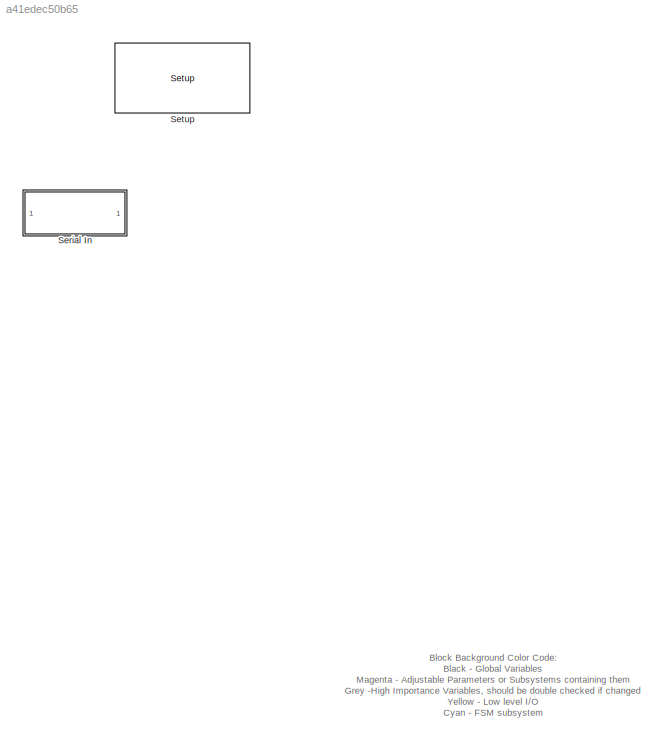
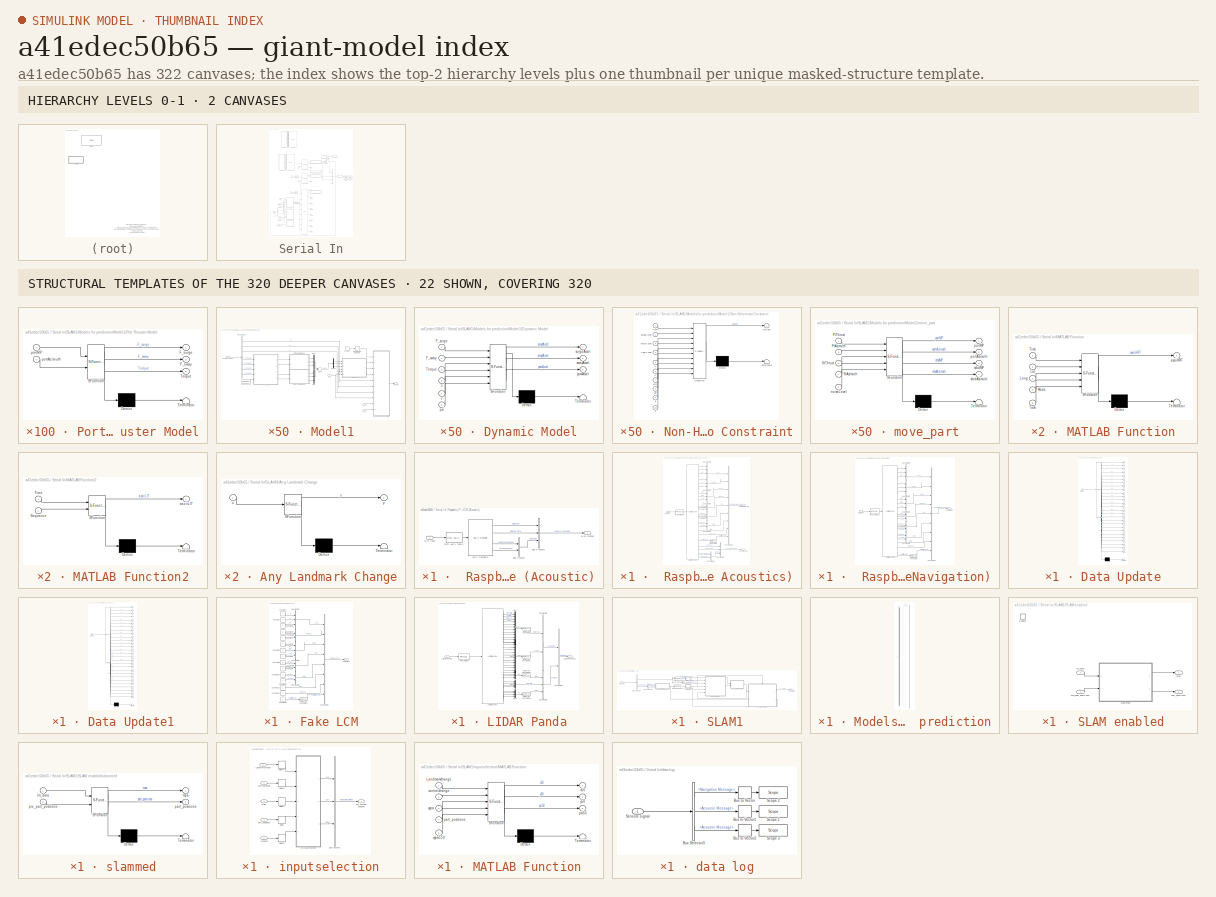
[diagram: thumbnail index - top-2 hierarchy levels (2 canvases) + 22 structural-template representatives of the remaining 320 canvases]
MODEL slx_a41edec50b65
KIND model
BLOCK [SubSystem] Serial In
  Ports = []
  RequestExecContextInheritance = off
BLOCK [SubSystem] Serial In/ Raspberry Pi LCM (Acoustic)
  Commented = on
  Ports = [1, 1]
  RequestExecContextInheritance = off
BLOCK [Reference] Serial In/ Raspberry Pi LCM (Acoustic)/ASCII Decode 6  REF=xpcseriallib/ASCII Decode 
  Ports = [1, 4]
  SourceBlock = xpcseriallib/ASCII Decode
  SourceType = ASCII Decode
  format = Deploy:%u, Elapsed:%g, Bearing1:%g Bearing2:%g \r\n
  nvars = 4
  vartypes = {}
BLOCK [BusCreator] Serial In/ Raspberry Pi LCM (Acoustic)/Bus Creator
  DisplayOption = bar
  Inputs = 2
  Ports = [2, 1]
BLOCK [BusCreator] Serial In/ Raspberry Pi LCM (Acoustic)/Bus Creator1
  DisplayOption = bar
  Inputs = 3
  Ports = [3, 1]
BLOCK [Reference] Serial In/ Raspberry Pi LCM (Acoustic)/FIFO ASCII read 1  REF=xpcseriallib/FIFO ASCII read 
  Ports = [1, 1]
  SourceBlock = xpcseriallib/FIFO ASCII read
  SourceType = Asynchronous FIFO Block: reader
  enable = off
  header = {'Deploy:'}
  hold = Zero output if no new data
  maxsize = 1024
  outputtype = 8 bit uint null terminated
  sampletime = -1
  term = [13 10]
BLOCK [Inport] Serial In/ Raspberry Pi LCM (Acoustic)/LCM Input
  IconDisplay = Port number
BLOCK [Outport] Serial In/ Raspberry Pi LCM (Acoustic)/LCM Output
  IconDisplay = Port number
BLOCK [SubSystem] Serial In/ Raspberry Pi LCM (Navigation and Acoustics)
  Ports = [1, 2]
  RequestExecContextInheritance = off
BLOCK [Reference] Serial In/ Raspberry Pi LCM (Navigation and Acoustics)/ASCII Decode 6  REF=xpcseriallib/ASCII Decode 
  Ports = [1, 22]
  SourceBlock = xpcseriallib/ASCII Decode
  SourceType = ASCII Decode
  format = P1:%f P2:%f P3:%f V1:%f V2:%f V3:%f E1:%f E2:%f E3:%f Lat:%f Long:%f Pt1:%f Pt2:%f St1:%f St2:%f Start:%f Elapsed:%f RC:%d Deploy:%u, Elapsed:%g, Bearing1:%g Bearing2:%g \r\n
  nvars = 22
  vartypes = {}
BLOCK [Outport] Serial In/ Raspberry Pi LCM (Navigation and Acoustics)/Acoustic LCM
  IconDisplay = Port number
  Port = 2
BLOCK [BusCreator] Serial In/ Raspberry Pi LCM (Navigation and Acoustics)/Bus Creator
  DisplayOption = bar
  Inputs = 2
  Ports = [2, 1]
BLOCK [BusCreator] Serial In/ Raspberry Pi LCM (Navigation and Acoustics)/Bus Creator1
  DisplayOption = bar
  Inputs = 3
  Ports = [3, 1]
BLOCK [BusCreator] Serial In/ Raspberry Pi LCM (Navigation and Acoustics)/Bus Creator2
  DisplayOption = bar
  Inputs = 3
  Ports = [3, 1]
BLOCK [BusCreator] Serial In/ Raspberry Pi LCM (Navigation and Acoustics)/Bus Creator3
  DisplayOption = bar
  Inputs = 3
  Ports = [3, 1]
BLOCK [BusCreator] Serial In/ Raspberry Pi LCM (Navigation and Acoustics)/Bus Creator4
  DisplayOption = bar
  Inputs = 9
  Ports = [9, 1]
BLOCK [BusCreator] Serial In/ Raspberry Pi LCM (Navigation and Acoustics)/Bus Creator5
  DisplayOption = bar
  Inputs = 2
  Ports = [2, 1]
BLOCK [BusCreator] Serial In/ Raspberry Pi LCM (Navigation and Acoustics)/Bus Creator6
  DisplayOption = bar
  Inputs = 2
  Ports = [2, 1]
BLOCK [BusCreator] Serial In/ Raspberry Pi LCM (Navigation and Acoustics)/Bus Creator7
  DisplayOption = bar
  Inputs = 2
  Ports = [2, 1]
BLOCK [BusCreator] Serial In/ Raspberry Pi LCM (Navigation and Acoustics)/Bus Creator8
  DisplayOption = bar
  Inputs = 3
  Ports = [3, 1]
BLOCK [DataTypeConversion] Serial In/ Raspberry Pi LCM (Navigation and Acoustics)/Data Type Conversion
  OutDataTypeStr = double
  RndMeth = Floor
  SaturateOnIntegerOverflow = off
BLOCK [Reference] Serial In/ Raspberry Pi LCM (Navigation and Acoustics)/FIFO ASCII read 1  REF=xpcseriallib/FIFO ASCII read 
  Ports = [1, 1]
  SourceBlock = xpcseriallib/FIFO ASCII read
  SourceType = Asynchronous FIFO Block: reader
  enable = off
  header = {'P1:'}
  hold = Zero output if no new data
  maxsize = 1500
  outputtype = 8 bit uint null terminated
  sampletime = -1
  term = [13 10]
BLOCK [Inport] Serial In/ Raspberry Pi LCM (Navigation and Acoustics)/LCM Input
  IconDisplay = Port number
BLOCK [Outport] Serial In/ Raspberry Pi LCM (Navigation and Acoustics)/Navigation LCM
  IconDisplay = Port number
BLOCK [SubSystem] Serial In/ Raspberry Pi LCM (Navigation)
  Commented = on
  Ports = [1, 1]
  RequestExecContextInheritance = off
BLOCK [Reference] Serial In/ Raspberry Pi LCM (Navigation)/ASCII Decode 6  REF=xpcseriallib/ASCII Decode 
  Ports = [1, 18]
  SourceBlock = xpcseriallib/ASCII Decode
  SourceType = ASCII Decode
  format = P1:%f P2:%f P3:%f V1:%f V2:%f V3:%f E1:%f E2:%f E3:%f Lat:%f Long:%f Pt1:%f Pt2:%f St1:%f St2:%f Start:%f Elapsed:%f RC:%d \r\n
  nvars = 18
  vartypes = {}
BLOCK [BusCreator] Serial In/ Raspberry Pi LCM (Navigation)/Bus Creator1
  DisplayOption = bar
  Inputs = 3
  Ports = [3, 1]
BLOCK [BusCreator] Serial In/ Raspberry Pi LCM (Navigation)/Bus Creator2
  DisplayOption = bar
  Inputs = 3
  Ports = [3, 1]
BLOCK [BusCreator] Serial In/ Raspberry Pi LCM (Navigation)/Bus Creator3
  DisplayOption = bar
  Inputs = 3
  Ports = [3, 1]
BLOCK [BusCreator] Serial In/ Raspberry Pi LCM (Navigation)/Bus Creator4
  DisplayOption = bar
  Inputs = 9
  Ports = [9, 1]
BLOCK [BusCreator] Serial In/ Raspberry Pi LCM (Navigation)/Bus Creator5
  DisplayOption = bar
  Inputs = 2
  Ports = [2, 1]
BLOCK [BusCreator] Serial In/ Raspberry Pi LCM (Navigation)/Bus Creator6
  DisplayOption = bar
  Inputs = 2
  Ports = [2, 1]
BLOCK [BusCreator] Serial In/ Raspberry Pi LCM (Navigation)/Bus Creator7
  DisplayOption = bar
  Inputs = 2
  Ports = [2, 1]
BLOCK [DataTypeConversion] Serial In/ Raspberry Pi LCM (Navigation)/Data Type Conversion
  OutDataTypeStr = double
  RndMeth = Floor
  SaturateOnIntegerOverflow = off
BLOCK [Reference] Serial In/ Raspberry Pi LCM (Navigation)/FIFO ASCII read 1  REF=xpcseriallib/FIFO ASCII read 
  Ports = [1, 1]
  SourceBlock = xpcseriallib/FIFO ASCII read
  SourceType = Asynchronous FIFO Block: reader
  enable = off
  header = {'P1:'}
  hold = Zero output if no new data
  maxsize = 1024
  outputtype = 8 bit uint null terminated
  sampletime = -1
  term = [13 10]
BLOCK [Inport] Serial In/ Raspberry Pi LCM (Navigation)/LCM Input
  IconDisplay = Port number
BLOCK [Outport] Serial In/ Raspberry Pi LCM (Navigation)/LCM Output
  IconDisplay = Port number
BLOCK [Reference] Serial In/ASCII Encode 1  REF=xpcseriallib/ASCII Encode 
  Commented = on
  Ports = [1, 1]
  SourceBlock = xpcseriallib/ASCII Encode
  SourceType = ASCII Encode
  format = {"Activate":%d} \r\n
  maxlength = 20
  nvars = 1
  vartypes = { 'double' }
BLOCK [Reference] Serial In/ASCII Encode 2  REF=xpcseriallib/ASCII Encode 
  Ports = [1, 1]
  SourceBlock = xpcseriallib/ASCII Encode
  SourceType = ASCII Encode
  format = SGTask:%d \r\n
  maxlength = 128
  nvars = 1
  vartypes = { 'double' }
BLOCK [Reference] Serial In/ASCII Encode 3  REF=xpcseriallib/ASCII Encode 
  Commented = on
  Ports = [27, 1]
  SourceBlock = xpcseriallib/ASCII Encode
  SourceType = ASCII Encode
  format = {"Valid":%d,"Mode":%d,"Length":%d,"A":%f,"B":%f,"C":%f,"D":%f,"E":%f,"F":%f,"G":%f,"H":%f,"I":%f,"J":%f,"K":%f,"L":%f,"M":%f,"N":%f,"O":%f,"P":%f,"Q":%f,"R":%f,"S":%f,"T":%f,"U":%f,"V":%f,"W":%f,"X":%f} \r\n
  maxlength = 450
  nvars = 27
  vartypes = { 'double' }
BLOCK [Reference] Serial In/Baseboard Serial F  REF=xpcseriallib/Mainboard/Baseboard
Serial F
  Ports = [2, 2]
  SourceBlock = xpcseriallib/Mainboard/Baseboard\nSerial F
  SourceType = Baseboard RS232 Send Receive
  automode1 = on
  automode2 = on
  baud1 = 115200
  baud2 = 115200
  config = Com1/Com3
  fifomode1 = 64 deep
  fifomode2 = 64 deep
  group = Basic Setup
  irqnum = 4
  ndata1 = 7
  ndata2 = 7
  nstop1 = 1
  nstop2 = 1
  parity1 = Even
  parity2 = Even
  port = 1
  rcvfifosize1 = 1024
  rcvfifosize2 = 1024
  rlevel1 = quarter full
  rlevel2 = 1
  saddr1 = 0x3f8
  saddr2 = 0x3e8
  xmtdatatype1 = 8 bit uint null terminated
  xmtdatatype2 = 8 bit uint null terminated
  xmtfifosize1 = 1024
  xmtfifosize2 = 1024
BLOCK [Reference] Serial In/Baseboard Serial F1  REF=xpcseriallib/Mainboard/Baseboard
Serial F
  Ports = [2, 2]
  SourceBlock = xpcseriallib/Mainboard/Baseboard\nSerial F
  SourceType = Baseboard RS232 Send Receive
  automode1 = on
  automode2 = on
  baud1 = 115200
  baud2 = 115200
  config = Com2/Com4
  fifomode1 = 64 deep
  fifomode2 = 64 deep
  group = Basic Setup
  irqnum = 4
  ndata1 = 7
  ndata2 = 7
  nstop1 = 1
  nstop2 = 1
  parity1 = Even
  parity2 = Even
  port = 2
  rcvfifosize1 = 1024
  rcvfifosize2 = 1024
  rlevel1 = quarter full
  rlevel2 = quarter full
  saddr1 = 0x3f8
  saddr2 = 0x3e8
  xmtdatatype1 = 8 bit uint null terminated
  xmtdatatype2 = 8 bit uint null terminated
  xmtfifosize1 = 1024
  xmtfifosize2 = 1024
BLOCK [BusCreator] Serial In/Bus Creator
  DisplayOption = bar
  Inputs = 3
  Ports = [3, 1]
BLOCK [BusCreator] Serial In/Bus Creator1
  DisplayOption = bar
  Inputs = 2
  Ports = [2, 1]
BLOCK [BusSelector] Serial In/Bus Selector1
  Commented = on
  OutputSignals = GPS (LLA).Lat,GPS (LLA).Long
  Ports = [1, 2]
BLOCK [Clock] Serial In/Clock
  Commented = on
BLOCK [Constant] Serial In/Constant
BLOCK [Constant] Serial In/Constant1
  Commented = on
  Value = 0
BLOCK [Constant] Serial In/Constant5
  Commented = on
BLOCK [Constant] Serial In/Constant6
  Commented = on
  Value = 2
BLOCK [Constant] Serial In/Constant7
  Commented = on
  Value = 5
BLOCK [Constant] Serial In/Constant8
  Commented = on
  Value = 12.34
BLOCK [Constant] Serial In/Constant9
  Commented = on
  Value = [1 3 2]
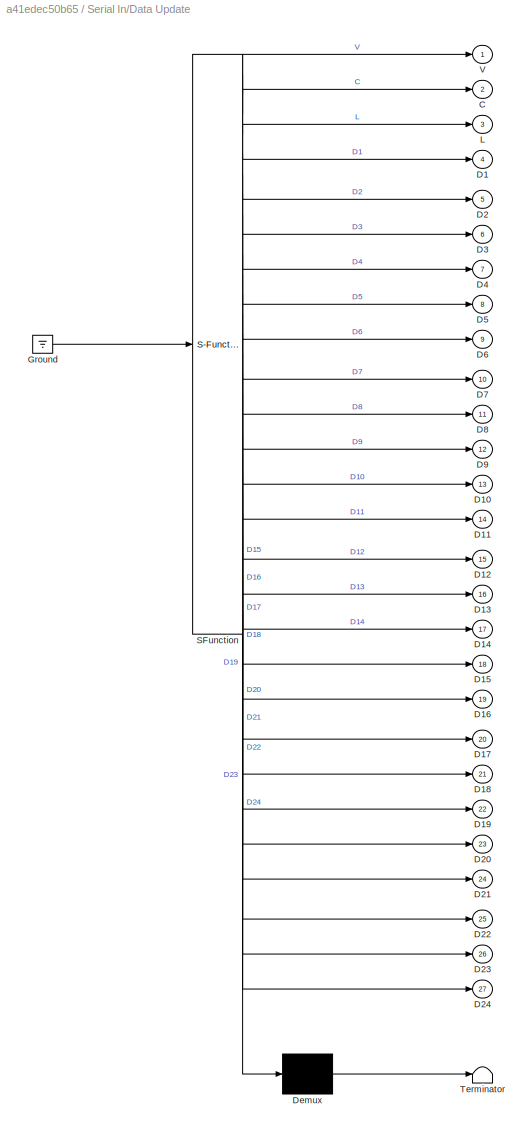
BLOCK [SubSystem] Serial In/Data Update
  Commented = on
  ErrorFcn = Stateflow.Translate.translate
  PermitHierarchicalResolution = ExplicitOnly
  Ports = [0, 27]
  RequestExecContextInheritance = off
  SFBlockType = MATLAB Function
  TreatAsAtomicUnit = on
BLOCK [Demux] Serial In/Data Update/ Demux 
  Outputs = 1
  Ports = [1, 1]
BLOCK [Ground] Serial In/Data Update/ Ground 
BLOCK [S-Function] Serial In/Data Update/ SFunction 
  EnableBusSupport = on
  FunctionName = sf_sfun
  PortCounts = [1 28]
  Ports = [1, 28]
  Tag = Stateflow S-Function RobotX_SLAMonly09282014 3
BLOCK [Terminator] Serial In/Data Update/ Terminator 
BLOCK [Outport] Serial In/Data Update/C
  IconDisplay = Port number
  Port = 2
BLOCK [Outport] Serial In/Data Update/D1
  IconDisplay = Port number
  Port = 4
BLOCK [Outport] Serial In/Data Update/D10
  IconDisplay = Port number
  Port = 13
BLOCK [Outport] Serial In/Data Update/D11
  IconDisplay = Port number
  Port = 14
BLOCK [Outport] Serial In/Data Update/D12
  IconDisplay = Port number
  Port = 15
BLOCK [Outport] Serial In/Data Update/D13
  IconDisplay = Port number
  Port = 16
BLOCK [Outport] Serial In/Data Update/D14
  IconDisplay = Port number
  Port = 17
BLOCK [Outport] Serial In/Data Update/D15
  IconDisplay = Port number
  Port = 18
BLOCK [Outport] Serial In/Data Update/D16
  IconDisplay = Port number
  Port = 19
BLOCK [Outport] Serial In/Data Update/D17
  IconDisplay = Port number
  Port = 20
BLOCK [Outport] Serial In/Data Update/D18
  IconDisplay = Port number
  Port = 21
BLOCK [Outport] Serial In/Data Update/D19
  IconDisplay = Port number
  Port = 22
BLOCK [Outport] Serial In/Data Update/D2
  IconDisplay = Port number
  Port = 5
BLOCK [Outport] Serial In/Data Update/D20
  IconDisplay = Port number
  Port = 23
BLOCK [Outport] Serial In/Data Update/D21
  IconDisplay = Port number
  Port = 24
BLOCK [Outport] Serial In/Data Update/D22
  IconDisplay = Port number
  Port = 25
BLOCK [Outport] Serial In/Data Update/D23
  IconDisplay = Port number
  Port = 26
BLOCK [Outport] Serial In/Data Update/D24
  IconDisplay = Port number
  Port = 27
BLOCK [Outport] Serial In/Data Update/D3
  IconDisplay = Port number
  Port = 6
BLOCK [Outport] Serial In/Data Update/D4
  IconDisplay = Port number
  Port = 7
BLOCK [Outport] Serial In/Data Update/D5
  IconDisplay = Port number
  Port = 8
BLOCK [Outport] Serial In/Data Update/D6
  IconDisplay = Port number
  Port = 9
BLOCK [Outport] Serial In/Data Update/D7
  IconDisplay = Port number
  Port = 10
BLOCK [Outport] Serial In/Data Update/D8
  IconDisplay = Port number
  Port = 11
BLOCK [Outport] Serial In/Data Update/D9
  IconDisplay = Port number
  Port = 12
BLOCK [Outport] Serial In/Data Update/L
  IconDisplay = Port number
  Port = 3
BLOCK [Outport] Serial In/Data Update/V
  IconDisplay = Port number
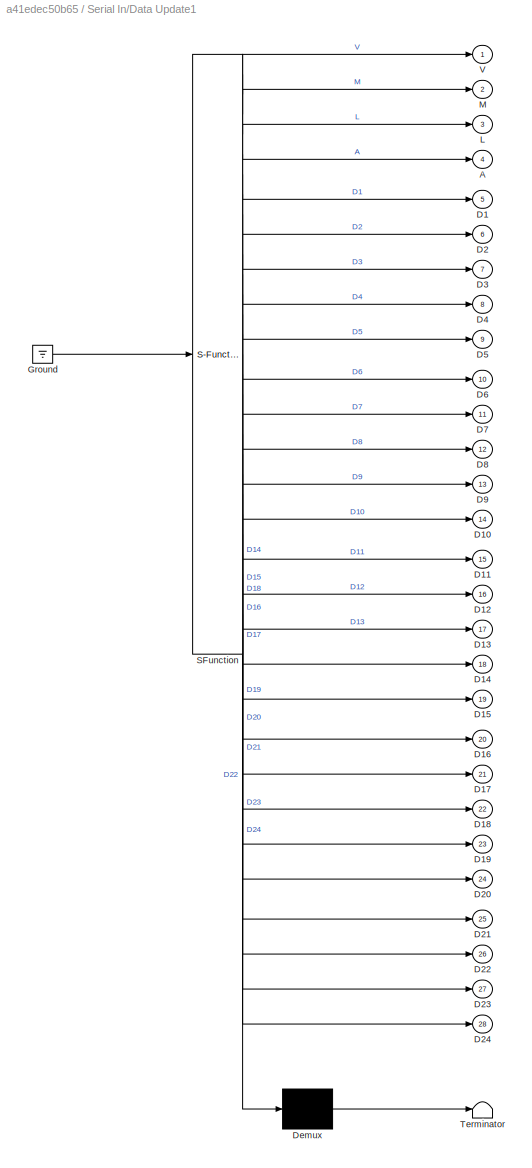
BLOCK [SubSystem] Serial In/Data Update1
  ErrorFcn = Stateflow.Translate.translate
  PermitHierarchicalResolution = ExplicitOnly
  Ports = [0, 28]
  RequestExecContextInheritance = off
  SFBlockType = MATLAB Function
  TreatAsAtomicUnit = on
BLOCK [Demux] Serial In/Data Update1/ Demux 
  Outputs = 1
  Ports = [1, 1]
BLOCK [Ground] Serial In/Data Update1/ Ground 
BLOCK [S-Function] Serial In/Data Update1/ SFunction 
  EnableBusSupport = on
  FunctionName = sf_sfun
  PortCounts = [1 29]
  Ports = [1, 29]
  Tag = Stateflow S-Function RobotX_SLAMonly09282014 5
BLOCK [Terminator] Serial In/Data Update1/ Terminator 
BLOCK [Outport] Serial In/Data Update1/A
  IconDisplay = Port number
  Port = 4
BLOCK [Outport] Serial In/Data Update1/D1
  IconDisplay = Port number
  Port = 5
BLOCK [Outport] Serial In/Data Update1/D10
  IconDisplay = Port number
  Port = 14
BLOCK [Outport] Serial In/Data Update1/D11
  IconDisplay = Port number
  Port = 15
BLOCK [Outport] Serial In/Data Update1/D12
  IconDisplay = Port number
  Port = 16
BLOCK [Outport] Serial In/Data Update1/D13
  IconDisplay = Port number
  Port = 17
BLOCK [Outport] Serial In/Data Update1/D14
  IconDisplay = Port number
  Port = 18
BLOCK [Outport] Serial In/Data Update1/D15
  IconDisplay = Port number
  Port = 19
BLOCK [Outport] Serial In/Data Update1/D16
  IconDisplay = Port number
  Port = 20
BLOCK [Outport] Serial In/Data Update1/D17
  IconDisplay = Port number
  Port = 21
BLOCK [Outport] Serial In/Data Update1/D18
  IconDisplay = Port number
  Port = 22
BLOCK [Outport] Serial In/Data Update1/D19
  IconDisplay = Port number
  Port = 23
BLOCK [Outport] Serial In/Data Update1/D2
  IconDisplay = Port number
  Port = 6
BLOCK [Outport] Serial In/Data Update1/D20
  IconDisplay = Port number
  Port = 24
BLOCK [Outport] Serial In/Data Update1/D21
  IconDisplay = Port number
  Port = 25
BLOCK [Outport] Serial In/Data Update1/D22
  IconDisplay = Port number
  Port = 26
BLOCK [Outport] Serial In/Data Update1/D23
  IconDisplay = Port number
  Port = 27
BLOCK [Outport] Serial In/Data Update1/D24
  IconDisplay = Port number
  Port = 28
BLOCK [Outport] Serial In/Data Update1/D3
  IconDisplay = Port number
  Port = 7
BLOCK [Outport] Serial In/Data Update1/D4
  IconDisplay = Port number
  Port = 8
BLOCK [Outport] Serial In/Data Update1/D5
  IconDisplay = Port number
  Port = 9
BLOCK [Outport] Serial In/Data Update1/D6
  IconDisplay = Port number
  Port = 10
BLOCK [Outport] Serial In/Data Update1/D7
  IconDisplay = Port number
  Port = 11
BLOCK [Outport] Serial In/Data Update1/D8
  IconDisplay = Port number
  Port = 12
BLOCK [Outport] Serial In/Data Update1/D9
  IconDisplay = Port number
  Port = 13
BLOCK [Outport] Serial In/Data Update1/L
  IconDisplay = Port number
  Port = 3
BLOCK [Outport] Serial In/Data Update1/M
  IconDisplay = Port number
  Port = 2
BLOCK [Outport] Serial In/Data Update1/V
  IconDisplay = Port number
BLOCK [SubSystem] Serial In/Fake LCM
  Commented = on
  Ports = [0, 1]
  RequestExecContextInheritance = off
BLOCK [BusCreator] Serial In/Fake LCM/Bus Creator1
  DisplayOption = bar
  Inputs = 3
  Ports = [3, 1]
BLOCK [BusCreator] Serial In/Fake LCM/Bus Creator2
  DisplayOption = bar
  Inputs = 2
  Ports = [2, 1]
BLOCK [BusCreator] Serial In/Fake LCM/Bus Creator3
  DisplayOption = bar
  Inputs = 3
  Ports = [3, 1]
BLOCK [BusCreator] Serial In/Fake LCM/Bus Creator4
  DisplayOption = bar
  Inputs = 8
  Ports = [8, 1]
BLOCK [BusCreator] Serial In/Fake LCM/Bus Creator5
  DisplayOption = bar
  Inputs = 2
  Ports = [2, 1]
BLOCK [BusCreator] Serial In/Fake LCM/Bus Creator6
  DisplayOption = bar
  Inputs = 2
  Ports = [2, 1]
BLOCK [Constant] Serial In/Fake LCM/Constant
  Value = 0
BLOCK [Constant] Serial In/Fake LCM/Constant1
  Value = 0
BLOCK [Constant] Serial In/Fake LCM/Constant10
  Value = 0
BLOCK [Constant] Serial In/Fake LCM/Constant11
  Value = 0
BLOCK [Constant] Serial In/Fake LCM/Constant12
  Value = 0
BLOCK [Constant] Serial In/Fake LCM/Constant13
  Value = 0
BLOCK [Constant] Serial In/Fake LCM/Constant14
  Value = 3
BLOCK [Constant] Serial In/Fake LCM/Constant2
  Value = 0
BLOCK [Constant] Serial In/Fake LCM/Constant3
  Value = 0
BLOCK [Constant] Serial In/Fake LCM/Constant4
  Value = 0
BLOCK [Constant] Serial In/Fake LCM/Constant5
  Value = 0
BLOCK [Constant] Serial In/Fake LCM/Constant6
  Value = 0
BLOCK [Constant] Serial In/Fake LCM/Constant7
  Value = 0
BLOCK [Constant] Serial In/Fake LCM/Constant8
  Value = 0
BLOCK [Constant] Serial In/Fake LCM/Constant9
  Value = 0
BLOCK [DataTypeConversion] Serial In/Fake LCM/Data Type Conversion
  OutDataTypeStr = double
  RndMeth = Floor
  SaturateOnIntegerOverflow = off
BLOCK [Outport] Serial In/Fake LCM/LCM Output
  IconDisplay = Port number
BLOCK [Ground] Serial In/Ground1
BLOCK [Ground] Serial In/Ground2
BLOCK [Ground] Serial In/Ground4
BLOCK [Reference] Serial In/LCM Complete Encode  REF=xpcseriallib/ASCII Encode 
  Ports = [28, 1]
  SourceBlock = xpcseriallib/ASCII Encode
  SourceType = ASCII Encode
  format = {"Valid":%d, "Mode":%d, "Length":%d, "Activate":%d, "Waypoints":[%f, %f, %f, %f, %f, %f, %f, %f, %f, %f, %f, %f, %f, %f, %f, %f, %f, %f, %f, %f, %f, %f, %f, %f]} \r\n
  maxlength = 600
  nvars = 28
  vartypes = { 'double' }
BLOCK [SubSystem] Serial In/LIDAR Panda
  Ports = [1, 1]
  RequestExecContextInheritance = off
BLOCK [Reference] Serial In/LIDAR Panda/ASCII Decode 2  REF=xpcseriallib/ASCII Decode 
  Ports = [1, 36]
  SourceBlock = xpcseriallib/ASCII Decode
  SourceType = ASCII Decode
  format = A:%d B:%d C:%d E:%d F:%d G:%d H:%d I:%d J:%d K:%d L:%d M:%d N:%d O:%d P:%d Q:%d R:%d S:%d T:%d U:%d V:%d W:%d X:%d C1:%d C2:%d C3:%d C4:%d P1:%f P2:%f P3:%f P4:%f I1:%d I2:%d I3:%d I4:%d \r\n
  nvars = 36
  vartypes = {}
BLOCK [BusCreator] Serial In/LIDAR Panda/Bus Creator1
  DisplayOption = bar
  Inputs = 2
  Ports = [2, 1]
BLOCK [BusCreator] Serial In/LIDAR Panda/Bus Creator2
  DisplayOption = bar
  Inputs = 3
  Ports = [3, 1]
BLOCK [BusCreator] Serial In/LIDAR Panda/Bus Creator3
  DisplayOption = bar
  Inputs = 2
  Ports = [2, 1]
BLOCK [DataTypeConversion] Serial In/LIDAR Panda/Data Type Conversion
  OutDataTypeStr = double
  RndMeth = Floor
  SaturateOnIntegerOverflow = off
BLOCK [DataTypeConversion] Serial In/LIDAR Panda/Data Type Conversion1
  OutDataTypeStr = double
  RndMeth = Floor
  SaturateOnIntegerOverflow = off
BLOCK [DataTypeConversion] Serial In/LIDAR Panda/Data Type Conversion2
  OutDataTypeStr = double
  RndMeth = Floor
  SaturateOnIntegerOverflow = off
BLOCK [DataTypeConversion] Serial In/LIDAR Panda/Data Type Conversion3
  OutDataTypeStr = double
  RndMeth = Floor
  SaturateOnIntegerOverflow = off
BLOCK [Reference] Serial In/LIDAR Panda/FIFO ASCII read   REF=xpcseriallib/FIFO ASCII read 
  Ports = [1, 1]
  SourceBlock = xpcseriallib/FIFO ASCII read
  SourceType = Asynchronous FIFO Block: reader
  enable = off
  header = {'A:'}
  hold = Zero output if no new data
  maxsize = 1024
  outputtype = 8 bit uint null terminated
  sampletime = -1
  term = [13 10]
BLOCK [Inport] Serial In/LIDAR Panda/LIDAR Panda In
  IconDisplay = Port number
BLOCK [Outport] Serial In/LIDAR Panda/LIDAR Panda Out
  IconDisplay = Port number
BLOCK [Mux] Serial In/LIDAR Panda/Mux
  DisplayOption = bar
  Inputs = 12
  Ports = [12, 1]
BLOCK [Mux] Serial In/LIDAR Panda/Mux1
  DisplayOption = bar
  Ports = [4, 1]
BLOCK [Mux] Serial In/LIDAR Panda/Mux2
  DisplayOption = bar
  Inputs = 12
  Ports = [12, 1]
BLOCK [Mux] Serial In/LIDAR Panda/Mux3
  DisplayOption = bar
  Ports = [4, 1]
BLOCK [Mux] Serial In/LIDAR Panda/Mux4
  DisplayOption = bar
  Ports = [4, 1]
BLOCK [SubSystem] Serial In/MATLAB Function
  Commented = on
  ErrorFcn = Stateflow.Translate.translate
  PermitHierarchicalResolution = ExplicitOnly
  Ports = [5, 1]
  RequestExecContextInheritance = off
  SFBlockType = MATLAB Function
  TreatAsAtomicUnit = on
BLOCK [Demux] Serial In/MATLAB Function/ Demux 
  Outputs = 1
  Ports = [1, 1]
BLOCK [S-Function] Serial In/MATLAB Function/ SFunction 
  EnableBusSupport = on
  FunctionName = sf_sfun
  PortCounts = [5 2]
  Ports = [5, 2]
  Tag = Stateflow S-Function RobotX_SLAMonly09282014 2
BLOCK [Terminator] Serial In/MATLAB Function/ Terminator 
BLOCK [Inport] Serial In/MATLAB Function/Lat
  IconDisplay = Port number
  Port = 2
BLOCK [Inport] Serial In/MATLAB Function/Long
  IconDisplay = Port number
  Port = 3
BLOCK [Inport] Serial In/MATLAB Function/Mode
  IconDisplay = Port number
  Port = 4
BLOCK [Inport] Serial In/MATLAB Function/Task
  IconDisplay = Port number
  Port = 5
BLOCK [Inport] Serial In/MATLAB Function/Time
  IconDisplay = Port number
BLOCK [Outport] Serial In/MATLAB Function/asciiHRT
  IconDisplay = Port number
BLOCK [SubSystem] Serial In/MATLAB Function1
  Commented = on
  ErrorFcn = Stateflow.Translate.translate
  PermitHierarchicalResolution = ExplicitOnly
  Ports = [5, 1]
  RequestExecContextInheritance = off
  SFBlockType = MATLAB Function
  TreatAsAtomicUnit = on
BLOCK [Demux] Serial In/MATLAB Function1/ Demux 
  Outputs = 1
  Ports = [1, 1]
BLOCK [S-Function] Serial In/MATLAB Function1/ SFunction 
  EnableBusSupport = on
  FunctionName = sf_sfun
  PortCounts = [5 2]
  Ports = [5, 2]
  Tag = Stateflow S-Function RobotX_SLAMonly09282014 1
BLOCK [Terminator] Serial In/MATLAB Function1/ Terminator 
BLOCK [Inport] Serial In/MATLAB Function1/Color
  IconDisplay = Port number
  Port = 4
BLOCK [Inport] Serial In/MATLAB Function1/Depth
  IconDisplay = Port number
  Port = 5
BLOCK [Inport] Serial In/MATLAB Function1/Lat
  IconDisplay = Port number
  Port = 2
BLOCK [Inport] Serial In/MATLAB Function1/Long
  IconDisplay = Port number
  Port = 3
BLOCK [Inport] Serial In/MATLAB Function1/Time
  IconDisplay = Port number
BLOCK [Outport] Serial In/MATLAB Function1/asciiSEA
  IconDisplay = Port number
BLOCK [SubSystem] Serial In/MATLAB Function2
  Commented = on
  ErrorFcn = Stateflow.Translate.translate
  PermitHierarchicalResolution = ExplicitOnly
  Ports = [2, 1]
  RequestExecContextInheritance = off
  SFBlockType = MATLAB Function
  TreatAsAtomicUnit = on
BLOCK [Demux] Serial In/MATLAB Function2/ Demux 
  Outputs = 1
  Ports = [1, 1]
BLOCK [S-Function] Serial In/MATLAB Function2/ SFunction 
  EnableBusSupport = on
  FunctionName = sf_sfun
  PortCounts = [2 2]
  Ports = [2, 2]
  Tag = Stateflow S-Function RobotX_SLAMonly09282014 4
BLOCK [Terminator] Serial In/MATLAB Function2/ Terminator 
BLOCK [Inport] Serial In/MATLAB Function2/Sequence
  IconDisplay = Port number
  Port = 2
BLOCK [Inport] Serial In/MATLAB Function2/Time
  IconDisplay = Port number
BLOCK [Outport] Serial In/MATLAB Function2/asciiLIT
  IconDisplay = Port number
BLOCK [RateTransition] Serial In/Rate Transition
  Commented = on
  Deterministic = off
  OutPortSampleTime = 1
BLOCK [SubSystem] Serial In/SLAM1
  Ports = [1, 1]
  RequestExecContextInheritance = off
BLOCK [SubSystem] Serial In/SLAM1/Any Landmark Change
  ErrorFcn = Stateflow.Translate.translate
  PermitHierarchicalResolution = ExplicitOnly
  Ports = [1, 1]
  RequestExecContextInheritance = off
  SFBlockType = MATLAB Function
  TreatAsAtomicUnit = on
BLOCK [Demux] Serial In/SLAM1/Any Landmark Change/ Demux 
  Outputs = 1
  Ports = [1, 1]
BLOCK [S-Function] Serial In/SLAM1/Any Landmark Change/ SFunction 
  EnableBusSupport = on
  FunctionName = sf_sfun
  PortCounts = [1 2]
  Ports = [1, 2]
  Tag = Stateflow S-Function RobotX_SLAMonly09282014 259
BLOCK [Terminator] Serial In/SLAM1/Any Landmark Change/ Terminator 
BLOCK [Inport] Serial In/SLAM1/Any Landmark Change/u
  IconDisplay = Port number
BLOCK [Outport] Serial In/SLAM1/Any Landmark Change/y
  IconDisplay = Port number
BLOCK [SubSystem] Serial In/SLAM1/Any State Change
  ErrorFcn = Stateflow.Translate.translate
  PermitHierarchicalResolution = ExplicitOnly
  Ports = [1, 1]
  RequestExecContextInheritance = off
  SFBlockType = MATLAB Function
  TreatAsAtomicUnit = on
BLOCK [Demux] Serial In/SLAM1/Any State Change/ Demux 
  Outputs = 1
  Ports = [1, 1]
BLOCK [S-Function] Serial In/SLAM1/Any State Change/ SFunction 
  EnableBusSupport = on
  FunctionName = sf_sfun
  PortCounts = [1 2]
  Ports = [1, 2]
  Tag = Stateflow S-Function RobotX_SLAMonly09282014 258
BLOCK [Terminator] Serial In/SLAM1/Any State Change/ Terminator 
BLOCK [Inport] Serial In/SLAM1/Any State Change/u
  IconDisplay = Port number
BLOCK [Outport] Serial In/SLAM1/Any State Change/y
  IconDisplay = Port number
BLOCK [BusSelector] Serial In/SLAM1/Bus Selector
  OutputSignals = Navigation Message,Lidar Data Input
  Ports = [1, 2]
BLOCK [BusSelector] Serial In/SLAM1/Bus Selector1
  OutputSignals = Landmarks.Distances,Landmarks.Angles
  Ports = [1, 2]
BLOCK [BusSelector] Serial In/SLAM1/Bus Selector2
  OutputSignals = Pose
  Ports = [1, 1]
BLOCK [Reference] Serial In/SLAM1/Detect Change  REF=simulink/Logic and Bit
Operations/Detect
Change
  InputProcessing = Inherited
  OutDataTypeStr = boolean
  Ports = [1, 1]
  SourceBlock = simulink/Logic and Bit\nOperations/Detect\nChange
  SourceType = Detect Change
  vinit = 0
BLOCK [Reference] Serial In/SLAM1/Detect Change1  REF=simulink/Logic and Bit
Operations/Detect
Change
  InputProcessing = Inherited
  OutDataTypeStr = boolean
  Ports = [1, 1]
  SourceBlock = simulink/Logic and Bit\nOperations/Detect\nChange
  SourceType = Detect Change
  vinit = 0
BLOCK [SubSystem] Serial In/SLAM1/Landmark Organizer
  ErrorFcn = Stateflow.Translate.translate
  PermitHierarchicalResolution = ExplicitOnly
  Ports = [2, 1]
  RequestExecContextInheritance = off
  SFBlockType = MATLAB Function
  TreatAsAtomicUnit = on
BLOCK [Demux] Serial In/SLAM1/Landmark Organizer/ Demux 
  Outputs = 1
  Ports = [1, 1]
BLOCK [S-Function] Serial In/SLAM1/Landmark Organizer/ SFunction 
  EnableBusSupport = on
  FunctionName = sf_sfun
  PortCounts = [2 2]
  Ports = [2, 2]
  Tag = Stateflow S-Function RobotX_SLAMonly09282014 257
BLOCK [Terminator] Serial In/SLAM1/Landmark Organizer/ Terminator 
BLOCK [Inport] Serial In/SLAM1/Landmark Organizer/Angles
  IconDisplay = Port number
  Port = 2
BLOCK [Inport] Serial In/SLAM1/Landmark Organizer/Distances
  IconDisplay = Port number
BLOCK [Outport] Serial In/SLAM1/Landmark Organizer/lm_data
  IconDisplay = Port number
BLOCK [SubSystem] Serial In/SLAM1/Models for prediction
  Ports = [2, 1]
  RequestExecContextInheritance = off
BLOCK [BusSelector] Serial In/SLAM1/Models for prediction/Bus Selector
  OutputSignals = x50,y50,psi50
  Ports = [1, 3]
BLOCK [DataStoreMemory] Serial In/SLAM1/Models for prediction/Data Store Memory
  DataStoreName = noiseLevel
  ReadBeforeWriteMsg = warning
  WriteAfterReadMsg = warning
  WriteAfterWriteMsg = warning
BLOCK [DataStoreWrite] Serial In/SLAM1/Models for prediction/Data Store Write
  DataStoreName = noiseLevel
  Ports = [1]
BLOCK [Demux] Serial In/SLAM1/Models for prediction/Demux
  DisplayOption = bar
  Outputs = 50
  Ports = [1, 50]
BLOCK [Demux] Serial In/SLAM1/Models for prediction/Demux1
  DisplayOption = bar
  Outputs = 50
  Ports = [1, 50]
BLOCK [Demux] Serial In/SLAM1/Models for prediction/Demux2
  DisplayOption = bar
  Outputs = 50
  Ports = [1, 50]
BLOCK [SubSystem] Serial In/SLAM1/Models for prediction/Model1
  Ports = [4, 1]
  RequestExecContextInheritance = off
BLOCK [BusSelector] Serial In/SLAM1/Models for prediction/Model1/Bus Selector
  OutputSignals = Velocity.u,Velocity.v,Velocity.r,Port.PtThrust,Port.PtAzimuth,Stbd.StThrust,Stbd.StAzimuth
  Ports = [1, 7]
BLOCK [DataStoreRead] Serial In/SLAM1/Models for prediction/Model1/Data Store Read
  DataStoreName = noiseLevel
  Ports = [0, 1]
BLOCK [Demux] Serial In/SLAM1/Models for prediction/Model1/Demux
  DisplayOption = bar
  Outputs = 3
  Ports = [1, 3]
BLOCK [DiscreteIntegrator] Serial In/SLAM1/Models for prediction/Model1/Discrete-Time Integrator1
  ICPrevOutput = DiscIntNeverNeededParam
  ICPrevScaledInput = DiscIntNeverNeededParam
  Ports = [1, 1]
  SampleTime = -1
BLOCK [SubSystem] Serial In/SLAM1/Models for prediction/Model1/Dynamic Model
  ErrorFcn = Stateflow.Translate.translate
  PermitHierarchicalResolution = ExplicitOnly
  Ports = [6, 3]
  RequestExecContextInheritance = off
  SFBlockType = MATLAB Function
  TreatAsAtomicUnit = on
BLOCK [Demux] Serial In/SLAM1/Models for prediction/Model1/Dynamic Model/ Demux 
  Outputs = 1
  Ports = [1, 1]
BLOCK [S-Function] Serial In/SLAM1/Models for prediction/Model1/Dynamic Model/ SFunction 
  EnableBusSupport = on
  FunctionName = sf_sfun
  PortCounts = [6 4]
  Ports = [6, 4]
  Tag = Stateflow S-Function RobotX_SLAMonly09282014 399
BLOCK [Terminator] Serial In/SLAM1/Models for prediction/Model1/Dynamic Model/ Terminator 
BLOCK [Inport] Serial In/SLAM1/Models for prediction/Model1/Dynamic Model/F_surge
  IconDisplay = Port number
BLOCK [Inport] Serial In/SLAM1/Models for prediction/Model1/Dynamic Model/F_sway
  IconDisplay = Port number
  Port = 2
BLOCK [Inport] Serial In/SLAM1/Models for prediction/Model1/Dynamic Model/Torque
  IconDisplay = Port number
  Port = 3
BLOCK [Inport] Serial In/SLAM1/Models for prediction/Model1/Dynamic Model/psi
  IconDisplay = Port number
  Port = 6
BLOCK [Outport] Serial In/SLAM1/Models for prediction/Model1/Dynamic Model/surgeAccel
  IconDisplay = Port number
BLOCK [Outport] Serial In/SLAM1/Models for prediction/Model1/Dynamic Model/swayAccel
  IconDisplay = Port number
  Port = 2
BLOCK [Inport] Serial In/SLAM1/Models for prediction/Model1/Dynamic Model/u
  IconDisplay = Port number
  Port = 4
BLOCK [Inport] Serial In/SLAM1/Models for prediction/Model1/Dynamic Model/v
  IconDisplay = Port number
  Port = 5
BLOCK [Outport] Serial In/SLAM1/Models for prediction/Model1/Dynamic Model/yawAccel
  IconDisplay = Port number
  Port = 3
BLOCK [Mux] Serial In/SLAM1/Models for prediction/Model1/Mux
  DisplayOption = bar
  Inputs = 3
  Ports = [3, 1]
BLOCK [Mux] Serial In/SLAM1/Models for prediction/Model1/Mux1
  DisplayOption = bar
  Inputs = 3
  Ports = [3, 1]
BLOCK [Outport] Serial In/SLAM1/Models for prediction/Model1/NEyaw
  IconDisplay = Port number
BLOCK [Inport] Serial In/SLAM1/Models for prediction/Model1/Nav Messages
  IconDisplay = Port number
  Port = 4
BLOCK [SubSystem] Serial In/SLAM1/Models for prediction/Model1/Non-Holonomic Constraint
  ErrorFcn = Stateflow.Translate.translate
  PermitHierarchicalResolution = ExplicitOnly
  Ports = [10, 1]
  RequestExecContextInheritance = off
  SFBlockType = MATLAB Function
  TreatAsAtomicUnit = on
BLOCK [Demux] Serial In/SLAM1/Models for prediction/Model1/Non-Holonomic Constraint/ Demux 
  Outputs = 1
  Ports = [1, 1]
BLOCK [S-Function] Serial In/SLAM1/Models for prediction/Model1/Non-Holonomic Constraint/ SFunction 
  EnableBusSupport = on
  FunctionName = sf_sfun
  PortCounts = [10 2]
  Ports = [10, 2]
  Tag = Stateflow S-Function RobotX_SLAMonly09282014 400
BLOCK [Terminator] Serial In/SLAM1/Models for prediction/Model1/Non-Holonomic Constraint/ Terminator 
BLOCK [Outport] Serial In/SLAM1/Models for prediction/Model1/Non-Holonomic Constraint/NEyaw
  IconDisplay = Port number
BLOCK [Inport] Serial In/SLAM1/Models for prediction/Model1/Non-Holonomic Constraint/X
  IconDisplay = Port number
  Port = 9
BLOCK [Inport] Serial In/SLAM1/Models for prediction/Model1/Non-Holonomic Constraint/Y
  IconDisplay = Port number
  Port = 10
BLOCK [Inport] Serial In/SLAM1/Models for prediction/Model1/Non-Holonomic Constraint/YawAccel
  IconDisplay = Port number
  Port = 4
BLOCK [Inport] Serial In/SLAM1/Models for prediction/Model1/Non-Holonomic Constraint/gyrz
  IconDisplay = Port number
  Port = 7
BLOCK [Inport] Serial In/SLAM1/Models for prediction/Model1/Non-Holonomic Constraint/psi
  IconDisplay = Port number
  Port = 8
BLOCK [Inport] Serial In/SLAM1/Models for prediction/Model1/Non-Holonomic Constraint/surgeAccel
  IconDisplay = Port number
  Port = 2
BLOCK [Inport] Serial In/SLAM1/Models for prediction/Model1/Non-Holonomic Constraint/swayAccel
  IconDisplay = Port number
  Port = 3
BLOCK [Inport] Serial In/SLAM1/Models for prediction/Model1/Non-Holonomic Constraint/time
  IconDisplay = Port number
BLOCK [Inport] Serial In/SLAM1/Models for prediction/Model1/Non-Holonomic Constraint/u
  IconDisplay = Port number
  Port = 5
BLOCK [Inport] Serial In/SLAM1/Models for prediction/Model1/Non-Holonomic Constraint/v
  IconDisplay = Port number
  Port = 6
BLOCK [SubSystem] Serial In/SLAM1/Models for prediction/Model1/Port Thruster Model
  ErrorFcn = Stateflow.Translate.translate
  PermitHierarchicalResolution = ExplicitOnly
  Ports = [2, 3]
  RequestExecContextInheritance = off
  SFBlockType = MATLAB Function
  TreatAsAtomicUnit = on
BLOCK [Demux] Serial In/SLAM1/Models for prediction/Model1/Port Thruster Model/ Demux 
  Outputs = 1
  Ports = [1, 1]
BLOCK [S-Function] Serial In/SLAM1/Models for prediction/Model1/Port Thruster Model/ SFunction 
  EnableBusSupport = on
  FunctionName = sf_sfun
  PortCounts = [2 4]
  Ports = [2, 4]
  Tag = Stateflow S-Function RobotX_SLAMonly09282014 401
BLOCK [Terminator] Serial In/SLAM1/Models for prediction/Model1/Port Thruster Model/ Terminator 
BLOCK [Outport] Serial In/SLAM1/Models for prediction/Model1/Port Thruster Model/F_surge
  IconDisplay = Port number
BLOCK [Outport] Serial In/SLAM1/Models for prediction/Model1/Port Thruster Model/F_sway
  IconDisplay = Port number
  Port = 2
BLOCK [Outport] Serial In/SLAM1/Models for prediction/Model1/Port Thruster Model/Torque
  IconDisplay = Port number
  Port = 3
BLOCK [Inport] Serial In/SLAM1/Models for prediction/Model1/Port Thruster Model/portAzimuth
  IconDisplay = Port number
  Port = 2
BLOCK [Inport] Serial In/SLAM1/Models for prediction/Model1/Port Thruster Model/portMP
  IconDisplay = Port number
BLOCK [Inport] Serial In/SLAM1/Models for prediction/Model1/Psi
  IconDisplay = Port number
  Port = 3
BLOCK [SubSystem] Serial In/SLAM1/Models for prediction/Model1/Stbd Thruster Model
  ErrorFcn = Stateflow.Translate.translate
  PermitHierarchicalResolution = ExplicitOnly
  Ports = [2, 3]
  RequestExecContextInheritance = off
  SFBlockType = MATLAB Function
  TreatAsAtomicUnit = on
BLOCK [Demux] Serial In/SLAM1/Models for prediction/Model1/Stbd Thruster Model/ Demux 
  Outputs = 1
  Ports = [1, 1]
BLOCK [S-Function] Serial In/SLAM1/Models for prediction/Model1/Stbd Thruster Model/ SFunction 
  EnableBusSupport = on
  FunctionName = sf_sfun
  PortCounts = [2 4]
  Ports = [2, 4]
  Tag = Stateflow S-Function RobotX_SLAMonly09282014 402
BLOCK [Terminator] Serial In/SLAM1/Models for prediction/Model1/Stbd Thruster Model/ Terminator 
BLOCK [Outport] Serial In/SLAM1/Models for prediction/Model1/Stbd Thruster Model/F_surge
  IconDisplay = Port number
BLOCK [Outport] Serial In/SLAM1/Models for prediction/Model1/Stbd Thruster Model/F_sway
  IconDisplay = Port number
  Port = 2
BLOCK [Outport] Serial In/SLAM1/Models for prediction/Model1/Stbd Thruster Model/Torque
  IconDisplay = Port number
  Port = 3
BLOCK [Inport] Serial In/SLAM1/Models for prediction/Model1/Stbd Thruster Model/stbdAzimuth
  IconDisplay = Port number
  Port = 2
BLOCK [Inport] Serial In/SLAM1/Models for prediction/Model1/Stbd Thruster Model/stbdMP
  IconDisplay = Port number
BLOCK [Sum] Serial In/SLAM1/Models for prediction/Model1/Sum
  IconShape = round
  InputSameDT = off
  Inputs = |++|
  OutDataTypeStr = Inherit: Inherit via internal rule
  Ports = [2, 1]
  SaturateOnIntegerOverflow = off
BLOCK [Inport] Serial In/SLAM1/Models for prediction/Model1/X
  IconDisplay = Port number
BLOCK [Inport] Serial In/SLAM1/Models for prediction/Model1/Y
  IconDisplay = Port number
  Port = 2
BLOCK [Constant] Serial In/SLAM1/Models for prediction/Model1/enabled
BLOCK [SubSystem] Serial In/SLAM1/Models for prediction/Model1/move_part
  ErrorFcn = Stateflow.Translate.translate
  PermitHierarchicalResolution = ExplicitOnly
  Ports = [5, 4]
  RequestExecContextInheritance = off
  SFBlockType = MATLAB Function
  TreatAsAtomicUnit = on
BLOCK [Demux] Serial In/SLAM1/Models for prediction/Model1/move_part/ Demux 
  Outputs = 1
  Ports = [1, 1]
BLOCK [S-Function] Serial In/SLAM1/Models for prediction/Model1/move_part/ SFunction 
  EnableBusSupport = on
  FunctionName = sf_sfun
  PortCounts = [5 5]
  Ports = [5, 5]
  Tag = Stateflow S-Function RobotX_SLAMonly09282014 73
BLOCK [Terminator] Serial In/SLAM1/Models for prediction/Model1/move_part/ Terminator 
BLOCK [Inport] Serial In/SLAM1/Models for prediction/Model1/move_part/PtAzimuth
  IconDisplay = Port number
  Port = 2
BLOCK [Inport] Serial In/SLAM1/Models for prediction/Model1/move_part/PtThrust
  IconDisplay = Port number
BLOCK [Inport] Serial In/SLAM1/Models for prediction/Model1/move_part/StAzimuth
  IconDisplay = Port number
  Port = 4
BLOCK [Inport] Serial In/SLAM1/Models for prediction/Model1/move_part/StThrust
  IconDisplay = Port number
  Port = 3
BLOCK [Inport] Serial In/SLAM1/Models for prediction/Model1/move_part/noiseLevel
  IconDisplay = Port number
  Port = 5
BLOCK [Outport] Serial In/SLAM1/Models for prediction/Model1/move_part/portAzimuth
  IconDisplay = Port number
  Port = 2
BLOCK [Outport] Serial In/SLAM1/Models for prediction/Model1/move_part/portMP
  IconDisplay = Port number
BLOCK [Outport] Serial In/SLAM1/Models for prediction/Model1/move_part/stbdAzimuth
  IconDisplay = Port number
  Port = 4
BLOCK [Outport] Serial In/SLAM1/Models for prediction/Model1/move_part/stbdMP
  IconDisplay = Port number
  Port = 3
BLOCK [SubSystem] Serial In/SLAM1/Models for prediction/Model10
  Ports = [4, 1]
  RequestExecContextInheritance = off
BLOCK [BusSelector] Serial In/SLAM1/Models for prediction/Model10/Bus Selector
  OutputSignals = Velocity.u,Velocity.v,Velocity.r,Port.PtThrust,Port.PtAzimuth,Stbd.StThrust,Stbd.StAzimuth
  Ports = [1, 7]
BLOCK [DataStoreRead] Serial In/SLAM1/Models for prediction/Model10/Data Store Read
  DataStoreName = noiseLevel
  Ports = [0, 1]
BLOCK [Demux] Serial In/SLAM1/Models for prediction/Model10/Demux
  DisplayOption = bar
  Outputs = 3
  Ports = [1, 3]
BLOCK [DiscreteIntegrator] Serial In/SLAM1/Models for prediction/Model10/Discrete-Time Integrator1
  ICPrevOutput = DiscIntNeverNeededParam
  ICPrevScaledInput = DiscIntNeverNeededParam
  Ports = [1, 1]
  SampleTime = -1
BLOCK [SubSystem] Serial In/SLAM1/Models for prediction/Model10/Dynamic Model
  ErrorFcn = Stateflow.Translate.translate
  PermitHierarchicalResolution = ExplicitOnly
  Ports = [6, 3]
  RequestExecContextInheritance = off
  SFBlockType = MATLAB Function
  TreatAsAtomicUnit = on
BLOCK [Demux] Serial In/SLAM1/Models for prediction/Model10/Dynamic Model/ Demux 
  Outputs = 1
  Ports = [1, 1]
BLOCK [S-Function] Serial In/SLAM1/Models for prediction/Model10/Dynamic Model/ SFunction 
  EnableBusSupport = on
  FunctionName = sf_sfun
  PortCounts = [6 4]
  Ports = [6, 4]
  Tag = Stateflow S-Function RobotX_SLAMonly09282014 28
BLOCK [Terminator] Serial In/SLAM1/Models for prediction/Model10/Dynamic Model/ Terminator 
BLOCK [Inport] Serial In/SLAM1/Models for prediction/Model10/Dynamic Model/F_surge
  IconDisplay = Port number
BLOCK [Inport] Serial In/SLAM1/Models for prediction/Model10/Dynamic Model/F_sway
  IconDisplay = Port number
  Port = 2
BLOCK [Inport] Serial In/SLAM1/Models for prediction/Model10/Dynamic Model/Torque
  IconDisplay = Port number
  Port = 3
BLOCK [Inport] Serial In/SLAM1/Models for prediction/Model10/Dynamic Model/psi
  IconDisplay = Port number
  Port = 6
BLOCK [Outport] Serial In/SLAM1/Models for prediction/Model10/Dynamic Model/surgeAccel
  IconDisplay = Port number
BLOCK [Outport] Serial In/SLAM1/Models for prediction/Model10/Dynamic Model/swayAccel
  IconDisplay = Port number
  Port = 2
BLOCK [Inport] Serial In/SLAM1/Models for prediction/Model10/Dynamic Model/u
  IconDisplay = Port number
  Port = 4
BLOCK [Inport] Serial In/SLAM1/Models for prediction/Model10/Dynamic Model/v
  IconDisplay = Port number
  Port = 5
BLOCK [Outport] Serial In/SLAM1/Models for prediction/Model10/Dynamic Model/yawAccel
  IconDisplay = Port number
  Port = 3
BLOCK [Mux] Serial In/SLAM1/Models for prediction/Model10/Mux
  DisplayOption = bar
  Inputs = 3
  Ports = [3, 1]
BLOCK [Mux] Serial In/SLAM1/Models for prediction/Model10/Mux1
  DisplayOption = bar
  Inputs = 3
  Ports = [3, 1]
BLOCK [Outport] Serial In/SLAM1/Models for prediction/Model10/NEyaw
  IconDisplay = Port number
BLOCK [Inport] Serial In/SLAM1/Models for prediction/Model10/Nav Messages
  IconDisplay = Port number
  Port = 4
BLOCK [SubSystem] Serial In/SLAM1/Models for prediction/Model10/Non-Holonomic Constraint
  ErrorFcn = Stateflow.Translate.translate
  PermitHierarchicalResolution = ExplicitOnly
  Ports = [10, 1]
  RequestExecContextInheritance = off
  SFBlockType = MATLAB Function
  TreatAsAtomicUnit = on
BLOCK [Demux] Serial In/SLAM1/Models for prediction/Model10/Non-Holonomic Constraint/ Demux 
  Outputs = 1
  Ports = [1, 1]
BLOCK [S-Function] Serial In/SLAM1/Models for prediction/Model10/Non-Holonomic Constraint/ SFunction 
  EnableBusSupport = on
  FunctionName = sf_sfun
  PortCounts = [10 2]
  Ports = [10, 2]
  Tag = Stateflow S-Function RobotX_SLAMonly09282014 29
BLOCK [Terminator] Serial In/SLAM1/Models for prediction/Model10/Non-Holonomic Constraint/ Terminator 
BLOCK [Outport] Serial In/SLAM1/Models for prediction/Model10/Non-Holonomic Constraint/NEyaw
  IconDisplay = Port number
BLOCK [Inport] Serial In/SLAM1/Models for prediction/Model10/Non-Holonomic Constraint/X
  IconDisplay = Port number
  Port = 9
BLOCK [Inport] Serial In/SLAM1/Models for prediction/Model10/Non-Holonomic Constraint/Y
  IconDisplay = Port number
  Port = 10
BLOCK [Inport] Serial In/SLAM1/Models for prediction/Model10/Non-Holonomic Constraint/YawAccel
  IconDisplay = Port number
  Port = 4
BLOCK [Inport] Serial In/SLAM1/Models for prediction/Model10/Non-Holonomic Constraint/gyrz
  IconDisplay = Port number
  Port = 7
BLOCK [Inport] Serial In/SLAM1/Models for prediction/Model10/Non-Holonomic Constraint/psi
  IconDisplay = Port number
  Port = 8
BLOCK [Inport] Serial In/SLAM1/Models for prediction/Model10/Non-Holonomic Constraint/surgeAccel
  IconDisplay = Port number
  Port = 2
BLOCK [Inport] Serial In/SLAM1/Models for prediction/Model10/Non-Holonomic Constraint/swayAccel
  IconDisplay = Port number
  Port = 3
BLOCK [Inport] Serial In/SLAM1/Models for prediction/Model10/Non-Holonomic Constraint/time
  IconDisplay = Port number
BLOCK [Inport] Serial In/SLAM1/Models for prediction/Model10/Non-Holonomic Constraint/u
  IconDisplay = Port number
  Port = 5
BLOCK [Inport] Serial In/SLAM1/Models for prediction/Model10/Non-Holonomic Constraint/v
  IconDisplay = Port number
  Port = 6
BLOCK [SubSystem] Serial In/SLAM1/Models for prediction/Model10/Port Thruster Model
  ErrorFcn = Stateflow.Translate.translate
  PermitHierarchicalResolution = ExplicitOnly
  Ports = [2, 3]
  RequestExecContextInheritance = off
  SFBlockType = MATLAB Function
  TreatAsAtomicUnit = on
BLOCK [Demux] Serial In/SLAM1/Models for prediction/Model10/Port Thruster Model/ Demux 
  Outputs = 1
  Ports = [1, 1]
BLOCK [S-Function] Serial In/SLAM1/Models for prediction/Model10/Port Thruster Model/ SFunction 
  EnableBusSupport = on
  FunctionName = sf_sfun
  PortCounts = [2 4]
  Ports = [2, 4]
  Tag = Stateflow S-Function RobotX_SLAMonly09282014 30
BLOCK [Terminator] Serial In/SLAM1/Models for prediction/Model10/Port Thruster Model/ Terminator 
BLOCK [Outport] Serial In/SLAM1/Models for prediction/Model10/Port Thruster Model/F_surge
  IconDisplay = Port number
BLOCK [Outport] Serial In/SLAM1/Models for prediction/Model10/Port Thruster Model/F_sway
  IconDisplay = Port number
  Port = 2
BLOCK [Outport] Serial In/SLAM1/Models for prediction/Model10/Port Thruster Model/Torque
  IconDisplay = Port number
  Port = 3
BLOCK [Inport] Serial In/SLAM1/Models for prediction/Model10/Port Thruster Model/portAzimuth
  IconDisplay = Port number
  Port = 2
BLOCK [Inport] Serial In/SLAM1/Models for prediction/Model10/Port Thruster Model/portMP
  IconDisplay = Port number
BLOCK [Inport] Serial In/SLAM1/Models for prediction/Model10/Psi
  IconDisplay = Port number
  Port = 3
BLOCK [SubSystem] Serial In/SLAM1/Models for prediction/Model10/Stbd Thruster Model
  ErrorFcn = Stateflow.Translate.translate
  PermitHierarchicalResolution = ExplicitOnly
  Ports = [2, 3]
  RequestExecContextInheritance = off
  SFBlockType = MATLAB Function
  TreatAsAtomicUnit = on
BLOCK [Demux] Serial In/SLAM1/Models for prediction/Model10/Stbd Thruster Model/ Demux 
  Outputs = 1
  Ports = [1, 1]
BLOCK [S-Function] Serial In/SLAM1/Models for prediction/Model10/Stbd Thruster Model/ SFunction 
  EnableBusSupport = on
  FunctionName = sf_sfun
  PortCounts = [2 4]
  Ports = [2, 4]
  Tag = Stateflow S-Function RobotX_SLAMonly09282014 31
BLOCK [Terminator] Serial In/SLAM1/Models for prediction/Model10/Stbd Thruster Model/ Terminator 
BLOCK [Outport] Serial In/SLAM1/Models for prediction/Model10/Stbd Thruster Model/F_surge
  IconDisplay = Port number
BLOCK [Outport] Serial In/SLAM1/Models for prediction/Model10/Stbd Thruster Model/F_sway
  IconDisplay = Port number
  Port = 2
BLOCK [Outport] Serial In/SLAM1/Models for prediction/Model10/Stbd Thruster Model/Torque
  IconDisplay = Port number
  Port = 3
BLOCK [Inport] Serial In/SLAM1/Models for prediction/Model10/Stbd Thruster Model/stbdAzimuth
  IconDisplay = Port number
  Port = 2
BLOCK [Inport] Serial In/SLAM1/Models for prediction/Model10/Stbd Thruster Model/stbdMP
  IconDisplay = Port number
BLOCK [Sum] Serial In/SLAM1/Models for prediction/Model10/Sum
  IconShape = round
  InputSameDT = off
  Inputs = |++|
  OutDataTypeStr = Inherit: Inherit via internal rule
  Ports = [2, 1]
  SaturateOnIntegerOverflow = off
BLOCK [Inport] Serial In/SLAM1/Models for prediction/Model10/X
  IconDisplay = Port number
BLOCK [Inport] Serial In/SLAM1/Models for prediction/Model10/Y
  IconDisplay = Port number
  Port = 2
BLOCK [Constant] Serial In/SLAM1/Models for prediction/Model10/enabled
BLOCK [SubSystem] Serial In/SLAM1/Models for prediction/Model10/move_part
  ErrorFcn = Stateflow.Translate.translate
  PermitHierarchicalResolution = ExplicitOnly
  Ports = [5, 4]
  RequestExecContextInheritance = off
  SFBlockType = MATLAB Function
  TreatAsAtomicUnit = on
BLOCK [Demux] Serial In/SLAM1/Models for prediction/Model10/move_part/ Demux 
  Outputs = 1
  Ports = [1, 1]
BLOCK [S-Function] Serial In/SLAM1/Models for prediction/Model10/move_part/ SFunction 
  EnableBusSupport = on
  FunctionName = sf_sfun
  PortCounts = [5 5]
  Ports = [5, 5]
  Tag = Stateflow S-Function RobotX_SLAMonly09282014 32
BLOCK [Terminator] Serial In/SLAM1/Models for prediction/Model10/move_part/ Terminator 
BLOCK [Inport] Serial In/SLAM1/Models for prediction/Model10/move_part/PtAzimuth
  IconDisplay = Port number
  Port = 2
BLOCK [Inport] Serial In/SLAM1/Models for prediction/Model10/move_part/PtThrust
  IconDisplay = Port number
BLOCK [Inport] Serial In/SLAM1/Models for prediction/Model10/move_part/StAzimuth
  IconDisplay = Port number
  Port = 4
BLOCK [Inport] Serial In/SLAM1/Models for prediction/Model10/move_part/StThrust
  IconDisplay = Port number
  Port = 3
BLOCK [Inport] Serial In/SLAM1/Models for prediction/Model10/move_part/noiseLevel
  IconDisplay = Port number
  Port = 5
BLOCK [Outport] Serial In/SLAM1/Models for prediction/Model10/move_part/portAzimuth
  IconDisplay = Port number
  Port = 2
BLOCK [Outport] Serial In/SLAM1/Models for prediction/Model10/move_part/portMP
  IconDisplay = Port number
BLOCK [Outport] Serial In/SLAM1/Models for prediction/Model10/move_part/stbdAzimuth
  IconDisplay = Port number
  Port = 4
BLOCK [Outport] Serial In/SLAM1/Models for prediction/Model10/move_part/stbdMP
  IconDisplay = Port number
  Port = 3
BLOCK [SubSystem] Serial In/SLAM1/Models for prediction/Model11
  Ports = [4, 1]
  RequestExecContextInheritance = off
BLOCK [BusSelector] Serial In/SLAM1/Models for prediction/Model11/Bus Selector
  OutputSignals = Velocity.u,Velocity.v,Velocity.r,Port.PtThrust,Port.PtAzimuth,Stbd.StThrust,Stbd.StAzimuth
  Ports = [1, 7]
BLOCK [DataStoreRead] Serial In/SLAM1/Models for prediction/Model11/Data Store Read
  DataStoreName = noiseLevel
  Ports = [0, 1]
BLOCK [Demux] Serial In/SLAM1/Models for prediction/Model11/Demux
  DisplayOption = bar
  Outputs = 3
  Ports = [1, 3]
BLOCK [DiscreteIntegrator] Serial In/SLAM1/Models for prediction/Model11/Discrete-Time Integrator1
  ICPrevOutput = DiscIntNeverNeededParam
  ICPrevScaledInput = DiscIntNeverNeededParam
  Ports = [1, 1]
  SampleTime = -1
BLOCK [SubSystem] Serial In/SLAM1/Models for prediction/Model11/Dynamic Model
  ErrorFcn = Stateflow.Translate.translate
  PermitHierarchicalResolution = ExplicitOnly
  Ports = [6, 3]
  RequestExecContextInheritance = off
  SFBlockType = MATLAB Function
  TreatAsAtomicUnit = on
BLOCK [Demux] Serial In/SLAM1/Models for prediction/Model11/Dynamic Model/ Demux 
  Outputs = 1
  Ports = [1, 1]
BLOCK [S-Function] Serial In/SLAM1/Models for prediction/Model11/Dynamic Model/ SFunction 
  EnableBusSupport = on
  FunctionName = sf_sfun
  PortCounts = [6 4]
  Ports = [6, 4]
  Tag = Stateflow S-Function RobotX_SLAMonly09282014 53
BLOCK [Terminator] Serial In/SLAM1/Models for prediction/Model11/Dynamic Model/ Terminator 
BLOCK [Inport] Serial In/SLAM1/Models for prediction/Model11/Dynamic Model/F_surge
  IconDisplay = Port number
BLOCK [Inport] Serial In/SLAM1/Models for prediction/Model11/Dynamic Model/F_sway
  IconDisplay = Port number
  Port = 2
BLOCK [Inport] Serial In/SLAM1/Models for prediction/Model11/Dynamic Model/Torque
  IconDisplay = Port number
  Port = 3
BLOCK [Inport] Serial In/SLAM1/Models for prediction/Model11/Dynamic Model/psi
  IconDisplay = Port number
  Port = 6
BLOCK [Outport] Serial In/SLAM1/Models for prediction/Model11/Dynamic Model/surgeAccel
  IconDisplay = Port number
BLOCK [Outport] Serial In/SLAM1/Models for prediction/Model11/Dynamic Model/swayAccel
  IconDisplay = Port number
  Port = 2
BLOCK [Inport] Serial In/SLAM1/Models for prediction/Model11/Dynamic Model/u
  IconDisplay = Port number
  Port = 4
BLOCK [Inport] Serial In/SLAM1/Models for prediction/Model11/Dynamic Model/v
  IconDisplay = Port number
  Port = 5
BLOCK [Outport] Serial In/SLAM1/Models for prediction/Model11/Dynamic Model/yawAccel
  IconDisplay = Port number
  Port = 3
BLOCK [Mux] Serial In/SLAM1/Models for prediction/Model11/Mux
  DisplayOption = bar
  Inputs = 3
  Ports = [3, 1]
BLOCK [Mux] Serial In/SLAM1/Models for prediction/Model11/Mux1
  DisplayOption = bar
  Inputs = 3
  Ports = [3, 1]
BLOCK [Outport] Serial In/SLAM1/Models for prediction/Model11/NEyaw
  IconDisplay = Port number
BLOCK [Inport] Serial In/SLAM1/Models for prediction/Model11/Nav Messages
  IconDisplay = Port number
  Port = 4
BLOCK [SubSystem] Serial In/SLAM1/Models for prediction/Model11/Non-Holonomic Constraint
  ErrorFcn = Stateflow.Translate.translate
  PermitHierarchicalResolution = ExplicitOnly
  Ports = [10, 1]
  RequestExecContextInheritance = off
  SFBlockType = MATLAB Function
  TreatAsAtomicUnit = on
BLOCK [Demux] Serial In/SLAM1/Models for prediction/Model11/Non-Holonomic Constraint/ Demux 
  Outputs = 1
  Ports = [1, 1]
BLOCK [S-Function] Serial In/SLAM1/Models for prediction/Model11/Non-Holonomic Constraint/ SFunction 
  EnableBusSupport = on
  FunctionName = sf_sfun
  PortCounts = [10 2]
  Ports = [10, 2]
  Tag = Stateflow S-Function RobotX_SLAMonly09282014 54
BLOCK [Terminator] Serial In/SLAM1/Models for prediction/Model11/Non-Holonomic Constraint/ Terminator 
BLOCK [Outport] Serial In/SLAM1/Models for prediction/Model11/Non-Holonomic Constraint/NEyaw
  IconDisplay = Port number
BLOCK [Inport] Serial In/SLAM1/Models for prediction/Model11/Non-Holonomic Constraint/X
  IconDisplay = Port number
  Port = 9
BLOCK [Inport] Serial In/SLAM1/Models for prediction/Model11/Non-Holonomic Constraint/Y
  IconDisplay = Port number
  Port = 10
BLOCK [Inport] Serial In/SLAM1/Models for prediction/Model11/Non-Holonomic Constraint/YawAccel
  IconDisplay = Port number
  Port = 4
BLOCK [Inport] Serial In/SLAM1/Models for prediction/Model11/Non-Holonomic Constraint/gyrz
  IconDisplay = Port number
  Port = 7
BLOCK [Inport] Serial In/SLAM1/Models for prediction/Model11/Non-Holonomic Constraint/psi
  IconDisplay = Port number
  Port = 8
BLOCK [Inport] Serial In/SLAM1/Models for prediction/Model11/Non-Holonomic Constraint/surgeAccel
  IconDisplay = Port number
  Port = 2
BLOCK [Inport] Serial In/SLAM1/Models for prediction/Model11/Non-Holonomic Constraint/swayAccel
  IconDisplay = Port number
  Port = 3
BLOCK [Inport] Serial In/SLAM1/Models for prediction/Model11/Non-Holonomic Constraint/time
  IconDisplay = Port number
BLOCK [Inport] Serial In/SLAM1/Models for prediction/Model11/Non-Holonomic Constraint/u
  IconDisplay = Port number
  Port = 5
BLOCK [Inport] Serial In/SLAM1/Models for prediction/Model11/Non-Holonomic Constraint/v
  IconDisplay = Port number
  Port = 6
BLOCK [SubSystem] Serial In/SLAM1/Models for prediction/Model11/Port Thruster Model
  ErrorFcn = Stateflow.Translate.translate
  PermitHierarchicalResolution = ExplicitOnly
  Ports = [2, 3]
  RequestExecContextInheritance = off
  SFBlockType = MATLAB Function
  TreatAsAtomicUnit = on
BLOCK [Demux] Serial In/SLAM1/Models for prediction/Model11/Port Thruster Model/ Demux 
  Outputs = 1
  Ports = [1, 1]
BLOCK [S-Function] Serial In/SLAM1/Models for prediction/Model11/Port Thruster Model/ SFunction 
  EnableBusSupport = on
  FunctionName = sf_sfun
  PortCounts = [2 4]
  Ports = [2, 4]
  Tag = Stateflow S-Function RobotX_SLAMonly09282014 55
BLOCK [Terminator] Serial In/SLAM1/Models for prediction/Model11/Port Thruster Model/ Terminator 
BLOCK [Outport] Serial In/SLAM1/Models for prediction/Model11/Port Thruster Model/F_surge
  IconDisplay = Port number
BLOCK [Outport] Serial In/SLAM1/Models for prediction/Model11/Port Thruster Model/F_sway
  IconDisplay = Port number
  Port = 2
BLOCK [Outport] Serial In/SLAM1/Models for prediction/Model11/Port Thruster Model/Torque
  IconDisplay = Port number
  Port = 3
BLOCK [Inport] Serial In/SLAM1/Models for prediction/Model11/Port Thruster Model/portAzimuth
  IconDisplay = Port number
  Port = 2
BLOCK [Inport] Serial In/SLAM1/Models for prediction/Model11/Port Thruster Model/portMP
  IconDisplay = Port number
BLOCK [Inport] Serial In/SLAM1/Models for prediction/Model11/Psi
  IconDisplay = Port number
  Port = 3
BLOCK [SubSystem] Serial In/SLAM1/Models for prediction/Model11/Stbd Thruster Model
  ErrorFcn = Stateflow.Translate.translate
  PermitHierarchicalResolution = ExplicitOnly
  Ports = [2, 3]
  RequestExecContextInheritance = off
  SFBlockType = MATLAB Function
  TreatAsAtomicUnit = on
BLOCK [Demux] Serial In/SLAM1/Models for prediction/Model11/Stbd Thruster Model/ Demux 
  Outputs = 1
  Ports = [1, 1]
BLOCK [S-Function] Serial In/SLAM1/Models for prediction/Model11/Stbd Thruster Model/ SFunction 
  EnableBusSupport = on
  FunctionName = sf_sfun
  PortCounts = [2 4]
  Ports = [2, 4]
  Tag = Stateflow S-Function RobotX_SLAMonly09282014 56
BLOCK [Terminator] Serial In/SLAM1/Models for prediction/Model11/Stbd Thruster Model/ Terminator 
BLOCK [Outport] Serial In/SLAM1/Models for prediction/Model11/Stbd Thruster Model/F_surge
  IconDisplay = Port number
BLOCK [Outport] Serial In/SLAM1/Models for prediction/Model11/Stbd Thruster Model/F_sway
  IconDisplay = Port number
  Port = 2
BLOCK [Outport] Serial In/SLAM1/Models for prediction/Model11/Stbd Thruster Model/Torque
  IconDisplay = Port number
  Port = 3
BLOCK [Inport] Serial In/SLAM1/Models for prediction/Model11/Stbd Thruster Model/stbdAzimuth
  IconDisplay = Port number
  Port = 2
BLOCK [Inport] Serial In/SLAM1/Models for prediction/Model11/Stbd Thruster Model/stbdMP
  IconDisplay = Port number
BLOCK [Sum] Serial In/SLAM1/Models for prediction/Model11/Sum
  IconShape = round
  InputSameDT = off
  Inputs = |++|
  OutDataTypeStr = Inherit: Inherit via internal rule
  Ports = [2, 1]
  SaturateOnIntegerOverflow = off
BLOCK [Inport] Serial In/SLAM1/Models for prediction/Model11/X
  IconDisplay = Port number
BLOCK [Inport] Serial In/SLAM1/Models for prediction/Model11/Y
  IconDisplay = Port number
  Port = 2
BLOCK [Constant] Serial In/SLAM1/Models for prediction/Model11/enabled
BLOCK [SubSystem] Serial In/SLAM1/Models for prediction/Model11/move_part
  ErrorFcn = Stateflow.Translate.translate
  PermitHierarchicalResolution = ExplicitOnly
  Ports = [5, 4]
  RequestExecContextInheritance = off
  SFBlockType = MATLAB Function
  TreatAsAtomicUnit = on
BLOCK [Demux] Serial In/SLAM1/Models for prediction/Model11/move_part/ Demux 
  Outputs = 1
  Ports = [1, 1]
BLOCK [S-Function] Serial In/SLAM1/Models for prediction/Model11/move_part/ SFunction 
  EnableBusSupport = on
  FunctionName = sf_sfun
  PortCounts = [5 5]
  Ports = [5, 5]
  Tag = Stateflow S-Function RobotX_SLAMonly09282014 57
BLOCK [Terminator] Serial In/SLAM1/Models for prediction/Model11/move_part/ Terminator 
BLOCK [Inport] Serial In/SLAM1/Models for prediction/Model11/move_part/PtAzimuth
  IconDisplay = Port number
  Port = 2
BLOCK [Inport] Serial In/SLAM1/Models for prediction/Model11/move_part/PtThrust
  IconDisplay = Port number
BLOCK [Inport] Serial In/SLAM1/Models for prediction/Model11/move_part/StAzimuth
  IconDisplay = Port number
  Port = 4
BLOCK [Inport] Serial In/SLAM1/Models for prediction/Model11/move_part/StThrust
  IconDisplay = Port number
  Port = 3
BLOCK [Inport] Serial In/SLAM1/Models for prediction/Model11/move_part/noiseLevel
  IconDisplay = Port number
  Port = 5
BLOCK [Outport] Serial In/SLAM1/Models for prediction/Model11/move_part/portAzimuth
  IconDisplay = Port number
  Port = 2
BLOCK [Outport] Serial In/SLAM1/Models for prediction/Model11/move_part/portMP
  IconDisplay = Port number
BLOCK [Outport] Serial In/SLAM1/Models for prediction/Model11/move_part/stbdAzimuth
  IconDisplay = Port number
  Port = 4
BLOCK [Outport] Serial In/SLAM1/Models for prediction/Model11/move_part/stbdMP
  IconDisplay = Port number
  Port = 3
BLOCK [SubSystem] Serial In/SLAM1/Models for prediction/Model12
  Ports = [4, 1]
  RequestExecContextInheritance = off
BLOCK [BusSelector] Serial In/SLAM1/Models for prediction/Model12/Bus Selector
  OutputSignals = Velocity.u,Velocity.v,Velocity.r,Port.PtThrust,Port.PtAzimuth,Stbd.StThrust,Stbd.StAzimuth
  Ports = [1, 7]
BLOCK [DataStoreRead] Serial In/SLAM1/Models for prediction/Model12/Data Store Read
  DataStoreName = noiseLevel
  Ports = [0, 1]
BLOCK [Demux] Serial In/SLAM1/Models for prediction/Model12/Demux
  DisplayOption = bar
  Outputs = 3
  Ports = [1, 3]
BLOCK [DiscreteIntegrator] Serial In/SLAM1/Models for prediction/Model12/Discrete-Time Integrator1
  ICPrevOutput = DiscIntNeverNeededParam
  ICPrevScaledInput = DiscIntNeverNeededParam
  Ports = [1, 1]
  SampleTime = -1
BLOCK [SubSystem] Serial In/SLAM1/Models for prediction/Model12/Dynamic Model
  ErrorFcn = Stateflow.Translate.translate
  PermitHierarchicalResolution = ExplicitOnly
  Ports = [6, 3]
  RequestExecContextInheritance = off
  SFBlockType = MATLAB Function
  TreatAsAtomicUnit = on
BLOCK [Demux] Serial In/SLAM1/Models for prediction/Model12/Dynamic Model/ Demux 
  Outputs = 1
  Ports = [1, 1]
BLOCK [S-Function] Serial In/SLAM1/Models for prediction/Model12/Dynamic Model/ SFunction 
  EnableBusSupport = on
  FunctionName = sf_sfun
  PortCounts = [6 4]
  Ports = [6, 4]
  Tag = Stateflow S-Function RobotX_SLAMonly09282014 58
BLOCK [Terminator] Serial In/SLAM1/Models for prediction/Model12/Dynamic Model/ Terminator 
BLOCK [Inport] Serial In/SLAM1/Models for prediction/Model12/Dynamic Model/F_surge
  IconDisplay = Port number
BLOCK [Inport] Serial In/SLAM1/Models for prediction/Model12/Dynamic Model/F_sway
  IconDisplay = Port number
  Port = 2
BLOCK [Inport] Serial In/SLAM1/Models for prediction/Model12/Dynamic Model/Torque
  IconDisplay = Port number
  Port = 3
BLOCK [Inport] Serial In/SLAM1/Models for prediction/Model12/Dynamic Model/psi
  IconDisplay = Port number
  Port = 6
BLOCK [Outport] Serial In/SLAM1/Models for prediction/Model12/Dynamic Model/surgeAccel
  IconDisplay = Port number
BLOCK [Outport] Serial In/SLAM1/Models for prediction/Model12/Dynamic Model/swayAccel
  IconDisplay = Port number
  Port = 2
BLOCK [Inport] Serial In/SLAM1/Models for prediction/Model12/Dynamic Model/u
  IconDisplay = Port number
  Port = 4
BLOCK [Inport] Serial In/SLAM1/Models for prediction/Model12/Dynamic Model/v
  IconDisplay = Port number
  Port = 5
BLOCK [Outport] Serial In/SLAM1/Models for prediction/Model12/Dynamic Model/yawAccel
  IconDisplay = Port number
  Port = 3
BLOCK [Mux] Serial In/SLAM1/Models for prediction/Model12/Mux
  DisplayOption = bar
  Inputs = 3
  Ports = [3, 1]
BLOCK [Mux] Serial In/SLAM1/Models for prediction/Model12/Mux1
  DisplayOption = bar
  Inputs = 3
  Ports = [3, 1]
BLOCK [Outport] Serial In/SLAM1/Models for prediction/Model12/NEyaw
  IconDisplay = Port number
BLOCK [Inport] Serial In/SLAM1/Models for prediction/Model12/Nav Messages
  IconDisplay = Port number
  Port = 4
BLOCK [SubSystem] Serial In/SLAM1/Models for prediction/Model12/Non-Holonomic Constraint
  ErrorFcn = Stateflow.Translate.translate
  PermitHierarchicalResolution = ExplicitOnly
  Ports = [10, 1]
  RequestExecContextInheritance = off
  SFBlockType = MATLAB Function
  TreatAsAtomicUnit = on
BLOCK [Demux] Serial In/SLAM1/Models for prediction/Model12/Non-Holonomic Constraint/ Demux 
  Outputs = 1
  Ports = [1, 1]
BLOCK [S-Function] Serial In/SLAM1/Models for prediction/Model12/Non-Holonomic Constraint/ SFunction 
  EnableBusSupport = on
  FunctionName = sf_sfun
  PortCounts = [10 2]
  Ports = [10, 2]
  Tag = Stateflow S-Function RobotX_SLAMonly09282014 59
BLOCK [Terminator] Serial In/SLAM1/Models for prediction/Model12/Non-Holonomic Constraint/ Terminator 
BLOCK [Outport] Serial In/SLAM1/Models for prediction/Model12/Non-Holonomic Constraint/NEyaw
  IconDisplay = Port number
BLOCK [Inport] Serial In/SLAM1/Models for prediction/Model12/Non-Holonomic Constraint/X
  IconDisplay = Port number
  Port = 9
BLOCK [Inport] Serial In/SLAM1/Models for prediction/Model12/Non-Holonomic Constraint/Y
  IconDisplay = Port number
  Port = 10
BLOCK [Inport] Serial In/SLAM1/Models for prediction/Model12/Non-Holonomic Constraint/YawAccel
  IconDisplay = Port number
  Port = 4
BLOCK [Inport] Serial In/SLAM1/Models for prediction/Model12/Non-Holonomic Constraint/gyrz
  IconDisplay = Port number
  Port = 7
BLOCK [Inport] Serial In/SLAM1/Models for prediction/Model12/Non-Holonomic Constraint/psi
  IconDisplay = Port number
  Port = 8
BLOCK [Inport] Serial In/SLAM1/Models for prediction/Model12/Non-Holonomic Constraint/surgeAccel
  IconDisplay = Port number
  Port = 2
BLOCK [Inport] Serial In/SLAM1/Models for prediction/Model12/Non-Holonomic Constraint/swayAccel
  IconDisplay = Port number
  Port = 3
BLOCK [Inport] Serial In/SLAM1/Models for prediction/Model12/Non-Holonomic Constraint/time
  IconDisplay = Port number
BLOCK [Inport] Serial In/SLAM1/Models for prediction/Model12/Non-Holonomic Constraint/u
  IconDisplay = Port number
  Port = 5
BLOCK [Inport] Serial In/SLAM1/Models for prediction/Model12/Non-Holonomic Constraint/v
  IconDisplay = Port number
  Port = 6
BLOCK [SubSystem] Serial In/SLAM1/Models for prediction/Model12/Port Thruster Model
  ErrorFcn = Stateflow.Translate.translate
  PermitHierarchicalResolution = ExplicitOnly
  Ports = [2, 3]
  RequestExecContextInheritance = off
  SFBlockType = MATLAB Function
  TreatAsAtomicUnit = on
BLOCK [Demux] Serial In/SLAM1/Models for prediction/Model12/Port Thruster Model/ Demux 
  Outputs = 1
  Ports = [1, 1]
BLOCK [S-Function] Serial In/SLAM1/Models for prediction/Model12/Port Thruster Model/ SFunction 
  EnableBusSupport = on
  FunctionName = sf_sfun
  PortCounts = [2 4]
  Ports = [2, 4]
  Tag = Stateflow S-Function RobotX_SLAMonly09282014 60
BLOCK [Terminator] Serial In/SLAM1/Models for prediction/Model12/Port Thruster Model/ Terminator 
BLOCK [Outport] Serial In/SLAM1/Models for prediction/Model12/Port Thruster Model/F_surge
  IconDisplay = Port number
BLOCK [Outport] Serial In/SLAM1/Models for prediction/Model12/Port Thruster Model/F_sway
  IconDisplay = Port number
  Port = 2
BLOCK [Outport] Serial In/SLAM1/Models for prediction/Model12/Port Thruster Model/Torque
  IconDisplay = Port number
  Port = 3
BLOCK [Inport] Serial In/SLAM1/Models for prediction/Model12/Port Thruster Model/portAzimuth
  IconDisplay = Port number
  Port = 2
BLOCK [Inport] Serial In/SLAM1/Models for prediction/Model12/Port Thruster Model/portMP
  IconDisplay = Port number
BLOCK [Inport] Serial In/SLAM1/Models for prediction/Model12/Psi
  IconDisplay = Port number
  Port = 3
BLOCK [SubSystem] Serial In/SLAM1/Models for prediction/Model12/Stbd Thruster Model
  ErrorFcn = Stateflow.Translate.translate
  PermitHierarchicalResolution = ExplicitOnly
  Ports = [2, 3]
  RequestExecContextInheritance = off
  SFBlockType = MATLAB Function
  TreatAsAtomicUnit = on
BLOCK [Demux] Serial In/SLAM1/Models for prediction/Model12/Stbd Thruster Model/ Demux 
  Outputs = 1
  Ports = [1, 1]
BLOCK [S-Function] Serial In/SLAM1/Models for prediction/Model12/Stbd Thruster Model/ SFunction 
  EnableBusSupport = on
  FunctionName = sf_sfun
  PortCounts = [2 4]
  Ports = [2, 4]
  Tag = Stateflow S-Function RobotX_SLAMonly09282014 61
BLOCK [Terminator] Serial In/SLAM1/Models for prediction/Model12/Stbd Thruster Model/ Terminator 
BLOCK [Outport] Serial In/SLAM1/Models for prediction/Model12/Stbd Thruster Model/F_surge
  IconDisplay = Port number
BLOCK [Outport] Serial In/SLAM1/Models for prediction/Model12/Stbd Thruster Model/F_sway
  IconDisplay = Port number
  Port = 2
BLOCK [Outport] Serial In/SLAM1/Models for prediction/Model12/Stbd Thruster Model/Torque
  IconDisplay = Port number
  Port = 3
BLOCK [Inport] Serial In/SLAM1/Models for prediction/Model12/Stbd Thruster Model/stbdAzimuth
  IconDisplay = Port number
  Port = 2
BLOCK [Inport] Serial In/SLAM1/Models for prediction/Model12/Stbd Thruster Model/stbdMP
  IconDisplay = Port number
BLOCK [Sum] Serial In/SLAM1/Models for prediction/Model12/Sum
  IconShape = round
  InputSameDT = off
  Inputs = |++|
  OutDataTypeStr = Inherit: Inherit via internal rule
  Ports = [2, 1]
  SaturateOnIntegerOverflow = off
BLOCK [Inport] Serial In/SLAM1/Models for prediction/Model12/X
  IconDisplay = Port number
BLOCK [Inport] Serial In/SLAM1/Models for prediction/Model12/Y
  IconDisplay = Port number
  Port = 2
BLOCK [Constant] Serial In/SLAM1/Models for prediction/Model12/enabled
BLOCK [SubSystem] Serial In/SLAM1/Models for prediction/Model12/move_part
  ErrorFcn = Stateflow.Translate.translate
  PermitHierarchicalResolution = ExplicitOnly
  Ports = [5, 4]
  RequestExecContextInheritance = off
  SFBlockType = MATLAB Function
  TreatAsAtomicUnit = on
BLOCK [Demux] Serial In/SLAM1/Models for prediction/Model12/move_part/ Demux 
  Outputs = 1
  Ports = [1, 1]
BLOCK [S-Function] Serial In/SLAM1/Models for prediction/Model12/move_part/ SFunction 
  EnableBusSupport = on
  FunctionName = sf_sfun
  PortCounts = [5 5]
  Ports = [5, 5]
  Tag = Stateflow S-Function RobotX_SLAMonly09282014 62
BLOCK [Terminator] Serial In/SLAM1/Models for prediction/Model12/move_part/ Terminator 
BLOCK [Inport] Serial In/SLAM1/Models for prediction/Model12/move_part/PtAzimuth
  IconDisplay = Port number
  Port = 2
BLOCK [Inport] Serial In/SLAM1/Models for prediction/Model12/move_part/PtThrust
  IconDisplay = Port number
BLOCK [Inport] Serial In/SLAM1/Models for prediction/Model12/move_part/StAzimuth
  IconDisplay = Port number
  Port = 4
BLOCK [Inport] Serial In/SLAM1/Models for prediction/Model12/move_part/StThrust
  IconDisplay = Port number
  Port = 3
BLOCK [Inport] Serial In/SLAM1/Models for prediction/Model12/move_part/noiseLevel
  IconDisplay = Port number
  Port = 5
BLOCK [Outport] Serial In/SLAM1/Models for prediction/Model12/move_part/portAzimuth
  IconDisplay = Port number
  Port = 2
BLOCK [Outport] Serial In/SLAM1/Models for prediction/Model12/move_part/portMP
  IconDisplay = Port number
BLOCK [Outport] Serial In/SLAM1/Models for prediction/Model12/move_part/stbdAzimuth
  IconDisplay = Port number
  Port = 4
BLOCK [Outport] Serial In/SLAM1/Models for prediction/Model12/move_part/stbdMP
  IconDisplay = Port number
  Port = 3
BLOCK [SubSystem] Serial In/SLAM1/Models for prediction/Model13
  Ports = [4, 1]
  RequestExecContextInheritance = off
BLOCK [BusSelector] Serial In/SLAM1/Models for prediction/Model13/Bus Selector
  OutputSignals = Velocity.u,Velocity.v,Velocity.r,Port.PtThrust,Port.PtAzimuth,Stbd.StThrust,Stbd.StAzimuth
  Ports = [1, 7]
BLOCK [DataStoreRead] Serial In/SLAM1/Models for prediction/Model13/Data Store Read
  DataStoreName = noiseLevel
  Ports = [0, 1]
BLOCK [Demux] Serial In/SLAM1/Models for prediction/Model13/Demux
  DisplayOption = bar
  Outputs = 3
  Ports = [1, 3]
BLOCK [DiscreteIntegrator] Serial In/SLAM1/Models for prediction/Model13/Discrete-Time Integrator1
  ICPrevOutput = DiscIntNeverNeededParam
  ICPrevScaledInput = DiscIntNeverNeededParam
  Ports = [1, 1]
  SampleTime = -1
BLOCK [SubSystem] Serial In/SLAM1/Models for prediction/Model13/Dynamic Model
  ErrorFcn = Stateflow.Translate.translate
  PermitHierarchicalResolution = ExplicitOnly
  Ports = [6, 3]
  RequestExecContextInheritance = off
  SFBlockType = MATLAB Function
  TreatAsAtomicUnit = on
BLOCK [Demux] Serial In/SLAM1/Models for prediction/Model13/Dynamic Model/ Demux 
  Outputs = 1
  Ports = [1, 1]
BLOCK [S-Function] Serial In/SLAM1/Models for prediction/Model13/Dynamic Model/ SFunction 
  EnableBusSupport = on
  FunctionName = sf_sfun
  PortCounts = [6 4]
  Ports = [6, 4]
  Tag = Stateflow S-Function RobotX_SLAMonly09282014 63
BLOCK [Terminator] Serial In/SLAM1/Models for prediction/Model13/Dynamic Model/ Terminator 
BLOCK [Inport] Serial In/SLAM1/Models for prediction/Model13/Dynamic Model/F_surge
  IconDisplay = Port number
BLOCK [Inport] Serial In/SLAM1/Models for prediction/Model13/Dynamic Model/F_sway
  IconDisplay = Port number
  Port = 2
BLOCK [Inport] Serial In/SLAM1/Models for prediction/Model13/Dynamic Model/Torque
  IconDisplay = Port number
  Port = 3
BLOCK [Inport] Serial In/SLAM1/Models for prediction/Model13/Dynamic Model/psi
  IconDisplay = Port number
  Port = 6
BLOCK [Outport] Serial In/SLAM1/Models for prediction/Model13/Dynamic Model/surgeAccel
  IconDisplay = Port number
BLOCK [Outport] Serial In/SLAM1/Models for prediction/Model13/Dynamic Model/swayAccel
  IconDisplay = Port number
  Port = 2
BLOCK [Inport] Serial In/SLAM1/Models for prediction/Model13/Dynamic Model/u
  IconDisplay = Port number
  Port = 4
BLOCK [Inport] Serial In/SLAM1/Models for prediction/Model13/Dynamic Model/v
  IconDisplay = Port number
  Port = 5
BLOCK [Outport] Serial In/SLAM1/Models for prediction/Model13/Dynamic Model/yawAccel
  IconDisplay = Port number
  Port = 3
BLOCK [Mux] Serial In/SLAM1/Models for prediction/Model13/Mux
  DisplayOption = bar
  Inputs = 3
  Ports = [3, 1]
BLOCK [Mux] Serial In/SLAM1/Models for prediction/Model13/Mux1
  DisplayOption = bar
  Inputs = 3
  Ports = [3, 1]
BLOCK [Outport] Serial In/SLAM1/Models for prediction/Model13/NEyaw
  IconDisplay = Port number
BLOCK [Inport] Serial In/SLAM1/Models for prediction/Model13/Nav Messages
  IconDisplay = Port number
  Port = 4
BLOCK [SubSystem] Serial In/SLAM1/Models for prediction/Model13/Non-Holonomic Constraint
  ErrorFcn = Stateflow.Translate.translate
  PermitHierarchicalResolution = ExplicitOnly
  Ports = [10, 1]
  RequestExecContextInheritance = off
  SFBlockType = MATLAB Function
  TreatAsAtomicUnit = on
BLOCK [Demux] Serial In/SLAM1/Models for prediction/Model13/Non-Holonomic Constraint/ Demux 
  Outputs = 1
  Ports = [1, 1]
BLOCK [S-Function] Serial In/SLAM1/Models for prediction/Model13/Non-Holonomic Constraint/ SFunction 
  EnableBusSupport = on
  FunctionName = sf_sfun
  PortCounts = [10 2]
  Ports = [10, 2]
  Tag = Stateflow S-Function RobotX_SLAMonly09282014 64
BLOCK [Terminator] Serial In/SLAM1/Models for prediction/Model13/Non-Holonomic Constraint/ Terminator 
BLOCK [Outport] Serial In/SLAM1/Models for prediction/Model13/Non-Holonomic Constraint/NEyaw
  IconDisplay = Port number
BLOCK [Inport] Serial In/SLAM1/Models for prediction/Model13/Non-Holonomic Constraint/X
  IconDisplay = Port number
  Port = 9
BLOCK [Inport] Serial In/SLAM1/Models for prediction/Model13/Non-Holonomic Constraint/Y
  IconDisplay = Port number
  Port = 10
BLOCK [Inport] Serial In/SLAM1/Models for prediction/Model13/Non-Holonomic Constraint/YawAccel
  IconDisplay = Port number
  Port = 4
BLOCK [Inport] Serial In/SLAM1/Models for prediction/Model13/Non-Holonomic Constraint/gyrz
  IconDisplay = Port number
  Port = 7
BLOCK [Inport] Serial In/SLAM1/Models for prediction/Model13/Non-Holonomic Constraint/psi
  IconDisplay = Port number
  Port = 8
BLOCK [Inport] Serial In/SLAM1/Models for prediction/Model13/Non-Holonomic Constraint/surgeAccel
  IconDisplay = Port number
  Port = 2
BLOCK [Inport] Serial In/SLAM1/Models for prediction/Model13/Non-Holonomic Constraint/swayAccel
  IconDisplay = Port number
  Port = 3
BLOCK [Inport] Serial In/SLAM1/Models for prediction/Model13/Non-Holonomic Constraint/time
  IconDisplay = Port number
BLOCK [Inport] Serial In/SLAM1/Models for prediction/Model13/Non-Holonomic Constraint/u
  IconDisplay = Port number
  Port = 5
BLOCK [Inport] Serial In/SLAM1/Models for prediction/Model13/Non-Holonomic Constraint/v
  IconDisplay = Port number
  Port = 6
BLOCK [SubSystem] Serial In/SLAM1/Models for prediction/Model13/Port Thruster Model
  ErrorFcn = Stateflow.Translate.translate
  PermitHierarchicalResolution = ExplicitOnly
  Ports = [2, 3]
  RequestExecContextInheritance = off
  SFBlockType = MATLAB Function
  TreatAsAtomicUnit = on
BLOCK [Demux] Serial In/SLAM1/Models for prediction/Model13/Port Thruster Model/ Demux 
  Outputs = 1
  Ports = [1, 1]
BLOCK [S-Function] Serial In/SLAM1/Models for prediction/Model13/Port Thruster Model/ SFunction 
  EnableBusSupport = on
  FunctionName = sf_sfun
  PortCounts = [2 4]
  Ports = [2, 4]
  Tag = Stateflow S-Function RobotX_SLAMonly09282014 65
BLOCK [Terminator] Serial In/SLAM1/Models for prediction/Model13/Port Thruster Model/ Terminator 
BLOCK [Outport] Serial In/SLAM1/Models for prediction/Model13/Port Thruster Model/F_surge
  IconDisplay = Port number
BLOCK [Outport] Serial In/SLAM1/Models for prediction/Model13/Port Thruster Model/F_sway
  IconDisplay = Port number
  Port = 2
BLOCK [Outport] Serial In/SLAM1/Models for prediction/Model13/Port Thruster Model/Torque
  IconDisplay = Port number
  Port = 3
BLOCK [Inport] Serial In/SLAM1/Models for prediction/Model13/Port Thruster Model/portAzimuth
  IconDisplay = Port number
  Port = 2
BLOCK [Inport] Serial In/SLAM1/Models for prediction/Model13/Port Thruster Model/portMP
  IconDisplay = Port number
BLOCK [Inport] Serial In/SLAM1/Models for prediction/Model13/Psi
  IconDisplay = Port number
  Port = 3
BLOCK [SubSystem] Serial In/SLAM1/Models for prediction/Model13/Stbd Thruster Model
  ErrorFcn = Stateflow.Translate.translate
  PermitHierarchicalResolution = ExplicitOnly
  Ports = [2, 3]
  RequestExecContextInheritance = off
  SFBlockType = MATLAB Function
  TreatAsAtomicUnit = on
BLOCK [Demux] Serial In/SLAM1/Models for prediction/Model13/Stbd Thruster Model/ Demux 
  Outputs = 1
  Ports = [1, 1]
BLOCK [S-Function] Serial In/SLAM1/Models for prediction/Model13/Stbd Thruster Model/ SFunction 
  EnableBusSupport = on
  FunctionName = sf_sfun
  PortCounts = [2 4]
  Ports = [2, 4]
  Tag = Stateflow S-Function RobotX_SLAMonly09282014 66
BLOCK [Terminator] Serial In/SLAM1/Models for prediction/Model13/Stbd Thruster Model/ Terminator 
BLOCK [Outport] Serial In/SLAM1/Models for prediction/Model13/Stbd Thruster Model/F_surge
  IconDisplay = Port number
BLOCK [Outport] Serial In/SLAM1/Models for prediction/Model13/Stbd Thruster Model/F_sway
  IconDisplay = Port number
  Port = 2
BLOCK [Outport] Serial In/SLAM1/Models for prediction/Model13/Stbd Thruster Model/Torque
  IconDisplay = Port number
  Port = 3
BLOCK [Inport] Serial In/SLAM1/Models for prediction/Model13/Stbd Thruster Model/stbdAzimuth
  IconDisplay = Port number
  Port = 2
BLOCK [Inport] Serial In/SLAM1/Models for prediction/Model13/Stbd Thruster Model/stbdMP
  IconDisplay = Port number
BLOCK [Sum] Serial In/SLAM1/Models for prediction/Model13/Sum
  IconShape = round
  InputSameDT = off
  Inputs = |++|
  OutDataTypeStr = Inherit: Inherit via internal rule
  Ports = [2, 1]
  SaturateOnIntegerOverflow = off
BLOCK [Inport] Serial In/SLAM1/Models for prediction/Model13/X
  IconDisplay = Port number
BLOCK [Inport] Serial In/SLAM1/Models for prediction/Model13/Y
  IconDisplay = Port number
  Port = 2
BLOCK [Constant] Serial In/SLAM1/Models for prediction/Model13/enabled
BLOCK [SubSystem] Serial In/SLAM1/Models for prediction/Model13/move_part
  ErrorFcn = Stateflow.Translate.translate
  PermitHierarchicalResolution = ExplicitOnly
  Ports = [5, 4]
  RequestExecContextInheritance = off
  SFBlockType = MATLAB Function
  TreatAsAtomicUnit = on
BLOCK [Demux] Serial In/SLAM1/Models for prediction/Model13/move_part/ Demux 
  Outputs = 1
  Ports = [1, 1]
BLOCK [S-Function] Serial In/SLAM1/Models for prediction/Model13/move_part/ SFunction 
  EnableBusSupport = on
  FunctionName = sf_sfun
  PortCounts = [5 5]
  Ports = [5, 5]
  Tag = Stateflow S-Function RobotX_SLAMonly09282014 67
BLOCK [Terminator] Serial In/SLAM1/Models for prediction/Model13/move_part/ Terminator 
BLOCK [Inport] Serial In/SLAM1/Models for prediction/Model13/move_part/PtAzimuth
  IconDisplay = Port number
  Port = 2
BLOCK [Inport] Serial In/SLAM1/Models for prediction/Model13/move_part/PtThrust
  IconDisplay = Port number
BLOCK [Inport] Serial In/SLAM1/Models for prediction/Model13/move_part/StAzimuth
  IconDisplay = Port number
  Port = 4
BLOCK [Inport] Serial In/SLAM1/Models for prediction/Model13/move_part/StThrust
  IconDisplay = Port number
  Port = 3
BLOCK [Inport] Serial In/SLAM1/Models for prediction/Model13/move_part/noiseLevel
  IconDisplay = Port number
  Port = 5
BLOCK [Outport] Serial In/SLAM1/Models for prediction/Model13/move_part/portAzimuth
  IconDisplay = Port number
  Port = 2
BLOCK [Outport] Serial In/SLAM1/Models for prediction/Model13/move_part/portMP
  IconDisplay = Port number
BLOCK [Outport] Serial In/SLAM1/Models for prediction/Model13/move_part/stbdAzimuth
  IconDisplay = Port number
  Port = 4
BLOCK [Outport] Serial In/SLAM1/Models for prediction/Model13/move_part/stbdMP
  IconDisplay = Port number
  Port = 3
BLOCK [SubSystem] Serial In/SLAM1/Models for prediction/Model14
  Ports = [4, 1]
  RequestExecContextInheritance = off
BLOCK [BusSelector] Serial In/SLAM1/Models for prediction/Model14/Bus Selector
  OutputSignals = Velocity.u,Velocity.v,Velocity.r,Port.PtThrust,Port.PtAzimuth,Stbd.StThrust,Stbd.StAzimuth
  Ports = [1, 7]
BLOCK [DataStoreRead] Serial In/SLAM1/Models for prediction/Model14/Data Store Read
  DataStoreName = noiseLevel
  Ports = [0, 1]
BLOCK [Demux] Serial In/SLAM1/Models for prediction/Model14/Demux
  DisplayOption = bar
  Outputs = 3
  Ports = [1, 3]
BLOCK [DiscreteIntegrator] Serial In/SLAM1/Models for prediction/Model14/Discrete-Time Integrator1
  ICPrevOutput = DiscIntNeverNeededParam
  ICPrevScaledInput = DiscIntNeverNeededParam
  Ports = [1, 1]
  SampleTime = -1
BLOCK [SubSystem] Serial In/SLAM1/Models for prediction/Model14/Dynamic Model
  ErrorFcn = Stateflow.Translate.translate
  PermitHierarchicalResolution = ExplicitOnly
  Ports = [6, 3]
  RequestExecContextInheritance = off
  SFBlockType = MATLAB Function
  TreatAsAtomicUnit = on
BLOCK [Demux] Serial In/SLAM1/Models for prediction/Model14/Dynamic Model/ Demux 
  Outputs = 1
  Ports = [1, 1]
BLOCK [S-Function] Serial In/SLAM1/Models for prediction/Model14/Dynamic Model/ SFunction 
  EnableBusSupport = on
  FunctionName = sf_sfun
  PortCounts = [6 4]
  Ports = [6, 4]
  Tag = Stateflow S-Function RobotX_SLAMonly09282014 68
BLOCK [Terminator] Serial In/SLAM1/Models for prediction/Model14/Dynamic Model/ Terminator 
BLOCK [Inport] Serial In/SLAM1/Models for prediction/Model14/Dynamic Model/F_surge
  IconDisplay = Port number
BLOCK [Inport] Serial In/SLAM1/Models for prediction/Model14/Dynamic Model/F_sway
  IconDisplay = Port number
  Port = 2
BLOCK [Inport] Serial In/SLAM1/Models for prediction/Model14/Dynamic Model/Torque
  IconDisplay = Port number
  Port = 3
BLOCK [Inport] Serial In/SLAM1/Models for prediction/Model14/Dynamic Model/psi
  IconDisplay = Port number
  Port = 6
BLOCK [Outport] Serial In/SLAM1/Models for prediction/Model14/Dynamic Model/surgeAccel
  IconDisplay = Port number
BLOCK [Outport] Serial In/SLAM1/Models for prediction/Model14/Dynamic Model/swayAccel
  IconDisplay = Port number
  Port = 2
BLOCK [Inport] Serial In/SLAM1/Models for prediction/Model14/Dynamic Model/u
  IconDisplay = Port number
  Port = 4
BLOCK [Inport] Serial In/SLAM1/Models for prediction/Model14/Dynamic Model/v
  IconDisplay = Port number
  Port = 5
BLOCK [Outport] Serial In/SLAM1/Models for prediction/Model14/Dynamic Model/yawAccel
  IconDisplay = Port number
  Port = 3
BLOCK [Mux] Serial In/SLAM1/Models for prediction/Model14/Mux
  DisplayOption = bar
  Inputs = 3
  Ports = [3, 1]
BLOCK [Mux] Serial In/SLAM1/Models for prediction/Model14/Mux1
  DisplayOption = bar
  Inputs = 3
  Ports = [3, 1]
BLOCK [Outport] Serial In/SLAM1/Models for prediction/Model14/NEyaw
  IconDisplay = Port number
BLOCK [Inport] Serial In/SLAM1/Models for prediction/Model14/Nav Messages
  IconDisplay = Port number
  Port = 4
BLOCK [SubSystem] Serial In/SLAM1/Models for prediction/Model14/Non-Holonomic Constraint
  ErrorFcn = Stateflow.Translate.translate
  PermitHierarchicalResolution = ExplicitOnly
  Ports = [10, 1]
  RequestExecContextInheritance = off
  SFBlockType = MATLAB Function
  TreatAsAtomicUnit = on
BLOCK [Demux] Serial In/SLAM1/Models for prediction/Model14/Non-Holonomic Constraint/ Demux 
  Outputs = 1
  Ports = [1, 1]
BLOCK [S-Function] Serial In/SLAM1/Models for prediction/Model14/Non-Holonomic Constraint/ SFunction 
  EnableBusSupport = on
  FunctionName = sf_sfun
  PortCounts = [10 2]
  Ports = [10, 2]
  Tag = Stateflow S-Function RobotX_SLAMonly09282014 69
BLOCK [Terminator] Serial In/SLAM1/Models for prediction/Model14/Non-Holonomic Constraint/ Terminator 
BLOCK [Outport] Serial In/SLAM1/Models for prediction/Model14/Non-Holonomic Constraint/NEyaw
  IconDisplay = Port number
BLOCK [Inport] Serial In/SLAM1/Models for prediction/Model14/Non-Holonomic Constraint/X
  IconDisplay = Port number
  Port = 9
BLOCK [Inport] Serial In/SLAM1/Models for prediction/Model14/Non-Holonomic Constraint/Y
  IconDisplay = Port number
  Port = 10
BLOCK [Inport] Serial In/SLAM1/Models for prediction/Model14/Non-Holonomic Constraint/YawAccel
  IconDisplay = Port number
  Port = 4
BLOCK [Inport] Serial In/SLAM1/Models for prediction/Model14/Non-Holonomic Constraint/gyrz
  IconDisplay = Port number
  Port = 7
BLOCK [Inport] Serial In/SLAM1/Models for prediction/Model14/Non-Holonomic Constraint/psi
  IconDisplay = Port number
  Port = 8
BLOCK [Inport] Serial In/SLAM1/Models for prediction/Model14/Non-Holonomic Constraint/surgeAccel
  IconDisplay = Port number
  Port = 2
BLOCK [Inport] Serial In/SLAM1/Models for prediction/Model14/Non-Holonomic Constraint/swayAccel
  IconDisplay = Port number
  Port = 3
BLOCK [Inport] Serial In/SLAM1/Models for prediction/Model14/Non-Holonomic Constraint/time
  IconDisplay = Port number
BLOCK [Inport] Serial In/SLAM1/Models for prediction/Model14/Non-Holonomic Constraint/u
  IconDisplay = Port number
  Port = 5
BLOCK [Inport] Serial In/SLAM1/Models for prediction/Model14/Non-Holonomic Constraint/v
  IconDisplay = Port number
  Port = 6
BLOCK [SubSystem] Serial In/SLAM1/Models for prediction/Model14/Port Thruster Model
  ErrorFcn = Stateflow.Translate.translate
  PermitHierarchicalResolution = ExplicitOnly
  Ports = [2, 3]
  RequestExecContextInheritance = off
  SFBlockType = MATLAB Function
  TreatAsAtomicUnit = on
BLOCK [Demux] Serial In/SLAM1/Models for prediction/Model14/Port Thruster Model/ Demux 
  Outputs = 1
  Ports = [1, 1]
BLOCK [S-Function] Serial In/SLAM1/Models for prediction/Model14/Port Thruster Model/ SFunction 
  EnableBusSupport = on
  FunctionName = sf_sfun
  PortCounts = [2 4]
  Ports = [2, 4]
  Tag = Stateflow S-Function RobotX_SLAMonly09282014 70
BLOCK [Terminator] Serial In/SLAM1/Models for prediction/Model14/Port Thruster Model/ Terminator 
BLOCK [Outport] Serial In/SLAM1/Models for prediction/Model14/Port Thruster Model/F_surge
  IconDisplay = Port number
BLOCK [Outport] Serial In/SLAM1/Models for prediction/Model14/Port Thruster Model/F_sway
  IconDisplay = Port number
  Port = 2
BLOCK [Outport] Serial In/SLAM1/Models for prediction/Model14/Port Thruster Model/Torque
  IconDisplay = Port number
  Port = 3
BLOCK [Inport] Serial In/SLAM1/Models for prediction/Model14/Port Thruster Model/portAzimuth
  IconDisplay = Port number
  Port = 2
BLOCK [Inport] Serial In/SLAM1/Models for prediction/Model14/Port Thruster Model/portMP
  IconDisplay = Port number
BLOCK [Inport] Serial In/SLAM1/Models for prediction/Model14/Psi
  IconDisplay = Port number
  Port = 3
BLOCK [SubSystem] Serial In/SLAM1/Models for prediction/Model14/Stbd Thruster Model
  ErrorFcn = Stateflow.Translate.translate
  PermitHierarchicalResolution = ExplicitOnly
  Ports = [2, 3]
  RequestExecContextInheritance = off
  SFBlockType = MATLAB Function
  TreatAsAtomicUnit = on
BLOCK [Demux] Serial In/SLAM1/Models for prediction/Model14/Stbd Thruster Model/ Demux 
  Outputs = 1
  Ports = [1, 1]
BLOCK [S-Function] Serial In/SLAM1/Models for prediction/Model14/Stbd Thruster Model/ SFunction 
  EnableBusSupport = on
  FunctionName = sf_sfun
  PortCounts = [2 4]
  Ports = [2, 4]
  Tag = Stateflow S-Function RobotX_SLAMonly09282014 71
BLOCK [Terminator] Serial In/SLAM1/Models for prediction/Model14/Stbd Thruster Model/ Terminator 
BLOCK [Outport] Serial In/SLAM1/Models for prediction/Model14/Stbd Thruster Model/F_surge
  IconDisplay = Port number
BLOCK [Outport] Serial In/SLAM1/Models for prediction/Model14/Stbd Thruster Model/F_sway
  IconDisplay = Port number
  Port = 2
BLOCK [Outport] Serial In/SLAM1/Models for prediction/Model14/Stbd Thruster Model/Torque
  IconDisplay = Port number
  Port = 3
BLOCK [Inport] Serial In/SLAM1/Models for prediction/Model14/Stbd Thruster Model/stbdAzimuth
  IconDisplay = Port number
  Port = 2
BLOCK [Inport] Serial In/SLAM1/Models for prediction/Model14/Stbd Thruster Model/stbdMP
  IconDisplay = Port number
BLOCK [Sum] Serial In/SLAM1/Models for prediction/Model14/Sum
  IconShape = round
  InputSameDT = off
  Inputs = |++|
  OutDataTypeStr = Inherit: Inherit via internal rule
  Ports = [2, 1]
  SaturateOnIntegerOverflow = off
BLOCK [Inport] Serial In/SLAM1/Models for prediction/Model14/X
  IconDisplay = Port number
BLOCK [Inport] Serial In/SLAM1/Models for prediction/Model14/Y
  IconDisplay = Port number
  Port = 2
BLOCK [Constant] Serial In/SLAM1/Models for prediction/Model14/enabled
BLOCK [SubSystem] Serial In/SLAM1/Models for prediction/Model14/move_part
  ErrorFcn = Stateflow.Translate.translate
  PermitHierarchicalResolution = ExplicitOnly
  Ports = [5, 4]
  RequestExecContextInheritance = off
  SFBlockType = MATLAB Function
  TreatAsAtomicUnit = on
BLOCK [Demux] Serial In/SLAM1/Models for prediction/Model14/move_part/ Demux 
  Outputs = 1
  Ports = [1, 1]
BLOCK [S-Function] Serial In/SLAM1/Models for prediction/Model14/move_part/ SFunction 
  EnableBusSupport = on
  FunctionName = sf_sfun
  PortCounts = [5 5]
  Ports = [5, 5]
  Tag = Stateflow S-Function RobotX_SLAMonly09282014 72
BLOCK [Terminator] Serial In/SLAM1/Models for prediction/Model14/move_part/ Terminator 
BLOCK [Inport] Serial In/SLAM1/Models for prediction/Model14/move_part/PtAzimuth
  IconDisplay = Port number
  Port = 2
BLOCK [Inport] Serial In/SLAM1/Models for prediction/Model14/move_part/PtThrust
  IconDisplay = Port number
BLOCK [Inport] Serial In/SLAM1/Models for prediction/Model14/move_part/StAzimuth
  IconDisplay = Port number
  Port = 4
BLOCK [Inport] Serial In/SLAM1/Models for prediction/Model14/move_part/StThrust
  IconDisplay = Port number
  Port = 3
BLOCK [Inport] Serial In/SLAM1/Models for prediction/Model14/move_part/noiseLevel
  IconDisplay = Port number
  Port = 5
BLOCK [Outport] Serial In/SLAM1/Models for prediction/Model14/move_part/portAzimuth
  IconDisplay = Port number
  Port = 2
BLOCK [Outport] Serial In/SLAM1/Models for prediction/Model14/move_part/portMP
  IconDisplay = Port number
BLOCK [Outport] Serial In/SLAM1/Models for prediction/Model14/move_part/stbdAzimuth
  IconDisplay = Port number
  Port = 4
BLOCK [Outport] Serial In/SLAM1/Models for prediction/Model14/move_part/stbdMP
  IconDisplay = Port number
  Port = 3
BLOCK [SubSystem] Serial In/SLAM1/Models for prediction/Model15
  Ports = [4, 1]
  RequestExecContextInheritance = off
BLOCK [BusSelector] Serial In/SLAM1/Models for prediction/Model15/Bus Selector
  OutputSignals = Velocity.u,Velocity.v,Velocity.r,Port.PtThrust,Port.PtAzimuth,Stbd.StThrust,Stbd.StAzimuth
  Ports = [1, 7]
BLOCK [DataStoreRead] Serial In/SLAM1/Models for prediction/Model15/Data Store Read
  DataStoreName = noiseLevel
  Ports = [0, 1]
BLOCK [Demux] Serial In/SLAM1/Models for prediction/Model15/Demux
  DisplayOption = bar
  Outputs = 3
  Ports = [1, 3]
BLOCK [DiscreteIntegrator] Serial In/SLAM1/Models for prediction/Model15/Discrete-Time Integrator1
  ICPrevOutput = DiscIntNeverNeededParam
  ICPrevScaledInput = DiscIntNeverNeededParam
  Ports = [1, 1]
  SampleTime = -1
BLOCK [SubSystem] Serial In/SLAM1/Models for prediction/Model15/Dynamic Model
  ErrorFcn = Stateflow.Translate.translate
  PermitHierarchicalResolution = ExplicitOnly
  Ports = [6, 3]
  RequestExecContextInheritance = off
  SFBlockType = MATLAB Function
  TreatAsAtomicUnit = on
BLOCK [Demux] Serial In/SLAM1/Models for prediction/Model15/Dynamic Model/ Demux 
  Outputs = 1
  Ports = [1, 1]
BLOCK [S-Function] Serial In/SLAM1/Models for prediction/Model15/Dynamic Model/ SFunction 
  EnableBusSupport = on
  FunctionName = sf_sfun
  PortCounts = [6 4]
  Ports = [6, 4]
  Tag = Stateflow S-Function RobotX_SLAMonly09282014 74
BLOCK [Terminator] Serial In/SLAM1/Models for prediction/Model15/Dynamic Model/ Terminator 
BLOCK [Inport] Serial In/SLAM1/Models for prediction/Model15/Dynamic Model/F_surge
  IconDisplay = Port number
BLOCK [Inport] Serial In/SLAM1/Models for prediction/Model15/Dynamic Model/F_sway
  IconDisplay = Port number
  Port = 2
BLOCK [Inport] Serial In/SLAM1/Models for prediction/Model15/Dynamic Model/Torque
  IconDisplay = Port number
  Port = 3
BLOCK [Inport] Serial In/SLAM1/Models for prediction/Model15/Dynamic Model/psi
  IconDisplay = Port number
  Port = 6
BLOCK [Outport] Serial In/SLAM1/Models for prediction/Model15/Dynamic Model/surgeAccel
  IconDisplay = Port number
BLOCK [Outport] Serial In/SLAM1/Models for prediction/Model15/Dynamic Model/swayAccel
  IconDisplay = Port number
  Port = 2
BLOCK [Inport] Serial In/SLAM1/Models for prediction/Model15/Dynamic Model/u
  IconDisplay = Port number
  Port = 4
BLOCK [Inport] Serial In/SLAM1/Models for prediction/Model15/Dynamic Model/v
  IconDisplay = Port number
  Port = 5
BLOCK [Outport] Serial In/SLAM1/Models for prediction/Model15/Dynamic Model/yawAccel
  IconDisplay = Port number
  Port = 3
BLOCK [Mux] Serial In/SLAM1/Models for prediction/Model15/Mux
  DisplayOption = bar
  Inputs = 3
  Ports = [3, 1]
BLOCK [Mux] Serial In/SLAM1/Models for prediction/Model15/Mux1
  DisplayOption = bar
  Inputs = 3
  Ports = [3, 1]
BLOCK [Outport] Serial In/SLAM1/Models for prediction/Model15/NEyaw
  IconDisplay = Port number
BLOCK [Inport] Serial In/SLAM1/Models for prediction/Model15/Nav Messages
  IconDisplay = Port number
  Port = 4
BLOCK [SubSystem] Serial In/SLAM1/Models for prediction/Model15/Non-Holonomic Constraint
  ErrorFcn = Stateflow.Translate.translate
  PermitHierarchicalResolution = ExplicitOnly
  Ports = [10, 1]
  RequestExecContextInheritance = off
  SFBlockType = MATLAB Function
  TreatAsAtomicUnit = on
BLOCK [Demux] Serial In/SLAM1/Models for prediction/Model15/Non-Holonomic Constraint/ Demux 
  Outputs = 1
  Ports = [1, 1]
BLOCK [S-Function] Serial In/SLAM1/Models for prediction/Model15/Non-Holonomic Constraint/ SFunction 
  EnableBusSupport = on
  FunctionName = sf_sfun
  PortCounts = [10 2]
  Ports = [10, 2]
  Tag = Stateflow S-Function RobotX_SLAMonly09282014 75
BLOCK [Terminator] Serial In/SLAM1/Models for prediction/Model15/Non-Holonomic Constraint/ Terminator 
BLOCK [Outport] Serial In/SLAM1/Models for prediction/Model15/Non-Holonomic Constraint/NEyaw
  IconDisplay = Port number
BLOCK [Inport] Serial In/SLAM1/Models for prediction/Model15/Non-Holonomic Constraint/X
  IconDisplay = Port number
  Port = 9
BLOCK [Inport] Serial In/SLAM1/Models for prediction/Model15/Non-Holonomic Constraint/Y
  IconDisplay = Port number
  Port = 10
BLOCK [Inport] Serial In/SLAM1/Models for prediction/Model15/Non-Holonomic Constraint/YawAccel
  IconDisplay = Port number
  Port = 4
BLOCK [Inport] Serial In/SLAM1/Models for prediction/Model15/Non-Holonomic Constraint/gyrz
  IconDisplay = Port number
  Port = 7
BLOCK [Inport] Serial In/SLAM1/Models for prediction/Model15/Non-Holonomic Constraint/psi
  IconDisplay = Port number
  Port = 8
BLOCK [Inport] Serial In/SLAM1/Models for prediction/Model15/Non-Holonomic Constraint/surgeAccel
  IconDisplay = Port number
  Port = 2
BLOCK [Inport] Serial In/SLAM1/Models for prediction/Model15/Non-Holonomic Constraint/swayAccel
  IconDisplay = Port number
  Port = 3
BLOCK [Inport] Serial In/SLAM1/Models for prediction/Model15/Non-Holonomic Constraint/time
  IconDisplay = Port number
BLOCK [Inport] Serial In/SLAM1/Models for prediction/Model15/Non-Holonomic Constraint/u
  IconDisplay = Port number
  Port = 5
BLOCK [Inport] Serial In/SLAM1/Models for prediction/Model15/Non-Holonomic Constraint/v
  IconDisplay = Port number
  Port = 6
BLOCK [SubSystem] Serial In/SLAM1/Models for prediction/Model15/Port Thruster Model
  ErrorFcn = Stateflow.Translate.translate
  PermitHierarchicalResolution = ExplicitOnly
  Ports = [2, 3]
  RequestExecContextInheritance = off
  SFBlockType = MATLAB Function
  TreatAsAtomicUnit = on
BLOCK [Demux] Serial In/SLAM1/Models for prediction/Model15/Port Thruster Model/ Demux 
  Outputs = 1
  Ports = [1, 1]
BLOCK [S-Function] Serial In/SLAM1/Models for prediction/Model15/Port Thruster Model/ SFunction 
  EnableBusSupport = on
  FunctionName = sf_sfun
  PortCounts = [2 4]
  Ports = [2, 4]
  Tag = Stateflow S-Function RobotX_SLAMonly09282014 76
BLOCK [Terminator] Serial In/SLAM1/Models for prediction/Model15/Port Thruster Model/ Terminator 
BLOCK [Outport] Serial In/SLAM1/Models for prediction/Model15/Port Thruster Model/F_surge
  IconDisplay = Port number
BLOCK [Outport] Serial In/SLAM1/Models for prediction/Model15/Port Thruster Model/F_sway
  IconDisplay = Port number
  Port = 2
BLOCK [Outport] Serial In/SLAM1/Models for prediction/Model15/Port Thruster Model/Torque
  IconDisplay = Port number
  Port = 3
BLOCK [Inport] Serial In/SLAM1/Models for prediction/Model15/Port Thruster Model/portAzimuth
  IconDisplay = Port number
  Port = 2
BLOCK [Inport] Serial In/SLAM1/Models for prediction/Model15/Port Thruster Model/portMP
  IconDisplay = Port number
BLOCK [Inport] Serial In/SLAM1/Models for prediction/Model15/Psi
  IconDisplay = Port number
  Port = 3
BLOCK [SubSystem] Serial In/SLAM1/Models for prediction/Model15/Stbd Thruster Model
  ErrorFcn = Stateflow.Translate.translate
  PermitHierarchicalResolution = ExplicitOnly
  Ports = [2, 3]
  RequestExecContextInheritance = off
  SFBlockType = MATLAB Function
  TreatAsAtomicUnit = on
BLOCK [Demux] Serial In/SLAM1/Models for prediction/Model15/Stbd Thruster Model/ Demux 
  Outputs = 1
  Ports = [1, 1]
BLOCK [S-Function] Serial In/SLAM1/Models for prediction/Model15/Stbd Thruster Model/ SFunction 
  EnableBusSupport = on
  FunctionName = sf_sfun
  PortCounts = [2 4]
  Ports = [2, 4]
  Tag = Stateflow S-Function RobotX_SLAMonly09282014 77
BLOCK [Terminator] Serial In/SLAM1/Models for prediction/Model15/Stbd Thruster Model/ Terminator 
BLOCK [Outport] Serial In/SLAM1/Models for prediction/Model15/Stbd Thruster Model/F_surge
  IconDisplay = Port number
BLOCK [Outport] Serial In/SLAM1/Models for prediction/Model15/Stbd Thruster Model/F_sway
  IconDisplay = Port number
  Port = 2
BLOCK [Outport] Serial In/SLAM1/Models for prediction/Model15/Stbd Thruster Model/Torque
  IconDisplay = Port number
  Port = 3
BLOCK [Inport] Serial In/SLAM1/Models for prediction/Model15/Stbd Thruster Model/stbdAzimuth
  IconDisplay = Port number
  Port = 2
BLOCK [Inport] Serial In/SLAM1/Models for prediction/Model15/Stbd Thruster Model/stbdMP
  IconDisplay = Port number
BLOCK [Sum] Serial In/SLAM1/Models for prediction/Model15/Sum
  IconShape = round
  InputSameDT = off
  Inputs = |++|
  OutDataTypeStr = Inherit: Inherit via internal rule
  Ports = [2, 1]
  SaturateOnIntegerOverflow = off
BLOCK [Inport] Serial In/SLAM1/Models for prediction/Model15/X
  IconDisplay = Port number
BLOCK [Inport] Serial In/SLAM1/Models for prediction/Model15/Y
  IconDisplay = Port number
  Port = 2
BLOCK [Constant] Serial In/SLAM1/Models for prediction/Model15/enabled
BLOCK [SubSystem] Serial In/SLAM1/Models for prediction/Model15/move_part
  ErrorFcn = Stateflow.Translate.translate
  PermitHierarchicalResolution = ExplicitOnly
  Ports = [5, 4]
  RequestExecContextInheritance = off
  SFBlockType = MATLAB Function
  TreatAsAtomicUnit = on
BLOCK [Demux] Serial In/SLAM1/Models for prediction/Model15/move_part/ Demux 
  Outputs = 1
  Ports = [1, 1]
BLOCK [S-Function] Serial In/SLAM1/Models for prediction/Model15/move_part/ SFunction 
  EnableBusSupport = on
  FunctionName = sf_sfun
  PortCounts = [5 5]
  Ports = [5, 5]
  Tag = Stateflow S-Function RobotX_SLAMonly09282014 78
BLOCK [Terminator] Serial In/SLAM1/Models for prediction/Model15/move_part/ Terminator 
BLOCK [Inport] Serial In/SLAM1/Models for prediction/Model15/move_part/PtAzimuth
  IconDisplay = Port number
  Port = 2
BLOCK [Inport] Serial In/SLAM1/Models for prediction/Model15/move_part/PtThrust
  IconDisplay = Port number
BLOCK [Inport] Serial In/SLAM1/Models for prediction/Model15/move_part/StAzimuth
  IconDisplay = Port number
  Port = 4
BLOCK [Inport] Serial In/SLAM1/Models for prediction/Model15/move_part/StThrust
  IconDisplay = Port number
  Port = 3
BLOCK [Inport] Serial In/SLAM1/Models for prediction/Model15/move_part/noiseLevel
  IconDisplay = Port number
  Port = 5
BLOCK [Outport] Serial In/SLAM1/Models for prediction/Model15/move_part/portAzimuth
  IconDisplay = Port number
  Port = 2
BLOCK [Outport] Serial In/SLAM1/Models for prediction/Model15/move_part/portMP
  IconDisplay = Port number
BLOCK [Outport] Serial In/SLAM1/Models for prediction/Model15/move_part/stbdAzimuth
  IconDisplay = Port number
  Port = 4
BLOCK [Outport] Serial In/SLAM1/Models for prediction/Model15/move_part/stbdMP
  IconDisplay = Port number
  Port = 3
BLOCK [SubSystem] Serial In/SLAM1/Models for prediction/Model16
  Ports = [4, 1]
  RequestExecContextInheritance = off
BLOCK [BusSelector] Serial In/SLAM1/Models for prediction/Model16/Bus Selector
  OutputSignals = Velocity.u,Velocity.v,Velocity.r,Port.PtThrust,Port.PtAzimuth,Stbd.StThrust,Stbd.StAzimuth
  Ports = [1, 7]
BLOCK [DataStoreRead] Serial In/SLAM1/Models for prediction/Model16/Data Store Read
  DataStoreName = noiseLevel
  Ports = [0, 1]
BLOCK [Demux] Serial In/SLAM1/Models for prediction/Model16/Demux
  DisplayOption = bar
  Outputs = 3
  Ports = [1, 3]
BLOCK [DiscreteIntegrator] Serial In/SLAM1/Models for prediction/Model16/Discrete-Time Integrator1
  ICPrevOutput = DiscIntNeverNeededParam
  ICPrevScaledInput = DiscIntNeverNeededParam
  Ports = [1, 1]
  SampleTime = -1
BLOCK [SubSystem] Serial In/SLAM1/Models for prediction/Model16/Dynamic Model
  ErrorFcn = Stateflow.Translate.translate
  PermitHierarchicalResolution = ExplicitOnly
  Ports = [6, 3]
  RequestExecContextInheritance = off
  SFBlockType = MATLAB Function
  TreatAsAtomicUnit = on
BLOCK [Demux] Serial In/SLAM1/Models for prediction/Model16/Dynamic Model/ Demux 
  Outputs = 1
  Ports = [1, 1]
BLOCK [S-Function] Serial In/SLAM1/Models for prediction/Model16/Dynamic Model/ SFunction 
  EnableBusSupport = on
  FunctionName = sf_sfun
  PortCounts = [6 4]
  Ports = [6, 4]
  Tag = Stateflow S-Function RobotX_SLAMonly09282014 79
BLOCK [Terminator] Serial In/SLAM1/Models for prediction/Model16/Dynamic Model/ Terminator 
BLOCK [Inport] Serial In/SLAM1/Models for prediction/Model16/Dynamic Model/F_surge
  IconDisplay = Port number
BLOCK [Inport] Serial In/SLAM1/Models for prediction/Model16/Dynamic Model/F_sway
  IconDisplay = Port number
  Port = 2
BLOCK [Inport] Serial In/SLAM1/Models for prediction/Model16/Dynamic Model/Torque
  IconDisplay = Port number
  Port = 3
BLOCK [Inport] Serial In/SLAM1/Models for prediction/Model16/Dynamic Model/psi
  IconDisplay = Port number
  Port = 6
BLOCK [Outport] Serial In/SLAM1/Models for prediction/Model16/Dynamic Model/surgeAccel
  IconDisplay = Port number
BLOCK [Outport] Serial In/SLAM1/Models for prediction/Model16/Dynamic Model/swayAccel
  IconDisplay = Port number
  Port = 2
BLOCK [Inport] Serial In/SLAM1/Models for prediction/Model16/Dynamic Model/u
  IconDisplay = Port number
  Port = 4
BLOCK [Inport] Serial In/SLAM1/Models for prediction/Model16/Dynamic Model/v
  IconDisplay = Port number
  Port = 5
BLOCK [Outport] Serial In/SLAM1/Models for prediction/Model16/Dynamic Model/yawAccel
  IconDisplay = Port number
  Port = 3
BLOCK [Mux] Serial In/SLAM1/Models for prediction/Model16/Mux
  DisplayOption = bar
  Inputs = 3
  Ports = [3, 1]
BLOCK [Mux] Serial In/SLAM1/Models for prediction/Model16/Mux1
  DisplayOption = bar
  Inputs = 3
  Ports = [3, 1]
BLOCK [Outport] Serial In/SLAM1/Models for prediction/Model16/NEyaw
  IconDisplay = Port number
BLOCK [Inport] Serial In/SLAM1/Models for prediction/Model16/Nav Messages
  IconDisplay = Port number
  Port = 4
BLOCK [SubSystem] Serial In/SLAM1/Models for prediction/Model16/Non-Holonomic Constraint
  ErrorFcn = Stateflow.Translate.translate
  PermitHierarchicalResolution = ExplicitOnly
  Ports = [10, 1]
  RequestExecContextInheritance = off
  SFBlockType = MATLAB Function
  TreatAsAtomicUnit = on
BLOCK [Demux] Serial In/SLAM1/Models for prediction/Model16/Non-Holonomic Constraint/ Demux 
  Outputs = 1
  Ports = [1, 1]
BLOCK [S-Function] Serial In/SLAM1/Models for prediction/Model16/Non-Holonomic Constraint/ SFunction 
  EnableBusSupport = on
  FunctionName = sf_sfun
  PortCounts = [10 2]
  Ports = [10, 2]
  Tag = Stateflow S-Function RobotX_SLAMonly09282014 80
BLOCK [Terminator] Serial In/SLAM1/Models for prediction/Model16/Non-Holonomic Constraint/ Terminator 
BLOCK [Outport] Serial In/SLAM1/Models for prediction/Model16/Non-Holonomic Constraint/NEyaw
  IconDisplay = Port number
BLOCK [Inport] Serial In/SLAM1/Models for prediction/Model16/Non-Holonomic Constraint/X
  IconDisplay = Port number
  Port = 9
BLOCK [Inport] Serial In/SLAM1/Models for prediction/Model16/Non-Holonomic Constraint/Y
  IconDisplay = Port number
  Port = 10
BLOCK [Inport] Serial In/SLAM1/Models for prediction/Model16/Non-Holonomic Constraint/YawAccel
  IconDisplay = Port number
  Port = 4
BLOCK [Inport] Serial In/SLAM1/Models for prediction/Model16/Non-Holonomic Constraint/gyrz
  IconDisplay = Port number
  Port = 7
BLOCK [Inport] Serial In/SLAM1/Models for prediction/Model16/Non-Holonomic Constraint/psi
  IconDisplay = Port number
  Port = 8
BLOCK [Inport] Serial In/SLAM1/Models for prediction/Model16/Non-Holonomic Constraint/surgeAccel
  IconDisplay = Port number
  Port = 2
BLOCK [Inport] Serial In/SLAM1/Models for prediction/Model16/Non-Holonomic Constraint/swayAccel
  IconDisplay = Port number
  Port = 3
BLOCK [Inport] Serial In/SLAM1/Models for prediction/Model16/Non-Holonomic Constraint/time
  IconDisplay = Port number
BLOCK [Inport] Serial In/SLAM1/Models for prediction/Model16/Non-Holonomic Constraint/u
  IconDisplay = Port number
  Port = 5
BLOCK [Inport] Serial In/SLAM1/Models for prediction/Model16/Non-Holonomic Constraint/v
  IconDisplay = Port number
  Port = 6
BLOCK [SubSystem] Serial In/SLAM1/Models for prediction/Model16/Port Thruster Model
  ErrorFcn = Stateflow.Translate.translate
  PermitHierarchicalResolution = ExplicitOnly
  Ports = [2, 3]
  RequestExecContextInheritance = off
  SFBlockType = MATLAB Function
  TreatAsAtomicUnit = on
BLOCK [Demux] Serial In/SLAM1/Models for prediction/Model16/Port Thruster Model/ Demux 
  Outputs = 1
  Ports = [1, 1]
BLOCK [S-Function] Serial In/SLAM1/Models for prediction/Model16/Port Thruster Model/ SFunction 
  EnableBusSupport = on
  FunctionName = sf_sfun
  PortCounts = [2 4]
  Ports = [2, 4]
  Tag = Stateflow S-Function RobotX_SLAMonly09282014 81
BLOCK [Terminator] Serial In/SLAM1/Models for prediction/Model16/Port Thruster Model/ Terminator 
BLOCK [Outport] Serial In/SLAM1/Models for prediction/Model16/Port Thruster Model/F_surge
  IconDisplay = Port number
BLOCK [Outport] Serial In/SLAM1/Models for prediction/Model16/Port Thruster Model/F_sway
  IconDisplay = Port number
  Port = 2
BLOCK [Outport] Serial In/SLAM1/Models for prediction/Model16/Port Thruster Model/Torque
  IconDisplay = Port number
  Port = 3
BLOCK [Inport] Serial In/SLAM1/Models for prediction/Model16/Port Thruster Model/portAzimuth
  IconDisplay = Port number
  Port = 2
BLOCK [Inport] Serial In/SLAM1/Models for prediction/Model16/Port Thruster Model/portMP
  IconDisplay = Port number
BLOCK [Inport] Serial In/SLAM1/Models for prediction/Model16/Psi
  IconDisplay = Port number
  Port = 3
BLOCK [SubSystem] Serial In/SLAM1/Models for prediction/Model16/Stbd Thruster Model
  ErrorFcn = Stateflow.Translate.translate
  PermitHierarchicalResolution = ExplicitOnly
  Ports = [2, 3]
  RequestExecContextInheritance = off
  SFBlockType = MATLAB Function
  TreatAsAtomicUnit = on
BLOCK [Demux] Serial In/SLAM1/Models for prediction/Model16/Stbd Thruster Model/ Demux 
  Outputs = 1
  Ports = [1, 1]
BLOCK [S-Function] Serial In/SLAM1/Models for prediction/Model16/Stbd Thruster Model/ SFunction 
  EnableBusSupport = on
  FunctionName = sf_sfun
  PortCounts = [2 4]
  Ports = [2, 4]
  Tag = Stateflow S-Function RobotX_SLAMonly09282014 82
BLOCK [Terminator] Serial In/SLAM1/Models for prediction/Model16/Stbd Thruster Model/ Terminator 
BLOCK [Outport] Serial In/SLAM1/Models for prediction/Model16/Stbd Thruster Model/F_surge
  IconDisplay = Port number
BLOCK [Outport] Serial In/SLAM1/Models for prediction/Model16/Stbd Thruster Model/F_sway
  IconDisplay = Port number
  Port = 2
BLOCK [Outport] Serial In/SLAM1/Models for prediction/Model16/Stbd Thruster Model/Torque
  IconDisplay = Port number
  Port = 3
BLOCK [Inport] Serial In/SLAM1/Models for prediction/Model16/Stbd Thruster Model/stbdAzimuth
  IconDisplay = Port number
  Port = 2
BLOCK [Inport] Serial In/SLAM1/Models for prediction/Model16/Stbd Thruster Model/stbdMP
  IconDisplay = Port number
BLOCK [Sum] Serial In/SLAM1/Models for prediction/Model16/Sum
  IconShape = round
  InputSameDT = off
  Inputs = |++|
  OutDataTypeStr = Inherit: Inherit via internal rule
  Ports = [2, 1]
  SaturateOnIntegerOverflow = off
BLOCK [Inport] Serial In/SLAM1/Models for prediction/Model16/X
  IconDisplay = Port number
BLOCK [Inport] Serial In/SLAM1/Models for prediction/Model16/Y
  IconDisplay = Port number
  Port = 2
BLOCK [Constant] Serial In/SLAM1/Models for prediction/Model16/enabled
BLOCK [SubSystem] Serial In/SLAM1/Models for prediction/Model16/move_part
  ErrorFcn = Stateflow.Translate.translate
  PermitHierarchicalResolution = ExplicitOnly
  Ports = [5, 4]
  RequestExecContextInheritance = off
  SFBlockType = MATLAB Function
  TreatAsAtomicUnit = on
BLOCK [Demux] Serial In/SLAM1/Models for prediction/Model16/move_part/ Demux 
  Outputs = 1
  Ports = [1, 1]
BLOCK [S-Function] Serial In/SLAM1/Models for prediction/Model16/move_part/ SFunction 
  EnableBusSupport = on
  FunctionName = sf_sfun
  PortCounts = [5 5]
  Ports = [5, 5]
  Tag = Stateflow S-Function RobotX_SLAMonly09282014 83
BLOCK [Terminator] Serial In/SLAM1/Models for prediction/Model16/move_part/ Terminator 
BLOCK [Inport] Serial In/SLAM1/Models for prediction/Model16/move_part/PtAzimuth
  IconDisplay = Port number
  Port = 2
BLOCK [Inport] Serial In/SLAM1/Models for prediction/Model16/move_part/PtThrust
  IconDisplay = Port number
BLOCK [Inport] Serial In/SLAM1/Models for prediction/Model16/move_part/StAzimuth
  IconDisplay = Port number
  Port = 4
BLOCK [Inport] Serial In/SLAM1/Models for prediction/Model16/move_part/StThrust
  IconDisplay = Port number
  Port = 3
BLOCK [Inport] Serial In/SLAM1/Models for prediction/Model16/move_part/noiseLevel
  IconDisplay = Port number
  Port = 5
BLOCK [Outport] Serial In/SLAM1/Models for prediction/Model16/move_part/portAzimuth
  IconDisplay = Port number
  Port = 2
BLOCK [Outport] Serial In/SLAM1/Models for prediction/Model16/move_part/portMP
  IconDisplay = Port number
BLOCK [Outport] Serial In/SLAM1/Models for prediction/Model16/move_part/stbdAzimuth
  IconDisplay = Port number
  Port = 4
BLOCK [Outport] Serial In/SLAM1/Models for prediction/Model16/move_part/stbdMP
  IconDisplay = Port number
  Port = 3
BLOCK [SubSystem] Serial In/SLAM1/Models for prediction/Model17
  Ports = [4, 1]
  RequestExecContextInheritance = off
BLOCK [BusSelector] Serial In/SLAM1/Models for prediction/Model17/Bus Selector
  OutputSignals = Velocity.u,Velocity.v,Velocity.r,Port.PtThrust,Port.PtAzimuth,Stbd.StThrust,Stbd.StAzimuth
  Ports = [1, 7]
BLOCK [DataStoreRead] Serial In/SLAM1/Models for prediction/Model17/Data Store Read
  DataStoreName = noiseLevel
  Ports = [0, 1]
BLOCK [Demux] Serial In/SLAM1/Models for prediction/Model17/Demux
  DisplayOption = bar
  Outputs = 3
  Ports = [1, 3]
BLOCK [DiscreteIntegrator] Serial In/SLAM1/Models for prediction/Model17/Discrete-Time Integrator1
  ICPrevOutput = DiscIntNeverNeededParam
  ICPrevScaledInput = DiscIntNeverNeededParam
  Ports = [1, 1]
  SampleTime = -1
BLOCK [SubSystem] Serial In/SLAM1/Models for prediction/Model17/Dynamic Model
  ErrorFcn = Stateflow.Translate.translate
  PermitHierarchicalResolution = ExplicitOnly
  Ports = [6, 3]
  RequestExecContextInheritance = off
  SFBlockType = MATLAB Function
  TreatAsAtomicUnit = on
BLOCK [Demux] Serial In/SLAM1/Models for prediction/Model17/Dynamic Model/ Demux 
  Outputs = 1
  Ports = [1, 1]
BLOCK [S-Function] Serial In/SLAM1/Models for prediction/Model17/Dynamic Model/ SFunction 
  EnableBusSupport = on
  FunctionName = sf_sfun
  PortCounts = [6 4]
  Ports = [6, 4]
  Tag = Stateflow S-Function RobotX_SLAMonly09282014 84
BLOCK [Terminator] Serial In/SLAM1/Models for prediction/Model17/Dynamic Model/ Terminator 
BLOCK [Inport] Serial In/SLAM1/Models for prediction/Model17/Dynamic Model/F_surge
  IconDisplay = Port number
BLOCK [Inport] Serial In/SLAM1/Models for prediction/Model17/Dynamic Model/F_sway
  IconDisplay = Port number
  Port = 2
BLOCK [Inport] Serial In/SLAM1/Models for prediction/Model17/Dynamic Model/Torque
  IconDisplay = Port number
  Port = 3
BLOCK [Inport] Serial In/SLAM1/Models for prediction/Model17/Dynamic Model/psi
  IconDisplay = Port number
  Port = 6
BLOCK [Outport] Serial In/SLAM1/Models for prediction/Model17/Dynamic Model/surgeAccel
  IconDisplay = Port number
BLOCK [Outport] Serial In/SLAM1/Models for prediction/Model17/Dynamic Model/swayAccel
  IconDisplay = Port number
  Port = 2
BLOCK [Inport] Serial In/SLAM1/Models for prediction/Model17/Dynamic Model/u
  IconDisplay = Port number
  Port = 4
BLOCK [Inport] Serial In/SLAM1/Models for prediction/Model17/Dynamic Model/v
  IconDisplay = Port number
  Port = 5
BLOCK [Outport] Serial In/SLAM1/Models for prediction/Model17/Dynamic Model/yawAccel
  IconDisplay = Port number
  Port = 3
BLOCK [Mux] Serial In/SLAM1/Models for prediction/Model17/Mux
  DisplayOption = bar
  Inputs = 3
  Ports = [3, 1]
BLOCK [Mux] Serial In/SLAM1/Models for prediction/Model17/Mux1
  DisplayOption = bar
  Inputs = 3
  Ports = [3, 1]
BLOCK [Outport] Serial In/SLAM1/Models for prediction/Model17/NEyaw
  IconDisplay = Port number
BLOCK [Inport] Serial In/SLAM1/Models for prediction/Model17/Nav Messages
  IconDisplay = Port number
  Port = 4
BLOCK [SubSystem] Serial In/SLAM1/Models for prediction/Model17/Non-Holonomic Constraint
  ErrorFcn = Stateflow.Translate.translate
  PermitHierarchicalResolution = ExplicitOnly
  Ports = [10, 1]
  RequestExecContextInheritance = off
  SFBlockType = MATLAB Function
  TreatAsAtomicUnit = on
BLOCK [Demux] Serial In/SLAM1/Models for prediction/Model17/Non-Holonomic Constraint/ Demux 
  Outputs = 1
  Ports = [1, 1]
BLOCK [S-Function] Serial In/SLAM1/Models for prediction/Model17/Non-Holonomic Constraint/ SFunction 
  EnableBusSupport = on
  FunctionName = sf_sfun
  PortCounts = [10 2]
  Ports = [10, 2]
  Tag = Stateflow S-Function RobotX_SLAMonly09282014 85
BLOCK [Terminator] Serial In/SLAM1/Models for prediction/Model17/Non-Holonomic Constraint/ Terminator 
BLOCK [Outport] Serial In/SLAM1/Models for prediction/Model17/Non-Holonomic Constraint/NEyaw
  IconDisplay = Port number
BLOCK [Inport] Serial In/SLAM1/Models for prediction/Model17/Non-Holonomic Constraint/X
  IconDisplay = Port number
  Port = 9
BLOCK [Inport] Serial In/SLAM1/Models for prediction/Model17/Non-Holonomic Constraint/Y
  IconDisplay = Port number
  Port = 10
BLOCK [Inport] Serial In/SLAM1/Models for prediction/Model17/Non-Holonomic Constraint/YawAccel
  IconDisplay = Port number
  Port = 4
BLOCK [Inport] Serial In/SLAM1/Models for prediction/Model17/Non-Holonomic Constraint/gyrz
  IconDisplay = Port number
  Port = 7
BLOCK [Inport] Serial In/SLAM1/Models for prediction/Model17/Non-Holonomic Constraint/psi
  IconDisplay = Port number
  Port = 8
BLOCK [Inport] Serial In/SLAM1/Models for prediction/Model17/Non-Holonomic Constraint/surgeAccel
  IconDisplay = Port number
  Port = 2
BLOCK [Inport] Serial In/SLAM1/Models for prediction/Model17/Non-Holonomic Constraint/swayAccel
  IconDisplay = Port number
  Port = 3
BLOCK [Inport] Serial In/SLAM1/Models for prediction/Model17/Non-Holonomic Constraint/time
  IconDisplay = Port number
BLOCK [Inport] Serial In/SLAM1/Models for prediction/Model17/Non-Holonomic Constraint/u
  IconDisplay = Port number
  Port = 5
BLOCK [Inport] Serial In/SLAM1/Models for prediction/Model17/Non-Holonomic Constraint/v
  IconDisplay = Port number
  Port = 6
BLOCK [SubSystem] Serial In/SLAM1/Models for prediction/Model17/Port Thruster Model
  ErrorFcn = Stateflow.Translate.translate
  PermitHierarchicalResolution = ExplicitOnly
  Ports = [2, 3]
  RequestExecContextInheritance = off
  SFBlockType = MATLAB Function
  TreatAsAtomicUnit = on
BLOCK [Demux] Serial In/SLAM1/Models for prediction/Model17/Port Thruster Model/ Demux 
  Outputs = 1
  Ports = [1, 1]
BLOCK [S-Function] Serial In/SLAM1/Models for prediction/Model17/Port Thruster Model/ SFunction 
  EnableBusSupport = on
  FunctionName = sf_sfun
  PortCounts = [2 4]
  Ports = [2, 4]
  Tag = Stateflow S-Function RobotX_SLAMonly09282014 86
BLOCK [Terminator] Serial In/SLAM1/Models for prediction/Model17/Port Thruster Model/ Terminator 
BLOCK [Outport] Serial In/SLAM1/Models for prediction/Model17/Port Thruster Model/F_surge
  IconDisplay = Port number
BLOCK [Outport] Serial In/SLAM1/Models for prediction/Model17/Port Thruster Model/F_sway
  IconDisplay = Port number
  Port = 2
BLOCK [Outport] Serial In/SLAM1/Models for prediction/Model17/Port Thruster Model/Torque
  IconDisplay = Port number
  Port = 3
BLOCK [Inport] Serial In/SLAM1/Models for prediction/Model17/Port Thruster Model/portAzimuth
  IconDisplay = Port number
  Port = 2
BLOCK [Inport] Serial In/SLAM1/Models for prediction/Model17/Port Thruster Model/portMP
  IconDisplay = Port number
BLOCK [Inport] Serial In/SLAM1/Models for prediction/Model17/Psi
  IconDisplay = Port number
  Port = 3
BLOCK [SubSystem] Serial In/SLAM1/Models for prediction/Model17/Stbd Thruster Model
  ErrorFcn = Stateflow.Translate.translate
  PermitHierarchicalResolution = ExplicitOnly
  Ports = [2, 3]
  RequestExecContextInheritance = off
  SFBlockType = MATLAB Function
  TreatAsAtomicUnit = on
BLOCK [Demux] Serial In/SLAM1/Models for prediction/Model17/Stbd Thruster Model/ Demux 
  Outputs = 1
  Ports = [1, 1]
BLOCK [S-Function] Serial In/SLAM1/Models for prediction/Model17/Stbd Thruster Model/ SFunction 
  EnableBusSupport = on
  FunctionName = sf_sfun
  PortCounts = [2 4]
  Ports = [2, 4]
  Tag = Stateflow S-Function RobotX_SLAMonly09282014 87
BLOCK [Terminator] Serial In/SLAM1/Models for prediction/Model17/Stbd Thruster Model/ Terminator 
BLOCK [Outport] Serial In/SLAM1/Models for prediction/Model17/Stbd Thruster Model/F_surge
  IconDisplay = Port number
BLOCK [Outport] Serial In/SLAM1/Models for prediction/Model17/Stbd Thruster Model/F_sway
  IconDisplay = Port number
  Port = 2
BLOCK [Outport] Serial In/SLAM1/Models for prediction/Model17/Stbd Thruster Model/Torque
  IconDisplay = Port number
  Port = 3
BLOCK [Inport] Serial In/SLAM1/Models for prediction/Model17/Stbd Thruster Model/stbdAzimuth
  IconDisplay = Port number
  Port = 2
BLOCK [Inport] Serial In/SLAM1/Models for prediction/Model17/Stbd Thruster Model/stbdMP
  IconDisplay = Port number
BLOCK [Sum] Serial In/SLAM1/Models for prediction/Model17/Sum
  IconShape = round
  InputSameDT = off
  Inputs = |++|
  OutDataTypeStr = Inherit: Inherit via internal rule
  Ports = [2, 1]
  SaturateOnIntegerOverflow = off
BLOCK [Inport] Serial In/SLAM1/Models for prediction/Model17/X
  IconDisplay = Port number
BLOCK [Inport] Serial In/SLAM1/Models for prediction/Model17/Y
  IconDisplay = Port number
  Port = 2
BLOCK [Constant] Serial In/SLAM1/Models for prediction/Model17/enabled
BLOCK [SubSystem] Serial In/SLAM1/Models for prediction/Model17/move_part
  ErrorFcn = Stateflow.Translate.translate
  PermitHierarchicalResolution = ExplicitOnly
  Ports = [5, 4]
  RequestExecContextInheritance = off
  SFBlockType = MATLAB Function
  TreatAsAtomicUnit = on
BLOCK [Demux] Serial In/SLAM1/Models for prediction/Model17/move_part/ Demux 
  Outputs = 1
  Ports = [1, 1]
BLOCK [S-Function] Serial In/SLAM1/Models for prediction/Model17/move_part/ SFunction 
  EnableBusSupport = on
  FunctionName = sf_sfun
  PortCounts = [5 5]
  Ports = [5, 5]
  Tag = Stateflow S-Function RobotX_SLAMonly09282014 88
BLOCK [Terminator] Serial In/SLAM1/Models for prediction/Model17/move_part/ Terminator 
BLOCK [Inport] Serial In/SLAM1/Models for prediction/Model17/move_part/PtAzimuth
  IconDisplay = Port number
  Port = 2
BLOCK [Inport] Serial In/SLAM1/Models for prediction/Model17/move_part/PtThrust
  IconDisplay = Port number
BLOCK [Inport] Serial In/SLAM1/Models for prediction/Model17/move_part/StAzimuth
  IconDisplay = Port number
  Port = 4
BLOCK [Inport] Serial In/SLAM1/Models for prediction/Model17/move_part/StThrust
  IconDisplay = Port number
  Port = 3
BLOCK [Inport] Serial In/SLAM1/Models for prediction/Model17/move_part/noiseLevel
  IconDisplay = Port number
  Port = 5
BLOCK [Outport] Serial In/SLAM1/Models for prediction/Model17/move_part/portAzimuth
  IconDisplay = Port number
  Port = 2
BLOCK [Outport] Serial In/SLAM1/Models for prediction/Model17/move_part/portMP
  IconDisplay = Port number
BLOCK [Outport] Serial In/SLAM1/Models for prediction/Model17/move_part/stbdAzimuth
  IconDisplay = Port number
  Port = 4
BLOCK [Outport] Serial In/SLAM1/Models for prediction/Model17/move_part/stbdMP
  IconDisplay = Port number
  Port = 3
BLOCK [SubSystem] Serial In/SLAM1/Models for prediction/Model18
  Ports = [4, 1]
  RequestExecContextInheritance = off
BLOCK [BusSelector] Serial In/SLAM1/Models for prediction/Model18/Bus Selector
  OutputSignals = Velocity.u,Velocity.v,Velocity.r,Port.PtThrust,Port.PtAzimuth,Stbd.StThrust,Stbd.StAzimuth
  Ports = [1, 7]
BLOCK [DataStoreRead] Serial In/SLAM1/Models for prediction/Model18/Data Store Read
  DataStoreName = noiseLevel
  Ports = [0, 1]
BLOCK [Demux] Serial In/SLAM1/Models for prediction/Model18/Demux
  DisplayOption = bar
  Outputs = 3
  Ports = [1, 3]
BLOCK [DiscreteIntegrator] Serial In/SLAM1/Models for prediction/Model18/Discrete-Time Integrator1
  ICPrevOutput = DiscIntNeverNeededParam
  ICPrevScaledInput = DiscIntNeverNeededParam
  Ports = [1, 1]
  SampleTime = -1
BLOCK [SubSystem] Serial In/SLAM1/Models for prediction/Model18/Dynamic Model
  ErrorFcn = Stateflow.Translate.translate
  PermitHierarchicalResolution = ExplicitOnly
  Ports = [6, 3]
  RequestExecContextInheritance = off
  SFBlockType = MATLAB Function
  TreatAsAtomicUnit = on
BLOCK [Demux] Serial In/SLAM1/Models for prediction/Model18/Dynamic Model/ Demux 
  Outputs = 1
  Ports = [1, 1]
BLOCK [S-Function] Serial In/SLAM1/Models for prediction/Model18/Dynamic Model/ SFunction 
  EnableBusSupport = on
  FunctionName = sf_sfun
  PortCounts = [6 4]
  Ports = [6, 4]
  Tag = Stateflow S-Function RobotX_SLAMonly09282014 89
BLOCK [Terminator] Serial In/SLAM1/Models for prediction/Model18/Dynamic Model/ Terminator 
BLOCK [Inport] Serial In/SLAM1/Models for prediction/Model18/Dynamic Model/F_surge
  IconDisplay = Port number
BLOCK [Inport] Serial In/SLAM1/Models for prediction/Model18/Dynamic Model/F_sway
  IconDisplay = Port number
  Port = 2
BLOCK [Inport] Serial In/SLAM1/Models for prediction/Model18/Dynamic Model/Torque
  IconDisplay = Port number
  Port = 3
BLOCK [Inport] Serial In/SLAM1/Models for prediction/Model18/Dynamic Model/psi
  IconDisplay = Port number
  Port = 6
BLOCK [Outport] Serial In/SLAM1/Models for prediction/Model18/Dynamic Model/surgeAccel
  IconDisplay = Port number
BLOCK [Outport] Serial In/SLAM1/Models for prediction/Model18/Dynamic Model/swayAccel
  IconDisplay = Port number
  Port = 2
BLOCK [Inport] Serial In/SLAM1/Models for prediction/Model18/Dynamic Model/u
  IconDisplay = Port number
  Port = 4
BLOCK [Inport] Serial In/SLAM1/Models for prediction/Model18/Dynamic Model/v
  IconDisplay = Port number
  Port = 5
BLOCK [Outport] Serial In/SLAM1/Models for prediction/Model18/Dynamic Model/yawAccel
  IconDisplay = Port number
  Port = 3
BLOCK [Mux] Serial In/SLAM1/Models for prediction/Model18/Mux
  DisplayOption = bar
  Inputs = 3
  Ports = [3, 1]
BLOCK [Mux] Serial In/SLAM1/Models for prediction/Model18/Mux1
  DisplayOption = bar
  Inputs = 3
  Ports = [3, 1]
BLOCK [Outport] Serial In/SLAM1/Models for prediction/Model18/NEyaw
  IconDisplay = Port number
BLOCK [Inport] Serial In/SLAM1/Models for prediction/Model18/Nav Messages
  IconDisplay = Port number
  Port = 4
BLOCK [SubSystem] Serial In/SLAM1/Models for prediction/Model18/Non-Holonomic Constraint
  ErrorFcn = Stateflow.Translate.translate
  PermitHierarchicalResolution = ExplicitOnly
  Ports = [10, 1]
  RequestExecContextInheritance = off
  SFBlockType = MATLAB Function
  TreatAsAtomicUnit = on
BLOCK [Demux] Serial In/SLAM1/Models for prediction/Model18/Non-Holonomic Constraint/ Demux 
  Outputs = 1
  Ports = [1, 1]
BLOCK [S-Function] Serial In/SLAM1/Models for prediction/Model18/Non-Holonomic Constraint/ SFunction 
  EnableBusSupport = on
  FunctionName = sf_sfun
  PortCounts = [10 2]
  Ports = [10, 2]
  Tag = Stateflow S-Function RobotX_SLAMonly09282014 90
BLOCK [Terminator] Serial In/SLAM1/Models for prediction/Model18/Non-Holonomic Constraint/ Terminator 
BLOCK [Outport] Serial In/SLAM1/Models for prediction/Model18/Non-Holonomic Constraint/NEyaw
  IconDisplay = Port number
BLOCK [Inport] Serial In/SLAM1/Models for prediction/Model18/Non-Holonomic Constraint/X
  IconDisplay = Port number
  Port = 9
BLOCK [Inport] Serial In/SLAM1/Models for prediction/Model18/Non-Holonomic Constraint/Y
  IconDisplay = Port number
  Port = 10
BLOCK [Inport] Serial In/SLAM1/Models for prediction/Model18/Non-Holonomic Constraint/YawAccel
  IconDisplay = Port number
  Port = 4
BLOCK [Inport] Serial In/SLAM1/Models for prediction/Model18/Non-Holonomic Constraint/gyrz
  IconDisplay = Port number
  Port = 7
BLOCK [Inport] Serial In/SLAM1/Models for prediction/Model18/Non-Holonomic Constraint/psi
  IconDisplay = Port number
  Port = 8
BLOCK [Inport] Serial In/SLAM1/Models for prediction/Model18/Non-Holonomic Constraint/surgeAccel
  IconDisplay = Port number
  Port = 2
BLOCK [Inport] Serial In/SLAM1/Models for prediction/Model18/Non-Holonomic Constraint/swayAccel
  IconDisplay = Port number
  Port = 3
BLOCK [Inport] Serial In/SLAM1/Models for prediction/Model18/Non-Holonomic Constraint/time
  IconDisplay = Port number
BLOCK [Inport] Serial In/SLAM1/Models for prediction/Model18/Non-Holonomic Constraint/u
  IconDisplay = Port number
  Port = 5
BLOCK [Inport] Serial In/SLAM1/Models for prediction/Model18/Non-Holonomic Constraint/v
  IconDisplay = Port number
  Port = 6
BLOCK [SubSystem] Serial In/SLAM1/Models for prediction/Model18/Port Thruster Model
  ErrorFcn = Stateflow.Translate.translate
  PermitHierarchicalResolution = ExplicitOnly
  Ports = [2, 3]
  RequestExecContextInheritance = off
  SFBlockType = MATLAB Function
  TreatAsAtomicUnit = on
BLOCK [Demux] Serial In/SLAM1/Models for prediction/Model18/Port Thruster Model/ Demux 
  Outputs = 1
  Ports = [1, 1]
BLOCK [S-Function] Serial In/SLAM1/Models for prediction/Model18/Port Thruster Model/ SFunction 
  EnableBusSupport = on
  FunctionName = sf_sfun
  PortCounts = [2 4]
  Ports = [2, 4]
  Tag = Stateflow S-Function RobotX_SLAMonly09282014 91
BLOCK [Terminator] Serial In/SLAM1/Models for prediction/Model18/Port Thruster Model/ Terminator 
BLOCK [Outport] Serial In/SLAM1/Models for prediction/Model18/Port Thruster Model/F_surge
  IconDisplay = Port number
BLOCK [Outport] Serial In/SLAM1/Models for prediction/Model18/Port Thruster Model/F_sway
  IconDisplay = Port number
  Port = 2
BLOCK [Outport] Serial In/SLAM1/Models for prediction/Model18/Port Thruster Model/Torque
  IconDisplay = Port number
  Port = 3
BLOCK [Inport] Serial In/SLAM1/Models for prediction/Model18/Port Thruster Model/portAzimuth
  IconDisplay = Port number
  Port = 2
BLOCK [Inport] Serial In/SLAM1/Models for prediction/Model18/Port Thruster Model/portMP
  IconDisplay = Port number
BLOCK [Inport] Serial In/SLAM1/Models for prediction/Model18/Psi
  IconDisplay = Port number
  Port = 3
BLOCK [SubSystem] Serial In/SLAM1/Models for prediction/Model18/Stbd Thruster Model
  ErrorFcn = Stateflow.Translate.translate
  PermitHierarchicalResolution = ExplicitOnly
  Ports = [2, 3]
  RequestExecContextInheritance = off
  SFBlockType = MATLAB Function
  TreatAsAtomicUnit = on
BLOCK [Demux] Serial In/SLAM1/Models for prediction/Model18/Stbd Thruster Model/ Demux 
  Outputs = 1
  Ports = [1, 1]
BLOCK [S-Function] Serial In/SLAM1/Models for prediction/Model18/Stbd Thruster Model/ SFunction 
  EnableBusSupport = on
  FunctionName = sf_sfun
  PortCounts = [2 4]
  Ports = [2, 4]
  Tag = Stateflow S-Function RobotX_SLAMonly09282014 92
BLOCK [Terminator] Serial In/SLAM1/Models for prediction/Model18/Stbd Thruster Model/ Terminator 
BLOCK [Outport] Serial In/SLAM1/Models for prediction/Model18/Stbd Thruster Model/F_surge
  IconDisplay = Port number
BLOCK [Outport] Serial In/SLAM1/Models for prediction/Model18/Stbd Thruster Model/F_sway
  IconDisplay = Port number
  Port = 2
BLOCK [Outport] Serial In/SLAM1/Models for prediction/Model18/Stbd Thruster Model/Torque
  IconDisplay = Port number
  Port = 3
BLOCK [Inport] Serial In/SLAM1/Models for prediction/Model18/Stbd Thruster Model/stbdAzimuth
  IconDisplay = Port number
  Port = 2
BLOCK [Inport] Serial In/SLAM1/Models for prediction/Model18/Stbd Thruster Model/stbdMP
  IconDisplay = Port number
BLOCK [Sum] Serial In/SLAM1/Models for prediction/Model18/Sum
  IconShape = round
  InputSameDT = off
  Inputs = |++|
  OutDataTypeStr = Inherit: Inherit via internal rule
  Ports = [2, 1]
  SaturateOnIntegerOverflow = off
BLOCK [Inport] Serial In/SLAM1/Models for prediction/Model18/X
  IconDisplay = Port number
BLOCK [Inport] Serial In/SLAM1/Models for prediction/Model18/Y
  IconDisplay = Port number
  Port = 2
BLOCK [Constant] Serial In/SLAM1/Models for prediction/Model18/enabled
BLOCK [SubSystem] Serial In/SLAM1/Models for prediction/Model18/move_part
  ErrorFcn = Stateflow.Translate.translate
  PermitHierarchicalResolution = ExplicitOnly
  Ports = [5, 4]
  RequestExecContextInheritance = off
  SFBlockType = MATLAB Function
  TreatAsAtomicUnit = on
BLOCK [Demux] Serial In/SLAM1/Models for prediction/Model18/move_part/ Demux 
  Outputs = 1
  Ports = [1, 1]
BLOCK [S-Function] Serial In/SLAM1/Models for prediction/Model18/move_part/ SFunction 
  EnableBusSupport = on
  FunctionName = sf_sfun
  PortCounts = [5 5]
  Ports = [5, 5]
  Tag = Stateflow S-Function RobotX_SLAMonly09282014 93
BLOCK [Terminator] Serial In/SLAM1/Models for prediction/Model18/move_part/ Terminator 
BLOCK [Inport] Serial In/SLAM1/Models for prediction/Model18/move_part/PtAzimuth
  IconDisplay = Port number
  Port = 2
BLOCK [Inport] Serial In/SLAM1/Models for prediction/Model18/move_part/PtThrust
  IconDisplay = Port number
BLOCK [Inport] Serial In/SLAM1/Models for prediction/Model18/move_part/StAzimuth
  IconDisplay = Port number
  Port = 4
BLOCK [Inport] Serial In/SLAM1/Models for prediction/Model18/move_part/StThrust
  IconDisplay = Port number
  Port = 3
BLOCK [Inport] Serial In/SLAM1/Models for prediction/Model18/move_part/noiseLevel
  IconDisplay = Port number
  Port = 5
BLOCK [Outport] Serial In/SLAM1/Models for prediction/Model18/move_part/portAzimuth
  IconDisplay = Port number
  Port = 2
BLOCK [Outport] Serial In/SLAM1/Models for prediction/Model18/move_part/portMP
  IconDisplay = Port number
BLOCK [Outport] Serial In/SLAM1/Models for prediction/Model18/move_part/stbdAzimuth
  IconDisplay = Port number
  Port = 4
BLOCK [Outport] Serial In/SLAM1/Models for prediction/Model18/move_part/stbdMP
  IconDisplay = Port number
  Port = 3
BLOCK [SubSystem] Serial In/SLAM1/Models for prediction/Model19
  Ports = [4, 1]
  RequestExecContextInheritance = off
BLOCK [BusSelector] Serial In/SLAM1/Models for prediction/Model19/Bus Selector
  OutputSignals = Velocity.u,Velocity.v,Velocity.r,Port.PtThrust,Port.PtAzimuth,Stbd.StThrust,Stbd.StAzimuth
  Ports = [1, 7]
BLOCK [DataStoreRead] Serial In/SLAM1/Models for prediction/Model19/Data Store Read
  DataStoreName = noiseLevel
  Ports = [0, 1]
BLOCK [Demux] Serial In/SLAM1/Models for prediction/Model19/Demux
  DisplayOption = bar
  Outputs = 3
  Ports = [1, 3]
BLOCK [DiscreteIntegrator] Serial In/SLAM1/Models for prediction/Model19/Discrete-Time Integrator1
  ICPrevOutput = DiscIntNeverNeededParam
  ICPrevScaledInput = DiscIntNeverNeededParam
  Ports = [1, 1]
  SampleTime = -1
BLOCK [SubSystem] Serial In/SLAM1/Models for prediction/Model19/Dynamic Model
  ErrorFcn = Stateflow.Translate.translate
  PermitHierarchicalResolution = ExplicitOnly
  Ports = [6, 3]
  RequestExecContextInheritance = off
  SFBlockType = MATLAB Function
  TreatAsAtomicUnit = on
BLOCK [Demux] Serial In/SLAM1/Models for prediction/Model19/Dynamic Model/ Demux 
  Outputs = 1
  Ports = [1, 1]
BLOCK [S-Function] Serial In/SLAM1/Models for prediction/Model19/Dynamic Model/ SFunction 
  EnableBusSupport = on
  FunctionName = sf_sfun
  PortCounts = [6 4]
  Ports = [6, 4]
  Tag = Stateflow S-Function RobotX_SLAMonly09282014 94
BLOCK [Terminator] Serial In/SLAM1/Models for prediction/Model19/Dynamic Model/ Terminator 
BLOCK [Inport] Serial In/SLAM1/Models for prediction/Model19/Dynamic Model/F_surge
  IconDisplay = Port number
BLOCK [Inport] Serial In/SLAM1/Models for prediction/Model19/Dynamic Model/F_sway
  IconDisplay = Port number
  Port = 2
BLOCK [Inport] Serial In/SLAM1/Models for prediction/Model19/Dynamic Model/Torque
  IconDisplay = Port number
  Port = 3
BLOCK [Inport] Serial In/SLAM1/Models for prediction/Model19/Dynamic Model/psi
  IconDisplay = Port number
  Port = 6
BLOCK [Outport] Serial In/SLAM1/Models for prediction/Model19/Dynamic Model/surgeAccel
  IconDisplay = Port number
BLOCK [Outport] Serial In/SLAM1/Models for prediction/Model19/Dynamic Model/swayAccel
  IconDisplay = Port number
  Port = 2
BLOCK [Inport] Serial In/SLAM1/Models for prediction/Model19/Dynamic Model/u
  IconDisplay = Port number
  Port = 4
BLOCK [Inport] Serial In/SLAM1/Models for prediction/Model19/Dynamic Model/v
  IconDisplay = Port number
  Port = 5
BLOCK [Outport] Serial In/SLAM1/Models for prediction/Model19/Dynamic Model/yawAccel
  IconDisplay = Port number
  Port = 3
BLOCK [Mux] Serial In/SLAM1/Models for prediction/Model19/Mux
  DisplayOption = bar
  Inputs = 3
  Ports = [3, 1]
BLOCK [Mux] Serial In/SLAM1/Models for prediction/Model19/Mux1
  DisplayOption = bar
  Inputs = 3
  Ports = [3, 1]
BLOCK [Outport] Serial In/SLAM1/Models for prediction/Model19/NEyaw
  IconDisplay = Port number
BLOCK [Inport] Serial In/SLAM1/Models for prediction/Model19/Nav Messages
  IconDisplay = Port number
  Port = 4
BLOCK [SubSystem] Serial In/SLAM1/Models for prediction/Model19/Non-Holonomic Constraint
  ErrorFcn = Stateflow.Translate.translate
  PermitHierarchicalResolution = ExplicitOnly
  Ports = [10, 1]
  RequestExecContextInheritance = off
  SFBlockType = MATLAB Function
  TreatAsAtomicUnit = on
BLOCK [Demux] Serial In/SLAM1/Models for prediction/Model19/Non-Holonomic Constraint/ Demux 
  Outputs = 1
  Ports = [1, 1]
BLOCK [S-Function] Serial In/SLAM1/Models for prediction/Model19/Non-Holonomic Constraint/ SFunction 
  EnableBusSupport = on
  FunctionName = sf_sfun
  PortCounts = [10 2]
  Ports = [10, 2]
  Tag = Stateflow S-Function RobotX_SLAMonly09282014 95
BLOCK [Terminator] Serial In/SLAM1/Models for prediction/Model19/Non-Holonomic Constraint/ Terminator 
BLOCK [Outport] Serial In/SLAM1/Models for prediction/Model19/Non-Holonomic Constraint/NEyaw
  IconDisplay = Port number
BLOCK [Inport] Serial In/SLAM1/Models for prediction/Model19/Non-Holonomic Constraint/X
  IconDisplay = Port number
  Port = 9
BLOCK [Inport] Serial In/SLAM1/Models for prediction/Model19/Non-Holonomic Constraint/Y
  IconDisplay = Port number
  Port = 10
BLOCK [Inport] Serial In/SLAM1/Models for prediction/Model19/Non-Holonomic Constraint/YawAccel
  IconDisplay = Port number
  Port = 4
BLOCK [Inport] Serial In/SLAM1/Models for prediction/Model19/Non-Holonomic Constraint/gyrz
  IconDisplay = Port number
  Port = 7
BLOCK [Inport] Serial In/SLAM1/Models for prediction/Model19/Non-Holonomic Constraint/psi
  IconDisplay = Port number
  Port = 8
BLOCK [Inport] Serial In/SLAM1/Models for prediction/Model19/Non-Holonomic Constraint/surgeAccel
  IconDisplay = Port number
  Port = 2
BLOCK [Inport] Serial In/SLAM1/Models for prediction/Model19/Non-Holonomic Constraint/swayAccel
  IconDisplay = Port number
  Port = 3
BLOCK [Inport] Serial In/SLAM1/Models for prediction/Model19/Non-Holonomic Constraint/time
  IconDisplay = Port number
BLOCK [Inport] Serial In/SLAM1/Models for prediction/Model19/Non-Holonomic Constraint/u
  IconDisplay = Port number
  Port = 5
BLOCK [Inport] Serial In/SLAM1/Models for prediction/Model19/Non-Holonomic Constraint/v
  IconDisplay = Port number
  Port = 6
BLOCK [SubSystem] Serial In/SLAM1/Models for prediction/Model19/Port Thruster Model
  ErrorFcn = Stateflow.Translate.translate
  PermitHierarchicalResolution = ExplicitOnly
  Ports = [2, 3]
  RequestExecContextInheritance = off
  SFBlockType = MATLAB Function
  TreatAsAtomicUnit = on
BLOCK [Demux] Serial In/SLAM1/Models for prediction/Model19/Port Thruster Model/ Demux 
  Outputs = 1
  Ports = [1, 1]
BLOCK [S-Function] Serial In/SLAM1/Models for prediction/Model19/Port Thruster Model/ SFunction 
  EnableBusSupport = on
  FunctionName = sf_sfun
  PortCounts = [2 4]
  Ports = [2, 4]
  Tag = Stateflow S-Function RobotX_SLAMonly09282014 96
BLOCK [Terminator] Serial In/SLAM1/Models for prediction/Model19/Port Thruster Model/ Terminator 
BLOCK [Outport] Serial In/SLAM1/Models for prediction/Model19/Port Thruster Model/F_surge
  IconDisplay = Port number
BLOCK [Outport] Serial In/SLAM1/Models for prediction/Model19/Port Thruster Model/F_sway
  IconDisplay = Port number
  Port = 2
BLOCK [Outport] Serial In/SLAM1/Models for prediction/Model19/Port Thruster Model/Torque
  IconDisplay = Port number
  Port = 3
BLOCK [Inport] Serial In/SLAM1/Models for prediction/Model19/Port Thruster Model/portAzimuth
  IconDisplay = Port number
  Port = 2
BLOCK [Inport] Serial In/SLAM1/Models for prediction/Model19/Port Thruster Model/portMP
  IconDisplay = Port number
BLOCK [Inport] Serial In/SLAM1/Models for prediction/Model19/Psi
  IconDisplay = Port number
  Port = 3
BLOCK [SubSystem] Serial In/SLAM1/Models for prediction/Model19/Stbd Thruster Model
  ErrorFcn = Stateflow.Translate.translate
  PermitHierarchicalResolution = ExplicitOnly
  Ports = [2, 3]
  RequestExecContextInheritance = off
  SFBlockType = MATLAB Function
  TreatAsAtomicUnit = on
BLOCK [Demux] Serial In/SLAM1/Models for prediction/Model19/Stbd Thruster Model/ Demux 
  Outputs = 1
  Ports = [1, 1]
BLOCK [S-Function] Serial In/SLAM1/Models for prediction/Model19/Stbd Thruster Model/ SFunction 
  EnableBusSupport = on
  FunctionName = sf_sfun
  PortCounts = [2 4]
  Ports = [2, 4]
  Tag = Stateflow S-Function RobotX_SLAMonly09282014 97
BLOCK [Terminator] Serial In/SLAM1/Models for prediction/Model19/Stbd Thruster Model/ Terminator 
BLOCK [Outport] Serial In/SLAM1/Models for prediction/Model19/Stbd Thruster Model/F_surge
  IconDisplay = Port number
BLOCK [Outport] Serial In/SLAM1/Models for prediction/Model19/Stbd Thruster Model/F_sway
  IconDisplay = Port number
  Port = 2
BLOCK [Outport] Serial In/SLAM1/Models for prediction/Model19/Stbd Thruster Model/Torque
  IconDisplay = Port number
  Port = 3
BLOCK [Inport] Serial In/SLAM1/Models for prediction/Model19/Stbd Thruster Model/stbdAzimuth
  IconDisplay = Port number
  Port = 2
BLOCK [Inport] Serial In/SLAM1/Models for prediction/Model19/Stbd Thruster Model/stbdMP
  IconDisplay = Port number
BLOCK [Sum] Serial In/SLAM1/Models for prediction/Model19/Sum
  IconShape = round
  InputSameDT = off
  Inputs = |++|
  OutDataTypeStr = Inherit: Inherit via internal rule
  Ports = [2, 1]
  SaturateOnIntegerOverflow = off
BLOCK [Inport] Serial In/SLAM1/Models for prediction/Model19/X
  IconDisplay = Port number
BLOCK [Inport] Serial In/SLAM1/Models for prediction/Model19/Y
  IconDisplay = Port number
  Port = 2
BLOCK [Constant] Serial In/SLAM1/Models for prediction/Model19/enabled
BLOCK [SubSystem] Serial In/SLAM1/Models for prediction/Model19/move_part
  ErrorFcn = Stateflow.Translate.translate
  PermitHierarchicalResolution = ExplicitOnly
  Ports = [5, 4]
  RequestExecContextInheritance = off
  SFBlockType = MATLAB Function
  TreatAsAtomicUnit = on
BLOCK [Demux] Serial In/SLAM1/Models for prediction/Model19/move_part/ Demux 
  Outputs = 1
  Ports = [1, 1]
BLOCK [S-Function] Serial In/SLAM1/Models for prediction/Model19/move_part/ SFunction 
  EnableBusSupport = on
  FunctionName = sf_sfun
  PortCounts = [5 5]
  Ports = [5, 5]
  Tag = Stateflow S-Function RobotX_SLAMonly09282014 98
BLOCK [Terminator] Serial In/SLAM1/Models for prediction/Model19/move_part/ Terminator 
BLOCK [Inport] Serial In/SLAM1/Models for prediction/Model19/move_part/PtAzimuth
  IconDisplay = Port number
  Port = 2
BLOCK [Inport] Serial In/SLAM1/Models for prediction/Model19/move_part/PtThrust
  IconDisplay = Port number
BLOCK [Inport] Serial In/SLAM1/Models for prediction/Model19/move_part/StAzimuth
  IconDisplay = Port number
  Port = 4
BLOCK [Inport] Serial In/SLAM1/Models for prediction/Model19/move_part/StThrust
  IconDisplay = Port number
  Port = 3
BLOCK [Inport] Serial In/SLAM1/Models for prediction/Model19/move_part/noiseLevel
  IconDisplay = Port number
  Port = 5
BLOCK [Outport] Serial In/SLAM1/Models for prediction/Model19/move_part/portAzimuth
  IconDisplay = Port number
  Port = 2
BLOCK [Outport] Serial In/SLAM1/Models for prediction/Model19/move_part/portMP
  IconDisplay = Port number
BLOCK [Outport] Serial In/SLAM1/Models for prediction/Model19/move_part/stbdAzimuth
  IconDisplay = Port number
  Port = 4
BLOCK [Outport] Serial In/SLAM1/Models for prediction/Model19/move_part/stbdMP
  IconDisplay = Port number
  Port = 3
BLOCK [SubSystem] Serial In/SLAM1/Models for prediction/Model2
  Ports = [4, 1]
  RequestExecContextInheritance = off
BLOCK [BusSelector] Serial In/SLAM1/Models for prediction/Model2/Bus Selector
  OutputSignals = Velocity.u,Velocity.v,Velocity.r,Port.PtThrust,Port.PtAzimuth,Stbd.StThrust,Stbd.StAzimuth
  Ports = [1, 7]
BLOCK [DataStoreRead] Serial In/SLAM1/Models for prediction/Model2/Data Store Read
  DataStoreName = noiseLevel
  Ports = [0, 1]
BLOCK [Demux] Serial In/SLAM1/Models for prediction/Model2/Demux
  DisplayOption = bar
  Outputs = 3
  Ports = [1, 3]
BLOCK [DiscreteIntegrator] Serial In/SLAM1/Models for prediction/Model2/Discrete-Time Integrator1
  ICPrevOutput = DiscIntNeverNeededParam
  ICPrevScaledInput = DiscIntNeverNeededParam
  Ports = [1, 1]
  SampleTime = -1
BLOCK [SubSystem] Serial In/SLAM1/Models for prediction/Model2/Dynamic Model
  ErrorFcn = Stateflow.Translate.translate
  PermitHierarchicalResolution = ExplicitOnly
  Ports = [6, 3]
  RequestExecContextInheritance = off
  SFBlockType = MATLAB Function
  TreatAsAtomicUnit = on
BLOCK [Demux] Serial In/SLAM1/Models for prediction/Model2/Dynamic Model/ Demux 
  Outputs = 1
  Ports = [1, 1]
BLOCK [S-Function] Serial In/SLAM1/Models for prediction/Model2/Dynamic Model/ SFunction 
  EnableBusSupport = on
  FunctionName = sf_sfun
  PortCounts = [6 4]
  Ports = [6, 4]
  Tag = Stateflow S-Function RobotX_SLAMonly09282014 6
BLOCK [Terminator] Serial In/SLAM1/Models for prediction/Model2/Dynamic Model/ Terminator 
BLOCK [Inport] Serial In/SLAM1/Models for prediction/Model2/Dynamic Model/F_surge
  IconDisplay = Port number
BLOCK [Inport] Serial In/SLAM1/Models for prediction/Model2/Dynamic Model/F_sway
  IconDisplay = Port number
  Port = 2
BLOCK [Inport] Serial In/SLAM1/Models for prediction/Model2/Dynamic Model/Torque
  IconDisplay = Port number
  Port = 3
BLOCK [Inport] Serial In/SLAM1/Models for prediction/Model2/Dynamic Model/psi
  IconDisplay = Port number
  Port = 6
BLOCK [Outport] Serial In/SLAM1/Models for prediction/Model2/Dynamic Model/surgeAccel
  IconDisplay = Port number
BLOCK [Outport] Serial In/SLAM1/Models for prediction/Model2/Dynamic Model/swayAccel
  IconDisplay = Port number
  Port = 2
BLOCK [Inport] Serial In/SLAM1/Models for prediction/Model2/Dynamic Model/u
  IconDisplay = Port number
  Port = 4
BLOCK [Inport] Serial In/SLAM1/Models for prediction/Model2/Dynamic Model/v
  IconDisplay = Port number
  Port = 5
BLOCK [Outport] Serial In/SLAM1/Models for prediction/Model2/Dynamic Model/yawAccel
  IconDisplay = Port number
  Port = 3
BLOCK [Mux] Serial In/SLAM1/Models for prediction/Model2/Mux
  DisplayOption = bar
  Inputs = 3
  Ports = [3, 1]
BLOCK [Mux] Serial In/SLAM1/Models for prediction/Model2/Mux1
  DisplayOption = bar
  Inputs = 3
  Ports = [3, 1]
BLOCK [Outport] Serial In/SLAM1/Models for prediction/Model2/NEyaw
  IconDisplay = Port number
BLOCK [Inport] Serial In/SLAM1/Models for prediction/Model2/Nav Messages
  IconDisplay = Port number
  Port = 4
BLOCK [SubSystem] Serial In/SLAM1/Models for prediction/Model2/Non-Holonomic Constraint
  ErrorFcn = Stateflow.Translate.translate
  PermitHierarchicalResolution = ExplicitOnly
  Ports = [10, 1]
  RequestExecContextInheritance = off
  SFBlockType = MATLAB Function
  TreatAsAtomicUnit = on
BLOCK [Demux] Serial In/SLAM1/Models for prediction/Model2/Non-Holonomic Constraint/ Demux 
  Outputs = 1
  Ports = [1, 1]
BLOCK [S-Function] Serial In/SLAM1/Models for prediction/Model2/Non-Holonomic Constraint/ SFunction 
  EnableBusSupport = on
  FunctionName = sf_sfun
  PortCounts = [10 2]
  Ports = [10, 2]
  Tag = Stateflow S-Function RobotX_SLAMonly09282014 7
BLOCK [Terminator] Serial In/SLAM1/Models for prediction/Model2/Non-Holonomic Constraint/ Terminator 
BLOCK [Outport] Serial In/SLAM1/Models for prediction/Model2/Non-Holonomic Constraint/NEyaw
  IconDisplay = Port number
BLOCK [Inport] Serial In/SLAM1/Models for prediction/Model2/Non-Holonomic Constraint/X
  IconDisplay = Port number
  Port = 9
BLOCK [Inport] Serial In/SLAM1/Models for prediction/Model2/Non-Holonomic Constraint/Y
  IconDisplay = Port number
  Port = 10
BLOCK [Inport] Serial In/SLAM1/Models for prediction/Model2/Non-Holonomic Constraint/YawAccel
  IconDisplay = Port number
  Port = 4
BLOCK [Inport] Serial In/SLAM1/Models for prediction/Model2/Non-Holonomic Constraint/gyrz
  IconDisplay = Port number
  Port = 7
BLOCK [Inport] Serial In/SLAM1/Models for prediction/Model2/Non-Holonomic Constraint/psi
  IconDisplay = Port number
  Port = 8
BLOCK [Inport] Serial In/SLAM1/Models for prediction/Model2/Non-Holonomic Constraint/surgeAccel
  IconDisplay = Port number
  Port = 2
BLOCK [Inport] Serial In/SLAM1/Models for prediction/Model2/Non-Holonomic Constraint/swayAccel
  IconDisplay = Port number
  Port = 3
BLOCK [Inport] Serial In/SLAM1/Models for prediction/Model2/Non-Holonomic Constraint/time
  IconDisplay = Port number
BLOCK [Inport] Serial In/SLAM1/Models for prediction/Model2/Non-Holonomic Constraint/u
  IconDisplay = Port number
  Port = 5
BLOCK [Inport] Serial In/SLAM1/Models for prediction/Model2/Non-Holonomic Constraint/v
  IconDisplay = Port number
  Port = 6
BLOCK [SubSystem] Serial In/SLAM1/Models for prediction/Model2/Port Thruster Model
  ErrorFcn = Stateflow.Translate.translate
  PermitHierarchicalResolution = ExplicitOnly
  Ports = [2, 3]
  RequestExecContextInheritance = off
  SFBlockType = MATLAB Function
  TreatAsAtomicUnit = on
BLOCK [Demux] Serial In/SLAM1/Models for prediction/Model2/Port Thruster Model/ Demux 
  Outputs = 1
  Ports = [1, 1]
BLOCK [S-Function] Serial In/SLAM1/Models for prediction/Model2/Port Thruster Model/ SFunction 
  EnableBusSupport = on
  FunctionName = sf_sfun
  PortCounts = [2 4]
  Ports = [2, 4]
  Tag = Stateflow S-Function RobotX_SLAMonly09282014 8
BLOCK [Terminator] Serial In/SLAM1/Models for prediction/Model2/Port Thruster Model/ Terminator 
BLOCK [Outport] Serial In/SLAM1/Models for prediction/Model2/Port Thruster Model/F_surge
  IconDisplay = Port number
BLOCK [Outport] Serial In/SLAM1/Models for prediction/Model2/Port Thruster Model/F_sway
  IconDisplay = Port number
  Port = 2
BLOCK [Outport] Serial In/SLAM1/Models for prediction/Model2/Port Thruster Model/Torque
  IconDisplay = Port number
  Port = 3
BLOCK [Inport] Serial In/SLAM1/Models for prediction/Model2/Port Thruster Model/portAzimuth
  IconDisplay = Port number
  Port = 2
BLOCK [Inport] Serial In/SLAM1/Models for prediction/Model2/Port Thruster Model/portMP
  IconDisplay = Port number
BLOCK [Inport] Serial In/SLAM1/Models for prediction/Model2/Psi
  IconDisplay = Port number
  Port = 3
BLOCK [SubSystem] Serial In/SLAM1/Models for prediction/Model2/Stbd Thruster Model
  ErrorFcn = Stateflow.Translate.translate
  PermitHierarchicalResolution = ExplicitOnly
  Ports = [2, 3]
  RequestExecContextInheritance = off
  SFBlockType = MATLAB Function
  TreatAsAtomicUnit = on
BLOCK [Demux] Serial In/SLAM1/Models for prediction/Model2/Stbd Thruster Model/ Demux 
  Outputs = 1
  Ports = [1, 1]
BLOCK [S-Function] Serial In/SLAM1/Models for prediction/Model2/Stbd Thruster Model/ SFunction 
  EnableBusSupport = on
  FunctionName = sf_sfun
  PortCounts = [2 4]
  Ports = [2, 4]
  Tag = Stateflow S-Function RobotX_SLAMonly09282014 9
BLOCK [Terminator] Serial In/SLAM1/Models for prediction/Model2/Stbd Thruster Model/ Terminator 
BLOCK [Outport] Serial In/SLAM1/Models for prediction/Model2/Stbd Thruster Model/F_surge
  IconDisplay = Port number
BLOCK [Outport] Serial In/SLAM1/Models for prediction/Model2/Stbd Thruster Model/F_sway
  IconDisplay = Port number
  Port = 2
BLOCK [Outport] Serial In/SLAM1/Models for prediction/Model2/Stbd Thruster Model/Torque
  IconDisplay = Port number
  Port = 3
BLOCK [Inport] Serial In/SLAM1/Models for prediction/Model2/Stbd Thruster Model/stbdAzimuth
  IconDisplay = Port number
  Port = 2
BLOCK [Inport] Serial In/SLAM1/Models for prediction/Model2/Stbd Thruster Model/stbdMP
  IconDisplay = Port number
BLOCK [Sum] Serial In/SLAM1/Models for prediction/Model2/Sum
  IconShape = round
  InputSameDT = off
  Inputs = |++|
  OutDataTypeStr = Inherit: Inherit via internal rule
  Ports = [2, 1]
  SaturateOnIntegerOverflow = off
BLOCK [Inport] Serial In/SLAM1/Models for prediction/Model2/X
  IconDisplay = Port number
BLOCK [Inport] Serial In/SLAM1/Models for prediction/Model2/Y
  IconDisplay = Port number
  Port = 2
BLOCK [Constant] Serial In/SLAM1/Models for prediction/Model2/enabled
BLOCK [SubSystem] Serial In/SLAM1/Models for prediction/Model2/move_part
  ErrorFcn = Stateflow.Translate.translate
  PermitHierarchicalResolution = ExplicitOnly
  Ports = [5, 4]
  RequestExecContextInheritance = off
  SFBlockType = MATLAB Function
  TreatAsAtomicUnit = on
BLOCK [Demux] Serial In/SLAM1/Models for prediction/Model2/move_part/ Demux 
  Outputs = 1
  Ports = [1, 1]
BLOCK [S-Function] Serial In/SLAM1/Models for prediction/Model2/move_part/ SFunction 
  EnableBusSupport = on
  FunctionName = sf_sfun
  PortCounts = [5 5]
  Ports = [5, 5]
  Tag = Stateflow S-Function RobotX_SLAMonly09282014 10
BLOCK [Terminator] Serial In/SLAM1/Models for prediction/Model2/move_part/ Terminator 
BLOCK [Inport] Serial In/SLAM1/Models for prediction/Model2/move_part/PtAzimuth
  IconDisplay = Port number
  Port = 2
BLOCK [Inport] Serial In/SLAM1/Models for prediction/Model2/move_part/PtThrust
  IconDisplay = Port number
BLOCK [Inport] Serial In/SLAM1/Models for prediction/Model2/move_part/StAzimuth
  IconDisplay = Port number
  Port = 4
BLOCK [Inport] Serial In/SLAM1/Models for prediction/Model2/move_part/StThrust
  IconDisplay = Port number
  Port = 3
BLOCK [Inport] Serial In/SLAM1/Models for prediction/Model2/move_part/noiseLevel
  IconDisplay = Port number
  Port = 5
BLOCK [Outport] Serial In/SLAM1/Models for prediction/Model2/move_part/portAzimuth
  IconDisplay = Port number
  Port = 2
BLOCK [Outport] Serial In/SLAM1/Models for prediction/Model2/move_part/portMP
  IconDisplay = Port number
BLOCK [Outport] Serial In/SLAM1/Models for prediction/Model2/move_part/stbdAzimuth
  IconDisplay = Port number
  Port = 4
BLOCK [Outport] Serial In/SLAM1/Models for prediction/Model2/move_part/stbdMP
  IconDisplay = Port number
  Port = 3
BLOCK [SubSystem] Serial In/SLAM1/Models for prediction/Model20
  Ports = [4, 1]
  RequestExecContextInheritance = off
BLOCK [BusSelector] Serial In/SLAM1/Models for prediction/Model20/Bus Selector
  OutputSignals = Velocity.u,Velocity.v,Velocity.r,Port.PtThrust,Port.PtAzimuth,Stbd.StThrust,Stbd.StAzimuth
  Ports = [1, 7]
BLOCK [DataStoreRead] Serial In/SLAM1/Models for prediction/Model20/Data Store Read
  DataStoreName = noiseLevel
  Ports = [0, 1]
BLOCK [Demux] Serial In/SLAM1/Models for prediction/Model20/Demux
  DisplayOption = bar
  Outputs = 3
  Ports = [1, 3]
BLOCK [DiscreteIntegrator] Serial In/SLAM1/Models for prediction/Model20/Discrete-Time Integrator1
  ICPrevOutput = DiscIntNeverNeededParam
  ICPrevScaledInput = DiscIntNeverNeededParam
  Ports = [1, 1]
  SampleTime = -1
BLOCK [SubSystem] Serial In/SLAM1/Models for prediction/Model20/Dynamic Model
  ErrorFcn = Stateflow.Translate.translate
  PermitHierarchicalResolution = ExplicitOnly
  Ports = [6, 3]
  RequestExecContextInheritance = off
  SFBlockType = MATLAB Function
  TreatAsAtomicUnit = on
BLOCK [Demux] Serial In/SLAM1/Models for prediction/Model20/Dynamic Model/ Demux 
  Outputs = 1
  Ports = [1, 1]
BLOCK [S-Function] Serial In/SLAM1/Models for prediction/Model20/Dynamic Model/ SFunction 
  EnableBusSupport = on
  FunctionName = sf_sfun
  PortCounts = [6 4]
  Ports = [6, 4]
  Tag = Stateflow S-Function RobotX_SLAMonly09282014 99
BLOCK [Terminator] Serial In/SLAM1/Models for prediction/Model20/Dynamic Model/ Terminator 
BLOCK [Inport] Serial In/SLAM1/Models for prediction/Model20/Dynamic Model/F_surge
  IconDisplay = Port number
BLOCK [Inport] Serial In/SLAM1/Models for prediction/Model20/Dynamic Model/F_sway
  IconDisplay = Port number
  Port = 2
BLOCK [Inport] Serial In/SLAM1/Models for prediction/Model20/Dynamic Model/Torque
  IconDisplay = Port number
  Port = 3
BLOCK [Inport] Serial In/SLAM1/Models for prediction/Model20/Dynamic Model/psi
  IconDisplay = Port number
  Port = 6
BLOCK [Outport] Serial In/SLAM1/Models for prediction/Model20/Dynamic Model/surgeAccel
  IconDisplay = Port number
BLOCK [Outport] Serial In/SLAM1/Models for prediction/Model20/Dynamic Model/swayAccel
  IconDisplay = Port number
  Port = 2
BLOCK [Inport] Serial In/SLAM1/Models for prediction/Model20/Dynamic Model/u
  IconDisplay = Port number
  Port = 4
BLOCK [Inport] Serial In/SLAM1/Models for prediction/Model20/Dynamic Model/v
  IconDisplay = Port number
  Port = 5
BLOCK [Outport] Serial In/SLAM1/Models for prediction/Model20/Dynamic Model/yawAccel
  IconDisplay = Port number
  Port = 3
BLOCK [Mux] Serial In/SLAM1/Models for prediction/Model20/Mux
  DisplayOption = bar
  Inputs = 3
  Ports = [3, 1]
BLOCK [Mux] Serial In/SLAM1/Models for prediction/Model20/Mux1
  DisplayOption = bar
  Inputs = 3
  Ports = [3, 1]
BLOCK [Outport] Serial In/SLAM1/Models for prediction/Model20/NEyaw
  IconDisplay = Port number
BLOCK [Inport] Serial In/SLAM1/Models for prediction/Model20/Nav Messages
  IconDisplay = Port number
  Port = 4
BLOCK [SubSystem] Serial In/SLAM1/Models for prediction/Model20/Non-Holonomic Constraint
  ErrorFcn = Stateflow.Translate.translate
  PermitHierarchicalResolution = ExplicitOnly
  Ports = [10, 1]
  RequestExecContextInheritance = off
  SFBlockType = MATLAB Function
  TreatAsAtomicUnit = on
BLOCK [Demux] Serial In/SLAM1/Models for prediction/Model20/Non-Holonomic Constraint/ Demux 
  Outputs = 1
  Ports = [1, 1]
BLOCK [S-Function] Serial In/SLAM1/Models for prediction/Model20/Non-Holonomic Constraint/ SFunction 
  EnableBusSupport = on
  FunctionName = sf_sfun
  PortCounts = [10 2]
  Ports = [10, 2]
  Tag = Stateflow S-Function RobotX_SLAMonly09282014 100
BLOCK [Terminator] Serial In/SLAM1/Models for prediction/Model20/Non-Holonomic Constraint/ Terminator 
BLOCK [Outport] Serial In/SLAM1/Models for prediction/Model20/Non-Holonomic Constraint/NEyaw
  IconDisplay = Port number
BLOCK [Inport] Serial In/SLAM1/Models for prediction/Model20/Non-Holonomic Constraint/X
  IconDisplay = Port number
  Port = 9
BLOCK [Inport] Serial In/SLAM1/Models for prediction/Model20/Non-Holonomic Constraint/Y
  IconDisplay = Port number
  Port = 10
BLOCK [Inport] Serial In/SLAM1/Models for prediction/Model20/Non-Holonomic Constraint/YawAccel
  IconDisplay = Port number
  Port = 4
BLOCK [Inport] Serial In/SLAM1/Models for prediction/Model20/Non-Holonomic Constraint/gyrz
  IconDisplay = Port number
  Port = 7
BLOCK [Inport] Serial In/SLAM1/Models for prediction/Model20/Non-Holonomic Constraint/psi
  IconDisplay = Port number
  Port = 8
BLOCK [Inport] Serial In/SLAM1/Models for prediction/Model20/Non-Holonomic Constraint/surgeAccel
  IconDisplay = Port number
  Port = 2
BLOCK [Inport] Serial In/SLAM1/Models for prediction/Model20/Non-Holonomic Constraint/swayAccel
  IconDisplay = Port number
  Port = 3
BLOCK [Inport] Serial In/SLAM1/Models for prediction/Model20/Non-Holonomic Constraint/time
  IconDisplay = Port number
BLOCK [Inport] Serial In/SLAM1/Models for prediction/Model20/Non-Holonomic Constraint/u
  IconDisplay = Port number
  Port = 5
BLOCK [Inport] Serial In/SLAM1/Models for prediction/Model20/Non-Holonomic Constraint/v
  IconDisplay = Port number
  Port = 6
BLOCK [SubSystem] Serial In/SLAM1/Models for prediction/Model20/Port Thruster Model
  ErrorFcn = Stateflow.Translate.translate
  PermitHierarchicalResolution = ExplicitOnly
  Ports = [2, 3]
  RequestExecContextInheritance = off
  SFBlockType = MATLAB Function
  TreatAsAtomicUnit = on
BLOCK [Demux] Serial In/SLAM1/Models for prediction/Model20/Port Thruster Model/ Demux 
  Outputs = 1
  Ports = [1, 1]
BLOCK [S-Function] Serial In/SLAM1/Models for prediction/Model20/Port Thruster Model/ SFunction 
  EnableBusSupport = on
  FunctionName = sf_sfun
  PortCounts = [2 4]
  Ports = [2, 4]
  Tag = Stateflow S-Function RobotX_SLAMonly09282014 101
BLOCK [Terminator] Serial In/SLAM1/Models for prediction/Model20/Port Thruster Model/ Terminator 
BLOCK [Outport] Serial In/SLAM1/Models for prediction/Model20/Port Thruster Model/F_surge
  IconDisplay = Port number
BLOCK [Outport] Serial In/SLAM1/Models for prediction/Model20/Port Thruster Model/F_sway
  IconDisplay = Port number
  Port = 2
BLOCK [Outport] Serial In/SLAM1/Models for prediction/Model20/Port Thruster Model/Torque
  IconDisplay = Port number
  Port = 3
BLOCK [Inport] Serial In/SLAM1/Models for prediction/Model20/Port Thruster Model/portAzimuth
  IconDisplay = Port number
  Port = 2
BLOCK [Inport] Serial In/SLAM1/Models for prediction/Model20/Port Thruster Model/portMP
  IconDisplay = Port number
BLOCK [Inport] Serial In/SLAM1/Models for prediction/Model20/Psi
  IconDisplay = Port number
  Port = 3
BLOCK [SubSystem] Serial In/SLAM1/Models for prediction/Model20/Stbd Thruster Model
  ErrorFcn = Stateflow.Translate.translate
  PermitHierarchicalResolution = ExplicitOnly
  Ports = [2, 3]
  RequestExecContextInheritance = off
  SFBlockType = MATLAB Function
  TreatAsAtomicUnit = on
BLOCK [Demux] Serial In/SLAM1/Models for prediction/Model20/Stbd Thruster Model/ Demux 
  Outputs = 1
  Ports = [1, 1]
BLOCK [S-Function] Serial In/SLAM1/Models for prediction/Model20/Stbd Thruster Model/ SFunction 
  EnableBusSupport = on
  FunctionName = sf_sfun
  PortCounts = [2 4]
  Ports = [2, 4]
  Tag = Stateflow S-Function RobotX_SLAMonly09282014 102
BLOCK [Terminator] Serial In/SLAM1/Models for prediction/Model20/Stbd Thruster Model/ Terminator 
BLOCK [Outport] Serial In/SLAM1/Models for prediction/Model20/Stbd Thruster Model/F_surge
  IconDisplay = Port number
BLOCK [Outport] Serial In/SLAM1/Models for prediction/Model20/Stbd Thruster Model/F_sway
  IconDisplay = Port number
  Port = 2
BLOCK [Outport] Serial In/SLAM1/Models for prediction/Model20/Stbd Thruster Model/Torque
  IconDisplay = Port number
  Port = 3
BLOCK [Inport] Serial In/SLAM1/Models for prediction/Model20/Stbd Thruster Model/stbdAzimuth
  IconDisplay = Port number
  Port = 2
BLOCK [Inport] Serial In/SLAM1/Models for prediction/Model20/Stbd Thruster Model/stbdMP
  IconDisplay = Port number
BLOCK [Sum] Serial In/SLAM1/Models for prediction/Model20/Sum
  IconShape = round
  InputSameDT = off
  Inputs = |++|
  OutDataTypeStr = Inherit: Inherit via internal rule
  Ports = [2, 1]
  SaturateOnIntegerOverflow = off
BLOCK [Inport] Serial In/SLAM1/Models for prediction/Model20/X
  IconDisplay = Port number
BLOCK [Inport] Serial In/SLAM1/Models for prediction/Model20/Y
  IconDisplay = Port number
  Port = 2
BLOCK [Constant] Serial In/SLAM1/Models for prediction/Model20/enabled
BLOCK [SubSystem] Serial In/SLAM1/Models for prediction/Model20/move_part
  ErrorFcn = Stateflow.Translate.translate
  PermitHierarchicalResolution = ExplicitOnly
  Ports = [5, 4]
  RequestExecContextInheritance = off
  SFBlockType = MATLAB Function
  TreatAsAtomicUnit = on
BLOCK [Demux] Serial In/SLAM1/Models for prediction/Model20/move_part/ Demux 
  Outputs = 1
  Ports = [1, 1]
BLOCK [S-Function] Serial In/SLAM1/Models for prediction/Model20/move_part/ SFunction 
  EnableBusSupport = on
  FunctionName = sf_sfun
  PortCounts = [5 5]
  Ports = [5, 5]
  Tag = Stateflow S-Function RobotX_SLAMonly09282014 103
BLOCK [Terminator] Serial In/SLAM1/Models for prediction/Model20/move_part/ Terminator 
BLOCK [Inport] Serial In/SLAM1/Models for prediction/Model20/move_part/PtAzimuth
  IconDisplay = Port number
  Port = 2
BLOCK [Inport] Serial In/SLAM1/Models for prediction/Model20/move_part/PtThrust
  IconDisplay = Port number
BLOCK [Inport] Serial In/SLAM1/Models for prediction/Model20/move_part/StAzimuth
  IconDisplay = Port number
  Port = 4
BLOCK [Inport] Serial In/SLAM1/Models for prediction/Model20/move_part/StThrust
  IconDisplay = Port number
  Port = 3
BLOCK [Inport] Serial In/SLAM1/Models for prediction/Model20/move_part/noiseLevel
  IconDisplay = Port number
  Port = 5
BLOCK [Outport] Serial In/SLAM1/Models for prediction/Model20/move_part/portAzimuth
  IconDisplay = Port number
  Port = 2
BLOCK [Outport] Serial In/SLAM1/Models for prediction/Model20/move_part/portMP
  IconDisplay = Port number
BLOCK [Outport] Serial In/SLAM1/Models for prediction/Model20/move_part/stbdAzimuth
  IconDisplay = Port number
  Port = 4
BLOCK [Outport] Serial In/SLAM1/Models for prediction/Model20/move_part/stbdMP
  IconDisplay = Port number
  Port = 3
BLOCK [SubSystem] Serial In/SLAM1/Models for prediction/Model21
  Ports = [4, 1]
  RequestExecContextInheritance = off
BLOCK [BusSelector] Serial In/SLAM1/Models for prediction/Model21/Bus Selector
  OutputSignals = Velocity.u,Velocity.v,Velocity.r,Port.PtThrust,Port.PtAzimuth,Stbd.StThrust,Stbd.StAzimuth
  Ports = [1, 7]
BLOCK [DataStoreRead] Serial In/SLAM1/Models for prediction/Model21/Data Store Read
  DataStoreName = noiseLevel
  Ports = [0, 1]
BLOCK [Demux] Serial In/SLAM1/Models for prediction/Model21/Demux
  DisplayOption = bar
  Outputs = 3
  Ports = [1, 3]
BLOCK [DiscreteIntegrator] Serial In/SLAM1/Models for prediction/Model21/Discrete-Time Integrator1
  ICPrevOutput = DiscIntNeverNeededParam
  ICPrevScaledInput = DiscIntNeverNeededParam
  Ports = [1, 1]
  SampleTime = -1
BLOCK [SubSystem] Serial In/SLAM1/Models for prediction/Model21/Dynamic Model
  ErrorFcn = Stateflow.Translate.translate
  PermitHierarchicalResolution = ExplicitOnly
  Ports = [6, 3]
  RequestExecContextInheritance = off
  SFBlockType = MATLAB Function
  TreatAsAtomicUnit = on
BLOCK [Demux] Serial In/SLAM1/Models for prediction/Model21/Dynamic Model/ Demux 
  Outputs = 1
  Ports = [1, 1]
BLOCK [S-Function] Serial In/SLAM1/Models for prediction/Model21/Dynamic Model/ SFunction 
  EnableBusSupport = on
  FunctionName = sf_sfun
  PortCounts = [6 4]
  Ports = [6, 4]
  Tag = Stateflow S-Function RobotX_SLAMonly09282014 104
BLOCK [Terminator] Serial In/SLAM1/Models for prediction/Model21/Dynamic Model/ Terminator 
BLOCK [Inport] Serial In/SLAM1/Models for prediction/Model21/Dynamic Model/F_surge
  IconDisplay = Port number
BLOCK [Inport] Serial In/SLAM1/Models for prediction/Model21/Dynamic Model/F_sway
  IconDisplay = Port number
  Port = 2
BLOCK [Inport] Serial In/SLAM1/Models for prediction/Model21/Dynamic Model/Torque
  IconDisplay = Port number
  Port = 3
BLOCK [Inport] Serial In/SLAM1/Models for prediction/Model21/Dynamic Model/psi
  IconDisplay = Port number
  Port = 6
BLOCK [Outport] Serial In/SLAM1/Models for prediction/Model21/Dynamic Model/surgeAccel
  IconDisplay = Port number
BLOCK [Outport] Serial In/SLAM1/Models for prediction/Model21/Dynamic Model/swayAccel
  IconDisplay = Port number
  Port = 2
BLOCK [Inport] Serial In/SLAM1/Models for prediction/Model21/Dynamic Model/u
  IconDisplay = Port number
  Port = 4
BLOCK [Inport] Serial In/SLAM1/Models for prediction/Model21/Dynamic Model/v
  IconDisplay = Port number
  Port = 5
BLOCK [Outport] Serial In/SLAM1/Models for prediction/Model21/Dynamic Model/yawAccel
  IconDisplay = Port number
  Port = 3
BLOCK [Mux] Serial In/SLAM1/Models for prediction/Model21/Mux
  DisplayOption = bar
  Inputs = 3
  Ports = [3, 1]
BLOCK [Mux] Serial In/SLAM1/Models for prediction/Model21/Mux1
  DisplayOption = bar
  Inputs = 3
  Ports = [3, 1]
BLOCK [Outport] Serial In/SLAM1/Models for prediction/Model21/NEyaw
  IconDisplay = Port number
BLOCK [Inport] Serial In/SLAM1/Models for prediction/Model21/Nav Messages
  IconDisplay = Port number
  Port = 4
BLOCK [SubSystem] Serial In/SLAM1/Models for prediction/Model21/Non-Holonomic Constraint
  ErrorFcn = Stateflow.Translate.translate
  PermitHierarchicalResolution = ExplicitOnly
  Ports = [10, 1]
  RequestExecContextInheritance = off
  SFBlockType = MATLAB Function
  TreatAsAtomicUnit = on
BLOCK [Demux] Serial In/SLAM1/Models for prediction/Model21/Non-Holonomic Constraint/ Demux 
  Outputs = 1
  Ports = [1, 1]
BLOCK [S-Function] Serial In/SLAM1/Models for prediction/Model21/Non-Holonomic Constraint/ SFunction 
  EnableBusSupport = on
  FunctionName = sf_sfun
  PortCounts = [10 2]
  Ports = [10, 2]
  Tag = Stateflow S-Function RobotX_SLAMonly09282014 105
BLOCK [Terminator] Serial In/SLAM1/Models for prediction/Model21/Non-Holonomic Constraint/ Terminator 
BLOCK [Outport] Serial In/SLAM1/Models for prediction/Model21/Non-Holonomic Constraint/NEyaw
  IconDisplay = Port number
BLOCK [Inport] Serial In/SLAM1/Models for prediction/Model21/Non-Holonomic Constraint/X
  IconDisplay = Port number
  Port = 9
BLOCK [Inport] Serial In/SLAM1/Models for prediction/Model21/Non-Holonomic Constraint/Y
  IconDisplay = Port number
  Port = 10
BLOCK [Inport] Serial In/SLAM1/Models for prediction/Model21/Non-Holonomic Constraint/YawAccel
  IconDisplay = Port number
  Port = 4
BLOCK [Inport] Serial In/SLAM1/Models for prediction/Model21/Non-Holonomic Constraint/gyrz
  IconDisplay = Port number
  Port = 7
BLOCK [Inport] Serial In/SLAM1/Models for prediction/Model21/Non-Holonomic Constraint/psi
  IconDisplay = Port number
  Port = 8
BLOCK [Inport] Serial In/SLAM1/Models for prediction/Model21/Non-Holonomic Constraint/surgeAccel
  IconDisplay = Port number
  Port = 2
BLOCK [Inport] Serial In/SLAM1/Models for prediction/Model21/Non-Holonomic Constraint/swayAccel
  IconDisplay = Port number
  Port = 3
BLOCK [Inport] Serial In/SLAM1/Models for prediction/Model21/Non-Holonomic Constraint/time
  IconDisplay = Port number
BLOCK [Inport] Serial In/SLAM1/Models for prediction/Model21/Non-Holonomic Constraint/u
  IconDisplay = Port number
  Port = 5
BLOCK [Inport] Serial In/SLAM1/Models for prediction/Model21/Non-Holonomic Constraint/v
  IconDisplay = Port number
  Port = 6
BLOCK [SubSystem] Serial In/SLAM1/Models for prediction/Model21/Port Thruster Model
  ErrorFcn = Stateflow.Translate.translate
  PermitHierarchicalResolution = ExplicitOnly
  Ports = [2, 3]
  RequestExecContextInheritance = off
  SFBlockType = MATLAB Function
  TreatAsAtomicUnit = on
BLOCK [Demux] Serial In/SLAM1/Models for prediction/Model21/Port Thruster Model/ Demux 
  Outputs = 1
  Ports = [1, 1]
BLOCK [S-Function] Serial In/SLAM1/Models for prediction/Model21/Port Thruster Model/ SFunction 
  EnableBusSupport = on
  FunctionName = sf_sfun
  PortCounts = [2 4]
  Ports = [2, 4]
  Tag = Stateflow S-Function RobotX_SLAMonly09282014 106
BLOCK [Terminator] Serial In/SLAM1/Models for prediction/Model21/Port Thruster Model/ Terminator 
BLOCK [Outport] Serial In/SLAM1/Models for prediction/Model21/Port Thruster Model/F_surge
  IconDisplay = Port number
BLOCK [Outport] Serial In/SLAM1/Models for prediction/Model21/Port Thruster Model/F_sway
  IconDisplay = Port number
  Port = 2
BLOCK [Outport] Serial In/SLAM1/Models for prediction/Model21/Port Thruster Model/Torque
  IconDisplay = Port number
  Port = 3
BLOCK [Inport] Serial In/SLAM1/Models for prediction/Model21/Port Thruster Model/portAzimuth
  IconDisplay = Port number
  Port = 2
BLOCK [Inport] Serial In/SLAM1/Models for prediction/Model21/Port Thruster Model/portMP
  IconDisplay = Port number
BLOCK [Inport] Serial In/SLAM1/Models for prediction/Model21/Psi
  IconDisplay = Port number
  Port = 3
BLOCK [SubSystem] Serial In/SLAM1/Models for prediction/Model21/Stbd Thruster Model
  ErrorFcn = Stateflow.Translate.translate
  PermitHierarchicalResolution = ExplicitOnly
  Ports = [2, 3]
  RequestExecContextInheritance = off
  SFBlockType = MATLAB Function
  TreatAsAtomicUnit = on
BLOCK [Demux] Serial In/SLAM1/Models for prediction/Model21/Stbd Thruster Model/ Demux 
  Outputs = 1
  Ports = [1, 1]
BLOCK [S-Function] Serial In/SLAM1/Models for prediction/Model21/Stbd Thruster Model/ SFunction 
  EnableBusSupport = on
  FunctionName = sf_sfun
  PortCounts = [2 4]
  Ports = [2, 4]
  Tag = Stateflow S-Function RobotX_SLAMonly09282014 107
BLOCK [Terminator] Serial In/SLAM1/Models for prediction/Model21/Stbd Thruster Model/ Terminator 
BLOCK [Outport] Serial In/SLAM1/Models for prediction/Model21/Stbd Thruster Model/F_surge
  IconDisplay = Port number
BLOCK [Outport] Serial In/SLAM1/Models for prediction/Model21/Stbd Thruster Model/F_sway
  IconDisplay = Port number
  Port = 2
BLOCK [Outport] Serial In/SLAM1/Models for prediction/Model21/Stbd Thruster Model/Torque
  IconDisplay = Port number
  Port = 3
BLOCK [Inport] Serial In/SLAM1/Models for prediction/Model21/Stbd Thruster Model/stbdAzimuth
  IconDisplay = Port number
  Port = 2
BLOCK [Inport] Serial In/SLAM1/Models for prediction/Model21/Stbd Thruster Model/stbdMP
  IconDisplay = Port number
BLOCK [Sum] Serial In/SLAM1/Models for prediction/Model21/Sum
  IconShape = round
  InputSameDT = off
  Inputs = |++|
  OutDataTypeStr = Inherit: Inherit via internal rule
  Ports = [2, 1]
  SaturateOnIntegerOverflow = off
BLOCK [Inport] Serial In/SLAM1/Models for prediction/Model21/X
  IconDisplay = Port number
BLOCK [Inport] Serial In/SLAM1/Models for prediction/Model21/Y
  IconDisplay = Port number
  Port = 2
BLOCK [Constant] Serial In/SLAM1/Models for prediction/Model21/enabled
BLOCK [SubSystem] Serial In/SLAM1/Models for prediction/Model21/move_part
  ErrorFcn = Stateflow.Translate.translate
  PermitHierarchicalResolution = ExplicitOnly
  Ports = [5, 4]
  RequestExecContextInheritance = off
  SFBlockType = MATLAB Function
  TreatAsAtomicUnit = on
BLOCK [Demux] Serial In/SLAM1/Models for prediction/Model21/move_part/ Demux 
  Outputs = 1
  Ports = [1, 1]
BLOCK [S-Function] Serial In/SLAM1/Models for prediction/Model21/move_part/ SFunction 
  EnableBusSupport = on
  FunctionName = sf_sfun
  PortCounts = [5 5]
  Ports = [5, 5]
  Tag = Stateflow S-Function RobotX_SLAMonly09282014 108
BLOCK [Terminator] Serial In/SLAM1/Models for prediction/Model21/move_part/ Terminator 
BLOCK [Inport] Serial In/SLAM1/Models for prediction/Model21/move_part/PtAzimuth
  IconDisplay = Port number
  Port = 2
BLOCK [Inport] Serial In/SLAM1/Models for prediction/Model21/move_part/PtThrust
  IconDisplay = Port number
BLOCK [Inport] Serial In/SLAM1/Models for prediction/Model21/move_part/StAzimuth
  IconDisplay = Port number
  Port = 4
BLOCK [Inport] Serial In/SLAM1/Models for prediction/Model21/move_part/StThrust
  IconDisplay = Port number
  Port = 3
BLOCK [Inport] Serial In/SLAM1/Models for prediction/Model21/move_part/noiseLevel
  IconDisplay = Port number
  Port = 5
BLOCK [Outport] Serial In/SLAM1/Models for prediction/Model21/move_part/portAzimuth
  IconDisplay = Port number
  Port = 2
BLOCK [Outport] Serial In/SLAM1/Models for prediction/Model21/move_part/portMP
  IconDisplay = Port number
BLOCK [Outport] Serial In/SLAM1/Models for prediction/Model21/move_part/stbdAzimuth
  IconDisplay = Port number
  Port = 4
BLOCK [Outport] Serial In/SLAM1/Models for prediction/Model21/move_part/stbdMP
  IconDisplay = Port number
  Port = 3
BLOCK [SubSystem] Serial In/SLAM1/Models for prediction/Model22
  Ports = [4, 1]
  RequestExecContextInheritance = off
BLOCK [BusSelector] Serial In/SLAM1/Models for prediction/Model22/Bus Selector
  OutputSignals = Velocity.u,Velocity.v,Velocity.r,Port.PtThrust,Port.PtAzimuth,Stbd.StThrust,Stbd.StAzimuth
  Ports = [1, 7]
BLOCK [DataStoreRead] Serial In/SLAM1/Models for prediction/Model22/Data Store Read
  DataStoreName = noiseLevel
  Ports = [0, 1]
BLOCK [Demux] Serial In/SLAM1/Models for prediction/Model22/Demux
  DisplayOption = bar
  Outputs = 3
  Ports = [1, 3]
BLOCK [DiscreteIntegrator] Serial In/SLAM1/Models for prediction/Model22/Discrete-Time Integrator1
  ICPrevOutput = DiscIntNeverNeededParam
  ICPrevScaledInput = DiscIntNeverNeededParam
  Ports = [1, 1]
  SampleTime = -1
BLOCK [SubSystem] Serial In/SLAM1/Models for prediction/Model22/Dynamic Model
  ErrorFcn = Stateflow.Translate.translate
  PermitHierarchicalResolution = ExplicitOnly
  Ports = [6, 3]
  RequestExecContextInheritance = off
  SFBlockType = MATLAB Function
  TreatAsAtomicUnit = on
BLOCK [Demux] Serial In/SLAM1/Models for prediction/Model22/Dynamic Model/ Demux 
  Outputs = 1
  Ports = [1, 1]
BLOCK [S-Function] Serial In/SLAM1/Models for prediction/Model22/Dynamic Model/ SFunction 
  EnableBusSupport = on
  FunctionName = sf_sfun
  PortCounts = [6 4]
  Ports = [6, 4]
  Tag = Stateflow S-Function RobotX_SLAMonly09282014 109
BLOCK [Terminator] Serial In/SLAM1/Models for prediction/Model22/Dynamic Model/ Terminator 
BLOCK [Inport] Serial In/SLAM1/Models for prediction/Model22/Dynamic Model/F_surge
  IconDisplay = Port number
BLOCK [Inport] Serial In/SLAM1/Models for prediction/Model22/Dynamic Model/F_sway
  IconDisplay = Port number
  Port = 2
BLOCK [Inport] Serial In/SLAM1/Models for prediction/Model22/Dynamic Model/Torque
  IconDisplay = Port number
  Port = 3
BLOCK [Inport] Serial In/SLAM1/Models for prediction/Model22/Dynamic Model/psi
  IconDisplay = Port number
  Port = 6
BLOCK [Outport] Serial In/SLAM1/Models for prediction/Model22/Dynamic Model/surgeAccel
  IconDisplay = Port number
BLOCK [Outport] Serial In/SLAM1/Models for prediction/Model22/Dynamic Model/swayAccel
  IconDisplay = Port number
  Port = 2
BLOCK [Inport] Serial In/SLAM1/Models for prediction/Model22/Dynamic Model/u
  IconDisplay = Port number
  Port = 4
BLOCK [Inport] Serial In/SLAM1/Models for prediction/Model22/Dynamic Model/v
  IconDisplay = Port number
  Port = 5
BLOCK [Outport] Serial In/SLAM1/Models for prediction/Model22/Dynamic Model/yawAccel
  IconDisplay = Port number
  Port = 3
BLOCK [Mux] Serial In/SLAM1/Models for prediction/Model22/Mux
  DisplayOption = bar
  Inputs = 3
  Ports = [3, 1]
BLOCK [Mux] Serial In/SLAM1/Models for prediction/Model22/Mux1
  DisplayOption = bar
  Inputs = 3
  Ports = [3, 1]
BLOCK [Outport] Serial In/SLAM1/Models for prediction/Model22/NEyaw
  IconDisplay = Port number
BLOCK [Inport] Serial In/SLAM1/Models for prediction/Model22/Nav Messages
  IconDisplay = Port number
  Port = 4
BLOCK [SubSystem] Serial In/SLAM1/Models for prediction/Model22/Non-Holonomic Constraint
  ErrorFcn = Stateflow.Translate.translate
  PermitHierarchicalResolution = ExplicitOnly
  Ports = [10, 1]
  RequestExecContextInheritance = off
  SFBlockType = MATLAB Function
  TreatAsAtomicUnit = on
BLOCK [Demux] Serial In/SLAM1/Models for prediction/Model22/Non-Holonomic Constraint/ Demux 
  Outputs = 1
  Ports = [1, 1]
BLOCK [S-Function] Serial In/SLAM1/Models for prediction/Model22/Non-Holonomic Constraint/ SFunction 
  EnableBusSupport = on
  FunctionName = sf_sfun
  PortCounts = [10 2]
  Ports = [10, 2]
  Tag = Stateflow S-Function RobotX_SLAMonly09282014 110
BLOCK [Terminator] Serial In/SLAM1/Models for prediction/Model22/Non-Holonomic Constraint/ Terminator 
BLOCK [Outport] Serial In/SLAM1/Models for prediction/Model22/Non-Holonomic Constraint/NEyaw
  IconDisplay = Port number
BLOCK [Inport] Serial In/SLAM1/Models for prediction/Model22/Non-Holonomic Constraint/X
  IconDisplay = Port number
  Port = 9
BLOCK [Inport] Serial In/SLAM1/Models for prediction/Model22/Non-Holonomic Constraint/Y
  IconDisplay = Port number
  Port = 10
BLOCK [Inport] Serial In/SLAM1/Models for prediction/Model22/Non-Holonomic Constraint/YawAccel
  IconDisplay = Port number
  Port = 4
BLOCK [Inport] Serial In/SLAM1/Models for prediction/Model22/Non-Holonomic Constraint/gyrz
  IconDisplay = Port number
  Port = 7
BLOCK [Inport] Serial In/SLAM1/Models for prediction/Model22/Non-Holonomic Constraint/psi
  IconDisplay = Port number
  Port = 8
BLOCK [Inport] Serial In/SLAM1/Models for prediction/Model22/Non-Holonomic Constraint/surgeAccel
  IconDisplay = Port number
  Port = 2
BLOCK [Inport] Serial In/SLAM1/Models for prediction/Model22/Non-Holonomic Constraint/swayAccel
  IconDisplay = Port number
  Port = 3
BLOCK [Inport] Serial In/SLAM1/Models for prediction/Model22/Non-Holonomic Constraint/time
  IconDisplay = Port number
BLOCK [Inport] Serial In/SLAM1/Models for prediction/Model22/Non-Holonomic Constraint/u
  IconDisplay = Port number
  Port = 5
BLOCK [Inport] Serial In/SLAM1/Models for prediction/Model22/Non-Holonomic Constraint/v
  IconDisplay = Port number
  Port = 6
BLOCK [SubSystem] Serial In/SLAM1/Models for prediction/Model22/Port Thruster Model
  ErrorFcn = Stateflow.Translate.translate
  PermitHierarchicalResolution = ExplicitOnly
  Ports = [2, 3]
  RequestExecContextInheritance = off
  SFBlockType = MATLAB Function
  TreatAsAtomicUnit = on
BLOCK [Demux] Serial In/SLAM1/Models for prediction/Model22/Port Thruster Model/ Demux 
  Outputs = 1
  Ports = [1, 1]
BLOCK [S-Function] Serial In/SLAM1/Models for prediction/Model22/Port Thruster Model/ SFunction 
  EnableBusSupport = on
  FunctionName = sf_sfun
  PortCounts = [2 4]
  Ports = [2, 4]
  Tag = Stateflow S-Function RobotX_SLAMonly09282014 111
BLOCK [Terminator] Serial In/SLAM1/Models for prediction/Model22/Port Thruster Model/ Terminator 
BLOCK [Outport] Serial In/SLAM1/Models for prediction/Model22/Port Thruster Model/F_surge
  IconDisplay = Port number
BLOCK [Outport] Serial In/SLAM1/Models for prediction/Model22/Port Thruster Model/F_sway
  IconDisplay = Port number
  Port = 2
BLOCK [Outport] Serial In/SLAM1/Models for prediction/Model22/Port Thruster Model/Torque
  IconDisplay = Port number
  Port = 3
BLOCK [Inport] Serial In/SLAM1/Models for prediction/Model22/Port Thruster Model/portAzimuth
  IconDisplay = Port number
  Port = 2
BLOCK [Inport] Serial In/SLAM1/Models for prediction/Model22/Port Thruster Model/portMP
  IconDisplay = Port number
BLOCK [Inport] Serial In/SLAM1/Models for prediction/Model22/Psi
  IconDisplay = Port number
  Port = 3
BLOCK [SubSystem] Serial In/SLAM1/Models for prediction/Model22/Stbd Thruster Model
  ErrorFcn = Stateflow.Translate.translate
  PermitHierarchicalResolution = ExplicitOnly
  Ports = [2, 3]
  RequestExecContextInheritance = off
  SFBlockType = MATLAB Function
  TreatAsAtomicUnit = on
BLOCK [Demux] Serial In/SLAM1/Models for prediction/Model22/Stbd Thruster Model/ Demux 
  Outputs = 1
  Ports = [1, 1]
BLOCK [S-Function] Serial In/SLAM1/Models for prediction/Model22/Stbd Thruster Model/ SFunction 
  EnableBusSupport = on
  FunctionName = sf_sfun
  PortCounts = [2 4]
  Ports = [2, 4]
  Tag = Stateflow S-Function RobotX_SLAMonly09282014 112
BLOCK [Terminator] Serial In/SLAM1/Models for prediction/Model22/Stbd Thruster Model/ Terminator 
BLOCK [Outport] Serial In/SLAM1/Models for prediction/Model22/Stbd Thruster Model/F_surge
  IconDisplay = Port number
BLOCK [Outport] Serial In/SLAM1/Models for prediction/Model22/Stbd Thruster Model/F_sway
  IconDisplay = Port number
  Port = 2
BLOCK [Outport] Serial In/SLAM1/Models for prediction/Model22/Stbd Thruster Model/Torque
  IconDisplay = Port number
  Port = 3
BLOCK [Inport] Serial In/SLAM1/Models for prediction/Model22/Stbd Thruster Model/stbdAzimuth
  IconDisplay = Port number
  Port = 2
BLOCK [Inport] Serial In/SLAM1/Models for prediction/Model22/Stbd Thruster Model/stbdMP
  IconDisplay = Port number
BLOCK [Sum] Serial In/SLAM1/Models for prediction/Model22/Sum
  IconShape = round
  InputSameDT = off
  Inputs = |++|
  OutDataTypeStr = Inherit: Inherit via internal rule
  Ports = [2, 1]
  SaturateOnIntegerOverflow = off
BLOCK [Inport] Serial In/SLAM1/Models for prediction/Model22/X
  IconDisplay = Port number
BLOCK [Inport] Serial In/SLAM1/Models for prediction/Model22/Y
  IconDisplay = Port number
  Port = 2
BLOCK [Constant] Serial In/SLAM1/Models for prediction/Model22/enabled
BLOCK [SubSystem] Serial In/SLAM1/Models for prediction/Model22/move_part
  ErrorFcn = Stateflow.Translate.translate
  PermitHierarchicalResolution = ExplicitOnly
  Ports = [5, 4]
  RequestExecContextInheritance = off
  SFBlockType = MATLAB Function
  TreatAsAtomicUnit = on
BLOCK [Demux] Serial In/SLAM1/Models for prediction/Model22/move_part/ Demux 
  Outputs = 1
  Ports = [1, 1]
BLOCK [S-Function] Serial In/SLAM1/Models for prediction/Model22/move_part/ SFunction 
  EnableBusSupport = on
  FunctionName = sf_sfun
  PortCounts = [5 5]
  Ports = [5, 5]
  Tag = Stateflow S-Function RobotX_SLAMonly09282014 113
BLOCK [Terminator] Serial In/SLAM1/Models for prediction/Model22/move_part/ Terminator 
BLOCK [Inport] Serial In/SLAM1/Models for prediction/Model22/move_part/PtAzimuth
  IconDisplay = Port number
  Port = 2
BLOCK [Inport] Serial In/SLAM1/Models for prediction/Model22/move_part/PtThrust
  IconDisplay = Port number
BLOCK [Inport] Serial In/SLAM1/Models for prediction/Model22/move_part/StAzimuth
  IconDisplay = Port number
  Port = 4
BLOCK [Inport] Serial In/SLAM1/Models for prediction/Model22/move_part/StThrust
  IconDisplay = Port number
  Port = 3
BLOCK [Inport] Serial In/SLAM1/Models for prediction/Model22/move_part/noiseLevel
  IconDisplay = Port number
  Port = 5
BLOCK [Outport] Serial In/SLAM1/Models for prediction/Model22/move_part/portAzimuth
  IconDisplay = Port number
  Port = 2
BLOCK [Outport] Serial In/SLAM1/Models for prediction/Model22/move_part/portMP
  IconDisplay = Port number
BLOCK [Outport] Serial In/SLAM1/Models for prediction/Model22/move_part/stbdAzimuth
  IconDisplay = Port number
  Port = 4
BLOCK [Outport] Serial In/SLAM1/Models for prediction/Model22/move_part/stbdMP
  IconDisplay = Port number
  Port = 3
BLOCK [SubSystem] Serial In/SLAM1/Models for prediction/Model23
  Ports = [4, 1]
  RequestExecContextInheritance = off
BLOCK [BusSelector] Serial In/SLAM1/Models for prediction/Model23/Bus Selector
  OutputSignals = Velocity.u,Velocity.v,Velocity.r,Port.PtThrust,Port.PtAzimuth,Stbd.StThrust,Stbd.StAzimuth
  Ports = [1, 7]
BLOCK [DataStoreRead] Serial In/SLAM1/Models for prediction/Model23/Data Store Read
  DataStoreName = noiseLevel
  Ports = [0, 1]
BLOCK [Demux] Serial In/SLAM1/Models for prediction/Model23/Demux
  DisplayOption = bar
  Outputs = 3
  Ports = [1, 3]
BLOCK [DiscreteIntegrator] Serial In/SLAM1/Models for prediction/Model23/Discrete-Time Integrator1
  ICPrevOutput = DiscIntNeverNeededParam
  ICPrevScaledInput = DiscIntNeverNeededParam
  Ports = [1, 1]
  SampleTime = -1
BLOCK [SubSystem] Serial In/SLAM1/Models for prediction/Model23/Dynamic Model
  ErrorFcn = Stateflow.Translate.translate
  PermitHierarchicalResolution = ExplicitOnly
  Ports = [6, 3]
  RequestExecContextInheritance = off
  SFBlockType = MATLAB Function
  TreatAsAtomicUnit = on
BLOCK [Demux] Serial In/SLAM1/Models for prediction/Model23/Dynamic Model/ Demux 
  Outputs = 1
  Ports = [1, 1]
BLOCK [S-Function] Serial In/SLAM1/Models for prediction/Model23/Dynamic Model/ SFunction 
  EnableBusSupport = on
  FunctionName = sf_sfun
  PortCounts = [6 4]
  Ports = [6, 4]
  Tag = Stateflow S-Function RobotX_SLAMonly09282014 114
BLOCK [Terminator] Serial In/SLAM1/Models for prediction/Model23/Dynamic Model/ Terminator 
BLOCK [Inport] Serial In/SLAM1/Models for prediction/Model23/Dynamic Model/F_surge
  IconDisplay = Port number
BLOCK [Inport] Serial In/SLAM1/Models for prediction/Model23/Dynamic Model/F_sway
  IconDisplay = Port number
  Port = 2
BLOCK [Inport] Serial In/SLAM1/Models for prediction/Model23/Dynamic Model/Torque
  IconDisplay = Port number
  Port = 3
BLOCK [Inport] Serial In/SLAM1/Models for prediction/Model23/Dynamic Model/psi
  IconDisplay = Port number
  Port = 6
BLOCK [Outport] Serial In/SLAM1/Models for prediction/Model23/Dynamic Model/surgeAccel
  IconDisplay = Port number
BLOCK [Outport] Serial In/SLAM1/Models for prediction/Model23/Dynamic Model/swayAccel
  IconDisplay = Port number
  Port = 2
BLOCK [Inport] Serial In/SLAM1/Models for prediction/Model23/Dynamic Model/u
  IconDisplay = Port number
  Port = 4
BLOCK [Inport] Serial In/SLAM1/Models for prediction/Model23/Dynamic Model/v
  IconDisplay = Port number
  Port = 5
BLOCK [Outport] Serial In/SLAM1/Models for prediction/Model23/Dynamic Model/yawAccel
  IconDisplay = Port number
  Port = 3
BLOCK [Mux] Serial In/SLAM1/Models for prediction/Model23/Mux
  DisplayOption = bar
  Inputs = 3
  Ports = [3, 1]
BLOCK [Mux] Serial In/SLAM1/Models for prediction/Model23/Mux1
  DisplayOption = bar
  Inputs = 3
  Ports = [3, 1]
BLOCK [Outport] Serial In/SLAM1/Models for prediction/Model23/NEyaw
  IconDisplay = Port number
BLOCK [Inport] Serial In/SLAM1/Models for prediction/Model23/Nav Messages
  IconDisplay = Port number
  Port = 4
BLOCK [SubSystem] Serial In/SLAM1/Models for prediction/Model23/Non-Holonomic Constraint
  ErrorFcn = Stateflow.Translate.translate
  PermitHierarchicalResolution = ExplicitOnly
  Ports = [10, 1]
  RequestExecContextInheritance = off
  SFBlockType = MATLAB Function
  TreatAsAtomicUnit = on
BLOCK [Demux] Serial In/SLAM1/Models for prediction/Model23/Non-Holonomic Constraint/ Demux 
  Outputs = 1
  Ports = [1, 1]
BLOCK [S-Function] Serial In/SLAM1/Models for prediction/Model23/Non-Holonomic Constraint/ SFunction 
  EnableBusSupport = on
  FunctionName = sf_sfun
  PortCounts = [10 2]
  Ports = [10, 2]
  Tag = Stateflow S-Function RobotX_SLAMonly09282014 115
BLOCK [Terminator] Serial In/SLAM1/Models for prediction/Model23/Non-Holonomic Constraint/ Terminator 
BLOCK [Outport] Serial In/SLAM1/Models for prediction/Model23/Non-Holonomic Constraint/NEyaw
  IconDisplay = Port number
BLOCK [Inport] Serial In/SLAM1/Models for prediction/Model23/Non-Holonomic Constraint/X
  IconDisplay = Port number
  Port = 9
BLOCK [Inport] Serial In/SLAM1/Models for prediction/Model23/Non-Holonomic Constraint/Y
  IconDisplay = Port number
  Port = 10
BLOCK [Inport] Serial In/SLAM1/Models for prediction/Model23/Non-Holonomic Constraint/YawAccel
  IconDisplay = Port number
  Port = 4
BLOCK [Inport] Serial In/SLAM1/Models for prediction/Model23/Non-Holonomic Constraint/gyrz
  IconDisplay = Port number
  Port = 7
BLOCK [Inport] Serial In/SLAM1/Models for prediction/Model23/Non-Holonomic Constraint/psi
  IconDisplay = Port number
  Port = 8
BLOCK [Inport] Serial In/SLAM1/Models for prediction/Model23/Non-Holonomic Constraint/surgeAccel
  IconDisplay = Port number
  Port = 2
BLOCK [Inport] Serial In/SLAM1/Models for prediction/Model23/Non-Holonomic Constraint/swayAccel
  IconDisplay = Port number
  Port = 3
BLOCK [Inport] Serial In/SLAM1/Models for prediction/Model23/Non-Holonomic Constraint/time
  IconDisplay = Port number
BLOCK [Inport] Serial In/SLAM1/Models for prediction/Model23/Non-Holonomic Constraint/u
  IconDisplay = Port number
  Port = 5
BLOCK [Inport] Serial In/SLAM1/Models for prediction/Model23/Non-Holonomic Constraint/v
  IconDisplay = Port number
  Port = 6
BLOCK [SubSystem] Serial In/SLAM1/Models for prediction/Model23/Port Thruster Model
  ErrorFcn = Stateflow.Translate.translate
  PermitHierarchicalResolution = ExplicitOnly
  Ports = [2, 3]
  RequestExecContextInheritance = off
  SFBlockType = MATLAB Function
  TreatAsAtomicUnit = on
BLOCK [Demux] Serial In/SLAM1/Models for prediction/Model23/Port Thruster Model/ Demux 
  Outputs = 1
  Ports = [1, 1]
BLOCK [S-Function] Serial In/SLAM1/Models for prediction/Model23/Port Thruster Model/ SFunction 
  EnableBusSupport = on
  FunctionName = sf_sfun
  PortCounts = [2 4]
  Ports = [2, 4]
  Tag = Stateflow S-Function RobotX_SLAMonly09282014 116
BLOCK [Terminator] Serial In/SLAM1/Models for prediction/Model23/Port Thruster Model/ Terminator 
BLOCK [Outport] Serial In/SLAM1/Models for prediction/Model23/Port Thruster Model/F_surge
  IconDisplay = Port number
BLOCK [Outport] Serial In/SLAM1/Models for prediction/Model23/Port Thruster Model/F_sway
  IconDisplay = Port number
  Port = 2
BLOCK [Outport] Serial In/SLAM1/Models for prediction/Model23/Port Thruster Model/Torque
  IconDisplay = Port number
  Port = 3
BLOCK [Inport] Serial In/SLAM1/Models for prediction/Model23/Port Thruster Model/portAzimuth
  IconDisplay = Port number
  Port = 2
BLOCK [Inport] Serial In/SLAM1/Models for prediction/Model23/Port Thruster Model/portMP
  IconDisplay = Port number
BLOCK [Inport] Serial In/SLAM1/Models for prediction/Model23/Psi
  IconDisplay = Port number
  Port = 3
BLOCK [SubSystem] Serial In/SLAM1/Models for prediction/Model23/Stbd Thruster Model
  ErrorFcn = Stateflow.Translate.translate
  PermitHierarchicalResolution = ExplicitOnly
  Ports = [2, 3]
  RequestExecContextInheritance = off
  SFBlockType = MATLAB Function
  TreatAsAtomicUnit = on
BLOCK [Demux] Serial In/SLAM1/Models for prediction/Model23/Stbd Thruster Model/ Demux 
  Outputs = 1
  Ports = [1, 1]
BLOCK [S-Function] Serial In/SLAM1/Models for prediction/Model23/Stbd Thruster Model/ SFunction 
  EnableBusSupport = on
  FunctionName = sf_sfun
  PortCounts = [2 4]
  Ports = [2, 4]
  Tag = Stateflow S-Function RobotX_SLAMonly09282014 117
BLOCK [Terminator] Serial In/SLAM1/Models for prediction/Model23/Stbd Thruster Model/ Terminator 
BLOCK [Outport] Serial In/SLAM1/Models for prediction/Model23/Stbd Thruster Model/F_surge
  IconDisplay = Port number
BLOCK [Outport] Serial In/SLAM1/Models for prediction/Model23/Stbd Thruster Model/F_sway
  IconDisplay = Port number
  Port = 2
BLOCK [Outport] Serial In/SLAM1/Models for prediction/Model23/Stbd Thruster Model/Torque
  IconDisplay = Port number
  Port = 3
BLOCK [Inport] Serial In/SLAM1/Models for prediction/Model23/Stbd Thruster Model/stbdAzimuth
  IconDisplay = Port number
  Port = 2
BLOCK [Inport] Serial In/SLAM1/Models for prediction/Model23/Stbd Thruster Model/stbdMP
  IconDisplay = Port number
BLOCK [Sum] Serial In/SLAM1/Models for prediction/Model23/Sum
  IconShape = round
  InputSameDT = off
  Inputs = |++|
  OutDataTypeStr = Inherit: Inherit via internal rule
  Ports = [2, 1]
  SaturateOnIntegerOverflow = off
BLOCK [Inport] Serial In/SLAM1/Models for prediction/Model23/X
  IconDisplay = Port number
BLOCK [Inport] Serial In/SLAM1/Models for prediction/Model23/Y
  IconDisplay = Port number
  Port = 2
BLOCK [Constant] Serial In/SLAM1/Models for prediction/Model23/enabled
BLOCK [SubSystem] Serial In/SLAM1/Models for prediction/Model23/move_part
  ErrorFcn = Stateflow.Translate.translate
  PermitHierarchicalResolution = ExplicitOnly
  Ports = [5, 4]
  RequestExecContextInheritance = off
  SFBlockType = MATLAB Function
  TreatAsAtomicUnit = on
BLOCK [Demux] Serial In/SLAM1/Models for prediction/Model23/move_part/ Demux 
  Outputs = 1
  Ports = [1, 1]
BLOCK [S-Function] Serial In/SLAM1/Models for prediction/Model23/move_part/ SFunction 
  EnableBusSupport = on
  FunctionName = sf_sfun
  PortCounts = [5 5]
  Ports = [5, 5]
  Tag = Stateflow S-Function RobotX_SLAMonly09282014 118
BLOCK [Terminator] Serial In/SLAM1/Models for prediction/Model23/move_part/ Terminator 
BLOCK [Inport] Serial In/SLAM1/Models for prediction/Model23/move_part/PtAzimuth
  IconDisplay = Port number
  Port = 2
BLOCK [Inport] Serial In/SLAM1/Models for prediction/Model23/move_part/PtThrust
  IconDisplay = Port number
BLOCK [Inport] Serial In/SLAM1/Models for prediction/Model23/move_part/StAzimuth
  IconDisplay = Port number
  Port = 4
BLOCK [Inport] Serial In/SLAM1/Models for prediction/Model23/move_part/StThrust
  IconDisplay = Port number
  Port = 3
BLOCK [Inport] Serial In/SLAM1/Models for prediction/Model23/move_part/noiseLevel
  IconDisplay = Port number
  Port = 5
BLOCK [Outport] Serial In/SLAM1/Models for prediction/Model23/move_part/portAzimuth
  IconDisplay = Port number
  Port = 2
BLOCK [Outport] Serial In/SLAM1/Models for prediction/Model23/move_part/portMP
  IconDisplay = Port number
BLOCK [Outport] Serial In/SLAM1/Models for prediction/Model23/move_part/stbdAzimuth
  IconDisplay = Port number
  Port = 4
BLOCK [Outport] Serial In/SLAM1/Models for prediction/Model23/move_part/stbdMP
  IconDisplay = Port number
  Port = 3
BLOCK [SubSystem] Serial In/SLAM1/Models for prediction/Model24
  Ports = [4, 1]
  RequestExecContextInheritance = off
BLOCK [BusSelector] Serial In/SLAM1/Models for prediction/Model24/Bus Selector
  OutputSignals = Velocity.u,Velocity.v,Velocity.r,Port.PtThrust,Port.PtAzimuth,Stbd.StThrust,Stbd.StAzimuth
  Ports = [1, 7]
BLOCK [DataStoreRead] Serial In/SLAM1/Models for prediction/Model24/Data Store Read
  DataStoreName = noiseLevel
  Ports = [0, 1]
BLOCK [Demux] Serial In/SLAM1/Models for prediction/Model24/Demux
  DisplayOption = bar
  Outputs = 3
  Ports = [1, 3]
BLOCK [DiscreteIntegrator] Serial In/SLAM1/Models for prediction/Model24/Discrete-Time Integrator1
  ICPrevOutput = DiscIntNeverNeededParam
  ICPrevScaledInput = DiscIntNeverNeededParam
  Ports = [1, 1]
  SampleTime = -1
BLOCK [SubSystem] Serial In/SLAM1/Models for prediction/Model24/Dynamic Model
  ErrorFcn = Stateflow.Translate.translate
  PermitHierarchicalResolution = ExplicitOnly
  Ports = [6, 3]
  RequestExecContextInheritance = off
  SFBlockType = MATLAB Function
  TreatAsAtomicUnit = on
BLOCK [Demux] Serial In/SLAM1/Models for prediction/Model24/Dynamic Model/ Demux 
  Outputs = 1
  Ports = [1, 1]
BLOCK [S-Function] Serial In/SLAM1/Models for prediction/Model24/Dynamic Model/ SFunction 
  EnableBusSupport = on
  FunctionName = sf_sfun
  PortCounts = [6 4]
  Ports = [6, 4]
  Tag = Stateflow S-Function RobotX_SLAMonly09282014 119
BLOCK [Terminator] Serial In/SLAM1/Models for prediction/Model24/Dynamic Model/ Terminator 
BLOCK [Inport] Serial In/SLAM1/Models for prediction/Model24/Dynamic Model/F_surge
  IconDisplay = Port number
BLOCK [Inport] Serial In/SLAM1/Models for prediction/Model24/Dynamic Model/F_sway
  IconDisplay = Port number
  Port = 2
BLOCK [Inport] Serial In/SLAM1/Models for prediction/Model24/Dynamic Model/Torque
  IconDisplay = Port number
  Port = 3
BLOCK [Inport] Serial In/SLAM1/Models for prediction/Model24/Dynamic Model/psi
  IconDisplay = Port number
  Port = 6
BLOCK [Outport] Serial In/SLAM1/Models for prediction/Model24/Dynamic Model/surgeAccel
  IconDisplay = Port number
BLOCK [Outport] Serial In/SLAM1/Models for prediction/Model24/Dynamic Model/swayAccel
  IconDisplay = Port number
  Port = 2
BLOCK [Inport] Serial In/SLAM1/Models for prediction/Model24/Dynamic Model/u
  IconDisplay = Port number
  Port = 4
BLOCK [Inport] Serial In/SLAM1/Models for prediction/Model24/Dynamic Model/v
  IconDisplay = Port number
  Port = 5
BLOCK [Outport] Serial In/SLAM1/Models for prediction/Model24/Dynamic Model/yawAccel
  IconDisplay = Port number
  Port = 3
BLOCK [Mux] Serial In/SLAM1/Models for prediction/Model24/Mux
  DisplayOption = bar
  Inputs = 3
  Ports = [3, 1]
BLOCK [Mux] Serial In/SLAM1/Models for prediction/Model24/Mux1
  DisplayOption = bar
  Inputs = 3
  Ports = [3, 1]
BLOCK [Outport] Serial In/SLAM1/Models for prediction/Model24/NEyaw
  IconDisplay = Port number
BLOCK [Inport] Serial In/SLAM1/Models for prediction/Model24/Nav Messages
  IconDisplay = Port number
  Port = 4
BLOCK [SubSystem] Serial In/SLAM1/Models for prediction/Model24/Non-Holonomic Constraint
  ErrorFcn = Stateflow.Translate.translate
  PermitHierarchicalResolution = ExplicitOnly
  Ports = [10, 1]
  RequestExecContextInheritance = off
  SFBlockType = MATLAB Function
  TreatAsAtomicUnit = on
BLOCK [Demux] Serial In/SLAM1/Models for prediction/Model24/Non-Holonomic Constraint/ Demux 
  Outputs = 1
  Ports = [1, 1]
BLOCK [S-Function] Serial In/SLAM1/Models for prediction/Model24/Non-Holonomic Constraint/ SFunction 
  EnableBusSupport = on
  FunctionName = sf_sfun
  PortCounts = [10 2]
  Ports = [10, 2]
  Tag = Stateflow S-Function RobotX_SLAMonly09282014 120
BLOCK [Terminator] Serial In/SLAM1/Models for prediction/Model24/Non-Holonomic Constraint/ Terminator 
BLOCK [Outport] Serial In/SLAM1/Models for prediction/Model24/Non-Holonomic Constraint/NEyaw
  IconDisplay = Port number
BLOCK [Inport] Serial In/SLAM1/Models for prediction/Model24/Non-Holonomic Constraint/X
  IconDisplay = Port number
  Port = 9
BLOCK [Inport] Serial In/SLAM1/Models for prediction/Model24/Non-Holonomic Constraint/Y
  IconDisplay = Port number
  Port = 10
BLOCK [Inport] Serial In/SLAM1/Models for prediction/Model24/Non-Holonomic Constraint/YawAccel
  IconDisplay = Port number
  Port = 4
BLOCK [Inport] Serial In/SLAM1/Models for prediction/Model24/Non-Holonomic Constraint/gyrz
  IconDisplay = Port number
  Port = 7
BLOCK [Inport] Serial In/SLAM1/Models for prediction/Model24/Non-Holonomic Constraint/psi
  IconDisplay = Port number
  Port = 8
BLOCK [Inport] Serial In/SLAM1/Models for prediction/Model24/Non-Holonomic Constraint/surgeAccel
  IconDisplay = Port number
  Port = 2
BLOCK [Inport] Serial In/SLAM1/Models for prediction/Model24/Non-Holonomic Constraint/swayAccel
  IconDisplay = Port number
  Port = 3
BLOCK [Inport] Serial In/SLAM1/Models for prediction/Model24/Non-Holonomic Constraint/time
  IconDisplay = Port number
BLOCK [Inport] Serial In/SLAM1/Models for prediction/Model24/Non-Holonomic Constraint/u
  IconDisplay = Port number
  Port = 5
BLOCK [Inport] Serial In/SLAM1/Models for prediction/Model24/Non-Holonomic Constraint/v
  IconDisplay = Port number
  Port = 6
BLOCK [SubSystem] Serial In/SLAM1/Models for prediction/Model24/Port Thruster Model
  ErrorFcn = Stateflow.Translate.translate
  PermitHierarchicalResolution = ExplicitOnly
  Ports = [2, 3]
  RequestExecContextInheritance = off
  SFBlockType = MATLAB Function
  TreatAsAtomicUnit = on
BLOCK [Demux] Serial In/SLAM1/Models for prediction/Model24/Port Thruster Model/ Demux 
  Outputs = 1
  Ports = [1, 1]
BLOCK [S-Function] Serial In/SLAM1/Models for prediction/Model24/Port Thruster Model/ SFunction 
  EnableBusSupport = on
  FunctionName = sf_sfun
  PortCounts = [2 4]
  Ports = [2, 4]
  Tag = Stateflow S-Function RobotX_SLAMonly09282014 121
BLOCK [Terminator] Serial In/SLAM1/Models for prediction/Model24/Port Thruster Model/ Terminator 
BLOCK [Outport] Serial In/SLAM1/Models for prediction/Model24/Port Thruster Model/F_surge
  IconDisplay = Port number
BLOCK [Outport] Serial In/SLAM1/Models for prediction/Model24/Port Thruster Model/F_sway
  IconDisplay = Port number
  Port = 2
BLOCK [Outport] Serial In/SLAM1/Models for prediction/Model24/Port Thruster Model/Torque
  IconDisplay = Port number
  Port = 3
BLOCK [Inport] Serial In/SLAM1/Models for prediction/Model24/Port Thruster Model/portAzimuth
  IconDisplay = Port number
  Port = 2
BLOCK [Inport] Serial In/SLAM1/Models for prediction/Model24/Port Thruster Model/portMP
  IconDisplay = Port number
BLOCK [Inport] Serial In/SLAM1/Models for prediction/Model24/Psi
  IconDisplay = Port number
  Port = 3
BLOCK [SubSystem] Serial In/SLAM1/Models for prediction/Model24/Stbd Thruster Model
  ErrorFcn = Stateflow.Translate.translate
  PermitHierarchicalResolution = ExplicitOnly
  Ports = [2, 3]
  RequestExecContextInheritance = off
  SFBlockType = MATLAB Function
  TreatAsAtomicUnit = on
BLOCK [Demux] Serial In/SLAM1/Models for prediction/Model24/Stbd Thruster Model/ Demux 
  Outputs = 1
  Ports = [1, 1]
BLOCK [S-Function] Serial In/SLAM1/Models for prediction/Model24/Stbd Thruster Model/ SFunction 
  EnableBusSupport = on
  FunctionName = sf_sfun
  PortCounts = [2 4]
  Ports = [2, 4]
  Tag = Stateflow S-Function RobotX_SLAMonly09282014 122
BLOCK [Terminator] Serial In/SLAM1/Models for prediction/Model24/Stbd Thruster Model/ Terminator 
BLOCK [Outport] Serial In/SLAM1/Models for prediction/Model24/Stbd Thruster Model/F_surge
  IconDisplay = Port number
BLOCK [Outport] Serial In/SLAM1/Models for prediction/Model24/Stbd Thruster Model/F_sway
  IconDisplay = Port number
  Port = 2
BLOCK [Outport] Serial In/SLAM1/Models for prediction/Model24/Stbd Thruster Model/Torque
  IconDisplay = Port number
  Port = 3
BLOCK [Inport] Serial In/SLAM1/Models for prediction/Model24/Stbd Thruster Model/stbdAzimuth
  IconDisplay = Port number
  Port = 2
BLOCK [Inport] Serial In/SLAM1/Models for prediction/Model24/Stbd Thruster Model/stbdMP
  IconDisplay = Port number
BLOCK [Sum] Serial In/SLAM1/Models for prediction/Model24/Sum
  IconShape = round
  InputSameDT = off
  Inputs = |++|
  OutDataTypeStr = Inherit: Inherit via internal rule
  Ports = [2, 1]
  SaturateOnIntegerOverflow = off
BLOCK [Inport] Serial In/SLAM1/Models for prediction/Model24/X
  IconDisplay = Port number
BLOCK [Inport] Serial In/SLAM1/Models for prediction/Model24/Y
  IconDisplay = Port number
  Port = 2
BLOCK [Constant] Serial In/SLAM1/Models for prediction/Model24/enabled
BLOCK [SubSystem] Serial In/SLAM1/Models for prediction/Model24/move_part
  ErrorFcn = Stateflow.Translate.translate
  PermitHierarchicalResolution = ExplicitOnly
  Ports = [5, 4]
  RequestExecContextInheritance = off
  SFBlockType = MATLAB Function
  TreatAsAtomicUnit = on
BLOCK [Demux] Serial In/SLAM1/Models for prediction/Model24/move_part/ Demux 
  Outputs = 1
  Ports = [1, 1]
BLOCK [S-Function] Serial In/SLAM1/Models for prediction/Model24/move_part/ SFunction 
  EnableBusSupport = on
  FunctionName = sf_sfun
  PortCounts = [5 5]
  Ports = [5, 5]
  Tag = Stateflow S-Function RobotX_SLAMonly09282014 123
BLOCK [Terminator] Serial In/SLAM1/Models for prediction/Model24/move_part/ Terminator 
BLOCK [Inport] Serial In/SLAM1/Models for prediction/Model24/move_part/PtAzimuth
  IconDisplay = Port number
  Port = 2
BLOCK [Inport] Serial In/SLAM1/Models for prediction/Model24/move_part/PtThrust
  IconDisplay = Port number
BLOCK [Inport] Serial In/SLAM1/Models for prediction/Model24/move_part/StAzimuth
  IconDisplay = Port number
  Port = 4
BLOCK [Inport] Serial In/SLAM1/Models for prediction/Model24/move_part/StThrust
  IconDisplay = Port number
  Port = 3
BLOCK [Inport] Serial In/SLAM1/Models for prediction/Model24/move_part/noiseLevel
  IconDisplay = Port number
  Port = 5
BLOCK [Outport] Serial In/SLAM1/Models for prediction/Model24/move_part/portAzimuth
  IconDisplay = Port number
  Port = 2
BLOCK [Outport] Serial In/SLAM1/Models for prediction/Model24/move_part/portMP
  IconDisplay = Port number
BLOCK [Outport] Serial In/SLAM1/Models for prediction/Model24/move_part/stbdAzimuth
  IconDisplay = Port number
  Port = 4
BLOCK [Outport] Serial In/SLAM1/Models for prediction/Model24/move_part/stbdMP
  IconDisplay = Port number
  Port = 3
BLOCK [SubSystem] Serial In/SLAM1/Models for prediction/Model25
  Ports = [4, 1]
  RequestExecContextInheritance = off
BLOCK [BusSelector] Serial In/SLAM1/Models for prediction/Model25/Bus Selector
  OutputSignals = Velocity.u,Velocity.v,Velocity.r,Port.PtThrust,Port.PtAzimuth,Stbd.StThrust,Stbd.StAzimuth
  Ports = [1, 7]
BLOCK [DataStoreRead] Serial In/SLAM1/Models for prediction/Model25/Data Store Read
  DataStoreName = noiseLevel
  Ports = [0, 1]
BLOCK [Demux] Serial In/SLAM1/Models for prediction/Model25/Demux
  DisplayOption = bar
  Outputs = 3
  Ports = [1, 3]
BLOCK [DiscreteIntegrator] Serial In/SLAM1/Models for prediction/Model25/Discrete-Time Integrator1
  ICPrevOutput = DiscIntNeverNeededParam
  ICPrevScaledInput = DiscIntNeverNeededParam
  Ports = [1, 1]
  SampleTime = -1
BLOCK [SubSystem] Serial In/SLAM1/Models for prediction/Model25/Dynamic Model
  ErrorFcn = Stateflow.Translate.translate
  PermitHierarchicalResolution = ExplicitOnly
  Ports = [6, 3]
  RequestExecContextInheritance = off
  SFBlockType = MATLAB Function
  TreatAsAtomicUnit = on
BLOCK [Demux] Serial In/SLAM1/Models for prediction/Model25/Dynamic Model/ Demux 
  Outputs = 1
  Ports = [1, 1]
BLOCK [S-Function] Serial In/SLAM1/Models for prediction/Model25/Dynamic Model/ SFunction 
  EnableBusSupport = on
  FunctionName = sf_sfun
  PortCounts = [6 4]
  Ports = [6, 4]
  Tag = Stateflow S-Function RobotX_SLAMonly09282014 124
BLOCK [Terminator] Serial In/SLAM1/Models for prediction/Model25/Dynamic Model/ Terminator 
BLOCK [Inport] Serial In/SLAM1/Models for prediction/Model25/Dynamic Model/F_surge
  IconDisplay = Port number
BLOCK [Inport] Serial In/SLAM1/Models for prediction/Model25/Dynamic Model/F_sway
  IconDisplay = Port number
  Port = 2
BLOCK [Inport] Serial In/SLAM1/Models for prediction/Model25/Dynamic Model/Torque
  IconDisplay = Port number
  Port = 3
BLOCK [Inport] Serial In/SLAM1/Models for prediction/Model25/Dynamic Model/psi
  IconDisplay = Port number
  Port = 6
BLOCK [Outport] Serial In/SLAM1/Models for prediction/Model25/Dynamic Model/surgeAccel
  IconDisplay = Port number
BLOCK [Outport] Serial In/SLAM1/Models for prediction/Model25/Dynamic Model/swayAccel
  IconDisplay = Port number
  Port = 2
BLOCK [Inport] Serial In/SLAM1/Models for prediction/Model25/Dynamic Model/u
  IconDisplay = Port number
  Port = 4
BLOCK [Inport] Serial In/SLAM1/Models for prediction/Model25/Dynamic Model/v
  IconDisplay = Port number
  Port = 5
BLOCK [Outport] Serial In/SLAM1/Models for prediction/Model25/Dynamic Model/yawAccel
  IconDisplay = Port number
  Port = 3
BLOCK [Mux] Serial In/SLAM1/Models for prediction/Model25/Mux
  DisplayOption = bar
  Inputs = 3
  Ports = [3, 1]
BLOCK [Mux] Serial In/SLAM1/Models for prediction/Model25/Mux1
  DisplayOption = bar
  Inputs = 3
  Ports = [3, 1]
BLOCK [Outport] Serial In/SLAM1/Models for prediction/Model25/NEyaw
  IconDisplay = Port number
BLOCK [Inport] Serial In/SLAM1/Models for prediction/Model25/Nav Messages
  IconDisplay = Port number
  Port = 4
BLOCK [SubSystem] Serial In/SLAM1/Models for prediction/Model25/Non-Holonomic Constraint
  ErrorFcn = Stateflow.Translate.translate
  PermitHierarchicalResolution = ExplicitOnly
  Ports = [10, 1]
  RequestExecContextInheritance = off
  SFBlockType = MATLAB Function
  TreatAsAtomicUnit = on
BLOCK [Demux] Serial In/SLAM1/Models for prediction/Model25/Non-Holonomic Constraint/ Demux 
  Outputs = 1
  Ports = [1, 1]
BLOCK [S-Function] Serial In/SLAM1/Models for prediction/Model25/Non-Holonomic Constraint/ SFunction 
  EnableBusSupport = on
  FunctionName = sf_sfun
  PortCounts = [10 2]
  Ports = [10, 2]
  Tag = Stateflow S-Function RobotX_SLAMonly09282014 125
BLOCK [Terminator] Serial In/SLAM1/Models for prediction/Model25/Non-Holonomic Constraint/ Terminator 
BLOCK [Outport] Serial In/SLAM1/Models for prediction/Model25/Non-Holonomic Constraint/NEyaw
  IconDisplay = Port number
BLOCK [Inport] Serial In/SLAM1/Models for prediction/Model25/Non-Holonomic Constraint/X
  IconDisplay = Port number
  Port = 9
BLOCK [Inport] Serial In/SLAM1/Models for prediction/Model25/Non-Holonomic Constraint/Y
  IconDisplay = Port number
  Port = 10
BLOCK [Inport] Serial In/SLAM1/Models for prediction/Model25/Non-Holonomic Constraint/YawAccel
  IconDisplay = Port number
  Port = 4
BLOCK [Inport] Serial In/SLAM1/Models for prediction/Model25/Non-Holonomic Constraint/gyrz
  IconDisplay = Port number
  Port = 7
BLOCK [Inport] Serial In/SLAM1/Models for prediction/Model25/Non-Holonomic Constraint/psi
  IconDisplay = Port number
  Port = 8
BLOCK [Inport] Serial In/SLAM1/Models for prediction/Model25/Non-Holonomic Constraint/surgeAccel
  IconDisplay = Port number
  Port = 2
BLOCK [Inport] Serial In/SLAM1/Models for prediction/Model25/Non-Holonomic Constraint/swayAccel
  IconDisplay = Port number
  Port = 3
BLOCK [Inport] Serial In/SLAM1/Models for prediction/Model25/Non-Holonomic Constraint/time
  IconDisplay = Port number
BLOCK [Inport] Serial In/SLAM1/Models for prediction/Model25/Non-Holonomic Constraint/u
  IconDisplay = Port number
  Port = 5
BLOCK [Inport] Serial In/SLAM1/Models for prediction/Model25/Non-Holonomic Constraint/v
  IconDisplay = Port number
  Port = 6
BLOCK [SubSystem] Serial In/SLAM1/Models for prediction/Model25/Port Thruster Model
  ErrorFcn = Stateflow.Translate.translate
  PermitHierarchicalResolution = ExplicitOnly
  Ports = [2, 3]
  RequestExecContextInheritance = off
  SFBlockType = MATLAB Function
  TreatAsAtomicUnit = on
BLOCK [Demux] Serial In/SLAM1/Models for prediction/Model25/Port Thruster Model/ Demux 
  Outputs = 1
  Ports = [1, 1]
BLOCK [S-Function] Serial In/SLAM1/Models for prediction/Model25/Port Thruster Model/ SFunction 
  EnableBusSupport = on
  FunctionName = sf_sfun
  PortCounts = [2 4]
  Ports = [2, 4]
  Tag = Stateflow S-Function RobotX_SLAMonly09282014 126
BLOCK [Terminator] Serial In/SLAM1/Models for prediction/Model25/Port Thruster Model/ Terminator 
BLOCK [Outport] Serial In/SLAM1/Models for prediction/Model25/Port Thruster Model/F_surge
  IconDisplay = Port number
BLOCK [Outport] Serial In/SLAM1/Models for prediction/Model25/Port Thruster Model/F_sway
  IconDisplay = Port number
  Port = 2
BLOCK [Outport] Serial In/SLAM1/Models for prediction/Model25/Port Thruster Model/Torque
  IconDisplay = Port number
  Port = 3
BLOCK [Inport] Serial In/SLAM1/Models for prediction/Model25/Port Thruster Model/portAzimuth
  IconDisplay = Port number
  Port = 2
BLOCK [Inport] Serial In/SLAM1/Models for prediction/Model25/Port Thruster Model/portMP
  IconDisplay = Port number
BLOCK [Inport] Serial In/SLAM1/Models for prediction/Model25/Psi
  IconDisplay = Port number
  Port = 3
BLOCK [SubSystem] Serial In/SLAM1/Models for prediction/Model25/Stbd Thruster Model
  ErrorFcn = Stateflow.Translate.translate
  PermitHierarchicalResolution = ExplicitOnly
  Ports = [2, 3]
  RequestExecContextInheritance = off
  SFBlockType = MATLAB Function
  TreatAsAtomicUnit = on
BLOCK [Demux] Serial In/SLAM1/Models for prediction/Model25/Stbd Thruster Model/ Demux 
  Outputs = 1
  Ports = [1, 1]
BLOCK [S-Function] Serial In/SLAM1/Models for prediction/Model25/Stbd Thruster Model/ SFunction 
  EnableBusSupport = on
  FunctionName = sf_sfun
  PortCounts = [2 4]
  Ports = [2, 4]
  Tag = Stateflow S-Function RobotX_SLAMonly09282014 127
BLOCK [Terminator] Serial In/SLAM1/Models for prediction/Model25/Stbd Thruster Model/ Terminator 
BLOCK [Outport] Serial In/SLAM1/Models for prediction/Model25/Stbd Thruster Model/F_surge
  IconDisplay = Port number
BLOCK [Outport] Serial In/SLAM1/Models for prediction/Model25/Stbd Thruster Model/F_sway
  IconDisplay = Port number
  Port = 2
BLOCK [Outport] Serial In/SLAM1/Models for prediction/Model25/Stbd Thruster Model/Torque
  IconDisplay = Port number
  Port = 3
BLOCK [Inport] Serial In/SLAM1/Models for prediction/Model25/Stbd Thruster Model/stbdAzimuth
  IconDisplay = Port number
  Port = 2
BLOCK [Inport] Serial In/SLAM1/Models for prediction/Model25/Stbd Thruster Model/stbdMP
  IconDisplay = Port number
BLOCK [Sum] Serial In/SLAM1/Models for prediction/Model25/Sum
  IconShape = round
  InputSameDT = off
  Inputs = |++|
  OutDataTypeStr = Inherit: Inherit via internal rule
  Ports = [2, 1]
  SaturateOnIntegerOverflow = off
BLOCK [Inport] Serial In/SLAM1/Models for prediction/Model25/X
  IconDisplay = Port number
BLOCK [Inport] Serial In/SLAM1/Models for prediction/Model25/Y
  IconDisplay = Port number
  Port = 2
BLOCK [Constant] Serial In/SLAM1/Models for prediction/Model25/enabled
BLOCK [SubSystem] Serial In/SLAM1/Models for prediction/Model25/move_part
  ErrorFcn = Stateflow.Translate.translate
  PermitHierarchicalResolution = ExplicitOnly
  Ports = [5, 4]
  RequestExecContextInheritance = off
  SFBlockType = MATLAB Function
  TreatAsAtomicUnit = on
BLOCK [Demux] Serial In/SLAM1/Models for prediction/Model25/move_part/ Demux 
  Outputs = 1
  Ports = [1, 1]
BLOCK [S-Function] Serial In/SLAM1/Models for prediction/Model25/move_part/ SFunction 
  EnableBusSupport = on
  FunctionName = sf_sfun
  PortCounts = [5 5]
  Ports = [5, 5]
  Tag = Stateflow S-Function RobotX_SLAMonly09282014 128
BLOCK [Terminator] Serial In/SLAM1/Models for prediction/Model25/move_part/ Terminator 
BLOCK [Inport] Serial In/SLAM1/Models for prediction/Model25/move_part/PtAzimuth
  IconDisplay = Port number
  Port = 2
BLOCK [Inport] Serial In/SLAM1/Models for prediction/Model25/move_part/PtThrust
  IconDisplay = Port number
BLOCK [Inport] Serial In/SLAM1/Models for prediction/Model25/move_part/StAzimuth
  IconDisplay = Port number
  Port = 4
BLOCK [Inport] Serial In/SLAM1/Models for prediction/Model25/move_part/StThrust
  IconDisplay = Port number
  Port = 3
BLOCK [Inport] Serial In/SLAM1/Models for prediction/Model25/move_part/noiseLevel
  IconDisplay = Port number
  Port = 5
BLOCK [Outport] Serial In/SLAM1/Models for prediction/Model25/move_part/portAzimuth
  IconDisplay = Port number
  Port = 2
BLOCK [Outport] Serial In/SLAM1/Models for prediction/Model25/move_part/portMP
  IconDisplay = Port number
BLOCK [Outport] Serial In/SLAM1/Models for prediction/Model25/move_part/stbdAzimuth
  IconDisplay = Port number
  Port = 4
BLOCK [Outport] Serial In/SLAM1/Models for prediction/Model25/move_part/stbdMP
  IconDisplay = Port number
  Port = 3
BLOCK [SubSystem] Serial In/SLAM1/Models for prediction/Model26
  Ports = [4, 1]
  RequestExecContextInheritance = off
BLOCK [BusSelector] Serial In/SLAM1/Models for prediction/Model26/Bus Selector
  OutputSignals = Velocity.u,Velocity.v,Velocity.r,Port.PtThrust,Port.PtAzimuth,Stbd.StThrust,Stbd.StAzimuth
  Ports = [1, 7]
BLOCK [DataStoreRead] Serial In/SLAM1/Models for prediction/Model26/Data Store Read
  DataStoreName = noiseLevel
  Ports = [0, 1]
BLOCK [Demux] Serial In/SLAM1/Models for prediction/Model26/Demux
  DisplayOption = bar
  Outputs = 3
  Ports = [1, 3]
BLOCK [DiscreteIntegrator] Serial In/SLAM1/Models for prediction/Model26/Discrete-Time Integrator1
  ICPrevOutput = DiscIntNeverNeededParam
  ICPrevScaledInput = DiscIntNeverNeededParam
  Ports = [1, 1]
  SampleTime = -1
BLOCK [SubSystem] Serial In/SLAM1/Models for prediction/Model26/Dynamic Model
  ErrorFcn = Stateflow.Translate.translate
  PermitHierarchicalResolution = ExplicitOnly
  Ports = [6, 3]
  RequestExecContextInheritance = off
  SFBlockType = MATLAB Function
  TreatAsAtomicUnit = on
BLOCK [Demux] Serial In/SLAM1/Models for prediction/Model26/Dynamic Model/ Demux 
  Outputs = 1
  Ports = [1, 1]
BLOCK [S-Function] Serial In/SLAM1/Models for prediction/Model26/Dynamic Model/ SFunction 
  EnableBusSupport = on
  FunctionName = sf_sfun
  PortCounts = [6 4]
  Ports = [6, 4]
  Tag = Stateflow S-Function RobotX_SLAMonly09282014 129
BLOCK [Terminator] Serial In/SLAM1/Models for prediction/Model26/Dynamic Model/ Terminator 
BLOCK [Inport] Serial In/SLAM1/Models for prediction/Model26/Dynamic Model/F_surge
  IconDisplay = Port number
BLOCK [Inport] Serial In/SLAM1/Models for prediction/Model26/Dynamic Model/F_sway
  IconDisplay = Port number
  Port = 2
BLOCK [Inport] Serial In/SLAM1/Models for prediction/Model26/Dynamic Model/Torque
  IconDisplay = Port number
  Port = 3
BLOCK [Inport] Serial In/SLAM1/Models for prediction/Model26/Dynamic Model/psi
  IconDisplay = Port number
  Port = 6
BLOCK [Outport] Serial In/SLAM1/Models for prediction/Model26/Dynamic Model/surgeAccel
  IconDisplay = Port number
BLOCK [Outport] Serial In/SLAM1/Models for prediction/Model26/Dynamic Model/swayAccel
  IconDisplay = Port number
  Port = 2
BLOCK [Inport] Serial In/SLAM1/Models for prediction/Model26/Dynamic Model/u
  IconDisplay = Port number
  Port = 4
BLOCK [Inport] Serial In/SLAM1/Models for prediction/Model26/Dynamic Model/v
  IconDisplay = Port number
  Port = 5
BLOCK [Outport] Serial In/SLAM1/Models for prediction/Model26/Dynamic Model/yawAccel
  IconDisplay = Port number
  Port = 3
BLOCK [Mux] Serial In/SLAM1/Models for prediction/Model26/Mux
  DisplayOption = bar
  Inputs = 3
  Ports = [3, 1]
BLOCK [Mux] Serial In/SLAM1/Models for prediction/Model26/Mux1
  DisplayOption = bar
  Inputs = 3
  Ports = [3, 1]
BLOCK [Outport] Serial In/SLAM1/Models for prediction/Model26/NEyaw
  IconDisplay = Port number
BLOCK [Inport] Serial In/SLAM1/Models for prediction/Model26/Nav Messages
  IconDisplay = Port number
  Port = 4
BLOCK [SubSystem] Serial In/SLAM1/Models for prediction/Model26/Non-Holonomic Constraint
  ErrorFcn = Stateflow.Translate.translate
  PermitHierarchicalResolution = ExplicitOnly
  Ports = [10, 1]
  RequestExecContextInheritance = off
  SFBlockType = MATLAB Function
  TreatAsAtomicUnit = on
BLOCK [Demux] Serial In/SLAM1/Models for prediction/Model26/Non-Holonomic Constraint/ Demux 
  Outputs = 1
  Ports = [1, 1]
BLOCK [S-Function] Serial In/SLAM1/Models for prediction/Model26/Non-Holonomic Constraint/ SFunction 
  EnableBusSupport = on
  FunctionName = sf_sfun
  PortCounts = [10 2]
  Ports = [10, 2]
  Tag = Stateflow S-Function RobotX_SLAMonly09282014 130
BLOCK [Terminator] Serial In/SLAM1/Models for prediction/Model26/Non-Holonomic Constraint/ Terminator 
BLOCK [Outport] Serial In/SLAM1/Models for prediction/Model26/Non-Holonomic Constraint/NEyaw
  IconDisplay = Port number
BLOCK [Inport] Serial In/SLAM1/Models for prediction/Model26/Non-Holonomic Constraint/X
  IconDisplay = Port number
  Port = 9
BLOCK [Inport] Serial In/SLAM1/Models for prediction/Model26/Non-Holonomic Constraint/Y
  IconDisplay = Port number
  Port = 10
BLOCK [Inport] Serial In/SLAM1/Models for prediction/Model26/Non-Holonomic Constraint/YawAccel
  IconDisplay = Port number
  Port = 4
BLOCK [Inport] Serial In/SLAM1/Models for prediction/Model26/Non-Holonomic Constraint/gyrz
  IconDisplay = Port number
  Port = 7
BLOCK [Inport] Serial In/SLAM1/Models for prediction/Model26/Non-Holonomic Constraint/psi
  IconDisplay = Port number
  Port = 8
BLOCK [Inport] Serial In/SLAM1/Models for prediction/Model26/Non-Holonomic Constraint/surgeAccel
  IconDisplay = Port number
  Port = 2
BLOCK [Inport] Serial In/SLAM1/Models for prediction/Model26/Non-Holonomic Constraint/swayAccel
  IconDisplay = Port number
  Port = 3
BLOCK [Inport] Serial In/SLAM1/Models for prediction/Model26/Non-Holonomic Constraint/time
  IconDisplay = Port number
BLOCK [Inport] Serial In/SLAM1/Models for prediction/Model26/Non-Holonomic Constraint/u
  IconDisplay = Port number
  Port = 5
BLOCK [Inport] Serial In/SLAM1/Models for prediction/Model26/Non-Holonomic Constraint/v
  IconDisplay = Port number
  Port = 6
BLOCK [SubSystem] Serial In/SLAM1/Models for prediction/Model26/Port Thruster Model
  ErrorFcn = Stateflow.Translate.translate
  PermitHierarchicalResolution = ExplicitOnly
  Ports = [2, 3]
  RequestExecContextInheritance = off
  SFBlockType = MATLAB Function
  TreatAsAtomicUnit = on
BLOCK [Demux] Serial In/SLAM1/Models for prediction/Model26/Port Thruster Model/ Demux 
  Outputs = 1
  Ports = [1, 1]
BLOCK [S-Function] Serial In/SLAM1/Models for prediction/Model26/Port Thruster Model/ SFunction 
  EnableBusSupport = on
  FunctionName = sf_sfun
  PortCounts = [2 4]
  Ports = [2, 4]
  Tag = Stateflow S-Function RobotX_SLAMonly09282014 131
BLOCK [Terminator] Serial In/SLAM1/Models for prediction/Model26/Port Thruster Model/ Terminator 
BLOCK [Outport] Serial In/SLAM1/Models for prediction/Model26/Port Thruster Model/F_surge
  IconDisplay = Port number
BLOCK [Outport] Serial In/SLAM1/Models for prediction/Model26/Port Thruster Model/F_sway
  IconDisplay = Port number
  Port = 2
BLOCK [Outport] Serial In/SLAM1/Models for prediction/Model26/Port Thruster Model/Torque
  IconDisplay = Port number
  Port = 3
BLOCK [Inport] Serial In/SLAM1/Models for prediction/Model26/Port Thruster Model/portAzimuth
  IconDisplay = Port number
  Port = 2
BLOCK [Inport] Serial In/SLAM1/Models for prediction/Model26/Port Thruster Model/portMP
  IconDisplay = Port number
BLOCK [Inport] Serial In/SLAM1/Models for prediction/Model26/Psi
  IconDisplay = Port number
  Port = 3
BLOCK [SubSystem] Serial In/SLAM1/Models for prediction/Model26/Stbd Thruster Model
  ErrorFcn = Stateflow.Translate.translate
  PermitHierarchicalResolution = ExplicitOnly
  Ports = [2, 3]
  RequestExecContextInheritance = off
  SFBlockType = MATLAB Function
  TreatAsAtomicUnit = on
BLOCK [Demux] Serial In/SLAM1/Models for prediction/Model26/Stbd Thruster Model/ Demux 
  Outputs = 1
  Ports = [1, 1]
BLOCK [S-Function] Serial In/SLAM1/Models for prediction/Model26/Stbd Thruster Model/ SFunction 
  EnableBusSupport = on
  FunctionName = sf_sfun
  PortCounts = [2 4]
  Ports = [2, 4]
  Tag = Stateflow S-Function RobotX_SLAMonly09282014 132
BLOCK [Terminator] Serial In/SLAM1/Models for prediction/Model26/Stbd Thruster Model/ Terminator 
BLOCK [Outport] Serial In/SLAM1/Models for prediction/Model26/Stbd Thruster Model/F_surge
  IconDisplay = Port number
BLOCK [Outport] Serial In/SLAM1/Models for prediction/Model26/Stbd Thruster Model/F_sway
  IconDisplay = Port number
  Port = 2
BLOCK [Outport] Serial In/SLAM1/Models for prediction/Model26/Stbd Thruster Model/Torque
  IconDisplay = Port number
  Port = 3
BLOCK [Inport] Serial In/SLAM1/Models for prediction/Model26/Stbd Thruster Model/stbdAzimuth
  IconDisplay = Port number
  Port = 2
BLOCK [Inport] Serial In/SLAM1/Models for prediction/Model26/Stbd Thruster Model/stbdMP
  IconDisplay = Port number
BLOCK [Sum] Serial In/SLAM1/Models for prediction/Model26/Sum
  IconShape = round
  InputSameDT = off
  Inputs = |++|
  OutDataTypeStr = Inherit: Inherit via internal rule
  Ports = [2, 1]
  SaturateOnIntegerOverflow = off
BLOCK [Inport] Serial In/SLAM1/Models for prediction/Model26/X
  IconDisplay = Port number
BLOCK [Inport] Serial In/SLAM1/Models for prediction/Model26/Y
  IconDisplay = Port number
  Port = 2
BLOCK [Constant] Serial In/SLAM1/Models for prediction/Model26/enabled
BLOCK [SubSystem] Serial In/SLAM1/Models for prediction/Model26/move_part
  ErrorFcn = Stateflow.Translate.translate
  PermitHierarchicalResolution = ExplicitOnly
  Ports = [5, 4]
  RequestExecContextInheritance = off
  SFBlockType = MATLAB Function
  TreatAsAtomicUnit = on
BLOCK [Demux] Serial In/SLAM1/Models for prediction/Model26/move_part/ Demux 
  Outputs = 1
  Ports = [1, 1]
BLOCK [S-Function] Serial In/SLAM1/Models for prediction/Model26/move_part/ SFunction 
  EnableBusSupport = on
  FunctionName = sf_sfun
  PortCounts = [5 5]
  Ports = [5, 5]
  Tag = Stateflow S-Function RobotX_SLAMonly09282014 133
BLOCK [Terminator] Serial In/SLAM1/Models for prediction/Model26/move_part/ Terminator 
BLOCK [Inport] Serial In/SLAM1/Models for prediction/Model26/move_part/PtAzimuth
  IconDisplay = Port number
  Port = 2
BLOCK [Inport] Serial In/SLAM1/Models for prediction/Model26/move_part/PtThrust
  IconDisplay = Port number
BLOCK [Inport] Serial In/SLAM1/Models for prediction/Model26/move_part/StAzimuth
  IconDisplay = Port number
  Port = 4
BLOCK [Inport] Serial In/SLAM1/Models for prediction/Model26/move_part/StThrust
  IconDisplay = Port number
  Port = 3
BLOCK [Inport] Serial In/SLAM1/Models for prediction/Model26/move_part/noiseLevel
  IconDisplay = Port number
  Port = 5
BLOCK [Outport] Serial In/SLAM1/Models for prediction/Model26/move_part/portAzimuth
  IconDisplay = Port number
  Port = 2
BLOCK [Outport] Serial In/SLAM1/Models for prediction/Model26/move_part/portMP
  IconDisplay = Port number
BLOCK [Outport] Serial In/SLAM1/Models for prediction/Model26/move_part/stbdAzimuth
  IconDisplay = Port number
  Port = 4
BLOCK [Outport] Serial In/SLAM1/Models for prediction/Model26/move_part/stbdMP
  IconDisplay = Port number
  Port = 3
BLOCK [SubSystem] Serial In/SLAM1/Models for prediction/Model27
  Ports = [4, 1]
  RequestExecContextInheritance = off
BLOCK [BusSelector] Serial In/SLAM1/Models for prediction/Model27/Bus Selector
  OutputSignals = Velocity.u,Velocity.v,Velocity.r,Port.PtThrust,Port.PtAzimuth,Stbd.StThrust,Stbd.StAzimuth
  Ports = [1, 7]
BLOCK [DataStoreRead] Serial In/SLAM1/Models for prediction/Model27/Data Store Read
  DataStoreName = noiseLevel
  Ports = [0, 1]
BLOCK [Demux] Serial In/SLAM1/Models for prediction/Model27/Demux
  DisplayOption = bar
  Outputs = 3
  Ports = [1, 3]
BLOCK [DiscreteIntegrator] Serial In/SLAM1/Models for prediction/Model27/Discrete-Time Integrator1
  ICPrevOutput = DiscIntNeverNeededParam
  ICPrevScaledInput = DiscIntNeverNeededParam
  Ports = [1, 1]
  SampleTime = -1
BLOCK [SubSystem] Serial In/SLAM1/Models for prediction/Model27/Dynamic Model
  ErrorFcn = Stateflow.Translate.translate
  PermitHierarchicalResolution = ExplicitOnly
  Ports = [6, 3]
  RequestExecContextInheritance = off
  SFBlockType = MATLAB Function
  TreatAsAtomicUnit = on
BLOCK [Demux] Serial In/SLAM1/Models for prediction/Model27/Dynamic Model/ Demux 
  Outputs = 1
  Ports = [1, 1]
BLOCK [S-Function] Serial In/SLAM1/Models for prediction/Model27/Dynamic Model/ SFunction 
  EnableBusSupport = on
  FunctionName = sf_sfun
  PortCounts = [6 4]
  Ports = [6, 4]
  Tag = Stateflow S-Function RobotX_SLAMonly09282014 134
BLOCK [Terminator] Serial In/SLAM1/Models for prediction/Model27/Dynamic Model/ Terminator 
BLOCK [Inport] Serial In/SLAM1/Models for prediction/Model27/Dynamic Model/F_surge
  IconDisplay = Port number
BLOCK [Inport] Serial In/SLAM1/Models for prediction/Model27/Dynamic Model/F_sway
  IconDisplay = Port number
  Port = 2
BLOCK [Inport] Serial In/SLAM1/Models for prediction/Model27/Dynamic Model/Torque
  IconDisplay = Port number
  Port = 3
BLOCK [Inport] Serial In/SLAM1/Models for prediction/Model27/Dynamic Model/psi
  IconDisplay = Port number
  Port = 6
BLOCK [Outport] Serial In/SLAM1/Models for prediction/Model27/Dynamic Model/surgeAccel
  IconDisplay = Port number
BLOCK [Outport] Serial In/SLAM1/Models for prediction/Model27/Dynamic Model/swayAccel
  IconDisplay = Port number
  Port = 2
BLOCK [Inport] Serial In/SLAM1/Models for prediction/Model27/Dynamic Model/u
  IconDisplay = Port number
  Port = 4
BLOCK [Inport] Serial In/SLAM1/Models for prediction/Model27/Dynamic Model/v
  IconDisplay = Port number
  Port = 5
BLOCK [Outport] Serial In/SLAM1/Models for prediction/Model27/Dynamic Model/yawAccel
  IconDisplay = Port number
  Port = 3
BLOCK [Mux] Serial In/SLAM1/Models for prediction/Model27/Mux
  DisplayOption = bar
  Inputs = 3
  Ports = [3, 1]
BLOCK [Mux] Serial In/SLAM1/Models for prediction/Model27/Mux1
  DisplayOption = bar
  Inputs = 3
  Ports = [3, 1]
BLOCK [Outport] Serial In/SLAM1/Models for prediction/Model27/NEyaw
  IconDisplay = Port number
BLOCK [Inport] Serial In/SLAM1/Models for prediction/Model27/Nav Messages
  IconDisplay = Port number
  Port = 4
BLOCK [SubSystem] Serial In/SLAM1/Models for prediction/Model27/Non-Holonomic Constraint
  ErrorFcn = Stateflow.Translate.translate
  PermitHierarchicalResolution = ExplicitOnly
  Ports = [10, 1]
  RequestExecContextInheritance = off
  SFBlockType = MATLAB Function
  TreatAsAtomicUnit = on
BLOCK [Demux] Serial In/SLAM1/Models for prediction/Model27/Non-Holonomic Constraint/ Demux 
  Outputs = 1
  Ports = [1, 1]
BLOCK [S-Function] Serial In/SLAM1/Models for prediction/Model27/Non-Holonomic Constraint/ SFunction 
  EnableBusSupport = on
  FunctionName = sf_sfun
  PortCounts = [10 2]
  Ports = [10, 2]
  Tag = Stateflow S-Function RobotX_SLAMonly09282014 135
BLOCK [Terminator] Serial In/SLAM1/Models for prediction/Model27/Non-Holonomic Constraint/ Terminator 
BLOCK [Outport] Serial In/SLAM1/Models for prediction/Model27/Non-Holonomic Constraint/NEyaw
  IconDisplay = Port number
BLOCK [Inport] Serial In/SLAM1/Models for prediction/Model27/Non-Holonomic Constraint/X
  IconDisplay = Port number
  Port = 9
BLOCK [Inport] Serial In/SLAM1/Models for prediction/Model27/Non-Holonomic Constraint/Y
  IconDisplay = Port number
  Port = 10
BLOCK [Inport] Serial In/SLAM1/Models for prediction/Model27/Non-Holonomic Constraint/YawAccel
  IconDisplay = Port number
  Port = 4
BLOCK [Inport] Serial In/SLAM1/Models for prediction/Model27/Non-Holonomic Constraint/gyrz
  IconDisplay = Port number
  Port = 7
BLOCK [Inport] Serial In/SLAM1/Models for prediction/Model27/Non-Holonomic Constraint/psi
  IconDisplay = Port number
  Port = 8
BLOCK [Inport] Serial In/SLAM1/Models for prediction/Model27/Non-Holonomic Constraint/surgeAccel
  IconDisplay = Port number
  Port = 2
BLOCK [Inport] Serial In/SLAM1/Models for prediction/Model27/Non-Holonomic Constraint/swayAccel
  IconDisplay = Port number
  Port = 3
BLOCK [Inport] Serial In/SLAM1/Models for prediction/Model27/Non-Holonomic Constraint/time
  IconDisplay = Port number
BLOCK [Inport] Serial In/SLAM1/Models for prediction/Model27/Non-Holonomic Constraint/u
  IconDisplay = Port number
  Port = 5
BLOCK [Inport] Serial In/SLAM1/Models for prediction/Model27/Non-Holonomic Constraint/v
  IconDisplay = Port number
  Port = 6
BLOCK [SubSystem] Serial In/SLAM1/Models for prediction/Model27/Port Thruster Model
  ErrorFcn = Stateflow.Translate.translate
  PermitHierarchicalResolution = ExplicitOnly
  Ports = [2, 3]
  RequestExecContextInheritance = off
  SFBlockType = MATLAB Function
  TreatAsAtomicUnit = on
BLOCK [Demux] Serial In/SLAM1/Models for prediction/Model27/Port Thruster Model/ Demux 
  Outputs = 1
  Ports = [1, 1]
BLOCK [S-Function] Serial In/SLAM1/Models for prediction/Model27/Port Thruster Model/ SFunction 
  EnableBusSupport = on
  FunctionName = sf_sfun
  PortCounts = [2 4]
  Ports = [2, 4]
  Tag = Stateflow S-Function RobotX_SLAMonly09282014 136
BLOCK [Terminator] Serial In/SLAM1/Models for prediction/Model27/Port Thruster Model/ Terminator 
BLOCK [Outport] Serial In/SLAM1/Models for prediction/Model27/Port Thruster Model/F_surge
  IconDisplay = Port number
BLOCK [Outport] Serial In/SLAM1/Models for prediction/Model27/Port Thruster Model/F_sway
  IconDisplay = Port number
  Port = 2
BLOCK [Outport] Serial In/SLAM1/Models for prediction/Model27/Port Thruster Model/Torque
  IconDisplay = Port number
  Port = 3
BLOCK [Inport] Serial In/SLAM1/Models for prediction/Model27/Port Thruster Model/portAzimuth
  IconDisplay = Port number
  Port = 2
BLOCK [Inport] Serial In/SLAM1/Models for prediction/Model27/Port Thruster Model/portMP
  IconDisplay = Port number
BLOCK [Inport] Serial In/SLAM1/Models for prediction/Model27/Psi
  IconDisplay = Port number
  Port = 3
BLOCK [SubSystem] Serial In/SLAM1/Models for prediction/Model27/Stbd Thruster Model
  ErrorFcn = Stateflow.Translate.translate
  PermitHierarchicalResolution = ExplicitOnly
  Ports = [2, 3]
  RequestExecContextInheritance = off
  SFBlockType = MATLAB Function
  TreatAsAtomicUnit = on
BLOCK [Demux] Serial In/SLAM1/Models for prediction/Model27/Stbd Thruster Model/ Demux 
  Outputs = 1
  Ports = [1, 1]
BLOCK [S-Function] Serial In/SLAM1/Models for prediction/Model27/Stbd Thruster Model/ SFunction 
  EnableBusSupport = on
  FunctionName = sf_sfun
  PortCounts = [2 4]
  Ports = [2, 4]
  Tag = Stateflow S-Function RobotX_SLAMonly09282014 137
BLOCK [Terminator] Serial In/SLAM1/Models for prediction/Model27/Stbd Thruster Model/ Terminator 
BLOCK [Outport] Serial In/SLAM1/Models for prediction/Model27/Stbd Thruster Model/F_surge
  IconDisplay = Port number
BLOCK [Outport] Serial In/SLAM1/Models for prediction/Model27/Stbd Thruster Model/F_sway
  IconDisplay = Port number
  Port = 2
BLOCK [Outport] Serial In/SLAM1/Models for prediction/Model27/Stbd Thruster Model/Torque
  IconDisplay = Port number
  Port = 3
BLOCK [Inport] Serial In/SLAM1/Models for prediction/Model27/Stbd Thruster Model/stbdAzimuth
  IconDisplay = Port number
  Port = 2
BLOCK [Inport] Serial In/SLAM1/Models for prediction/Model27/Stbd Thruster Model/stbdMP
  IconDisplay = Port number
BLOCK [Sum] Serial In/SLAM1/Models for prediction/Model27/Sum
  IconShape = round
  InputSameDT = off
  Inputs = |++|
  OutDataTypeStr = Inherit: Inherit via internal rule
  Ports = [2, 1]
  SaturateOnIntegerOverflow = off
BLOCK [Inport] Serial In/SLAM1/Models for prediction/Model27/X
  IconDisplay = Port number
BLOCK [Inport] Serial In/SLAM1/Models for prediction/Model27/Y
  IconDisplay = Port number
  Port = 2
BLOCK [Constant] Serial In/SLAM1/Models for prediction/Model27/enabled
BLOCK [SubSystem] Serial In/SLAM1/Models for prediction/Model27/move_part
  ErrorFcn = Stateflow.Translate.translate
  PermitHierarchicalResolution = ExplicitOnly
  Ports = [5, 4]
  RequestExecContextInheritance = off
  SFBlockType = MATLAB Function
  TreatAsAtomicUnit = on
BLOCK [Demux] Serial In/SLAM1/Models for prediction/Model27/move_part/ Demux 
  Outputs = 1
  Ports = [1, 1]
BLOCK [S-Function] Serial In/SLAM1/Models for prediction/Model27/move_part/ SFunction 
  EnableBusSupport = on
  FunctionName = sf_sfun
  PortCounts = [5 5]
  Ports = [5, 5]
  Tag = Stateflow S-Function RobotX_SLAMonly09282014 138
BLOCK [Terminator] Serial In/SLAM1/Models for prediction/Model27/move_part/ Terminator 
BLOCK [Inport] Serial In/SLAM1/Models for prediction/Model27/move_part/PtAzimuth
  IconDisplay = Port number
  Port = 2
BLOCK [Inport] Serial In/SLAM1/Models for prediction/Model27/move_part/PtThrust
  IconDisplay = Port number
BLOCK [Inport] Serial In/SLAM1/Models for prediction/Model27/move_part/StAzimuth
  IconDisplay = Port number
  Port = 4
BLOCK [Inport] Serial In/SLAM1/Models for prediction/Model27/move_part/StThrust
  IconDisplay = Port number
  Port = 3
BLOCK [Inport] Serial In/SLAM1/Models for prediction/Model27/move_part/noiseLevel
  IconDisplay = Port number
  Port = 5
BLOCK [Outport] Serial In/SLAM1/Models for prediction/Model27/move_part/portAzimuth
  IconDisplay = Port number
  Port = 2
BLOCK [Outport] Serial In/SLAM1/Models for prediction/Model27/move_part/portMP
  IconDisplay = Port number
BLOCK [Outport] Serial In/SLAM1/Models for prediction/Model27/move_part/stbdAzimuth
  IconDisplay = Port number
  Port = 4
BLOCK [Outport] Serial In/SLAM1/Models for prediction/Model27/move_part/stbdMP
  IconDisplay = Port number
  Port = 3
BLOCK [SubSystem] Serial In/SLAM1/Models for prediction/Model28
  Ports = [4, 1]
  RequestExecContextInheritance = off
BLOCK [BusSelector] Serial In/SLAM1/Models for prediction/Model28/Bus Selector
  OutputSignals = Velocity.u,Velocity.v,Velocity.r,Port.PtThrust,Port.PtAzimuth,Stbd.StThrust,Stbd.StAzimuth
  Ports = [1, 7]
BLOCK [DataStoreRead] Serial In/SLAM1/Models for prediction/Model28/Data Store Read
  DataStoreName = noiseLevel
  Ports = [0, 1]
BLOCK [Demux] Serial In/SLAM1/Models for prediction/Model28/Demux
  DisplayOption = bar
  Outputs = 3
  Ports = [1, 3]
BLOCK [DiscreteIntegrator] Serial In/SLAM1/Models for prediction/Model28/Discrete-Time Integrator1
  ICPrevOutput = DiscIntNeverNeededParam
  ICPrevScaledInput = DiscIntNeverNeededParam
  Ports = [1, 1]
  SampleTime = -1
BLOCK [SubSystem] Serial In/SLAM1/Models for prediction/Model28/Dynamic Model
  ErrorFcn = Stateflow.Translate.translate
  PermitHierarchicalResolution = ExplicitOnly
  Ports = [6, 3]
  RequestExecContextInheritance = off
  SFBlockType = MATLAB Function
  TreatAsAtomicUnit = on
BLOCK [Demux] Serial In/SLAM1/Models for prediction/Model28/Dynamic Model/ Demux 
  Outputs = 1
  Ports = [1, 1]
BLOCK [S-Function] Serial In/SLAM1/Models for prediction/Model28/Dynamic Model/ SFunction 
  EnableBusSupport = on
  FunctionName = sf_sfun
  PortCounts = [6 4]
  Ports = [6, 4]
  Tag = Stateflow S-Function RobotX_SLAMonly09282014 139
BLOCK [Terminator] Serial In/SLAM1/Models for prediction/Model28/Dynamic Model/ Terminator 
BLOCK [Inport] Serial In/SLAM1/Models for prediction/Model28/Dynamic Model/F_surge
  IconDisplay = Port number
BLOCK [Inport] Serial In/SLAM1/Models for prediction/Model28/Dynamic Model/F_sway
  IconDisplay = Port number
  Port = 2
BLOCK [Inport] Serial In/SLAM1/Models for prediction/Model28/Dynamic Model/Torque
  IconDisplay = Port number
  Port = 3
BLOCK [Inport] Serial In/SLAM1/Models for prediction/Model28/Dynamic Model/psi
  IconDisplay = Port number
  Port = 6
BLOCK [Outport] Serial In/SLAM1/Models for prediction/Model28/Dynamic Model/surgeAccel
  IconDisplay = Port number
BLOCK [Outport] Serial In/SLAM1/Models for prediction/Model28/Dynamic Model/swayAccel
  IconDisplay = Port number
  Port = 2
BLOCK [Inport] Serial In/SLAM1/Models for prediction/Model28/Dynamic Model/u
  IconDisplay = Port number
  Port = 4
BLOCK [Inport] Serial In/SLAM1/Models for prediction/Model28/Dynamic Model/v
  IconDisplay = Port number
  Port = 5
BLOCK [Outport] Serial In/SLAM1/Models for prediction/Model28/Dynamic Model/yawAccel
  IconDisplay = Port number
  Port = 3
BLOCK [Mux] Serial In/SLAM1/Models for prediction/Model28/Mux
  DisplayOption = bar
  Inputs = 3
  Ports = [3, 1]
BLOCK [Mux] Serial In/SLAM1/Models for prediction/Model28/Mux1
  DisplayOption = bar
  Inputs = 3
  Ports = [3, 1]
BLOCK [Outport] Serial In/SLAM1/Models for prediction/Model28/NEyaw
  IconDisplay = Port number
BLOCK [Inport] Serial In/SLAM1/Models for prediction/Model28/Nav Messages
  IconDisplay = Port number
  Port = 4
BLOCK [SubSystem] Serial In/SLAM1/Models for prediction/Model28/Non-Holonomic Constraint
  ErrorFcn = Stateflow.Translate.translate
  PermitHierarchicalResolution = ExplicitOnly
  Ports = [10, 1]
  RequestExecContextInheritance = off
  SFBlockType = MATLAB Function
  TreatAsAtomicUnit = on
BLOCK [Demux] Serial In/SLAM1/Models for prediction/Model28/Non-Holonomic Constraint/ Demux 
  Outputs = 1
  Ports = [1, 1]
BLOCK [S-Function] Serial In/SLAM1/Models for prediction/Model28/Non-Holonomic Constraint/ SFunction 
  EnableBusSupport = on
  FunctionName = sf_sfun
  PortCounts = [10 2]
  Ports = [10, 2]
  Tag = Stateflow S-Function RobotX_SLAMonly09282014 140
BLOCK [Terminator] Serial In/SLAM1/Models for prediction/Model28/Non-Holonomic Constraint/ Terminator 
BLOCK [Outport] Serial In/SLAM1/Models for prediction/Model28/Non-Holonomic Constraint/NEyaw
  IconDisplay = Port number
BLOCK [Inport] Serial In/SLAM1/Models for prediction/Model28/Non-Holonomic Constraint/X
  IconDisplay = Port number
  Port = 9
BLOCK [Inport] Serial In/SLAM1/Models for prediction/Model28/Non-Holonomic Constraint/Y
  IconDisplay = Port number
  Port = 10
BLOCK [Inport] Serial In/SLAM1/Models for prediction/Model28/Non-Holonomic Constraint/YawAccel
  IconDisplay = Port number
  Port = 4
BLOCK [Inport] Serial In/SLAM1/Models for prediction/Model28/Non-Holonomic Constraint/gyrz
  IconDisplay = Port number
  Port = 7
BLOCK [Inport] Serial In/SLAM1/Models for prediction/Model28/Non-Holonomic Constraint/psi
  IconDisplay = Port number
  Port = 8
BLOCK [Inport] Serial In/SLAM1/Models for prediction/Model28/Non-Holonomic Constraint/surgeAccel
  IconDisplay = Port number
  Port = 2
BLOCK [Inport] Serial In/SLAM1/Models for prediction/Model28/Non-Holonomic Constraint/swayAccel
  IconDisplay = Port number
  Port = 3
BLOCK [Inport] Serial In/SLAM1/Models for prediction/Model28/Non-Holonomic Constraint/time
  IconDisplay = Port number
BLOCK [Inport] Serial In/SLAM1/Models for prediction/Model28/Non-Holonomic Constraint/u
  IconDisplay = Port number
  Port = 5
BLOCK [Inport] Serial In/SLAM1/Models for prediction/Model28/Non-Holonomic Constraint/v
  IconDisplay = Port number
  Port = 6
BLOCK [SubSystem] Serial In/SLAM1/Models for prediction/Model28/Port Thruster Model
  ErrorFcn = Stateflow.Translate.translate
  PermitHierarchicalResolution = ExplicitOnly
  Ports = [2, 3]
  RequestExecContextInheritance = off
  SFBlockType = MATLAB Function
  TreatAsAtomicUnit = on
BLOCK [Demux] Serial In/SLAM1/Models for prediction/Model28/Port Thruster Model/ Demux 
  Outputs = 1
  Ports = [1, 1]
BLOCK [S-Function] Serial In/SLAM1/Models for prediction/Model28/Port Thruster Model/ SFunction 
  EnableBusSupport = on
  FunctionName = sf_sfun
  PortCounts = [2 4]
  Ports = [2, 4]
  Tag = Stateflow S-Function RobotX_SLAMonly09282014 141
BLOCK [Terminator] Serial In/SLAM1/Models for prediction/Model28/Port Thruster Model/ Terminator 
BLOCK [Outport] Serial In/SLAM1/Models for prediction/Model28/Port Thruster Model/F_surge
  IconDisplay = Port number
BLOCK [Outport] Serial In/SLAM1/Models for prediction/Model28/Port Thruster Model/F_sway
  IconDisplay = Port number
  Port = 2
BLOCK [Outport] Serial In/SLAM1/Models for prediction/Model28/Port Thruster Model/Torque
  IconDisplay = Port number
  Port = 3
BLOCK [Inport] Serial In/SLAM1/Models for prediction/Model28/Port Thruster Model/portAzimuth
  IconDisplay = Port number
  Port = 2
BLOCK [Inport] Serial In/SLAM1/Models for prediction/Model28/Port Thruster Model/portMP
  IconDisplay = Port number
BLOCK [Inport] Serial In/SLAM1/Models for prediction/Model28/Psi
  IconDisplay = Port number
  Port = 3
BLOCK [SubSystem] Serial In/SLAM1/Models for prediction/Model28/Stbd Thruster Model
  ErrorFcn = Stateflow.Translate.translate
  PermitHierarchicalResolution = ExplicitOnly
  Ports = [2, 3]
  RequestExecContextInheritance = off
  SFBlockType = MATLAB Function
  TreatAsAtomicUnit = on
BLOCK [Demux] Serial In/SLAM1/Models for prediction/Model28/Stbd Thruster Model/ Demux 
  Outputs = 1
  Ports = [1, 1]
BLOCK [S-Function] Serial In/SLAM1/Models for prediction/Model28/Stbd Thruster Model/ SFunction 
  EnableBusSupport = on
  FunctionName = sf_sfun
  PortCounts = [2 4]
  Ports = [2, 4]
  Tag = Stateflow S-Function RobotX_SLAMonly09282014 142
BLOCK [Terminator] Serial In/SLAM1/Models for prediction/Model28/Stbd Thruster Model/ Terminator 
BLOCK [Outport] Serial In/SLAM1/Models for prediction/Model28/Stbd Thruster Model/F_surge
  IconDisplay = Port number
BLOCK [Outport] Serial In/SLAM1/Models for prediction/Model28/Stbd Thruster Model/F_sway
  IconDisplay = Port number
  Port = 2
BLOCK [Outport] Serial In/SLAM1/Models for prediction/Model28/Stbd Thruster Model/Torque
  IconDisplay = Port number
  Port = 3
BLOCK [Inport] Serial In/SLAM1/Models for prediction/Model28/Stbd Thruster Model/stbdAzimuth
  IconDisplay = Port number
  Port = 2
BLOCK [Inport] Serial In/SLAM1/Models for prediction/Model28/Stbd Thruster Model/stbdMP
  IconDisplay = Port number
BLOCK [Sum] Serial In/SLAM1/Models for prediction/Model28/Sum
  IconShape = round
  InputSameDT = off
  Inputs = |++|
  OutDataTypeStr = Inherit: Inherit via internal rule
  Ports = [2, 1]
  SaturateOnIntegerOverflow = off
BLOCK [Inport] Serial In/SLAM1/Models for prediction/Model28/X
  IconDisplay = Port number
BLOCK [Inport] Serial In/SLAM1/Models for prediction/Model28/Y
  IconDisplay = Port number
  Port = 2
BLOCK [Constant] Serial In/SLAM1/Models for prediction/Model28/enabled
BLOCK [SubSystem] Serial In/SLAM1/Models for prediction/Model28/move_part
  ErrorFcn = Stateflow.Translate.translate
  PermitHierarchicalResolution = ExplicitOnly
  Ports = [5, 4]
  RequestExecContextInheritance = off
  SFBlockType = MATLAB Function
  TreatAsAtomicUnit = on
BLOCK [Demux] Serial In/SLAM1/Models for prediction/Model28/move_part/ Demux 
  Outputs = 1
  Ports = [1, 1]
BLOCK [S-Function] Serial In/SLAM1/Models for prediction/Model28/move_part/ SFunction 
  EnableBusSupport = on
  FunctionName = sf_sfun
  PortCounts = [5 5]
  Ports = [5, 5]
  Tag = Stateflow S-Function RobotX_SLAMonly09282014 143
BLOCK [Terminator] Serial In/SLAM1/Models for prediction/Model28/move_part/ Terminator 
BLOCK [Inport] Serial In/SLAM1/Models for prediction/Model28/move_part/PtAzimuth
  IconDisplay = Port number
  Port = 2
BLOCK [Inport] Serial In/SLAM1/Models for prediction/Model28/move_part/PtThrust
  IconDisplay = Port number
BLOCK [Inport] Serial In/SLAM1/Models for prediction/Model28/move_part/StAzimuth
  IconDisplay = Port number
  Port = 4
BLOCK [Inport] Serial In/SLAM1/Models for prediction/Model28/move_part/StThrust
  IconDisplay = Port number
  Port = 3
BLOCK [Inport] Serial In/SLAM1/Models for prediction/Model28/move_part/noiseLevel
  IconDisplay = Port number
  Port = 5
BLOCK [Outport] Serial In/SLAM1/Models for prediction/Model28/move_part/portAzimuth
  IconDisplay = Port number
  Port = 2
BLOCK [Outport] Serial In/SLAM1/Models for prediction/Model28/move_part/portMP
  IconDisplay = Port number
BLOCK [Outport] Serial In/SLAM1/Models for prediction/Model28/move_part/stbdAzimuth
  IconDisplay = Port number
  Port = 4
BLOCK [Outport] Serial In/SLAM1/Models for prediction/Model28/move_part/stbdMP
  IconDisplay = Port number
  Port = 3
BLOCK [SubSystem] Serial In/SLAM1/Models for prediction/Model29
  Ports = [4, 1]
  RequestExecContextInheritance = off
BLOCK [BusSelector] Serial In/SLAM1/Models for prediction/Model29/Bus Selector
  OutputSignals = Velocity.u,Velocity.v,Velocity.r,Port.PtThrust,Port.PtAzimuth,Stbd.StThrust,Stbd.StAzimuth
  Ports = [1, 7]
BLOCK [DataStoreRead] Serial In/SLAM1/Models for prediction/Model29/Data Store Read
  DataStoreName = noiseLevel
  Ports = [0, 1]
BLOCK [Demux] Serial In/SLAM1/Models for prediction/Model29/Demux
  DisplayOption = bar
  Outputs = 3
  Ports = [1, 3]
BLOCK [DiscreteIntegrator] Serial In/SLAM1/Models for prediction/Model29/Discrete-Time Integrator1
  ICPrevOutput = DiscIntNeverNeededParam
  ICPrevScaledInput = DiscIntNeverNeededParam
  Ports = [1, 1]
  SampleTime = -1
BLOCK [SubSystem] Serial In/SLAM1/Models for prediction/Model29/Dynamic Model
  ErrorFcn = Stateflow.Translate.translate
  PermitHierarchicalResolution = ExplicitOnly
  Ports = [6, 3]
  RequestExecContextInheritance = off
  SFBlockType = MATLAB Function
  TreatAsAtomicUnit = on
BLOCK [Demux] Serial In/SLAM1/Models for prediction/Model29/Dynamic Model/ Demux 
  Outputs = 1
  Ports = [1, 1]
BLOCK [S-Function] Serial In/SLAM1/Models for prediction/Model29/Dynamic Model/ SFunction 
  EnableBusSupport = on
  FunctionName = sf_sfun
  PortCounts = [6 4]
  Ports = [6, 4]
  Tag = Stateflow S-Function RobotX_SLAMonly09282014 144
BLOCK [Terminator] Serial In/SLAM1/Models for prediction/Model29/Dynamic Model/ Terminator 
BLOCK [Inport] Serial In/SLAM1/Models for prediction/Model29/Dynamic Model/F_surge
  IconDisplay = Port number
BLOCK [Inport] Serial In/SLAM1/Models for prediction/Model29/Dynamic Model/F_sway
  IconDisplay = Port number
  Port = 2
BLOCK [Inport] Serial In/SLAM1/Models for prediction/Model29/Dynamic Model/Torque
  IconDisplay = Port number
  Port = 3
BLOCK [Inport] Serial In/SLAM1/Models for prediction/Model29/Dynamic Model/psi
  IconDisplay = Port number
  Port = 6
BLOCK [Outport] Serial In/SLAM1/Models for prediction/Model29/Dynamic Model/surgeAccel
  IconDisplay = Port number
BLOCK [Outport] Serial In/SLAM1/Models for prediction/Model29/Dynamic Model/swayAccel
  IconDisplay = Port number
  Port = 2
BLOCK [Inport] Serial In/SLAM1/Models for prediction/Model29/Dynamic Model/u
  IconDisplay = Port number
  Port = 4
BLOCK [Inport] Serial In/SLAM1/Models for prediction/Model29/Dynamic Model/v
  IconDisplay = Port number
  Port = 5
BLOCK [Outport] Serial In/SLAM1/Models for prediction/Model29/Dynamic Model/yawAccel
  IconDisplay = Port number
  Port = 3
BLOCK [Mux] Serial In/SLAM1/Models for prediction/Model29/Mux
  DisplayOption = bar
  Inputs = 3
  Ports = [3, 1]
BLOCK [Mux] Serial In/SLAM1/Models for prediction/Model29/Mux1
  DisplayOption = bar
  Inputs = 3
  Ports = [3, 1]
BLOCK [Outport] Serial In/SLAM1/Models for prediction/Model29/NEyaw
  IconDisplay = Port number
BLOCK [Inport] Serial In/SLAM1/Models for prediction/Model29/Nav Messages
  IconDisplay = Port number
  Port = 4
BLOCK [SubSystem] Serial In/SLAM1/Models for prediction/Model29/Non-Holonomic Constraint
  ErrorFcn = Stateflow.Translate.translate
  PermitHierarchicalResolution = ExplicitOnly
  Ports = [10, 1]
  RequestExecContextInheritance = off
  SFBlockType = MATLAB Function
  TreatAsAtomicUnit = on
BLOCK [Demux] Serial In/SLAM1/Models for prediction/Model29/Non-Holonomic Constraint/ Demux 
  Outputs = 1
  Ports = [1, 1]
BLOCK [S-Function] Serial In/SLAM1/Models for prediction/Model29/Non-Holonomic Constraint/ SFunction 
  EnableBusSupport = on
  FunctionName = sf_sfun
  PortCounts = [10 2]
  Ports = [10, 2]
  Tag = Stateflow S-Function RobotX_SLAMonly09282014 145
BLOCK [Terminator] Serial In/SLAM1/Models for prediction/Model29/Non-Holonomic Constraint/ Terminator 
BLOCK [Outport] Serial In/SLAM1/Models for prediction/Model29/Non-Holonomic Constraint/NEyaw
  IconDisplay = Port number
BLOCK [Inport] Serial In/SLAM1/Models for prediction/Model29/Non-Holonomic Constraint/X
  IconDisplay = Port number
  Port = 9
BLOCK [Inport] Serial In/SLAM1/Models for prediction/Model29/Non-Holonomic Constraint/Y
  IconDisplay = Port number
  Port = 10
BLOCK [Inport] Serial In/SLAM1/Models for prediction/Model29/Non-Holonomic Constraint/YawAccel
  IconDisplay = Port number
  Port = 4
BLOCK [Inport] Serial In/SLAM1/Models for prediction/Model29/Non-Holonomic Constraint/gyrz
  IconDisplay = Port number
  Port = 7
BLOCK [Inport] Serial In/SLAM1/Models for prediction/Model29/Non-Holonomic Constraint/psi
  IconDisplay = Port number
  Port = 8
BLOCK [Inport] Serial In/SLAM1/Models for prediction/Model29/Non-Holonomic Constraint/surgeAccel
  IconDisplay = Port number
  Port = 2
BLOCK [Inport] Serial In/SLAM1/Models for prediction/Model29/Non-Holonomic Constraint/swayAccel
  IconDisplay = Port number
  Port = 3
BLOCK [Inport] Serial In/SLAM1/Models for prediction/Model29/Non-Holonomic Constraint/time
  IconDisplay = Port number
BLOCK [Inport] Serial In/SLAM1/Models for prediction/Model29/Non-Holonomic Constraint/u
  IconDisplay = Port number
  Port = 5
BLOCK [Inport] Serial In/SLAM1/Models for prediction/Model29/Non-Holonomic Constraint/v
  IconDisplay = Port number
  Port = 6
BLOCK [SubSystem] Serial In/SLAM1/Models for prediction/Model29/Port Thruster Model
  ErrorFcn = Stateflow.Translate.translate
  PermitHierarchicalResolution = ExplicitOnly
  Ports = [2, 3]
  RequestExecContextInheritance = off
  SFBlockType = MATLAB Function
  TreatAsAtomicUnit = on
BLOCK [Demux] Serial In/SLAM1/Models for prediction/Model29/Port Thruster Model/ Demux 
  Outputs = 1
  Ports = [1, 1]
BLOCK [S-Function] Serial In/SLAM1/Models for prediction/Model29/Port Thruster Model/ SFunction 
  EnableBusSupport = on
  FunctionName = sf_sfun
  PortCounts = [2 4]
  Ports = [2, 4]
  Tag = Stateflow S-Function RobotX_SLAMonly09282014 146
BLOCK [Terminator] Serial In/SLAM1/Models for prediction/Model29/Port Thruster Model/ Terminator 
BLOCK [Outport] Serial In/SLAM1/Models for prediction/Model29/Port Thruster Model/F_surge
  IconDisplay = Port number
BLOCK [Outport] Serial In/SLAM1/Models for prediction/Model29/Port Thruster Model/F_sway
  IconDisplay = Port number
  Port = 2
BLOCK [Outport] Serial In/SLAM1/Models for prediction/Model29/Port Thruster Model/Torque
  IconDisplay = Port number
  Port = 3
BLOCK [Inport] Serial In/SLAM1/Models for prediction/Model29/Port Thruster Model/portAzimuth
  IconDisplay = Port number
  Port = 2
BLOCK [Inport] Serial In/SLAM1/Models for prediction/Model29/Port Thruster Model/portMP
  IconDisplay = Port number
BLOCK [Inport] Serial In/SLAM1/Models for prediction/Model29/Psi
  IconDisplay = Port number
  Port = 3
BLOCK [SubSystem] Serial In/SLAM1/Models for prediction/Model29/Stbd Thruster Model
  ErrorFcn = Stateflow.Translate.translate
  PermitHierarchicalResolution = ExplicitOnly
  Ports = [2, 3]
  RequestExecContextInheritance = off
  SFBlockType = MATLAB Function
  TreatAsAtomicUnit = on
BLOCK [Demux] Serial In/SLAM1/Models for prediction/Model29/Stbd Thruster Model/ Demux 
  Outputs = 1
  Ports = [1, 1]
BLOCK [S-Function] Serial In/SLAM1/Models for prediction/Model29/Stbd Thruster Model/ SFunction 
  EnableBusSupport = on
  FunctionName = sf_sfun
  PortCounts = [2 4]
  Ports = [2, 4]
  Tag = Stateflow S-Function RobotX_SLAMonly09282014 147
BLOCK [Terminator] Serial In/SLAM1/Models for prediction/Model29/Stbd Thruster Model/ Terminator 
BLOCK [Outport] Serial In/SLAM1/Models for prediction/Model29/Stbd Thruster Model/F_surge
  IconDisplay = Port number
BLOCK [Outport] Serial In/SLAM1/Models for prediction/Model29/Stbd Thruster Model/F_sway
  IconDisplay = Port number
  Port = 2
BLOCK [Outport] Serial In/SLAM1/Models for prediction/Model29/Stbd Thruster Model/Torque
  IconDisplay = Port number
  Port = 3
BLOCK [Inport] Serial In/SLAM1/Models for prediction/Model29/Stbd Thruster Model/stbdAzimuth
  IconDisplay = Port number
  Port = 2
BLOCK [Inport] Serial In/SLAM1/Models for prediction/Model29/Stbd Thruster Model/stbdMP
  IconDisplay = Port number
BLOCK [Sum] Serial In/SLAM1/Models for prediction/Model29/Sum
  IconShape = round
  InputSameDT = off
  Inputs = |++|
  OutDataTypeStr = Inherit: Inherit via internal rule
  Ports = [2, 1]
  SaturateOnIntegerOverflow = off
BLOCK [Inport] Serial In/SLAM1/Models for prediction/Model29/X
  IconDisplay = Port number
BLOCK [Inport] Serial In/SLAM1/Models for prediction/Model29/Y
  IconDisplay = Port number
  Port = 2
BLOCK [Constant] Serial In/SLAM1/Models for prediction/Model29/enabled
BLOCK [SubSystem] Serial In/SLAM1/Models for prediction/Model29/move_part
  ErrorFcn = Stateflow.Translate.translate
  PermitHierarchicalResolution = ExplicitOnly
  Ports = [5, 4]
  RequestExecContextInheritance = off
  SFBlockType = MATLAB Function
  TreatAsAtomicUnit = on
BLOCK [Demux] Serial In/SLAM1/Models for prediction/Model29/move_part/ Demux 
  Outputs = 1
  Ports = [1, 1]
BLOCK [S-Function] Serial In/SLAM1/Models for prediction/Model29/move_part/ SFunction 
  EnableBusSupport = on
  FunctionName = sf_sfun
  PortCounts = [5 5]
  Ports = [5, 5]
  Tag = Stateflow S-Function RobotX_SLAMonly09282014 148
BLOCK [Terminator] Serial In/SLAM1/Models for prediction/Model29/move_part/ Terminator 
BLOCK [Inport] Serial In/SLAM1/Models for prediction/Model29/move_part/PtAzimuth
  IconDisplay = Port number
  Port = 2
BLOCK [Inport] Serial In/SLAM1/Models for prediction/Model29/move_part/PtThrust
  IconDisplay = Port number
BLOCK [Inport] Serial In/SLAM1/Models for prediction/Model29/move_part/StAzimuth
  IconDisplay = Port number
  Port = 4
BLOCK [Inport] Serial In/SLAM1/Models for prediction/Model29/move_part/StThrust
  IconDisplay = Port number
  Port = 3
BLOCK [Inport] Serial In/SLAM1/Models for prediction/Model29/move_part/noiseLevel
  IconDisplay = Port number
  Port = 5
BLOCK [Outport] Serial In/SLAM1/Models for prediction/Model29/move_part/portAzimuth
  IconDisplay = Port number
  Port = 2
BLOCK [Outport] Serial In/SLAM1/Models for prediction/Model29/move_part/portMP
  IconDisplay = Port number
BLOCK [Outport] Serial In/SLAM1/Models for prediction/Model29/move_part/stbdAzimuth
  IconDisplay = Port number
  Port = 4
BLOCK [Outport] Serial In/SLAM1/Models for prediction/Model29/move_part/stbdMP
  IconDisplay = Port number
  Port = 3
BLOCK [SubSystem] Serial In/SLAM1/Models for prediction/Model3
  Ports = [4, 1]
  RequestExecContextInheritance = off
BLOCK [BusSelector] Serial In/SLAM1/Models for prediction/Model3/Bus Selector
  OutputSignals = Velocity.u,Velocity.v,Velocity.r,Port.PtThrust,Port.PtAzimuth,Stbd.StThrust,Stbd.StAzimuth
  Ports = [1, 7]
BLOCK [DataStoreRead] Serial In/SLAM1/Models for prediction/Model3/Data Store Read
  DataStoreName = noiseLevel
  Ports = [0, 1]
BLOCK [Demux] Serial In/SLAM1/Models for prediction/Model3/Demux
  DisplayOption = bar
  Outputs = 3
  Ports = [1, 3]
BLOCK [DiscreteIntegrator] Serial In/SLAM1/Models for prediction/Model3/Discrete-Time Integrator1
  ICPrevOutput = DiscIntNeverNeededParam
  ICPrevScaledInput = DiscIntNeverNeededParam
  Ports = [1, 1]
  SampleTime = -1
BLOCK [SubSystem] Serial In/SLAM1/Models for prediction/Model3/Dynamic Model
  ErrorFcn = Stateflow.Translate.translate
  PermitHierarchicalResolution = ExplicitOnly
  Ports = [6, 3]
  RequestExecContextInheritance = off
  SFBlockType = MATLAB Function
  TreatAsAtomicUnit = on
BLOCK [Demux] Serial In/SLAM1/Models for prediction/Model3/Dynamic Model/ Demux 
  Outputs = 1
  Ports = [1, 1]
BLOCK [S-Function] Serial In/SLAM1/Models for prediction/Model3/Dynamic Model/ SFunction 
  EnableBusSupport = on
  FunctionName = sf_sfun
  PortCounts = [6 4]
  Ports = [6, 4]
  Tag = Stateflow S-Function RobotX_SLAMonly09282014 11
BLOCK [Terminator] Serial In/SLAM1/Models for prediction/Model3/Dynamic Model/ Terminator 
BLOCK [Inport] Serial In/SLAM1/Models for prediction/Model3/Dynamic Model/F_surge
  IconDisplay = Port number
BLOCK [Inport] Serial In/SLAM1/Models for prediction/Model3/Dynamic Model/F_sway
  IconDisplay = Port number
  Port = 2
BLOCK [Inport] Serial In/SLAM1/Models for prediction/Model3/Dynamic Model/Torque
  IconDisplay = Port number
  Port = 3
BLOCK [Inport] Serial In/SLAM1/Models for prediction/Model3/Dynamic Model/psi
  IconDisplay = Port number
  Port = 6
BLOCK [Outport] Serial In/SLAM1/Models for prediction/Model3/Dynamic Model/surgeAccel
  IconDisplay = Port number
BLOCK [Outport] Serial In/SLAM1/Models for prediction/Model3/Dynamic Model/swayAccel
  IconDisplay = Port number
  Port = 2
BLOCK [Inport] Serial In/SLAM1/Models for prediction/Model3/Dynamic Model/u
  IconDisplay = Port number
  Port = 4
BLOCK [Inport] Serial In/SLAM1/Models for prediction/Model3/Dynamic Model/v
  IconDisplay = Port number
  Port = 5
BLOCK [Outport] Serial In/SLAM1/Models for prediction/Model3/Dynamic Model/yawAccel
  IconDisplay = Port number
  Port = 3
BLOCK [Mux] Serial In/SLAM1/Models for prediction/Model3/Mux
  DisplayOption = bar
  Inputs = 3
  Ports = [3, 1]
BLOCK [Mux] Serial In/SLAM1/Models for prediction/Model3/Mux1
  DisplayOption = bar
  Inputs = 3
  Ports = [3, 1]
BLOCK [Outport] Serial In/SLAM1/Models for prediction/Model3/NEyaw
  IconDisplay = Port number
BLOCK [Inport] Serial In/SLAM1/Models for prediction/Model3/Nav Messages
  IconDisplay = Port number
  Port = 4
BLOCK [SubSystem] Serial In/SLAM1/Models for prediction/Model3/Non-Holonomic Constraint
  ErrorFcn = Stateflow.Translate.translate
  PermitHierarchicalResolution = ExplicitOnly
  Ports = [10, 1]
  RequestExecContextInheritance = off
  SFBlockType = MATLAB Function
  TreatAsAtomicUnit = on
BLOCK [Demux] Serial In/SLAM1/Models for prediction/Model3/Non-Holonomic Constraint/ Demux 
  Outputs = 1
  Ports = [1, 1]
BLOCK [S-Function] Serial In/SLAM1/Models for prediction/Model3/Non-Holonomic Constraint/ SFunction 
  EnableBusSupport = on
  FunctionName = sf_sfun
  PortCounts = [10 2]
  Ports = [10, 2]
  Tag = Stateflow S-Function RobotX_SLAMonly09282014 12
BLOCK [Terminator] Serial In/SLAM1/Models for prediction/Model3/Non-Holonomic Constraint/ Terminator 
BLOCK [Outport] Serial In/SLAM1/Models for prediction/Model3/Non-Holonomic Constraint/NEyaw
  IconDisplay = Port number
BLOCK [Inport] Serial In/SLAM1/Models for prediction/Model3/Non-Holonomic Constraint/X
  IconDisplay = Port number
  Port = 9
BLOCK [Inport] Serial In/SLAM1/Models for prediction/Model3/Non-Holonomic Constraint/Y
  IconDisplay = Port number
  Port = 10
BLOCK [Inport] Serial In/SLAM1/Models for prediction/Model3/Non-Holonomic Constraint/YawAccel
  IconDisplay = Port number
  Port = 4
BLOCK [Inport] Serial In/SLAM1/Models for prediction/Model3/Non-Holonomic Constraint/gyrz
  IconDisplay = Port number
  Port = 7
BLOCK [Inport] Serial In/SLAM1/Models for prediction/Model3/Non-Holonomic Constraint/psi
  IconDisplay = Port number
  Port = 8
BLOCK [Inport] Serial In/SLAM1/Models for prediction/Model3/Non-Holonomic Constraint/surgeAccel
  IconDisplay = Port number
  Port = 2
BLOCK [Inport] Serial In/SLAM1/Models for prediction/Model3/Non-Holonomic Constraint/swayAccel
  IconDisplay = Port number
  Port = 3
BLOCK [Inport] Serial In/SLAM1/Models for prediction/Model3/Non-Holonomic Constraint/time
  IconDisplay = Port number
BLOCK [Inport] Serial In/SLAM1/Models for prediction/Model3/Non-Holonomic Constraint/u
  IconDisplay = Port number
  Port = 5
BLOCK [Inport] Serial In/SLAM1/Models for prediction/Model3/Non-Holonomic Constraint/v
  IconDisplay = Port number
  Port = 6
BLOCK [SubSystem] Serial In/SLAM1/Models for prediction/Model3/Port Thruster Model
  ErrorFcn = Stateflow.Translate.translate
  PermitHierarchicalResolution = ExplicitOnly
  Ports = [2, 3]
  RequestExecContextInheritance = off
  SFBlockType = MATLAB Function
  TreatAsAtomicUnit = on
BLOCK [Demux] Serial In/SLAM1/Models for prediction/Model3/Port Thruster Model/ Demux 
  Outputs = 1
  Ports = [1, 1]
BLOCK [S-Function] Serial In/SLAM1/Models for prediction/Model3/Port Thruster Model/ SFunction 
  EnableBusSupport = on
  FunctionName = sf_sfun
  PortCounts = [2 4]
  Ports = [2, 4]
  Tag = Stateflow S-Function RobotX_SLAMonly09282014 13
BLOCK [Terminator] Serial In/SLAM1/Models for prediction/Model3/Port Thruster Model/ Terminator 
BLOCK [Outport] Serial In/SLAM1/Models for prediction/Model3/Port Thruster Model/F_surge
  IconDisplay = Port number
BLOCK [Outport] Serial In/SLAM1/Models for prediction/Model3/Port Thruster Model/F_sway
  IconDisplay = Port number
  Port = 2
BLOCK [Outport] Serial In/SLAM1/Models for prediction/Model3/Port Thruster Model/Torque
  IconDisplay = Port number
  Port = 3
BLOCK [Inport] Serial In/SLAM1/Models for prediction/Model3/Port Thruster Model/portAzimuth
  IconDisplay = Port number
  Port = 2
BLOCK [Inport] Serial In/SLAM1/Models for prediction/Model3/Port Thruster Model/portMP
  IconDisplay = Port number
BLOCK [Inport] Serial In/SLAM1/Models for prediction/Model3/Psi
  IconDisplay = Port number
  Port = 3
BLOCK [SubSystem] Serial In/SLAM1/Models for prediction/Model3/Stbd Thruster Model
  ErrorFcn = Stateflow.Translate.translate
  PermitHierarchicalResolution = ExplicitOnly
  Ports = [2, 3]
  RequestExecContextInheritance = off
  SFBlockType = MATLAB Function
  TreatAsAtomicUnit = on
BLOCK [Demux] Serial In/SLAM1/Models for prediction/Model3/Stbd Thruster Model/ Demux 
  Outputs = 1
  Ports = [1, 1]
BLOCK [S-Function] Serial In/SLAM1/Models for prediction/Model3/Stbd Thruster Model/ SFunction 
  EnableBusSupport = on
  FunctionName = sf_sfun
  PortCounts = [2 4]
  Ports = [2, 4]
  Tag = Stateflow S-Function RobotX_SLAMonly09282014 14
BLOCK [Terminator] Serial In/SLAM1/Models for prediction/Model3/Stbd Thruster Model/ Terminator 
BLOCK [Outport] Serial In/SLAM1/Models for prediction/Model3/Stbd Thruster Model/F_surge
  IconDisplay = Port number
BLOCK [Outport] Serial In/SLAM1/Models for prediction/Model3/Stbd Thruster Model/F_sway
  IconDisplay = Port number
  Port = 2
BLOCK [Outport] Serial In/SLAM1/Models for prediction/Model3/Stbd Thruster Model/Torque
  IconDisplay = Port number
  Port = 3
BLOCK [Inport] Serial In/SLAM1/Models for prediction/Model3/Stbd Thruster Model/stbdAzimuth
  IconDisplay = Port number
  Port = 2
BLOCK [Inport] Serial In/SLAM1/Models for prediction/Model3/Stbd Thruster Model/stbdMP
  IconDisplay = Port number
BLOCK [Sum] Serial In/SLAM1/Models for prediction/Model3/Sum
  IconShape = round
  InputSameDT = off
  Inputs = |++|
  OutDataTypeStr = Inherit: Inherit via internal rule
  Ports = [2, 1]
  SaturateOnIntegerOverflow = off
BLOCK [Inport] Serial In/SLAM1/Models for prediction/Model3/X
  IconDisplay = Port number
BLOCK [Inport] Serial In/SLAM1/Models for prediction/Model3/Y
  IconDisplay = Port number
  Port = 2
BLOCK [Constant] Serial In/SLAM1/Models for prediction/Model3/enabled
BLOCK [SubSystem] Serial In/SLAM1/Models for prediction/Model3/move_part
  ErrorFcn = Stateflow.Translate.translate
  PermitHierarchicalResolution = ExplicitOnly
  Ports = [5, 4]
  RequestExecContextInheritance = off
  SFBlockType = MATLAB Function
  TreatAsAtomicUnit = on
BLOCK [Demux] Serial In/SLAM1/Models for prediction/Model3/move_part/ Demux 
  Outputs = 1
  Ports = [1, 1]
BLOCK [S-Function] Serial In/SLAM1/Models for prediction/Model3/move_part/ SFunction 
  EnableBusSupport = on
  FunctionName = sf_sfun
  PortCounts = [5 5]
  Ports = [5, 5]
  Tag = Stateflow S-Function RobotX_SLAMonly09282014 15
BLOCK [Terminator] Serial In/SLAM1/Models for prediction/Model3/move_part/ Terminator 
BLOCK [Inport] Serial In/SLAM1/Models for prediction/Model3/move_part/PtAzimuth
  IconDisplay = Port number
  Port = 2
BLOCK [Inport] Serial In/SLAM1/Models for prediction/Model3/move_part/PtThrust
  IconDisplay = Port number
BLOCK [Inport] Serial In/SLAM1/Models for prediction/Model3/move_part/StAzimuth
  IconDisplay = Port number
  Port = 4
BLOCK [Inport] Serial In/SLAM1/Models for prediction/Model3/move_part/StThrust
  IconDisplay = Port number
  Port = 3
BLOCK [Inport] Serial In/SLAM1/Models for prediction/Model3/move_part/noiseLevel
  IconDisplay = Port number
  Port = 5
BLOCK [Outport] Serial In/SLAM1/Models for prediction/Model3/move_part/portAzimuth
  IconDisplay = Port number
  Port = 2
BLOCK [Outport] Serial In/SLAM1/Models for prediction/Model3/move_part/portMP
  IconDisplay = Port number
BLOCK [Outport] Serial In/SLAM1/Models for prediction/Model3/move_part/stbdAzimuth
  IconDisplay = Port number
  Port = 4
BLOCK [Outport] Serial In/SLAM1/Models for prediction/Model3/move_part/stbdMP
  IconDisplay = Port number
  Port = 3
BLOCK [SubSystem] Serial In/SLAM1/Models for prediction/Model30
  Ports = [4, 1]
  RequestExecContextInheritance = off
BLOCK [BusSelector] Serial In/SLAM1/Models for prediction/Model30/Bus Selector
  OutputSignals = Velocity.u,Velocity.v,Velocity.r,Port.PtThrust,Port.PtAzimuth,Stbd.StThrust,Stbd.StAzimuth
  Ports = [1, 7]
BLOCK [DataStoreRead] Serial In/SLAM1/Models for prediction/Model30/Data Store Read
  DataStoreName = noiseLevel
  Ports = [0, 1]
BLOCK [Demux] Serial In/SLAM1/Models for prediction/Model30/Demux
  DisplayOption = bar
  Outputs = 3
  Ports = [1, 3]
BLOCK [DiscreteIntegrator] Serial In/SLAM1/Models for prediction/Model30/Discrete-Time Integrator1
  ICPrevOutput = DiscIntNeverNeededParam
  ICPrevScaledInput = DiscIntNeverNeededParam
  Ports = [1, 1]
  SampleTime = -1
BLOCK [SubSystem] Serial In/SLAM1/Models for prediction/Model30/Dynamic Model
  ErrorFcn = Stateflow.Translate.translate
  PermitHierarchicalResolution = ExplicitOnly
  Ports = [6, 3]
  RequestExecContextInheritance = off
  SFBlockType = MATLAB Function
  TreatAsAtomicUnit = on
BLOCK [Demux] Serial In/SLAM1/Models for prediction/Model30/Dynamic Model/ Demux 
  Outputs = 1
  Ports = [1, 1]
BLOCK [S-Function] Serial In/SLAM1/Models for prediction/Model30/Dynamic Model/ SFunction 
  EnableBusSupport = on
  FunctionName = sf_sfun
  PortCounts = [6 4]
  Ports = [6, 4]
  Tag = Stateflow S-Function RobotX_SLAMonly09282014 149
BLOCK [Terminator] Serial In/SLAM1/Models for prediction/Model30/Dynamic Model/ Terminator 
BLOCK [Inport] Serial In/SLAM1/Models for prediction/Model30/Dynamic Model/F_surge
  IconDisplay = Port number
BLOCK [Inport] Serial In/SLAM1/Models for prediction/Model30/Dynamic Model/F_sway
  IconDisplay = Port number
  Port = 2
BLOCK [Inport] Serial In/SLAM1/Models for prediction/Model30/Dynamic Model/Torque
  IconDisplay = Port number
  Port = 3
BLOCK [Inport] Serial In/SLAM1/Models for prediction/Model30/Dynamic Model/psi
  IconDisplay = Port number
  Port = 6
BLOCK [Outport] Serial In/SLAM1/Models for prediction/Model30/Dynamic Model/surgeAccel
  IconDisplay = Port number
BLOCK [Outport] Serial In/SLAM1/Models for prediction/Model30/Dynamic Model/swayAccel
  IconDisplay = Port number
  Port = 2
BLOCK [Inport] Serial In/SLAM1/Models for prediction/Model30/Dynamic Model/u
  IconDisplay = Port number
  Port = 4
BLOCK [Inport] Serial In/SLAM1/Models for prediction/Model30/Dynamic Model/v
  IconDisplay = Port number
  Port = 5
BLOCK [Outport] Serial In/SLAM1/Models for prediction/Model30/Dynamic Model/yawAccel
  IconDisplay = Port number
  Port = 3
BLOCK [Mux] Serial In/SLAM1/Models for prediction/Model30/Mux
  DisplayOption = bar
  Inputs = 3
  Ports = [3, 1]
BLOCK [Mux] Serial In/SLAM1/Models for prediction/Model30/Mux1
  DisplayOption = bar
  Inputs = 3
  Ports = [3, 1]
BLOCK [Outport] Serial In/SLAM1/Models for prediction/Model30/NEyaw
  IconDisplay = Port number
BLOCK [Inport] Serial In/SLAM1/Models for prediction/Model30/Nav Messages
  IconDisplay = Port number
  Port = 4
BLOCK [SubSystem] Serial In/SLAM1/Models for prediction/Model30/Non-Holonomic Constraint
  ErrorFcn = Stateflow.Translate.translate
  PermitHierarchicalResolution = ExplicitOnly
  Ports = [10, 1]
  RequestExecContextInheritance = off
  SFBlockType = MATLAB Function
  TreatAsAtomicUnit = on
BLOCK [Demux] Serial In/SLAM1/Models for prediction/Model30/Non-Holonomic Constraint/ Demux 
  Outputs = 1
  Ports = [1, 1]
BLOCK [S-Function] Serial In/SLAM1/Models for prediction/Model30/Non-Holonomic Constraint/ SFunction 
  EnableBusSupport = on
  FunctionName = sf_sfun
  PortCounts = [10 2]
  Ports = [10, 2]
  Tag = Stateflow S-Function RobotX_SLAMonly09282014 150
BLOCK [Terminator] Serial In/SLAM1/Models for prediction/Model30/Non-Holonomic Constraint/ Terminator 
BLOCK [Outport] Serial In/SLAM1/Models for prediction/Model30/Non-Holonomic Constraint/NEyaw
  IconDisplay = Port number
BLOCK [Inport] Serial In/SLAM1/Models for prediction/Model30/Non-Holonomic Constraint/X
  IconDisplay = Port number
  Port = 9
BLOCK [Inport] Serial In/SLAM1/Models for prediction/Model30/Non-Holonomic Constraint/Y
  IconDisplay = Port number
  Port = 10
BLOCK [Inport] Serial In/SLAM1/Models for prediction/Model30/Non-Holonomic Constraint/YawAccel
  IconDisplay = Port number
  Port = 4
BLOCK [Inport] Serial In/SLAM1/Models for prediction/Model30/Non-Holonomic Constraint/gyrz
  IconDisplay = Port number
  Port = 7
BLOCK [Inport] Serial In/SLAM1/Models for prediction/Model30/Non-Holonomic Constraint/psi
  IconDisplay = Port number
  Port = 8
BLOCK [Inport] Serial In/SLAM1/Models for prediction/Model30/Non-Holonomic Constraint/surgeAccel
  IconDisplay = Port number
  Port = 2
BLOCK [Inport] Serial In/SLAM1/Models for prediction/Model30/Non-Holonomic Constraint/swayAccel
  IconDisplay = Port number
  Port = 3
BLOCK [Inport] Serial In/SLAM1/Models for prediction/Model30/Non-Holonomic Constraint/time
  IconDisplay = Port number
BLOCK [Inport] Serial In/SLAM1/Models for prediction/Model30/Non-Holonomic Constraint/u
  IconDisplay = Port number
  Port = 5
BLOCK [Inport] Serial In/SLAM1/Models for prediction/Model30/Non-Holonomic Constraint/v
  IconDisplay = Port number
  Port = 6
BLOCK [SubSystem] Serial In/SLAM1/Models for prediction/Model30/Port Thruster Model
  ErrorFcn = Stateflow.Translate.translate
  PermitHierarchicalResolution = ExplicitOnly
  Ports = [2, 3]
  RequestExecContextInheritance = off
  SFBlockType = MATLAB Function
  TreatAsAtomicUnit = on
BLOCK [Demux] Serial In/SLAM1/Models for prediction/Model30/Port Thruster Model/ Demux 
  Outputs = 1
  Ports = [1, 1]
BLOCK [S-Function] Serial In/SLAM1/Models for prediction/Model30/Port Thruster Model/ SFunction 
  EnableBusSupport = on
  FunctionName = sf_sfun
  PortCounts = [2 4]
  Ports = [2, 4]
  Tag = Stateflow S-Function RobotX_SLAMonly09282014 151
BLOCK [Terminator] Serial In/SLAM1/Models for prediction/Model30/Port Thruster Model/ Terminator 
BLOCK [Outport] Serial In/SLAM1/Models for prediction/Model30/Port Thruster Model/F_surge
  IconDisplay = Port number
BLOCK [Outport] Serial In/SLAM1/Models for prediction/Model30/Port Thruster Model/F_sway
  IconDisplay = Port number
  Port = 2
BLOCK [Outport] Serial In/SLAM1/Models for prediction/Model30/Port Thruster Model/Torque
  IconDisplay = Port number
  Port = 3
BLOCK [Inport] Serial In/SLAM1/Models for prediction/Model30/Port Thruster Model/portAzimuth
  IconDisplay = Port number
  Port = 2
BLOCK [Inport] Serial In/SLAM1/Models for prediction/Model30/Port Thruster Model/portMP
  IconDisplay = Port number
BLOCK [Inport] Serial In/SLAM1/Models for prediction/Model30/Psi
  IconDisplay = Port number
  Port = 3
BLOCK [SubSystem] Serial In/SLAM1/Models for prediction/Model30/Stbd Thruster Model
  ErrorFcn = Stateflow.Translate.translate
  PermitHierarchicalResolution = ExplicitOnly
  Ports = [2, 3]
  RequestExecContextInheritance = off
  SFBlockType = MATLAB Function
  TreatAsAtomicUnit = on
BLOCK [Demux] Serial In/SLAM1/Models for prediction/Model30/Stbd Thruster Model/ Demux 
  Outputs = 1
  Ports = [1, 1]
BLOCK [S-Function] Serial In/SLAM1/Models for prediction/Model30/Stbd Thruster Model/ SFunction 
  EnableBusSupport = on
  FunctionName = sf_sfun
  PortCounts = [2 4]
  Ports = [2, 4]
  Tag = Stateflow S-Function RobotX_SLAMonly09282014 152
BLOCK [Terminator] Serial In/SLAM1/Models for prediction/Model30/Stbd Thruster Model/ Terminator 
BLOCK [Outport] Serial In/SLAM1/Models for prediction/Model30/Stbd Thruster Model/F_surge
  IconDisplay = Port number
BLOCK [Outport] Serial In/SLAM1/Models for prediction/Model30/Stbd Thruster Model/F_sway
  IconDisplay = Port number
  Port = 2
BLOCK [Outport] Serial In/SLAM1/Models for prediction/Model30/Stbd Thruster Model/Torque
  IconDisplay = Port number
  Port = 3
BLOCK [Inport] Serial In/SLAM1/Models for prediction/Model30/Stbd Thruster Model/stbdAzimuth
  IconDisplay = Port number
  Port = 2
BLOCK [Inport] Serial In/SLAM1/Models for prediction/Model30/Stbd Thruster Model/stbdMP
  IconDisplay = Port number
BLOCK [Sum] Serial In/SLAM1/Models for prediction/Model30/Sum
  IconShape = round
  InputSameDT = off
  Inputs = |++|
  OutDataTypeStr = Inherit: Inherit via internal rule
  Ports = [2, 1]
  SaturateOnIntegerOverflow = off
BLOCK [Inport] Serial In/SLAM1/Models for prediction/Model30/X
  IconDisplay = Port number
BLOCK [Inport] Serial In/SLAM1/Models for prediction/Model30/Y
  IconDisplay = Port number
  Port = 2
BLOCK [Constant] Serial In/SLAM1/Models for prediction/Model30/enabled
BLOCK [SubSystem] Serial In/SLAM1/Models for prediction/Model30/move_part
  ErrorFcn = Stateflow.Translate.translate
  PermitHierarchicalResolution = ExplicitOnly
  Ports = [5, 4]
  RequestExecContextInheritance = off
  SFBlockType = MATLAB Function
  TreatAsAtomicUnit = on
BLOCK [Demux] Serial In/SLAM1/Models for prediction/Model30/move_part/ Demux 
  Outputs = 1
  Ports = [1, 1]
BLOCK [S-Function] Serial In/SLAM1/Models for prediction/Model30/move_part/ SFunction 
  EnableBusSupport = on
  FunctionName = sf_sfun
  PortCounts = [5 5]
  Ports = [5, 5]
  Tag = Stateflow S-Function RobotX_SLAMonly09282014 153
BLOCK [Terminator] Serial In/SLAM1/Models for prediction/Model30/move_part/ Terminator 
BLOCK [Inport] Serial In/SLAM1/Models for prediction/Model30/move_part/PtAzimuth
  IconDisplay = Port number
  Port = 2
BLOCK [Inport] Serial In/SLAM1/Models for prediction/Model30/move_part/PtThrust
  IconDisplay = Port number
BLOCK [Inport] Serial In/SLAM1/Models for prediction/Model30/move_part/StAzimuth
  IconDisplay = Port number
  Port = 4
BLOCK [Inport] Serial In/SLAM1/Models for prediction/Model30/move_part/StThrust
  IconDisplay = Port number
  Port = 3
BLOCK [Inport] Serial In/SLAM1/Models for prediction/Model30/move_part/noiseLevel
  IconDisplay = Port number
  Port = 5
BLOCK [Outport] Serial In/SLAM1/Models for prediction/Model30/move_part/portAzimuth
  IconDisplay = Port number
  Port = 2
BLOCK [Outport] Serial In/SLAM1/Models for prediction/Model30/move_part/portMP
  IconDisplay = Port number
BLOCK [Outport] Serial In/SLAM1/Models for prediction/Model30/move_part/stbdAzimuth
  IconDisplay = Port number
  Port = 4
BLOCK [Outport] Serial In/SLAM1/Models for prediction/Model30/move_part/stbdMP
  IconDisplay = Port number
  Port = 3
BLOCK [SubSystem] Serial In/SLAM1/Models for prediction/Model31
  Ports = [4, 1]
  RequestExecContextInheritance = off
BLOCK [BusSelector] Serial In/SLAM1/Models for prediction/Model31/Bus Selector
  OutputSignals = Velocity.u,Velocity.v,Velocity.r,Port.PtThrust,Port.PtAzimuth,Stbd.StThrust,Stbd.StAzimuth
  Ports = [1, 7]
BLOCK [DataStoreRead] Serial In/SLAM1/Models for prediction/Model31/Data Store Read
  DataStoreName = noiseLevel
  Ports = [0, 1]
BLOCK [Demux] Serial In/SLAM1/Models for prediction/Model31/Demux
  DisplayOption = bar
  Outputs = 3
  Ports = [1, 3]
BLOCK [DiscreteIntegrator] Serial In/SLAM1/Models for prediction/Model31/Discrete-Time Integrator1
  ICPrevOutput = DiscIntNeverNeededParam
  ICPrevScaledInput = DiscIntNeverNeededParam
  Ports = [1, 1]
  SampleTime = -1
BLOCK [SubSystem] Serial In/SLAM1/Models for prediction/Model31/Dynamic Model
  ErrorFcn = Stateflow.Translate.translate
  PermitHierarchicalResolution = ExplicitOnly
  Ports = [6, 3]
  RequestExecContextInheritance = off
  SFBlockType = MATLAB Function
  TreatAsAtomicUnit = on
BLOCK [Demux] Serial In/SLAM1/Models for prediction/Model31/Dynamic Model/ Demux 
  Outputs = 1
  Ports = [1, 1]
BLOCK [S-Function] Serial In/SLAM1/Models for prediction/Model31/Dynamic Model/ SFunction 
  EnableBusSupport = on
  FunctionName = sf_sfun
  PortCounts = [6 4]
  Ports = [6, 4]
  Tag = Stateflow S-Function RobotX_SLAMonly09282014 154
BLOCK [Terminator] Serial In/SLAM1/Models for prediction/Model31/Dynamic Model/ Terminator 
BLOCK [Inport] Serial In/SLAM1/Models for prediction/Model31/Dynamic Model/F_surge
  IconDisplay = Port number
BLOCK [Inport] Serial In/SLAM1/Models for prediction/Model31/Dynamic Model/F_sway
  IconDisplay = Port number
  Port = 2
BLOCK [Inport] Serial In/SLAM1/Models for prediction/Model31/Dynamic Model/Torque
  IconDisplay = Port number
  Port = 3
BLOCK [Inport] Serial In/SLAM1/Models for prediction/Model31/Dynamic Model/psi
  IconDisplay = Port number
  Port = 6
BLOCK [Outport] Serial In/SLAM1/Models for prediction/Model31/Dynamic Model/surgeAccel
  IconDisplay = Port number
BLOCK [Outport] Serial In/SLAM1/Models for prediction/Model31/Dynamic Model/swayAccel
  IconDisplay = Port number
  Port = 2
BLOCK [Inport] Serial In/SLAM1/Models for prediction/Model31/Dynamic Model/u
  IconDisplay = Port number
  Port = 4
BLOCK [Inport] Serial In/SLAM1/Models for prediction/Model31/Dynamic Model/v
  IconDisplay = Port number
  Port = 5
BLOCK [Outport] Serial In/SLAM1/Models for prediction/Model31/Dynamic Model/yawAccel
  IconDisplay = Port number
  Port = 3
BLOCK [Mux] Serial In/SLAM1/Models for prediction/Model31/Mux
  DisplayOption = bar
  Inputs = 3
  Ports = [3, 1]
BLOCK [Mux] Serial In/SLAM1/Models for prediction/Model31/Mux1
  DisplayOption = bar
  Inputs = 3
  Ports = [3, 1]
BLOCK [Outport] Serial In/SLAM1/Models for prediction/Model31/NEyaw
  IconDisplay = Port number
BLOCK [Inport] Serial In/SLAM1/Models for prediction/Model31/Nav Messages
  IconDisplay = Port number
  Port = 4
BLOCK [SubSystem] Serial In/SLAM1/Models for prediction/Model31/Non-Holonomic Constraint
  ErrorFcn = Stateflow.Translate.translate
  PermitHierarchicalResolution = ExplicitOnly
  Ports = [10, 1]
  RequestExecContextInheritance = off
  SFBlockType = MATLAB Function
  TreatAsAtomicUnit = on
BLOCK [Demux] Serial In/SLAM1/Models for prediction/Model31/Non-Holonomic Constraint/ Demux 
  Outputs = 1
  Ports = [1, 1]
BLOCK [S-Function] Serial In/SLAM1/Models for prediction/Model31/Non-Holonomic Constraint/ SFunction 
  EnableBusSupport = on
  FunctionName = sf_sfun
  PortCounts = [10 2]
  Ports = [10, 2]
  Tag = Stateflow S-Function RobotX_SLAMonly09282014 155
BLOCK [Terminator] Serial In/SLAM1/Models for prediction/Model31/Non-Holonomic Constraint/ Terminator 
BLOCK [Outport] Serial In/SLAM1/Models for prediction/Model31/Non-Holonomic Constraint/NEyaw
  IconDisplay = Port number
BLOCK [Inport] Serial In/SLAM1/Models for prediction/Model31/Non-Holonomic Constraint/X
  IconDisplay = Port number
  Port = 9
BLOCK [Inport] Serial In/SLAM1/Models for prediction/Model31/Non-Holonomic Constraint/Y
  IconDisplay = Port number
  Port = 10
BLOCK [Inport] Serial In/SLAM1/Models for prediction/Model31/Non-Holonomic Constraint/YawAccel
  IconDisplay = Port number
  Port = 4
BLOCK [Inport] Serial In/SLAM1/Models for prediction/Model31/Non-Holonomic Constraint/gyrz
  IconDisplay = Port number
  Port = 7
BLOCK [Inport] Serial In/SLAM1/Models for prediction/Model31/Non-Holonomic Constraint/psi
  IconDisplay = Port number
  Port = 8
BLOCK [Inport] Serial In/SLAM1/Models for prediction/Model31/Non-Holonomic Constraint/surgeAccel
  IconDisplay = Port number
  Port = 2
BLOCK [Inport] Serial In/SLAM1/Models for prediction/Model31/Non-Holonomic Constraint/swayAccel
  IconDisplay = Port number
  Port = 3
BLOCK [Inport] Serial In/SLAM1/Models for prediction/Model31/Non-Holonomic Constraint/time
  IconDisplay = Port number
BLOCK [Inport] Serial In/SLAM1/Models for prediction/Model31/Non-Holonomic Constraint/u
  IconDisplay = Port number
  Port = 5
BLOCK [Inport] Serial In/SLAM1/Models for prediction/Model31/Non-Holonomic Constraint/v
  IconDisplay = Port number
  Port = 6
BLOCK [SubSystem] Serial In/SLAM1/Models for prediction/Model31/Port Thruster Model
  ErrorFcn = Stateflow.Translate.translate
  PermitHierarchicalResolution = ExplicitOnly
  Ports = [2, 3]
  RequestExecContextInheritance = off
  SFBlockType = MATLAB Function
  TreatAsAtomicUnit = on
BLOCK [Demux] Serial In/SLAM1/Models for prediction/Model31/Port Thruster Model/ Demux 
  Outputs = 1
  Ports = [1, 1]
BLOCK [S-Function] Serial In/SLAM1/Models for prediction/Model31/Port Thruster Model/ SFunction 
  EnableBusSupport = on
  FunctionName = sf_sfun
  PortCounts = [2 4]
  Ports = [2, 4]
  Tag = Stateflow S-Function RobotX_SLAMonly09282014 156
BLOCK [Terminator] Serial In/SLAM1/Models for prediction/Model31/Port Thruster Model/ Terminator 
BLOCK [Outport] Serial In/SLAM1/Models for prediction/Model31/Port Thruster Model/F_surge
  IconDisplay = Port number
BLOCK [Outport] Serial In/SLAM1/Models for prediction/Model31/Port Thruster Model/F_sway
  IconDisplay = Port number
  Port = 2
BLOCK [Outport] Serial In/SLAM1/Models for prediction/Model31/Port Thruster Model/Torque
  IconDisplay = Port number
  Port = 3
BLOCK [Inport] Serial In/SLAM1/Models for prediction/Model31/Port Thruster Model/portAzimuth
  IconDisplay = Port number
  Port = 2
BLOCK [Inport] Serial In/SLAM1/Models for prediction/Model31/Port Thruster Model/portMP
  IconDisplay = Port number
BLOCK [Inport] Serial In/SLAM1/Models for prediction/Model31/Psi
  IconDisplay = Port number
  Port = 3
BLOCK [SubSystem] Serial In/SLAM1/Models for prediction/Model31/Stbd Thruster Model
  ErrorFcn = Stateflow.Translate.translate
  PermitHierarchicalResolution = ExplicitOnly
  Ports = [2, 3]
  RequestExecContextInheritance = off
  SFBlockType = MATLAB Function
  TreatAsAtomicUnit = on
BLOCK [Demux] Serial In/SLAM1/Models for prediction/Model31/Stbd Thruster Model/ Demux 
  Outputs = 1
  Ports = [1, 1]
BLOCK [S-Function] Serial In/SLAM1/Models for prediction/Model31/Stbd Thruster Model/ SFunction 
  EnableBusSupport = on
  FunctionName = sf_sfun
  PortCounts = [2 4]
  Ports = [2, 4]
  Tag = Stateflow S-Function RobotX_SLAMonly09282014 157
BLOCK [Terminator] Serial In/SLAM1/Models for prediction/Model31/Stbd Thruster Model/ Terminator 
BLOCK [Outport] Serial In/SLAM1/Models for prediction/Model31/Stbd Thruster Model/F_surge
  IconDisplay = Port number
BLOCK [Outport] Serial In/SLAM1/Models for prediction/Model31/Stbd Thruster Model/F_sway
  IconDisplay = Port number
  Port = 2
BLOCK [Outport] Serial In/SLAM1/Models for prediction/Model31/Stbd Thruster Model/Torque
  IconDisplay = Port number
  Port = 3
BLOCK [Inport] Serial In/SLAM1/Models for prediction/Model31/Stbd Thruster Model/stbdAzimuth
  IconDisplay = Port number
  Port = 2
BLOCK [Inport] Serial In/SLAM1/Models for prediction/Model31/Stbd Thruster Model/stbdMP
  IconDisplay = Port number
BLOCK [Sum] Serial In/SLAM1/Models for prediction/Model31/Sum
  IconShape = round
  InputSameDT = off
  Inputs = |++|
  OutDataTypeStr = Inherit: Inherit via internal rule
  Ports = [2, 1]
  SaturateOnIntegerOverflow = off
BLOCK [Inport] Serial In/SLAM1/Models for prediction/Model31/X
  IconDisplay = Port number
BLOCK [Inport] Serial In/SLAM1/Models for prediction/Model31/Y
  IconDisplay = Port number
  Port = 2
BLOCK [Constant] Serial In/SLAM1/Models for prediction/Model31/enabled
BLOCK [SubSystem] Serial In/SLAM1/Models for prediction/Model31/move_part
  ErrorFcn = Stateflow.Translate.translate
  PermitHierarchicalResolution = ExplicitOnly
  Ports = [5, 4]
  RequestExecContextInheritance = off
  SFBlockType = MATLAB Function
  TreatAsAtomicUnit = on
BLOCK [Demux] Serial In/SLAM1/Models for prediction/Model31/move_part/ Demux 
  Outputs = 1
  Ports = [1, 1]
BLOCK [S-Function] Serial In/SLAM1/Models for prediction/Model31/move_part/ SFunction 
  EnableBusSupport = on
  FunctionName = sf_sfun
  PortCounts = [5 5]
  Ports = [5, 5]
  Tag = Stateflow S-Function RobotX_SLAMonly09282014 158
BLOCK [Terminator] Serial In/SLAM1/Models for prediction/Model31/move_part/ Terminator 
BLOCK [Inport] Serial In/SLAM1/Models for prediction/Model31/move_part/PtAzimuth
  IconDisplay = Port number
  Port = 2
BLOCK [Inport] Serial In/SLAM1/Models for prediction/Model31/move_part/PtThrust
  IconDisplay = Port number
BLOCK [Inport] Serial In/SLAM1/Models for prediction/Model31/move_part/StAzimuth
  IconDisplay = Port number
  Port = 4
BLOCK [Inport] Serial In/SLAM1/Models for prediction/Model31/move_part/StThrust
  IconDisplay = Port number
  Port = 3
BLOCK [Inport] Serial In/SLAM1/Models for prediction/Model31/move_part/noiseLevel
  IconDisplay = Port number
  Port = 5
BLOCK [Outport] Serial In/SLAM1/Models for prediction/Model31/move_part/portAzimuth
  IconDisplay = Port number
  Port = 2
BLOCK [Outport] Serial In/SLAM1/Models for prediction/Model31/move_part/portMP
  IconDisplay = Port number
BLOCK [Outport] Serial In/SLAM1/Models for prediction/Model31/move_part/stbdAzimuth
  IconDisplay = Port number
  Port = 4
BLOCK [Outport] Serial In/SLAM1/Models for prediction/Model31/move_part/stbdMP
  IconDisplay = Port number
  Port = 3
BLOCK [SubSystem] Serial In/SLAM1/Models for prediction/Model32
  Ports = [4, 1]
  RequestExecContextInheritance = off
BLOCK [BusSelector] Serial In/SLAM1/Models for prediction/Model32/Bus Selector
  OutputSignals = Velocity.u,Velocity.v,Velocity.r,Port.PtThrust,Port.PtAzimuth,Stbd.StThrust,Stbd.StAzimuth
  Ports = [1, 7]
BLOCK [DataStoreRead] Serial In/SLAM1/Models for prediction/Model32/Data Store Read
  DataStoreName = noiseLevel
  Ports = [0, 1]
BLOCK [Demux] Serial In/SLAM1/Models for prediction/Model32/Demux
  DisplayOption = bar
  Outputs = 3
  Ports = [1, 3]
BLOCK [DiscreteIntegrator] Serial In/SLAM1/Models for prediction/Model32/Discrete-Time Integrator1
  ICPrevOutput = DiscIntNeverNeededParam
  ICPrevScaledInput = DiscIntNeverNeededParam
  Ports = [1, 1]
  SampleTime = -1
BLOCK [SubSystem] Serial In/SLAM1/Models for prediction/Model32/Dynamic Model
  ErrorFcn = Stateflow.Translate.translate
  PermitHierarchicalResolution = ExplicitOnly
  Ports = [6, 3]
  RequestExecContextInheritance = off
  SFBlockType = MATLAB Function
  TreatAsAtomicUnit = on
BLOCK [Demux] Serial In/SLAM1/Models for prediction/Model32/Dynamic Model/ Demux 
  Outputs = 1
  Ports = [1, 1]
BLOCK [S-Function] Serial In/SLAM1/Models for prediction/Model32/Dynamic Model/ SFunction 
  EnableBusSupport = on
  FunctionName = sf_sfun
  PortCounts = [6 4]
  Ports = [6, 4]
  Tag = Stateflow S-Function RobotX_SLAMonly09282014 159
BLOCK [Terminator] Serial In/SLAM1/Models for prediction/Model32/Dynamic Model/ Terminator 
BLOCK [Inport] Serial In/SLAM1/Models for prediction/Model32/Dynamic Model/F_surge
  IconDisplay = Port number
BLOCK [Inport] Serial In/SLAM1/Models for prediction/Model32/Dynamic Model/F_sway
  IconDisplay = Port number
  Port = 2
BLOCK [Inport] Serial In/SLAM1/Models for prediction/Model32/Dynamic Model/Torque
  IconDisplay = Port number
  Port = 3
BLOCK [Inport] Serial In/SLAM1/Models for prediction/Model32/Dynamic Model/psi
  IconDisplay = Port number
  Port = 6
BLOCK [Outport] Serial In/SLAM1/Models for prediction/Model32/Dynamic Model/surgeAccel
  IconDisplay = Port number
BLOCK [Outport] Serial In/SLAM1/Models for prediction/Model32/Dynamic Model/swayAccel
  IconDisplay = Port number
  Port = 2
BLOCK [Inport] Serial In/SLAM1/Models for prediction/Model32/Dynamic Model/u
  IconDisplay = Port number
  Port = 4
BLOCK [Inport] Serial In/SLAM1/Models for prediction/Model32/Dynamic Model/v
  IconDisplay = Port number
  Port = 5
BLOCK [Outport] Serial In/SLAM1/Models for prediction/Model32/Dynamic Model/yawAccel
  IconDisplay = Port number
  Port = 3
BLOCK [Mux] Serial In/SLAM1/Models for prediction/Model32/Mux
  DisplayOption = bar
  Inputs = 3
  Ports = [3, 1]
BLOCK [Mux] Serial In/SLAM1/Models for prediction/Model32/Mux1
  DisplayOption = bar
  Inputs = 3
  Ports = [3, 1]
BLOCK [Outport] Serial In/SLAM1/Models for prediction/Model32/NEyaw
  IconDisplay = Port number
BLOCK [Inport] Serial In/SLAM1/Models for prediction/Model32/Nav Messages
  IconDisplay = Port number
  Port = 4
BLOCK [SubSystem] Serial In/SLAM1/Models for prediction/Model32/Non-Holonomic Constraint
  ErrorFcn = Stateflow.Translate.translate
  PermitHierarchicalResolution = ExplicitOnly
  Ports = [10, 1]
  RequestExecContextInheritance = off
  SFBlockType = MATLAB Function
  TreatAsAtomicUnit = on
BLOCK [Demux] Serial In/SLAM1/Models for prediction/Model32/Non-Holonomic Constraint/ Demux 
  Outputs = 1
  Ports = [1, 1]
BLOCK [S-Function] Serial In/SLAM1/Models for prediction/Model32/Non-Holonomic Constraint/ SFunction 
  EnableBusSupport = on
  FunctionName = sf_sfun
  PortCounts = [10 2]
  Ports = [10, 2]
  Tag = Stateflow S-Function RobotX_SLAMonly09282014 160
BLOCK [Terminator] Serial In/SLAM1/Models for prediction/Model32/Non-Holonomic Constraint/ Terminator 
BLOCK [Outport] Serial In/SLAM1/Models for prediction/Model32/Non-Holonomic Constraint/NEyaw
  IconDisplay = Port number
BLOCK [Inport] Serial In/SLAM1/Models for prediction/Model32/Non-Holonomic Constraint/X
  IconDisplay = Port number
  Port = 9
BLOCK [Inport] Serial In/SLAM1/Models for prediction/Model32/Non-Holonomic Constraint/Y
  IconDisplay = Port number
  Port = 10
BLOCK [Inport] Serial In/SLAM1/Models for prediction/Model32/Non-Holonomic Constraint/YawAccel
  IconDisplay = Port number
  Port = 4
BLOCK [Inport] Serial In/SLAM1/Models for prediction/Model32/Non-Holonomic Constraint/gyrz
  IconDisplay = Port number
  Port = 7
BLOCK [Inport] Serial In/SLAM1/Models for prediction/Model32/Non-Holonomic Constraint/psi
  IconDisplay = Port number
  Port = 8
BLOCK [Inport] Serial In/SLAM1/Models for prediction/Model32/Non-Holonomic Constraint/surgeAccel
  IconDisplay = Port number
  Port = 2
BLOCK [Inport] Serial In/SLAM1/Models for prediction/Model32/Non-Holonomic Constraint/swayAccel
  IconDisplay = Port number
  Port = 3
BLOCK [Inport] Serial In/SLAM1/Models for prediction/Model32/Non-Holonomic Constraint/time
  IconDisplay = Port number
BLOCK [Inport] Serial In/SLAM1/Models for prediction/Model32/Non-Holonomic Constraint/u
  IconDisplay = Port number
  Port = 5
BLOCK [Inport] Serial In/SLAM1/Models for prediction/Model32/Non-Holonomic Constraint/v
  IconDisplay = Port number
  Port = 6
BLOCK [SubSystem] Serial In/SLAM1/Models for prediction/Model32/Port Thruster Model
  ErrorFcn = Stateflow.Translate.translate
  PermitHierarchicalResolution = ExplicitOnly
  Ports = [2, 3]
  RequestExecContextInheritance = off
  SFBlockType = MATLAB Function
  TreatAsAtomicUnit = on
BLOCK [Demux] Serial In/SLAM1/Models for prediction/Model32/Port Thruster Model/ Demux 
  Outputs = 1
  Ports = [1, 1]
BLOCK [S-Function] Serial In/SLAM1/Models for prediction/Model32/Port Thruster Model/ SFunction 
  EnableBusSupport = on
  FunctionName = sf_sfun
  PortCounts = [2 4]
  Ports = [2, 4]
  Tag = Stateflow S-Function RobotX_SLAMonly09282014 161
BLOCK [Terminator] Serial In/SLAM1/Models for prediction/Model32/Port Thruster Model/ Terminator 
BLOCK [Outport] Serial In/SLAM1/Models for prediction/Model32/Port Thruster Model/F_surge
  IconDisplay = Port number
BLOCK [Outport] Serial In/SLAM1/Models for prediction/Model32/Port Thruster Model/F_sway
  IconDisplay = Port number
  Port = 2
BLOCK [Outport] Serial In/SLAM1/Models for prediction/Model32/Port Thruster Model/Torque
  IconDisplay = Port number
  Port = 3
BLOCK [Inport] Serial In/SLAM1/Models for prediction/Model32/Port Thruster Model/portAzimuth
  IconDisplay = Port number
  Port = 2
BLOCK [Inport] Serial In/SLAM1/Models for prediction/Model32/Port Thruster Model/portMP
  IconDisplay = Port number
BLOCK [Inport] Serial In/SLAM1/Models for prediction/Model32/Psi
  IconDisplay = Port number
  Port = 3
BLOCK [SubSystem] Serial In/SLAM1/Models for prediction/Model32/Stbd Thruster Model
  ErrorFcn = Stateflow.Translate.translate
  PermitHierarchicalResolution = ExplicitOnly
  Ports = [2, 3]
  RequestExecContextInheritance = off
  SFBlockType = MATLAB Function
  TreatAsAtomicUnit = on
BLOCK [Demux] Serial In/SLAM1/Models for prediction/Model32/Stbd Thruster Model/ Demux 
  Outputs = 1
  Ports = [1, 1]
BLOCK [S-Function] Serial In/SLAM1/Models for prediction/Model32/Stbd Thruster Model/ SFunction 
  EnableBusSupport = on
  FunctionName = sf_sfun
  PortCounts = [2 4]
  Ports = [2, 4]
  Tag = Stateflow S-Function RobotX_SLAMonly09282014 162
BLOCK [Terminator] Serial In/SLAM1/Models for prediction/Model32/Stbd Thruster Model/ Terminator 
BLOCK [Outport] Serial In/SLAM1/Models for prediction/Model32/Stbd Thruster Model/F_surge
  IconDisplay = Port number
BLOCK [Outport] Serial In/SLAM1/Models for prediction/Model32/Stbd Thruster Model/F_sway
  IconDisplay = Port number
  Port = 2
BLOCK [Outport] Serial In/SLAM1/Models for prediction/Model32/Stbd Thruster Model/Torque
  IconDisplay = Port number
  Port = 3
BLOCK [Inport] Serial In/SLAM1/Models for prediction/Model32/Stbd Thruster Model/stbdAzimuth
  IconDisplay = Port number
  Port = 2
BLOCK [Inport] Serial In/SLAM1/Models for prediction/Model32/Stbd Thruster Model/stbdMP
  IconDisplay = Port number
BLOCK [Sum] Serial In/SLAM1/Models for prediction/Model32/Sum
  IconShape = round
  InputSameDT = off
  Inputs = |++|
  OutDataTypeStr = Inherit: Inherit via internal rule
  Ports = [2, 1]
  SaturateOnIntegerOverflow = off
BLOCK [Inport] Serial In/SLAM1/Models for prediction/Model32/X
  IconDisplay = Port number
BLOCK [Inport] Serial In/SLAM1/Models for prediction/Model32/Y
  IconDisplay = Port number
  Port = 2
BLOCK [Constant] Serial In/SLAM1/Models for prediction/Model32/enabled
BLOCK [SubSystem] Serial In/SLAM1/Models for prediction/Model32/move_part
  ErrorFcn = Stateflow.Translate.translate
  PermitHierarchicalResolution = ExplicitOnly
  Ports = [5, 4]
  RequestExecContextInheritance = off
  SFBlockType = MATLAB Function
  TreatAsAtomicUnit = on
BLOCK [Demux] Serial In/SLAM1/Models for prediction/Model32/move_part/ Demux 
  Outputs = 1
  Ports = [1, 1]
BLOCK [S-Function] Serial In/SLAM1/Models for prediction/Model32/move_part/ SFunction 
  EnableBusSupport = on
  FunctionName = sf_sfun
  PortCounts = [5 5]
  Ports = [5, 5]
  Tag = Stateflow S-Function RobotX_SLAMonly09282014 163
BLOCK [Terminator] Serial In/SLAM1/Models for prediction/Model32/move_part/ Terminator 
BLOCK [Inport] Serial In/SLAM1/Models for prediction/Model32/move_part/PtAzimuth
  IconDisplay = Port number
  Port = 2
BLOCK [Inport] Serial In/SLAM1/Models for prediction/Model32/move_part/PtThrust
  IconDisplay = Port number
BLOCK [Inport] Serial In/SLAM1/Models for prediction/Model32/move_part/StAzimuth
  IconDisplay = Port number
  Port = 4
BLOCK [Inport] Serial In/SLAM1/Models for prediction/Model32/move_part/StThrust
  IconDisplay = Port number
  Port = 3
BLOCK [Inport] Serial In/SLAM1/Models for prediction/Model32/move_part/noiseLevel
  IconDisplay = Port number
  Port = 5
BLOCK [Outport] Serial In/SLAM1/Models for prediction/Model32/move_part/portAzimuth
  IconDisplay = Port number
  Port = 2
BLOCK [Outport] Serial In/SLAM1/Models for prediction/Model32/move_part/portMP
  IconDisplay = Port number
BLOCK [Outport] Serial In/SLAM1/Models for prediction/Model32/move_part/stbdAzimuth
  IconDisplay = Port number
  Port = 4
BLOCK [Outport] Serial In/SLAM1/Models for prediction/Model32/move_part/stbdMP
  IconDisplay = Port number
  Port = 3
BLOCK [SubSystem] Serial In/SLAM1/Models for prediction/Model33
  Ports = [4, 1]
  RequestExecContextInheritance = off
BLOCK [BusSelector] Serial In/SLAM1/Models for prediction/Model33/Bus Selector
  OutputSignals = Velocity.u,Velocity.v,Velocity.r,Port.PtThrust,Port.PtAzimuth,Stbd.StThrust,Stbd.StAzimuth
  Ports = [1, 7]
BLOCK [DataStoreRead] Serial In/SLAM1/Models for prediction/Model33/Data Store Read
  DataStoreName = noiseLevel
  Ports = [0, 1]
BLOCK [Demux] Serial In/SLAM1/Models for prediction/Model33/Demux
  DisplayOption = bar
  Outputs = 3
  Ports = [1, 3]
BLOCK [DiscreteIntegrator] Serial In/SLAM1/Models for prediction/Model33/Discrete-Time Integrator1
  ICPrevOutput = DiscIntNeverNeededParam
  ICPrevScaledInput = DiscIntNeverNeededParam
  Ports = [1, 1]
  SampleTime = -1
BLOCK [SubSystem] Serial In/SLAM1/Models for prediction/Model33/Dynamic Model
  ErrorFcn = Stateflow.Translate.translate
  PermitHierarchicalResolution = ExplicitOnly
  Ports = [6, 3]
  RequestExecContextInheritance = off
  SFBlockType = MATLAB Function
  TreatAsAtomicUnit = on
BLOCK [Demux] Serial In/SLAM1/Models for prediction/Model33/Dynamic Model/ Demux 
  Outputs = 1
  Ports = [1, 1]
BLOCK [S-Function] Serial In/SLAM1/Models for prediction/Model33/Dynamic Model/ SFunction 
  EnableBusSupport = on
  FunctionName = sf_sfun
  PortCounts = [6 4]
  Ports = [6, 4]
  Tag = Stateflow S-Function RobotX_SLAMonly09282014 164
BLOCK [Terminator] Serial In/SLAM1/Models for prediction/Model33/Dynamic Model/ Terminator 
BLOCK [Inport] Serial In/SLAM1/Models for prediction/Model33/Dynamic Model/F_surge
  IconDisplay = Port number
BLOCK [Inport] Serial In/SLAM1/Models for prediction/Model33/Dynamic Model/F_sway
  IconDisplay = Port number
  Port = 2
BLOCK [Inport] Serial In/SLAM1/Models for prediction/Model33/Dynamic Model/Torque
  IconDisplay = Port number
  Port = 3
BLOCK [Inport] Serial In/SLAM1/Models for prediction/Model33/Dynamic Model/psi
  IconDisplay = Port number
  Port = 6
BLOCK [Outport] Serial In/SLAM1/Models for prediction/Model33/Dynamic Model/surgeAccel
  IconDisplay = Port number
BLOCK [Outport] Serial In/SLAM1/Models for prediction/Model33/Dynamic Model/swayAccel
  IconDisplay = Port number
  Port = 2
BLOCK [Inport] Serial In/SLAM1/Models for prediction/Model33/Dynamic Model/u
  IconDisplay = Port number
  Port = 4
BLOCK [Inport] Serial In/SLAM1/Models for prediction/Model33/Dynamic Model/v
  IconDisplay = Port number
  Port = 5
BLOCK [Outport] Serial In/SLAM1/Models for prediction/Model33/Dynamic Model/yawAccel
  IconDisplay = Port number
  Port = 3
BLOCK [Mux] Serial In/SLAM1/Models for prediction/Model33/Mux
  DisplayOption = bar
  Inputs = 3
  Ports = [3, 1]
BLOCK [Mux] Serial In/SLAM1/Models for prediction/Model33/Mux1
  DisplayOption = bar
  Inputs = 3
  Ports = [3, 1]
BLOCK [Outport] Serial In/SLAM1/Models for prediction/Model33/NEyaw
  IconDisplay = Port number
BLOCK [Inport] Serial In/SLAM1/Models for prediction/Model33/Nav Messages
  IconDisplay = Port number
  Port = 4
BLOCK [SubSystem] Serial In/SLAM1/Models for prediction/Model33/Non-Holonomic Constraint
  ErrorFcn = Stateflow.Translate.translate
  PermitHierarchicalResolution = ExplicitOnly
  Ports = [10, 1]
  RequestExecContextInheritance = off
  SFBlockType = MATLAB Function
  TreatAsAtomicUnit = on
BLOCK [Demux] Serial In/SLAM1/Models for prediction/Model33/Non-Holonomic Constraint/ Demux 
  Outputs = 1
  Ports = [1, 1]
BLOCK [S-Function] Serial In/SLAM1/Models for prediction/Model33/Non-Holonomic Constraint/ SFunction 
  EnableBusSupport = on
  FunctionName = sf_sfun
  PortCounts = [10 2]
  Ports = [10, 2]
  Tag = Stateflow S-Function RobotX_SLAMonly09282014 165
BLOCK [Terminator] Serial In/SLAM1/Models for prediction/Model33/Non-Holonomic Constraint/ Terminator 
BLOCK [Outport] Serial In/SLAM1/Models for prediction/Model33/Non-Holonomic Constraint/NEyaw
  IconDisplay = Port number
BLOCK [Inport] Serial In/SLAM1/Models for prediction/Model33/Non-Holonomic Constraint/X
  IconDisplay = Port number
  Port = 9
BLOCK [Inport] Serial In/SLAM1/Models for prediction/Model33/Non-Holonomic Constraint/Y
  IconDisplay = Port number
  Port = 10
BLOCK [Inport] Serial In/SLAM1/Models for prediction/Model33/Non-Holonomic Constraint/YawAccel
  IconDisplay = Port number
  Port = 4
BLOCK [Inport] Serial In/SLAM1/Models for prediction/Model33/Non-Holonomic Constraint/gyrz
  IconDisplay = Port number
  Port = 7
BLOCK [Inport] Serial In/SLAM1/Models for prediction/Model33/Non-Holonomic Constraint/psi
  IconDisplay = Port number
  Port = 8
BLOCK [Inport] Serial In/SLAM1/Models for prediction/Model33/Non-Holonomic Constraint/surgeAccel
  IconDisplay = Port number
  Port = 2
BLOCK [Inport] Serial In/SLAM1/Models for prediction/Model33/Non-Holonomic Constraint/swayAccel
  IconDisplay = Port number
  Port = 3
BLOCK [Inport] Serial In/SLAM1/Models for prediction/Model33/Non-Holonomic Constraint/time
  IconDisplay = Port number
BLOCK [Inport] Serial In/SLAM1/Models for prediction/Model33/Non-Holonomic Constraint/u
  IconDisplay = Port number
  Port = 5
BLOCK [Inport] Serial In/SLAM1/Models for prediction/Model33/Non-Holonomic Constraint/v
  IconDisplay = Port number
  Port = 6
BLOCK [SubSystem] Serial In/SLAM1/Models for prediction/Model33/Port Thruster Model
  ErrorFcn = Stateflow.Translate.translate
  PermitHierarchicalResolution = ExplicitOnly
  Ports = [2, 3]
  RequestExecContextInheritance = off
  SFBlockType = MATLAB Function
  TreatAsAtomicUnit = on
BLOCK [Demux] Serial In/SLAM1/Models for prediction/Model33/Port Thruster Model/ Demux 
  Outputs = 1
  Ports = [1, 1]
BLOCK [S-Function] Serial In/SLAM1/Models for prediction/Model33/Port Thruster Model/ SFunction 
  EnableBusSupport = on
  FunctionName = sf_sfun
  PortCounts = [2 4]
  Ports = [2, 4]
  Tag = Stateflow S-Function RobotX_SLAMonly09282014 166
BLOCK [Terminator] Serial In/SLAM1/Models for prediction/Model33/Port Thruster Model/ Terminator 
BLOCK [Outport] Serial In/SLAM1/Models for prediction/Model33/Port Thruster Model/F_surge
  IconDisplay = Port number
BLOCK [Outport] Serial In/SLAM1/Models for prediction/Model33/Port Thruster Model/F_sway
  IconDisplay = Port number
  Port = 2
BLOCK [Outport] Serial In/SLAM1/Models for prediction/Model33/Port Thruster Model/Torque
  IconDisplay = Port number
  Port = 3
BLOCK [Inport] Serial In/SLAM1/Models for prediction/Model33/Port Thruster Model/portAzimuth
  IconDisplay = Port number
  Port = 2
BLOCK [Inport] Serial In/SLAM1/Models for prediction/Model33/Port Thruster Model/portMP
  IconDisplay = Port number
BLOCK [Inport] Serial In/SLAM1/Models for prediction/Model33/Psi
  IconDisplay = Port number
  Port = 3
BLOCK [SubSystem] Serial In/SLAM1/Models for prediction/Model33/Stbd Thruster Model
  ErrorFcn = Stateflow.Translate.translate
  PermitHierarchicalResolution = ExplicitOnly
  Ports = [2, 3]
  RequestExecContextInheritance = off
  SFBlockType = MATLAB Function
  TreatAsAtomicUnit = on
BLOCK [Demux] Serial In/SLAM1/Models for prediction/Model33/Stbd Thruster Model/ Demux 
  Outputs = 1
  Ports = [1, 1]
BLOCK [S-Function] Serial In/SLAM1/Models for prediction/Model33/Stbd Thruster Model/ SFunction 
  EnableBusSupport = on
  FunctionName = sf_sfun
  PortCounts = [2 4]
  Ports = [2, 4]
  Tag = Stateflow S-Function RobotX_SLAMonly09282014 167
BLOCK [Terminator] Serial In/SLAM1/Models for prediction/Model33/Stbd Thruster Model/ Terminator 
BLOCK [Outport] Serial In/SLAM1/Models for prediction/Model33/Stbd Thruster Model/F_surge
  IconDisplay = Port number
BLOCK [Outport] Serial In/SLAM1/Models for prediction/Model33/Stbd Thruster Model/F_sway
  IconDisplay = Port number
  Port = 2
BLOCK [Outport] Serial In/SLAM1/Models for prediction/Model33/Stbd Thruster Model/Torque
  IconDisplay = Port number
  Port = 3
BLOCK [Inport] Serial In/SLAM1/Models for prediction/Model33/Stbd Thruster Model/stbdAzimuth
  IconDisplay = Port number
  Port = 2
BLOCK [Inport] Serial In/SLAM1/Models for prediction/Model33/Stbd Thruster Model/stbdMP
  IconDisplay = Port number
BLOCK [Sum] Serial In/SLAM1/Models for prediction/Model33/Sum
  IconShape = round
  InputSameDT = off
  Inputs = |++|
  OutDataTypeStr = Inherit: Inherit via internal rule
  Ports = [2, 1]
  SaturateOnIntegerOverflow = off
BLOCK [Inport] Serial In/SLAM1/Models for prediction/Model33/X
  IconDisplay = Port number
BLOCK [Inport] Serial In/SLAM1/Models for prediction/Model33/Y
  IconDisplay = Port number
  Port = 2
BLOCK [Constant] Serial In/SLAM1/Models for prediction/Model33/enabled
BLOCK [SubSystem] Serial In/SLAM1/Models for prediction/Model33/move_part
  ErrorFcn = Stateflow.Translate.translate
  PermitHierarchicalResolution = ExplicitOnly
  Ports = [5, 4]
  RequestExecContextInheritance = off
  SFBlockType = MATLAB Function
  TreatAsAtomicUnit = on
BLOCK [Demux] Serial In/SLAM1/Models for prediction/Model33/move_part/ Demux 
  Outputs = 1
  Ports = [1, 1]
BLOCK [S-Function] Serial In/SLAM1/Models for prediction/Model33/move_part/ SFunction 
  EnableBusSupport = on
  FunctionName = sf_sfun
  PortCounts = [5 5]
  Ports = [5, 5]
  Tag = Stateflow S-Function RobotX_SLAMonly09282014 168
BLOCK [Terminator] Serial In/SLAM1/Models for prediction/Model33/move_part/ Terminator 
BLOCK [Inport] Serial In/SLAM1/Models for prediction/Model33/move_part/PtAzimuth
  IconDisplay = Port number
  Port = 2
BLOCK [Inport] Serial In/SLAM1/Models for prediction/Model33/move_part/PtThrust
  IconDisplay = Port number
BLOCK [Inport] Serial In/SLAM1/Models for prediction/Model33/move_part/StAzimuth
  IconDisplay = Port number
  Port = 4
BLOCK [Inport] Serial In/SLAM1/Models for prediction/Model33/move_part/StThrust
  IconDisplay = Port number
  Port = 3
BLOCK [Inport] Serial In/SLAM1/Models for prediction/Model33/move_part/noiseLevel
  IconDisplay = Port number
  Port = 5
BLOCK [Outport] Serial In/SLAM1/Models for prediction/Model33/move_part/portAzimuth
  IconDisplay = Port number
  Port = 2
BLOCK [Outport] Serial In/SLAM1/Models for prediction/Model33/move_part/portMP
  IconDisplay = Port number
BLOCK [Outport] Serial In/SLAM1/Models for prediction/Model33/move_part/stbdAzimuth
  IconDisplay = Port number
  Port = 4
BLOCK [Outport] Serial In/SLAM1/Models for prediction/Model33/move_part/stbdMP
  IconDisplay = Port number
  Port = 3
BLOCK [SubSystem] Serial In/SLAM1/Models for prediction/Model34
  Ports = [4, 1]
  RequestExecContextInheritance = off
BLOCK [BusSelector] Serial In/SLAM1/Models for prediction/Model34/Bus Selector
  OutputSignals = Velocity.u,Velocity.v,Velocity.r,Port.PtThrust,Port.PtAzimuth,Stbd.StThrust,Stbd.StAzimuth
  Ports = [1, 7]
BLOCK [DataStoreRead] Serial In/SLAM1/Models for prediction/Model34/Data Store Read
  DataStoreName = noiseLevel
  Ports = [0, 1]
BLOCK [Demux] Serial In/SLAM1/Models for prediction/Model34/Demux
  DisplayOption = bar
  Outputs = 3
  Ports = [1, 3]
BLOCK [DiscreteIntegrator] Serial In/SLAM1/Models for prediction/Model34/Discrete-Time Integrator1
  ICPrevOutput = DiscIntNeverNeededParam
  ICPrevScaledInput = DiscIntNeverNeededParam
  Ports = [1, 1]
  SampleTime = -1
BLOCK [SubSystem] Serial In/SLAM1/Models for prediction/Model34/Dynamic Model
  ErrorFcn = Stateflow.Translate.translate
  PermitHierarchicalResolution = ExplicitOnly
  Ports = [6, 3]
  RequestExecContextInheritance = off
  SFBlockType = MATLAB Function
  TreatAsAtomicUnit = on
BLOCK [Demux] Serial In/SLAM1/Models for prediction/Model34/Dynamic Model/ Demux 
  Outputs = 1
  Ports = [1, 1]
BLOCK [S-Function] Serial In/SLAM1/Models for prediction/Model34/Dynamic Model/ SFunction 
  EnableBusSupport = on
  FunctionName = sf_sfun
  PortCounts = [6 4]
  Ports = [6, 4]
  Tag = Stateflow S-Function RobotX_SLAMonly09282014 169
BLOCK [Terminator] Serial In/SLAM1/Models for prediction/Model34/Dynamic Model/ Terminator 
BLOCK [Inport] Serial In/SLAM1/Models for prediction/Model34/Dynamic Model/F_surge
  IconDisplay = Port number
BLOCK [Inport] Serial In/SLAM1/Models for prediction/Model34/Dynamic Model/F_sway
  IconDisplay = Port number
  Port = 2
BLOCK [Inport] Serial In/SLAM1/Models for prediction/Model34/Dynamic Model/Torque
  IconDisplay = Port number
  Port = 3
BLOCK [Inport] Serial In/SLAM1/Models for prediction/Model34/Dynamic Model/psi
  IconDisplay = Port number
  Port = 6
BLOCK [Outport] Serial In/SLAM1/Models for prediction/Model34/Dynamic Model/surgeAccel
  IconDisplay = Port number
BLOCK [Outport] Serial In/SLAM1/Models for prediction/Model34/Dynamic Model/swayAccel
  IconDisplay = Port number
  Port = 2
BLOCK [Inport] Serial In/SLAM1/Models for prediction/Model34/Dynamic Model/u
  IconDisplay = Port number
  Port = 4
BLOCK [Inport] Serial In/SLAM1/Models for prediction/Model34/Dynamic Model/v
  IconDisplay = Port number
  Port = 5
BLOCK [Outport] Serial In/SLAM1/Models for prediction/Model34/Dynamic Model/yawAccel
  IconDisplay = Port number
  Port = 3
BLOCK [Mux] Serial In/SLAM1/Models for prediction/Model34/Mux
  DisplayOption = bar
  Inputs = 3
  Ports = [3, 1]
BLOCK [Mux] Serial In/SLAM1/Models for prediction/Model34/Mux1
  DisplayOption = bar
  Inputs = 3
  Ports = [3, 1]
BLOCK [Outport] Serial In/SLAM1/Models for prediction/Model34/NEyaw
  IconDisplay = Port number
BLOCK [Inport] Serial In/SLAM1/Models for prediction/Model34/Nav Messages
  IconDisplay = Port number
  Port = 4
BLOCK [SubSystem] Serial In/SLAM1/Models for prediction/Model34/Non-Holonomic Constraint
  ErrorFcn = Stateflow.Translate.translate
  PermitHierarchicalResolution = ExplicitOnly
  Ports = [10, 1]
  RequestExecContextInheritance = off
  SFBlockType = MATLAB Function
  TreatAsAtomicUnit = on
BLOCK [Demux] Serial In/SLAM1/Models for prediction/Model34/Non-Holonomic Constraint/ Demux 
  Outputs = 1
  Ports = [1, 1]
BLOCK [S-Function] Serial In/SLAM1/Models for prediction/Model34/Non-Holonomic Constraint/ SFunction 
  EnableBusSupport = on
  FunctionName = sf_sfun
  PortCounts = [10 2]
  Ports = [10, 2]
  Tag = Stateflow S-Function RobotX_SLAMonly09282014 170
BLOCK [Terminator] Serial In/SLAM1/Models for prediction/Model34/Non-Holonomic Constraint/ Terminator 
BLOCK [Outport] Serial In/SLAM1/Models for prediction/Model34/Non-Holonomic Constraint/NEyaw
  IconDisplay = Port number
BLOCK [Inport] Serial In/SLAM1/Models for prediction/Model34/Non-Holonomic Constraint/X
  IconDisplay = Port number
  Port = 9
BLOCK [Inport] Serial In/SLAM1/Models for prediction/Model34/Non-Holonomic Constraint/Y
  IconDisplay = Port number
  Port = 10
BLOCK [Inport] Serial In/SLAM1/Models for prediction/Model34/Non-Holonomic Constraint/YawAccel
  IconDisplay = Port number
  Port = 4
BLOCK [Inport] Serial In/SLAM1/Models for prediction/Model34/Non-Holonomic Constraint/gyrz
  IconDisplay = Port number
  Port = 7
BLOCK [Inport] Serial In/SLAM1/Models for prediction/Model34/Non-Holonomic Constraint/psi
  IconDisplay = Port number
  Port = 8
BLOCK [Inport] Serial In/SLAM1/Models for prediction/Model34/Non-Holonomic Constraint/surgeAccel
  IconDisplay = Port number
  Port = 2
BLOCK [Inport] Serial In/SLAM1/Models for prediction/Model34/Non-Holonomic Constraint/swayAccel
  IconDisplay = Port number
  Port = 3
BLOCK [Inport] Serial In/SLAM1/Models for prediction/Model34/Non-Holonomic Constraint/time
  IconDisplay = Port number
BLOCK [Inport] Serial In/SLAM1/Models for prediction/Model34/Non-Holonomic Constraint/u
  IconDisplay = Port number
  Port = 5
BLOCK [Inport] Serial In/SLAM1/Models for prediction/Model34/Non-Holonomic Constraint/v
  IconDisplay = Port number
  Port = 6
BLOCK [SubSystem] Serial In/SLAM1/Models for prediction/Model34/Port Thruster Model
  ErrorFcn = Stateflow.Translate.translate
  PermitHierarchicalResolution = ExplicitOnly
  Ports = [2, 3]
  RequestExecContextInheritance = off
  SFBlockType = MATLAB Function
  TreatAsAtomicUnit = on
BLOCK [Demux] Serial In/SLAM1/Models for prediction/Model34/Port Thruster Model/ Demux 
  Outputs = 1
  Ports = [1, 1]
BLOCK [S-Function] Serial In/SLAM1/Models for prediction/Model34/Port Thruster Model/ SFunction 
  EnableBusSupport = on
  FunctionName = sf_sfun
  PortCounts = [2 4]
  Ports = [2, 4]
  Tag = Stateflow S-Function RobotX_SLAMonly09282014 171
BLOCK [Terminator] Serial In/SLAM1/Models for prediction/Model34/Port Thruster Model/ Terminator 
BLOCK [Outport] Serial In/SLAM1/Models for prediction/Model34/Port Thruster Model/F_surge
  IconDisplay = Port number
BLOCK [Outport] Serial In/SLAM1/Models for prediction/Model34/Port Thruster Model/F_sway
  IconDisplay = Port number
  Port = 2
BLOCK [Outport] Serial In/SLAM1/Models for prediction/Model34/Port Thruster Model/Torque
  IconDisplay = Port number
  Port = 3
BLOCK [Inport] Serial In/SLAM1/Models for prediction/Model34/Port Thruster Model/portAzimuth
  IconDisplay = Port number
  Port = 2
BLOCK [Inport] Serial In/SLAM1/Models for prediction/Model34/Port Thruster Model/portMP
  IconDisplay = Port number
BLOCK [Inport] Serial In/SLAM1/Models for prediction/Model34/Psi
  IconDisplay = Port number
  Port = 3
BLOCK [SubSystem] Serial In/SLAM1/Models for prediction/Model34/Stbd Thruster Model
  ErrorFcn = Stateflow.Translate.translate
  PermitHierarchicalResolution = ExplicitOnly
  Ports = [2, 3]
  RequestExecContextInheritance = off
  SFBlockType = MATLAB Function
  TreatAsAtomicUnit = on
BLOCK [Demux] Serial In/SLAM1/Models for prediction/Model34/Stbd Thruster Model/ Demux 
  Outputs = 1
  Ports = [1, 1]
BLOCK [S-Function] Serial In/SLAM1/Models for prediction/Model34/Stbd Thruster Model/ SFunction 
  EnableBusSupport = on
  FunctionName = sf_sfun
  PortCounts = [2 4]
  Ports = [2, 4]
  Tag = Stateflow S-Function RobotX_SLAMonly09282014 172
BLOCK [Terminator] Serial In/SLAM1/Models for prediction/Model34/Stbd Thruster Model/ Terminator 
BLOCK [Outport] Serial In/SLAM1/Models for prediction/Model34/Stbd Thruster Model/F_surge
  IconDisplay = Port number
BLOCK [Outport] Serial In/SLAM1/Models for prediction/Model34/Stbd Thruster Model/F_sway
  IconDisplay = Port number
  Port = 2
BLOCK [Outport] Serial In/SLAM1/Models for prediction/Model34/Stbd Thruster Model/Torque
  IconDisplay = Port number
  Port = 3
BLOCK [Inport] Serial In/SLAM1/Models for prediction/Model34/Stbd Thruster Model/stbdAzimuth
  IconDisplay = Port number
  Port = 2
BLOCK [Inport] Serial In/SLAM1/Models for prediction/Model34/Stbd Thruster Model/stbdMP
  IconDisplay = Port number
BLOCK [Sum] Serial In/SLAM1/Models for prediction/Model34/Sum
  IconShape = round
  InputSameDT = off
  Inputs = |++|
  OutDataTypeStr = Inherit: Inherit via internal rule
  Ports = [2, 1]
  SaturateOnIntegerOverflow = off
BLOCK [Inport] Serial In/SLAM1/Models for prediction/Model34/X
  IconDisplay = Port number
BLOCK [Inport] Serial In/SLAM1/Models for prediction/Model34/Y
  IconDisplay = Port number
  Port = 2
BLOCK [Constant] Serial In/SLAM1/Models for prediction/Model34/enabled
BLOCK [SubSystem] Serial In/SLAM1/Models for prediction/Model34/move_part
  ErrorFcn = Stateflow.Translate.translate
  PermitHierarchicalResolution = ExplicitOnly
  Ports = [5, 4]
  RequestExecContextInheritance = off
  SFBlockType = MATLAB Function
  TreatAsAtomicUnit = on
BLOCK [Demux] Serial In/SLAM1/Models for prediction/Model34/move_part/ Demux 
  Outputs = 1
  Ports = [1, 1]
BLOCK [S-Function] Serial In/SLAM1/Models for prediction/Model34/move_part/ SFunction 
  EnableBusSupport = on
  FunctionName = sf_sfun
  PortCounts = [5 5]
  Ports = [5, 5]
  Tag = Stateflow S-Function RobotX_SLAMonly09282014 173
BLOCK [Terminator] Serial In/SLAM1/Models for prediction/Model34/move_part/ Terminator 
BLOCK [Inport] Serial In/SLAM1/Models for prediction/Model34/move_part/PtAzimuth
  IconDisplay = Port number
  Port = 2
BLOCK [Inport] Serial In/SLAM1/Models for prediction/Model34/move_part/PtThrust
  IconDisplay = Port number
BLOCK [Inport] Serial In/SLAM1/Models for prediction/Model34/move_part/StAzimuth
  IconDisplay = Port number
  Port = 4
BLOCK [Inport] Serial In/SLAM1/Models for prediction/Model34/move_part/StThrust
  IconDisplay = Port number
  Port = 3
BLOCK [Inport] Serial In/SLAM1/Models for prediction/Model34/move_part/noiseLevel
  IconDisplay = Port number
  Port = 5
BLOCK [Outport] Serial In/SLAM1/Models for prediction/Model34/move_part/portAzimuth
  IconDisplay = Port number
  Port = 2
BLOCK [Outport] Serial In/SLAM1/Models for prediction/Model34/move_part/portMP
  IconDisplay = Port number
BLOCK [Outport] Serial In/SLAM1/Models for prediction/Model34/move_part/stbdAzimuth
  IconDisplay = Port number
  Port = 4
BLOCK [Outport] Serial In/SLAM1/Models for prediction/Model34/move_part/stbdMP
  IconDisplay = Port number
  Port = 3
BLOCK [SubSystem] Serial In/SLAM1/Models for prediction/Model35
  Ports = [4, 1]
  RequestExecContextInheritance = off
BLOCK [BusSelector] Serial In/SLAM1/Models for prediction/Model35/Bus Selector
  OutputSignals = Velocity.u,Velocity.v,Velocity.r,Port.PtThrust,Port.PtAzimuth,Stbd.StThrust,Stbd.StAzimuth
  Ports = [1, 7]
BLOCK [DataStoreRead] Serial In/SLAM1/Models for prediction/Model35/Data Store Read
  DataStoreName = noiseLevel
  Ports = [0, 1]
BLOCK [Demux] Serial In/SLAM1/Models for prediction/Model35/Demux
  DisplayOption = bar
  Outputs = 3
  Ports = [1, 3]
BLOCK [DiscreteIntegrator] Serial In/SLAM1/Models for prediction/Model35/Discrete-Time Integrator1
  ICPrevOutput = DiscIntNeverNeededParam
  ICPrevScaledInput = DiscIntNeverNeededParam
  Ports = [1, 1]
  SampleTime = -1
BLOCK [SubSystem] Serial In/SLAM1/Models for prediction/Model35/Dynamic Model
  ErrorFcn = Stateflow.Translate.translate
  PermitHierarchicalResolution = ExplicitOnly
  Ports = [6, 3]
  RequestExecContextInheritance = off
  SFBlockType = MATLAB Function
  TreatAsAtomicUnit = on
BLOCK [Demux] Serial In/SLAM1/Models for prediction/Model35/Dynamic Model/ Demux 
  Outputs = 1
  Ports = [1, 1]
BLOCK [S-Function] Serial In/SLAM1/Models for prediction/Model35/Dynamic Model/ SFunction 
  EnableBusSupport = on
  FunctionName = sf_sfun
  PortCounts = [6 4]
  Ports = [6, 4]
  Tag = Stateflow S-Function RobotX_SLAMonly09282014 174
BLOCK [Terminator] Serial In/SLAM1/Models for prediction/Model35/Dynamic Model/ Terminator 
BLOCK [Inport] Serial In/SLAM1/Models for prediction/Model35/Dynamic Model/F_surge
  IconDisplay = Port number
BLOCK [Inport] Serial In/SLAM1/Models for prediction/Model35/Dynamic Model/F_sway
  IconDisplay = Port number
  Port = 2
BLOCK [Inport] Serial In/SLAM1/Models for prediction/Model35/Dynamic Model/Torque
  IconDisplay = Port number
  Port = 3
BLOCK [Inport] Serial In/SLAM1/Models for prediction/Model35/Dynamic Model/psi
  IconDisplay = Port number
  Port = 6
BLOCK [Outport] Serial In/SLAM1/Models for prediction/Model35/Dynamic Model/surgeAccel
  IconDisplay = Port number
BLOCK [Outport] Serial In/SLAM1/Models for prediction/Model35/Dynamic Model/swayAccel
  IconDisplay = Port number
  Port = 2
BLOCK [Inport] Serial In/SLAM1/Models for prediction/Model35/Dynamic Model/u
  IconDisplay = Port number
  Port = 4
BLOCK [Inport] Serial In/SLAM1/Models for prediction/Model35/Dynamic Model/v
  IconDisplay = Port number
  Port = 5
BLOCK [Outport] Serial In/SLAM1/Models for prediction/Model35/Dynamic Model/yawAccel
  IconDisplay = Port number
  Port = 3
BLOCK [Mux] Serial In/SLAM1/Models for prediction/Model35/Mux
  DisplayOption = bar
  Inputs = 3
  Ports = [3, 1]
BLOCK [Mux] Serial In/SLAM1/Models for prediction/Model35/Mux1
  DisplayOption = bar
  Inputs = 3
  Ports = [3, 1]
BLOCK [Outport] Serial In/SLAM1/Models for prediction/Model35/NEyaw
  IconDisplay = Port number
BLOCK [Inport] Serial In/SLAM1/Models for prediction/Model35/Nav Messages
  IconDisplay = Port number
  Port = 4
BLOCK [SubSystem] Serial In/SLAM1/Models for prediction/Model35/Non-Holonomic Constraint
  ErrorFcn = Stateflow.Translate.translate
  PermitHierarchicalResolution = ExplicitOnly
  Ports = [10, 1]
  RequestExecContextInheritance = off
  SFBlockType = MATLAB Function
  TreatAsAtomicUnit = on
BLOCK [Demux] Serial In/SLAM1/Models for prediction/Model35/Non-Holonomic Constraint/ Demux 
  Outputs = 1
  Ports = [1, 1]
BLOCK [S-Function] Serial In/SLAM1/Models for prediction/Model35/Non-Holonomic Constraint/ SFunction 
  EnableBusSupport = on
  FunctionName = sf_sfun
  PortCounts = [10 2]
  Ports = [10, 2]
  Tag = Stateflow S-Function RobotX_SLAMonly09282014 175
BLOCK [Terminator] Serial In/SLAM1/Models for prediction/Model35/Non-Holonomic Constraint/ Terminator 
BLOCK [Outport] Serial In/SLAM1/Models for prediction/Model35/Non-Holonomic Constraint/NEyaw
  IconDisplay = Port number
BLOCK [Inport] Serial In/SLAM1/Models for prediction/Model35/Non-Holonomic Constraint/X
  IconDisplay = Port number
  Port = 9
BLOCK [Inport] Serial In/SLAM1/Models for prediction/Model35/Non-Holonomic Constraint/Y
  IconDisplay = Port number
  Port = 10
BLOCK [Inport] Serial In/SLAM1/Models for prediction/Model35/Non-Holonomic Constraint/YawAccel
  IconDisplay = Port number
  Port = 4
BLOCK [Inport] Serial In/SLAM1/Models for prediction/Model35/Non-Holonomic Constraint/gyrz
  IconDisplay = Port number
  Port = 7
BLOCK [Inport] Serial In/SLAM1/Models for prediction/Model35/Non-Holonomic Constraint/psi
  IconDisplay = Port number
  Port = 8
BLOCK [Inport] Serial In/SLAM1/Models for prediction/Model35/Non-Holonomic Constraint/surgeAccel
  IconDisplay = Port number
  Port = 2
BLOCK [Inport] Serial In/SLAM1/Models for prediction/Model35/Non-Holonomic Constraint/swayAccel
  IconDisplay = Port number
  Port = 3
BLOCK [Inport] Serial In/SLAM1/Models for prediction/Model35/Non-Holonomic Constraint/time
  IconDisplay = Port number
BLOCK [Inport] Serial In/SLAM1/Models for prediction/Model35/Non-Holonomic Constraint/u
  IconDisplay = Port number
  Port = 5
BLOCK [Inport] Serial In/SLAM1/Models for prediction/Model35/Non-Holonomic Constraint/v
  IconDisplay = Port number
  Port = 6
BLOCK [SubSystem] Serial In/SLAM1/Models for prediction/Model35/Port Thruster Model
  ErrorFcn = Stateflow.Translate.translate
  PermitHierarchicalResolution = ExplicitOnly
  Ports = [2, 3]
  RequestExecContextInheritance = off
  SFBlockType = MATLAB Function
  TreatAsAtomicUnit = on
BLOCK [Demux] Serial In/SLAM1/Models for prediction/Model35/Port Thruster Model/ Demux 
  Outputs = 1
  Ports = [1, 1]
BLOCK [S-Function] Serial In/SLAM1/Models for prediction/Model35/Port Thruster Model/ SFunction 
  EnableBusSupport = on
  FunctionName = sf_sfun
  PortCounts = [2 4]
  Ports = [2, 4]
  Tag = Stateflow S-Function RobotX_SLAMonly09282014 176
BLOCK [Terminator] Serial In/SLAM1/Models for prediction/Model35/Port Thruster Model/ Terminator 
BLOCK [Outport] Serial In/SLAM1/Models for prediction/Model35/Port Thruster Model/F_surge
  IconDisplay = Port number
BLOCK [Outport] Serial In/SLAM1/Models for prediction/Model35/Port Thruster Model/F_sway
  IconDisplay = Port number
  Port = 2
BLOCK [Outport] Serial In/SLAM1/Models for prediction/Model35/Port Thruster Model/Torque
  IconDisplay = Port number
  Port = 3
BLOCK [Inport] Serial In/SLAM1/Models for prediction/Model35/Port Thruster Model/portAzimuth
  IconDisplay = Port number
  Port = 2
BLOCK [Inport] Serial In/SLAM1/Models for prediction/Model35/Port Thruster Model/portMP
  IconDisplay = Port number
BLOCK [Inport] Serial In/SLAM1/Models for prediction/Model35/Psi
  IconDisplay = Port number
  Port = 3
BLOCK [SubSystem] Serial In/SLAM1/Models for prediction/Model35/Stbd Thruster Model
  ErrorFcn = Stateflow.Translate.translate
  PermitHierarchicalResolution = ExplicitOnly
  Ports = [2, 3]
  RequestExecContextInheritance = off
  SFBlockType = MATLAB Function
  TreatAsAtomicUnit = on
BLOCK [Demux] Serial In/SLAM1/Models for prediction/Model35/Stbd Thruster Model/ Demux 
  Outputs = 1
  Ports = [1, 1]
BLOCK [S-Function] Serial In/SLAM1/Models for prediction/Model35/Stbd Thruster Model/ SFunction 
  EnableBusSupport = on
  FunctionName = sf_sfun
  PortCounts = [2 4]
  Ports = [2, 4]
  Tag = Stateflow S-Function RobotX_SLAMonly09282014 177
BLOCK [Terminator] Serial In/SLAM1/Models for prediction/Model35/Stbd Thruster Model/ Terminator 
BLOCK [Outport] Serial In/SLAM1/Models for prediction/Model35/Stbd Thruster Model/F_surge
  IconDisplay = Port number
BLOCK [Outport] Serial In/SLAM1/Models for prediction/Model35/Stbd Thruster Model/F_sway
  IconDisplay = Port number
  Port = 2
BLOCK [Outport] Serial In/SLAM1/Models for prediction/Model35/Stbd Thruster Model/Torque
  IconDisplay = Port number
  Port = 3
BLOCK [Inport] Serial In/SLAM1/Models for prediction/Model35/Stbd Thruster Model/stbdAzimuth
  IconDisplay = Port number
  Port = 2
BLOCK [Inport] Serial In/SLAM1/Models for prediction/Model35/Stbd Thruster Model/stbdMP
  IconDisplay = Port number
BLOCK [Sum] Serial In/SLAM1/Models for prediction/Model35/Sum
  IconShape = round
  InputSameDT = off
  Inputs = |++|
  OutDataTypeStr = Inherit: Inherit via internal rule
  Ports = [2, 1]
  SaturateOnIntegerOverflow = off
BLOCK [Inport] Serial In/SLAM1/Models for prediction/Model35/X
  IconDisplay = Port number
BLOCK [Inport] Serial In/SLAM1/Models for prediction/Model35/Y
  IconDisplay = Port number
  Port = 2
BLOCK [Constant] Serial In/SLAM1/Models for prediction/Model35/enabled
BLOCK [SubSystem] Serial In/SLAM1/Models for prediction/Model35/move_part
  ErrorFcn = Stateflow.Translate.translate
  PermitHierarchicalResolution = ExplicitOnly
  Ports = [5, 4]
  RequestExecContextInheritance = off
  SFBlockType = MATLAB Function
  TreatAsAtomicUnit = on
BLOCK [Demux] Serial In/SLAM1/Models for prediction/Model35/move_part/ Demux 
  Outputs = 1
  Ports = [1, 1]
BLOCK [S-Function] Serial In/SLAM1/Models for prediction/Model35/move_part/ SFunction 
  EnableBusSupport = on
  FunctionName = sf_sfun
  PortCounts = [5 5]
  Ports = [5, 5]
  Tag = Stateflow S-Function RobotX_SLAMonly09282014 178
BLOCK [Terminator] Serial In/SLAM1/Models for prediction/Model35/move_part/ Terminator 
BLOCK [Inport] Serial In/SLAM1/Models for prediction/Model35/move_part/PtAzimuth
  IconDisplay = Port number
  Port = 2
BLOCK [Inport] Serial In/SLAM1/Models for prediction/Model35/move_part/PtThrust
  IconDisplay = Port number
BLOCK [Inport] Serial In/SLAM1/Models for prediction/Model35/move_part/StAzimuth
  IconDisplay = Port number
  Port = 4
BLOCK [Inport] Serial In/SLAM1/Models for prediction/Model35/move_part/StThrust
  IconDisplay = Port number
  Port = 3
BLOCK [Inport] Serial In/SLAM1/Models for prediction/Model35/move_part/noiseLevel
  IconDisplay = Port number
  Port = 5
BLOCK [Outport] Serial In/SLAM1/Models for prediction/Model35/move_part/portAzimuth
  IconDisplay = Port number
  Port = 2
BLOCK [Outport] Serial In/SLAM1/Models for prediction/Model35/move_part/portMP
  IconDisplay = Port number
BLOCK [Outport] Serial In/SLAM1/Models for prediction/Model35/move_part/stbdAzimuth
  IconDisplay = Port number
  Port = 4
BLOCK [Outport] Serial In/SLAM1/Models for prediction/Model35/move_part/stbdMP
  IconDisplay = Port number
  Port = 3
BLOCK [SubSystem] Serial In/SLAM1/Models for prediction/Model36
  Ports = [4, 1]
  RequestExecContextInheritance = off
BLOCK [BusSelector] Serial In/SLAM1/Models for prediction/Model36/Bus Selector
  OutputSignals = Velocity.u,Velocity.v,Velocity.r,Port.PtThrust,Port.PtAzimuth,Stbd.StThrust,Stbd.StAzimuth
  Ports = [1, 7]
BLOCK [DataStoreRead] Serial In/SLAM1/Models for prediction/Model36/Data Store Read
  DataStoreName = noiseLevel
  Ports = [0, 1]
BLOCK [Demux] Serial In/SLAM1/Models for prediction/Model36/Demux
  DisplayOption = bar
  Outputs = 3
  Ports = [1, 3]
BLOCK [DiscreteIntegrator] Serial In/SLAM1/Models for prediction/Model36/Discrete-Time Integrator1
  ICPrevOutput = DiscIntNeverNeededParam
  ICPrevScaledInput = DiscIntNeverNeededParam
  Ports = [1, 1]
  SampleTime = -1
BLOCK [SubSystem] Serial In/SLAM1/Models for prediction/Model36/Dynamic Model
  ErrorFcn = Stateflow.Translate.translate
  PermitHierarchicalResolution = ExplicitOnly
  Ports = [6, 3]
  RequestExecContextInheritance = off
  SFBlockType = MATLAB Function
  TreatAsAtomicUnit = on
BLOCK [Demux] Serial In/SLAM1/Models for prediction/Model36/Dynamic Model/ Demux 
  Outputs = 1
  Ports = [1, 1]
BLOCK [S-Function] Serial In/SLAM1/Models for prediction/Model36/Dynamic Model/ SFunction 
  EnableBusSupport = on
  FunctionName = sf_sfun
  PortCounts = [6 4]
  Ports = [6, 4]
  Tag = Stateflow S-Function RobotX_SLAMonly09282014 179
BLOCK [Terminator] Serial In/SLAM1/Models for prediction/Model36/Dynamic Model/ Terminator 
BLOCK [Inport] Serial In/SLAM1/Models for prediction/Model36/Dynamic Model/F_surge
  IconDisplay = Port number
BLOCK [Inport] Serial In/SLAM1/Models for prediction/Model36/Dynamic Model/F_sway
  IconDisplay = Port number
  Port = 2
BLOCK [Inport] Serial In/SLAM1/Models for prediction/Model36/Dynamic Model/Torque
  IconDisplay = Port number
  Port = 3
BLOCK [Inport] Serial In/SLAM1/Models for prediction/Model36/Dynamic Model/psi
  IconDisplay = Port number
  Port = 6
BLOCK [Outport] Serial In/SLAM1/Models for prediction/Model36/Dynamic Model/surgeAccel
  IconDisplay = Port number
BLOCK [Outport] Serial In/SLAM1/Models for prediction/Model36/Dynamic Model/swayAccel
  IconDisplay = Port number
  Port = 2
BLOCK [Inport] Serial In/SLAM1/Models for prediction/Model36/Dynamic Model/u
  IconDisplay = Port number
  Port = 4
BLOCK [Inport] Serial In/SLAM1/Models for prediction/Model36/Dynamic Model/v
  IconDisplay = Port number
  Port = 5
BLOCK [Outport] Serial In/SLAM1/Models for prediction/Model36/Dynamic Model/yawAccel
  IconDisplay = Port number
  Port = 3
BLOCK [Mux] Serial In/SLAM1/Models for prediction/Model36/Mux
  DisplayOption = bar
  Inputs = 3
  Ports = [3, 1]
BLOCK [Mux] Serial In/SLAM1/Models for prediction/Model36/Mux1
  DisplayOption = bar
  Inputs = 3
  Ports = [3, 1]
BLOCK [Outport] Serial In/SLAM1/Models for prediction/Model36/NEyaw
  IconDisplay = Port number
BLOCK [Inport] Serial In/SLAM1/Models for prediction/Model36/Nav Messages
  IconDisplay = Port number
  Port = 4
BLOCK [SubSystem] Serial In/SLAM1/Models for prediction/Model36/Non-Holonomic Constraint
  ErrorFcn = Stateflow.Translate.translate
  PermitHierarchicalResolution = ExplicitOnly
  Ports = [10, 1]
  RequestExecContextInheritance = off
  SFBlockType = MATLAB Function
  TreatAsAtomicUnit = on
BLOCK [Demux] Serial In/SLAM1/Models for prediction/Model36/Non-Holonomic Constraint/ Demux 
  Outputs = 1
  Ports = [1, 1]
BLOCK [S-Function] Serial In/SLAM1/Models for prediction/Model36/Non-Holonomic Constraint/ SFunction 
  EnableBusSupport = on
  FunctionName = sf_sfun
  PortCounts = [10 2]
  Ports = [10, 2]
  Tag = Stateflow S-Function RobotX_SLAMonly09282014 180
BLOCK [Terminator] Serial In/SLAM1/Models for prediction/Model36/Non-Holonomic Constraint/ Terminator 
BLOCK [Outport] Serial In/SLAM1/Models for prediction/Model36/Non-Holonomic Constraint/NEyaw
  IconDisplay = Port number
BLOCK [Inport] Serial In/SLAM1/Models for prediction/Model36/Non-Holonomic Constraint/X
  IconDisplay = Port number
  Port = 9
BLOCK [Inport] Serial In/SLAM1/Models for prediction/Model36/Non-Holonomic Constraint/Y
  IconDisplay = Port number
  Port = 10
BLOCK [Inport] Serial In/SLAM1/Models for prediction/Model36/Non-Holonomic Constraint/YawAccel
  IconDisplay = Port number
  Port = 4
BLOCK [Inport] Serial In/SLAM1/Models for prediction/Model36/Non-Holonomic Constraint/gyrz
  IconDisplay = Port number
  Port = 7
BLOCK [Inport] Serial In/SLAM1/Models for prediction/Model36/Non-Holonomic Constraint/psi
  IconDisplay = Port number
  Port = 8
BLOCK [Inport] Serial In/SLAM1/Models for prediction/Model36/Non-Holonomic Constraint/surgeAccel
  IconDisplay = Port number
  Port = 2
BLOCK [Inport] Serial In/SLAM1/Models for prediction/Model36/Non-Holonomic Constraint/swayAccel
  IconDisplay = Port number
  Port = 3
BLOCK [Inport] Serial In/SLAM1/Models for prediction/Model36/Non-Holonomic Constraint/time
  IconDisplay = Port number
BLOCK [Inport] Serial In/SLAM1/Models for prediction/Model36/Non-Holonomic Constraint/u
  IconDisplay = Port number
  Port = 5
BLOCK [Inport] Serial In/SLAM1/Models for prediction/Model36/Non-Holonomic Constraint/v
  IconDisplay = Port number
  Port = 6
BLOCK [SubSystem] Serial In/SLAM1/Models for prediction/Model36/Port Thruster Model
  ErrorFcn = Stateflow.Translate.translate
  PermitHierarchicalResolution = ExplicitOnly
  Ports = [2, 3]
  RequestExecContextInheritance = off
  SFBlockType = MATLAB Function
  TreatAsAtomicUnit = on
BLOCK [Demux] Serial In/SLAM1/Models for prediction/Model36/Port Thruster Model/ Demux 
  Outputs = 1
  Ports = [1, 1]
BLOCK [S-Function] Serial In/SLAM1/Models for prediction/Model36/Port Thruster Model/ SFunction 
  EnableBusSupport = on
  FunctionName = sf_sfun
  PortCounts = [2 4]
  Ports = [2, 4]
  Tag = Stateflow S-Function RobotX_SLAMonly09282014 181
BLOCK [Terminator] Serial In/SLAM1/Models for prediction/Model36/Port Thruster Model/ Terminator 
BLOCK [Outport] Serial In/SLAM1/Models for prediction/Model36/Port Thruster Model/F_surge
  IconDisplay = Port number
BLOCK [Outport] Serial In/SLAM1/Models for prediction/Model36/Port Thruster Model/F_sway
  IconDisplay = Port number
  Port = 2
BLOCK [Outport] Serial In/SLAM1/Models for prediction/Model36/Port Thruster Model/Torque
  IconDisplay = Port number
  Port = 3
BLOCK [Inport] Serial In/SLAM1/Models for prediction/Model36/Port Thruster Model/portAzimuth
  IconDisplay = Port number
  Port = 2
BLOCK [Inport] Serial In/SLAM1/Models for prediction/Model36/Port Thruster Model/portMP
  IconDisplay = Port number
BLOCK [Inport] Serial In/SLAM1/Models for prediction/Model36/Psi
  IconDisplay = Port number
  Port = 3
BLOCK [SubSystem] Serial In/SLAM1/Models for prediction/Model36/Stbd Thruster Model
  ErrorFcn = Stateflow.Translate.translate
  PermitHierarchicalResolution = ExplicitOnly
  Ports = [2, 3]
  RequestExecContextInheritance = off
  SFBlockType = MATLAB Function
  TreatAsAtomicUnit = on
BLOCK [Demux] Serial In/SLAM1/Models for prediction/Model36/Stbd Thruster Model/ Demux 
  Outputs = 1
  Ports = [1, 1]
BLOCK [S-Function] Serial In/SLAM1/Models for prediction/Model36/Stbd Thruster Model/ SFunction 
  EnableBusSupport = on
  FunctionName = sf_sfun
  PortCounts = [2 4]
  Ports = [2, 4]
  Tag = Stateflow S-Function RobotX_SLAMonly09282014 182
BLOCK [Terminator] Serial In/SLAM1/Models for prediction/Model36/Stbd Thruster Model/ Terminator 
BLOCK [Outport] Serial In/SLAM1/Models for prediction/Model36/Stbd Thruster Model/F_surge
  IconDisplay = Port number
BLOCK [Outport] Serial In/SLAM1/Models for prediction/Model36/Stbd Thruster Model/F_sway
  IconDisplay = Port number
  Port = 2
BLOCK [Outport] Serial In/SLAM1/Models for prediction/Model36/Stbd Thruster Model/Torque
  IconDisplay = Port number
  Port = 3
BLOCK [Inport] Serial In/SLAM1/Models for prediction/Model36/Stbd Thruster Model/stbdAzimuth
  IconDisplay = Port number
  Port = 2
BLOCK [Inport] Serial In/SLAM1/Models for prediction/Model36/Stbd Thruster Model/stbdMP
  IconDisplay = Port number
BLOCK [Sum] Serial In/SLAM1/Models for prediction/Model36/Sum
  IconShape = round
  InputSameDT = off
  Inputs = |++|
  OutDataTypeStr = Inherit: Inherit via internal rule
  Ports = [2, 1]
  SaturateOnIntegerOverflow = off
BLOCK [Inport] Serial In/SLAM1/Models for prediction/Model36/X
  IconDisplay = Port number
BLOCK [Inport] Serial In/SLAM1/Models for prediction/Model36/Y
  IconDisplay = Port number
  Port = 2
BLOCK [Constant] Serial In/SLAM1/Models for prediction/Model36/enabled
BLOCK [SubSystem] Serial In/SLAM1/Models for prediction/Model36/move_part
  ErrorFcn = Stateflow.Translate.translate
  PermitHierarchicalResolution = ExplicitOnly
  Ports = [5, 4]
  RequestExecContextInheritance = off
  SFBlockType = MATLAB Function
  TreatAsAtomicUnit = on
BLOCK [Demux] Serial In/SLAM1/Models for prediction/Model36/move_part/ Demux 
  Outputs = 1
  Ports = [1, 1]
BLOCK [S-Function] Serial In/SLAM1/Models for prediction/Model36/move_part/ SFunction 
  EnableBusSupport = on
  FunctionName = sf_sfun
  PortCounts = [5 5]
  Ports = [5, 5]
  Tag = Stateflow S-Function RobotX_SLAMonly09282014 183
BLOCK [Terminator] Serial In/SLAM1/Models for prediction/Model36/move_part/ Terminator 
BLOCK [Inport] Serial In/SLAM1/Models for prediction/Model36/move_part/PtAzimuth
  IconDisplay = Port number
  Port = 2
BLOCK [Inport] Serial In/SLAM1/Models for prediction/Model36/move_part/PtThrust
  IconDisplay = Port number
BLOCK [Inport] Serial In/SLAM1/Models for prediction/Model36/move_part/StAzimuth
  IconDisplay = Port number
  Port = 4
BLOCK [Inport] Serial In/SLAM1/Models for prediction/Model36/move_part/StThrust
  IconDisplay = Port number
  Port = 3
BLOCK [Inport] Serial In/SLAM1/Models for prediction/Model36/move_part/noiseLevel
  IconDisplay = Port number
  Port = 5
BLOCK [Outport] Serial In/SLAM1/Models for prediction/Model36/move_part/portAzimuth
  IconDisplay = Port number
  Port = 2
BLOCK [Outport] Serial In/SLAM1/Models for prediction/Model36/move_part/portMP
  IconDisplay = Port number
BLOCK [Outport] Serial In/SLAM1/Models for prediction/Model36/move_part/stbdAzimuth
  IconDisplay = Port number
  Port = 4
BLOCK [Outport] Serial In/SLAM1/Models for prediction/Model36/move_part/stbdMP
  IconDisplay = Port number
  Port = 3
BLOCK [SubSystem] Serial In/SLAM1/Models for prediction/Model37
  Ports = [4, 1]
  RequestExecContextInheritance = off
BLOCK [BusSelector] Serial In/SLAM1/Models for prediction/Model37/Bus Selector
  OutputSignals = Velocity.u,Velocity.v,Velocity.r,Port.PtThrust,Port.PtAzimuth,Stbd.StThrust,Stbd.StAzimuth
  Ports = [1, 7]
BLOCK [DataStoreRead] Serial In/SLAM1/Models for prediction/Model37/Data Store Read
  DataStoreName = noiseLevel
  Ports = [0, 1]
BLOCK [Demux] Serial In/SLAM1/Models for prediction/Model37/Demux
  DisplayOption = bar
  Outputs = 3
  Ports = [1, 3]
BLOCK [DiscreteIntegrator] Serial In/SLAM1/Models for prediction/Model37/Discrete-Time Integrator1
  ICPrevOutput = DiscIntNeverNeededParam
  ICPrevScaledInput = DiscIntNeverNeededParam
  Ports = [1, 1]
  SampleTime = -1
BLOCK [SubSystem] Serial In/SLAM1/Models for prediction/Model37/Dynamic Model
  ErrorFcn = Stateflow.Translate.translate
  PermitHierarchicalResolution = ExplicitOnly
  Ports = [6, 3]
  RequestExecContextInheritance = off
  SFBlockType = MATLAB Function
  TreatAsAtomicUnit = on
BLOCK [Demux] Serial In/SLAM1/Models for prediction/Model37/Dynamic Model/ Demux 
  Outputs = 1
  Ports = [1, 1]
BLOCK [S-Function] Serial In/SLAM1/Models for prediction/Model37/Dynamic Model/ SFunction 
  EnableBusSupport = on
  FunctionName = sf_sfun
  PortCounts = [6 4]
  Ports = [6, 4]
  Tag = Stateflow S-Function RobotX_SLAMonly09282014 184
BLOCK [Terminator] Serial In/SLAM1/Models for prediction/Model37/Dynamic Model/ Terminator 
BLOCK [Inport] Serial In/SLAM1/Models for prediction/Model37/Dynamic Model/F_surge
  IconDisplay = Port number
BLOCK [Inport] Serial In/SLAM1/Models for prediction/Model37/Dynamic Model/F_sway
  IconDisplay = Port number
  Port = 2
BLOCK [Inport] Serial In/SLAM1/Models for prediction/Model37/Dynamic Model/Torque
  IconDisplay = Port number
  Port = 3
BLOCK [Inport] Serial In/SLAM1/Models for prediction/Model37/Dynamic Model/psi
  IconDisplay = Port number
  Port = 6
BLOCK [Outport] Serial In/SLAM1/Models for prediction/Model37/Dynamic Model/surgeAccel
  IconDisplay = Port number
BLOCK [Outport] Serial In/SLAM1/Models for prediction/Model37/Dynamic Model/swayAccel
  IconDisplay = Port number
  Port = 2
BLOCK [Inport] Serial In/SLAM1/Models for prediction/Model37/Dynamic Model/u
  IconDisplay = Port number
  Port = 4
BLOCK [Inport] Serial In/SLAM1/Models for prediction/Model37/Dynamic Model/v
  IconDisplay = Port number
  Port = 5
BLOCK [Outport] Serial In/SLAM1/Models for prediction/Model37/Dynamic Model/yawAccel
  IconDisplay = Port number
  Port = 3
BLOCK [Mux] Serial In/SLAM1/Models for prediction/Model37/Mux
  DisplayOption = bar
  Inputs = 3
  Ports = [3, 1]
BLOCK [Mux] Serial In/SLAM1/Models for prediction/Model37/Mux1
  DisplayOption = bar
  Inputs = 3
  Ports = [3, 1]
BLOCK [Outport] Serial In/SLAM1/Models for prediction/Model37/NEyaw
  IconDisplay = Port number
BLOCK [Inport] Serial In/SLAM1/Models for prediction/Model37/Nav Messages
  IconDisplay = Port number
  Port = 4
BLOCK [SubSystem] Serial In/SLAM1/Models for prediction/Model37/Non-Holonomic Constraint
  ErrorFcn = Stateflow.Translate.translate
  PermitHierarchicalResolution = ExplicitOnly
  Ports = [10, 1]
  RequestExecContextInheritance = off
  SFBlockType = MATLAB Function
  TreatAsAtomicUnit = on
BLOCK [Demux] Serial In/SLAM1/Models for prediction/Model37/Non-Holonomic Constraint/ Demux 
  Outputs = 1
  Ports = [1, 1]
BLOCK [S-Function] Serial In/SLAM1/Models for prediction/Model37/Non-Holonomic Constraint/ SFunction 
  EnableBusSupport = on
  FunctionName = sf_sfun
  PortCounts = [10 2]
  Ports = [10, 2]
  Tag = Stateflow S-Function RobotX_SLAMonly09282014 185
BLOCK [Terminator] Serial In/SLAM1/Models for prediction/Model37/Non-Holonomic Constraint/ Terminator 
BLOCK [Outport] Serial In/SLAM1/Models for prediction/Model37/Non-Holonomic Constraint/NEyaw
  IconDisplay = Port number
BLOCK [Inport] Serial In/SLAM1/Models for prediction/Model37/Non-Holonomic Constraint/X
  IconDisplay = Port number
  Port = 9
BLOCK [Inport] Serial In/SLAM1/Models for prediction/Model37/Non-Holonomic Constraint/Y
  IconDisplay = Port number
  Port = 10
BLOCK [Inport] Serial In/SLAM1/Models for prediction/Model37/Non-Holonomic Constraint/YawAccel
  IconDisplay = Port number
  Port = 4
BLOCK [Inport] Serial In/SLAM1/Models for prediction/Model37/Non-Holonomic Constraint/gyrz
  IconDisplay = Port number
  Port = 7
BLOCK [Inport] Serial In/SLAM1/Models for prediction/Model37/Non-Holonomic Constraint/psi
  IconDisplay = Port number
  Port = 8
BLOCK [Inport] Serial In/SLAM1/Models for prediction/Model37/Non-Holonomic Constraint/surgeAccel
  IconDisplay = Port number
  Port = 2
BLOCK [Inport] Serial In/SLAM1/Models for prediction/Model37/Non-Holonomic Constraint/swayAccel
  IconDisplay = Port number
  Port = 3
BLOCK [Inport] Serial In/SLAM1/Models for prediction/Model37/Non-Holonomic Constraint/time
  IconDisplay = Port number
BLOCK [Inport] Serial In/SLAM1/Models for prediction/Model37/Non-Holonomic Constraint/u
  IconDisplay = Port number
  Port = 5
BLOCK [Inport] Serial In/SLAM1/Models for prediction/Model37/Non-Holonomic Constraint/v
  IconDisplay = Port number
  Port = 6
BLOCK [SubSystem] Serial In/SLAM1/Models for prediction/Model37/Port Thruster Model
  ErrorFcn = Stateflow.Translate.translate
  PermitHierarchicalResolution = ExplicitOnly
  Ports = [2, 3]
  RequestExecContextInheritance = off
  SFBlockType = MATLAB Function
  TreatAsAtomicUnit = on
BLOCK [Demux] Serial In/SLAM1/Models for prediction/Model37/Port Thruster Model/ Demux 
  Outputs = 1
  Ports = [1, 1]
BLOCK [S-Function] Serial In/SLAM1/Models for prediction/Model37/Port Thruster Model/ SFunction 
  EnableBusSupport = on
  FunctionName = sf_sfun
  PortCounts = [2 4]
  Ports = [2, 4]
  Tag = Stateflow S-Function RobotX_SLAMonly09282014 186
BLOCK [Terminator] Serial In/SLAM1/Models for prediction/Model37/Port Thruster Model/ Terminator 
BLOCK [Outport] Serial In/SLAM1/Models for prediction/Model37/Port Thruster Model/F_surge
  IconDisplay = Port number
BLOCK [Outport] Serial In/SLAM1/Models for prediction/Model37/Port Thruster Model/F_sway
  IconDisplay = Port number
  Port = 2
BLOCK [Outport] Serial In/SLAM1/Models for prediction/Model37/Port Thruster Model/Torque
  IconDisplay = Port number
  Port = 3
BLOCK [Inport] Serial In/SLAM1/Models for prediction/Model37/Port Thruster Model/portAzimuth
  IconDisplay = Port number
  Port = 2
BLOCK [Inport] Serial In/SLAM1/Models for prediction/Model37/Port Thruster Model/portMP
  IconDisplay = Port number
BLOCK [Inport] Serial In/SLAM1/Models for prediction/Model37/Psi
  IconDisplay = Port number
  Port = 3
BLOCK [SubSystem] Serial In/SLAM1/Models for prediction/Model37/Stbd Thruster Model
  ErrorFcn = Stateflow.Translate.translate
  PermitHierarchicalResolution = ExplicitOnly
  Ports = [2, 3]
  RequestExecContextInheritance = off
  SFBlockType = MATLAB Function
  TreatAsAtomicUnit = on
BLOCK [Demux] Serial In/SLAM1/Models for prediction/Model37/Stbd Thruster Model/ Demux 
  Outputs = 1
  Ports = [1, 1]
BLOCK [S-Function] Serial In/SLAM1/Models for prediction/Model37/Stbd Thruster Model/ SFunction 
  EnableBusSupport = on
  FunctionName = sf_sfun
  PortCounts = [2 4]
  Ports = [2, 4]
  Tag = Stateflow S-Function RobotX_SLAMonly09282014 187
BLOCK [Terminator] Serial In/SLAM1/Models for prediction/Model37/Stbd Thruster Model/ Terminator 
BLOCK [Outport] Serial In/SLAM1/Models for prediction/Model37/Stbd Thruster Model/F_surge
  IconDisplay = Port number
BLOCK [Outport] Serial In/SLAM1/Models for prediction/Model37/Stbd Thruster Model/F_sway
  IconDisplay = Port number
  Port = 2
BLOCK [Outport] Serial In/SLAM1/Models for prediction/Model37/Stbd Thruster Model/Torque
  IconDisplay = Port number
  Port = 3
BLOCK [Inport] Serial In/SLAM1/Models for prediction/Model37/Stbd Thruster Model/stbdAzimuth
  IconDisplay = Port number
  Port = 2
BLOCK [Inport] Serial In/SLAM1/Models for prediction/Model37/Stbd Thruster Model/stbdMP
  IconDisplay = Port number
BLOCK [Sum] Serial In/SLAM1/Models for prediction/Model37/Sum
  IconShape = round
  InputSameDT = off
  Inputs = |++|
  OutDataTypeStr = Inherit: Inherit via internal rule
  Ports = [2, 1]
  SaturateOnIntegerOverflow = off
BLOCK [Inport] Serial In/SLAM1/Models for prediction/Model37/X
  IconDisplay = Port number
BLOCK [Inport] Serial In/SLAM1/Models for prediction/Model37/Y
  IconDisplay = Port number
  Port = 2
BLOCK [Constant] Serial In/SLAM1/Models for prediction/Model37/enabled
BLOCK [SubSystem] Serial In/SLAM1/Models for prediction/Model37/move_part
  ErrorFcn = Stateflow.Translate.translate
  PermitHierarchicalResolution = ExplicitOnly
  Ports = [5, 4]
  RequestExecContextInheritance = off
  SFBlockType = MATLAB Function
  TreatAsAtomicUnit = on
BLOCK [Demux] Serial In/SLAM1/Models for prediction/Model37/move_part/ Demux 
  Outputs = 1
  Ports = [1, 1]
BLOCK [S-Function] Serial In/SLAM1/Models for prediction/Model37/move_part/ SFunction 
  EnableBusSupport = on
  FunctionName = sf_sfun
  PortCounts = [5 5]
  Ports = [5, 5]
  Tag = Stateflow S-Function RobotX_SLAMonly09282014 188
BLOCK [Terminator] Serial In/SLAM1/Models for prediction/Model37/move_part/ Terminator 
BLOCK [Inport] Serial In/SLAM1/Models for prediction/Model37/move_part/PtAzimuth
  IconDisplay = Port number
  Port = 2
BLOCK [Inport] Serial In/SLAM1/Models for prediction/Model37/move_part/PtThrust
  IconDisplay = Port number
BLOCK [Inport] Serial In/SLAM1/Models for prediction/Model37/move_part/StAzimuth
  IconDisplay = Port number
  Port = 4
BLOCK [Inport] Serial In/SLAM1/Models for prediction/Model37/move_part/StThrust
  IconDisplay = Port number
  Port = 3
BLOCK [Inport] Serial In/SLAM1/Models for prediction/Model37/move_part/noiseLevel
  IconDisplay = Port number
  Port = 5
BLOCK [Outport] Serial In/SLAM1/Models for prediction/Model37/move_part/portAzimuth
  IconDisplay = Port number
  Port = 2
BLOCK [Outport] Serial In/SLAM1/Models for prediction/Model37/move_part/portMP
  IconDisplay = Port number
BLOCK [Outport] Serial In/SLAM1/Models for prediction/Model37/move_part/stbdAzimuth
  IconDisplay = Port number
  Port = 4
BLOCK [Outport] Serial In/SLAM1/Models for prediction/Model37/move_part/stbdMP
  IconDisplay = Port number
  Port = 3
BLOCK [SubSystem] Serial In/SLAM1/Models for prediction/Model38
  Ports = [4, 1]
  RequestExecContextInheritance = off
BLOCK [BusSelector] Serial In/SLAM1/Models for prediction/Model38/Bus Selector
  OutputSignals = Velocity.u,Velocity.v,Velocity.r,Port.PtThrust,Port.PtAzimuth,Stbd.StThrust,Stbd.StAzimuth
  Ports = [1, 7]
BLOCK [DataStoreRead] Serial In/SLAM1/Models for prediction/Model38/Data Store Read
  DataStoreName = noiseLevel
  Ports = [0, 1]
BLOCK [Demux] Serial In/SLAM1/Models for prediction/Model38/Demux
  DisplayOption = bar
  Outputs = 3
  Ports = [1, 3]
BLOCK [DiscreteIntegrator] Serial In/SLAM1/Models for prediction/Model38/Discrete-Time Integrator1
  ICPrevOutput = DiscIntNeverNeededParam
  ICPrevScaledInput = DiscIntNeverNeededParam
  Ports = [1, 1]
  SampleTime = -1
BLOCK [SubSystem] Serial In/SLAM1/Models for prediction/Model38/Dynamic Model
  ErrorFcn = Stateflow.Translate.translate
  PermitHierarchicalResolution = ExplicitOnly
  Ports = [6, 3]
  RequestExecContextInheritance = off
  SFBlockType = MATLAB Function
  TreatAsAtomicUnit = on
BLOCK [Demux] Serial In/SLAM1/Models for prediction/Model38/Dynamic Model/ Demux 
  Outputs = 1
  Ports = [1, 1]
BLOCK [S-Function] Serial In/SLAM1/Models for prediction/Model38/Dynamic Model/ SFunction 
  EnableBusSupport = on
  FunctionName = sf_sfun
  PortCounts = [6 4]
  Ports = [6, 4]
  Tag = Stateflow S-Function RobotX_SLAMonly09282014 189
BLOCK [Terminator] Serial In/SLAM1/Models for prediction/Model38/Dynamic Model/ Terminator 
BLOCK [Inport] Serial In/SLAM1/Models for prediction/Model38/Dynamic Model/F_surge
  IconDisplay = Port number
BLOCK [Inport] Serial In/SLAM1/Models for prediction/Model38/Dynamic Model/F_sway
  IconDisplay = Port number
  Port = 2
BLOCK [Inport] Serial In/SLAM1/Models for prediction/Model38/Dynamic Model/Torque
  IconDisplay = Port number
  Port = 3
BLOCK [Inport] Serial In/SLAM1/Models for prediction/Model38/Dynamic Model/psi
  IconDisplay = Port number
  Port = 6
BLOCK [Outport] Serial In/SLAM1/Models for prediction/Model38/Dynamic Model/surgeAccel
  IconDisplay = Port number
BLOCK [Outport] Serial In/SLAM1/Models for prediction/Model38/Dynamic Model/swayAccel
  IconDisplay = Port number
  Port = 2
BLOCK [Inport] Serial In/SLAM1/Models for prediction/Model38/Dynamic Model/u
  IconDisplay = Port number
  Port = 4
BLOCK [Inport] Serial In/SLAM1/Models for prediction/Model38/Dynamic Model/v
  IconDisplay = Port number
  Port = 5
BLOCK [Outport] Serial In/SLAM1/Models for prediction/Model38/Dynamic Model/yawAccel
  IconDisplay = Port number
  Port = 3
BLOCK [Mux] Serial In/SLAM1/Models for prediction/Model38/Mux
  DisplayOption = bar
  Inputs = 3
  Ports = [3, 1]
BLOCK [Mux] Serial In/SLAM1/Models for prediction/Model38/Mux1
  DisplayOption = bar
  Inputs = 3
  Ports = [3, 1]
BLOCK [Outport] Serial In/SLAM1/Models for prediction/Model38/NEyaw
  IconDisplay = Port number
BLOCK [Inport] Serial In/SLAM1/Models for prediction/Model38/Nav Messages
  IconDisplay = Port number
  Port = 4
BLOCK [SubSystem] Serial In/SLAM1/Models for prediction/Model38/Non-Holonomic Constraint
  ErrorFcn = Stateflow.Translate.translate
  PermitHierarchicalResolution = ExplicitOnly
  Ports = [10, 1]
  RequestExecContextInheritance = off
  SFBlockType = MATLAB Function
  TreatAsAtomicUnit = on
BLOCK [Demux] Serial In/SLAM1/Models for prediction/Model38/Non-Holonomic Constraint/ Demux 
  Outputs = 1
  Ports = [1, 1]
BLOCK [S-Function] Serial In/SLAM1/Models for prediction/Model38/Non-Holonomic Constraint/ SFunction 
  EnableBusSupport = on
  FunctionName = sf_sfun
  PortCounts = [10 2]
  Ports = [10, 2]
  Tag = Stateflow S-Function RobotX_SLAMonly09282014 190
BLOCK [Terminator] Serial In/SLAM1/Models for prediction/Model38/Non-Holonomic Constraint/ Terminator 
BLOCK [Outport] Serial In/SLAM1/Models for prediction/Model38/Non-Holonomic Constraint/NEyaw
  IconDisplay = Port number
BLOCK [Inport] Serial In/SLAM1/Models for prediction/Model38/Non-Holonomic Constraint/X
  IconDisplay = Port number
  Port = 9
BLOCK [Inport] Serial In/SLAM1/Models for prediction/Model38/Non-Holonomic Constraint/Y
  IconDisplay = Port number
  Port = 10
BLOCK [Inport] Serial In/SLAM1/Models for prediction/Model38/Non-Holonomic Constraint/YawAccel
  IconDisplay = Port number
  Port = 4
BLOCK [Inport] Serial In/SLAM1/Models for prediction/Model38/Non-Holonomic Constraint/gyrz
  IconDisplay = Port number
  Port = 7
BLOCK [Inport] Serial In/SLAM1/Models for prediction/Model38/Non-Holonomic Constraint/psi
  IconDisplay = Port number
  Port = 8
BLOCK [Inport] Serial In/SLAM1/Models for prediction/Model38/Non-Holonomic Constraint/surgeAccel
  IconDisplay = Port number
  Port = 2
BLOCK [Inport] Serial In/SLAM1/Models for prediction/Model38/Non-Holonomic Constraint/swayAccel
  IconDisplay = Port number
  Port = 3
BLOCK [Inport] Serial In/SLAM1/Models for prediction/Model38/Non-Holonomic Constraint/time
  IconDisplay = Port number
BLOCK [Inport] Serial In/SLAM1/Models for prediction/Model38/Non-Holonomic Constraint/u
  IconDisplay = Port number
  Port = 5
BLOCK [Inport] Serial In/SLAM1/Models for prediction/Model38/Non-Holonomic Constraint/v
  IconDisplay = Port number
  Port = 6
BLOCK [SubSystem] Serial In/SLAM1/Models for prediction/Model38/Port Thruster Model
  ErrorFcn = Stateflow.Translate.translate
  PermitHierarchicalResolution = ExplicitOnly
  Ports = [2, 3]
  RequestExecContextInheritance = off
  SFBlockType = MATLAB Function
  TreatAsAtomicUnit = on
BLOCK [Demux] Serial In/SLAM1/Models for prediction/Model38/Port Thruster Model/ Demux 
  Outputs = 1
  Ports = [1, 1]
BLOCK [S-Function] Serial In/SLAM1/Models for prediction/Model38/Port Thruster Model/ SFunction 
  EnableBusSupport = on
  FunctionName = sf_sfun
  PortCounts = [2 4]
  Ports = [2, 4]
  Tag = Stateflow S-Function RobotX_SLAMonly09282014 191
BLOCK [Terminator] Serial In/SLAM1/Models for prediction/Model38/Port Thruster Model/ Terminator 
BLOCK [Outport] Serial In/SLAM1/Models for prediction/Model38/Port Thruster Model/F_surge
  IconDisplay = Port number
BLOCK [Outport] Serial In/SLAM1/Models for prediction/Model38/Port Thruster Model/F_sway
  IconDisplay = Port number
  Port = 2
BLOCK [Outport] Serial In/SLAM1/Models for prediction/Model38/Port Thruster Model/Torque
  IconDisplay = Port number
  Port = 3
BLOCK [Inport] Serial In/SLAM1/Models for prediction/Model38/Port Thruster Model/portAzimuth
  IconDisplay = Port number
  Port = 2
BLOCK [Inport] Serial In/SLAM1/Models for prediction/Model38/Port Thruster Model/portMP
  IconDisplay = Port number
BLOCK [Inport] Serial In/SLAM1/Models for prediction/Model38/Psi
  IconDisplay = Port number
  Port = 3
BLOCK [SubSystem] Serial In/SLAM1/Models for prediction/Model38/Stbd Thruster Model
  ErrorFcn = Stateflow.Translate.translate
  PermitHierarchicalResolution = ExplicitOnly
  Ports = [2, 3]
  RequestExecContextInheritance = off
  SFBlockType = MATLAB Function
  TreatAsAtomicUnit = on
BLOCK [Demux] Serial In/SLAM1/Models for prediction/Model38/Stbd Thruster Model/ Demux 
  Outputs = 1
  Ports = [1, 1]
BLOCK [S-Function] Serial In/SLAM1/Models for prediction/Model38/Stbd Thruster Model/ SFunction 
  EnableBusSupport = on
  FunctionName = sf_sfun
  PortCounts = [2 4]
  Ports = [2, 4]
  Tag = Stateflow S-Function RobotX_SLAMonly09282014 192
BLOCK [Terminator] Serial In/SLAM1/Models for prediction/Model38/Stbd Thruster Model/ Terminator 
BLOCK [Outport] Serial In/SLAM1/Models for prediction/Model38/Stbd Thruster Model/F_surge
  IconDisplay = Port number
BLOCK [Outport] Serial In/SLAM1/Models for prediction/Model38/Stbd Thruster Model/F_sway
  IconDisplay = Port number
  Port = 2
BLOCK [Outport] Serial In/SLAM1/Models for prediction/Model38/Stbd Thruster Model/Torque
  IconDisplay = Port number
  Port = 3
BLOCK [Inport] Serial In/SLAM1/Models for prediction/Model38/Stbd Thruster Model/stbdAzimuth
  IconDisplay = Port number
  Port = 2
BLOCK [Inport] Serial In/SLAM1/Models for prediction/Model38/Stbd Thruster Model/stbdMP
  IconDisplay = Port number
BLOCK [Sum] Serial In/SLAM1/Models for prediction/Model38/Sum
  IconShape = round
  InputSameDT = off
  Inputs = |++|
  OutDataTypeStr = Inherit: Inherit via internal rule
  Ports = [2, 1]
  SaturateOnIntegerOverflow = off
BLOCK [Inport] Serial In/SLAM1/Models for prediction/Model38/X
  IconDisplay = Port number
BLOCK [Inport] Serial In/SLAM1/Models for prediction/Model38/Y
  IconDisplay = Port number
  Port = 2
BLOCK [Constant] Serial In/SLAM1/Models for prediction/Model38/enabled
BLOCK [SubSystem] Serial In/SLAM1/Models for prediction/Model38/move_part
  ErrorFcn = Stateflow.Translate.translate
  PermitHierarchicalResolution = ExplicitOnly
  Ports = [5, 4]
  RequestExecContextInheritance = off
  SFBlockType = MATLAB Function
  TreatAsAtomicUnit = on
BLOCK [Demux] Serial In/SLAM1/Models for prediction/Model38/move_part/ Demux 
  Outputs = 1
  Ports = [1, 1]
BLOCK [S-Function] Serial In/SLAM1/Models for prediction/Model38/move_part/ SFunction 
  EnableBusSupport = on
  FunctionName = sf_sfun
  PortCounts = [5 5]
  Ports = [5, 5]
  Tag = Stateflow S-Function RobotX_SLAMonly09282014 193
BLOCK [Terminator] Serial In/SLAM1/Models for prediction/Model38/move_part/ Terminator 
BLOCK [Inport] Serial In/SLAM1/Models for prediction/Model38/move_part/PtAzimuth
  IconDisplay = Port number
  Port = 2
BLOCK [Inport] Serial In/SLAM1/Models for prediction/Model38/move_part/PtThrust
  IconDisplay = Port number
BLOCK [Inport] Serial In/SLAM1/Models for prediction/Model38/move_part/StAzimuth
  IconDisplay = Port number
  Port = 4
BLOCK [Inport] Serial In/SLAM1/Models for prediction/Model38/move_part/StThrust
  IconDisplay = Port number
  Port = 3
BLOCK [Inport] Serial In/SLAM1/Models for prediction/Model38/move_part/noiseLevel
  IconDisplay = Port number
  Port = 5
BLOCK [Outport] Serial In/SLAM1/Models for prediction/Model38/move_part/portAzimuth
  IconDisplay = Port number
  Port = 2
BLOCK [Outport] Serial In/SLAM1/Models for prediction/Model38/move_part/portMP
  IconDisplay = Port number
BLOCK [Outport] Serial In/SLAM1/Models for prediction/Model38/move_part/stbdAzimuth
  IconDisplay = Port number
  Port = 4
BLOCK [Outport] Serial In/SLAM1/Models for prediction/Model38/move_part/stbdMP
  IconDisplay = Port number
  Port = 3
BLOCK [SubSystem] Serial In/SLAM1/Models for prediction/Model39
  Ports = [4, 1]
  RequestExecContextInheritance = off
BLOCK [BusSelector] Serial In/SLAM1/Models for prediction/Model39/Bus Selector
  OutputSignals = Velocity.u,Velocity.v,Velocity.r,Port.PtThrust,Port.PtAzimuth,Stbd.StThrust,Stbd.StAzimuth
  Ports = [1, 7]
BLOCK [DataStoreRead] Serial In/SLAM1/Models for prediction/Model39/Data Store Read
  DataStoreName = noiseLevel
  Ports = [0, 1]
BLOCK [Demux] Serial In/SLAM1/Models for prediction/Model39/Demux
  DisplayOption = bar
  Outputs = 3
  Ports = [1, 3]
BLOCK [DiscreteIntegrator] Serial In/SLAM1/Models for prediction/Model39/Discrete-Time Integrator1
  ICPrevOutput = DiscIntNeverNeededParam
  ICPrevScaledInput = DiscIntNeverNeededParam
  Ports = [1, 1]
  SampleTime = -1
BLOCK [SubSystem] Serial In/SLAM1/Models for prediction/Model39/Dynamic Model
  ErrorFcn = Stateflow.Translate.translate
  PermitHierarchicalResolution = ExplicitOnly
  Ports = [6, 3]
  RequestExecContextInheritance = off
  SFBlockType = MATLAB Function
  TreatAsAtomicUnit = on
BLOCK [Demux] Serial In/SLAM1/Models for prediction/Model39/Dynamic Model/ Demux 
  Outputs = 1
  Ports = [1, 1]
BLOCK [S-Function] Serial In/SLAM1/Models for prediction/Model39/Dynamic Model/ SFunction 
  EnableBusSupport = on
  FunctionName = sf_sfun
  PortCounts = [6 4]
  Ports = [6, 4]
  Tag = Stateflow S-Function RobotX_SLAMonly09282014 194
BLOCK [Terminator] Serial In/SLAM1/Models for prediction/Model39/Dynamic Model/ Terminator 
BLOCK [Inport] Serial In/SLAM1/Models for prediction/Model39/Dynamic Model/F_surge
  IconDisplay = Port number
BLOCK [Inport] Serial In/SLAM1/Models for prediction/Model39/Dynamic Model/F_sway
  IconDisplay = Port number
  Port = 2
BLOCK [Inport] Serial In/SLAM1/Models for prediction/Model39/Dynamic Model/Torque
  IconDisplay = Port number
  Port = 3
BLOCK [Inport] Serial In/SLAM1/Models for prediction/Model39/Dynamic Model/psi
  IconDisplay = Port number
  Port = 6
BLOCK [Outport] Serial In/SLAM1/Models for prediction/Model39/Dynamic Model/surgeAccel
  IconDisplay = Port number
BLOCK [Outport] Serial In/SLAM1/Models for prediction/Model39/Dynamic Model/swayAccel
  IconDisplay = Port number
  Port = 2
BLOCK [Inport] Serial In/SLAM1/Models for prediction/Model39/Dynamic Model/u
  IconDisplay = Port number
  Port = 4
BLOCK [Inport] Serial In/SLAM1/Models for prediction/Model39/Dynamic Model/v
  IconDisplay = Port number
  Port = 5
BLOCK [Outport] Serial In/SLAM1/Models for prediction/Model39/Dynamic Model/yawAccel
  IconDisplay = Port number
  Port = 3
BLOCK [Mux] Serial In/SLAM1/Models for prediction/Model39/Mux
  DisplayOption = bar
  Inputs = 3
  Ports = [3, 1]
BLOCK [Mux] Serial In/SLAM1/Models for prediction/Model39/Mux1
  DisplayOption = bar
  Inputs = 3
  Ports = [3, 1]
BLOCK [Outport] Serial In/SLAM1/Models for prediction/Model39/NEyaw
  IconDisplay = Port number
BLOCK [Inport] Serial In/SLAM1/Models for prediction/Model39/Nav Messages
  IconDisplay = Port number
  Port = 4
BLOCK [SubSystem] Serial In/SLAM1/Models for prediction/Model39/Non-Holonomic Constraint
  ErrorFcn = Stateflow.Translate.translate
  PermitHierarchicalResolution = ExplicitOnly
  Ports = [10, 1]
  RequestExecContextInheritance = off
  SFBlockType = MATLAB Function
  TreatAsAtomicUnit = on
BLOCK [Demux] Serial In/SLAM1/Models for prediction/Model39/Non-Holonomic Constraint/ Demux 
  Outputs = 1
  Ports = [1, 1]
BLOCK [S-Function] Serial In/SLAM1/Models for prediction/Model39/Non-Holonomic Constraint/ SFunction 
  EnableBusSupport = on
  FunctionName = sf_sfun
  PortCounts = [10 2]
  Ports = [10, 2]
  Tag = Stateflow S-Function RobotX_SLAMonly09282014 195
BLOCK [Terminator] Serial In/SLAM1/Models for prediction/Model39/Non-Holonomic Constraint/ Terminator 
BLOCK [Outport] Serial In/SLAM1/Models for prediction/Model39/Non-Holonomic Constraint/NEyaw
  IconDisplay = Port number
BLOCK [Inport] Serial In/SLAM1/Models for prediction/Model39/Non-Holonomic Constraint/X
  IconDisplay = Port number
  Port = 9
BLOCK [Inport] Serial In/SLAM1/Models for prediction/Model39/Non-Holonomic Constraint/Y
  IconDisplay = Port number
  Port = 10
BLOCK [Inport] Serial In/SLAM1/Models for prediction/Model39/Non-Holonomic Constraint/YawAccel
  IconDisplay = Port number
  Port = 4
BLOCK [Inport] Serial In/SLAM1/Models for prediction/Model39/Non-Holonomic Constraint/gyrz
  IconDisplay = Port number
  Port = 7
BLOCK [Inport] Serial In/SLAM1/Models for prediction/Model39/Non-Holonomic Constraint/psi
  IconDisplay = Port number
  Port = 8
BLOCK [Inport] Serial In/SLAM1/Models for prediction/Model39/Non-Holonomic Constraint/surgeAccel
  IconDisplay = Port number
  Port = 2
BLOCK [Inport] Serial In/SLAM1/Models for prediction/Model39/Non-Holonomic Constraint/swayAccel
  IconDisplay = Port number
  Port = 3
BLOCK [Inport] Serial In/SLAM1/Models for prediction/Model39/Non-Holonomic Constraint/time
  IconDisplay = Port number
BLOCK [Inport] Serial In/SLAM1/Models for prediction/Model39/Non-Holonomic Constraint/u
  IconDisplay = Port number
  Port = 5
BLOCK [Inport] Serial In/SLAM1/Models for prediction/Model39/Non-Holonomic Constraint/v
  IconDisplay = Port number
  Port = 6
BLOCK [SubSystem] Serial In/SLAM1/Models for prediction/Model39/Port Thruster Model
  ErrorFcn = Stateflow.Translate.translate
  PermitHierarchicalResolution = ExplicitOnly
  Ports = [2, 3]
  RequestExecContextInheritance = off
  SFBlockType = MATLAB Function
  TreatAsAtomicUnit = on
BLOCK [Demux] Serial In/SLAM1/Models for prediction/Model39/Port Thruster Model/ Demux 
  Outputs = 1
  Ports = [1, 1]
BLOCK [S-Function] Serial In/SLAM1/Models for prediction/Model39/Port Thruster Model/ SFunction 
  EnableBusSupport = on
  FunctionName = sf_sfun
  PortCounts = [2 4]
  Ports = [2, 4]
  Tag = Stateflow S-Function RobotX_SLAMonly09282014 196
BLOCK [Terminator] Serial In/SLAM1/Models for prediction/Model39/Port Thruster Model/ Terminator 
BLOCK [Outport] Serial In/SLAM1/Models for prediction/Model39/Port Thruster Model/F_surge
  IconDisplay = Port number
BLOCK [Outport] Serial In/SLAM1/Models for prediction/Model39/Port Thruster Model/F_sway
  IconDisplay = Port number
  Port = 2
BLOCK [Outport] Serial In/SLAM1/Models for prediction/Model39/Port Thruster Model/Torque
  IconDisplay = Port number
  Port = 3
BLOCK [Inport] Serial In/SLAM1/Models for prediction/Model39/Port Thruster Model/portAzimuth
  IconDisplay = Port number
  Port = 2
BLOCK [Inport] Serial In/SLAM1/Models for prediction/Model39/Port Thruster Model/portMP
  IconDisplay = Port number
BLOCK [Inport] Serial In/SLAM1/Models for prediction/Model39/Psi
  IconDisplay = Port number
  Port = 3
BLOCK [SubSystem] Serial In/SLAM1/Models for prediction/Model39/Stbd Thruster Model
  ErrorFcn = Stateflow.Translate.translate
  PermitHierarchicalResolution = ExplicitOnly
  Ports = [2, 3]
  RequestExecContextInheritance = off
  SFBlockType = MATLAB Function
  TreatAsAtomicUnit = on
BLOCK [Demux] Serial In/SLAM1/Models for prediction/Model39/Stbd Thruster Model/ Demux 
  Outputs = 1
  Ports = [1, 1]
BLOCK [S-Function] Serial In/SLAM1/Models for prediction/Model39/Stbd Thruster Model/ SFunction 
  EnableBusSupport = on
  FunctionName = sf_sfun
  PortCounts = [2 4]
  Ports = [2, 4]
  Tag = Stateflow S-Function RobotX_SLAMonly09282014 197
BLOCK [Terminator] Serial In/SLAM1/Models for prediction/Model39/Stbd Thruster Model/ Terminator 
BLOCK [Outport] Serial In/SLAM1/Models for prediction/Model39/Stbd Thruster Model/F_surge
  IconDisplay = Port number
BLOCK [Outport] Serial In/SLAM1/Models for prediction/Model39/Stbd Thruster Model/F_sway
  IconDisplay = Port number
  Port = 2
BLOCK [Outport] Serial In/SLAM1/Models for prediction/Model39/Stbd Thruster Model/Torque
  IconDisplay = Port number
  Port = 3
BLOCK [Inport] Serial In/SLAM1/Models for prediction/Model39/Stbd Thruster Model/stbdAzimuth
  IconDisplay = Port number
  Port = 2
BLOCK [Inport] Serial In/SLAM1/Models for prediction/Model39/Stbd Thruster Model/stbdMP
  IconDisplay = Port number
BLOCK [Sum] Serial In/SLAM1/Models for prediction/Model39/Sum
  IconShape = round
  InputSameDT = off
  Inputs = |++|
  OutDataTypeStr = Inherit: Inherit via internal rule
  Ports = [2, 1]
  SaturateOnIntegerOverflow = off
BLOCK [Inport] Serial In/SLAM1/Models for prediction/Model39/X
  IconDisplay = Port number
BLOCK [Inport] Serial In/SLAM1/Models for prediction/Model39/Y
  IconDisplay = Port number
  Port = 2
BLOCK [Constant] Serial In/SLAM1/Models for prediction/Model39/enabled
BLOCK [SubSystem] Serial In/SLAM1/Models for prediction/Model39/move_part
  ErrorFcn = Stateflow.Translate.translate
  PermitHierarchicalResolution = ExplicitOnly
  Ports = [5, 4]
  RequestExecContextInheritance = off
  SFBlockType = MATLAB Function
  TreatAsAtomicUnit = on
BLOCK [Demux] Serial In/SLAM1/Models for prediction/Model39/move_part/ Demux 
  Outputs = 1
  Ports = [1, 1]
BLOCK [S-Function] Serial In/SLAM1/Models for prediction/Model39/move_part/ SFunction 
  EnableBusSupport = on
  FunctionName = sf_sfun
  PortCounts = [5 5]
  Ports = [5, 5]
  Tag = Stateflow S-Function RobotX_SLAMonly09282014 198
BLOCK [Terminator] Serial In/SLAM1/Models for prediction/Model39/move_part/ Terminator 
BLOCK [Inport] Serial In/SLAM1/Models for prediction/Model39/move_part/PtAzimuth
  IconDisplay = Port number
  Port = 2
BLOCK [Inport] Serial In/SLAM1/Models for prediction/Model39/move_part/PtThrust
  IconDisplay = Port number
BLOCK [Inport] Serial In/SLAM1/Models for prediction/Model39/move_part/StAzimuth
  IconDisplay = Port number
  Port = 4
BLOCK [Inport] Serial In/SLAM1/Models for prediction/Model39/move_part/StThrust
  IconDisplay = Port number
  Port = 3
BLOCK [Inport] Serial In/SLAM1/Models for prediction/Model39/move_part/noiseLevel
  IconDisplay = Port number
  Port = 5
BLOCK [Outport] Serial In/SLAM1/Models for prediction/Model39/move_part/portAzimuth
  IconDisplay = Port number
  Port = 2
BLOCK [Outport] Serial In/SLAM1/Models for prediction/Model39/move_part/portMP
  IconDisplay = Port number
BLOCK [Outport] Serial In/SLAM1/Models for prediction/Model39/move_part/stbdAzimuth
  IconDisplay = Port number
  Port = 4
BLOCK [Outport] Serial In/SLAM1/Models for prediction/Model39/move_part/stbdMP
  IconDisplay = Port number
  Port = 3
BLOCK [SubSystem] Serial In/SLAM1/Models for prediction/Model4
  Ports = [4, 1]
  RequestExecContextInheritance = off
BLOCK [BusSelector] Serial In/SLAM1/Models for prediction/Model4/Bus Selector
  OutputSignals = Velocity.u,Velocity.v,Velocity.r,Port.PtThrust,Port.PtAzimuth,Stbd.StThrust,Stbd.StAzimuth
  Ports = [1, 7]
BLOCK [DataStoreRead] Serial In/SLAM1/Models for prediction/Model4/Data Store Read
  DataStoreName = noiseLevel
  Ports = [0, 1]
BLOCK [Demux] Serial In/SLAM1/Models for prediction/Model4/Demux
  DisplayOption = bar
  Outputs = 3
  Ports = [1, 3]
BLOCK [DiscreteIntegrator] Serial In/SLAM1/Models for prediction/Model4/Discrete-Time Integrator1
  ICPrevOutput = DiscIntNeverNeededParam
  ICPrevScaledInput = DiscIntNeverNeededParam
  Ports = [1, 1]
  SampleTime = -1
BLOCK [SubSystem] Serial In/SLAM1/Models for prediction/Model4/Dynamic Model
  ErrorFcn = Stateflow.Translate.translate
  PermitHierarchicalResolution = ExplicitOnly
  Ports = [6, 3]
  RequestExecContextInheritance = off
  SFBlockType = MATLAB Function
  TreatAsAtomicUnit = on
BLOCK [Demux] Serial In/SLAM1/Models for prediction/Model4/Dynamic Model/ Demux 
  Outputs = 1
  Ports = [1, 1]
BLOCK [S-Function] Serial In/SLAM1/Models for prediction/Model4/Dynamic Model/ SFunction 
  EnableBusSupport = on
  FunctionName = sf_sfun
  PortCounts = [6 4]
  Ports = [6, 4]
  Tag = Stateflow S-Function RobotX_SLAMonly09282014 18
BLOCK [Terminator] Serial In/SLAM1/Models for prediction/Model4/Dynamic Model/ Terminator 
BLOCK [Inport] Serial In/SLAM1/Models for prediction/Model4/Dynamic Model/F_surge
  IconDisplay = Port number
BLOCK [Inport] Serial In/SLAM1/Models for prediction/Model4/Dynamic Model/F_sway
  IconDisplay = Port number
  Port = 2
BLOCK [Inport] Serial In/SLAM1/Models for prediction/Model4/Dynamic Model/Torque
  IconDisplay = Port number
  Port = 3
BLOCK [Inport] Serial In/SLAM1/Models for prediction/Model4/Dynamic Model/psi
  IconDisplay = Port number
  Port = 6
BLOCK [Outport] Serial In/SLAM1/Models for prediction/Model4/Dynamic Model/surgeAccel
  IconDisplay = Port number
BLOCK [Outport] Serial In/SLAM1/Models for prediction/Model4/Dynamic Model/swayAccel
  IconDisplay = Port number
  Port = 2
BLOCK [Inport] Serial In/SLAM1/Models for prediction/Model4/Dynamic Model/u
  IconDisplay = Port number
  Port = 4
BLOCK [Inport] Serial In/SLAM1/Models for prediction/Model4/Dynamic Model/v
  IconDisplay = Port number
  Port = 5
BLOCK [Outport] Serial In/SLAM1/Models for prediction/Model4/Dynamic Model/yawAccel
  IconDisplay = Port number
  Port = 3
BLOCK [Mux] Serial In/SLAM1/Models for prediction/Model4/Mux
  DisplayOption = bar
  Inputs = 3
  Ports = [3, 1]
BLOCK [Mux] Serial In/SLAM1/Models for prediction/Model4/Mux1
  DisplayOption = bar
  Inputs = 3
  Ports = [3, 1]
BLOCK [Outport] Serial In/SLAM1/Models for prediction/Model4/NEyaw
  IconDisplay = Port number
BLOCK [Inport] Serial In/SLAM1/Models for prediction/Model4/Nav Messages
  IconDisplay = Port number
  Port = 4
BLOCK [SubSystem] Serial In/SLAM1/Models for prediction/Model4/Non-Holonomic Constraint
  ErrorFcn = Stateflow.Translate.translate
  PermitHierarchicalResolution = ExplicitOnly
  Ports = [10, 1]
  RequestExecContextInheritance = off
  SFBlockType = MATLAB Function
  TreatAsAtomicUnit = on
BLOCK [Demux] Serial In/SLAM1/Models for prediction/Model4/Non-Holonomic Constraint/ Demux 
  Outputs = 1
  Ports = [1, 1]
BLOCK [S-Function] Serial In/SLAM1/Models for prediction/Model4/Non-Holonomic Constraint/ SFunction 
  EnableBusSupport = on
  FunctionName = sf_sfun
  PortCounts = [10 2]
  Ports = [10, 2]
  Tag = Stateflow S-Function RobotX_SLAMonly09282014 19
BLOCK [Terminator] Serial In/SLAM1/Models for prediction/Model4/Non-Holonomic Constraint/ Terminator 
BLOCK [Outport] Serial In/SLAM1/Models for prediction/Model4/Non-Holonomic Constraint/NEyaw
  IconDisplay = Port number
BLOCK [Inport] Serial In/SLAM1/Models for prediction/Model4/Non-Holonomic Constraint/X
  IconDisplay = Port number
  Port = 9
BLOCK [Inport] Serial In/SLAM1/Models for prediction/Model4/Non-Holonomic Constraint/Y
  IconDisplay = Port number
  Port = 10
BLOCK [Inport] Serial In/SLAM1/Models for prediction/Model4/Non-Holonomic Constraint/YawAccel
  IconDisplay = Port number
  Port = 4
BLOCK [Inport] Serial In/SLAM1/Models for prediction/Model4/Non-Holonomic Constraint/gyrz
  IconDisplay = Port number
  Port = 7
BLOCK [Inport] Serial In/SLAM1/Models for prediction/Model4/Non-Holonomic Constraint/psi
  IconDisplay = Port number
  Port = 8
BLOCK [Inport] Serial In/SLAM1/Models for prediction/Model4/Non-Holonomic Constraint/surgeAccel
  IconDisplay = Port number
  Port = 2
BLOCK [Inport] Serial In/SLAM1/Models for prediction/Model4/Non-Holonomic Constraint/swayAccel
  IconDisplay = Port number
  Port = 3
BLOCK [Inport] Serial In/SLAM1/Models for prediction/Model4/Non-Holonomic Constraint/time
  IconDisplay = Port number
BLOCK [Inport] Serial In/SLAM1/Models for prediction/Model4/Non-Holonomic Constraint/u
  IconDisplay = Port number
  Port = 5
BLOCK [Inport] Serial In/SLAM1/Models for prediction/Model4/Non-Holonomic Constraint/v
  IconDisplay = Port number
  Port = 6
BLOCK [SubSystem] Serial In/SLAM1/Models for prediction/Model4/Port Thruster Model
  ErrorFcn = Stateflow.Translate.translate
  PermitHierarchicalResolution = ExplicitOnly
  Ports = [2, 3]
  RequestExecContextInheritance = off
  SFBlockType = MATLAB Function
  TreatAsAtomicUnit = on
BLOCK [Demux] Serial In/SLAM1/Models for prediction/Model4/Port Thruster Model/ Demux 
  Outputs = 1
  Ports = [1, 1]
BLOCK [S-Function] Serial In/SLAM1/Models for prediction/Model4/Port Thruster Model/ SFunction 
  EnableBusSupport = on
  FunctionName = sf_sfun
  PortCounts = [2 4]
  Ports = [2, 4]
  Tag = Stateflow S-Function RobotX_SLAMonly09282014 20
BLOCK [Terminator] Serial In/SLAM1/Models for prediction/Model4/Port Thruster Model/ Terminator 
BLOCK [Outport] Serial In/SLAM1/Models for prediction/Model4/Port Thruster Model/F_surge
  IconDisplay = Port number
BLOCK [Outport] Serial In/SLAM1/Models for prediction/Model4/Port Thruster Model/F_sway
  IconDisplay = Port number
  Port = 2
BLOCK [Outport] Serial In/SLAM1/Models for prediction/Model4/Port Thruster Model/Torque
  IconDisplay = Port number
  Port = 3
BLOCK [Inport] Serial In/SLAM1/Models for prediction/Model4/Port Thruster Model/portAzimuth
  IconDisplay = Port number
  Port = 2
BLOCK [Inport] Serial In/SLAM1/Models for prediction/Model4/Port Thruster Model/portMP
  IconDisplay = Port number
BLOCK [Inport] Serial In/SLAM1/Models for prediction/Model4/Psi
  IconDisplay = Port number
  Port = 3
BLOCK [SubSystem] Serial In/SLAM1/Models for prediction/Model4/Stbd Thruster Model
  ErrorFcn = Stateflow.Translate.translate
  PermitHierarchicalResolution = ExplicitOnly
  Ports = [2, 3]
  RequestExecContextInheritance = off
  SFBlockType = MATLAB Function
  TreatAsAtomicUnit = on
BLOCK [Demux] Serial In/SLAM1/Models for prediction/Model4/Stbd Thruster Model/ Demux 
  Outputs = 1
  Ports = [1, 1]
BLOCK [S-Function] Serial In/SLAM1/Models for prediction/Model4/Stbd Thruster Model/ SFunction 
  EnableBusSupport = on
  FunctionName = sf_sfun
  PortCounts = [2 4]
  Ports = [2, 4]
  Tag = Stateflow S-Function RobotX_SLAMonly09282014 21
BLOCK [Terminator] Serial In/SLAM1/Models for prediction/Model4/Stbd Thruster Model/ Terminator 
BLOCK [Outport] Serial In/SLAM1/Models for prediction/Model4/Stbd Thruster Model/F_surge
  IconDisplay = Port number
BLOCK [Outport] Serial In/SLAM1/Models for prediction/Model4/Stbd Thruster Model/F_sway
  IconDisplay = Port number
  Port = 2
BLOCK [Outport] Serial In/SLAM1/Models for prediction/Model4/Stbd Thruster Model/Torque
  IconDisplay = Port number
  Port = 3
BLOCK [Inport] Serial In/SLAM1/Models for prediction/Model4/Stbd Thruster Model/stbdAzimuth
  IconDisplay = Port number
  Port = 2
BLOCK [Inport] Serial In/SLAM1/Models for prediction/Model4/Stbd Thruster Model/stbdMP
  IconDisplay = Port number
BLOCK [Sum] Serial In/SLAM1/Models for prediction/Model4/Sum
  IconShape = round
  InputSameDT = off
  Inputs = |++|
  OutDataTypeStr = Inherit: Inherit via internal rule
  Ports = [2, 1]
  SaturateOnIntegerOverflow = off
BLOCK [Inport] Serial In/SLAM1/Models for prediction/Model4/X
  IconDisplay = Port number
BLOCK [Inport] Serial In/SLAM1/Models for prediction/Model4/Y
  IconDisplay = Port number
  Port = 2
BLOCK [Constant] Serial In/SLAM1/Models for prediction/Model4/enabled
BLOCK [SubSystem] Serial In/SLAM1/Models for prediction/Model4/move_part
  ErrorFcn = Stateflow.Translate.translate
  PermitHierarchicalResolution = ExplicitOnly
  Ports = [5, 4]
  RequestExecContextInheritance = off
  SFBlockType = MATLAB Function
  TreatAsAtomicUnit = on
BLOCK [Demux] Serial In/SLAM1/Models for prediction/Model4/move_part/ Demux 
  Outputs = 1
  Ports = [1, 1]
BLOCK [S-Function] Serial In/SLAM1/Models for prediction/Model4/move_part/ SFunction 
  EnableBusSupport = on
  FunctionName = sf_sfun
  PortCounts = [5 5]
  Ports = [5, 5]
  Tag = Stateflow S-Function RobotX_SLAMonly09282014 22
BLOCK [Terminator] Serial In/SLAM1/Models for prediction/Model4/move_part/ Terminator 
BLOCK [Inport] Serial In/SLAM1/Models for prediction/Model4/move_part/PtAzimuth
  IconDisplay = Port number
  Port = 2
BLOCK [Inport] Serial In/SLAM1/Models for prediction/Model4/move_part/PtThrust
  IconDisplay = Port number
BLOCK [Inport] Serial In/SLAM1/Models for prediction/Model4/move_part/StAzimuth
  IconDisplay = Port number
  Port = 4
BLOCK [Inport] Serial In/SLAM1/Models for prediction/Model4/move_part/StThrust
  IconDisplay = Port number
  Port = 3
BLOCK [Inport] Serial In/SLAM1/Models for prediction/Model4/move_part/noiseLevel
  IconDisplay = Port number
  Port = 5
BLOCK [Outport] Serial In/SLAM1/Models for prediction/Model4/move_part/portAzimuth
  IconDisplay = Port number
  Port = 2
BLOCK [Outport] Serial In/SLAM1/Models for prediction/Model4/move_part/portMP
  IconDisplay = Port number
BLOCK [Outport] Serial In/SLAM1/Models for prediction/Model4/move_part/stbdAzimuth
  IconDisplay = Port number
  Port = 4
BLOCK [Outport] Serial In/SLAM1/Models for prediction/Model4/move_part/stbdMP
  IconDisplay = Port number
  Port = 3
BLOCK [SubSystem] Serial In/SLAM1/Models for prediction/Model40
  Ports = [4, 1]
  RequestExecContextInheritance = off
BLOCK [BusSelector] Serial In/SLAM1/Models for prediction/Model40/Bus Selector
  OutputSignals = Velocity.u,Velocity.v,Velocity.r,Port.PtThrust,Port.PtAzimuth,Stbd.StThrust,Stbd.StAzimuth
  Ports = [1, 7]
BLOCK [DataStoreRead] Serial In/SLAM1/Models for prediction/Model40/Data Store Read
  DataStoreName = noiseLevel
  Ports = [0, 1]
BLOCK [Demux] Serial In/SLAM1/Models for prediction/Model40/Demux
  DisplayOption = bar
  Outputs = 3
  Ports = [1, 3]
BLOCK [DiscreteIntegrator] Serial In/SLAM1/Models for prediction/Model40/Discrete-Time Integrator1
  ICPrevOutput = DiscIntNeverNeededParam
  ICPrevScaledInput = DiscIntNeverNeededParam
  Ports = [1, 1]
  SampleTime = -1
BLOCK [SubSystem] Serial In/SLAM1/Models for prediction/Model40/Dynamic Model
  ErrorFcn = Stateflow.Translate.translate
  PermitHierarchicalResolution = ExplicitOnly
  Ports = [6, 3]
  RequestExecContextInheritance = off
  SFBlockType = MATLAB Function
  TreatAsAtomicUnit = on
BLOCK [Demux] Serial In/SLAM1/Models for prediction/Model40/Dynamic Model/ Demux 
  Outputs = 1
  Ports = [1, 1]
BLOCK [S-Function] Serial In/SLAM1/Models for prediction/Model40/Dynamic Model/ SFunction 
  EnableBusSupport = on
  FunctionName = sf_sfun
  PortCounts = [6 4]
  Ports = [6, 4]
  Tag = Stateflow S-Function RobotX_SLAMonly09282014 199
BLOCK [Terminator] Serial In/SLAM1/Models for prediction/Model40/Dynamic Model/ Terminator 
BLOCK [Inport] Serial In/SLAM1/Models for prediction/Model40/Dynamic Model/F_surge
  IconDisplay = Port number
BLOCK [Inport] Serial In/SLAM1/Models for prediction/Model40/Dynamic Model/F_sway
  IconDisplay = Port number
  Port = 2
BLOCK [Inport] Serial In/SLAM1/Models for prediction/Model40/Dynamic Model/Torque
  IconDisplay = Port number
  Port = 3
BLOCK [Inport] Serial In/SLAM1/Models for prediction/Model40/Dynamic Model/psi
  IconDisplay = Port number
  Port = 6
BLOCK [Outport] Serial In/SLAM1/Models for prediction/Model40/Dynamic Model/surgeAccel
  IconDisplay = Port number
BLOCK [Outport] Serial In/SLAM1/Models for prediction/Model40/Dynamic Model/swayAccel
  IconDisplay = Port number
  Port = 2
BLOCK [Inport] Serial In/SLAM1/Models for prediction/Model40/Dynamic Model/u
  IconDisplay = Port number
  Port = 4
BLOCK [Inport] Serial In/SLAM1/Models for prediction/Model40/Dynamic Model/v
  IconDisplay = Port number
  Port = 5
BLOCK [Outport] Serial In/SLAM1/Models for prediction/Model40/Dynamic Model/yawAccel
  IconDisplay = Port number
  Port = 3
BLOCK [Mux] Serial In/SLAM1/Models for prediction/Model40/Mux
  DisplayOption = bar
  Inputs = 3
  Ports = [3, 1]
BLOCK [Mux] Serial In/SLAM1/Models for prediction/Model40/Mux1
  DisplayOption = bar
  Inputs = 3
  Ports = [3, 1]
BLOCK [Outport] Serial In/SLAM1/Models for prediction/Model40/NEyaw
  IconDisplay = Port number
BLOCK [Inport] Serial In/SLAM1/Models for prediction/Model40/Nav Messages
  IconDisplay = Port number
  Port = 4
BLOCK [SubSystem] Serial In/SLAM1/Models for prediction/Model40/Non-Holonomic Constraint
  ErrorFcn = Stateflow.Translate.translate
  PermitHierarchicalResolution = ExplicitOnly
  Ports = [10, 1]
  RequestExecContextInheritance = off
  SFBlockType = MATLAB Function
  TreatAsAtomicUnit = on
BLOCK [Demux] Serial In/SLAM1/Models for prediction/Model40/Non-Holonomic Constraint/ Demux 
  Outputs = 1
  Ports = [1, 1]
BLOCK [S-Function] Serial In/SLAM1/Models for prediction/Model40/Non-Holonomic Constraint/ SFunction 
  EnableBusSupport = on
  FunctionName = sf_sfun
  PortCounts = [10 2]
  Ports = [10, 2]
  Tag = Stateflow S-Function RobotX_SLAMonly09282014 200
BLOCK [Terminator] Serial In/SLAM1/Models for prediction/Model40/Non-Holonomic Constraint/ Terminator 
BLOCK [Outport] Serial In/SLAM1/Models for prediction/Model40/Non-Holonomic Constraint/NEyaw
  IconDisplay = Port number
BLOCK [Inport] Serial In/SLAM1/Models for prediction/Model40/Non-Holonomic Constraint/X
  IconDisplay = Port number
  Port = 9
BLOCK [Inport] Serial In/SLAM1/Models for prediction/Model40/Non-Holonomic Constraint/Y
  IconDisplay = Port number
  Port = 10
BLOCK [Inport] Serial In/SLAM1/Models for prediction/Model40/Non-Holonomic Constraint/YawAccel
  IconDisplay = Port number
  Port = 4
BLOCK [Inport] Serial In/SLAM1/Models for prediction/Model40/Non-Holonomic Constraint/gyrz
  IconDisplay = Port number
  Port = 7
BLOCK [Inport] Serial In/SLAM1/Models for prediction/Model40/Non-Holonomic Constraint/psi
  IconDisplay = Port number
  Port = 8
BLOCK [Inport] Serial In/SLAM1/Models for prediction/Model40/Non-Holonomic Constraint/surgeAccel
  IconDisplay = Port number
  Port = 2
BLOCK [Inport] Serial In/SLAM1/Models for prediction/Model40/Non-Holonomic Constraint/swayAccel
  IconDisplay = Port number
  Port = 3
BLOCK [Inport] Serial In/SLAM1/Models for prediction/Model40/Non-Holonomic Constraint/time
  IconDisplay = Port number
BLOCK [Inport] Serial In/SLAM1/Models for prediction/Model40/Non-Holonomic Constraint/u
  IconDisplay = Port number
  Port = 5
BLOCK [Inport] Serial In/SLAM1/Models for prediction/Model40/Non-Holonomic Constraint/v
  IconDisplay = Port number
  Port = 6
BLOCK [SubSystem] Serial In/SLAM1/Models for prediction/Model40/Port Thruster Model
  ErrorFcn = Stateflow.Translate.translate
  PermitHierarchicalResolution = ExplicitOnly
  Ports = [2, 3]
  RequestExecContextInheritance = off
  SFBlockType = MATLAB Function
  TreatAsAtomicUnit = on
BLOCK [Demux] Serial In/SLAM1/Models for prediction/Model40/Port Thruster Model/ Demux 
  Outputs = 1
  Ports = [1, 1]
BLOCK [S-Function] Serial In/SLAM1/Models for prediction/Model40/Port Thruster Model/ SFunction 
  EnableBusSupport = on
  FunctionName = sf_sfun
  PortCounts = [2 4]
  Ports = [2, 4]
  Tag = Stateflow S-Function RobotX_SLAMonly09282014 201
BLOCK [Terminator] Serial In/SLAM1/Models for prediction/Model40/Port Thruster Model/ Terminator 
BLOCK [Outport] Serial In/SLAM1/Models for prediction/Model40/Port Thruster Model/F_surge
  IconDisplay = Port number
BLOCK [Outport] Serial In/SLAM1/Models for prediction/Model40/Port Thruster Model/F_sway
  IconDisplay = Port number
  Port = 2
BLOCK [Outport] Serial In/SLAM1/Models for prediction/Model40/Port Thruster Model/Torque
  IconDisplay = Port number
  Port = 3
BLOCK [Inport] Serial In/SLAM1/Models for prediction/Model40/Port Thruster Model/portAzimuth
  IconDisplay = Port number
  Port = 2
BLOCK [Inport] Serial In/SLAM1/Models for prediction/Model40/Port Thruster Model/portMP
  IconDisplay = Port number
BLOCK [Inport] Serial In/SLAM1/Models for prediction/Model40/Psi
  IconDisplay = Port number
  Port = 3
BLOCK [SubSystem] Serial In/SLAM1/Models for prediction/Model40/Stbd Thruster Model
  ErrorFcn = Stateflow.Translate.translate
  PermitHierarchicalResolution = ExplicitOnly
  Ports = [2, 3]
  RequestExecContextInheritance = off
  SFBlockType = MATLAB Function
  TreatAsAtomicUnit = on
BLOCK [Demux] Serial In/SLAM1/Models for prediction/Model40/Stbd Thruster Model/ Demux 
  Outputs = 1
  Ports = [1, 1]
BLOCK [S-Function] Serial In/SLAM1/Models for prediction/Model40/Stbd Thruster Model/ SFunction 
  EnableBusSupport = on
  FunctionName = sf_sfun
  PortCounts = [2 4]
  Ports = [2, 4]
  Tag = Stateflow S-Function RobotX_SLAMonly09282014 202
BLOCK [Terminator] Serial In/SLAM1/Models for prediction/Model40/Stbd Thruster Model/ Terminator 
BLOCK [Outport] Serial In/SLAM1/Models for prediction/Model40/Stbd Thruster Model/F_surge
  IconDisplay = Port number
BLOCK [Outport] Serial In/SLAM1/Models for prediction/Model40/Stbd Thruster Model/F_sway
  IconDisplay = Port number
  Port = 2
BLOCK [Outport] Serial In/SLAM1/Models for prediction/Model40/Stbd Thruster Model/Torque
  IconDisplay = Port number
  Port = 3
BLOCK [Inport] Serial In/SLAM1/Models for prediction/Model40/Stbd Thruster Model/stbdAzimuth
  IconDisplay = Port number
  Port = 2
BLOCK [Inport] Serial In/SLAM1/Models for prediction/Model40/Stbd Thruster Model/stbdMP
  IconDisplay = Port number
BLOCK [Sum] Serial In/SLAM1/Models for prediction/Model40/Sum
  IconShape = round
  InputSameDT = off
  Inputs = |++|
  OutDataTypeStr = Inherit: Inherit via internal rule
  Ports = [2, 1]
  SaturateOnIntegerOverflow = off
BLOCK [Inport] Serial In/SLAM1/Models for prediction/Model40/X
  IconDisplay = Port number
BLOCK [Inport] Serial In/SLAM1/Models for prediction/Model40/Y
  IconDisplay = Port number
  Port = 2
BLOCK [Constant] Serial In/SLAM1/Models for prediction/Model40/enabled
BLOCK [SubSystem] Serial In/SLAM1/Models for prediction/Model40/move_part
  ErrorFcn = Stateflow.Translate.translate
  PermitHierarchicalResolution = ExplicitOnly
  Ports = [5, 4]
  RequestExecContextInheritance = off
  SFBlockType = MATLAB Function
  TreatAsAtomicUnit = on
BLOCK [Demux] Serial In/SLAM1/Models for prediction/Model40/move_part/ Demux 
  Outputs = 1
  Ports = [1, 1]
BLOCK [S-Function] Serial In/SLAM1/Models for prediction/Model40/move_part/ SFunction 
  EnableBusSupport = on
  FunctionName = sf_sfun
  PortCounts = [5 5]
  Ports = [5, 5]
  Tag = Stateflow S-Function RobotX_SLAMonly09282014 203
BLOCK [Terminator] Serial In/SLAM1/Models for prediction/Model40/move_part/ Terminator 
BLOCK [Inport] Serial In/SLAM1/Models for prediction/Model40/move_part/PtAzimuth
  IconDisplay = Port number
  Port = 2
BLOCK [Inport] Serial In/SLAM1/Models for prediction/Model40/move_part/PtThrust
  IconDisplay = Port number
BLOCK [Inport] Serial In/SLAM1/Models for prediction/Model40/move_part/StAzimuth
  IconDisplay = Port number
  Port = 4
BLOCK [Inport] Serial In/SLAM1/Models for prediction/Model40/move_part/StThrust
  IconDisplay = Port number
  Port = 3
BLOCK [Inport] Serial In/SLAM1/Models for prediction/Model40/move_part/noiseLevel
  IconDisplay = Port number
  Port = 5
BLOCK [Outport] Serial In/SLAM1/Models for prediction/Model40/move_part/portAzimuth
  IconDisplay = Port number
  Port = 2
BLOCK [Outport] Serial In/SLAM1/Models for prediction/Model40/move_part/portMP
  IconDisplay = Port number
BLOCK [Outport] Serial In/SLAM1/Models for prediction/Model40/move_part/stbdAzimuth
  IconDisplay = Port number
  Port = 4
BLOCK [Outport] Serial In/SLAM1/Models for prediction/Model40/move_part/stbdMP
  IconDisplay = Port number
  Port = 3
BLOCK [SubSystem] Serial In/SLAM1/Models for prediction/Model41
  Ports = [4, 1]
  RequestExecContextInheritance = off
BLOCK [BusSelector] Serial In/SLAM1/Models for prediction/Model41/Bus Selector
  OutputSignals = Velocity.u,Velocity.v,Velocity.r,Port.PtThrust,Port.PtAzimuth,Stbd.StThrust,Stbd.StAzimuth
  Ports = [1, 7]
BLOCK [DataStoreRead] Serial In/SLAM1/Models for prediction/Model41/Data Store Read
  DataStoreName = noiseLevel
  Ports = [0, 1]
BLOCK [Demux] Serial In/SLAM1/Models for prediction/Model41/Demux
  DisplayOption = bar
  Outputs = 3
  Ports = [1, 3]
BLOCK [DiscreteIntegrator] Serial In/SLAM1/Models for prediction/Model41/Discrete-Time Integrator1
  ICPrevOutput = DiscIntNeverNeededParam
  ICPrevScaledInput = DiscIntNeverNeededParam
  Ports = [1, 1]
  SampleTime = -1
BLOCK [SubSystem] Serial In/SLAM1/Models for prediction/Model41/Dynamic Model
  ErrorFcn = Stateflow.Translate.translate
  PermitHierarchicalResolution = ExplicitOnly
  Ports = [6, 3]
  RequestExecContextInheritance = off
  SFBlockType = MATLAB Function
  TreatAsAtomicUnit = on
BLOCK [Demux] Serial In/SLAM1/Models for prediction/Model41/Dynamic Model/ Demux 
  Outputs = 1
  Ports = [1, 1]
BLOCK [S-Function] Serial In/SLAM1/Models for prediction/Model41/Dynamic Model/ SFunction 
  EnableBusSupport = on
  FunctionName = sf_sfun
  PortCounts = [6 4]
  Ports = [6, 4]
  Tag = Stateflow S-Function RobotX_SLAMonly09282014 204
BLOCK [Terminator] Serial In/SLAM1/Models for prediction/Model41/Dynamic Model/ Terminator 
BLOCK [Inport] Serial In/SLAM1/Models for prediction/Model41/Dynamic Model/F_surge
  IconDisplay = Port number
BLOCK [Inport] Serial In/SLAM1/Models for prediction/Model41/Dynamic Model/F_sway
  IconDisplay = Port number
  Port = 2
BLOCK [Inport] Serial In/SLAM1/Models for prediction/Model41/Dynamic Model/Torque
  IconDisplay = Port number
  Port = 3
BLOCK [Inport] Serial In/SLAM1/Models for prediction/Model41/Dynamic Model/psi
  IconDisplay = Port number
  Port = 6
BLOCK [Outport] Serial In/SLAM1/Models for prediction/Model41/Dynamic Model/surgeAccel
  IconDisplay = Port number
BLOCK [Outport] Serial In/SLAM1/Models for prediction/Model41/Dynamic Model/swayAccel
  IconDisplay = Port number
  Port = 2
BLOCK [Inport] Serial In/SLAM1/Models for prediction/Model41/Dynamic Model/u
  IconDisplay = Port number
  Port = 4
BLOCK [Inport] Serial In/SLAM1/Models for prediction/Model41/Dynamic Model/v
  IconDisplay = Port number
  Port = 5
BLOCK [Outport] Serial In/SLAM1/Models for prediction/Model41/Dynamic Model/yawAccel
  IconDisplay = Port number
  Port = 3
BLOCK [Mux] Serial In/SLAM1/Models for prediction/Model41/Mux
  DisplayOption = bar
  Inputs = 3
  Ports = [3, 1]
BLOCK [Mux] Serial In/SLAM1/Models for prediction/Model41/Mux1
  DisplayOption = bar
  Inputs = 3
  Ports = [3, 1]
BLOCK [Outport] Serial In/SLAM1/Models for prediction/Model41/NEyaw
  IconDisplay = Port number
BLOCK [Inport] Serial In/SLAM1/Models for prediction/Model41/Nav Messages
  IconDisplay = Port number
  Port = 4
BLOCK [SubSystem] Serial In/SLAM1/Models for prediction/Model41/Non-Holonomic Constraint
  ErrorFcn = Stateflow.Translate.translate
  PermitHierarchicalResolution = ExplicitOnly
  Ports = [10, 1]
  RequestExecContextInheritance = off
  SFBlockType = MATLAB Function
  TreatAsAtomicUnit = on
BLOCK [Demux] Serial In/SLAM1/Models for prediction/Model41/Non-Holonomic Constraint/ Demux 
  Outputs = 1
  Ports = [1, 1]
BLOCK [S-Function] Serial In/SLAM1/Models for prediction/Model41/Non-Holonomic Constraint/ SFunction 
  EnableBusSupport = on
  FunctionName = sf_sfun
  PortCounts = [10 2]
  Ports = [10, 2]
  Tag = Stateflow S-Function RobotX_SLAMonly09282014 205
BLOCK [Terminator] Serial In/SLAM1/Models for prediction/Model41/Non-Holonomic Constraint/ Terminator 
BLOCK [Outport] Serial In/SLAM1/Models for prediction/Model41/Non-Holonomic Constraint/NEyaw
  IconDisplay = Port number
BLOCK [Inport] Serial In/SLAM1/Models for prediction/Model41/Non-Holonomic Constraint/X
  IconDisplay = Port number
  Port = 9
BLOCK [Inport] Serial In/SLAM1/Models for prediction/Model41/Non-Holonomic Constraint/Y
  IconDisplay = Port number
  Port = 10
BLOCK [Inport] Serial In/SLAM1/Models for prediction/Model41/Non-Holonomic Constraint/YawAccel
  IconDisplay = Port number
  Port = 4
BLOCK [Inport] Serial In/SLAM1/Models for prediction/Model41/Non-Holonomic Constraint/gyrz
  IconDisplay = Port number
  Port = 7
BLOCK [Inport] Serial In/SLAM1/Models for prediction/Model41/Non-Holonomic Constraint/psi
  IconDisplay = Port number
  Port = 8
BLOCK [Inport] Serial In/SLAM1/Models for prediction/Model41/Non-Holonomic Constraint/surgeAccel
  IconDisplay = Port number
  Port = 2
BLOCK [Inport] Serial In/SLAM1/Models for prediction/Model41/Non-Holonomic Constraint/swayAccel
  IconDisplay = Port number
  Port = 3
BLOCK [Inport] Serial In/SLAM1/Models for prediction/Model41/Non-Holonomic Constraint/time
  IconDisplay = Port number
BLOCK [Inport] Serial In/SLAM1/Models for prediction/Model41/Non-Holonomic Constraint/u
  IconDisplay = Port number
  Port = 5
BLOCK [Inport] Serial In/SLAM1/Models for prediction/Model41/Non-Holonomic Constraint/v
  IconDisplay = Port number
  Port = 6
BLOCK [SubSystem] Serial In/SLAM1/Models for prediction/Model41/Port Thruster Model
  ErrorFcn = Stateflow.Translate.translate
  PermitHierarchicalResolution = ExplicitOnly
  Ports = [2, 3]
  RequestExecContextInheritance = off
  SFBlockType = MATLAB Function
  TreatAsAtomicUnit = on
BLOCK [Demux] Serial In/SLAM1/Models for prediction/Model41/Port Thruster Model/ Demux 
  Outputs = 1
  Ports = [1, 1]
BLOCK [S-Function] Serial In/SLAM1/Models for prediction/Model41/Port Thruster Model/ SFunction 
  EnableBusSupport = on
  FunctionName = sf_sfun
  PortCounts = [2 4]
  Ports = [2, 4]
  Tag = Stateflow S-Function RobotX_SLAMonly09282014 206
BLOCK [Terminator] Serial In/SLAM1/Models for prediction/Model41/Port Thruster Model/ Terminator 
BLOCK [Outport] Serial In/SLAM1/Models for prediction/Model41/Port Thruster Model/F_surge
  IconDisplay = Port number
BLOCK [Outport] Serial In/SLAM1/Models for prediction/Model41/Port Thruster Model/F_sway
  IconDisplay = Port number
  Port = 2
BLOCK [Outport] Serial In/SLAM1/Models for prediction/Model41/Port Thruster Model/Torque
  IconDisplay = Port number
  Port = 3
BLOCK [Inport] Serial In/SLAM1/Models for prediction/Model41/Port Thruster Model/portAzimuth
  IconDisplay = Port number
  Port = 2
BLOCK [Inport] Serial In/SLAM1/Models for prediction/Model41/Port Thruster Model/portMP
  IconDisplay = Port number
BLOCK [Inport] Serial In/SLAM1/Models for prediction/Model41/Psi
  IconDisplay = Port number
  Port = 3
BLOCK [SubSystem] Serial In/SLAM1/Models for prediction/Model41/Stbd Thruster Model
  ErrorFcn = Stateflow.Translate.translate
  PermitHierarchicalResolution = ExplicitOnly
  Ports = [2, 3]
  RequestExecContextInheritance = off
  SFBlockType = MATLAB Function
  TreatAsAtomicUnit = on
BLOCK [Demux] Serial In/SLAM1/Models for prediction/Model41/Stbd Thruster Model/ Demux 
  Outputs = 1
  Ports = [1, 1]
BLOCK [S-Function] Serial In/SLAM1/Models for prediction/Model41/Stbd Thruster Model/ SFunction 
  EnableBusSupport = on
  FunctionName = sf_sfun
  PortCounts = [2 4]
  Ports = [2, 4]
  Tag = Stateflow S-Function RobotX_SLAMonly09282014 207
BLOCK [Terminator] Serial In/SLAM1/Models for prediction/Model41/Stbd Thruster Model/ Terminator 
BLOCK [Outport] Serial In/SLAM1/Models for prediction/Model41/Stbd Thruster Model/F_surge
  IconDisplay = Port number
BLOCK [Outport] Serial In/SLAM1/Models for prediction/Model41/Stbd Thruster Model/F_sway
  IconDisplay = Port number
  Port = 2
BLOCK [Outport] Serial In/SLAM1/Models for prediction/Model41/Stbd Thruster Model/Torque
  IconDisplay = Port number
  Port = 3
BLOCK [Inport] Serial In/SLAM1/Models for prediction/Model41/Stbd Thruster Model/stbdAzimuth
  IconDisplay = Port number
  Port = 2
BLOCK [Inport] Serial In/SLAM1/Models for prediction/Model41/Stbd Thruster Model/stbdMP
  IconDisplay = Port number
BLOCK [Sum] Serial In/SLAM1/Models for prediction/Model41/Sum
  IconShape = round
  InputSameDT = off
  Inputs = |++|
  OutDataTypeStr = Inherit: Inherit via internal rule
  Ports = [2, 1]
  SaturateOnIntegerOverflow = off
BLOCK [Inport] Serial In/SLAM1/Models for prediction/Model41/X
  IconDisplay = Port number
BLOCK [Inport] Serial In/SLAM1/Models for prediction/Model41/Y
  IconDisplay = Port number
  Port = 2
BLOCK [Constant] Serial In/SLAM1/Models for prediction/Model41/enabled
BLOCK [SubSystem] Serial In/SLAM1/Models for prediction/Model41/move_part
  ErrorFcn = Stateflow.Translate.translate
  PermitHierarchicalResolution = ExplicitOnly
  Ports = [5, 4]
  RequestExecContextInheritance = off
  SFBlockType = MATLAB Function
  TreatAsAtomicUnit = on
BLOCK [Demux] Serial In/SLAM1/Models for prediction/Model41/move_part/ Demux 
  Outputs = 1
  Ports = [1, 1]
BLOCK [S-Function] Serial In/SLAM1/Models for prediction/Model41/move_part/ SFunction 
  EnableBusSupport = on
  FunctionName = sf_sfun
  PortCounts = [5 5]
  Ports = [5, 5]
  Tag = Stateflow S-Function RobotX_SLAMonly09282014 208
BLOCK [Terminator] Serial In/SLAM1/Models for prediction/Model41/move_part/ Terminator 
BLOCK [Inport] Serial In/SLAM1/Models for prediction/Model41/move_part/PtAzimuth
  IconDisplay = Port number
  Port = 2
BLOCK [Inport] Serial In/SLAM1/Models for prediction/Model41/move_part/PtThrust
  IconDisplay = Port number
BLOCK [Inport] Serial In/SLAM1/Models for prediction/Model41/move_part/StAzimuth
  IconDisplay = Port number
  Port = 4
BLOCK [Inport] Serial In/SLAM1/Models for prediction/Model41/move_part/StThrust
  IconDisplay = Port number
  Port = 3
BLOCK [Inport] Serial In/SLAM1/Models for prediction/Model41/move_part/noiseLevel
  IconDisplay = Port number
  Port = 5
BLOCK [Outport] Serial In/SLAM1/Models for prediction/Model41/move_part/portAzimuth
  IconDisplay = Port number
  Port = 2
BLOCK [Outport] Serial In/SLAM1/Models for prediction/Model41/move_part/portMP
  IconDisplay = Port number
BLOCK [Outport] Serial In/SLAM1/Models for prediction/Model41/move_part/stbdAzimuth
  IconDisplay = Port number
  Port = 4
BLOCK [Outport] Serial In/SLAM1/Models for prediction/Model41/move_part/stbdMP
  IconDisplay = Port number
  Port = 3
BLOCK [SubSystem] Serial In/SLAM1/Models for prediction/Model42
  Ports = [4, 1]
  RequestExecContextInheritance = off
BLOCK [BusSelector] Serial In/SLAM1/Models for prediction/Model42/Bus Selector
  OutputSignals = Velocity.u,Velocity.v,Velocity.r,Port.PtThrust,Port.PtAzimuth,Stbd.StThrust,Stbd.StAzimuth
  Ports = [1, 7]
BLOCK [DataStoreRead] Serial In/SLAM1/Models for prediction/Model42/Data Store Read
  DataStoreName = noiseLevel
  Ports = [0, 1]
BLOCK [Demux] Serial In/SLAM1/Models for prediction/Model42/Demux
  DisplayOption = bar
  Outputs = 3
  Ports = [1, 3]
BLOCK [DiscreteIntegrator] Serial In/SLAM1/Models for prediction/Model42/Discrete-Time Integrator1
  ICPrevOutput = DiscIntNeverNeededParam
  ICPrevScaledInput = DiscIntNeverNeededParam
  Ports = [1, 1]
  SampleTime = -1
BLOCK [SubSystem] Serial In/SLAM1/Models for prediction/Model42/Dynamic Model
  ErrorFcn = Stateflow.Translate.translate
  PermitHierarchicalResolution = ExplicitOnly
  Ports = [6, 3]
  RequestExecContextInheritance = off
  SFBlockType = MATLAB Function
  TreatAsAtomicUnit = on
BLOCK [Demux] Serial In/SLAM1/Models for prediction/Model42/Dynamic Model/ Demux 
  Outputs = 1
  Ports = [1, 1]
BLOCK [S-Function] Serial In/SLAM1/Models for prediction/Model42/Dynamic Model/ SFunction 
  EnableBusSupport = on
  FunctionName = sf_sfun
  PortCounts = [6 4]
  Ports = [6, 4]
  Tag = Stateflow S-Function RobotX_SLAMonly09282014 209
BLOCK [Terminator] Serial In/SLAM1/Models for prediction/Model42/Dynamic Model/ Terminator 
BLOCK [Inport] Serial In/SLAM1/Models for prediction/Model42/Dynamic Model/F_surge
  IconDisplay = Port number
BLOCK [Inport] Serial In/SLAM1/Models for prediction/Model42/Dynamic Model/F_sway
  IconDisplay = Port number
  Port = 2
BLOCK [Inport] Serial In/SLAM1/Models for prediction/Model42/Dynamic Model/Torque
  IconDisplay = Port number
  Port = 3
BLOCK [Inport] Serial In/SLAM1/Models for prediction/Model42/Dynamic Model/psi
  IconDisplay = Port number
  Port = 6
BLOCK [Outport] Serial In/SLAM1/Models for prediction/Model42/Dynamic Model/surgeAccel
  IconDisplay = Port number
BLOCK [Outport] Serial In/SLAM1/Models for prediction/Model42/Dynamic Model/swayAccel
  IconDisplay = Port number
  Port = 2
BLOCK [Inport] Serial In/SLAM1/Models for prediction/Model42/Dynamic Model/u
  IconDisplay = Port number
  Port = 4
BLOCK [Inport] Serial In/SLAM1/Models for prediction/Model42/Dynamic Model/v
  IconDisplay = Port number
  Port = 5
BLOCK [Outport] Serial In/SLAM1/Models for prediction/Model42/Dynamic Model/yawAccel
  IconDisplay = Port number
  Port = 3
BLOCK [Mux] Serial In/SLAM1/Models for prediction/Model42/Mux
  DisplayOption = bar
  Inputs = 3
  Ports = [3, 1]
BLOCK [Mux] Serial In/SLAM1/Models for prediction/Model42/Mux1
  DisplayOption = bar
  Inputs = 3
  Ports = [3, 1]
BLOCK [Outport] Serial In/SLAM1/Models for prediction/Model42/NEyaw
  IconDisplay = Port number
BLOCK [Inport] Serial In/SLAM1/Models for prediction/Model42/Nav Messages
  IconDisplay = Port number
  Port = 4
BLOCK [SubSystem] Serial In/SLAM1/Models for prediction/Model42/Non-Holonomic Constraint
  ErrorFcn = Stateflow.Translate.translate
  PermitHierarchicalResolution = ExplicitOnly
  Ports = [10, 1]
  RequestExecContextInheritance = off
  SFBlockType = MATLAB Function
  TreatAsAtomicUnit = on
BLOCK [Demux] Serial In/SLAM1/Models for prediction/Model42/Non-Holonomic Constraint/ Demux 
  Outputs = 1
  Ports = [1, 1]
BLOCK [S-Function] Serial In/SLAM1/Models for prediction/Model42/Non-Holonomic Constraint/ SFunction 
  EnableBusSupport = on
  FunctionName = sf_sfun
  PortCounts = [10 2]
  Ports = [10, 2]
  Tag = Stateflow S-Function RobotX_SLAMonly09282014 210
BLOCK [Terminator] Serial In/SLAM1/Models for prediction/Model42/Non-Holonomic Constraint/ Terminator 
BLOCK [Outport] Serial In/SLAM1/Models for prediction/Model42/Non-Holonomic Constraint/NEyaw
  IconDisplay = Port number
BLOCK [Inport] Serial In/SLAM1/Models for prediction/Model42/Non-Holonomic Constraint/X
  IconDisplay = Port number
  Port = 9
BLOCK [Inport] Serial In/SLAM1/Models for prediction/Model42/Non-Holonomic Constraint/Y
  IconDisplay = Port number
  Port = 10
BLOCK [Inport] Serial In/SLAM1/Models for prediction/Model42/Non-Holonomic Constraint/YawAccel
  IconDisplay = Port number
  Port = 4
BLOCK [Inport] Serial In/SLAM1/Models for prediction/Model42/Non-Holonomic Constraint/gyrz
  IconDisplay = Port number
  Port = 7
BLOCK [Inport] Serial In/SLAM1/Models for prediction/Model42/Non-Holonomic Constraint/psi
  IconDisplay = Port number
  Port = 8
BLOCK [Inport] Serial In/SLAM1/Models for prediction/Model42/Non-Holonomic Constraint/surgeAccel
  IconDisplay = Port number
  Port = 2
BLOCK [Inport] Serial In/SLAM1/Models for prediction/Model42/Non-Holonomic Constraint/swayAccel
  IconDisplay = Port number
  Port = 3
BLOCK [Inport] Serial In/SLAM1/Models for prediction/Model42/Non-Holonomic Constraint/time
  IconDisplay = Port number
BLOCK [Inport] Serial In/SLAM1/Models for prediction/Model42/Non-Holonomic Constraint/u
  IconDisplay = Port number
  Port = 5
BLOCK [Inport] Serial In/SLAM1/Models for prediction/Model42/Non-Holonomic Constraint/v
  IconDisplay = Port number
  Port = 6
BLOCK [SubSystem] Serial In/SLAM1/Models for prediction/Model42/Port Thruster Model
  ErrorFcn = Stateflow.Translate.translate
  PermitHierarchicalResolution = ExplicitOnly
  Ports = [2, 3]
  RequestExecContextInheritance = off
  SFBlockType = MATLAB Function
  TreatAsAtomicUnit = on
BLOCK [Demux] Serial In/SLAM1/Models for prediction/Model42/Port Thruster Model/ Demux 
  Outputs = 1
  Ports = [1, 1]
BLOCK [S-Function] Serial In/SLAM1/Models for prediction/Model42/Port Thruster Model/ SFunction 
  EnableBusSupport = on
  FunctionName = sf_sfun
  PortCounts = [2 4]
  Ports = [2, 4]
  Tag = Stateflow S-Function RobotX_SLAMonly09282014 211
BLOCK [Terminator] Serial In/SLAM1/Models for prediction/Model42/Port Thruster Model/ Terminator 
BLOCK [Outport] Serial In/SLAM1/Models for prediction/Model42/Port Thruster Model/F_surge
  IconDisplay = Port number
BLOCK [Outport] Serial In/SLAM1/Models for prediction/Model42/Port Thruster Model/F_sway
  IconDisplay = Port number
  Port = 2
BLOCK [Outport] Serial In/SLAM1/Models for prediction/Model42/Port Thruster Model/Torque
  IconDisplay = Port number
  Port = 3
BLOCK [Inport] Serial In/SLAM1/Models for prediction/Model42/Port Thruster Model/portAzimuth
  IconDisplay = Port number
  Port = 2
BLOCK [Inport] Serial In/SLAM1/Models for prediction/Model42/Port Thruster Model/portMP
  IconDisplay = Port number
BLOCK [Inport] Serial In/SLAM1/Models for prediction/Model42/Psi
  IconDisplay = Port number
  Port = 3
BLOCK [SubSystem] Serial In/SLAM1/Models for prediction/Model42/Stbd Thruster Model
  ErrorFcn = Stateflow.Translate.translate
  PermitHierarchicalResolution = ExplicitOnly
  Ports = [2, 3]
  RequestExecContextInheritance = off
  SFBlockType = MATLAB Function
  TreatAsAtomicUnit = on
BLOCK [Demux] Serial In/SLAM1/Models for prediction/Model42/Stbd Thruster Model/ Demux 
  Outputs = 1
  Ports = [1, 1]
BLOCK [S-Function] Serial In/SLAM1/Models for prediction/Model42/Stbd Thruster Model/ SFunction 
  EnableBusSupport = on
  FunctionName = sf_sfun
  PortCounts = [2 4]
  Ports = [2, 4]
  Tag = Stateflow S-Function RobotX_SLAMonly09282014 212
BLOCK [Terminator] Serial In/SLAM1/Models for prediction/Model42/Stbd Thruster Model/ Terminator 
BLOCK [Outport] Serial In/SLAM1/Models for prediction/Model42/Stbd Thruster Model/F_surge
  IconDisplay = Port number
BLOCK [Outport] Serial In/SLAM1/Models for prediction/Model42/Stbd Thruster Model/F_sway
  IconDisplay = Port number
  Port = 2
BLOCK [Outport] Serial In/SLAM1/Models for prediction/Model42/Stbd Thruster Model/Torque
  IconDisplay = Port number
  Port = 3
BLOCK [Inport] Serial In/SLAM1/Models for prediction/Model42/Stbd Thruster Model/stbdAzimuth
  IconDisplay = Port number
  Port = 2
BLOCK [Inport] Serial In/SLAM1/Models for prediction/Model42/Stbd Thruster Model/stbdMP
  IconDisplay = Port number
BLOCK [Sum] Serial In/SLAM1/Models for prediction/Model42/Sum
  IconShape = round
  InputSameDT = off
  Inputs = |++|
  OutDataTypeStr = Inherit: Inherit via internal rule
  Ports = [2, 1]
  SaturateOnIntegerOverflow = off
BLOCK [Inport] Serial In/SLAM1/Models for prediction/Model42/X
  IconDisplay = Port number
BLOCK [Inport] Serial In/SLAM1/Models for prediction/Model42/Y
  IconDisplay = Port number
  Port = 2
BLOCK [Constant] Serial In/SLAM1/Models for prediction/Model42/enabled
BLOCK [SubSystem] Serial In/SLAM1/Models for prediction/Model42/move_part
  ErrorFcn = Stateflow.Translate.translate
  PermitHierarchicalResolution = ExplicitOnly
  Ports = [5, 4]
  RequestExecContextInheritance = off
  SFBlockType = MATLAB Function
  TreatAsAtomicUnit = on
BLOCK [Demux] Serial In/SLAM1/Models for prediction/Model42/move_part/ Demux 
  Outputs = 1
  Ports = [1, 1]
BLOCK [S-Function] Serial In/SLAM1/Models for prediction/Model42/move_part/ SFunction 
  EnableBusSupport = on
  FunctionName = sf_sfun
  PortCounts = [5 5]
  Ports = [5, 5]
  Tag = Stateflow S-Function RobotX_SLAMonly09282014 213
BLOCK [Terminator] Serial In/SLAM1/Models for prediction/Model42/move_part/ Terminator 
BLOCK [Inport] Serial In/SLAM1/Models for prediction/Model42/move_part/PtAzimuth
  IconDisplay = Port number
  Port = 2
BLOCK [Inport] Serial In/SLAM1/Models for prediction/Model42/move_part/PtThrust
  IconDisplay = Port number
BLOCK [Inport] Serial In/SLAM1/Models for prediction/Model42/move_part/StAzimuth
  IconDisplay = Port number
  Port = 4
BLOCK [Inport] Serial In/SLAM1/Models for prediction/Model42/move_part/StThrust
  IconDisplay = Port number
  Port = 3
BLOCK [Inport] Serial In/SLAM1/Models for prediction/Model42/move_part/noiseLevel
  IconDisplay = Port number
  Port = 5
BLOCK [Outport] Serial In/SLAM1/Models for prediction/Model42/move_part/portAzimuth
  IconDisplay = Port number
  Port = 2
BLOCK [Outport] Serial In/SLAM1/Models for prediction/Model42/move_part/portMP
  IconDisplay = Port number
BLOCK [Outport] Serial In/SLAM1/Models for prediction/Model42/move_part/stbdAzimuth
  IconDisplay = Port number
  Port = 4
BLOCK [Outport] Serial In/SLAM1/Models for prediction/Model42/move_part/stbdMP
  IconDisplay = Port number
  Port = 3
BLOCK [SubSystem] Serial In/SLAM1/Models for prediction/Model43
  Ports = [4, 1]
  RequestExecContextInheritance = off
BLOCK [BusSelector] Serial In/SLAM1/Models for prediction/Model43/Bus Selector
  OutputSignals = Velocity.u,Velocity.v,Velocity.r,Port.PtThrust,Port.PtAzimuth,Stbd.StThrust,Stbd.StAzimuth
  Ports = [1, 7]
BLOCK [DataStoreRead] Serial In/SLAM1/Models for prediction/Model43/Data Store Read
  DataStoreName = noiseLevel
  Ports = [0, 1]
BLOCK [Demux] Serial In/SLAM1/Models for prediction/Model43/Demux
  DisplayOption = bar
  Outputs = 3
  Ports = [1, 3]
BLOCK [DiscreteIntegrator] Serial In/SLAM1/Models for prediction/Model43/Discrete-Time Integrator1
  ICPrevOutput = DiscIntNeverNeededParam
  ICPrevScaledInput = DiscIntNeverNeededParam
  Ports = [1, 1]
  SampleTime = -1
BLOCK [SubSystem] Serial In/SLAM1/Models for prediction/Model43/Dynamic Model
  ErrorFcn = Stateflow.Translate.translate
  PermitHierarchicalResolution = ExplicitOnly
  Ports = [6, 3]
  RequestExecContextInheritance = off
  SFBlockType = MATLAB Function
  TreatAsAtomicUnit = on
BLOCK [Demux] Serial In/SLAM1/Models for prediction/Model43/Dynamic Model/ Demux 
  Outputs = 1
  Ports = [1, 1]
BLOCK [S-Function] Serial In/SLAM1/Models for prediction/Model43/Dynamic Model/ SFunction 
  EnableBusSupport = on
  FunctionName = sf_sfun
  PortCounts = [6 4]
  Ports = [6, 4]
  Tag = Stateflow S-Function RobotX_SLAMonly09282014 214
BLOCK [Terminator] Serial In/SLAM1/Models for prediction/Model43/Dynamic Model/ Terminator 
BLOCK [Inport] Serial In/SLAM1/Models for prediction/Model43/Dynamic Model/F_surge
  IconDisplay = Port number
BLOCK [Inport] Serial In/SLAM1/Models for prediction/Model43/Dynamic Model/F_sway
  IconDisplay = Port number
  Port = 2
BLOCK [Inport] Serial In/SLAM1/Models for prediction/Model43/Dynamic Model/Torque
  IconDisplay = Port number
  Port = 3
BLOCK [Inport] Serial In/SLAM1/Models for prediction/Model43/Dynamic Model/psi
  IconDisplay = Port number
  Port = 6
BLOCK [Outport] Serial In/SLAM1/Models for prediction/Model43/Dynamic Model/surgeAccel
  IconDisplay = Port number
BLOCK [Outport] Serial In/SLAM1/Models for prediction/Model43/Dynamic Model/swayAccel
  IconDisplay = Port number
  Port = 2
BLOCK [Inport] Serial In/SLAM1/Models for prediction/Model43/Dynamic Model/u
  IconDisplay = Port number
  Port = 4
BLOCK [Inport] Serial In/SLAM1/Models for prediction/Model43/Dynamic Model/v
  IconDisplay = Port number
  Port = 5
BLOCK [Outport] Serial In/SLAM1/Models for prediction/Model43/Dynamic Model/yawAccel
  IconDisplay = Port number
  Port = 3
BLOCK [Mux] Serial In/SLAM1/Models for prediction/Model43/Mux
  DisplayOption = bar
  Inputs = 3
  Ports = [3, 1]
BLOCK [Mux] Serial In/SLAM1/Models for prediction/Model43/Mux1
  DisplayOption = bar
  Inputs = 3
  Ports = [3, 1]
BLOCK [Outport] Serial In/SLAM1/Models for prediction/Model43/NEyaw
  IconDisplay = Port number
BLOCK [Inport] Serial In/SLAM1/Models for prediction/Model43/Nav Messages
  IconDisplay = Port number
  Port = 4
BLOCK [SubSystem] Serial In/SLAM1/Models for prediction/Model43/Non-Holonomic Constraint
  ErrorFcn = Stateflow.Translate.translate
  PermitHierarchicalResolution = ExplicitOnly
  Ports = [10, 1]
  RequestExecContextInheritance = off
  SFBlockType = MATLAB Function
  TreatAsAtomicUnit = on
BLOCK [Demux] Serial In/SLAM1/Models for prediction/Model43/Non-Holonomic Constraint/ Demux 
  Outputs = 1
  Ports = [1, 1]
BLOCK [S-Function] Serial In/SLAM1/Models for prediction/Model43/Non-Holonomic Constraint/ SFunction 
  EnableBusSupport = on
  FunctionName = sf_sfun
  PortCounts = [10 2]
  Ports = [10, 2]
  Tag = Stateflow S-Function RobotX_SLAMonly09282014 215
BLOCK [Terminator] Serial In/SLAM1/Models for prediction/Model43/Non-Holonomic Constraint/ Terminator 
BLOCK [Outport] Serial In/SLAM1/Models for prediction/Model43/Non-Holonomic Constraint/NEyaw
  IconDisplay = Port number
BLOCK [Inport] Serial In/SLAM1/Models for prediction/Model43/Non-Holonomic Constraint/X
  IconDisplay = Port number
  Port = 9
BLOCK [Inport] Serial In/SLAM1/Models for prediction/Model43/Non-Holonomic Constraint/Y
  IconDisplay = Port number
  Port = 10
BLOCK [Inport] Serial In/SLAM1/Models for prediction/Model43/Non-Holonomic Constraint/YawAccel
  IconDisplay = Port number
  Port = 4
BLOCK [Inport] Serial In/SLAM1/Models for prediction/Model43/Non-Holonomic Constraint/gyrz
  IconDisplay = Port number
  Port = 7
BLOCK [Inport] Serial In/SLAM1/Models for prediction/Model43/Non-Holonomic Constraint/psi
  IconDisplay = Port number
  Port = 8
BLOCK [Inport] Serial In/SLAM1/Models for prediction/Model43/Non-Holonomic Constraint/surgeAccel
  IconDisplay = Port number
  Port = 2
BLOCK [Inport] Serial In/SLAM1/Models for prediction/Model43/Non-Holonomic Constraint/swayAccel
  IconDisplay = Port number
  Port = 3
BLOCK [Inport] Serial In/SLAM1/Models for prediction/Model43/Non-Holonomic Constraint/time
  IconDisplay = Port number
BLOCK [Inport] Serial In/SLAM1/Models for prediction/Model43/Non-Holonomic Constraint/u
  IconDisplay = Port number
  Port = 5
BLOCK [Inport] Serial In/SLAM1/Models for prediction/Model43/Non-Holonomic Constraint/v
  IconDisplay = Port number
  Port = 6
BLOCK [SubSystem] Serial In/SLAM1/Models for prediction/Model43/Port Thruster Model
  ErrorFcn = Stateflow.Translate.translate
  PermitHierarchicalResolution = ExplicitOnly
  Ports = [2, 3]
  RequestExecContextInheritance = off
  SFBlockType = MATLAB Function
  TreatAsAtomicUnit = on
BLOCK [Demux] Serial In/SLAM1/Models for prediction/Model43/Port Thruster Model/ Demux 
  Outputs = 1
  Ports = [1, 1]
BLOCK [S-Function] Serial In/SLAM1/Models for prediction/Model43/Port Thruster Model/ SFunction 
  EnableBusSupport = on
  FunctionName = sf_sfun
  PortCounts = [2 4]
  Ports = [2, 4]
  Tag = Stateflow S-Function RobotX_SLAMonly09282014 216
BLOCK [Terminator] Serial In/SLAM1/Models for prediction/Model43/Port Thruster Model/ Terminator 
BLOCK [Outport] Serial In/SLAM1/Models for prediction/Model43/Port Thruster Model/F_surge
  IconDisplay = Port number
BLOCK [Outport] Serial In/SLAM1/Models for prediction/Model43/Port Thruster Model/F_sway
  IconDisplay = Port number
  Port = 2
BLOCK [Outport] Serial In/SLAM1/Models for prediction/Model43/Port Thruster Model/Torque
  IconDisplay = Port number
  Port = 3
BLOCK [Inport] Serial In/SLAM1/Models for prediction/Model43/Port Thruster Model/portAzimuth
  IconDisplay = Port number
  Port = 2
BLOCK [Inport] Serial In/SLAM1/Models for prediction/Model43/Port Thruster Model/portMP
  IconDisplay = Port number
BLOCK [Inport] Serial In/SLAM1/Models for prediction/Model43/Psi
  IconDisplay = Port number
  Port = 3
BLOCK [SubSystem] Serial In/SLAM1/Models for prediction/Model43/Stbd Thruster Model
  ErrorFcn = Stateflow.Translate.translate
  PermitHierarchicalResolution = ExplicitOnly
  Ports = [2, 3]
  RequestExecContextInheritance = off
  SFBlockType = MATLAB Function
  TreatAsAtomicUnit = on
BLOCK [Demux] Serial In/SLAM1/Models for prediction/Model43/Stbd Thruster Model/ Demux 
  Outputs = 1
  Ports = [1, 1]
BLOCK [S-Function] Serial In/SLAM1/Models for prediction/Model43/Stbd Thruster Model/ SFunction 
  EnableBusSupport = on
  FunctionName = sf_sfun
  PortCounts = [2 4]
  Ports = [2, 4]
  Tag = Stateflow S-Function RobotX_SLAMonly09282014 217
BLOCK [Terminator] Serial In/SLAM1/Models for prediction/Model43/Stbd Thruster Model/ Terminator 
BLOCK [Outport] Serial In/SLAM1/Models for prediction/Model43/Stbd Thruster Model/F_surge
  IconDisplay = Port number
BLOCK [Outport] Serial In/SLAM1/Models for prediction/Model43/Stbd Thruster Model/F_sway
  IconDisplay = Port number
  Port = 2
BLOCK [Outport] Serial In/SLAM1/Models for prediction/Model43/Stbd Thruster Model/Torque
  IconDisplay = Port number
  Port = 3
BLOCK [Inport] Serial In/SLAM1/Models for prediction/Model43/Stbd Thruster Model/stbdAzimuth
  IconDisplay = Port number
  Port = 2
BLOCK [Inport] Serial In/SLAM1/Models for prediction/Model43/Stbd Thruster Model/stbdMP
  IconDisplay = Port number
BLOCK [Sum] Serial In/SLAM1/Models for prediction/Model43/Sum
  IconShape = round
  InputSameDT = off
  Inputs = |++|
  OutDataTypeStr = Inherit: Inherit via internal rule
  Ports = [2, 1]
  SaturateOnIntegerOverflow = off
BLOCK [Inport] Serial In/SLAM1/Models for prediction/Model43/X
  IconDisplay = Port number
BLOCK [Inport] Serial In/SLAM1/Models for prediction/Model43/Y
  IconDisplay = Port number
  Port = 2
BLOCK [Constant] Serial In/SLAM1/Models for prediction/Model43/enabled
BLOCK [SubSystem] Serial In/SLAM1/Models for prediction/Model43/move_part
  ErrorFcn = Stateflow.Translate.translate
  PermitHierarchicalResolution = ExplicitOnly
  Ports = [5, 4]
  RequestExecContextInheritance = off
  SFBlockType = MATLAB Function
  TreatAsAtomicUnit = on
BLOCK [Demux] Serial In/SLAM1/Models for prediction/Model43/move_part/ Demux 
  Outputs = 1
  Ports = [1, 1]
BLOCK [S-Function] Serial In/SLAM1/Models for prediction/Model43/move_part/ SFunction 
  EnableBusSupport = on
  FunctionName = sf_sfun
  PortCounts = [5 5]
  Ports = [5, 5]
  Tag = Stateflow S-Function RobotX_SLAMonly09282014 218
BLOCK [Terminator] Serial In/SLAM1/Models for prediction/Model43/move_part/ Terminator 
BLOCK [Inport] Serial In/SLAM1/Models for prediction/Model43/move_part/PtAzimuth
  IconDisplay = Port number
  Port = 2
BLOCK [Inport] Serial In/SLAM1/Models for prediction/Model43/move_part/PtThrust
  IconDisplay = Port number
BLOCK [Inport] Serial In/SLAM1/Models for prediction/Model43/move_part/StAzimuth
  IconDisplay = Port number
  Port = 4
BLOCK [Inport] Serial In/SLAM1/Models for prediction/Model43/move_part/StThrust
  IconDisplay = Port number
  Port = 3
BLOCK [Inport] Serial In/SLAM1/Models for prediction/Model43/move_part/noiseLevel
  IconDisplay = Port number
  Port = 5
BLOCK [Outport] Serial In/SLAM1/Models for prediction/Model43/move_part/portAzimuth
  IconDisplay = Port number
  Port = 2
BLOCK [Outport] Serial In/SLAM1/Models for prediction/Model43/move_part/portMP
  IconDisplay = Port number
BLOCK [Outport] Serial In/SLAM1/Models for prediction/Model43/move_part/stbdAzimuth
  IconDisplay = Port number
  Port = 4
BLOCK [Outport] Serial In/SLAM1/Models for prediction/Model43/move_part/stbdMP
  IconDisplay = Port number
  Port = 3
BLOCK [SubSystem] Serial In/SLAM1/Models for prediction/Model44
  Ports = [4, 1]
  RequestExecContextInheritance = off
BLOCK [BusSelector] Serial In/SLAM1/Models for prediction/Model44/Bus Selector
  OutputSignals = Velocity.u,Velocity.v,Velocity.r,Port.PtThrust,Port.PtAzimuth,Stbd.StThrust,Stbd.StAzimuth
  Ports = [1, 7]
BLOCK [DataStoreRead] Serial In/SLAM1/Models for prediction/Model44/Data Store Read
  DataStoreName = noiseLevel
  Ports = [0, 1]
BLOCK [Demux] Serial In/SLAM1/Models for prediction/Model44/Demux
  DisplayOption = bar
  Outputs = 3
  Ports = [1, 3]
BLOCK [DiscreteIntegrator] Serial In/SLAM1/Models for prediction/Model44/Discrete-Time Integrator1
  ICPrevOutput = DiscIntNeverNeededParam
  ICPrevScaledInput = DiscIntNeverNeededParam
  Ports = [1, 1]
  SampleTime = -1
BLOCK [SubSystem] Serial In/SLAM1/Models for prediction/Model44/Dynamic Model
  ErrorFcn = Stateflow.Translate.translate
  PermitHierarchicalResolution = ExplicitOnly
  Ports = [6, 3]
  RequestExecContextInheritance = off
  SFBlockType = MATLAB Function
  TreatAsAtomicUnit = on
BLOCK [Demux] Serial In/SLAM1/Models for prediction/Model44/Dynamic Model/ Demux 
  Outputs = 1
  Ports = [1, 1]
BLOCK [S-Function] Serial In/SLAM1/Models for prediction/Model44/Dynamic Model/ SFunction 
  EnableBusSupport = on
  FunctionName = sf_sfun
  PortCounts = [6 4]
  Ports = [6, 4]
  Tag = Stateflow S-Function RobotX_SLAMonly09282014 219
BLOCK [Terminator] Serial In/SLAM1/Models for prediction/Model44/Dynamic Model/ Terminator 
BLOCK [Inport] Serial In/SLAM1/Models for prediction/Model44/Dynamic Model/F_surge
  IconDisplay = Port number
BLOCK [Inport] Serial In/SLAM1/Models for prediction/Model44/Dynamic Model/F_sway
  IconDisplay = Port number
  Port = 2
BLOCK [Inport] Serial In/SLAM1/Models for prediction/Model44/Dynamic Model/Torque
  IconDisplay = Port number
  Port = 3
BLOCK [Inport] Serial In/SLAM1/Models for prediction/Model44/Dynamic Model/psi
  IconDisplay = Port number
  Port = 6
BLOCK [Outport] Serial In/SLAM1/Models for prediction/Model44/Dynamic Model/surgeAccel
  IconDisplay = Port number
BLOCK [Outport] Serial In/SLAM1/Models for prediction/Model44/Dynamic Model/swayAccel
  IconDisplay = Port number
  Port = 2
BLOCK [Inport] Serial In/SLAM1/Models for prediction/Model44/Dynamic Model/u
  IconDisplay = Port number
  Port = 4
BLOCK [Inport] Serial In/SLAM1/Models for prediction/Model44/Dynamic Model/v
  IconDisplay = Port number
  Port = 5
BLOCK [Outport] Serial In/SLAM1/Models for prediction/Model44/Dynamic Model/yawAccel
  IconDisplay = Port number
  Port = 3
BLOCK [Mux] Serial In/SLAM1/Models for prediction/Model44/Mux
  DisplayOption = bar
  Inputs = 3
  Ports = [3, 1]
BLOCK [Mux] Serial In/SLAM1/Models for prediction/Model44/Mux1
  DisplayOption = bar
  Inputs = 3
  Ports = [3, 1]
BLOCK [Outport] Serial In/SLAM1/Models for prediction/Model44/NEyaw
  IconDisplay = Port number
BLOCK [Inport] Serial In/SLAM1/Models for prediction/Model44/Nav Messages
  IconDisplay = Port number
  Port = 4
BLOCK [SubSystem] Serial In/SLAM1/Models for prediction/Model44/Non-Holonomic Constraint
  ErrorFcn = Stateflow.Translate.translate
  PermitHierarchicalResolution = ExplicitOnly
  Ports = [10, 1]
  RequestExecContextInheritance = off
  SFBlockType = MATLAB Function
  TreatAsAtomicUnit = on
BLOCK [Demux] Serial In/SLAM1/Models for prediction/Model44/Non-Holonomic Constraint/ Demux 
  Outputs = 1
  Ports = [1, 1]
BLOCK [S-Function] Serial In/SLAM1/Models for prediction/Model44/Non-Holonomic Constraint/ SFunction 
  EnableBusSupport = on
  FunctionName = sf_sfun
  PortCounts = [10 2]
  Ports = [10, 2]
  Tag = Stateflow S-Function RobotX_SLAMonly09282014 220
BLOCK [Terminator] Serial In/SLAM1/Models for prediction/Model44/Non-Holonomic Constraint/ Terminator 
BLOCK [Outport] Serial In/SLAM1/Models for prediction/Model44/Non-Holonomic Constraint/NEyaw
  IconDisplay = Port number
BLOCK [Inport] Serial In/SLAM1/Models for prediction/Model44/Non-Holonomic Constraint/X
  IconDisplay = Port number
  Port = 9
BLOCK [Inport] Serial In/SLAM1/Models for prediction/Model44/Non-Holonomic Constraint/Y
  IconDisplay = Port number
  Port = 10
BLOCK [Inport] Serial In/SLAM1/Models for prediction/Model44/Non-Holonomic Constraint/YawAccel
  IconDisplay = Port number
  Port = 4
BLOCK [Inport] Serial In/SLAM1/Models for prediction/Model44/Non-Holonomic Constraint/gyrz
  IconDisplay = Port number
  Port = 7
BLOCK [Inport] Serial In/SLAM1/Models for prediction/Model44/Non-Holonomic Constraint/psi
  IconDisplay = Port number
  Port = 8
BLOCK [Inport] Serial In/SLAM1/Models for prediction/Model44/Non-Holonomic Constraint/surgeAccel
  IconDisplay = Port number
  Port = 2
BLOCK [Inport] Serial In/SLAM1/Models for prediction/Model44/Non-Holonomic Constraint/swayAccel
  IconDisplay = Port number
  Port = 3
BLOCK [Inport] Serial In/SLAM1/Models for prediction/Model44/Non-Holonomic Constraint/time
  IconDisplay = Port number
BLOCK [Inport] Serial In/SLAM1/Models for prediction/Model44/Non-Holonomic Constraint/u
  IconDisplay = Port number
  Port = 5
BLOCK [Inport] Serial In/SLAM1/Models for prediction/Model44/Non-Holonomic Constraint/v
  IconDisplay = Port number
  Port = 6
BLOCK [SubSystem] Serial In/SLAM1/Models for prediction/Model44/Port Thruster Model
  ErrorFcn = Stateflow.Translate.translate
  PermitHierarchicalResolution = ExplicitOnly
  Ports = [2, 3]
  RequestExecContextInheritance = off
  SFBlockType = MATLAB Function
  TreatAsAtomicUnit = on
BLOCK [Demux] Serial In/SLAM1/Models for prediction/Model44/Port Thruster Model/ Demux 
  Outputs = 1
  Ports = [1, 1]
BLOCK [S-Function] Serial In/SLAM1/Models for prediction/Model44/Port Thruster Model/ SFunction 
  EnableBusSupport = on
  FunctionName = sf_sfun
  PortCounts = [2 4]
  Ports = [2, 4]
  Tag = Stateflow S-Function RobotX_SLAMonly09282014 221
BLOCK [Terminator] Serial In/SLAM1/Models for prediction/Model44/Port Thruster Model/ Terminator 
BLOCK [Outport] Serial In/SLAM1/Models for prediction/Model44/Port Thruster Model/F_surge
  IconDisplay = Port number
BLOCK [Outport] Serial In/SLAM1/Models for prediction/Model44/Port Thruster Model/F_sway
  IconDisplay = Port number
  Port = 2
BLOCK [Outport] Serial In/SLAM1/Models for prediction/Model44/Port Thruster Model/Torque
  IconDisplay = Port number
  Port = 3
BLOCK [Inport] Serial In/SLAM1/Models for prediction/Model44/Port Thruster Model/portAzimuth
  IconDisplay = Port number
  Port = 2
BLOCK [Inport] Serial In/SLAM1/Models for prediction/Model44/Port Thruster Model/portMP
  IconDisplay = Port number
BLOCK [Inport] Serial In/SLAM1/Models for prediction/Model44/Psi
  IconDisplay = Port number
  Port = 3
BLOCK [SubSystem] Serial In/SLAM1/Models for prediction/Model44/Stbd Thruster Model
  ErrorFcn = Stateflow.Translate.translate
  PermitHierarchicalResolution = ExplicitOnly
  Ports = [2, 3]
  RequestExecContextInheritance = off
  SFBlockType = MATLAB Function
  TreatAsAtomicUnit = on
BLOCK [Demux] Serial In/SLAM1/Models for prediction/Model44/Stbd Thruster Model/ Demux 
  Outputs = 1
  Ports = [1, 1]
BLOCK [S-Function] Serial In/SLAM1/Models for prediction/Model44/Stbd Thruster Model/ SFunction 
  EnableBusSupport = on
  FunctionName = sf_sfun
  PortCounts = [2 4]
  Ports = [2, 4]
  Tag = Stateflow S-Function RobotX_SLAMonly09282014 222
BLOCK [Terminator] Serial In/SLAM1/Models for prediction/Model44/Stbd Thruster Model/ Terminator 
BLOCK [Outport] Serial In/SLAM1/Models for prediction/Model44/Stbd Thruster Model/F_surge
  IconDisplay = Port number
BLOCK [Outport] Serial In/SLAM1/Models for prediction/Model44/Stbd Thruster Model/F_sway
  IconDisplay = Port number
  Port = 2
BLOCK [Outport] Serial In/SLAM1/Models for prediction/Model44/Stbd Thruster Model/Torque
  IconDisplay = Port number
  Port = 3
BLOCK [Inport] Serial In/SLAM1/Models for prediction/Model44/Stbd Thruster Model/stbdAzimuth
  IconDisplay = Port number
  Port = 2
BLOCK [Inport] Serial In/SLAM1/Models for prediction/Model44/Stbd Thruster Model/stbdMP
  IconDisplay = Port number
BLOCK [Sum] Serial In/SLAM1/Models for prediction/Model44/Sum
  IconShape = round
  InputSameDT = off
  Inputs = |++|
  OutDataTypeStr = Inherit: Inherit via internal rule
  Ports = [2, 1]
  SaturateOnIntegerOverflow = off
BLOCK [Inport] Serial In/SLAM1/Models for prediction/Model44/X
  IconDisplay = Port number
BLOCK [Inport] Serial In/SLAM1/Models for prediction/Model44/Y
  IconDisplay = Port number
  Port = 2
BLOCK [Constant] Serial In/SLAM1/Models for prediction/Model44/enabled
BLOCK [SubSystem] Serial In/SLAM1/Models for prediction/Model44/move_part
  ErrorFcn = Stateflow.Translate.translate
  PermitHierarchicalResolution = ExplicitOnly
  Ports = [5, 4]
  RequestExecContextInheritance = off
  SFBlockType = MATLAB Function
  TreatAsAtomicUnit = on
BLOCK [Demux] Serial In/SLAM1/Models for prediction/Model44/move_part/ Demux 
  Outputs = 1
  Ports = [1, 1]
BLOCK [S-Function] Serial In/SLAM1/Models for prediction/Model44/move_part/ SFunction 
  EnableBusSupport = on
  FunctionName = sf_sfun
  PortCounts = [5 5]
  Ports = [5, 5]
  Tag = Stateflow S-Function RobotX_SLAMonly09282014 223
BLOCK [Terminator] Serial In/SLAM1/Models for prediction/Model44/move_part/ Terminator 
BLOCK [Inport] Serial In/SLAM1/Models for prediction/Model44/move_part/PtAzimuth
  IconDisplay = Port number
  Port = 2
BLOCK [Inport] Serial In/SLAM1/Models for prediction/Model44/move_part/PtThrust
  IconDisplay = Port number
BLOCK [Inport] Serial In/SLAM1/Models for prediction/Model44/move_part/StAzimuth
  IconDisplay = Port number
  Port = 4
BLOCK [Inport] Serial In/SLAM1/Models for prediction/Model44/move_part/StThrust
  IconDisplay = Port number
  Port = 3
BLOCK [Inport] Serial In/SLAM1/Models for prediction/Model44/move_part/noiseLevel
  IconDisplay = Port number
  Port = 5
BLOCK [Outport] Serial In/SLAM1/Models for prediction/Model44/move_part/portAzimuth
  IconDisplay = Port number
  Port = 2
BLOCK [Outport] Serial In/SLAM1/Models for prediction/Model44/move_part/portMP
  IconDisplay = Port number
BLOCK [Outport] Serial In/SLAM1/Models for prediction/Model44/move_part/stbdAzimuth
  IconDisplay = Port number
  Port = 4
BLOCK [Outport] Serial In/SLAM1/Models for prediction/Model44/move_part/stbdMP
  IconDisplay = Port number
  Port = 3
BLOCK [SubSystem] Serial In/SLAM1/Models for prediction/Model45
  Ports = [4, 1]
  RequestExecContextInheritance = off
BLOCK [BusSelector] Serial In/SLAM1/Models for prediction/Model45/Bus Selector
  OutputSignals = Velocity.u,Velocity.v,Velocity.r,Port.PtThrust,Port.PtAzimuth,Stbd.StThrust,Stbd.StAzimuth
  Ports = [1, 7]
BLOCK [DataStoreRead] Serial In/SLAM1/Models for prediction/Model45/Data Store Read
  DataStoreName = noiseLevel
  Ports = [0, 1]
BLOCK [Demux] Serial In/SLAM1/Models for prediction/Model45/Demux
  DisplayOption = bar
  Outputs = 3
  Ports = [1, 3]
BLOCK [DiscreteIntegrator] Serial In/SLAM1/Models for prediction/Model45/Discrete-Time Integrator1
  ICPrevOutput = DiscIntNeverNeededParam
  ICPrevScaledInput = DiscIntNeverNeededParam
  Ports = [1, 1]
  SampleTime = -1
BLOCK [SubSystem] Serial In/SLAM1/Models for prediction/Model45/Dynamic Model
  ErrorFcn = Stateflow.Translate.translate
  PermitHierarchicalResolution = ExplicitOnly
  Ports = [6, 3]
  RequestExecContextInheritance = off
  SFBlockType = MATLAB Function
  TreatAsAtomicUnit = on
BLOCK [Demux] Serial In/SLAM1/Models for prediction/Model45/Dynamic Model/ Demux 
  Outputs = 1
  Ports = [1, 1]
BLOCK [S-Function] Serial In/SLAM1/Models for prediction/Model45/Dynamic Model/ SFunction 
  EnableBusSupport = on
  FunctionName = sf_sfun
  PortCounts = [6 4]
  Ports = [6, 4]
  Tag = Stateflow S-Function RobotX_SLAMonly09282014 224
BLOCK [Terminator] Serial In/SLAM1/Models for prediction/Model45/Dynamic Model/ Terminator 
BLOCK [Inport] Serial In/SLAM1/Models for prediction/Model45/Dynamic Model/F_surge
  IconDisplay = Port number
BLOCK [Inport] Serial In/SLAM1/Models for prediction/Model45/Dynamic Model/F_sway
  IconDisplay = Port number
  Port = 2
BLOCK [Inport] Serial In/SLAM1/Models for prediction/Model45/Dynamic Model/Torque
  IconDisplay = Port number
  Port = 3
BLOCK [Inport] Serial In/SLAM1/Models for prediction/Model45/Dynamic Model/psi
  IconDisplay = Port number
  Port = 6
BLOCK [Outport] Serial In/SLAM1/Models for prediction/Model45/Dynamic Model/surgeAccel
  IconDisplay = Port number
BLOCK [Outport] Serial In/SLAM1/Models for prediction/Model45/Dynamic Model/swayAccel
  IconDisplay = Port number
  Port = 2
BLOCK [Inport] Serial In/SLAM1/Models for prediction/Model45/Dynamic Model/u
  IconDisplay = Port number
  Port = 4
BLOCK [Inport] Serial In/SLAM1/Models for prediction/Model45/Dynamic Model/v
  IconDisplay = Port number
  Port = 5
BLOCK [Outport] Serial In/SLAM1/Models for prediction/Model45/Dynamic Model/yawAccel
  IconDisplay = Port number
  Port = 3
BLOCK [Mux] Serial In/SLAM1/Models for prediction/Model45/Mux
  DisplayOption = bar
  Inputs = 3
  Ports = [3, 1]
BLOCK [Mux] Serial In/SLAM1/Models for prediction/Model45/Mux1
  DisplayOption = bar
  Inputs = 3
  Ports = [3, 1]
BLOCK [Outport] Serial In/SLAM1/Models for prediction/Model45/NEyaw
  IconDisplay = Port number
BLOCK [Inport] Serial In/SLAM1/Models for prediction/Model45/Nav Messages
  IconDisplay = Port number
  Port = 4
BLOCK [SubSystem] Serial In/SLAM1/Models for prediction/Model45/Non-Holonomic Constraint
  ErrorFcn = Stateflow.Translate.translate
  PermitHierarchicalResolution = ExplicitOnly
  Ports = [10, 1]
  RequestExecContextInheritance = off
  SFBlockType = MATLAB Function
  TreatAsAtomicUnit = on
BLOCK [Demux] Serial In/SLAM1/Models for prediction/Model45/Non-Holonomic Constraint/ Demux 
  Outputs = 1
  Ports = [1, 1]
BLOCK [S-Function] Serial In/SLAM1/Models for prediction/Model45/Non-Holonomic Constraint/ SFunction 
  EnableBusSupport = on
  FunctionName = sf_sfun
  PortCounts = [10 2]
  Ports = [10, 2]
  Tag = Stateflow S-Function RobotX_SLAMonly09282014 225
BLOCK [Terminator] Serial In/SLAM1/Models for prediction/Model45/Non-Holonomic Constraint/ Terminator 
BLOCK [Outport] Serial In/SLAM1/Models for prediction/Model45/Non-Holonomic Constraint/NEyaw
  IconDisplay = Port number
BLOCK [Inport] Serial In/SLAM1/Models for prediction/Model45/Non-Holonomic Constraint/X
  IconDisplay = Port number
  Port = 9
BLOCK [Inport] Serial In/SLAM1/Models for prediction/Model45/Non-Holonomic Constraint/Y
  IconDisplay = Port number
  Port = 10
BLOCK [Inport] Serial In/SLAM1/Models for prediction/Model45/Non-Holonomic Constraint/YawAccel
  IconDisplay = Port number
  Port = 4
BLOCK [Inport] Serial In/SLAM1/Models for prediction/Model45/Non-Holonomic Constraint/gyrz
  IconDisplay = Port number
  Port = 7
BLOCK [Inport] Serial In/SLAM1/Models for prediction/Model45/Non-Holonomic Constraint/psi
  IconDisplay = Port number
  Port = 8
BLOCK [Inport] Serial In/SLAM1/Models for prediction/Model45/Non-Holonomic Constraint/surgeAccel
  IconDisplay = Port number
  Port = 2
BLOCK [Inport] Serial In/SLAM1/Models for prediction/Model45/Non-Holonomic Constraint/swayAccel
  IconDisplay = Port number
  Port = 3
BLOCK [Inport] Serial In/SLAM1/Models for prediction/Model45/Non-Holonomic Constraint/time
  IconDisplay = Port number
BLOCK [Inport] Serial In/SLAM1/Models for prediction/Model45/Non-Holonomic Constraint/u
  IconDisplay = Port number
  Port = 5
BLOCK [Inport] Serial In/SLAM1/Models for prediction/Model45/Non-Holonomic Constraint/v
  IconDisplay = Port number
  Port = 6
BLOCK [SubSystem] Serial In/SLAM1/Models for prediction/Model45/Port Thruster Model
  ErrorFcn = Stateflow.Translate.translate
  PermitHierarchicalResolution = ExplicitOnly
  Ports = [2, 3]
  RequestExecContextInheritance = off
  SFBlockType = MATLAB Function
  TreatAsAtomicUnit = on
BLOCK [Demux] Serial In/SLAM1/Models for prediction/Model45/Port Thruster Model/ Demux 
  Outputs = 1
  Ports = [1, 1]
BLOCK [S-Function] Serial In/SLAM1/Models for prediction/Model45/Port Thruster Model/ SFunction 
  EnableBusSupport = on
  FunctionName = sf_sfun
  PortCounts = [2 4]
  Ports = [2, 4]
  Tag = Stateflow S-Function RobotX_SLAMonly09282014 226
BLOCK [Terminator] Serial In/SLAM1/Models for prediction/Model45/Port Thruster Model/ Terminator 
BLOCK [Outport] Serial In/SLAM1/Models for prediction/Model45/Port Thruster Model/F_surge
  IconDisplay = Port number
BLOCK [Outport] Serial In/SLAM1/Models for prediction/Model45/Port Thruster Model/F_sway
  IconDisplay = Port number
  Port = 2
BLOCK [Outport] Serial In/SLAM1/Models for prediction/Model45/Port Thruster Model/Torque
  IconDisplay = Port number
  Port = 3
BLOCK [Inport] Serial In/SLAM1/Models for prediction/Model45/Port Thruster Model/portAzimuth
  IconDisplay = Port number
  Port = 2
BLOCK [Inport] Serial In/SLAM1/Models for prediction/Model45/Port Thruster Model/portMP
  IconDisplay = Port number
BLOCK [Inport] Serial In/SLAM1/Models for prediction/Model45/Psi
  IconDisplay = Port number
  Port = 3
BLOCK [SubSystem] Serial In/SLAM1/Models for prediction/Model45/Stbd Thruster Model
  ErrorFcn = Stateflow.Translate.translate
  PermitHierarchicalResolution = ExplicitOnly
  Ports = [2, 3]
  RequestExecContextInheritance = off
  SFBlockType = MATLAB Function
  TreatAsAtomicUnit = on
BLOCK [Demux] Serial In/SLAM1/Models for prediction/Model45/Stbd Thruster Model/ Demux 
  Outputs = 1
  Ports = [1, 1]
BLOCK [S-Function] Serial In/SLAM1/Models for prediction/Model45/Stbd Thruster Model/ SFunction 
  EnableBusSupport = on
  FunctionName = sf_sfun
  PortCounts = [2 4]
  Ports = [2, 4]
  Tag = Stateflow S-Function RobotX_SLAMonly09282014 227
BLOCK [Terminator] Serial In/SLAM1/Models for prediction/Model45/Stbd Thruster Model/ Terminator 
BLOCK [Outport] Serial In/SLAM1/Models for prediction/Model45/Stbd Thruster Model/F_surge
  IconDisplay = Port number
BLOCK [Outport] Serial In/SLAM1/Models for prediction/Model45/Stbd Thruster Model/F_sway
  IconDisplay = Port number
  Port = 2
BLOCK [Outport] Serial In/SLAM1/Models for prediction/Model45/Stbd Thruster Model/Torque
  IconDisplay = Port number
  Port = 3
BLOCK [Inport] Serial In/SLAM1/Models for prediction/Model45/Stbd Thruster Model/stbdAzimuth
  IconDisplay = Port number
  Port = 2
BLOCK [Inport] Serial In/SLAM1/Models for prediction/Model45/Stbd Thruster Model/stbdMP
  IconDisplay = Port number
BLOCK [Sum] Serial In/SLAM1/Models for prediction/Model45/Sum
  IconShape = round
  InputSameDT = off
  Inputs = |++|
  OutDataTypeStr = Inherit: Inherit via internal rule
  Ports = [2, 1]
  SaturateOnIntegerOverflow = off
BLOCK [Inport] Serial In/SLAM1/Models for prediction/Model45/X
  IconDisplay = Port number
BLOCK [Inport] Serial In/SLAM1/Models for prediction/Model45/Y
  IconDisplay = Port number
  Port = 2
BLOCK [Constant] Serial In/SLAM1/Models for prediction/Model45/enabled
BLOCK [SubSystem] Serial In/SLAM1/Models for prediction/Model45/move_part
  ErrorFcn = Stateflow.Translate.translate
  PermitHierarchicalResolution = ExplicitOnly
  Ports = [5, 4]
  RequestExecContextInheritance = off
  SFBlockType = MATLAB Function
  TreatAsAtomicUnit = on
BLOCK [Demux] Serial In/SLAM1/Models for prediction/Model45/move_part/ Demux 
  Outputs = 1
  Ports = [1, 1]
BLOCK [S-Function] Serial In/SLAM1/Models for prediction/Model45/move_part/ SFunction 
  EnableBusSupport = on
  FunctionName = sf_sfun
  PortCounts = [5 5]
  Ports = [5, 5]
  Tag = Stateflow S-Function RobotX_SLAMonly09282014 228
BLOCK [Terminator] Serial In/SLAM1/Models for prediction/Model45/move_part/ Terminator 
BLOCK [Inport] Serial In/SLAM1/Models for prediction/Model45/move_part/PtAzimuth
  IconDisplay = Port number
  Port = 2
BLOCK [Inport] Serial In/SLAM1/Models for prediction/Model45/move_part/PtThrust
  IconDisplay = Port number
BLOCK [Inport] Serial In/SLAM1/Models for prediction/Model45/move_part/StAzimuth
  IconDisplay = Port number
  Port = 4
BLOCK [Inport] Serial In/SLAM1/Models for prediction/Model45/move_part/StThrust
  IconDisplay = Port number
  Port = 3
BLOCK [Inport] Serial In/SLAM1/Models for prediction/Model45/move_part/noiseLevel
  IconDisplay = Port number
  Port = 5
BLOCK [Outport] Serial In/SLAM1/Models for prediction/Model45/move_part/portAzimuth
  IconDisplay = Port number
  Port = 2
BLOCK [Outport] Serial In/SLAM1/Models for prediction/Model45/move_part/portMP
  IconDisplay = Port number
BLOCK [Outport] Serial In/SLAM1/Models for prediction/Model45/move_part/stbdAzimuth
  IconDisplay = Port number
  Port = 4
BLOCK [Outport] Serial In/SLAM1/Models for prediction/Model45/move_part/stbdMP
  IconDisplay = Port number
  Port = 3
BLOCK [SubSystem] Serial In/SLAM1/Models for prediction/Model46
  Ports = [4, 1]
  RequestExecContextInheritance = off
BLOCK [BusSelector] Serial In/SLAM1/Models for prediction/Model46/Bus Selector
  OutputSignals = Velocity.u,Velocity.v,Velocity.r,Port.PtThrust,Port.PtAzimuth,Stbd.StThrust,Stbd.StAzimuth
  Ports = [1, 7]
BLOCK [DataStoreRead] Serial In/SLAM1/Models for prediction/Model46/Data Store Read
  DataStoreName = noiseLevel
  Ports = [0, 1]
BLOCK [Demux] Serial In/SLAM1/Models for prediction/Model46/Demux
  DisplayOption = bar
  Outputs = 3
  Ports = [1, 3]
BLOCK [DiscreteIntegrator] Serial In/SLAM1/Models for prediction/Model46/Discrete-Time Integrator1
  ICPrevOutput = DiscIntNeverNeededParam
  ICPrevScaledInput = DiscIntNeverNeededParam
  Ports = [1, 1]
  SampleTime = -1
BLOCK [SubSystem] Serial In/SLAM1/Models for prediction/Model46/Dynamic Model
  ErrorFcn = Stateflow.Translate.translate
  PermitHierarchicalResolution = ExplicitOnly
  Ports = [6, 3]
  RequestExecContextInheritance = off
  SFBlockType = MATLAB Function
  TreatAsAtomicUnit = on
BLOCK [Demux] Serial In/SLAM1/Models for prediction/Model46/Dynamic Model/ Demux 
  Outputs = 1
  Ports = [1, 1]
BLOCK [S-Function] Serial In/SLAM1/Models for prediction/Model46/Dynamic Model/ SFunction 
  EnableBusSupport = on
  FunctionName = sf_sfun
  PortCounts = [6 4]
  Ports = [6, 4]
  Tag = Stateflow S-Function RobotX_SLAMonly09282014 229
BLOCK [Terminator] Serial In/SLAM1/Models for prediction/Model46/Dynamic Model/ Terminator 
BLOCK [Inport] Serial In/SLAM1/Models for prediction/Model46/Dynamic Model/F_surge
  IconDisplay = Port number
BLOCK [Inport] Serial In/SLAM1/Models for prediction/Model46/Dynamic Model/F_sway
  IconDisplay = Port number
  Port = 2
BLOCK [Inport] Serial In/SLAM1/Models for prediction/Model46/Dynamic Model/Torque
  IconDisplay = Port number
  Port = 3
BLOCK [Inport] Serial In/SLAM1/Models for prediction/Model46/Dynamic Model/psi
  IconDisplay = Port number
  Port = 6
BLOCK [Outport] Serial In/SLAM1/Models for prediction/Model46/Dynamic Model/surgeAccel
  IconDisplay = Port number
BLOCK [Outport] Serial In/SLAM1/Models for prediction/Model46/Dynamic Model/swayAccel
  IconDisplay = Port number
  Port = 2
BLOCK [Inport] Serial In/SLAM1/Models for prediction/Model46/Dynamic Model/u
  IconDisplay = Port number
  Port = 4
BLOCK [Inport] Serial In/SLAM1/Models for prediction/Model46/Dynamic Model/v
  IconDisplay = Port number
  Port = 5
BLOCK [Outport] Serial In/SLAM1/Models for prediction/Model46/Dynamic Model/yawAccel
  IconDisplay = Port number
  Port = 3
BLOCK [Mux] Serial In/SLAM1/Models for prediction/Model46/Mux
  DisplayOption = bar
  Inputs = 3
  Ports = [3, 1]
BLOCK [Mux] Serial In/SLAM1/Models for prediction/Model46/Mux1
  DisplayOption = bar
  Inputs = 3
  Ports = [3, 1]
BLOCK [Outport] Serial In/SLAM1/Models for prediction/Model46/NEyaw
  IconDisplay = Port number
BLOCK [Inport] Serial In/SLAM1/Models for prediction/Model46/Nav Messages
  IconDisplay = Port number
  Port = 4
BLOCK [SubSystem] Serial In/SLAM1/Models for prediction/Model46/Non-Holonomic Constraint
  ErrorFcn = Stateflow.Translate.translate
  PermitHierarchicalResolution = ExplicitOnly
  Ports = [10, 1]
  RequestExecContextInheritance = off
  SFBlockType = MATLAB Function
  TreatAsAtomicUnit = on
BLOCK [Demux] Serial In/SLAM1/Models for prediction/Model46/Non-Holonomic Constraint/ Demux 
  Outputs = 1
  Ports = [1, 1]
BLOCK [S-Function] Serial In/SLAM1/Models for prediction/Model46/Non-Holonomic Constraint/ SFunction 
  EnableBusSupport = on
  FunctionName = sf_sfun
  PortCounts = [10 2]
  Ports = [10, 2]
  Tag = Stateflow S-Function RobotX_SLAMonly09282014 230
BLOCK [Terminator] Serial In/SLAM1/Models for prediction/Model46/Non-Holonomic Constraint/ Terminator 
BLOCK [Outport] Serial In/SLAM1/Models for prediction/Model46/Non-Holonomic Constraint/NEyaw
  IconDisplay = Port number
BLOCK [Inport] Serial In/SLAM1/Models for prediction/Model46/Non-Holonomic Constraint/X
  IconDisplay = Port number
  Port = 9
BLOCK [Inport] Serial In/SLAM1/Models for prediction/Model46/Non-Holonomic Constraint/Y
  IconDisplay = Port number
  Port = 10
BLOCK [Inport] Serial In/SLAM1/Models for prediction/Model46/Non-Holonomic Constraint/YawAccel
  IconDisplay = Port number
  Port = 4
BLOCK [Inport] Serial In/SLAM1/Models for prediction/Model46/Non-Holonomic Constraint/gyrz
  IconDisplay = Port number
  Port = 7
BLOCK [Inport] Serial In/SLAM1/Models for prediction/Model46/Non-Holonomic Constraint/psi
  IconDisplay = Port number
  Port = 8
BLOCK [Inport] Serial In/SLAM1/Models for prediction/Model46/Non-Holonomic Constraint/surgeAccel
  IconDisplay = Port number
  Port = 2
BLOCK [Inport] Serial In/SLAM1/Models for prediction/Model46/Non-Holonomic Constraint/swayAccel
  IconDisplay = Port number
  Port = 3
BLOCK [Inport] Serial In/SLAM1/Models for prediction/Model46/Non-Holonomic Constraint/time
  IconDisplay = Port number
BLOCK [Inport] Serial In/SLAM1/Models for prediction/Model46/Non-Holonomic Constraint/u
  IconDisplay = Port number
  Port = 5
BLOCK [Inport] Serial In/SLAM1/Models for prediction/Model46/Non-Holonomic Constraint/v
  IconDisplay = Port number
  Port = 6
BLOCK [SubSystem] Serial In/SLAM1/Models for prediction/Model46/Port Thruster Model
  ErrorFcn = Stateflow.Translate.translate
  PermitHierarchicalResolution = ExplicitOnly
  Ports = [2, 3]
  RequestExecContextInheritance = off
  SFBlockType = MATLAB Function
  TreatAsAtomicUnit = on
BLOCK [Demux] Serial In/SLAM1/Models for prediction/Model46/Port Thruster Model/ Demux 
  Outputs = 1
  Ports = [1, 1]
BLOCK [S-Function] Serial In/SLAM1/Models for prediction/Model46/Port Thruster Model/ SFunction 
  EnableBusSupport = on
  FunctionName = sf_sfun
  PortCounts = [2 4]
  Ports = [2, 4]
  Tag = Stateflow S-Function RobotX_SLAMonly09282014 231
BLOCK [Terminator] Serial In/SLAM1/Models for prediction/Model46/Port Thruster Model/ Terminator 
BLOCK [Outport] Serial In/SLAM1/Models for prediction/Model46/Port Thruster Model/F_surge
  IconDisplay = Port number
BLOCK [Outport] Serial In/SLAM1/Models for prediction/Model46/Port Thruster Model/F_sway
  IconDisplay = Port number
  Port = 2
BLOCK [Outport] Serial In/SLAM1/Models for prediction/Model46/Port Thruster Model/Torque
  IconDisplay = Port number
  Port = 3
BLOCK [Inport] Serial In/SLAM1/Models for prediction/Model46/Port Thruster Model/portAzimuth
  IconDisplay = Port number
  Port = 2
BLOCK [Inport] Serial In/SLAM1/Models for prediction/Model46/Port Thruster Model/portMP
  IconDisplay = Port number
BLOCK [Inport] Serial In/SLAM1/Models for prediction/Model46/Psi
  IconDisplay = Port number
  Port = 3
BLOCK [SubSystem] Serial In/SLAM1/Models for prediction/Model46/Stbd Thruster Model
  ErrorFcn = Stateflow.Translate.translate
  PermitHierarchicalResolution = ExplicitOnly
  Ports = [2, 3]
  RequestExecContextInheritance = off
  SFBlockType = MATLAB Function
  TreatAsAtomicUnit = on
BLOCK [Demux] Serial In/SLAM1/Models for prediction/Model46/Stbd Thruster Model/ Demux 
  Outputs = 1
  Ports = [1, 1]
BLOCK [S-Function] Serial In/SLAM1/Models for prediction/Model46/Stbd Thruster Model/ SFunction 
  EnableBusSupport = on
  FunctionName = sf_sfun
  PortCounts = [2 4]
  Ports = [2, 4]
  Tag = Stateflow S-Function RobotX_SLAMonly09282014 232
BLOCK [Terminator] Serial In/SLAM1/Models for prediction/Model46/Stbd Thruster Model/ Terminator 
BLOCK [Outport] Serial In/SLAM1/Models for prediction/Model46/Stbd Thruster Model/F_surge
  IconDisplay = Port number
BLOCK [Outport] Serial In/SLAM1/Models for prediction/Model46/Stbd Thruster Model/F_sway
  IconDisplay = Port number
  Port = 2
BLOCK [Outport] Serial In/SLAM1/Models for prediction/Model46/Stbd Thruster Model/Torque
  IconDisplay = Port number
  Port = 3
BLOCK [Inport] Serial In/SLAM1/Models for prediction/Model46/Stbd Thruster Model/stbdAzimuth
  IconDisplay = Port number
  Port = 2
BLOCK [Inport] Serial In/SLAM1/Models for prediction/Model46/Stbd Thruster Model/stbdMP
  IconDisplay = Port number
BLOCK [Sum] Serial In/SLAM1/Models for prediction/Model46/Sum
  IconShape = round
  InputSameDT = off
  Inputs = |++|
  OutDataTypeStr = Inherit: Inherit via internal rule
  Ports = [2, 1]
  SaturateOnIntegerOverflow = off
BLOCK [Inport] Serial In/SLAM1/Models for prediction/Model46/X
  IconDisplay = Port number
BLOCK [Inport] Serial In/SLAM1/Models for prediction/Model46/Y
  IconDisplay = Port number
  Port = 2
BLOCK [Constant] Serial In/SLAM1/Models for prediction/Model46/enabled
BLOCK [SubSystem] Serial In/SLAM1/Models for prediction/Model46/move_part
  ErrorFcn = Stateflow.Translate.translate
  PermitHierarchicalResolution = ExplicitOnly
  Ports = [5, 4]
  RequestExecContextInheritance = off
  SFBlockType = MATLAB Function
  TreatAsAtomicUnit = on
BLOCK [Demux] Serial In/SLAM1/Models for prediction/Model46/move_part/ Demux 
  Outputs = 1
  Ports = [1, 1]
BLOCK [S-Function] Serial In/SLAM1/Models for prediction/Model46/move_part/ SFunction 
  EnableBusSupport = on
  FunctionName = sf_sfun
  PortCounts = [5 5]
  Ports = [5, 5]
  Tag = Stateflow S-Function RobotX_SLAMonly09282014 233
BLOCK [Terminator] Serial In/SLAM1/Models for prediction/Model46/move_part/ Terminator 
BLOCK [Inport] Serial In/SLAM1/Models for prediction/Model46/move_part/PtAzimuth
  IconDisplay = Port number
  Port = 2
BLOCK [Inport] Serial In/SLAM1/Models for prediction/Model46/move_part/PtThrust
  IconDisplay = Port number
BLOCK [Inport] Serial In/SLAM1/Models for prediction/Model46/move_part/StAzimuth
  IconDisplay = Port number
  Port = 4
BLOCK [Inport] Serial In/SLAM1/Models for prediction/Model46/move_part/StThrust
  IconDisplay = Port number
  Port = 3
BLOCK [Inport] Serial In/SLAM1/Models for prediction/Model46/move_part/noiseLevel
  IconDisplay = Port number
  Port = 5
BLOCK [Outport] Serial In/SLAM1/Models for prediction/Model46/move_part/portAzimuth
  IconDisplay = Port number
  Port = 2
BLOCK [Outport] Serial In/SLAM1/Models for prediction/Model46/move_part/portMP
  IconDisplay = Port number
BLOCK [Outport] Serial In/SLAM1/Models for prediction/Model46/move_part/stbdAzimuth
  IconDisplay = Port number
  Port = 4
BLOCK [Outport] Serial In/SLAM1/Models for prediction/Model46/move_part/stbdMP
  IconDisplay = Port number
  Port = 3
BLOCK [SubSystem] Serial In/SLAM1/Models for prediction/Model47
  Ports = [4, 1]
  RequestExecContextInheritance = off
BLOCK [BusSelector] Serial In/SLAM1/Models for prediction/Model47/Bus Selector
  OutputSignals = Velocity.u,Velocity.v,Velocity.r,Port.PtThrust,Port.PtAzimuth,Stbd.StThrust,Stbd.StAzimuth
  Ports = [1, 7]
BLOCK [DataStoreRead] Serial In/SLAM1/Models for prediction/Model47/Data Store Read
  DataStoreName = noiseLevel
  Ports = [0, 1]
BLOCK [Demux] Serial In/SLAM1/Models for prediction/Model47/Demux
  DisplayOption = bar
  Outputs = 3
  Ports = [1, 3]
BLOCK [DiscreteIntegrator] Serial In/SLAM1/Models for prediction/Model47/Discrete-Time Integrator1
  ICPrevOutput = DiscIntNeverNeededParam
  ICPrevScaledInput = DiscIntNeverNeededParam
  Ports = [1, 1]
  SampleTime = -1
BLOCK [SubSystem] Serial In/SLAM1/Models for prediction/Model47/Dynamic Model
  ErrorFcn = Stateflow.Translate.translate
  PermitHierarchicalResolution = ExplicitOnly
  Ports = [6, 3]
  RequestExecContextInheritance = off
  SFBlockType = MATLAB Function
  TreatAsAtomicUnit = on
BLOCK [Demux] Serial In/SLAM1/Models for prediction/Model47/Dynamic Model/ Demux 
  Outputs = 1
  Ports = [1, 1]
BLOCK [S-Function] Serial In/SLAM1/Models for prediction/Model47/Dynamic Model/ SFunction 
  EnableBusSupport = on
  FunctionName = sf_sfun
  PortCounts = [6 4]
  Ports = [6, 4]
  Tag = Stateflow S-Function RobotX_SLAMonly09282014 234
BLOCK [Terminator] Serial In/SLAM1/Models for prediction/Model47/Dynamic Model/ Terminator 
BLOCK [Inport] Serial In/SLAM1/Models for prediction/Model47/Dynamic Model/F_surge
  IconDisplay = Port number
BLOCK [Inport] Serial In/SLAM1/Models for prediction/Model47/Dynamic Model/F_sway
  IconDisplay = Port number
  Port = 2
BLOCK [Inport] Serial In/SLAM1/Models for prediction/Model47/Dynamic Model/Torque
  IconDisplay = Port number
  Port = 3
BLOCK [Inport] Serial In/SLAM1/Models for prediction/Model47/Dynamic Model/psi
  IconDisplay = Port number
  Port = 6
BLOCK [Outport] Serial In/SLAM1/Models for prediction/Model47/Dynamic Model/surgeAccel
  IconDisplay = Port number
BLOCK [Outport] Serial In/SLAM1/Models for prediction/Model47/Dynamic Model/swayAccel
  IconDisplay = Port number
  Port = 2
BLOCK [Inport] Serial In/SLAM1/Models for prediction/Model47/Dynamic Model/u
  IconDisplay = Port number
  Port = 4
BLOCK [Inport] Serial In/SLAM1/Models for prediction/Model47/Dynamic Model/v
  IconDisplay = Port number
  Port = 5
BLOCK [Outport] Serial In/SLAM1/Models for prediction/Model47/Dynamic Model/yawAccel
  IconDisplay = Port number
  Port = 3
BLOCK [Mux] Serial In/SLAM1/Models for prediction/Model47/Mux
  DisplayOption = bar
  Inputs = 3
  Ports = [3, 1]
BLOCK [Mux] Serial In/SLAM1/Models for prediction/Model47/Mux1
  DisplayOption = bar
  Inputs = 3
  Ports = [3, 1]
BLOCK [Outport] Serial In/SLAM1/Models for prediction/Model47/NEyaw
  IconDisplay = Port number
BLOCK [Inport] Serial In/SLAM1/Models for prediction/Model47/Nav Messages
  IconDisplay = Port number
  Port = 4
BLOCK [SubSystem] Serial In/SLAM1/Models for prediction/Model47/Non-Holonomic Constraint
  ErrorFcn = Stateflow.Translate.translate
  PermitHierarchicalResolution = ExplicitOnly
  Ports = [10, 1]
  RequestExecContextInheritance = off
  SFBlockType = MATLAB Function
  TreatAsAtomicUnit = on
BLOCK [Demux] Serial In/SLAM1/Models for prediction/Model47/Non-Holonomic Constraint/ Demux 
  Outputs = 1
  Ports = [1, 1]
BLOCK [S-Function] Serial In/SLAM1/Models for prediction/Model47/Non-Holonomic Constraint/ SFunction 
  EnableBusSupport = on
  FunctionName = sf_sfun
  PortCounts = [10 2]
  Ports = [10, 2]
  Tag = Stateflow S-Function RobotX_SLAMonly09282014 235
BLOCK [Terminator] Serial In/SLAM1/Models for prediction/Model47/Non-Holonomic Constraint/ Terminator 
BLOCK [Outport] Serial In/SLAM1/Models for prediction/Model47/Non-Holonomic Constraint/NEyaw
  IconDisplay = Port number
BLOCK [Inport] Serial In/SLAM1/Models for prediction/Model47/Non-Holonomic Constraint/X
  IconDisplay = Port number
  Port = 9
BLOCK [Inport] Serial In/SLAM1/Models for prediction/Model47/Non-Holonomic Constraint/Y
  IconDisplay = Port number
  Port = 10
BLOCK [Inport] Serial In/SLAM1/Models for prediction/Model47/Non-Holonomic Constraint/YawAccel
  IconDisplay = Port number
  Port = 4
BLOCK [Inport] Serial In/SLAM1/Models for prediction/Model47/Non-Holonomic Constraint/gyrz
  IconDisplay = Port number
  Port = 7
BLOCK [Inport] Serial In/SLAM1/Models for prediction/Model47/Non-Holonomic Constraint/psi
  IconDisplay = Port number
  Port = 8
BLOCK [Inport] Serial In/SLAM1/Models for prediction/Model47/Non-Holonomic Constraint/surgeAccel
  IconDisplay = Port number
  Port = 2
BLOCK [Inport] Serial In/SLAM1/Models for prediction/Model47/Non-Holonomic Constraint/swayAccel
  IconDisplay = Port number
  Port = 3
BLOCK [Inport] Serial In/SLAM1/Models for prediction/Model47/Non-Holonomic Constraint/time
  IconDisplay = Port number
BLOCK [Inport] Serial In/SLAM1/Models for prediction/Model47/Non-Holonomic Constraint/u
  IconDisplay = Port number
  Port = 5
BLOCK [Inport] Serial In/SLAM1/Models for prediction/Model47/Non-Holonomic Constraint/v
  IconDisplay = Port number
  Port = 6
BLOCK [SubSystem] Serial In/SLAM1/Models for prediction/Model47/Port Thruster Model
  ErrorFcn = Stateflow.Translate.translate
  PermitHierarchicalResolution = ExplicitOnly
  Ports = [2, 3]
  RequestExecContextInheritance = off
  SFBlockType = MATLAB Function
  TreatAsAtomicUnit = on
BLOCK [Demux] Serial In/SLAM1/Models for prediction/Model47/Port Thruster Model/ Demux 
  Outputs = 1
  Ports = [1, 1]
BLOCK [S-Function] Serial In/SLAM1/Models for prediction/Model47/Port Thruster Model/ SFunction 
  EnableBusSupport = on
  FunctionName = sf_sfun
  PortCounts = [2 4]
  Ports = [2, 4]
  Tag = Stateflow S-Function RobotX_SLAMonly09282014 236
BLOCK [Terminator] Serial In/SLAM1/Models for prediction/Model47/Port Thruster Model/ Terminator 
BLOCK [Outport] Serial In/SLAM1/Models for prediction/Model47/Port Thruster Model/F_surge
  IconDisplay = Port number
BLOCK [Outport] Serial In/SLAM1/Models for prediction/Model47/Port Thruster Model/F_sway
  IconDisplay = Port number
  Port = 2
BLOCK [Outport] Serial In/SLAM1/Models for prediction/Model47/Port Thruster Model/Torque
  IconDisplay = Port number
  Port = 3
BLOCK [Inport] Serial In/SLAM1/Models for prediction/Model47/Port Thruster Model/portAzimuth
  IconDisplay = Port number
  Port = 2
BLOCK [Inport] Serial In/SLAM1/Models for prediction/Model47/Port Thruster Model/portMP
  IconDisplay = Port number
BLOCK [Inport] Serial In/SLAM1/Models for prediction/Model47/Psi
  IconDisplay = Port number
  Port = 3
BLOCK [SubSystem] Serial In/SLAM1/Models for prediction/Model47/Stbd Thruster Model
  ErrorFcn = Stateflow.Translate.translate
  PermitHierarchicalResolution = ExplicitOnly
  Ports = [2, 3]
  RequestExecContextInheritance = off
  SFBlockType = MATLAB Function
  TreatAsAtomicUnit = on
BLOCK [Demux] Serial In/SLAM1/Models for prediction/Model47/Stbd Thruster Model/ Demux 
  Outputs = 1
  Ports = [1, 1]
BLOCK [S-Function] Serial In/SLAM1/Models for prediction/Model47/Stbd Thruster Model/ SFunction 
  EnableBusSupport = on
  FunctionName = sf_sfun
  PortCounts = [2 4]
  Ports = [2, 4]
  Tag = Stateflow S-Function RobotX_SLAMonly09282014 237
BLOCK [Terminator] Serial In/SLAM1/Models for prediction/Model47/Stbd Thruster Model/ Terminator 
BLOCK [Outport] Serial In/SLAM1/Models for prediction/Model47/Stbd Thruster Model/F_surge
  IconDisplay = Port number
BLOCK [Outport] Serial In/SLAM1/Models for prediction/Model47/Stbd Thruster Model/F_sway
  IconDisplay = Port number
  Port = 2
BLOCK [Outport] Serial In/SLAM1/Models for prediction/Model47/Stbd Thruster Model/Torque
  IconDisplay = Port number
  Port = 3
BLOCK [Inport] Serial In/SLAM1/Models for prediction/Model47/Stbd Thruster Model/stbdAzimuth
  IconDisplay = Port number
  Port = 2
BLOCK [Inport] Serial In/SLAM1/Models for prediction/Model47/Stbd Thruster Model/stbdMP
  IconDisplay = Port number
BLOCK [Sum] Serial In/SLAM1/Models for prediction/Model47/Sum
  IconShape = round
  InputSameDT = off
  Inputs = |++|
  OutDataTypeStr = Inherit: Inherit via internal rule
  Ports = [2, 1]
  SaturateOnIntegerOverflow = off
BLOCK [Inport] Serial In/SLAM1/Models for prediction/Model47/X
  IconDisplay = Port number
BLOCK [Inport] Serial In/SLAM1/Models for prediction/Model47/Y
  IconDisplay = Port number
  Port = 2
BLOCK [Constant] Serial In/SLAM1/Models for prediction/Model47/enabled
BLOCK [SubSystem] Serial In/SLAM1/Models for prediction/Model47/move_part
  ErrorFcn = Stateflow.Translate.translate
  PermitHierarchicalResolution = ExplicitOnly
  Ports = [5, 4]
  RequestExecContextInheritance = off
  SFBlockType = MATLAB Function
  TreatAsAtomicUnit = on
BLOCK [Demux] Serial In/SLAM1/Models for prediction/Model47/move_part/ Demux 
  Outputs = 1
  Ports = [1, 1]
BLOCK [S-Function] Serial In/SLAM1/Models for prediction/Model47/move_part/ SFunction 
  EnableBusSupport = on
  FunctionName = sf_sfun
  PortCounts = [5 5]
  Ports = [5, 5]
  Tag = Stateflow S-Function RobotX_SLAMonly09282014 238
BLOCK [Terminator] Serial In/SLAM1/Models for prediction/Model47/move_part/ Terminator 
BLOCK [Inport] Serial In/SLAM1/Models for prediction/Model47/move_part/PtAzimuth
  IconDisplay = Port number
  Port = 2
BLOCK [Inport] Serial In/SLAM1/Models for prediction/Model47/move_part/PtThrust
  IconDisplay = Port number
BLOCK [Inport] Serial In/SLAM1/Models for prediction/Model47/move_part/StAzimuth
  IconDisplay = Port number
  Port = 4
BLOCK [Inport] Serial In/SLAM1/Models for prediction/Model47/move_part/StThrust
  IconDisplay = Port number
  Port = 3
BLOCK [Inport] Serial In/SLAM1/Models for prediction/Model47/move_part/noiseLevel
  IconDisplay = Port number
  Port = 5
BLOCK [Outport] Serial In/SLAM1/Models for prediction/Model47/move_part/portAzimuth
  IconDisplay = Port number
  Port = 2
BLOCK [Outport] Serial In/SLAM1/Models for prediction/Model47/move_part/portMP
  IconDisplay = Port number
BLOCK [Outport] Serial In/SLAM1/Models for prediction/Model47/move_part/stbdAzimuth
  IconDisplay = Port number
  Port = 4
BLOCK [Outport] Serial In/SLAM1/Models for prediction/Model47/move_part/stbdMP
  IconDisplay = Port number
  Port = 3
BLOCK [SubSystem] Serial In/SLAM1/Models for prediction/Model48
  Ports = [4, 1]
  RequestExecContextInheritance = off
BLOCK [BusSelector] Serial In/SLAM1/Models for prediction/Model48/Bus Selector
  OutputSignals = Velocity.u,Velocity.v,Velocity.r,Port.PtThrust,Port.PtAzimuth,Stbd.StThrust,Stbd.StAzimuth
  Ports = [1, 7]
BLOCK [DataStoreRead] Serial In/SLAM1/Models for prediction/Model48/Data Store Read
  DataStoreName = noiseLevel
  Ports = [0, 1]
BLOCK [Demux] Serial In/SLAM1/Models for prediction/Model48/Demux
  DisplayOption = bar
  Outputs = 3
  Ports = [1, 3]
BLOCK [DiscreteIntegrator] Serial In/SLAM1/Models for prediction/Model48/Discrete-Time Integrator1
  ICPrevOutput = DiscIntNeverNeededParam
  ICPrevScaledInput = DiscIntNeverNeededParam
  Ports = [1, 1]
  SampleTime = -1
BLOCK [SubSystem] Serial In/SLAM1/Models for prediction/Model48/Dynamic Model
  ErrorFcn = Stateflow.Translate.translate
  PermitHierarchicalResolution = ExplicitOnly
  Ports = [6, 3]
  RequestExecContextInheritance = off
  SFBlockType = MATLAB Function
  TreatAsAtomicUnit = on
BLOCK [Demux] Serial In/SLAM1/Models for prediction/Model48/Dynamic Model/ Demux 
  Outputs = 1
  Ports = [1, 1]
BLOCK [S-Function] Serial In/SLAM1/Models for prediction/Model48/Dynamic Model/ SFunction 
  EnableBusSupport = on
  FunctionName = sf_sfun
  PortCounts = [6 4]
  Ports = [6, 4]
  Tag = Stateflow S-Function RobotX_SLAMonly09282014 239
BLOCK [Terminator] Serial In/SLAM1/Models for prediction/Model48/Dynamic Model/ Terminator 
BLOCK [Inport] Serial In/SLAM1/Models for prediction/Model48/Dynamic Model/F_surge
  IconDisplay = Port number
BLOCK [Inport] Serial In/SLAM1/Models for prediction/Model48/Dynamic Model/F_sway
  IconDisplay = Port number
  Port = 2
BLOCK [Inport] Serial In/SLAM1/Models for prediction/Model48/Dynamic Model/Torque
  IconDisplay = Port number
  Port = 3
BLOCK [Inport] Serial In/SLAM1/Models for prediction/Model48/Dynamic Model/psi
  IconDisplay = Port number
  Port = 6
BLOCK [Outport] Serial In/SLAM1/Models for prediction/Model48/Dynamic Model/surgeAccel
  IconDisplay = Port number
BLOCK [Outport] Serial In/SLAM1/Models for prediction/Model48/Dynamic Model/swayAccel
  IconDisplay = Port number
  Port = 2
BLOCK [Inport] Serial In/SLAM1/Models for prediction/Model48/Dynamic Model/u
  IconDisplay = Port number
  Port = 4
BLOCK [Inport] Serial In/SLAM1/Models for prediction/Model48/Dynamic Model/v
  IconDisplay = Port number
  Port = 5
BLOCK [Outport] Serial In/SLAM1/Models for prediction/Model48/Dynamic Model/yawAccel
  IconDisplay = Port number
  Port = 3
BLOCK [Mux] Serial In/SLAM1/Models for prediction/Model48/Mux
  DisplayOption = bar
  Inputs = 3
  Ports = [3, 1]
BLOCK [Mux] Serial In/SLAM1/Models for prediction/Model48/Mux1
  DisplayOption = bar
  Inputs = 3
  Ports = [3, 1]
BLOCK [Outport] Serial In/SLAM1/Models for prediction/Model48/NEyaw
  IconDisplay = Port number
BLOCK [Inport] Serial In/SLAM1/Models for prediction/Model48/Nav Messages
  IconDisplay = Port number
  Port = 4
BLOCK [SubSystem] Serial In/SLAM1/Models for prediction/Model48/Non-Holonomic Constraint
  ErrorFcn = Stateflow.Translate.translate
  PermitHierarchicalResolution = ExplicitOnly
  Ports = [10, 1]
  RequestExecContextInheritance = off
  SFBlockType = MATLAB Function
  TreatAsAtomicUnit = on
BLOCK [Demux] Serial In/SLAM1/Models for prediction/Model48/Non-Holonomic Constraint/ Demux 
  Outputs = 1
  Ports = [1, 1]
BLOCK [S-Function] Serial In/SLAM1/Models for prediction/Model48/Non-Holonomic Constraint/ SFunction 
  EnableBusSupport = on
  FunctionName = sf_sfun
  PortCounts = [10 2]
  Ports = [10, 2]
  Tag = Stateflow S-Function RobotX_SLAMonly09282014 240
BLOCK [Terminator] Serial In/SLAM1/Models for prediction/Model48/Non-Holonomic Constraint/ Terminator 
BLOCK [Outport] Serial In/SLAM1/Models for prediction/Model48/Non-Holonomic Constraint/NEyaw
  IconDisplay = Port number
BLOCK [Inport] Serial In/SLAM1/Models for prediction/Model48/Non-Holonomic Constraint/X
  IconDisplay = Port number
  Port = 9
BLOCK [Inport] Serial In/SLAM1/Models for prediction/Model48/Non-Holonomic Constraint/Y
  IconDisplay = Port number
  Port = 10
BLOCK [Inport] Serial In/SLAM1/Models for prediction/Model48/Non-Holonomic Constraint/YawAccel
  IconDisplay = Port number
  Port = 4
BLOCK [Inport] Serial In/SLAM1/Models for prediction/Model48/Non-Holonomic Constraint/gyrz
  IconDisplay = Port number
  Port = 7
BLOCK [Inport] Serial In/SLAM1/Models for prediction/Model48/Non-Holonomic Constraint/psi
  IconDisplay = Port number
  Port = 8
BLOCK [Inport] Serial In/SLAM1/Models for prediction/Model48/Non-Holonomic Constraint/surgeAccel
  IconDisplay = Port number
  Port = 2
BLOCK [Inport] Serial In/SLAM1/Models for prediction/Model48/Non-Holonomic Constraint/swayAccel
  IconDisplay = Port number
  Port = 3
BLOCK [Inport] Serial In/SLAM1/Models for prediction/Model48/Non-Holonomic Constraint/time
  IconDisplay = Port number
BLOCK [Inport] Serial In/SLAM1/Models for prediction/Model48/Non-Holonomic Constraint/u
  IconDisplay = Port number
  Port = 5
BLOCK [Inport] Serial In/SLAM1/Models for prediction/Model48/Non-Holonomic Constraint/v
  IconDisplay = Port number
  Port = 6
BLOCK [SubSystem] Serial In/SLAM1/Models for prediction/Model48/Port Thruster Model
  ErrorFcn = Stateflow.Translate.translate
  PermitHierarchicalResolution = ExplicitOnly
  Ports = [2, 3]
  RequestExecContextInheritance = off
  SFBlockType = MATLAB Function
  TreatAsAtomicUnit = on
BLOCK [Demux] Serial In/SLAM1/Models for prediction/Model48/Port Thruster Model/ Demux 
  Outputs = 1
  Ports = [1, 1]
BLOCK [S-Function] Serial In/SLAM1/Models for prediction/Model48/Port Thruster Model/ SFunction 
  EnableBusSupport = on
  FunctionName = sf_sfun
  PortCounts = [2 4]
  Ports = [2, 4]
  Tag = Stateflow S-Function RobotX_SLAMonly09282014 241
BLOCK [Terminator] Serial In/SLAM1/Models for prediction/Model48/Port Thruster Model/ Terminator 
BLOCK [Outport] Serial In/SLAM1/Models for prediction/Model48/Port Thruster Model/F_surge
  IconDisplay = Port number
BLOCK [Outport] Serial In/SLAM1/Models for prediction/Model48/Port Thruster Model/F_sway
  IconDisplay = Port number
  Port = 2
BLOCK [Outport] Serial In/SLAM1/Models for prediction/Model48/Port Thruster Model/Torque
  IconDisplay = Port number
  Port = 3
BLOCK [Inport] Serial In/SLAM1/Models for prediction/Model48/Port Thruster Model/portAzimuth
  IconDisplay = Port number
  Port = 2
BLOCK [Inport] Serial In/SLAM1/Models for prediction/Model48/Port Thruster Model/portMP
  IconDisplay = Port number
BLOCK [Inport] Serial In/SLAM1/Models for prediction/Model48/Psi
  IconDisplay = Port number
  Port = 3
BLOCK [SubSystem] Serial In/SLAM1/Models for prediction/Model48/Stbd Thruster Model
  ErrorFcn = Stateflow.Translate.translate
  PermitHierarchicalResolution = ExplicitOnly
  Ports = [2, 3]
  RequestExecContextInheritance = off
  SFBlockType = MATLAB Function
  TreatAsAtomicUnit = on
BLOCK [Demux] Serial In/SLAM1/Models for prediction/Model48/Stbd Thruster Model/ Demux 
  Outputs = 1
  Ports = [1, 1]
BLOCK [S-Function] Serial In/SLAM1/Models for prediction/Model48/Stbd Thruster Model/ SFunction 
  EnableBusSupport = on
  FunctionName = sf_sfun
  PortCounts = [2 4]
  Ports = [2, 4]
  Tag = Stateflow S-Function RobotX_SLAMonly09282014 242
BLOCK [Terminator] Serial In/SLAM1/Models for prediction/Model48/Stbd Thruster Model/ Terminator 
BLOCK [Outport] Serial In/SLAM1/Models for prediction/Model48/Stbd Thruster Model/F_surge
  IconDisplay = Port number
BLOCK [Outport] Serial In/SLAM1/Models for prediction/Model48/Stbd Thruster Model/F_sway
  IconDisplay = Port number
  Port = 2
BLOCK [Outport] Serial In/SLAM1/Models for prediction/Model48/Stbd Thruster Model/Torque
  IconDisplay = Port number
  Port = 3
BLOCK [Inport] Serial In/SLAM1/Models for prediction/Model48/Stbd Thruster Model/stbdAzimuth
  IconDisplay = Port number
  Port = 2
BLOCK [Inport] Serial In/SLAM1/Models for prediction/Model48/Stbd Thruster Model/stbdMP
  IconDisplay = Port number
BLOCK [Sum] Serial In/SLAM1/Models for prediction/Model48/Sum
  IconShape = round
  InputSameDT = off
  Inputs = |++|
  OutDataTypeStr = Inherit: Inherit via internal rule
  Ports = [2, 1]
  SaturateOnIntegerOverflow = off
BLOCK [Inport] Serial In/SLAM1/Models for prediction/Model48/X
  IconDisplay = Port number
BLOCK [Inport] Serial In/SLAM1/Models for prediction/Model48/Y
  IconDisplay = Port number
  Port = 2
BLOCK [Constant] Serial In/SLAM1/Models for prediction/Model48/enabled
BLOCK [SubSystem] Serial In/SLAM1/Models for prediction/Model48/move_part
  ErrorFcn = Stateflow.Translate.translate
  PermitHierarchicalResolution = ExplicitOnly
  Ports = [5, 4]
  RequestExecContextInheritance = off
  SFBlockType = MATLAB Function
  TreatAsAtomicUnit = on
BLOCK [Demux] Serial In/SLAM1/Models for prediction/Model48/move_part/ Demux 
  Outputs = 1
  Ports = [1, 1]
BLOCK [S-Function] Serial In/SLAM1/Models for prediction/Model48/move_part/ SFunction 
  EnableBusSupport = on
  FunctionName = sf_sfun
  PortCounts = [5 5]
  Ports = [5, 5]
  Tag = Stateflow S-Function RobotX_SLAMonly09282014 243
BLOCK [Terminator] Serial In/SLAM1/Models for prediction/Model48/move_part/ Terminator 
BLOCK [Inport] Serial In/SLAM1/Models for prediction/Model48/move_part/PtAzimuth
  IconDisplay = Port number
  Port = 2
BLOCK [Inport] Serial In/SLAM1/Models for prediction/Model48/move_part/PtThrust
  IconDisplay = Port number
BLOCK [Inport] Serial In/SLAM1/Models for prediction/Model48/move_part/StAzimuth
  IconDisplay = Port number
  Port = 4
BLOCK [Inport] Serial In/SLAM1/Models for prediction/Model48/move_part/StThrust
  IconDisplay = Port number
  Port = 3
BLOCK [Inport] Serial In/SLAM1/Models for prediction/Model48/move_part/noiseLevel
  IconDisplay = Port number
  Port = 5
BLOCK [Outport] Serial In/SLAM1/Models for prediction/Model48/move_part/portAzimuth
  IconDisplay = Port number
  Port = 2
BLOCK [Outport] Serial In/SLAM1/Models for prediction/Model48/move_part/portMP
  IconDisplay = Port number
BLOCK [Outport] Serial In/SLAM1/Models for prediction/Model48/move_part/stbdAzimuth
  IconDisplay = Port number
  Port = 4
BLOCK [Outport] Serial In/SLAM1/Models for prediction/Model48/move_part/stbdMP
  IconDisplay = Port number
  Port = 3
BLOCK [SubSystem] Serial In/SLAM1/Models for prediction/Model49
  Ports = [4, 1]
  RequestExecContextInheritance = off
BLOCK [BusSelector] Serial In/SLAM1/Models for prediction/Model49/Bus Selector
  OutputSignals = Velocity.u,Velocity.v,Velocity.r,Port.PtThrust,Port.PtAzimuth,Stbd.StThrust,Stbd.StAzimuth
  Ports = [1, 7]
BLOCK [DataStoreRead] Serial In/SLAM1/Models for prediction/Model49/Data Store Read
  DataStoreName = noiseLevel
  Ports = [0, 1]
BLOCK [Demux] Serial In/SLAM1/Models for prediction/Model49/Demux
  DisplayOption = bar
  Outputs = 3
  Ports = [1, 3]
BLOCK [DiscreteIntegrator] Serial In/SLAM1/Models for prediction/Model49/Discrete-Time Integrator1
  ICPrevOutput = DiscIntNeverNeededParam
  ICPrevScaledInput = DiscIntNeverNeededParam
  Ports = [1, 1]
  SampleTime = -1
BLOCK [SubSystem] Serial In/SLAM1/Models for prediction/Model49/Dynamic Model
  ErrorFcn = Stateflow.Translate.translate
  PermitHierarchicalResolution = ExplicitOnly
  Ports = [6, 3]
  RequestExecContextInheritance = off
  SFBlockType = MATLAB Function
  TreatAsAtomicUnit = on
BLOCK [Demux] Serial In/SLAM1/Models for prediction/Model49/Dynamic Model/ Demux 
  Outputs = 1
  Ports = [1, 1]
BLOCK [S-Function] Serial In/SLAM1/Models for prediction/Model49/Dynamic Model/ SFunction 
  EnableBusSupport = on
  FunctionName = sf_sfun
  PortCounts = [6 4]
  Ports = [6, 4]
  Tag = Stateflow S-Function RobotX_SLAMonly09282014 244
BLOCK [Terminator] Serial In/SLAM1/Models for prediction/Model49/Dynamic Model/ Terminator 
BLOCK [Inport] Serial In/SLAM1/Models for prediction/Model49/Dynamic Model/F_surge
  IconDisplay = Port number
BLOCK [Inport] Serial In/SLAM1/Models for prediction/Model49/Dynamic Model/F_sway
  IconDisplay = Port number
  Port = 2
BLOCK [Inport] Serial In/SLAM1/Models for prediction/Model49/Dynamic Model/Torque
  IconDisplay = Port number
  Port = 3
BLOCK [Inport] Serial In/SLAM1/Models for prediction/Model49/Dynamic Model/psi
  IconDisplay = Port number
  Port = 6
BLOCK [Outport] Serial In/SLAM1/Models for prediction/Model49/Dynamic Model/surgeAccel
  IconDisplay = Port number
BLOCK [Outport] Serial In/SLAM1/Models for prediction/Model49/Dynamic Model/swayAccel
  IconDisplay = Port number
  Port = 2
BLOCK [Inport] Serial In/SLAM1/Models for prediction/Model49/Dynamic Model/u
  IconDisplay = Port number
  Port = 4
BLOCK [Inport] Serial In/SLAM1/Models for prediction/Model49/Dynamic Model/v
  IconDisplay = Port number
  Port = 5
BLOCK [Outport] Serial In/SLAM1/Models for prediction/Model49/Dynamic Model/yawAccel
  IconDisplay = Port number
  Port = 3
BLOCK [Mux] Serial In/SLAM1/Models for prediction/Model49/Mux
  DisplayOption = bar
  Inputs = 3
  Ports = [3, 1]
BLOCK [Mux] Serial In/SLAM1/Models for prediction/Model49/Mux1
  DisplayOption = bar
  Inputs = 3
  Ports = [3, 1]
BLOCK [Outport] Serial In/SLAM1/Models for prediction/Model49/NEyaw
  IconDisplay = Port number
BLOCK [Inport] Serial In/SLAM1/Models for prediction/Model49/Nav Messages
  IconDisplay = Port number
  Port = 4
BLOCK [SubSystem] Serial In/SLAM1/Models for prediction/Model49/Non-Holonomic Constraint
  ErrorFcn = Stateflow.Translate.translate
  PermitHierarchicalResolution = ExplicitOnly
  Ports = [10, 1]
  RequestExecContextInheritance = off
  SFBlockType = MATLAB Function
  TreatAsAtomicUnit = on
BLOCK [Demux] Serial In/SLAM1/Models for prediction/Model49/Non-Holonomic Constraint/ Demux 
  Outputs = 1
  Ports = [1, 1]
BLOCK [S-Function] Serial In/SLAM1/Models for prediction/Model49/Non-Holonomic Constraint/ SFunction 
  EnableBusSupport = on
  FunctionName = sf_sfun
  PortCounts = [10 2]
  Ports = [10, 2]
  Tag = Stateflow S-Function RobotX_SLAMonly09282014 245
BLOCK [Terminator] Serial In/SLAM1/Models for prediction/Model49/Non-Holonomic Constraint/ Terminator 
BLOCK [Outport] Serial In/SLAM1/Models for prediction/Model49/Non-Holonomic Constraint/NEyaw
  IconDisplay = Port number
BLOCK [Inport] Serial In/SLAM1/Models for prediction/Model49/Non-Holonomic Constraint/X
  IconDisplay = Port number
  Port = 9
BLOCK [Inport] Serial In/SLAM1/Models for prediction/Model49/Non-Holonomic Constraint/Y
  IconDisplay = Port number
  Port = 10
BLOCK [Inport] Serial In/SLAM1/Models for prediction/Model49/Non-Holonomic Constraint/YawAccel
  IconDisplay = Port number
  Port = 4
BLOCK [Inport] Serial In/SLAM1/Models for prediction/Model49/Non-Holonomic Constraint/gyrz
  IconDisplay = Port number
  Port = 7
BLOCK [Inport] Serial In/SLAM1/Models for prediction/Model49/Non-Holonomic Constraint/psi
  IconDisplay = Port number
  Port = 8
BLOCK [Inport] Serial In/SLAM1/Models for prediction/Model49/Non-Holonomic Constraint/surgeAccel
  IconDisplay = Port number
  Port = 2
BLOCK [Inport] Serial In/SLAM1/Models for prediction/Model49/Non-Holonomic Constraint/swayAccel
  IconDisplay = Port number
  Port = 3
BLOCK [Inport] Serial In/SLAM1/Models for prediction/Model49/Non-Holonomic Constraint/time
  IconDisplay = Port number
BLOCK [Inport] Serial In/SLAM1/Models for prediction/Model49/Non-Holonomic Constraint/u
  IconDisplay = Port number
  Port = 5
BLOCK [Inport] Serial In/SLAM1/Models for prediction/Model49/Non-Holonomic Constraint/v
  IconDisplay = Port number
  Port = 6
BLOCK [SubSystem] Serial In/SLAM1/Models for prediction/Model49/Port Thruster Model
  ErrorFcn = Stateflow.Translate.translate
  PermitHierarchicalResolution = ExplicitOnly
  Ports = [2, 3]
  RequestExecContextInheritance = off
  SFBlockType = MATLAB Function
  TreatAsAtomicUnit = on
BLOCK [Demux] Serial In/SLAM1/Models for prediction/Model49/Port Thruster Model/ Demux 
  Outputs = 1
  Ports = [1, 1]
BLOCK [S-Function] Serial In/SLAM1/Models for prediction/Model49/Port Thruster Model/ SFunction 
  EnableBusSupport = on
  FunctionName = sf_sfun
  PortCounts = [2 4]
  Ports = [2, 4]
  Tag = Stateflow S-Function RobotX_SLAMonly09282014 246
BLOCK [Terminator] Serial In/SLAM1/Models for prediction/Model49/Port Thruster Model/ Terminator 
BLOCK [Outport] Serial In/SLAM1/Models for prediction/Model49/Port Thruster Model/F_surge
  IconDisplay = Port number
BLOCK [Outport] Serial In/SLAM1/Models for prediction/Model49/Port Thruster Model/F_sway
  IconDisplay = Port number
  Port = 2
BLOCK [Outport] Serial In/SLAM1/Models for prediction/Model49/Port Thruster Model/Torque
  IconDisplay = Port number
  Port = 3
BLOCK [Inport] Serial In/SLAM1/Models for prediction/Model49/Port Thruster Model/portAzimuth
  IconDisplay = Port number
  Port = 2
BLOCK [Inport] Serial In/SLAM1/Models for prediction/Model49/Port Thruster Model/portMP
  IconDisplay = Port number
BLOCK [Inport] Serial In/SLAM1/Models for prediction/Model49/Psi
  IconDisplay = Port number
  Port = 3
BLOCK [SubSystem] Serial In/SLAM1/Models for prediction/Model49/Stbd Thruster Model
  ErrorFcn = Stateflow.Translate.translate
  PermitHierarchicalResolution = ExplicitOnly
  Ports = [2, 3]
  RequestExecContextInheritance = off
  SFBlockType = MATLAB Function
  TreatAsAtomicUnit = on
BLOCK [Demux] Serial In/SLAM1/Models for prediction/Model49/Stbd Thruster Model/ Demux 
  Outputs = 1
  Ports = [1, 1]
BLOCK [S-Function] Serial In/SLAM1/Models for prediction/Model49/Stbd Thruster Model/ SFunction 
  EnableBusSupport = on
  FunctionName = sf_sfun
  PortCounts = [2 4]
  Ports = [2, 4]
  Tag = Stateflow S-Function RobotX_SLAMonly09282014 247
BLOCK [Terminator] Serial In/SLAM1/Models for prediction/Model49/Stbd Thruster Model/ Terminator 
BLOCK [Outport] Serial In/SLAM1/Models for prediction/Model49/Stbd Thruster Model/F_surge
  IconDisplay = Port number
BLOCK [Outport] Serial In/SLAM1/Models for prediction/Model49/Stbd Thruster Model/F_sway
  IconDisplay = Port number
  Port = 2
BLOCK [Outport] Serial In/SLAM1/Models for prediction/Model49/Stbd Thruster Model/Torque
  IconDisplay = Port number
  Port = 3
BLOCK [Inport] Serial In/SLAM1/Models for prediction/Model49/Stbd Thruster Model/stbdAzimuth
  IconDisplay = Port number
  Port = 2
BLOCK [Inport] Serial In/SLAM1/Models for prediction/Model49/Stbd Thruster Model/stbdMP
  IconDisplay = Port number
BLOCK [Sum] Serial In/SLAM1/Models for prediction/Model49/Sum
  IconShape = round
  InputSameDT = off
  Inputs = |++|
  OutDataTypeStr = Inherit: Inherit via internal rule
  Ports = [2, 1]
  SaturateOnIntegerOverflow = off
BLOCK [Inport] Serial In/SLAM1/Models for prediction/Model49/X
  IconDisplay = Port number
BLOCK [Inport] Serial In/SLAM1/Models for prediction/Model49/Y
  IconDisplay = Port number
  Port = 2
BLOCK [Constant] Serial In/SLAM1/Models for prediction/Model49/enabled
BLOCK [SubSystem] Serial In/SLAM1/Models for prediction/Model49/move_part
  ErrorFcn = Stateflow.Translate.translate
  PermitHierarchicalResolution = ExplicitOnly
  Ports = [5, 4]
  RequestExecContextInheritance = off
  SFBlockType = MATLAB Function
  TreatAsAtomicUnit = on
BLOCK [Demux] Serial In/SLAM1/Models for prediction/Model49/move_part/ Demux 
  Outputs = 1
  Ports = [1, 1]
BLOCK [S-Function] Serial In/SLAM1/Models for prediction/Model49/move_part/ SFunction 
  EnableBusSupport = on
  FunctionName = sf_sfun
  PortCounts = [5 5]
  Ports = [5, 5]
  Tag = Stateflow S-Function RobotX_SLAMonly09282014 250
BLOCK [Terminator] Serial In/SLAM1/Models for prediction/Model49/move_part/ Terminator 
BLOCK [Inport] Serial In/SLAM1/Models for prediction/Model49/move_part/PtAzimuth
  IconDisplay = Port number
  Port = 2
BLOCK [Inport] Serial In/SLAM1/Models for prediction/Model49/move_part/PtThrust
  IconDisplay = Port number
BLOCK [Inport] Serial In/SLAM1/Models for prediction/Model49/move_part/StAzimuth
  IconDisplay = Port number
  Port = 4
BLOCK [Inport] Serial In/SLAM1/Models for prediction/Model49/move_part/StThrust
  IconDisplay = Port number
  Port = 3
BLOCK [Inport] Serial In/SLAM1/Models for prediction/Model49/move_part/noiseLevel
  IconDisplay = Port number
  Port = 5
BLOCK [Outport] Serial In/SLAM1/Models for prediction/Model49/move_part/portAzimuth
  IconDisplay = Port number
  Port = 2
BLOCK [Outport] Serial In/SLAM1/Models for prediction/Model49/move_part/portMP
  IconDisplay = Port number
BLOCK [Outport] Serial In/SLAM1/Models for prediction/Model49/move_part/stbdAzimuth
  IconDisplay = Port number
  Port = 4
BLOCK [Outport] Serial In/SLAM1/Models for prediction/Model49/move_part/stbdMP
  IconDisplay = Port number
  Port = 3
BLOCK [SubSystem] Serial In/SLAM1/Models for prediction/Model5
  Ports = [4, 1]
  RequestExecContextInheritance = off
BLOCK [BusSelector] Serial In/SLAM1/Models for prediction/Model5/Bus Selector
  OutputSignals = Velocity.u,Velocity.v,Velocity.r,Port.PtThrust,Port.PtAzimuth,Stbd.StThrust,Stbd.StAzimuth
  Ports = [1, 7]
BLOCK [DataStoreRead] Serial In/SLAM1/Models for prediction/Model5/Data Store Read
  DataStoreName = noiseLevel
  Ports = [0, 1]
BLOCK [Demux] Serial In/SLAM1/Models for prediction/Model5/Demux
  DisplayOption = bar
  Outputs = 3
  Ports = [1, 3]
BLOCK [DiscreteIntegrator] Serial In/SLAM1/Models for prediction/Model5/Discrete-Time Integrator1
  ICPrevOutput = DiscIntNeverNeededParam
  ICPrevScaledInput = DiscIntNeverNeededParam
  Ports = [1, 1]
  SampleTime = -1
BLOCK [SubSystem] Serial In/SLAM1/Models for prediction/Model5/Dynamic Model
  ErrorFcn = Stateflow.Translate.translate
  PermitHierarchicalResolution = ExplicitOnly
  Ports = [6, 3]
  RequestExecContextInheritance = off
  SFBlockType = MATLAB Function
  TreatAsAtomicUnit = on
BLOCK [Demux] Serial In/SLAM1/Models for prediction/Model5/Dynamic Model/ Demux 
  Outputs = 1
  Ports = [1, 1]
BLOCK [S-Function] Serial In/SLAM1/Models for prediction/Model5/Dynamic Model/ SFunction 
  EnableBusSupport = on
  FunctionName = sf_sfun
  PortCounts = [6 4]
  Ports = [6, 4]
  Tag = Stateflow S-Function RobotX_SLAMonly09282014 23
BLOCK [Terminator] Serial In/SLAM1/Models for prediction/Model5/Dynamic Model/ Terminator 
BLOCK [Inport] Serial In/SLAM1/Models for prediction/Model5/Dynamic Model/F_surge
  IconDisplay = Port number
BLOCK [Inport] Serial In/SLAM1/Models for prediction/Model5/Dynamic Model/F_sway
  IconDisplay = Port number
  Port = 2
BLOCK [Inport] Serial In/SLAM1/Models for prediction/Model5/Dynamic Model/Torque
  IconDisplay = Port number
  Port = 3
BLOCK [Inport] Serial In/SLAM1/Models for prediction/Model5/Dynamic Model/psi
  IconDisplay = Port number
  Port = 6
BLOCK [Outport] Serial In/SLAM1/Models for prediction/Model5/Dynamic Model/surgeAccel
  IconDisplay = Port number
BLOCK [Outport] Serial In/SLAM1/Models for prediction/Model5/Dynamic Model/swayAccel
  IconDisplay = Port number
  Port = 2
BLOCK [Inport] Serial In/SLAM1/Models for prediction/Model5/Dynamic Model/u
  IconDisplay = Port number
  Port = 4
BLOCK [Inport] Serial In/SLAM1/Models for prediction/Model5/Dynamic Model/v
  IconDisplay = Port number
  Port = 5
BLOCK [Outport] Serial In/SLAM1/Models for prediction/Model5/Dynamic Model/yawAccel
  IconDisplay = Port number
  Port = 3
BLOCK [Mux] Serial In/SLAM1/Models for prediction/Model5/Mux
  DisplayOption = bar
  Inputs = 3
  Ports = [3, 1]
BLOCK [Mux] Serial In/SLAM1/Models for prediction/Model5/Mux1
  DisplayOption = bar
  Inputs = 3
  Ports = [3, 1]
BLOCK [Outport] Serial In/SLAM1/Models for prediction/Model5/NEyaw
  IconDisplay = Port number
BLOCK [Inport] Serial In/SLAM1/Models for prediction/Model5/Nav Messages
  IconDisplay = Port number
  Port = 4
BLOCK [SubSystem] Serial In/SLAM1/Models for prediction/Model5/Non-Holonomic Constraint
  ErrorFcn = Stateflow.Translate.translate
  PermitHierarchicalResolution = ExplicitOnly
  Ports = [10, 1]
  RequestExecContextInheritance = off
  SFBlockType = MATLAB Function
  TreatAsAtomicUnit = on
BLOCK [Demux] Serial In/SLAM1/Models for prediction/Model5/Non-Holonomic Constraint/ Demux 
  Outputs = 1
  Ports = [1, 1]
BLOCK [S-Function] Serial In/SLAM1/Models for prediction/Model5/Non-Holonomic Constraint/ SFunction 
  EnableBusSupport = on
  FunctionName = sf_sfun
  PortCounts = [10 2]
  Ports = [10, 2]
  Tag = Stateflow S-Function RobotX_SLAMonly09282014 24
BLOCK [Terminator] Serial In/SLAM1/Models for prediction/Model5/Non-Holonomic Constraint/ Terminator 
BLOCK [Outport] Serial In/SLAM1/Models for prediction/Model5/Non-Holonomic Constraint/NEyaw
  IconDisplay = Port number
BLOCK [Inport] Serial In/SLAM1/Models for prediction/Model5/Non-Holonomic Constraint/X
  IconDisplay = Port number
  Port = 9
BLOCK [Inport] Serial In/SLAM1/Models for prediction/Model5/Non-Holonomic Constraint/Y
  IconDisplay = Port number
  Port = 10
BLOCK [Inport] Serial In/SLAM1/Models for prediction/Model5/Non-Holonomic Constraint/YawAccel
  IconDisplay = Port number
  Port = 4
BLOCK [Inport] Serial In/SLAM1/Models for prediction/Model5/Non-Holonomic Constraint/gyrz
  IconDisplay = Port number
  Port = 7
BLOCK [Inport] Serial In/SLAM1/Models for prediction/Model5/Non-Holonomic Constraint/psi
  IconDisplay = Port number
  Port = 8
BLOCK [Inport] Serial In/SLAM1/Models for prediction/Model5/Non-Holonomic Constraint/surgeAccel
  IconDisplay = Port number
  Port = 2
BLOCK [Inport] Serial In/SLAM1/Models for prediction/Model5/Non-Holonomic Constraint/swayAccel
  IconDisplay = Port number
  Port = 3
BLOCK [Inport] Serial In/SLAM1/Models for prediction/Model5/Non-Holonomic Constraint/time
  IconDisplay = Port number
BLOCK [Inport] Serial In/SLAM1/Models for prediction/Model5/Non-Holonomic Constraint/u
  IconDisplay = Port number
  Port = 5
BLOCK [Inport] Serial In/SLAM1/Models for prediction/Model5/Non-Holonomic Constraint/v
  IconDisplay = Port number
  Port = 6
BLOCK [SubSystem] Serial In/SLAM1/Models for prediction/Model5/Port Thruster Model
  ErrorFcn = Stateflow.Translate.translate
  PermitHierarchicalResolution = ExplicitOnly
  Ports = [2, 3]
  RequestExecContextInheritance = off
  SFBlockType = MATLAB Function
  TreatAsAtomicUnit = on
BLOCK [Demux] Serial In/SLAM1/Models for prediction/Model5/Port Thruster Model/ Demux 
  Outputs = 1
  Ports = [1, 1]
BLOCK [S-Function] Serial In/SLAM1/Models for prediction/Model5/Port Thruster Model/ SFunction 
  EnableBusSupport = on
  FunctionName = sf_sfun
  PortCounts = [2 4]
  Ports = [2, 4]
  Tag = Stateflow S-Function RobotX_SLAMonly09282014 25
BLOCK [Terminator] Serial In/SLAM1/Models for prediction/Model5/Port Thruster Model/ Terminator 
BLOCK [Outport] Serial In/SLAM1/Models for prediction/Model5/Port Thruster Model/F_surge
  IconDisplay = Port number
BLOCK [Outport] Serial In/SLAM1/Models for prediction/Model5/Port Thruster Model/F_sway
  IconDisplay = Port number
  Port = 2
BLOCK [Outport] Serial In/SLAM1/Models for prediction/Model5/Port Thruster Model/Torque
  IconDisplay = Port number
  Port = 3
BLOCK [Inport] Serial In/SLAM1/Models for prediction/Model5/Port Thruster Model/portAzimuth
  IconDisplay = Port number
  Port = 2
BLOCK [Inport] Serial In/SLAM1/Models for prediction/Model5/Port Thruster Model/portMP
  IconDisplay = Port number
BLOCK [Inport] Serial In/SLAM1/Models for prediction/Model5/Psi
  IconDisplay = Port number
  Port = 3
BLOCK [SubSystem] Serial In/SLAM1/Models for prediction/Model5/Stbd Thruster Model
  ErrorFcn = Stateflow.Translate.translate
  PermitHierarchicalResolution = ExplicitOnly
  Ports = [2, 3]
  RequestExecContextInheritance = off
  SFBlockType = MATLAB Function
  TreatAsAtomicUnit = on
BLOCK [Demux] Serial In/SLAM1/Models for prediction/Model5/Stbd Thruster Model/ Demux 
  Outputs = 1
  Ports = [1, 1]
BLOCK [S-Function] Serial In/SLAM1/Models for prediction/Model5/Stbd Thruster Model/ SFunction 
  EnableBusSupport = on
  FunctionName = sf_sfun
  PortCounts = [2 4]
  Ports = [2, 4]
  Tag = Stateflow S-Function RobotX_SLAMonly09282014 26
BLOCK [Terminator] Serial In/SLAM1/Models for prediction/Model5/Stbd Thruster Model/ Terminator 
BLOCK [Outport] Serial In/SLAM1/Models for prediction/Model5/Stbd Thruster Model/F_surge
  IconDisplay = Port number
BLOCK [Outport] Serial In/SLAM1/Models for prediction/Model5/Stbd Thruster Model/F_sway
  IconDisplay = Port number
  Port = 2
BLOCK [Outport] Serial In/SLAM1/Models for prediction/Model5/Stbd Thruster Model/Torque
  IconDisplay = Port number
  Port = 3
BLOCK [Inport] Serial In/SLAM1/Models for prediction/Model5/Stbd Thruster Model/stbdAzimuth
  IconDisplay = Port number
  Port = 2
BLOCK [Inport] Serial In/SLAM1/Models for prediction/Model5/Stbd Thruster Model/stbdMP
  IconDisplay = Port number
BLOCK [Sum] Serial In/SLAM1/Models for prediction/Model5/Sum
  IconShape = round
  InputSameDT = off
  Inputs = |++|
  OutDataTypeStr = Inherit: Inherit via internal rule
  Ports = [2, 1]
  SaturateOnIntegerOverflow = off
BLOCK [Inport] Serial In/SLAM1/Models for prediction/Model5/X
  IconDisplay = Port number
BLOCK [Inport] Serial In/SLAM1/Models for prediction/Model5/Y
  IconDisplay = Port number
  Port = 2
BLOCK [Constant] Serial In/SLAM1/Models for prediction/Model5/enabled
BLOCK [SubSystem] Serial In/SLAM1/Models for prediction/Model5/move_part
  ErrorFcn = Stateflow.Translate.translate
  PermitHierarchicalResolution = ExplicitOnly
  Ports = [5, 4]
  RequestExecContextInheritance = off
  SFBlockType = MATLAB Function
  TreatAsAtomicUnit = on
BLOCK [Demux] Serial In/SLAM1/Models for prediction/Model5/move_part/ Demux 
  Outputs = 1
  Ports = [1, 1]
BLOCK [S-Function] Serial In/SLAM1/Models for prediction/Model5/move_part/ SFunction 
  EnableBusSupport = on
  FunctionName = sf_sfun
  PortCounts = [5 5]
  Ports = [5, 5]
  Tag = Stateflow S-Function RobotX_SLAMonly09282014 27
BLOCK [Terminator] Serial In/SLAM1/Models for prediction/Model5/move_part/ Terminator 
BLOCK [Inport] Serial In/SLAM1/Models for prediction/Model5/move_part/PtAzimuth
  IconDisplay = Port number
  Port = 2
BLOCK [Inport] Serial In/SLAM1/Models for prediction/Model5/move_part/PtThrust
  IconDisplay = Port number
BLOCK [Inport] Serial In/SLAM1/Models for prediction/Model5/move_part/StAzimuth
  IconDisplay = Port number
  Port = 4
BLOCK [Inport] Serial In/SLAM1/Models for prediction/Model5/move_part/StThrust
  IconDisplay = Port number
  Port = 3
BLOCK [Inport] Serial In/SLAM1/Models for prediction/Model5/move_part/noiseLevel
  IconDisplay = Port number
  Port = 5
BLOCK [Outport] Serial In/SLAM1/Models for prediction/Model5/move_part/portAzimuth
  IconDisplay = Port number
  Port = 2
BLOCK [Outport] Serial In/SLAM1/Models for prediction/Model5/move_part/portMP
  IconDisplay = Port number
BLOCK [Outport] Serial In/SLAM1/Models for prediction/Model5/move_part/stbdAzimuth
  IconDisplay = Port number
  Port = 4
BLOCK [Outport] Serial In/SLAM1/Models for prediction/Model5/move_part/stbdMP
  IconDisplay = Port number
  Port = 3
BLOCK [SubSystem] Serial In/SLAM1/Models for prediction/Model50
  Ports = [4, 1]
  RequestExecContextInheritance = off
BLOCK [BusSelector] Serial In/SLAM1/Models for prediction/Model50/Bus Selector
  OutputSignals = Velocity.u,Velocity.v,Velocity.r,Port.PtThrust,Port.PtAzimuth,Stbd.StThrust,Stbd.StAzimuth
  Ports = [1, 7]
BLOCK [DataStoreRead] Serial In/SLAM1/Models for prediction/Model50/Data Store Read
  DataStoreName = noiseLevel
  Ports = [0, 1]
BLOCK [Demux] Serial In/SLAM1/Models for prediction/Model50/Demux
  DisplayOption = bar
  Outputs = 3
  Ports = [1, 3]
BLOCK [DiscreteIntegrator] Serial In/SLAM1/Models for prediction/Model50/Discrete-Time Integrator1
  ICPrevOutput = DiscIntNeverNeededParam
  ICPrevScaledInput = DiscIntNeverNeededParam
  Ports = [1, 1]
  SampleTime = -1
BLOCK [SubSystem] Serial In/SLAM1/Models for prediction/Model50/Dynamic Model
  ErrorFcn = Stateflow.Translate.translate
  PermitHierarchicalResolution = ExplicitOnly
  Ports = [6, 3]
  RequestExecContextInheritance = off
  SFBlockType = MATLAB Function
  TreatAsAtomicUnit = on
BLOCK [Demux] Serial In/SLAM1/Models for prediction/Model50/Dynamic Model/ Demux 
  Outputs = 1
  Ports = [1, 1]
BLOCK [S-Function] Serial In/SLAM1/Models for prediction/Model50/Dynamic Model/ SFunction 
  EnableBusSupport = on
  FunctionName = sf_sfun
  PortCounts = [6 4]
  Ports = [6, 4]
  Tag = Stateflow S-Function RobotX_SLAMonly09282014 251
BLOCK [Terminator] Serial In/SLAM1/Models for prediction/Model50/Dynamic Model/ Terminator 
BLOCK [Inport] Serial In/SLAM1/Models for prediction/Model50/Dynamic Model/F_surge
  IconDisplay = Port number
BLOCK [Inport] Serial In/SLAM1/Models for prediction/Model50/Dynamic Model/F_sway
  IconDisplay = Port number
  Port = 2
BLOCK [Inport] Serial In/SLAM1/Models for prediction/Model50/Dynamic Model/Torque
  IconDisplay = Port number
  Port = 3
BLOCK [Inport] Serial In/SLAM1/Models for prediction/Model50/Dynamic Model/psi
  IconDisplay = Port number
  Port = 6
BLOCK [Outport] Serial In/SLAM1/Models for prediction/Model50/Dynamic Model/surgeAccel
  IconDisplay = Port number
BLOCK [Outport] Serial In/SLAM1/Models for prediction/Model50/Dynamic Model/swayAccel
  IconDisplay = Port number
  Port = 2
BLOCK [Inport] Serial In/SLAM1/Models for prediction/Model50/Dynamic Model/u
  IconDisplay = Port number
  Port = 4
BLOCK [Inport] Serial In/SLAM1/Models for prediction/Model50/Dynamic Model/v
  IconDisplay = Port number
  Port = 5
BLOCK [Outport] Serial In/SLAM1/Models for prediction/Model50/Dynamic Model/yawAccel
  IconDisplay = Port number
  Port = 3
BLOCK [Mux] Serial In/SLAM1/Models for prediction/Model50/Mux
  DisplayOption = bar
  Inputs = 3
  Ports = [3, 1]
BLOCK [Mux] Serial In/SLAM1/Models for prediction/Model50/Mux1
  DisplayOption = bar
  Inputs = 3
  Ports = [3, 1]
BLOCK [Outport] Serial In/SLAM1/Models for prediction/Model50/NEyaw
  IconDisplay = Port number
BLOCK [Inport] Serial In/SLAM1/Models for prediction/Model50/Nav Messages
  IconDisplay = Port number
  Port = 4
BLOCK [SubSystem] Serial In/SLAM1/Models for prediction/Model50/Non-Holonomic Constraint
  ErrorFcn = Stateflow.Translate.translate
  PermitHierarchicalResolution = ExplicitOnly
  Ports = [10, 1]
  RequestExecContextInheritance = off
  SFBlockType = MATLAB Function
  TreatAsAtomicUnit = on
BLOCK [Demux] Serial In/SLAM1/Models for prediction/Model50/Non-Holonomic Constraint/ Demux 
  Outputs = 1
  Ports = [1, 1]
BLOCK [S-Function] Serial In/SLAM1/Models for prediction/Model50/Non-Holonomic Constraint/ SFunction 
  EnableBusSupport = on
  FunctionName = sf_sfun
  PortCounts = [10 2]
  Ports = [10, 2]
  Tag = Stateflow S-Function RobotX_SLAMonly09282014 252
BLOCK [Terminator] Serial In/SLAM1/Models for prediction/Model50/Non-Holonomic Constraint/ Terminator 
BLOCK [Outport] Serial In/SLAM1/Models for prediction/Model50/Non-Holonomic Constraint/NEyaw
  IconDisplay = Port number
BLOCK [Inport] Serial In/SLAM1/Models for prediction/Model50/Non-Holonomic Constraint/X
  IconDisplay = Port number
  Port = 9
BLOCK [Inport] Serial In/SLAM1/Models for prediction/Model50/Non-Holonomic Constraint/Y
  IconDisplay = Port number
  Port = 10
BLOCK [Inport] Serial In/SLAM1/Models for prediction/Model50/Non-Holonomic Constraint/YawAccel
  IconDisplay = Port number
  Port = 4
BLOCK [Inport] Serial In/SLAM1/Models for prediction/Model50/Non-Holonomic Constraint/gyrz
  IconDisplay = Port number
  Port = 7
BLOCK [Inport] Serial In/SLAM1/Models for prediction/Model50/Non-Holonomic Constraint/psi
  IconDisplay = Port number
  Port = 8
BLOCK [Inport] Serial In/SLAM1/Models for prediction/Model50/Non-Holonomic Constraint/surgeAccel
  IconDisplay = Port number
  Port = 2
BLOCK [Inport] Serial In/SLAM1/Models for prediction/Model50/Non-Holonomic Constraint/swayAccel
  IconDisplay = Port number
  Port = 3
BLOCK [Inport] Serial In/SLAM1/Models for prediction/Model50/Non-Holonomic Constraint/time
  IconDisplay = Port number
BLOCK [Inport] Serial In/SLAM1/Models for prediction/Model50/Non-Holonomic Constraint/u
  IconDisplay = Port number
  Port = 5
BLOCK [Inport] Serial In/SLAM1/Models for prediction/Model50/Non-Holonomic Constraint/v
  IconDisplay = Port number
  Port = 6
BLOCK [SubSystem] Serial In/SLAM1/Models for prediction/Model50/Port Thruster Model
  ErrorFcn = Stateflow.Translate.translate
  PermitHierarchicalResolution = ExplicitOnly
  Ports = [2, 3]
  RequestExecContextInheritance = off
  SFBlockType = MATLAB Function
  TreatAsAtomicUnit = on
BLOCK [Demux] Serial In/SLAM1/Models for prediction/Model50/Port Thruster Model/ Demux 
  Outputs = 1
  Ports = [1, 1]
BLOCK [S-Function] Serial In/SLAM1/Models for prediction/Model50/Port Thruster Model/ SFunction 
  EnableBusSupport = on
  FunctionName = sf_sfun
  PortCounts = [2 4]
  Ports = [2, 4]
  Tag = Stateflow S-Function RobotX_SLAMonly09282014 253
BLOCK [Terminator] Serial In/SLAM1/Models for prediction/Model50/Port Thruster Model/ Terminator 
BLOCK [Outport] Serial In/SLAM1/Models for prediction/Model50/Port Thruster Model/F_surge
  IconDisplay = Port number
BLOCK [Outport] Serial In/SLAM1/Models for prediction/Model50/Port Thruster Model/F_sway
  IconDisplay = Port number
  Port = 2
BLOCK [Outport] Serial In/SLAM1/Models for prediction/Model50/Port Thruster Model/Torque
  IconDisplay = Port number
  Port = 3
BLOCK [Inport] Serial In/SLAM1/Models for prediction/Model50/Port Thruster Model/portAzimuth
  IconDisplay = Port number
  Port = 2
BLOCK [Inport] Serial In/SLAM1/Models for prediction/Model50/Port Thruster Model/portMP
  IconDisplay = Port number
BLOCK [Inport] Serial In/SLAM1/Models for prediction/Model50/Psi
  IconDisplay = Port number
  Port = 3
BLOCK [SubSystem] Serial In/SLAM1/Models for prediction/Model50/Stbd Thruster Model
  ErrorFcn = Stateflow.Translate.translate
  PermitHierarchicalResolution = ExplicitOnly
  Ports = [2, 3]
  RequestExecContextInheritance = off
  SFBlockType = MATLAB Function
  TreatAsAtomicUnit = on
BLOCK [Demux] Serial In/SLAM1/Models for prediction/Model50/Stbd Thruster Model/ Demux 
  Outputs = 1
  Ports = [1, 1]
BLOCK [S-Function] Serial In/SLAM1/Models for prediction/Model50/Stbd Thruster Model/ SFunction 
  EnableBusSupport = on
  FunctionName = sf_sfun
  PortCounts = [2 4]
  Ports = [2, 4]
  Tag = Stateflow S-Function RobotX_SLAMonly09282014 254
BLOCK [Terminator] Serial In/SLAM1/Models for prediction/Model50/Stbd Thruster Model/ Terminator 
BLOCK [Outport] Serial In/SLAM1/Models for prediction/Model50/Stbd Thruster Model/F_surge
  IconDisplay = Port number
BLOCK [Outport] Serial In/SLAM1/Models for prediction/Model50/Stbd Thruster Model/F_sway
  IconDisplay = Port number
  Port = 2
BLOCK [Outport] Serial In/SLAM1/Models for prediction/Model50/Stbd Thruster Model/Torque
  IconDisplay = Port number
  Port = 3
BLOCK [Inport] Serial In/SLAM1/Models for prediction/Model50/Stbd Thruster Model/stbdAzimuth
  IconDisplay = Port number
  Port = 2
BLOCK [Inport] Serial In/SLAM1/Models for prediction/Model50/Stbd Thruster Model/stbdMP
  IconDisplay = Port number
BLOCK [Sum] Serial In/SLAM1/Models for prediction/Model50/Sum
  IconShape = round
  InputSameDT = off
  Inputs = |++|
  OutDataTypeStr = Inherit: Inherit via internal rule
  Ports = [2, 1]
  SaturateOnIntegerOverflow = off
BLOCK [Inport] Serial In/SLAM1/Models for prediction/Model50/X
  IconDisplay = Port number
BLOCK [Inport] Serial In/SLAM1/Models for prediction/Model50/Y
  IconDisplay = Port number
  Port = 2
BLOCK [Constant] Serial In/SLAM1/Models for prediction/Model50/enabled
BLOCK [SubSystem] Serial In/SLAM1/Models for prediction/Model50/move_part
  ErrorFcn = Stateflow.Translate.translate
  PermitHierarchicalResolution = ExplicitOnly
  Ports = [5, 4]
  RequestExecContextInheritance = off
  SFBlockType = MATLAB Function
  TreatAsAtomicUnit = on
BLOCK [Demux] Serial In/SLAM1/Models for prediction/Model50/move_part/ Demux 
  Outputs = 1
  Ports = [1, 1]
BLOCK [S-Function] Serial In/SLAM1/Models for prediction/Model50/move_part/ SFunction 
  EnableBusSupport = on
  FunctionName = sf_sfun
  PortCounts = [5 5]
  Ports = [5, 5]
  Tag = Stateflow S-Function RobotX_SLAMonly09282014 255
BLOCK [Terminator] Serial In/SLAM1/Models for prediction/Model50/move_part/ Terminator 
BLOCK [Inport] Serial In/SLAM1/Models for prediction/Model50/move_part/PtAzimuth
  IconDisplay = Port number
  Port = 2
BLOCK [Inport] Serial In/SLAM1/Models for prediction/Model50/move_part/PtThrust
  IconDisplay = Port number
BLOCK [Inport] Serial In/SLAM1/Models for prediction/Model50/move_part/StAzimuth
  IconDisplay = Port number
  Port = 4
BLOCK [Inport] Serial In/SLAM1/Models for prediction/Model50/move_part/StThrust
  IconDisplay = Port number
  Port = 3
BLOCK [Inport] Serial In/SLAM1/Models for prediction/Model50/move_part/noiseLevel
  IconDisplay = Port number
  Port = 5
BLOCK [Outport] Serial In/SLAM1/Models for prediction/Model50/move_part/portAzimuth
  IconDisplay = Port number
  Port = 2
BLOCK [Outport] Serial In/SLAM1/Models for prediction/Model50/move_part/portMP
  IconDisplay = Port number
BLOCK [Outport] Serial In/SLAM1/Models for prediction/Model50/move_part/stbdAzimuth
  IconDisplay = Port number
  Port = 4
BLOCK [Outport] Serial In/SLAM1/Models for prediction/Model50/move_part/stbdMP
  IconDisplay = Port number
  Port = 3
BLOCK [SubSystem] Serial In/SLAM1/Models for prediction/Model6
  Ports = [4, 1]
  RequestExecContextInheritance = off
BLOCK [BusSelector] Serial In/SLAM1/Models for prediction/Model6/Bus Selector
  OutputSignals = Velocity.u,Velocity.v,Velocity.r,Port.PtThrust,Port.PtAzimuth,Stbd.StThrust,Stbd.StAzimuth
  Ports = [1, 7]
BLOCK [DataStoreRead] Serial In/SLAM1/Models for prediction/Model6/Data Store Read
  DataStoreName = noiseLevel
  Ports = [0, 1]
BLOCK [Demux] Serial In/SLAM1/Models for prediction/Model6/Demux
  DisplayOption = bar
  Outputs = 3
  Ports = [1, 3]
BLOCK [DiscreteIntegrator] Serial In/SLAM1/Models for prediction/Model6/Discrete-Time Integrator1
  ICPrevOutput = DiscIntNeverNeededParam
  ICPrevScaledInput = DiscIntNeverNeededParam
  Ports = [1, 1]
  SampleTime = -1
BLOCK [SubSystem] Serial In/SLAM1/Models for prediction/Model6/Dynamic Model
  ErrorFcn = Stateflow.Translate.translate
  PermitHierarchicalResolution = ExplicitOnly
  Ports = [6, 3]
  RequestExecContextInheritance = off
  SFBlockType = MATLAB Function
  TreatAsAtomicUnit = on
BLOCK [Demux] Serial In/SLAM1/Models for prediction/Model6/Dynamic Model/ Demux 
  Outputs = 1
  Ports = [1, 1]
BLOCK [S-Function] Serial In/SLAM1/Models for prediction/Model6/Dynamic Model/ SFunction 
  EnableBusSupport = on
  FunctionName = sf_sfun
  PortCounts = [6 4]
  Ports = [6, 4]
  Tag = Stateflow S-Function RobotX_SLAMonly09282014 33
BLOCK [Terminator] Serial In/SLAM1/Models for prediction/Model6/Dynamic Model/ Terminator 
BLOCK [Inport] Serial In/SLAM1/Models for prediction/Model6/Dynamic Model/F_surge
  IconDisplay = Port number
BLOCK [Inport] Serial In/SLAM1/Models for prediction/Model6/Dynamic Model/F_sway
  IconDisplay = Port number
  Port = 2
BLOCK [Inport] Serial In/SLAM1/Models for prediction/Model6/Dynamic Model/Torque
  IconDisplay = Port number
  Port = 3
BLOCK [Inport] Serial In/SLAM1/Models for prediction/Model6/Dynamic Model/psi
  IconDisplay = Port number
  Port = 6
BLOCK [Outport] Serial In/SLAM1/Models for prediction/Model6/Dynamic Model/surgeAccel
  IconDisplay = Port number
BLOCK [Outport] Serial In/SLAM1/Models for prediction/Model6/Dynamic Model/swayAccel
  IconDisplay = Port number
  Port = 2
BLOCK [Inport] Serial In/SLAM1/Models for prediction/Model6/Dynamic Model/u
  IconDisplay = Port number
  Port = 4
BLOCK [Inport] Serial In/SLAM1/Models for prediction/Model6/Dynamic Model/v
  IconDisplay = Port number
  Port = 5
BLOCK [Outport] Serial In/SLAM1/Models for prediction/Model6/Dynamic Model/yawAccel
  IconDisplay = Port number
  Port = 3
BLOCK [Mux] Serial In/SLAM1/Models for prediction/Model6/Mux
  DisplayOption = bar
  Inputs = 3
  Ports = [3, 1]
BLOCK [Mux] Serial In/SLAM1/Models for prediction/Model6/Mux1
  DisplayOption = bar
  Inputs = 3
  Ports = [3, 1]
BLOCK [Outport] Serial In/SLAM1/Models for prediction/Model6/NEyaw
  IconDisplay = Port number
BLOCK [Inport] Serial In/SLAM1/Models for prediction/Model6/Nav Messages
  IconDisplay = Port number
  Port = 4
BLOCK [SubSystem] Serial In/SLAM1/Models for prediction/Model6/Non-Holonomic Constraint
  ErrorFcn = Stateflow.Translate.translate
  PermitHierarchicalResolution = ExplicitOnly
  Ports = [10, 1]
  RequestExecContextInheritance = off
  SFBlockType = MATLAB Function
  TreatAsAtomicUnit = on
BLOCK [Demux] Serial In/SLAM1/Models for prediction/Model6/Non-Holonomic Constraint/ Demux 
  Outputs = 1
  Ports = [1, 1]
BLOCK [S-Function] Serial In/SLAM1/Models for prediction/Model6/Non-Holonomic Constraint/ SFunction 
  EnableBusSupport = on
  FunctionName = sf_sfun
  PortCounts = [10 2]
  Ports = [10, 2]
  Tag = Stateflow S-Function RobotX_SLAMonly09282014 34
BLOCK [Terminator] Serial In/SLAM1/Models for prediction/Model6/Non-Holonomic Constraint/ Terminator 
BLOCK [Outport] Serial In/SLAM1/Models for prediction/Model6/Non-Holonomic Constraint/NEyaw
  IconDisplay = Port number
BLOCK [Inport] Serial In/SLAM1/Models for prediction/Model6/Non-Holonomic Constraint/X
  IconDisplay = Port number
  Port = 9
BLOCK [Inport] Serial In/SLAM1/Models for prediction/Model6/Non-Holonomic Constraint/Y
  IconDisplay = Port number
  Port = 10
BLOCK [Inport] Serial In/SLAM1/Models for prediction/Model6/Non-Holonomic Constraint/YawAccel
  IconDisplay = Port number
  Port = 4
BLOCK [Inport] Serial In/SLAM1/Models for prediction/Model6/Non-Holonomic Constraint/gyrz
  IconDisplay = Port number
  Port = 7
BLOCK [Inport] Serial In/SLAM1/Models for prediction/Model6/Non-Holonomic Constraint/psi
  IconDisplay = Port number
  Port = 8
BLOCK [Inport] Serial In/SLAM1/Models for prediction/Model6/Non-Holonomic Constraint/surgeAccel
  IconDisplay = Port number
  Port = 2
BLOCK [Inport] Serial In/SLAM1/Models for prediction/Model6/Non-Holonomic Constraint/swayAccel
  IconDisplay = Port number
  Port = 3
BLOCK [Inport] Serial In/SLAM1/Models for prediction/Model6/Non-Holonomic Constraint/time
  IconDisplay = Port number
BLOCK [Inport] Serial In/SLAM1/Models for prediction/Model6/Non-Holonomic Constraint/u
  IconDisplay = Port number
  Port = 5
BLOCK [Inport] Serial In/SLAM1/Models for prediction/Model6/Non-Holonomic Constraint/v
  IconDisplay = Port number
  Port = 6
BLOCK [SubSystem] Serial In/SLAM1/Models for prediction/Model6/Port Thruster Model
  ErrorFcn = Stateflow.Translate.translate
  PermitHierarchicalResolution = ExplicitOnly
  Ports = [2, 3]
  RequestExecContextInheritance = off
  SFBlockType = MATLAB Function
  TreatAsAtomicUnit = on
BLOCK [Demux] Serial In/SLAM1/Models for prediction/Model6/Port Thruster Model/ Demux 
  Outputs = 1
  Ports = [1, 1]
BLOCK [S-Function] Serial In/SLAM1/Models for prediction/Model6/Port Thruster Model/ SFunction 
  EnableBusSupport = on
  FunctionName = sf_sfun
  PortCounts = [2 4]
  Ports = [2, 4]
  Tag = Stateflow S-Function RobotX_SLAMonly09282014 35
BLOCK [Terminator] Serial In/SLAM1/Models for prediction/Model6/Port Thruster Model/ Terminator 
BLOCK [Outport] Serial In/SLAM1/Models for prediction/Model6/Port Thruster Model/F_surge
  IconDisplay = Port number
BLOCK [Outport] Serial In/SLAM1/Models for prediction/Model6/Port Thruster Model/F_sway
  IconDisplay = Port number
  Port = 2
BLOCK [Outport] Serial In/SLAM1/Models for prediction/Model6/Port Thruster Model/Torque
  IconDisplay = Port number
  Port = 3
BLOCK [Inport] Serial In/SLAM1/Models for prediction/Model6/Port Thruster Model/portAzimuth
  IconDisplay = Port number
  Port = 2
BLOCK [Inport] Serial In/SLAM1/Models for prediction/Model6/Port Thruster Model/portMP
  IconDisplay = Port number
BLOCK [Inport] Serial In/SLAM1/Models for prediction/Model6/Psi
  IconDisplay = Port number
  Port = 3
BLOCK [SubSystem] Serial In/SLAM1/Models for prediction/Model6/Stbd Thruster Model
  ErrorFcn = Stateflow.Translate.translate
  PermitHierarchicalResolution = ExplicitOnly
  Ports = [2, 3]
  RequestExecContextInheritance = off
  SFBlockType = MATLAB Function
  TreatAsAtomicUnit = on
BLOCK [Demux] Serial In/SLAM1/Models for prediction/Model6/Stbd Thruster Model/ Demux 
  Outputs = 1
  Ports = [1, 1]
BLOCK [S-Function] Serial In/SLAM1/Models for prediction/Model6/Stbd Thruster Model/ SFunction 
  EnableBusSupport = on
  FunctionName = sf_sfun
  PortCounts = [2 4]
  Ports = [2, 4]
  Tag = Stateflow S-Function RobotX_SLAMonly09282014 36
BLOCK [Terminator] Serial In/SLAM1/Models for prediction/Model6/Stbd Thruster Model/ Terminator 
BLOCK [Outport] Serial In/SLAM1/Models for prediction/Model6/Stbd Thruster Model/F_surge
  IconDisplay = Port number
BLOCK [Outport] Serial In/SLAM1/Models for prediction/Model6/Stbd Thruster Model/F_sway
  IconDisplay = Port number
  Port = 2
BLOCK [Outport] Serial In/SLAM1/Models for prediction/Model6/Stbd Thruster Model/Torque
  IconDisplay = Port number
  Port = 3
BLOCK [Inport] Serial In/SLAM1/Models for prediction/Model6/Stbd Thruster Model/stbdAzimuth
  IconDisplay = Port number
  Port = 2
BLOCK [Inport] Serial In/SLAM1/Models for prediction/Model6/Stbd Thruster Model/stbdMP
  IconDisplay = Port number
BLOCK [Sum] Serial In/SLAM1/Models for prediction/Model6/Sum
  IconShape = round
  InputSameDT = off
  Inputs = |++|
  OutDataTypeStr = Inherit: Inherit via internal rule
  Ports = [2, 1]
  SaturateOnIntegerOverflow = off
BLOCK [Inport] Serial In/SLAM1/Models for prediction/Model6/X
  IconDisplay = Port number
BLOCK [Inport] Serial In/SLAM1/Models for prediction/Model6/Y
  IconDisplay = Port number
  Port = 2
BLOCK [Constant] Serial In/SLAM1/Models for prediction/Model6/enabled
BLOCK [SubSystem] Serial In/SLAM1/Models for prediction/Model6/move_part
  ErrorFcn = Stateflow.Translate.translate
  PermitHierarchicalResolution = ExplicitOnly
  Ports = [5, 4]
  RequestExecContextInheritance = off
  SFBlockType = MATLAB Function
  TreatAsAtomicUnit = on
BLOCK [Demux] Serial In/SLAM1/Models for prediction/Model6/move_part/ Demux 
  Outputs = 1
  Ports = [1, 1]
BLOCK [S-Function] Serial In/SLAM1/Models for prediction/Model6/move_part/ SFunction 
  EnableBusSupport = on
  FunctionName = sf_sfun
  PortCounts = [5 5]
  Ports = [5, 5]
  Tag = Stateflow S-Function RobotX_SLAMonly09282014 37
BLOCK [Terminator] Serial In/SLAM1/Models for prediction/Model6/move_part/ Terminator 
BLOCK [Inport] Serial In/SLAM1/Models for prediction/Model6/move_part/PtAzimuth
  IconDisplay = Port number
  Port = 2
BLOCK [Inport] Serial In/SLAM1/Models for prediction/Model6/move_part/PtThrust
  IconDisplay = Port number
BLOCK [Inport] Serial In/SLAM1/Models for prediction/Model6/move_part/StAzimuth
  IconDisplay = Port number
  Port = 4
BLOCK [Inport] Serial In/SLAM1/Models for prediction/Model6/move_part/StThrust
  IconDisplay = Port number
  Port = 3
BLOCK [Inport] Serial In/SLAM1/Models for prediction/Model6/move_part/noiseLevel
  IconDisplay = Port number
  Port = 5
BLOCK [Outport] Serial In/SLAM1/Models for prediction/Model6/move_part/portAzimuth
  IconDisplay = Port number
  Port = 2
BLOCK [Outport] Serial In/SLAM1/Models for prediction/Model6/move_part/portMP
  IconDisplay = Port number
BLOCK [Outport] Serial In/SLAM1/Models for prediction/Model6/move_part/stbdAzimuth
  IconDisplay = Port number
  Port = 4
BLOCK [Outport] Serial In/SLAM1/Models for prediction/Model6/move_part/stbdMP
  IconDisplay = Port number
  Port = 3
BLOCK [SubSystem] Serial In/SLAM1/Models for prediction/Model7
  Ports = [4, 1]
  RequestExecContextInheritance = off
BLOCK [BusSelector] Serial In/SLAM1/Models for prediction/Model7/Bus Selector
  OutputSignals = Velocity.u,Velocity.v,Velocity.r,Port.PtThrust,Port.PtAzimuth,Stbd.StThrust,Stbd.StAzimuth
  Ports = [1, 7]
BLOCK [DataStoreRead] Serial In/SLAM1/Models for prediction/Model7/Data Store Read
  DataStoreName = noiseLevel
  Ports = [0, 1]
BLOCK [Demux] Serial In/SLAM1/Models for prediction/Model7/Demux
  DisplayOption = bar
  Outputs = 3
  Ports = [1, 3]
BLOCK [DiscreteIntegrator] Serial In/SLAM1/Models for prediction/Model7/Discrete-Time Integrator1
  ICPrevOutput = DiscIntNeverNeededParam
  ICPrevScaledInput = DiscIntNeverNeededParam
  Ports = [1, 1]
  SampleTime = -1
BLOCK [SubSystem] Serial In/SLAM1/Models for prediction/Model7/Dynamic Model
  ErrorFcn = Stateflow.Translate.translate
  PermitHierarchicalResolution = ExplicitOnly
  Ports = [6, 3]
  RequestExecContextInheritance = off
  SFBlockType = MATLAB Function
  TreatAsAtomicUnit = on
BLOCK [Demux] Serial In/SLAM1/Models for prediction/Model7/Dynamic Model/ Demux 
  Outputs = 1
  Ports = [1, 1]
BLOCK [S-Function] Serial In/SLAM1/Models for prediction/Model7/Dynamic Model/ SFunction 
  EnableBusSupport = on
  FunctionName = sf_sfun
  PortCounts = [6 4]
  Ports = [6, 4]
  Tag = Stateflow S-Function RobotX_SLAMonly09282014 38
BLOCK [Terminator] Serial In/SLAM1/Models for prediction/Model7/Dynamic Model/ Terminator 
BLOCK [Inport] Serial In/SLAM1/Models for prediction/Model7/Dynamic Model/F_surge
  IconDisplay = Port number
BLOCK [Inport] Serial In/SLAM1/Models for prediction/Model7/Dynamic Model/F_sway
  IconDisplay = Port number
  Port = 2
BLOCK [Inport] Serial In/SLAM1/Models for prediction/Model7/Dynamic Model/Torque
  IconDisplay = Port number
  Port = 3
BLOCK [Inport] Serial In/SLAM1/Models for prediction/Model7/Dynamic Model/psi
  IconDisplay = Port number
  Port = 6
BLOCK [Outport] Serial In/SLAM1/Models for prediction/Model7/Dynamic Model/surgeAccel
  IconDisplay = Port number
BLOCK [Outport] Serial In/SLAM1/Models for prediction/Model7/Dynamic Model/swayAccel
  IconDisplay = Port number
  Port = 2
BLOCK [Inport] Serial In/SLAM1/Models for prediction/Model7/Dynamic Model/u
  IconDisplay = Port number
  Port = 4
BLOCK [Inport] Serial In/SLAM1/Models for prediction/Model7/Dynamic Model/v
  IconDisplay = Port number
  Port = 5
BLOCK [Outport] Serial In/SLAM1/Models for prediction/Model7/Dynamic Model/yawAccel
  IconDisplay = Port number
  Port = 3
BLOCK [Mux] Serial In/SLAM1/Models for prediction/Model7/Mux
  DisplayOption = bar
  Inputs = 3
  Ports = [3, 1]
BLOCK [Mux] Serial In/SLAM1/Models for prediction/Model7/Mux1
  DisplayOption = bar
  Inputs = 3
  Ports = [3, 1]
BLOCK [Outport] Serial In/SLAM1/Models for prediction/Model7/NEyaw
  IconDisplay = Port number
BLOCK [Inport] Serial In/SLAM1/Models for prediction/Model7/Nav Messages
  IconDisplay = Port number
  Port = 4
BLOCK [SubSystem] Serial In/SLAM1/Models for prediction/Model7/Non-Holonomic Constraint
  ErrorFcn = Stateflow.Translate.translate
  PermitHierarchicalResolution = ExplicitOnly
  Ports = [10, 1]
  RequestExecContextInheritance = off
  SFBlockType = MATLAB Function
  TreatAsAtomicUnit = on
BLOCK [Demux] Serial In/SLAM1/Models for prediction/Model7/Non-Holonomic Constraint/ Demux 
  Outputs = 1
  Ports = [1, 1]
BLOCK [S-Function] Serial In/SLAM1/Models for prediction/Model7/Non-Holonomic Constraint/ SFunction 
  EnableBusSupport = on
  FunctionName = sf_sfun
  PortCounts = [10 2]
  Ports = [10, 2]
  Tag = Stateflow S-Function RobotX_SLAMonly09282014 39
BLOCK [Terminator] Serial In/SLAM1/Models for prediction/Model7/Non-Holonomic Constraint/ Terminator 
BLOCK [Outport] Serial In/SLAM1/Models for prediction/Model7/Non-Holonomic Constraint/NEyaw
  IconDisplay = Port number
BLOCK [Inport] Serial In/SLAM1/Models for prediction/Model7/Non-Holonomic Constraint/X
  IconDisplay = Port number
  Port = 9
BLOCK [Inport] Serial In/SLAM1/Models for prediction/Model7/Non-Holonomic Constraint/Y
  IconDisplay = Port number
  Port = 10
BLOCK [Inport] Serial In/SLAM1/Models for prediction/Model7/Non-Holonomic Constraint/YawAccel
  IconDisplay = Port number
  Port = 4
BLOCK [Inport] Serial In/SLAM1/Models for prediction/Model7/Non-Holonomic Constraint/gyrz
  IconDisplay = Port number
  Port = 7
BLOCK [Inport] Serial In/SLAM1/Models for prediction/Model7/Non-Holonomic Constraint/psi
  IconDisplay = Port number
  Port = 8
BLOCK [Inport] Serial In/SLAM1/Models for prediction/Model7/Non-Holonomic Constraint/surgeAccel
  IconDisplay = Port number
  Port = 2
BLOCK [Inport] Serial In/SLAM1/Models for prediction/Model7/Non-Holonomic Constraint/swayAccel
  IconDisplay = Port number
  Port = 3
BLOCK [Inport] Serial In/SLAM1/Models for prediction/Model7/Non-Holonomic Constraint/time
  IconDisplay = Port number
BLOCK [Inport] Serial In/SLAM1/Models for prediction/Model7/Non-Holonomic Constraint/u
  IconDisplay = Port number
  Port = 5
BLOCK [Inport] Serial In/SLAM1/Models for prediction/Model7/Non-Holonomic Constraint/v
  IconDisplay = Port number
  Port = 6
BLOCK [SubSystem] Serial In/SLAM1/Models for prediction/Model7/Port Thruster Model
  ErrorFcn = Stateflow.Translate.translate
  PermitHierarchicalResolution = ExplicitOnly
  Ports = [2, 3]
  RequestExecContextInheritance = off
  SFBlockType = MATLAB Function
  TreatAsAtomicUnit = on
BLOCK [Demux] Serial In/SLAM1/Models for prediction/Model7/Port Thruster Model/ Demux 
  Outputs = 1
  Ports = [1, 1]
BLOCK [S-Function] Serial In/SLAM1/Models for prediction/Model7/Port Thruster Model/ SFunction 
  EnableBusSupport = on
  FunctionName = sf_sfun
  PortCounts = [2 4]
  Ports = [2, 4]
  Tag = Stateflow S-Function RobotX_SLAMonly09282014 40
BLOCK [Terminator] Serial In/SLAM1/Models for prediction/Model7/Port Thruster Model/ Terminator 
BLOCK [Outport] Serial In/SLAM1/Models for prediction/Model7/Port Thruster Model/F_surge
  IconDisplay = Port number
BLOCK [Outport] Serial In/SLAM1/Models for prediction/Model7/Port Thruster Model/F_sway
  IconDisplay = Port number
  Port = 2
BLOCK [Outport] Serial In/SLAM1/Models for prediction/Model7/Port Thruster Model/Torque
  IconDisplay = Port number
  Port = 3
BLOCK [Inport] Serial In/SLAM1/Models for prediction/Model7/Port Thruster Model/portAzimuth
  IconDisplay = Port number
  Port = 2
BLOCK [Inport] Serial In/SLAM1/Models for prediction/Model7/Port Thruster Model/portMP
  IconDisplay = Port number
BLOCK [Inport] Serial In/SLAM1/Models for prediction/Model7/Psi
  IconDisplay = Port number
  Port = 3
BLOCK [SubSystem] Serial In/SLAM1/Models for prediction/Model7/Stbd Thruster Model
  ErrorFcn = Stateflow.Translate.translate
  PermitHierarchicalResolution = ExplicitOnly
  Ports = [2, 3]
  RequestExecContextInheritance = off
  SFBlockType = MATLAB Function
  TreatAsAtomicUnit = on
BLOCK [Demux] Serial In/SLAM1/Models for prediction/Model7/Stbd Thruster Model/ Demux 
  Outputs = 1
  Ports = [1, 1]
BLOCK [S-Function] Serial In/SLAM1/Models for prediction/Model7/Stbd Thruster Model/ SFunction 
  EnableBusSupport = on
  FunctionName = sf_sfun
  PortCounts = [2 4]
  Ports = [2, 4]
  Tag = Stateflow S-Function RobotX_SLAMonly09282014 41
BLOCK [Terminator] Serial In/SLAM1/Models for prediction/Model7/Stbd Thruster Model/ Terminator 
BLOCK [Outport] Serial In/SLAM1/Models for prediction/Model7/Stbd Thruster Model/F_surge
  IconDisplay = Port number
BLOCK [Outport] Serial In/SLAM1/Models for prediction/Model7/Stbd Thruster Model/F_sway
  IconDisplay = Port number
  Port = 2
BLOCK [Outport] Serial In/SLAM1/Models for prediction/Model7/Stbd Thruster Model/Torque
  IconDisplay = Port number
  Port = 3
BLOCK [Inport] Serial In/SLAM1/Models for prediction/Model7/Stbd Thruster Model/stbdAzimuth
  IconDisplay = Port number
  Port = 2
BLOCK [Inport] Serial In/SLAM1/Models for prediction/Model7/Stbd Thruster Model/stbdMP
  IconDisplay = Port number
BLOCK [Sum] Serial In/SLAM1/Models for prediction/Model7/Sum
  IconShape = round
  InputSameDT = off
  Inputs = |++|
  OutDataTypeStr = Inherit: Inherit via internal rule
  Ports = [2, 1]
  SaturateOnIntegerOverflow = off
BLOCK [Inport] Serial In/SLAM1/Models for prediction/Model7/X
  IconDisplay = Port number
BLOCK [Inport] Serial In/SLAM1/Models for prediction/Model7/Y
  IconDisplay = Port number
  Port = 2
BLOCK [Constant] Serial In/SLAM1/Models for prediction/Model7/enabled
BLOCK [SubSystem] Serial In/SLAM1/Models for prediction/Model7/move_part
  ErrorFcn = Stateflow.Translate.translate
  PermitHierarchicalResolution = ExplicitOnly
  Ports = [5, 4]
  RequestExecContextInheritance = off
  SFBlockType = MATLAB Function
  TreatAsAtomicUnit = on
BLOCK [Demux] Serial In/SLAM1/Models for prediction/Model7/move_part/ Demux 
  Outputs = 1
  Ports = [1, 1]
BLOCK [S-Function] Serial In/SLAM1/Models for prediction/Model7/move_part/ SFunction 
  EnableBusSupport = on
  FunctionName = sf_sfun
  PortCounts = [5 5]
  Ports = [5, 5]
  Tag = Stateflow S-Function RobotX_SLAMonly09282014 42
BLOCK [Terminator] Serial In/SLAM1/Models for prediction/Model7/move_part/ Terminator 
BLOCK [Inport] Serial In/SLAM1/Models for prediction/Model7/move_part/PtAzimuth
  IconDisplay = Port number
  Port = 2
BLOCK [Inport] Serial In/SLAM1/Models for prediction/Model7/move_part/PtThrust
  IconDisplay = Port number
BLOCK [Inport] Serial In/SLAM1/Models for prediction/Model7/move_part/StAzimuth
  IconDisplay = Port number
  Port = 4
BLOCK [Inport] Serial In/SLAM1/Models for prediction/Model7/move_part/StThrust
  IconDisplay = Port number
  Port = 3
BLOCK [Inport] Serial In/SLAM1/Models for prediction/Model7/move_part/noiseLevel
  IconDisplay = Port number
  Port = 5
BLOCK [Outport] Serial In/SLAM1/Models for prediction/Model7/move_part/portAzimuth
  IconDisplay = Port number
  Port = 2
BLOCK [Outport] Serial In/SLAM1/Models for prediction/Model7/move_part/portMP
  IconDisplay = Port number
BLOCK [Outport] Serial In/SLAM1/Models for prediction/Model7/move_part/stbdAzimuth
  IconDisplay = Port number
  Port = 4
BLOCK [Outport] Serial In/SLAM1/Models for prediction/Model7/move_part/stbdMP
  IconDisplay = Port number
  Port = 3
BLOCK [SubSystem] Serial In/SLAM1/Models for prediction/Model8
  Ports = [4, 1]
  RequestExecContextInheritance = off
BLOCK [BusSelector] Serial In/SLAM1/Models for prediction/Model8/Bus Selector
  OutputSignals = Velocity.u,Velocity.v,Velocity.r,Port.PtThrust,Port.PtAzimuth,Stbd.StThrust,Stbd.StAzimuth
  Ports = [1, 7]
BLOCK [DataStoreRead] Serial In/SLAM1/Models for prediction/Model8/Data Store Read
  DataStoreName = noiseLevel
  Ports = [0, 1]
BLOCK [Demux] Serial In/SLAM1/Models for prediction/Model8/Demux
  DisplayOption = bar
  Outputs = 3
  Ports = [1, 3]
BLOCK [DiscreteIntegrator] Serial In/SLAM1/Models for prediction/Model8/Discrete-Time Integrator1
  ICPrevOutput = DiscIntNeverNeededParam
  ICPrevScaledInput = DiscIntNeverNeededParam
  Ports = [1, 1]
  SampleTime = -1
BLOCK [SubSystem] Serial In/SLAM1/Models for prediction/Model8/Dynamic Model
  ErrorFcn = Stateflow.Translate.translate
  PermitHierarchicalResolution = ExplicitOnly
  Ports = [6, 3]
  RequestExecContextInheritance = off
  SFBlockType = MATLAB Function
  TreatAsAtomicUnit = on
BLOCK [Demux] Serial In/SLAM1/Models for prediction/Model8/Dynamic Model/ Demux 
  Outputs = 1
  Ports = [1, 1]
BLOCK [S-Function] Serial In/SLAM1/Models for prediction/Model8/Dynamic Model/ SFunction 
  EnableBusSupport = on
  FunctionName = sf_sfun
  PortCounts = [6 4]
  Ports = [6, 4]
  Tag = Stateflow S-Function RobotX_SLAMonly09282014 43
BLOCK [Terminator] Serial In/SLAM1/Models for prediction/Model8/Dynamic Model/ Terminator 
BLOCK [Inport] Serial In/SLAM1/Models for prediction/Model8/Dynamic Model/F_surge
  IconDisplay = Port number
BLOCK [Inport] Serial In/SLAM1/Models for prediction/Model8/Dynamic Model/F_sway
  IconDisplay = Port number
  Port = 2
BLOCK [Inport] Serial In/SLAM1/Models for prediction/Model8/Dynamic Model/Torque
  IconDisplay = Port number
  Port = 3
BLOCK [Inport] Serial In/SLAM1/Models for prediction/Model8/Dynamic Model/psi
  IconDisplay = Port number
  Port = 6
BLOCK [Outport] Serial In/SLAM1/Models for prediction/Model8/Dynamic Model/surgeAccel
  IconDisplay = Port number
BLOCK [Outport] Serial In/SLAM1/Models for prediction/Model8/Dynamic Model/swayAccel
  IconDisplay = Port number
  Port = 2
BLOCK [Inport] Serial In/SLAM1/Models for prediction/Model8/Dynamic Model/u
  IconDisplay = Port number
  Port = 4
BLOCK [Inport] Serial In/SLAM1/Models for prediction/Model8/Dynamic Model/v
  IconDisplay = Port number
  Port = 5
BLOCK [Outport] Serial In/SLAM1/Models for prediction/Model8/Dynamic Model/yawAccel
  IconDisplay = Port number
  Port = 3
BLOCK [Mux] Serial In/SLAM1/Models for prediction/Model8/Mux
  DisplayOption = bar
  Inputs = 3
  Ports = [3, 1]
BLOCK [Mux] Serial In/SLAM1/Models for prediction/Model8/Mux1
  DisplayOption = bar
  Inputs = 3
  Ports = [3, 1]
BLOCK [Outport] Serial In/SLAM1/Models for prediction/Model8/NEyaw
  IconDisplay = Port number
BLOCK [Inport] Serial In/SLAM1/Models for prediction/Model8/Nav Messages
  IconDisplay = Port number
  Port = 4
BLOCK [SubSystem] Serial In/SLAM1/Models for prediction/Model8/Non-Holonomic Constraint
  ErrorFcn = Stateflow.Translate.translate
  PermitHierarchicalResolution = ExplicitOnly
  Ports = [10, 1]
  RequestExecContextInheritance = off
  SFBlockType = MATLAB Function
  TreatAsAtomicUnit = on
BLOCK [Demux] Serial In/SLAM1/Models for prediction/Model8/Non-Holonomic Constraint/ Demux 
  Outputs = 1
  Ports = [1, 1]
BLOCK [S-Function] Serial In/SLAM1/Models for prediction/Model8/Non-Holonomic Constraint/ SFunction 
  EnableBusSupport = on
  FunctionName = sf_sfun
  PortCounts = [10 2]
  Ports = [10, 2]
  Tag = Stateflow S-Function RobotX_SLAMonly09282014 44
BLOCK [Terminator] Serial In/SLAM1/Models for prediction/Model8/Non-Holonomic Constraint/ Terminator 
BLOCK [Outport] Serial In/SLAM1/Models for prediction/Model8/Non-Holonomic Constraint/NEyaw
  IconDisplay = Port number
BLOCK [Inport] Serial In/SLAM1/Models for prediction/Model8/Non-Holonomic Constraint/X
  IconDisplay = Port number
  Port = 9
BLOCK [Inport] Serial In/SLAM1/Models for prediction/Model8/Non-Holonomic Constraint/Y
  IconDisplay = Port number
  Port = 10
BLOCK [Inport] Serial In/SLAM1/Models for prediction/Model8/Non-Holonomic Constraint/YawAccel
  IconDisplay = Port number
  Port = 4
BLOCK [Inport] Serial In/SLAM1/Models for prediction/Model8/Non-Holonomic Constraint/gyrz
  IconDisplay = Port number
  Port = 7
BLOCK [Inport] Serial In/SLAM1/Models for prediction/Model8/Non-Holonomic Constraint/psi
  IconDisplay = Port number
  Port = 8
BLOCK [Inport] Serial In/SLAM1/Models for prediction/Model8/Non-Holonomic Constraint/surgeAccel
  IconDisplay = Port number
  Port = 2
BLOCK [Inport] Serial In/SLAM1/Models for prediction/Model8/Non-Holonomic Constraint/swayAccel
  IconDisplay = Port number
  Port = 3
BLOCK [Inport] Serial In/SLAM1/Models for prediction/Model8/Non-Holonomic Constraint/time
  IconDisplay = Port number
BLOCK [Inport] Serial In/SLAM1/Models for prediction/Model8/Non-Holonomic Constraint/u
  IconDisplay = Port number
  Port = 5
BLOCK [Inport] Serial In/SLAM1/Models for prediction/Model8/Non-Holonomic Constraint/v
  IconDisplay = Port number
  Port = 6
BLOCK [SubSystem] Serial In/SLAM1/Models for prediction/Model8/Port Thruster Model
  ErrorFcn = Stateflow.Translate.translate
  PermitHierarchicalResolution = ExplicitOnly
  Ports = [2, 3]
  RequestExecContextInheritance = off
  SFBlockType = MATLAB Function
  TreatAsAtomicUnit = on
BLOCK [Demux] Serial In/SLAM1/Models for prediction/Model8/Port Thruster Model/ Demux 
  Outputs = 1
  Ports = [1, 1]
BLOCK [S-Function] Serial In/SLAM1/Models for prediction/Model8/Port Thruster Model/ SFunction 
  EnableBusSupport = on
  FunctionName = sf_sfun
  PortCounts = [2 4]
  Ports = [2, 4]
  Tag = Stateflow S-Function RobotX_SLAMonly09282014 45
BLOCK [Terminator] Serial In/SLAM1/Models for prediction/Model8/Port Thruster Model/ Terminator 
BLOCK [Outport] Serial In/SLAM1/Models for prediction/Model8/Port Thruster Model/F_surge
  IconDisplay = Port number
BLOCK [Outport] Serial In/SLAM1/Models for prediction/Model8/Port Thruster Model/F_sway
  IconDisplay = Port number
  Port = 2
BLOCK [Outport] Serial In/SLAM1/Models for prediction/Model8/Port Thruster Model/Torque
  IconDisplay = Port number
  Port = 3
BLOCK [Inport] Serial In/SLAM1/Models for prediction/Model8/Port Thruster Model/portAzimuth
  IconDisplay = Port number
  Port = 2
BLOCK [Inport] Serial In/SLAM1/Models for prediction/Model8/Port Thruster Model/portMP
  IconDisplay = Port number
BLOCK [Inport] Serial In/SLAM1/Models for prediction/Model8/Psi
  IconDisplay = Port number
  Port = 3
BLOCK [SubSystem] Serial In/SLAM1/Models for prediction/Model8/Stbd Thruster Model
  ErrorFcn = Stateflow.Translate.translate
  PermitHierarchicalResolution = ExplicitOnly
  Ports = [2, 3]
  RequestExecContextInheritance = off
  SFBlockType = MATLAB Function
  TreatAsAtomicUnit = on
BLOCK [Demux] Serial In/SLAM1/Models for prediction/Model8/Stbd Thruster Model/ Demux 
  Outputs = 1
  Ports = [1, 1]
BLOCK [S-Function] Serial In/SLAM1/Models for prediction/Model8/Stbd Thruster Model/ SFunction 
  EnableBusSupport = on
  FunctionName = sf_sfun
  PortCounts = [2 4]
  Ports = [2, 4]
  Tag = Stateflow S-Function RobotX_SLAMonly09282014 46
BLOCK [Terminator] Serial In/SLAM1/Models for prediction/Model8/Stbd Thruster Model/ Terminator 
BLOCK [Outport] Serial In/SLAM1/Models for prediction/Model8/Stbd Thruster Model/F_surge
  IconDisplay = Port number
BLOCK [Outport] Serial In/SLAM1/Models for prediction/Model8/Stbd Thruster Model/F_sway
  IconDisplay = Port number
  Port = 2
BLOCK [Outport] Serial In/SLAM1/Models for prediction/Model8/Stbd Thruster Model/Torque
  IconDisplay = Port number
  Port = 3
BLOCK [Inport] Serial In/SLAM1/Models for prediction/Model8/Stbd Thruster Model/stbdAzimuth
  IconDisplay = Port number
  Port = 2
BLOCK [Inport] Serial In/SLAM1/Models for prediction/Model8/Stbd Thruster Model/stbdMP
  IconDisplay = Port number
BLOCK [Sum] Serial In/SLAM1/Models for prediction/Model8/Sum
  IconShape = round
  InputSameDT = off
  Inputs = |++|
  OutDataTypeStr = Inherit: Inherit via internal rule
  Ports = [2, 1]
  SaturateOnIntegerOverflow = off
BLOCK [Inport] Serial In/SLAM1/Models for prediction/Model8/X
  IconDisplay = Port number
BLOCK [Inport] Serial In/SLAM1/Models for prediction/Model8/Y
  IconDisplay = Port number
  Port = 2
BLOCK [Constant] Serial In/SLAM1/Models for prediction/Model8/enabled
BLOCK [SubSystem] Serial In/SLAM1/Models for prediction/Model8/move_part
  ErrorFcn = Stateflow.Translate.translate
  PermitHierarchicalResolution = ExplicitOnly
  Ports = [5, 4]
  RequestExecContextInheritance = off
  SFBlockType = MATLAB Function
  TreatAsAtomicUnit = on
BLOCK [Demux] Serial In/SLAM1/Models for prediction/Model8/move_part/ Demux 
  Outputs = 1
  Ports = [1, 1]
BLOCK [S-Function] Serial In/SLAM1/Models for prediction/Model8/move_part/ SFunction 
  EnableBusSupport = on
  FunctionName = sf_sfun
  PortCounts = [5 5]
  Ports = [5, 5]
  Tag = Stateflow S-Function RobotX_SLAMonly09282014 47
BLOCK [Terminator] Serial In/SLAM1/Models for prediction/Model8/move_part/ Terminator 
BLOCK [Inport] Serial In/SLAM1/Models for prediction/Model8/move_part/PtAzimuth
  IconDisplay = Port number
  Port = 2
BLOCK [Inport] Serial In/SLAM1/Models for prediction/Model8/move_part/PtThrust
  IconDisplay = Port number
BLOCK [Inport] Serial In/SLAM1/Models for prediction/Model8/move_part/StAzimuth
  IconDisplay = Port number
  Port = 4
BLOCK [Inport] Serial In/SLAM1/Models for prediction/Model8/move_part/StThrust
  IconDisplay = Port number
  Port = 3
BLOCK [Inport] Serial In/SLAM1/Models for prediction/Model8/move_part/noiseLevel
  IconDisplay = Port number
  Port = 5
BLOCK [Outport] Serial In/SLAM1/Models for prediction/Model8/move_part/portAzimuth
  IconDisplay = Port number
  Port = 2
BLOCK [Outport] Serial In/SLAM1/Models for prediction/Model8/move_part/portMP
  IconDisplay = Port number
BLOCK [Outport] Serial In/SLAM1/Models for prediction/Model8/move_part/stbdAzimuth
  IconDisplay = Port number
  Port = 4
BLOCK [Outport] Serial In/SLAM1/Models for prediction/Model8/move_part/stbdMP
  IconDisplay = Port number
  Port = 3
BLOCK [SubSystem] Serial In/SLAM1/Models for prediction/Model9
  Ports = [4, 1]
  RequestExecContextInheritance = off
BLOCK [BusSelector] Serial In/SLAM1/Models for prediction/Model9/Bus Selector
  OutputSignals = Velocity.u,Velocity.v,Velocity.r,Port.PtThrust,Port.PtAzimuth,Stbd.StThrust,Stbd.StAzimuth
  Ports = [1, 7]
BLOCK [DataStoreRead] Serial In/SLAM1/Models for prediction/Model9/Data Store Read
  DataStoreName = noiseLevel
  Ports = [0, 1]
BLOCK [Demux] Serial In/SLAM1/Models for prediction/Model9/Demux
  DisplayOption = bar
  Outputs = 3
  Ports = [1, 3]
BLOCK [DiscreteIntegrator] Serial In/SLAM1/Models for prediction/Model9/Discrete-Time Integrator1
  ICPrevOutput = DiscIntNeverNeededParam
  ICPrevScaledInput = DiscIntNeverNeededParam
  Ports = [1, 1]
  SampleTime = -1
BLOCK [SubSystem] Serial In/SLAM1/Models for prediction/Model9/Dynamic Model
  ErrorFcn = Stateflow.Translate.translate
  PermitHierarchicalResolution = ExplicitOnly
  Ports = [6, 3]
  RequestExecContextInheritance = off
  SFBlockType = MATLAB Function
  TreatAsAtomicUnit = on
BLOCK [Demux] Serial In/SLAM1/Models for prediction/Model9/Dynamic Model/ Demux 
  Outputs = 1
  Ports = [1, 1]
BLOCK [S-Function] Serial In/SLAM1/Models for prediction/Model9/Dynamic Model/ SFunction 
  EnableBusSupport = on
  FunctionName = sf_sfun
  PortCounts = [6 4]
  Ports = [6, 4]
  Tag = Stateflow S-Function RobotX_SLAMonly09282014 48
BLOCK [Terminator] Serial In/SLAM1/Models for prediction/Model9/Dynamic Model/ Terminator 
BLOCK [Inport] Serial In/SLAM1/Models for prediction/Model9/Dynamic Model/F_surge
  IconDisplay = Port number
BLOCK [Inport] Serial In/SLAM1/Models for prediction/Model9/Dynamic Model/F_sway
  IconDisplay = Port number
  Port = 2
BLOCK [Inport] Serial In/SLAM1/Models for prediction/Model9/Dynamic Model/Torque
  IconDisplay = Port number
  Port = 3
BLOCK [Inport] Serial In/SLAM1/Models for prediction/Model9/Dynamic Model/psi
  IconDisplay = Port number
  Port = 6
BLOCK [Outport] Serial In/SLAM1/Models for prediction/Model9/Dynamic Model/surgeAccel
  IconDisplay = Port number
BLOCK [Outport] Serial In/SLAM1/Models for prediction/Model9/Dynamic Model/swayAccel
  IconDisplay = Port number
  Port = 2
BLOCK [Inport] Serial In/SLAM1/Models for prediction/Model9/Dynamic Model/u
  IconDisplay = Port number
  Port = 4
BLOCK [Inport] Serial In/SLAM1/Models for prediction/Model9/Dynamic Model/v
  IconDisplay = Port number
  Port = 5
BLOCK [Outport] Serial In/SLAM1/Models for prediction/Model9/Dynamic Model/yawAccel
  IconDisplay = Port number
  Port = 3
BLOCK [Mux] Serial In/SLAM1/Models for prediction/Model9/Mux
  DisplayOption = bar
  Inputs = 3
  Ports = [3, 1]
BLOCK [Mux] Serial In/SLAM1/Models for prediction/Model9/Mux1
  DisplayOption = bar
  Inputs = 3
  Ports = [3, 1]
BLOCK [Outport] Serial In/SLAM1/Models for prediction/Model9/NEyaw
  IconDisplay = Port number
BLOCK [Inport] Serial In/SLAM1/Models for prediction/Model9/Nav Messages
  IconDisplay = Port number
  Port = 4
BLOCK [SubSystem] Serial In/SLAM1/Models for prediction/Model9/Non-Holonomic Constraint
  ErrorFcn = Stateflow.Translate.translate
  PermitHierarchicalResolution = ExplicitOnly
  Ports = [10, 1]
  RequestExecContextInheritance = off
  SFBlockType = MATLAB Function
  TreatAsAtomicUnit = on
BLOCK [Demux] Serial In/SLAM1/Models for prediction/Model9/Non-Holonomic Constraint/ Demux 
  Outputs = 1
  Ports = [1, 1]
BLOCK [S-Function] Serial In/SLAM1/Models for prediction/Model9/Non-Holonomic Constraint/ SFunction 
  EnableBusSupport = on
  FunctionName = sf_sfun
  PortCounts = [10 2]
  Ports = [10, 2]
  Tag = Stateflow S-Function RobotX_SLAMonly09282014 49
BLOCK [Terminator] Serial In/SLAM1/Models for prediction/Model9/Non-Holonomic Constraint/ Terminator 
BLOCK [Outport] Serial In/SLAM1/Models for prediction/Model9/Non-Holonomic Constraint/NEyaw
  IconDisplay = Port number
BLOCK [Inport] Serial In/SLAM1/Models for prediction/Model9/Non-Holonomic Constraint/X
  IconDisplay = Port number
  Port = 9
BLOCK [Inport] Serial In/SLAM1/Models for prediction/Model9/Non-Holonomic Constraint/Y
  IconDisplay = Port number
  Port = 10
BLOCK [Inport] Serial In/SLAM1/Models for prediction/Model9/Non-Holonomic Constraint/YawAccel
  IconDisplay = Port number
  Port = 4
BLOCK [Inport] Serial In/SLAM1/Models for prediction/Model9/Non-Holonomic Constraint/gyrz
  IconDisplay = Port number
  Port = 7
BLOCK [Inport] Serial In/SLAM1/Models for prediction/Model9/Non-Holonomic Constraint/psi
  IconDisplay = Port number
  Port = 8
BLOCK [Inport] Serial In/SLAM1/Models for prediction/Model9/Non-Holonomic Constraint/surgeAccel
  IconDisplay = Port number
  Port = 2
BLOCK [Inport] Serial In/SLAM1/Models for prediction/Model9/Non-Holonomic Constraint/swayAccel
  IconDisplay = Port number
  Port = 3
BLOCK [Inport] Serial In/SLAM1/Models for prediction/Model9/Non-Holonomic Constraint/time
  IconDisplay = Port number
BLOCK [Inport] Serial In/SLAM1/Models for prediction/Model9/Non-Holonomic Constraint/u
  IconDisplay = Port number
  Port = 5
BLOCK [Inport] Serial In/SLAM1/Models for prediction/Model9/Non-Holonomic Constraint/v
  IconDisplay = Port number
  Port = 6
BLOCK [SubSystem] Serial In/SLAM1/Models for prediction/Model9/Port Thruster Model
  ErrorFcn = Stateflow.Translate.translate
  PermitHierarchicalResolution = ExplicitOnly
  Ports = [2, 3]
  RequestExecContextInheritance = off
  SFBlockType = MATLAB Function
  TreatAsAtomicUnit = on
BLOCK [Demux] Serial In/SLAM1/Models for prediction/Model9/Port Thruster Model/ Demux 
  Outputs = 1
  Ports = [1, 1]
BLOCK [S-Function] Serial In/SLAM1/Models for prediction/Model9/Port Thruster Model/ SFunction 
  EnableBusSupport = on
  FunctionName = sf_sfun
  PortCounts = [2 4]
  Ports = [2, 4]
  Tag = Stateflow S-Function RobotX_SLAMonly09282014 50
BLOCK [Terminator] Serial In/SLAM1/Models for prediction/Model9/Port Thruster Model/ Terminator 
BLOCK [Outport] Serial In/SLAM1/Models for prediction/Model9/Port Thruster Model/F_surge
  IconDisplay = Port number
BLOCK [Outport] Serial In/SLAM1/Models for prediction/Model9/Port Thruster Model/F_sway
  IconDisplay = Port number
  Port = 2
BLOCK [Outport] Serial In/SLAM1/Models for prediction/Model9/Port Thruster Model/Torque
  IconDisplay = Port number
  Port = 3
BLOCK [Inport] Serial In/SLAM1/Models for prediction/Model9/Port Thruster Model/portAzimuth
  IconDisplay = Port number
  Port = 2
BLOCK [Inport] Serial In/SLAM1/Models for prediction/Model9/Port Thruster Model/portMP
  IconDisplay = Port number
BLOCK [Inport] Serial In/SLAM1/Models for prediction/Model9/Psi
  IconDisplay = Port number
  Port = 3
BLOCK [SubSystem] Serial In/SLAM1/Models for prediction/Model9/Stbd Thruster Model
  ErrorFcn = Stateflow.Translate.translate
  PermitHierarchicalResolution = ExplicitOnly
  Ports = [2, 3]
  RequestExecContextInheritance = off
  SFBlockType = MATLAB Function
  TreatAsAtomicUnit = on
BLOCK [Demux] Serial In/SLAM1/Models for prediction/Model9/Stbd Thruster Model/ Demux 
  Outputs = 1
  Ports = [1, 1]
BLOCK [S-Function] Serial In/SLAM1/Models for prediction/Model9/Stbd Thruster Model/ SFunction 
  EnableBusSupport = on
  FunctionName = sf_sfun
  PortCounts = [2 4]
  Ports = [2, 4]
  Tag = Stateflow S-Function RobotX_SLAMonly09282014 51
BLOCK [Terminator] Serial In/SLAM1/Models for prediction/Model9/Stbd Thruster Model/ Terminator 
BLOCK [Outport] Serial In/SLAM1/Models for prediction/Model9/Stbd Thruster Model/F_surge
  IconDisplay = Port number
BLOCK [Outport] Serial In/SLAM1/Models for prediction/Model9/Stbd Thruster Model/F_sway
  IconDisplay = Port number
  Port = 2
BLOCK [Outport] Serial In/SLAM1/Models for prediction/Model9/Stbd Thruster Model/Torque
  IconDisplay = Port number
  Port = 3
BLOCK [Inport] Serial In/SLAM1/Models for prediction/Model9/Stbd Thruster Model/stbdAzimuth
  IconDisplay = Port number
  Port = 2
BLOCK [Inport] Serial In/SLAM1/Models for prediction/Model9/Stbd Thruster Model/stbdMP
  IconDisplay = Port number
BLOCK [Sum] Serial In/SLAM1/Models for prediction/Model9/Sum
  IconShape = round
  InputSameDT = off
  Inputs = |++|
  OutDataTypeStr = Inherit: Inherit via internal rule
  Ports = [2, 1]
  SaturateOnIntegerOverflow = off
BLOCK [Inport] Serial In/SLAM1/Models for prediction/Model9/X
  IconDisplay = Port number
BLOCK [Inport] Serial In/SLAM1/Models for prediction/Model9/Y
  IconDisplay = Port number
  Port = 2
BLOCK [Constant] Serial In/SLAM1/Models for prediction/Model9/enabled
BLOCK [SubSystem] Serial In/SLAM1/Models for prediction/Model9/move_part
  ErrorFcn = Stateflow.Translate.translate
  PermitHierarchicalResolution = ExplicitOnly
  Ports = [5, 4]
  RequestExecContextInheritance = off
  SFBlockType = MATLAB Function
  TreatAsAtomicUnit = on
BLOCK [Demux] Serial In/SLAM1/Models for prediction/Model9/move_part/ Demux 
  Outputs = 1
  Ports = [1, 1]
BLOCK [S-Function] Serial In/SLAM1/Models for prediction/Model9/move_part/ SFunction 
  EnableBusSupport = on
  FunctionName = sf_sfun
  PortCounts = [5 5]
  Ports = [5, 5]
  Tag = Stateflow S-Function RobotX_SLAMonly09282014 52
BLOCK [Terminator] Serial In/SLAM1/Models for prediction/Model9/move_part/ Terminator 
BLOCK [Inport] Serial In/SLAM1/Models for prediction/Model9/move_part/PtAzimuth
  IconDisplay = Port number
  Port = 2
BLOCK [Inport] Serial In/SLAM1/Models for prediction/Model9/move_part/PtThrust
  IconDisplay = Port number
BLOCK [Inport] Serial In/SLAM1/Models for prediction/Model9/move_part/StAzimuth
  IconDisplay = Port number
  Port = 4
BLOCK [Inport] Serial In/SLAM1/Models for prediction/Model9/move_part/StThrust
  IconDisplay = Port number
  Port = 3
BLOCK [Inport] Serial In/SLAM1/Models for prediction/Model9/move_part/noiseLevel
  IconDisplay = Port number
  Port = 5
BLOCK [Outport] Serial In/SLAM1/Models for prediction/Model9/move_part/portAzimuth
  IconDisplay = Port number
  Port = 2
BLOCK [Outport] Serial In/SLAM1/Models for prediction/Model9/move_part/portMP
  IconDisplay = Port number
BLOCK [Outport] Serial In/SLAM1/Models for prediction/Model9/move_part/stbdAzimuth
  IconDisplay = Port number
  Port = 4
BLOCK [Outport] Serial In/SLAM1/Models for prediction/Model9/move_part/stbdMP
  IconDisplay = Port number
  Port = 3
BLOCK [Mux] Serial In/SLAM1/Models for prediction/Mux
  DisplayOption = bar
  Inputs = 50
  Ports = [50, 1]
BLOCK [Inport] Serial In/SLAM1/Models for prediction/Nav Messages
  IconDisplay = Port number
BLOCK [Constant] Serial In/SLAM1/Models for prediction/Noise Level
  Value = 0.01
BLOCK [Inport] Serial In/SLAM1/Models for prediction/xypsi150
  IconDisplay = Port number
  Port = 2
BLOCK [Outport] Serial In/SLAM1/Models for prediction/xypsioutput
  IconDisplay = Port number
  PortDimensions = 150
BLOCK [Outport] Serial In/SLAM1/SLAM Map
  IconDisplay = Port number
BLOCK [SubSystem] Serial In/SLAM1/SLAM enabled
  Ports = [2, 2, 1]
  RequestExecContextInheritance = off
  TreatAsAtomicUnit = on
BLOCK [EnablePort] Serial In/SLAM1/SLAM enabled/Enable
  Ports = []
BLOCK [Inport] Serial In/SLAM1/SLAM enabled/lm_data
  IconDisplay = Port number
  Port = 2
BLOCK [Outport] Serial In/SLAM1/SLAM enabled/mpa
  IconDisplay = Port number
BLOCK [Outport] Serial In/SLAM1/SLAM enabled/part_positions
  IconDisplay = Port number
  Port = 2
BLOCK [Inport] Serial In/SLAM1/SLAM enabled/pre_past_positions
  IconDisplay = Port number
BLOCK [SubSystem] Serial In/SLAM1/SLAM enabled/slammed
  ErrorFcn = Stateflow.Translate.translate
  PermitHierarchicalResolution = ExplicitOnly
  Ports = [2, 2]
  RequestExecContextInheritance = off
  SFBlockType = MATLAB Function
  TreatAsAtomicUnit = on
BLOCK [Demux] Serial In/SLAM1/SLAM enabled/slammed/ Demux 
  Outputs = 1
  Ports = [1, 1]
BLOCK [S-Function] Serial In/SLAM1/SLAM enabled/slammed/ SFunction 
  EnableBusSupport = on
  FunctionName = sf_sfun
  PortCounts = [2 3]
  Ports = [2, 3]
  Tag = Stateflow S-Function RobotX_SLAMonly09282014 411
BLOCK [Terminator] Serial In/SLAM1/SLAM enabled/slammed/ Terminator 
BLOCK [Inport] Serial In/SLAM1/SLAM enabled/slammed/lm_data
  IconDisplay = Port number
BLOCK [Outport] Serial In/SLAM1/SLAM enabled/slammed/mpa
  IconDisplay = Port number
BLOCK [Outport] Serial In/SLAM1/SLAM enabled/slammed/part_positions
  IconDisplay = Port number
  Port = 2
BLOCK [Inport] Serial In/SLAM1/SLAM enabled/slammed/pre_part_positions
  IconDisplay = Port number
  Port = 2
BLOCK [Inport] Serial In/SLAM1/Sensors
  IconDisplay = Port number
BLOCK [SubSystem] Serial In/SLAM1/inputselection
  Ports = [5, 1]
  RequestExecContextInheritance = off
BLOCK [BusCreator] Serial In/SLAM1/inputselection/Bus Creator
  DisplayOption = bar
  Inputs = 3
  Ports = [3, 1]
BLOCK [Delay] Serial In/SLAM1/inputselection/Delay
  DelayLength = 1
  InitialCondition = 0
  InputPortMap = u0
  Ports = [1, 1]
BLOCK [Delay] Serial In/SLAM1/inputselection/Delay1
  DelayLength = 1
  InitialCondition = 0
  InputPortMap = u0
  Ports = [1, 1]
BLOCK [Delay] Serial In/SLAM1/inputselection/Delay2
  DelayLength = 1
  InitialCondition = 0
  InputPortMap = u0
  Ports = [1, 1]
BLOCK [Delay] Serial In/SLAM1/inputselection/Delay3
  DelayLength = 1
  InitialCondition = 0
  InputPortMap = u0
  Ports = [1, 1]
BLOCK [Delay] Serial In/SLAM1/inputselection/Delay4
  DelayLength = 1
  InitialCondition = 0
  InputPortMap = u0
  Ports = [1, 1]
BLOCK [Inport] Serial In/SLAM1/inputselection/Landmarkchange
  IconDisplay = Port number
  Port = 3
BLOCK [SubSystem] Serial In/SLAM1/inputselection/MATLAB Function
  ErrorFcn = Stateflow.Translate.translate
  PermitHierarchicalResolution = ExplicitOnly
  Ports = [5, 3]
  RequestExecContextInheritance = off
  SFBlockType = MATLAB Function
  TreatAsAtomicUnit = on
BLOCK [Demux] Serial In/SLAM1/inputselection/MATLAB Function/ Demux 
  Outputs = 1
  Ports = [1, 1]
BLOCK [S-Function] Serial In/SLAM1/inputselection/MATLAB Function/ SFunction 
  EnableBusSupport = on
  FunctionName = sf_sfun
  PortCounts = [5 4]
  Ports = [5, 4]
  Tag = Stateflow S-Function RobotX_SLAMonly09282014 256
BLOCK [Terminator] Serial In/SLAM1/inputselection/MATLAB Function/ Terminator 
BLOCK [Inport] Serial In/SLAM1/inputselection/MATLAB Function/Landmarkchange
  IconDisplay = Port number
BLOCK [Inport] Serial In/SLAM1/inputselection/MATLAB Function/controlchange
  IconDisplay = Port number
  Port = 2
BLOCK [Inport] Serial In/SLAM1/inputselection/MATLAB Function/part_positions
  IconDisplay = Port number
  Port = 4
BLOCK [Outport] Serial In/SLAM1/inputselection/MATLAB Function/psi50
  IconDisplay = Port number
  Port = 3
BLOCK [Outport] Serial In/SLAM1/inputselection/MATLAB Function/x50
  IconDisplay = Port number
BLOCK [Inport] Serial In/SLAM1/inputselection/MATLAB Function/xypsi
  IconDisplay = Port number
  Port = 3
BLOCK [Inport] Serial In/SLAM1/inputselection/MATLAB Function/xypsi150
  IconDisplay = Port number
  Port = 5
BLOCK [Outport] Serial In/SLAM1/inputselection/MATLAB Function/y50
  IconDisplay = Port number
  Port = 2
BLOCK [Inport] Serial In/SLAM1/inputselection/controlchange
  IconDisplay = Port number
BLOCK [Outport] Serial In/SLAM1/inputselection/last particle positions
  IconDisplay = Port number
BLOCK [Inport] Serial In/SLAM1/inputselection/part_positions
  IconDisplay = Port number
  Port = 4
BLOCK [Inport] Serial In/SLAM1/inputselection/xypsi
  IconDisplay = Port number
  Port = 2
BLOCK [Inport] Serial In/SLAM1/inputselection/xypsi150
  IconDisplay = Port number
  Port = 5
BLOCK [Reference] Serial In/Scope 1  REF=slrtlib/Displays and
Logging/Scope 
  Ports = [1]
  SourceBlock = slrtlib/Displays and\nLogging/Scope
  SourceType = xpcscopeblock
  autorestart = on
  autostart = on
  dynamicfilemode = on
  filename = SLAMa<%%%>.dat
  formatstr = '%15.6f'
  grid = on
  interleave = 1
  maxwritefilesize = 512*1024^2
  mode = Lazy
  noprepostsamples = 0
  nosamples = 28800
  scopeno = 5
  scopetype = File
  triggerlevel = 0.0
  triggermode = FreeRun
  triggersample = 0
  triggerscope = 1
  triggersignal = 1
  triggerslope = Either
  trigsignalfromport = off
  viewmode = Graphical redraw
  writesize = 512
  ylimits = [0,0]
BLOCK [Reference] Serial In/Scope 3  REF=slrtlib/Displays and
Logging/Scope 
  Ports = [1]
  SourceBlock = slrtlib/Displays and\nLogging/Scope
  SourceType = xpcscopeblock
  autorestart = on
  autostart = on
  dynamicfilemode = on
  filename = SLAMd<%%%>.dat
  formatstr = '%15.6f'
  grid = on
  interleave = 1
  maxwritefilesize = 512*1024^2
  mode = Lazy
  noprepostsamples = 0
  nosamples = 28800
  scopeno = 4
  scopetype = File
  triggerlevel = 0.0
  triggermode = FreeRun
  triggersample = 0
  triggerscope = 1
  triggersignal = 1
  triggerslope = Either
  trigsignalfromport = off
  viewmode = Graphical redraw
  writesize = 512
  ylimits = [0,0]
BLOCK [Reference] Serial In/Submatrix  REF=dspmtrx3/Submatrix
  ColEndIndex = 1
  ColEndMode = Last
  ColSpan = One column
  ColStartIndex = 1
  ColStartMode = Last
  Ports = [1, 1]
  RowEndIndex = 1
  RowEndMode = Last
  RowSpan = All rows
  RowStartIndex = 1
  RowStartMode = First
  SourceBlock = dspmtrx3/Submatrix
  SourceType = Submatrix
BLOCK [Reference] Serial In/Submatrix1  REF=dspmtrx3/Submatrix
  ColEndIndex = 1
  ColEndMode = Last
  ColSpan = One column
  ColStartIndex = 1
  ColStartMode = First
  Ports = [1, 1]
  RowEndIndex = 1
  RowEndMode = Last
  RowSpan = All rows
  RowStartIndex = 1
  RowStartMode = First
  SourceBlock = dspmtrx3/Submatrix
  SourceType = Submatrix
BLOCK [Reference] Serial In/TPMC465  REF=speedgoatlib/IO504/TPMC465  (lib defined in mdl_2b10c7445f81, mdl_649b3eec89a6, +4 more)
  Ports = [8, 8]
  SourceBlock = speedgoatlib/IO504/TPMC465
  SourceType = sendreceive_IO504
  baud1 = 115200
  baud2 = 115200
  baud3 = 115200
  baud4 = 115200
  baud5 = 115200
  baud6 = 115200
  baud7 = 115200
  baud8 = 115200
  bauddivisor1 = 1
  bauddivisor2 = 1
  bauddivisor3 = 1
  bauddivisor4 = 1
  bauddivisor5 = 1
  bauddivisor6 = 1
  bauddivisor7 = 1
  bauddivisor8 = 1
  group = Basic Setup
  hwmode1 = none
  hwmode2 = none
  hwmode3 = none
  hwmode4 = none
  hwmode5 = none
  hwmode6 = none
  hwmode7 = none
  hwmode8 = none
  irqnum = 9
  ndata1 = 7
  ndata2 = 8
  ndata3 = 8
  ndata4 = 8
  ndata5 = 8
  ndata6 = 8
  ndata7 = 8
  ndata8 = 8
  nstop1 = 1
  nstop2 = 1
  nstop3 = 1
  nstop4 = 1
  nstop5 = 1
  nstop6 = 1
  nstop7 = 1
  nstop8 = 1
  parity1 = Even
  parity2 = None
  parity3 = None
  parity4 = None
  parity5 = None
  parity6 = None
  parity7 = None
  parity8 = None
  port = 2
  prescale1 = off
  prescale2 = off
  prescale3 = off
  prescale4 = off
  prescale5 = off
  prescale6 = off
  prescale7 = off
  prescale8 = off
  rcvfifosize1 = 1024
  rcvfifosize2 = 1024
  rcvfifosize3 = 1024
  rcvfifosize4 = 1024
  rcvfifosize5 = 1024
  rcvfifosize6 = 1024
  rcvfifosize7 = 1024
  rcvfifosize8 = 1024
  rlevel1 = half full (32)
  rlevel2 = half full (32)
  rlevel3 = half full (32)
  rlevel4 = half full (32)
  rlevel5 = 1
  rlevel6 = 1
  rlevel7 = 1
  rlevel8 = 1
  rs485auto1 = off
  rs485auto2 = off
  rs485auto3 = off
  rs485auto4 = off
  rs485auto5 = off
  rs485auto6 = off
  rs485auto7 = off
  rs485auto8 = off
  rs485delay1 = 0
  rs485delay2 = 0
  rs485delay3 = 0
  rs485delay4 = 0
  rs485delay5 = 0
  rs485delay6 = 0
  rs485delay7 = 0
  rs485delay8 = 0
  sampling1 = 16x (standard)
  sampling2 = 16x (standard)
  sampling3 = 16x (standard)
  sampling4 = 16x (standard)
  sampling5 = 16x (standard)
  sampling6 = 16x (standard)
  sampling7 = 16x (standard)
  sampling8 = 16x (standard)
  slot = -1
  standard1 = on
  standard2 = on
  standard3 = on
  standard4 = on
  standard5 = on
  standard6 = on
  standard7 = on
  standard8 = on
  swmode1 = none
  swmode2 = none
  swmode3 = none
  swmode4 = none
  swmode5 = none
  swmode6 = none
  swmode7 = none
  swmode8 = none
  transceiver1 = RS232 (max 921.6kb/s)
  transceiver2 = RS232 (max 921.6kb/s)
  transceiver3 = RS232 (max 921.6kb/s)
  transceiver4 = RS232 (max 921.6kb/s)
  transceiver5 = RS232 (max 921.6kb/s)
  transceiver6 = RS232 (max 921.6kb/s)
  transceiver7 = RS232 (max 921.6kb/s)
  transceiver8 = RS232 (max 921.6kb/s)
  xmtdatatype1 = 8 bit uint null terminated
  xmtdatatype2 = 8 bit uint null terminated
  xmtdatatype3 = 8 bit uint null terminated
  xmtdatatype4 = 8 bit uint null terminated
  xmtdatatype5 = 8 bit uint null terminated
  xmtdatatype6 = 8 bit uint null terminated
  xmtdatatype7 = 8 bit uint null terminated
  xmtdatatype8 = 8 bit uint null terminated
  xmtfifosize1 = 1024
  xmtfifosize2 = 1024
  xmtfifosize3 = 1024
  xmtfifosize4 = 1024
  xmtfifosize5 = 1024
  xmtfifosize6 = 1024
  xmtfifosize7 = 1024
  xmtfifosize8 = 1024
  xoffchar1 = 19
  xoffchar2 = 19
  xoffchar3 = 19
  xoffchar4 = 19
  xoffchar5 = 19
  xoffchar6 = 19
  xoffchar7 = 19
  xoffchar8 = 19
  xonchar1 = 17
  xonchar2 = 17
  xonchar3 = 17
  xonchar4 = 17
  xonchar5 = 17
  xonchar6 = 17
  xonchar7 = 17
  xonchar8 = 17
BLOCK [Terminator] Serial In/Terminator1
BLOCK [Terminator] Serial In/Terminator10
BLOCK [Terminator] Serial In/Terminator12
  Commented = on
BLOCK [Terminator] Serial In/Terminator2
BLOCK [Terminator] Serial In/Terminator3
BLOCK [Terminator] Serial In/Terminator4
BLOCK [Terminator] Serial In/Terminator5
BLOCK [Terminator] Serial In/Terminator6
BLOCK [Terminator] Serial In/Terminator7
BLOCK [Terminator] Serial In/Terminator8
BLOCK [Terminator] Serial In/Terminator9
BLOCK [UnitDelay] Serial In/Unit Delay
  Commented = on
  InputProcessing = Elements as channels (sample based)
  SampleTime = -1
BLOCK [SubSystem] Serial In/data log
  Ports = [1]
  RequestExecContextInheritance = off
BLOCK [BusSelector] Serial In/data log/Bus Selector3
  OutputSignals = Navigation Message,Acoustic Message,Acoustic Message
  Ports = [1, 3]
BLOCK [BusToVector] Serial In/data log/Bus to Vector
BLOCK [BusToVector] Serial In/data log/Bus to Vector1
BLOCK [BusToVector] Serial In/data log/Bus to Vector2
BLOCK [Reference] Serial In/data log/Scope 1  REF=slrtlib/Displays and
Logging/Scope 
  Ports = [1]
  SourceBlock = slrtlib/Displays and\nLogging/Scope
  SourceType = xpcscopeblock
  autorestart = on
  autostart = on
  dynamicfilemode = on
  filename = LM1_<%%%>.dat
  formatstr = '%15.6f'
  grid = on
  interleave = 1
  maxwritefilesize = 512*1024^2
  mode = Lazy
  noprepostsamples = 0
  nosamples = 28800
  scopeno = 1
  scopetype = File
  triggerlevel = 0.0
  triggermode = FreeRun
  triggersample = 0
  triggerscope = 1
  triggersignal = 1
  triggerslope = Either
  trigsignalfromport = off
  viewmode = Graphical redraw
  writesize = 512
  ylimits = [0,0]
BLOCK [Reference] Serial In/data log/Scope 2  REF=slrtlib/Displays and
Logging/Scope 
  Ports = [1]
  SourceBlock = slrtlib/Displays and\nLogging/Scope
  SourceType = xpcscopeblock
  autorestart = on
  autostart = on
  dynamicfilemode = on
  filename = NAV1_<%%%>.dat
  formatstr = '%15.6f'
  grid = on
  interleave = 1
  maxwritefilesize = 512*1024^2
  mode = Lazy
  noprepostsamples = 0
  nosamples = 28800
  scopeno = 2
  scopetype = File
  triggerlevel = 0.0
  triggermode = FreeRun
  triggersample = 0
  triggerscope = 1
  triggersignal = 1
  triggerslope = Either
  trigsignalfromport = off
  viewmode = Graphical redraw
  writesize = 512
  ylimits = [0,0]
BLOCK [Reference] Serial In/data log/Scope 3  REF=slrtlib/Displays and
Logging/Scope 
  Ports = [1]
  SourceBlock = slrtlib/Displays and\nLogging/Scope
  SourceType = xpcscopeblock
  autorestart = on
  autostart = on
  dynamicfilemode = on
  filename = ACO1_<%%%>.dat
  formatstr = '%15.6f'
  grid = on
  interleave = 1
  maxwritefilesize = 512*1024^2
  mode = Lazy
  noprepostsamples = 0
  nosamples = 28800
  scopeno = 3
  scopetype = File
  triggerlevel = 0.0
  triggermode = FreeRun
  triggersample = 0
  triggerscope = 1
  triggersignal = 1
  triggerslope = Either
  trigsignalfromport = off
  viewmode = Graphical redraw
  writesize = 512
  ylimits = [0,0]
BLOCK [Inport] Serial In/data log/Sensors signal
  IconDisplay = Port number
BLOCK [Reference] Setup  REF=speedgoatlib_IO102/Setup
  Ports = []
  SourceBlock = speedgoatlib_IO102/Setup
  SourceType = setup_IO102
  adChannel = 16
  adChannelMode = Multiple-channel (enter number of channels below)
  adCoupling = Differential
  cal = off
  daChannel = [1,2,3,4]
  daInitValue = [0]
  daReset = [1]
  diChannel = [1,2,3,4,5,6,7,8]
  doChannel = [1,2,3,4,5,6,7,8]
  doInitValue = [0]
  doReset = [1]
  group = Digital output setup
  id = 1
  pciSlot = -1
  range = +-5V
ANNOTATION (root): Block Background Color Code: Black - Global Variables Magenta - Adjustable Parameters or Subsystems containing them Grey -High Importance Variables, should be double checked if changed Yellow - Low level I/O Cyan - FSM subsystem Light Blue - Conditional Selector Block Dark Green - Task Enablers Orange - Output Selectors Green - Signal Bussing Blocks Red - Logic blocks. Determine signals for output...<+28ch>
LINE Serial In/ Raspberry Pi LCM (Acoustic)/ASCII Decode 6:1 -> Serial In/ Raspberry Pi LCM (Acoustic)/Bus Creator1:1
LINE Serial In/ Raspberry Pi LCM (Acoustic)/ASCII Decode 6:2 -> Serial In/ Raspberry Pi LCM (Acoustic)/Bus Creator1:2
LINE Serial In/ Raspberry Pi LCM (Acoustic)/ASCII Decode 6:3 -> Serial In/ Raspberry Pi LCM (Acoustic)/Bus Creator:1
LINE Serial In/ Raspberry Pi LCM (Acoustic)/ASCII Decode 6:4 -> Serial In/ Raspberry Pi LCM (Acoustic)/Bus Creator:2
LINE Serial In/ Raspberry Pi LCM (Acoustic)/Bus Creator1:1 -> Serial In/ Raspberry Pi LCM (Acoustic)/LCM Output:1
LINE Serial In/ Raspberry Pi LCM (Acoustic)/Bus Creator:1 -> Serial In/ Raspberry Pi LCM (Acoustic)/Bus Creator1:3
LINE Serial In/ Raspberry Pi LCM (Acoustic)/FIFO ASCII read 1:1 -> Serial In/ Raspberry Pi LCM (Acoustic)/ASCII Decode 6:1
LINE Serial In/ Raspberry Pi LCM (Acoustic)/LCM Input:1 -> Serial In/ Raspberry Pi LCM (Acoustic)/FIFO ASCII read 1:1
LINE Serial In/ Raspberry Pi LCM (Navigation and Acoustics)/ASCII Decode 6:1 -> Serial In/ Raspberry Pi LCM (Navigation and Acoustics)/Bus Creator1:1
LINE Serial In/ Raspberry Pi LCM (Navigation and Acoustics)/ASCII Decode 6:10 -> Serial In/ Raspberry Pi LCM (Navigation and Acoustics)/Bus Creator7:1
LINE Serial In/ Raspberry Pi LCM (Navigation and Acoustics)/ASCII Decode 6:11 -> Serial In/ Raspberry Pi LCM (Navigation and Acoustics)/Bus Creator7:2
LINE Serial In/ Raspberry Pi LCM (Navigation and Acoustics)/ASCII Decode 6:12 -> Serial In/ Raspberry Pi LCM (Navigation and Acoustics)/Bus Creator5:1
LINE Serial In/ Raspberry Pi LCM (Navigation and Acoustics)/ASCII Decode 6:13 -> Serial In/ Raspberry Pi LCM (Navigation and Acoustics)/Bus Creator5:2
LINE Serial In/ Raspberry Pi LCM (Navigation and Acoustics)/ASCII Decode 6:14 -> Serial In/ Raspberry Pi LCM (Navigation and Acoustics)/Bus Creator6:1
LINE Serial In/ Raspberry Pi LCM (Navigation and Acoustics)/ASCII Decode 6:15 -> Serial In/ Raspberry Pi LCM (Navigation and Acoustics)/Bus Creator6:2
LINE Serial In/ Raspberry Pi LCM (Navigation and Acoustics)/ASCII Decode 6:16 -> Serial In/ Raspberry Pi LCM (Navigation and Acoustics)/Bus Creator4:7
LINE Serial In/ Raspberry Pi LCM (Navigation and Acoustics)/ASCII Decode 6:17 -> Serial In/ Raspberry Pi LCM (Navigation and Acoustics)/Bus Creator4:8
LINE Serial In/ Raspberry Pi LCM (Navigation and Acoustics)/ASCII Decode 6:18 -> Serial In/ Raspberry Pi LCM (Navigation and Acoustics)/Data Type Conversion:1
LINE Serial In/ Raspberry Pi LCM (Navigation and Acoustics)/ASCII Decode 6:19 -> Serial In/ Raspberry Pi LCM (Navigation and Acoustics)/Bus Creator8:1
LINE Serial In/ Raspberry Pi LCM (Navigation and Acoustics)/ASCII Decode 6:2 -> Serial In/ Raspberry Pi LCM (Navigation and Acoustics)/Bus Creator1:2
LINE Serial In/ Raspberry Pi LCM (Navigation and Acoustics)/ASCII Decode 6:20 -> Serial In/ Raspberry Pi LCM (Navigation and Acoustics)/Bus Creator8:2
LINE Serial In/ Raspberry Pi LCM (Navigation and Acoustics)/ASCII Decode 6:21 -> Serial In/ Raspberry Pi LCM (Navigation and Acoustics)/Bus Creator:1
LINE Serial In/ Raspberry Pi LCM (Navigation and Acoustics)/ASCII Decode 6:22 -> Serial In/ Raspberry Pi LCM (Navigation and Acoustics)/Bus Creator:2
LINE Serial In/ Raspberry Pi LCM (Navigation and Acoustics)/ASCII Decode 6:3 -> Serial In/ Raspberry Pi LCM (Navigation and Acoustics)/Bus Creator1:3
LINE Serial In/ Raspberry Pi LCM (Navigation and Acoustics)/ASCII Decode 6:4 -> Serial In/ Raspberry Pi LCM (Navigation and Acoustics)/Bus Creator2:1
LINE Serial In/ Raspberry Pi LCM (Navigation and Acoustics)/ASCII Decode 6:5 -> Serial In/ Raspberry Pi LCM (Navigation and Acoustics)/Bus Creator2:2
LINE Serial In/ Raspberry Pi LCM (Navigation and Acoustics)/ASCII Decode 6:6 -> Serial In/ Raspberry Pi LCM (Navigation and Acoustics)/Bus Creator2:3
LINE Serial In/ Raspberry Pi LCM (Navigation and Acoustics)/ASCII Decode 6:7 -> Serial In/ Raspberry Pi LCM (Navigation and Acoustics)/Bus Creator3:1
LINE Serial In/ Raspberry Pi LCM (Navigation and Acoustics)/ASCII Decode 6:8 -> Serial In/ Raspberry Pi LCM (Navigation and Acoustics)/Bus Creator3:2
LINE Serial In/ Raspberry Pi LCM (Navigation and Acoustics)/ASCII Decode 6:9 -> Serial In/ Raspberry Pi LCM (Navigation and Acoustics)/Bus Creator3:3
LINE Serial In/ Raspberry Pi LCM (Navigation and Acoustics)/Bus Creator1:1 -> Serial In/ Raspberry Pi LCM (Navigation and Acoustics)/Bus Creator4:1
LINE Serial In/ Raspberry Pi LCM (Navigation and Acoustics)/Bus Creator2:1 -> Serial In/ Raspberry Pi LCM (Navigation and Acoustics)/Bus Creator4:2
LINE Serial In/ Raspberry Pi LCM (Navigation and Acoustics)/Bus Creator3:1 -> Serial In/ Raspberry Pi LCM (Navigation and Acoustics)/Bus Creator4:3
LINE Serial In/ Raspberry Pi LCM (Navigation and Acoustics)/Bus Creator4:1 -> Serial In/ Raspberry Pi LCM (Navigation and Acoustics)/Navigation LCM:1
LINE Serial In/ Raspberry Pi LCM (Navigation and Acoustics)/Bus Creator5:1 -> Serial In/ Raspberry Pi LCM (Navigation and Acoustics)/Bus Creator4:5
LINE Serial In/ Raspberry Pi LCM (Navigation and Acoustics)/Bus Creator6:1 -> Serial In/ Raspberry Pi LCM (Navigation and Acoustics)/Bus Creator4:6
LINE Serial In/ Raspberry Pi LCM (Navigation and Acoustics)/Bus Creator7:1 -> Serial In/ Raspberry Pi LCM (Navigation and Acoustics)/Bus Creator4:4
LINE Serial In/ Raspberry Pi LCM (Navigation and Acoustics)/Bus Creator8:1 -> Serial In/ Raspberry Pi LCM (Navigation and Acoustics)/Acoustic LCM:1
LINE Serial In/ Raspberry Pi LCM (Navigation and Acoustics)/Bus Creator:1 -> Serial In/ Raspberry Pi LCM (Navigation and Acoustics)/Bus Creator8:3
LINE Serial In/ Raspberry Pi LCM (Navigation and Acoustics)/Data Type Conversion:1 -> Serial In/ Raspberry Pi LCM (Navigation and Acoustics)/Bus Creator4:9
LINE Serial In/ Raspberry Pi LCM (Navigation and Acoustics)/FIFO ASCII read 1:1 -> Serial In/ Raspberry Pi LCM (Navigation and Acoustics)/ASCII Decode 6:1
LINE Serial In/ Raspberry Pi LCM (Navigation and Acoustics)/LCM Input:1 -> Serial In/ Raspberry Pi LCM (Navigation and Acoustics)/FIFO ASCII read 1:1
NET Serial In/ Raspberry Pi LCM (Navigation and Acoustics):1 -> Serial In/Bus Creator1:1, Serial In/Bus Creator:1, Serial In/Unit Delay:1
NET Serial In/ Raspberry Pi LCM (Navigation and Acoustics):2 -> Serial In/Bus Creator1:2, Serial In/Bus Creator:3, Serial In/Terminator12:1
LINE Serial In/ Raspberry Pi LCM (Navigation)/ASCII Decode 6:1 -> Serial In/ Raspberry Pi LCM (Navigation)/Bus Creator1:1
LINE Serial In/ Raspberry Pi LCM (Navigation)/ASCII Decode 6:10 -> Serial In/ Raspberry Pi LCM (Navigation)/Bus Creator7:1
LINE Serial In/ Raspberry Pi LCM (Navigation)/ASCII Decode 6:11 -> Serial In/ Raspberry Pi LCM (Navigation)/Bus Creator7:2
LINE Serial In/ Raspberry Pi LCM (Navigation)/ASCII Decode 6:12 -> Serial In/ Raspberry Pi LCM (Navigation)/Bus Creator5:1
LINE Serial In/ Raspberry Pi LCM (Navigation)/ASCII Decode 6:13 -> Serial In/ Raspberry Pi LCM (Navigation)/Bus Creator5:2
LINE Serial In/ Raspberry Pi LCM (Navigation)/ASCII Decode 6:14 -> Serial In/ Raspberry Pi LCM (Navigation)/Bus Creator6:1
LINE Serial In/ Raspberry Pi LCM (Navigation)/ASCII Decode 6:15 -> Serial In/ Raspberry Pi LCM (Navigation)/Bus Creator6:2
LINE Serial In/ Raspberry Pi LCM (Navigation)/ASCII Decode 6:16 -> Serial In/ Raspberry Pi LCM (Navigation)/Bus Creator4:7
LINE Serial In/ Raspberry Pi LCM (Navigation)/ASCII Decode 6:17 -> Serial In/ Raspberry Pi LCM (Navigation)/Bus Creator4:8
LINE Serial In/ Raspberry Pi LCM (Navigation)/ASCII Decode 6:18 -> Serial In/ Raspberry Pi LCM (Navigation)/Data Type Conversion:1
LINE Serial In/ Raspberry Pi LCM (Navigation)/ASCII Decode 6:2 -> Serial In/ Raspberry Pi LCM (Navigation)/Bus Creator1:2
LINE Serial In/ Raspberry Pi LCM (Navigation)/ASCII Decode 6:3 -> Serial In/ Raspberry Pi LCM (Navigation)/Bus Creator1:3
LINE Serial In/ Raspberry Pi LCM (Navigation)/ASCII Decode 6:4 -> Serial In/ Raspberry Pi LCM (Navigation)/Bus Creator2:1
LINE Serial In/ Raspberry Pi LCM (Navigation)/ASCII Decode 6:5 -> Serial In/ Raspberry Pi LCM (Navigation)/Bus Creator2:2
LINE Serial In/ Raspberry Pi LCM (Navigation)/ASCII Decode 6:6 -> Serial In/ Raspberry Pi LCM (Navigation)/Bus Creator2:3
LINE Serial In/ Raspberry Pi LCM (Navigation)/ASCII Decode 6:7 -> Serial In/ Raspberry Pi LCM (Navigation)/Bus Creator3:1
LINE Serial In/ Raspberry Pi LCM (Navigation)/ASCII Decode 6:8 -> Serial In/ Raspberry Pi LCM (Navigation)/Bus Creator3:2
LINE Serial In/ Raspberry Pi LCM (Navigation)/ASCII Decode 6:9 -> Serial In/ Raspberry Pi LCM (Navigation)/Bus Creator3:3
LINE Serial In/ Raspberry Pi LCM (Navigation)/Bus Creator1:1 -> Serial In/ Raspberry Pi LCM (Navigation)/Bus Creator4:1
LINE Serial In/ Raspberry Pi LCM (Navigation)/Bus Creator2:1 -> Serial In/ Raspberry Pi LCM (Navigation)/Bus Creator4:2
LINE Serial In/ Raspberry Pi LCM (Navigation)/Bus Creator3:1 -> Serial In/ Raspberry Pi LCM (Navigation)/Bus Creator4:3
LINE Serial In/ Raspberry Pi LCM (Navigation)/Bus Creator4:1 -> Serial In/ Raspberry Pi LCM (Navigation)/LCM Output:1
LINE Serial In/ Raspberry Pi LCM (Navigation)/Bus Creator5:1 -> Serial In/ Raspberry Pi LCM (Navigation)/Bus Creator4:5
LINE Serial In/ Raspberry Pi LCM (Navigation)/Bus Creator6:1 -> Serial In/ Raspberry Pi LCM (Navigation)/Bus Creator4:6
LINE Serial In/ Raspberry Pi LCM (Navigation)/Bus Creator7:1 -> Serial In/ Raspberry Pi LCM (Navigation)/Bus Creator4:4
LINE Serial In/ Raspberry Pi LCM (Navigation)/Data Type Conversion:1 -> Serial In/ Raspberry Pi LCM (Navigation)/Bus Creator4:9
LINE Serial In/ Raspberry Pi LCM (Navigation)/FIFO ASCII read 1:1 -> Serial In/ Raspberry Pi LCM (Navigation)/ASCII Decode 6:1
LINE Serial In/ Raspberry Pi LCM (Navigation)/LCM Input:1 -> Serial In/ Raspberry Pi LCM (Navigation)/FIFO ASCII read 1:1
LINE Serial In/ASCII Encode 2:1 -> Serial In/Baseboard Serial F1:1
LINE Serial In/Baseboard Serial F1:1 -> Serial In/LIDAR Panda:1
LINE Serial In/Baseboard Serial F1:2 -> Serial In/Terminator1:1
LINE Serial In/Baseboard Serial F:1 -> Serial In/ Raspberry Pi LCM (Navigation and Acoustics):1
LINE Serial In/Baseboard Serial F:2 -> Serial In/Terminator2:1
LINE Serial In/Bus Creator1:1 -> Serial In/data log:1
LINE Serial In/Bus Creator:1 -> Serial In/SLAM1:1
NET Serial In/Bus Selector1:1 -> Serial In/MATLAB Function1:2, Serial In/MATLAB Function:2
NET Serial In/Bus Selector1:2 -> Serial In/MATLAB Function1:3, Serial In/MATLAB Function:3
NET Serial In/Clock:1 -> Serial In/MATLAB Function1:1, Serial In/MATLAB Function2:1, Serial In/MATLAB Function:1
LINE Serial In/Constant1:1 -> Serial In/ASCII Encode 1:1
LINE Serial In/Constant5:1 -> Serial In/MATLAB Function:4
LINE Serial In/Constant6:1 -> Serial In/MATLAB Function:5
LINE Serial In/Constant7:1 -> Serial In/MATLAB Function1:4
LINE Serial In/Constant8:1 -> Serial In/MATLAB Function1:5
LINE Serial In/Constant9:1 -> Serial In/MATLAB Function2:2
LINE Serial In/Constant:1 -> Serial In/ASCII Encode 2:1
LINE Serial In/Data Update1:1 -> Serial In/LCM Complete Encode:1
LINE Serial In/Data Update1:10 -> Serial In/LCM Complete Encode:10
LINE Serial In/Data Update1:11 -> Serial In/LCM Complete Encode:11
LINE Serial In/Data Update1:12 -> Serial In/LCM Complete Encode:12
LINE Serial In/Data Update1:13 -> Serial In/LCM Complete Encode:13
LINE Serial In/Data Update1:14 -> Serial In/LCM Complete Encode:14
LINE Serial In/Data Update1:15 -> Serial In/LCM Complete Encode:15
LINE Serial In/Data Update1:16 -> Serial In/LCM Complete Encode:16
LINE Serial In/Data Update1:17 -> Serial In/LCM Complete Encode:17
LINE Serial In/Data Update1:18 -> Serial In/LCM Complete Encode:18
LINE Serial In/Data Update1:19 -> Serial In/LCM Complete Encode:19
LINE Serial In/Data Update1:2 -> Serial In/LCM Complete Encode:2
LINE Serial In/Data Update1:20 -> Serial In/LCM Complete Encode:20
LINE Serial In/Data Update1:21 -> Serial In/LCM Complete Encode:21
LINE Serial In/Data Update1:22 -> Serial In/LCM Complete Encode:22
LINE Serial In/Data Update1:23 -> Serial In/LCM Complete Encode:23
LINE Serial In/Data Update1:24 -> Serial In/LCM Complete Encode:24
LINE Serial In/Data Update1:25 -> Serial In/LCM Complete Encode:25
LINE Serial In/Data Update1:26 -> Serial In/LCM Complete Encode:26
LINE Serial In/Data Update1:27 -> Serial In/LCM Complete Encode:27
LINE Serial In/Data Update1:28 -> Serial In/LCM Complete Encode:28
LINE Serial In/Data Update1:3 -> Serial In/LCM Complete Encode:3
LINE Serial In/Data Update1:4 -> Serial In/LCM Complete Encode:4
LINE Serial In/Data Update1:5 -> Serial In/LCM Complete Encode:5
LINE Serial In/Data Update1:6 -> Serial In/LCM Complete Encode:6
LINE Serial In/Data Update1:7 -> Serial In/LCM Complete Encode:7
LINE Serial In/Data Update1:8 -> Serial In/LCM Complete Encode:8
LINE Serial In/Data Update1:9 -> Serial In/LCM Complete Encode:9
LINE Serial In/Data Update:1 -> Serial In/ASCII Encode 3:1
LINE Serial In/Data Update:10 -> Serial In/ASCII Encode 3:10
LINE Serial In/Data Update:11 -> Serial In/ASCII Encode 3:11
LINE Serial In/Data Update:12 -> Serial In/ASCII Encode 3:12
LINE Serial In/Data Update:13 -> Serial In/ASCII Encode 3:13
LINE Serial In/Data Update:14 -> Serial In/ASCII Encode 3:14
LINE Serial In/Data Update:15 -> Serial In/ASCII Encode 3:15
LINE Serial In/Data Update:16 -> Serial In/ASCII Encode 3:16
LINE Serial In/Data Update:17 -> Serial In/ASCII Encode 3:17
LINE Serial In/Data Update:18 -> Serial In/ASCII Encode 3:18
LINE Serial In/Data Update:19 -> Serial In/ASCII Encode 3:19
LINE Serial In/Data Update:2 -> Serial In/ASCII Encode 3:2
LINE Serial In/Data Update:20 -> Serial In/ASCII Encode 3:20
LINE Serial In/Data Update:21 -> Serial In/ASCII Encode 3:21
LINE Serial In/Data Update:22 -> Serial In/ASCII Encode 3:22
LINE Serial In/Data Update:23 -> Serial In/ASCII Encode 3:23
LINE Serial In/Data Update:24 -> Serial In/ASCII Encode 3:24
LINE Serial In/Data Update:25 -> Serial In/ASCII Encode 3:25
LINE Serial In/Data Update:26 -> Serial In/ASCII Encode 3:26
LINE Serial In/Data Update:27 -> Serial In/ASCII Encode 3:27
LINE Serial In/Data Update:3 -> Serial In/ASCII Encode 3:3
LINE Serial In/Data Update:4 -> Serial In/ASCII Encode 3:4
LINE Serial In/Data Update:5 -> Serial In/ASCII Encode 3:5
LINE Serial In/Data Update:6 -> Serial In/ASCII Encode 3:6
LINE Serial In/Data Update:7 -> Serial In/ASCII Encode 3:7
LINE Serial In/Data Update:8 -> Serial In/ASCII Encode 3:8
LINE Serial In/Data Update:9 -> Serial In/ASCII Encode 3:9
LINE Serial In/Fake LCM/Bus Creator1:1 -> Serial In/Fake LCM/Bus Creator4:1
LINE Serial In/Fake LCM/Bus Creator2:1 -> Serial In/Fake LCM/Bus Creator4:2
LINE Serial In/Fake LCM/Bus Creator3:1 -> Serial In/Fake LCM/Bus Creator4:3
LINE Serial In/Fake LCM/Bus Creator4:1 -> Serial In/Fake LCM/LCM Output:1
LINE Serial In/Fake LCM/Bus Creator5:1 -> Serial In/Fake LCM/Bus Creator4:4
LINE Serial In/Fake LCM/Bus Creator6:1 -> Serial In/Fake LCM/Bus Creator4:5
LINE Serial In/Fake LCM/Constant10:1 -> Serial In/Fake LCM/Bus Creator6:1
LINE Serial In/Fake LCM/Constant11:1 -> Serial In/Fake LCM/Bus Creator6:2
LINE Serial In/Fake LCM/Constant12:1 -> Serial In/Fake LCM/Bus Creator4:6
LINE Serial In/Fake LCM/Constant13:1 -> Serial In/Fake LCM/Bus Creator4:7
LINE Serial In/Fake LCM/Constant14:1 -> Serial In/Fake LCM/Data Type Conversion:1
LINE Serial In/Fake LCM/Constant1:1 -> Serial In/Fake LCM/Bus Creator1:2
LINE Serial In/Fake LCM/Constant2:1 -> Serial In/Fake LCM/Bus Creator1:3
LINE Serial In/Fake LCM/Constant3:1 -> Serial In/Fake LCM/Bus Creator2:1
LINE Serial In/Fake LCM/Constant4:1 -> Serial In/Fake LCM/Bus Creator2:2
LINE Serial In/Fake LCM/Constant5:1 -> Serial In/Fake LCM/Bus Creator3:1
LINE Serial In/Fake LCM/Constant6:1 -> Serial In/Fake LCM/Bus Creator3:2
LINE Serial In/Fake LCM/Constant7:1 -> Serial In/Fake LCM/Bus Creator3:3
LINE Serial In/Fake LCM/Constant8:1 -> Serial In/Fake LCM/Bus Creator5:1
LINE Serial In/Fake LCM/Constant9:1 -> Serial In/Fake LCM/Bus Creator5:2
LINE Serial In/Fake LCM/Constant:1 -> Serial In/Fake LCM/Bus Creator1:1
LINE Serial In/Fake LCM/Data Type Conversion:1 -> Serial In/Fake LCM/Bus Creator4:8
LINE Serial In/Ground1:1 -> Serial In/Baseboard Serial F:2
NET Serial In/Ground2:1 -> Serial In/Baseboard Serial F1:2, Serial In/TPMC465:1
NET Serial In/Ground4:1 -> Serial In/TPMC465:2, Serial In/TPMC465:3, Serial In/TPMC465:4, Serial In/TPMC465:5, Serial In/TPMC465:6, Serial In/TPMC465:7, Serial In/TPMC465:8
LINE Serial In/LCM Complete Encode:1 -> Serial In/Baseboard Serial F:1
LINE Serial In/LIDAR Panda/ASCII Decode 2:1 -> Serial In/LIDAR Panda/Mux:1
LINE Serial In/LIDAR Panda/ASCII Decode 2:10 -> Serial In/LIDAR Panda/Mux:10
LINE Serial In/LIDAR Panda/ASCII Decode 2:11 -> Serial In/LIDAR Panda/Mux:11
LINE Serial In/LIDAR Panda/ASCII Decode 2:12 -> Serial In/LIDAR Panda/Mux:12
LINE Serial In/LIDAR Panda/ASCII Decode 2:13 -> Serial In/LIDAR Panda/Mux2:1
LINE Serial In/LIDAR Panda/ASCII Decode 2:14 -> Serial In/LIDAR Panda/Mux2:2
LINE Serial In/LIDAR Panda/ASCII Decode 2:15 -> Serial In/LIDAR Panda/Mux2:3
LINE Serial In/LIDAR Panda/ASCII Decode 2:16 -> Serial In/LIDAR Panda/Mux2:4
LINE Serial In/LIDAR Panda/ASCII Decode 2:17 -> Serial In/LIDAR Panda/Mux2:5
LINE Serial In/LIDAR Panda/ASCII Decode 2:18 -> Serial In/LIDAR Panda/Mux2:6
LINE Serial In/LIDAR Panda/ASCII Decode 2:19 -> Serial In/LIDAR Panda/Mux2:7
LINE Serial In/LIDAR Panda/ASCII Decode 2:2 -> Serial In/LIDAR Panda/Mux:2
LINE Serial In/LIDAR Panda/ASCII Decode 2:20 -> Serial In/LIDAR Panda/Mux2:8
LINE Serial In/LIDAR Panda/ASCII Decode 2:21 -> Serial In/LIDAR Panda/Mux2:9
LINE Serial In/LIDAR Panda/ASCII Decode 2:22 -> Serial In/LIDAR Panda/Mux2:10
LINE Serial In/LIDAR Panda/ASCII Decode 2:23 -> Serial In/LIDAR Panda/Mux2:11
LINE Serial In/LIDAR Panda/ASCII Decode 2:24 -> Serial In/LIDAR Panda/Mux2:12
LINE Serial In/LIDAR Panda/ASCII Decode 2:25 -> Serial In/LIDAR Panda/Mux1:1
LINE Serial In/LIDAR Panda/ASCII Decode 2:26 -> Serial In/LIDAR Panda/Mux1:2
LINE Serial In/LIDAR Panda/ASCII Decode 2:27 -> Serial In/LIDAR Panda/Mux1:3
LINE Serial In/LIDAR Panda/ASCII Decode 2:28 -> Serial In/LIDAR Panda/Mux1:4
LINE Serial In/LIDAR Panda/ASCII Decode 2:29 -> Serial In/LIDAR Panda/Mux3:1
LINE Serial In/LIDAR Panda/ASCII Decode 2:3 -> Serial In/LIDAR Panda/Mux:3
LINE Serial In/LIDAR Panda/ASCII Decode 2:30 -> Serial In/LIDAR Panda/Mux3:2
LINE Serial In/LIDAR Panda/ASCII Decode 2:31 -> Serial In/LIDAR Panda/Mux3:3
LINE Serial In/LIDAR Panda/ASCII Decode 2:32 -> Serial In/LIDAR Panda/Mux3:4
LINE Serial In/LIDAR Panda/ASCII Decode 2:33 -> Serial In/LIDAR Panda/Mux4:1
LINE Serial In/LIDAR Panda/ASCII Decode 2:34 -> Serial In/LIDAR Panda/Mux4:2
LINE Serial In/LIDAR Panda/ASCII Decode 2:35 -> Serial In/LIDAR Panda/Mux4:3
LINE Serial In/LIDAR Panda/ASCII Decode 2:36 -> Serial In/LIDAR Panda/Mux4:4
LINE Serial In/LIDAR Panda/ASCII Decode 2:4 -> Serial In/LIDAR Panda/Mux:4
LINE Serial In/LIDAR Panda/ASCII Decode 2:5 -> Serial In/LIDAR Panda/Mux:5
LINE Serial In/LIDAR Panda/ASCII Decode 2:6 -> Serial In/LIDAR Panda/Mux:6
LINE Serial In/LIDAR Panda/ASCII Decode 2:7 -> Serial In/LIDAR Panda/Mux:7
LINE Serial In/LIDAR Panda/ASCII Decode 2:8 -> Serial In/LIDAR Panda/Mux:8
LINE Serial In/LIDAR Panda/ASCII Decode 2:9 -> Serial In/LIDAR Panda/Mux:9
LINE Serial In/LIDAR Panda/Bus Creator1:1 -> Serial In/LIDAR Panda/Bus Creator3:1
LINE Serial In/LIDAR Panda/Bus Creator2:1 -> Serial In/LIDAR Panda/Bus Creator3:2
LINE Serial In/LIDAR Panda/Bus Creator3:1 -> Serial In/LIDAR Panda/LIDAR Panda Out:1
LINE Serial In/LIDAR Panda/Data Type Conversion1:1 -> Serial In/LIDAR Panda/Bus Creator1:2
LINE Serial In/LIDAR Panda/Data Type Conversion2:1 -> Serial In/LIDAR Panda/Bus Creator2:1
LINE Serial In/LIDAR Panda/Data Type Conversion3:1 -> Serial In/LIDAR Panda/Bus Creator2:3
LINE Serial In/LIDAR Panda/Data Type Conversion:1 -> Serial In/LIDAR Panda/Bus Creator1:1
LINE Serial In/LIDAR Panda/FIFO ASCII read :1 -> Serial In/LIDAR Panda/ASCII Decode 2:1
LINE Serial In/LIDAR Panda/LIDAR Panda In:1 -> Serial In/LIDAR Panda/FIFO ASCII read :1
LINE Serial In/LIDAR Panda/Mux1:1 -> Serial In/LIDAR Panda/Data Type Conversion2:1
LINE Serial In/LIDAR Panda/Mux2:1 -> Serial In/LIDAR Panda/Data Type Conversion1:1
LINE Serial In/LIDAR Panda/Mux3:1 -> Serial In/LIDAR Panda/Bus Creator2:2
LINE Serial In/LIDAR Panda/Mux4:1 -> Serial In/LIDAR Panda/Data Type Conversion3:1
LINE Serial In/LIDAR Panda/Mux:1 -> Serial In/LIDAR Panda/Data Type Conversion:1
LINE Serial In/LIDAR Panda:1 -> Serial In/Bus Creator:2
LINE Serial In/MATLAB Function:1 -> Serial In/Rate Transition:1
NET Serial In/SLAM1/Any Landmark Change:1 -> Serial In/SLAM1/SLAM enabled:enable, Serial In/SLAM1/inputselection:3
LINE Serial In/SLAM1/Any State Change:1 -> Serial In/SLAM1/inputselection:1
LINE Serial In/SLAM1/Bus Selector1:1 -> Serial In/SLAM1/Landmark Organizer:1
LINE Serial In/SLAM1/Bus Selector1:2 -> Serial In/SLAM1/Landmark Organizer:2
LINE Serial In/SLAM1/Bus Selector2:1 -> Serial In/SLAM1/inputselection:2
NET Serial In/SLAM1/Bus Selector:1 -> Serial In/SLAM1/Bus Selector2:1, Serial In/SLAM1/Detect Change:1, Serial In/SLAM1/Models for prediction:1
LINE Serial In/SLAM1/Bus Selector:2 -> Serial In/SLAM1/Bus Selector1:1
LINE Serial In/SLAM1/Detect Change1:1 -> Serial In/SLAM1/Any Landmark Change:1
LINE Serial In/SLAM1/Detect Change:1 -> Serial In/SLAM1/Any State Change:1
NET Serial In/SLAM1/Landmark Organizer:1 -> Serial In/SLAM1/Detect Change1:1, Serial In/SLAM1/SLAM enabled:2
LINE Serial In/SLAM1/Models for prediction/Bus Selector:1 -> Serial In/SLAM1/Models for prediction/Demux:1
LINE Serial In/SLAM1/Models for prediction/Bus Selector:2 -> Serial In/SLAM1/Models for prediction/Demux1:1
LINE Serial In/SLAM1/Models for prediction/Bus Selector:3 -> Serial In/SLAM1/Models for prediction/Demux2:1
LINE Serial In/SLAM1/Models for prediction/Demux1:1 -> Serial In/SLAM1/Models for prediction/Model1:2
LINE Serial In/SLAM1/Models for prediction/Demux1:10 -> Serial In/SLAM1/Models for prediction/Model10:2
LINE Serial In/SLAM1/Models for prediction/Demux1:11 -> Serial In/SLAM1/Models for prediction/Model11:2
LINE Serial In/SLAM1/Models for prediction/Demux1:12 -> Serial In/SLAM1/Models for prediction/Model12:2
LINE Serial In/SLAM1/Models for prediction/Demux1:13 -> Serial In/SLAM1/Models for prediction/Model13:2
LINE Serial In/SLAM1/Models for prediction/Demux1:14 -> Serial In/SLAM1/Models for prediction/Model14:2
LINE Serial In/SLAM1/Models for prediction/Demux1:15 -> Serial In/SLAM1/Models for prediction/Model15:2
LINE Serial In/SLAM1/Models for prediction/Demux1:16 -> Serial In/SLAM1/Models for prediction/Model16:2
LINE Serial In/SLAM1/Models for prediction/Demux1:17 -> Serial In/SLAM1/Models for prediction/Model17:2
LINE Serial In/SLAM1/Models for prediction/Demux1:18 -> Serial In/SLAM1/Models for prediction/Model18:2
LINE Serial In/SLAM1/Models for prediction/Demux1:19 -> Serial In/SLAM1/Models for prediction/Model19:2
LINE Serial In/SLAM1/Models for prediction/Demux1:2 -> Serial In/SLAM1/Models for prediction/Model2:2
LINE Serial In/SLAM1/Models for prediction/Demux1:20 -> Serial In/SLAM1/Models for prediction/Model20:2
LINE Serial In/SLAM1/Models for prediction/Demux1:21 -> Serial In/SLAM1/Models for prediction/Model21:2
LINE Serial In/SLAM1/Models for prediction/Demux1:22 -> Serial In/SLAM1/Models for prediction/Model22:2
LINE Serial In/SLAM1/Models for prediction/Demux1:23 -> Serial In/SLAM1/Models for prediction/Model23:2
LINE Serial In/SLAM1/Models for prediction/Demux1:24 -> Serial In/SLAM1/Models for prediction/Model24:2
LINE Serial In/SLAM1/Models for prediction/Demux1:25 -> Serial In/SLAM1/Models for prediction/Model25:2
LINE Serial In/SLAM1/Models for prediction/Demux1:26 -> Serial In/SLAM1/Models for prediction/Model26:2
LINE Serial In/SLAM1/Models for prediction/Demux1:27 -> Serial In/SLAM1/Models for prediction/Model27:2
LINE Serial In/SLAM1/Models for prediction/Demux1:28 -> Serial In/SLAM1/Models for prediction/Model28:2
LINE Serial In/SLAM1/Models for prediction/Demux1:29 -> Serial In/SLAM1/Models for prediction/Model29:2
LINE Serial In/SLAM1/Models for prediction/Demux1:3 -> Serial In/SLAM1/Models for prediction/Model3:2
LINE Serial In/SLAM1/Models for prediction/Demux1:30 -> Serial In/SLAM1/Models for prediction/Model30:2
LINE Serial In/SLAM1/Models for prediction/Demux1:31 -> Serial In/SLAM1/Models for prediction/Model31:2
LINE Serial In/SLAM1/Models for prediction/Demux1:32 -> Serial In/SLAM1/Models for prediction/Model32:2
LINE Serial In/SLAM1/Models for prediction/Demux1:33 -> Serial In/SLAM1/Models for prediction/Model33:2
LINE Serial In/SLAM1/Models for prediction/Demux1:34 -> Serial In/SLAM1/Models for prediction/Model34:2
LINE Serial In/SLAM1/Models for prediction/Demux1:35 -> Serial In/SLAM1/Models for prediction/Model35:2
LINE Serial In/SLAM1/Models for prediction/Demux1:36 -> Serial In/SLAM1/Models for prediction/Model36:2
LINE Serial In/SLAM1/Models for prediction/Demux1:37 -> Serial In/SLAM1/Models for prediction/Model37:2
LINE Serial In/SLAM1/Models for prediction/Demux1:38 -> Serial In/SLAM1/Models for prediction/Model38:2
LINE Serial In/SLAM1/Models for prediction/Demux1:39 -> Serial In/SLAM1/Models for prediction/Model39:2
LINE Serial In/SLAM1/Models for prediction/Demux1:4 -> Serial In/SLAM1/Models for prediction/Model4:2
LINE Serial In/SLAM1/Models for prediction/Demux1:40 -> Serial In/SLAM1/Models for prediction/Model40:2
LINE Serial In/SLAM1/Models for prediction/Demux1:41 -> Serial In/SLAM1/Models for prediction/Model41:2
LINE Serial In/SLAM1/Models for prediction/Demux1:42 -> Serial In/SLAM1/Models for prediction/Model42:2
LINE Serial In/SLAM1/Models for prediction/Demux1:43 -> Serial In/SLAM1/Models for prediction/Model43:2
LINE Serial In/SLAM1/Models for prediction/Demux1:44 -> Serial In/SLAM1/Models for prediction/Model44:2
LINE Serial In/SLAM1/Models for prediction/Demux1:45 -> Serial In/SLAM1/Models for prediction/Model45:2
LINE Serial In/SLAM1/Models for prediction/Demux1:46 -> Serial In/SLAM1/Models for prediction/Model46:2
LINE Serial In/SLAM1/Models for prediction/Demux1:47 -> Serial In/SLAM1/Models for prediction/Model47:2
LINE Serial In/SLAM1/Models for prediction/Demux1:48 -> Serial In/SLAM1/Models for prediction/Model48:2
LINE Serial In/SLAM1/Models for prediction/Demux1:49 -> Serial In/SLAM1/Models for prediction/Model49:2
LINE Serial In/SLAM1/Models for prediction/Demux1:5 -> Serial In/SLAM1/Models for prediction/Model5:2
LINE Serial In/SLAM1/Models for prediction/Demux1:50 -> Serial In/SLAM1/Models for prediction/Model50:2
LINE Serial In/SLAM1/Models for prediction/Demux1:6 -> Serial In/SLAM1/Models for prediction/Model6:2
LINE Serial In/SLAM1/Models for prediction/Demux1:7 -> Serial In/SLAM1/Models for prediction/Model7:2
LINE Serial In/SLAM1/Models for prediction/Demux1:8 -> Serial In/SLAM1/Models for prediction/Model8:2
LINE Serial In/SLAM1/Models for prediction/Demux1:9 -> Serial In/SLAM1/Models for prediction/Model9:2
LINE Serial In/SLAM1/Models for prediction/Demux2:1 -> Serial In/SLAM1/Models for prediction/Model1:3
LINE Serial In/SLAM1/Models for prediction/Demux2:10 -> Serial In/SLAM1/Models for prediction/Model10:3
LINE Serial In/SLAM1/Models for prediction/Demux2:11 -> Serial In/SLAM1/Models for prediction/Model11:3
LINE Serial In/SLAM1/Models for prediction/Demux2:12 -> Serial In/SLAM1/Models for prediction/Model12:3
LINE Serial In/SLAM1/Models for prediction/Demux2:13 -> Serial In/SLAM1/Models for prediction/Model13:3
LINE Serial In/SLAM1/Models for prediction/Demux2:14 -> Serial In/SLAM1/Models for prediction/Model14:3
LINE Serial In/SLAM1/Models for prediction/Demux2:15 -> Serial In/SLAM1/Models for prediction/Model15:3
LINE Serial In/SLAM1/Models for prediction/Demux2:16 -> Serial In/SLAM1/Models for prediction/Model16:3
LINE Serial In/SLAM1/Models for prediction/Demux2:17 -> Serial In/SLAM1/Models for prediction/Model17:3
LINE Serial In/SLAM1/Models for prediction/Demux2:18 -> Serial In/SLAM1/Models for prediction/Model18:3
LINE Serial In/SLAM1/Models for prediction/Demux2:19 -> Serial In/SLAM1/Models for prediction/Model19:3
LINE Serial In/SLAM1/Models for prediction/Demux2:2 -> Serial In/SLAM1/Models for prediction/Model2:3
LINE Serial In/SLAM1/Models for prediction/Demux2:20 -> Serial In/SLAM1/Models for prediction/Model20:3
LINE Serial In/SLAM1/Models for prediction/Demux2:21 -> Serial In/SLAM1/Models for prediction/Model21:3
LINE Serial In/SLAM1/Models for prediction/Demux2:22 -> Serial In/SLAM1/Models for prediction/Model22:3
LINE Serial In/SLAM1/Models for prediction/Demux2:23 -> Serial In/SLAM1/Models for prediction/Model23:3
LINE Serial In/SLAM1/Models for prediction/Demux2:24 -> Serial In/SLAM1/Models for prediction/Model24:3
LINE Serial In/SLAM1/Models for prediction/Demux2:25 -> Serial In/SLAM1/Models for prediction/Model25:3
LINE Serial In/SLAM1/Models for prediction/Demux2:26 -> Serial In/SLAM1/Models for prediction/Model26:3
LINE Serial In/SLAM1/Models for prediction/Demux2:27 -> Serial In/SLAM1/Models for prediction/Model27:3
LINE Serial In/SLAM1/Models for prediction/Demux2:28 -> Serial In/SLAM1/Models for prediction/Model28:3
LINE Serial In/SLAM1/Models for prediction/Demux2:29 -> Serial In/SLAM1/Models for prediction/Model29:3
LINE Serial In/SLAM1/Models for prediction/Demux2:3 -> Serial In/SLAM1/Models for prediction/Model3:3
LINE Serial In/SLAM1/Models for prediction/Demux2:30 -> Serial In/SLAM1/Models for prediction/Model30:3
LINE Serial In/SLAM1/Models for prediction/Demux2:31 -> Serial In/SLAM1/Models for prediction/Model31:3
LINE Serial In/SLAM1/Models for prediction/Demux2:32 -> Serial In/SLAM1/Models for prediction/Model32:3
LINE Serial In/SLAM1/Models for prediction/Demux2:33 -> Serial In/SLAM1/Models for prediction/Model33:3
LINE Serial In/SLAM1/Models for prediction/Demux2:34 -> Serial In/SLAM1/Models for prediction/Model34:3
LINE Serial In/SLAM1/Models for prediction/Demux2:35 -> Serial In/SLAM1/Models for prediction/Model35:3
LINE Serial In/SLAM1/Models for prediction/Demux2:36 -> Serial In/SLAM1/Models for prediction/Model36:3
LINE Serial In/SLAM1/Models for prediction/Demux2:37 -> Serial In/SLAM1/Models for prediction/Model37:3
LINE Serial In/SLAM1/Models for prediction/Demux2:38 -> Serial In/SLAM1/Models for prediction/Model38:3
LINE Serial In/SLAM1/Models for prediction/Demux2:39 -> Serial In/SLAM1/Models for prediction/Model39:3
LINE Serial In/SLAM1/Models for prediction/Demux2:4 -> Serial In/SLAM1/Models for prediction/Model4:3
LINE Serial In/SLAM1/Models for prediction/Demux2:40 -> Serial In/SLAM1/Models for prediction/Model40:3
LINE Serial In/SLAM1/Models for prediction/Demux2:41 -> Serial In/SLAM1/Models for prediction/Model41:3
LINE Serial In/SLAM1/Models for prediction/Demux2:42 -> Serial In/SLAM1/Models for prediction/Model42:3
LINE Serial In/SLAM1/Models for prediction/Demux2:43 -> Serial In/SLAM1/Models for prediction/Model43:3
LINE Serial In/SLAM1/Models for prediction/Demux2:44 -> Serial In/SLAM1/Models for prediction/Model44:3
LINE Serial In/SLAM1/Models for prediction/Demux2:45 -> Serial In/SLAM1/Models for prediction/Model45:3
LINE Serial In/SLAM1/Models for prediction/Demux2:46 -> Serial In/SLAM1/Models for prediction/Model46:3
LINE Serial In/SLAM1/Models for prediction/Demux2:47 -> Serial In/SLAM1/Models for prediction/Model47:3
LINE Serial In/SLAM1/Models for prediction/Demux2:48 -> Serial In/SLAM1/Models for prediction/Model48:3
LINE Serial In/SLAM1/Models for prediction/Demux2:49 -> Serial In/SLAM1/Models for prediction/Model49:3
LINE Serial In/SLAM1/Models for prediction/Demux2:5 -> Serial In/SLAM1/Models for prediction/Model5:3
LINE Serial In/SLAM1/Models for prediction/Demux2:50 -> Serial In/SLAM1/Models for prediction/Model50:3
LINE Serial In/SLAM1/Models for prediction/Demux2:6 -> Serial In/SLAM1/Models for prediction/Model6:3
LINE Serial In/SLAM1/Models for prediction/Demux2:7 -> Serial In/SLAM1/Models for prediction/Model7:3
LINE Serial In/SLAM1/Models for prediction/Demux2:8 -> Serial In/SLAM1/Models for prediction/Model8:3
LINE Serial In/SLAM1/Models for prediction/Demux2:9 -> Serial In/SLAM1/Models for prediction/Model9:3
LINE Serial In/SLAM1/Models for prediction/Demux:1 -> Serial In/SLAM1/Models for prediction/Model1:1
LINE Serial In/SLAM1/Models for prediction/Demux:10 -> Serial In/SLAM1/Models for prediction/Model10:1
LINE Serial In/SLAM1/Models for prediction/Demux:11 -> Serial In/SLAM1/Models for prediction/Model11:1
LINE Serial In/SLAM1/Models for prediction/Demux:12 -> Serial In/SLAM1/Models for prediction/Model12:1
LINE Serial In/SLAM1/Models for prediction/Demux:13 -> Serial In/SLAM1/Models for prediction/Model13:1
LINE Serial In/SLAM1/Models for prediction/Demux:14 -> Serial In/SLAM1/Models for prediction/Model14:1
LINE Serial In/SLAM1/Models for prediction/Demux:15 -> Serial In/SLAM1/Models for prediction/Model15:1
LINE Serial In/SLAM1/Models for prediction/Demux:16 -> Serial In/SLAM1/Models for prediction/Model16:1
LINE Serial In/SLAM1/Models for prediction/Demux:17 -> Serial In/SLAM1/Models for prediction/Model17:1
LINE Serial In/SLAM1/Models for prediction/Demux:18 -> Serial In/SLAM1/Models for prediction/Model18:1
LINE Serial In/SLAM1/Models for prediction/Demux:19 -> Serial In/SLAM1/Models for prediction/Model19:1
LINE Serial In/SLAM1/Models for prediction/Demux:2 -> Serial In/SLAM1/Models for prediction/Model2:1
LINE Serial In/SLAM1/Models for prediction/Demux:20 -> Serial In/SLAM1/Models for prediction/Model20:1
LINE Serial In/SLAM1/Models for prediction/Demux:21 -> Serial In/SLAM1/Models for prediction/Model21:1
LINE Serial In/SLAM1/Models for prediction/Demux:22 -> Serial In/SLAM1/Models for prediction/Model22:1
LINE Serial In/SLAM1/Models for prediction/Demux:23 -> Serial In/SLAM1/Models for prediction/Model23:1
LINE Serial In/SLAM1/Models for prediction/Demux:24 -> Serial In/SLAM1/Models for prediction/Model24:1
LINE Serial In/SLAM1/Models for prediction/Demux:25 -> Serial In/SLAM1/Models for prediction/Model25:1
LINE Serial In/SLAM1/Models for prediction/Demux:26 -> Serial In/SLAM1/Models for prediction/Model26:1
LINE Serial In/SLAM1/Models for prediction/Demux:27 -> Serial In/SLAM1/Models for prediction/Model27:1
LINE Serial In/SLAM1/Models for prediction/Demux:28 -> Serial In/SLAM1/Models for prediction/Model28:1
LINE Serial In/SLAM1/Models for prediction/Demux:29 -> Serial In/SLAM1/Models for prediction/Model29:1
LINE Serial In/SLAM1/Models for prediction/Demux:3 -> Serial In/SLAM1/Models for prediction/Model3:1
LINE Serial In/SLAM1/Models for prediction/Demux:30 -> Serial In/SLAM1/Models for prediction/Model30:1
LINE Serial In/SLAM1/Models for prediction/Demux:31 -> Serial In/SLAM1/Models for prediction/Model31:1
LINE Serial In/SLAM1/Models for prediction/Demux:32 -> Serial In/SLAM1/Models for prediction/Model32:1
LINE Serial In/SLAM1/Models for prediction/Demux:33 -> Serial In/SLAM1/Models for prediction/Model33:1
LINE Serial In/SLAM1/Models for prediction/Demux:34 -> Serial In/SLAM1/Models for prediction/Model34:1
LINE Serial In/SLAM1/Models for prediction/Demux:35 -> Serial In/SLAM1/Models for prediction/Model35:1
LINE Serial In/SLAM1/Models for prediction/Demux:36 -> Serial In/SLAM1/Models for prediction/Model36:1
LINE Serial In/SLAM1/Models for prediction/Demux:37 -> Serial In/SLAM1/Models for prediction/Model37:1
LINE Serial In/SLAM1/Models for prediction/Demux:38 -> Serial In/SLAM1/Models for prediction/Model38:1
LINE Serial In/SLAM1/Models for prediction/Demux:39 -> Serial In/SLAM1/Models for prediction/Model39:1
LINE Serial In/SLAM1/Models for prediction/Demux:4 -> Serial In/SLAM1/Models for prediction/Model4:1
LINE Serial In/SLAM1/Models for prediction/Demux:40 -> Serial In/SLAM1/Models for prediction/Model40:1
LINE Serial In/SLAM1/Models for prediction/Demux:41 -> Serial In/SLAM1/Models for prediction/Model41:1
LINE Serial In/SLAM1/Models for prediction/Demux:42 -> Serial In/SLAM1/Models for prediction/Model42:1
LINE Serial In/SLAM1/Models for prediction/Demux:43 -> Serial In/SLAM1/Models for prediction/Model43:1
LINE Serial In/SLAM1/Models for prediction/Demux:44 -> Serial In/SLAM1/Models for prediction/Model44:1
LINE Serial In/SLAM1/Models for prediction/Demux:45 -> Serial In/SLAM1/Models for prediction/Model45:1
LINE Serial In/SLAM1/Models for prediction/Demux:46 -> Serial In/SLAM1/Models for prediction/Model46:1
LINE Serial In/SLAM1/Models for prediction/Demux:47 -> Serial In/SLAM1/Models for prediction/Model47:1
LINE Serial In/SLAM1/Models for prediction/Demux:48 -> Serial In/SLAM1/Models for prediction/Model48:1
LINE Serial In/SLAM1/Models for prediction/Demux:49 -> Serial In/SLAM1/Models for prediction/Model49:1
LINE Serial In/SLAM1/Models for prediction/Demux:5 -> Serial In/SLAM1/Models for prediction/Model5:1
LINE Serial In/SLAM1/Models for prediction/Demux:50 -> Serial In/SLAM1/Models for prediction/Model50:1
LINE Serial In/SLAM1/Models for prediction/Demux:6 -> Serial In/SLAM1/Models for prediction/Model6:1
LINE Serial In/SLAM1/Models for prediction/Demux:7 -> Serial In/SLAM1/Models for prediction/Model7:1
LINE Serial In/SLAM1/Models for prediction/Demux:8 -> Serial In/SLAM1/Models for prediction/Model8:1
LINE Serial In/SLAM1/Models for prediction/Demux:9 -> Serial In/SLAM1/Models for prediction/Model9:1
NET Serial In/SLAM1/Models for prediction/Model1/Bus Selector:1 -> Serial In/SLAM1/Models for prediction/Model1/Dynamic Model:4, Serial In/SLAM1/Models for prediction/Model1/Non-Holonomic Constraint:5
NET Serial In/SLAM1/Models for prediction/Model1/Bus Selector:2 -> Serial In/SLAM1/Models for prediction/Model1/Dynamic Model:5, Serial In/SLAM1/Models for prediction/Model1/Non-Holonomic Constraint:6
LINE Serial In/SLAM1/Models for prediction/Model1/Bus Selector:3 -> Serial In/SLAM1/Models for prediction/Model1/Non-Holonomic Constraint:7
LINE Serial In/SLAM1/Models for prediction/Model1/Bus Selector:4 -> Serial In/SLAM1/Models for prediction/Model1/move_part:1
LINE Serial In/SLAM1/Models for prediction/Model1/Bus Selector:5 -> Serial In/SLAM1/Models for prediction/Model1/move_part:2
LINE Serial In/SLAM1/Models for prediction/Model1/Bus Selector:6 -> Serial In/SLAM1/Models for prediction/Model1/move_part:3
LINE Serial In/SLAM1/Models for prediction/Model1/Bus Selector:7 -> Serial In/SLAM1/Models for prediction/Model1/move_part:4
LINE Serial In/SLAM1/Models for prediction/Model1/Data Store Read:1 -> Serial In/SLAM1/Models for prediction/Model1/move_part:5
LINE Serial In/SLAM1/Models for prediction/Model1/Demux:1 -> Serial In/SLAM1/Models for prediction/Model1/Dynamic Model:1
LINE Serial In/SLAM1/Models for prediction/Model1/Demux:2 -> Serial In/SLAM1/Models for prediction/Model1/Dynamic Model:2
LINE Serial In/SLAM1/Models for prediction/Model1/Demux:3 -> Serial In/SLAM1/Models for prediction/Model1/Dynamic Model:3
LINE Serial In/SLAM1/Models for prediction/Model1/Discrete-Time Integrator1:1 -> Serial In/SLAM1/Models for prediction/Model1/Non-Holonomic Constraint:1
LINE Serial In/SLAM1/Models for prediction/Model1/Dynamic Model:1 -> Serial In/SLAM1/Models for prediction/Model1/Non-Holonomic Constraint:2
LINE Serial In/SLAM1/Models for prediction/Model1/Dynamic Model:2 -> Serial In/SLAM1/Models for prediction/Model1/Non-Holonomic Constraint:3
LINE Serial In/SLAM1/Models for prediction/Model1/Dynamic Model:3 -> Serial In/SLAM1/Models for prediction/Model1/Non-Holonomic Constraint:4
LINE Serial In/SLAM1/Models for prediction/Model1/Mux1:1 -> Serial In/SLAM1/Models for prediction/Model1/Sum:1
LINE Serial In/SLAM1/Models for prediction/Model1/Mux:1 -> Serial In/SLAM1/Models for prediction/Model1/Sum:2
LINE Serial In/SLAM1/Models for prediction/Model1/Nav Messages:1 -> Serial In/SLAM1/Models for prediction/Model1/Bus Selector:1
LINE Serial In/SLAM1/Models for prediction/Model1/Non-Holonomic Constraint:1 -> Serial In/SLAM1/Models for prediction/Model1/NEyaw:1
LINE Serial In/SLAM1/Models for prediction/Model1/Port Thruster Model:1 -> Serial In/SLAM1/Models for prediction/Model1/Mux1:1
LINE Serial In/SLAM1/Models for prediction/Model1/Port Thruster Model:2 -> Serial In/SLAM1/Models for prediction/Model1/Mux1:2
LINE Serial In/SLAM1/Models for prediction/Model1/Port Thruster Model:3 -> Serial In/SLAM1/Models for prediction/Model1/Mux1:3
NET Serial In/SLAM1/Models for prediction/Model1/Psi:1 -> Serial In/SLAM1/Models for prediction/Model1/Dynamic Model:6, Serial In/SLAM1/Models for prediction/Model1/Non-Holonomic Constraint:8
LINE Serial In/SLAM1/Models for prediction/Model1/Stbd Thruster Model:1 -> Serial In/SLAM1/Models for prediction/Model1/Mux:1
LINE Serial In/SLAM1/Models for prediction/Model1/Stbd Thruster Model:2 -> Serial In/SLAM1/Models for prediction/Model1/Mux:2
LINE Serial In/SLAM1/Models for prediction/Model1/Stbd Thruster Model:3 -> Serial In/SLAM1/Models for prediction/Model1/Mux:3
LINE Serial In/SLAM1/Models for prediction/Model1/Sum:1 -> Serial In/SLAM1/Models for prediction/Model1/Demux:1
LINE Serial In/SLAM1/Models for prediction/Model1/X:1 -> Serial In/SLAM1/Models for prediction/Model1/Non-Holonomic Constraint:9
LINE Serial In/SLAM1/Models for prediction/Model1/Y:1 -> Serial In/SLAM1/Models for prediction/Model1/Non-Holonomic Constraint:10
LINE Serial In/SLAM1/Models for prediction/Model1/enabled:1 -> Serial In/SLAM1/Models for prediction/Model1/Discrete-Time Integrator1:1
LINE Serial In/SLAM1/Models for prediction/Model1/move_part:1 -> Serial In/SLAM1/Models for prediction/Model1/Port Thruster Model:1
LINE Serial In/SLAM1/Models for prediction/Model1/move_part:2 -> Serial In/SLAM1/Models for prediction/Model1/Port Thruster Model:2
LINE Serial In/SLAM1/Models for prediction/Model1/move_part:3 -> Serial In/SLAM1/Models for prediction/Model1/Stbd Thruster Model:1
LINE Serial In/SLAM1/Models for prediction/Model1/move_part:4 -> Serial In/SLAM1/Models for prediction/Model1/Stbd Thruster Model:2
NET Serial In/SLAM1/Models for prediction/Model10/Bus Selector:1 -> Serial In/SLAM1/Models for prediction/Model10/Dynamic Model:4, Serial In/SLAM1/Models for prediction/Model10/Non-Holonomic Constraint:5
NET Serial In/SLAM1/Models for prediction/Model10/Bus Selector:2 -> Serial In/SLAM1/Models for prediction/Model10/Dynamic Model:5, Serial In/SLAM1/Models for prediction/Model10/Non-Holonomic Constraint:6
LINE Serial In/SLAM1/Models for prediction/Model10/Bus Selector:3 -> Serial In/SLAM1/Models for prediction/Model10/Non-Holonomic Constraint:7
LINE Serial In/SLAM1/Models for prediction/Model10/Bus Selector:4 -> Serial In/SLAM1/Models for prediction/Model10/move_part:1
LINE Serial In/SLAM1/Models for prediction/Model10/Bus Selector:5 -> Serial In/SLAM1/Models for prediction/Model10/move_part:2
LINE Serial In/SLAM1/Models for prediction/Model10/Bus Selector:6 -> Serial In/SLAM1/Models for prediction/Model10/move_part:3
LINE Serial In/SLAM1/Models for prediction/Model10/Bus Selector:7 -> Serial In/SLAM1/Models for prediction/Model10/move_part:4
LINE Serial In/SLAM1/Models for prediction/Model10/Data Store Read:1 -> Serial In/SLAM1/Models for prediction/Model10/move_part:5
LINE Serial In/SLAM1/Models for prediction/Model10/Demux:1 -> Serial In/SLAM1/Models for prediction/Model10/Dynamic Model:1
LINE Serial In/SLAM1/Models for prediction/Model10/Demux:2 -> Serial In/SLAM1/Models for prediction/Model10/Dynamic Model:2
LINE Serial In/SLAM1/Models for prediction/Model10/Demux:3 -> Serial In/SLAM1/Models for prediction/Model10/Dynamic Model:3
LINE Serial In/SLAM1/Models for prediction/Model10/Discrete-Time Integrator1:1 -> Serial In/SLAM1/Models for prediction/Model10/Non-Holonomic Constraint:1
LINE Serial In/SLAM1/Models for prediction/Model10/Dynamic Model:1 -> Serial In/SLAM1/Models for prediction/Model10/Non-Holonomic Constraint:2
LINE Serial In/SLAM1/Models for prediction/Model10/Dynamic Model:2 -> Serial In/SLAM1/Models for prediction/Model10/Non-Holonomic Constraint:3
LINE Serial In/SLAM1/Models for prediction/Model10/Dynamic Model:3 -> Serial In/SLAM1/Models for prediction/Model10/Non-Holonomic Constraint:4
LINE Serial In/SLAM1/Models for prediction/Model10/Mux1:1 -> Serial In/SLAM1/Models for prediction/Model10/Sum:1
LINE Serial In/SLAM1/Models for prediction/Model10/Mux:1 -> Serial In/SLAM1/Models for prediction/Model10/Sum:2
LINE Serial In/SLAM1/Models for prediction/Model10/Nav Messages:1 -> Serial In/SLAM1/Models for prediction/Model10/Bus Selector:1
LINE Serial In/SLAM1/Models for prediction/Model10/Non-Holonomic Constraint:1 -> Serial In/SLAM1/Models for prediction/Model10/NEyaw:1
LINE Serial In/SLAM1/Models for prediction/Model10/Port Thruster Model:1 -> Serial In/SLAM1/Models for prediction/Model10/Mux1:1
LINE Serial In/SLAM1/Models for prediction/Model10/Port Thruster Model:2 -> Serial In/SLAM1/Models for prediction/Model10/Mux1:2
LINE Serial In/SLAM1/Models for prediction/Model10/Port Thruster Model:3 -> Serial In/SLAM1/Models for prediction/Model10/Mux1:3
NET Serial In/SLAM1/Models for prediction/Model10/Psi:1 -> Serial In/SLAM1/Models for prediction/Model10/Dynamic Model:6, Serial In/SLAM1/Models for prediction/Model10/Non-Holonomic Constraint:8
LINE Serial In/SLAM1/Models for prediction/Model10/Stbd Thruster Model:1 -> Serial In/SLAM1/Models for prediction/Model10/Mux:1
LINE Serial In/SLAM1/Models for prediction/Model10/Stbd Thruster Model:2 -> Serial In/SLAM1/Models for prediction/Model10/Mux:2
LINE Serial In/SLAM1/Models for prediction/Model10/Stbd Thruster Model:3 -> Serial In/SLAM1/Models for prediction/Model10/Mux:3
LINE Serial In/SLAM1/Models for prediction/Model10/Sum:1 -> Serial In/SLAM1/Models for prediction/Model10/Demux:1
LINE Serial In/SLAM1/Models for prediction/Model10/X:1 -> Serial In/SLAM1/Models for prediction/Model10/Non-Holonomic Constraint:9
LINE Serial In/SLAM1/Models for prediction/Model10/Y:1 -> Serial In/SLAM1/Models for prediction/Model10/Non-Holonomic Constraint:10
LINE Serial In/SLAM1/Models for prediction/Model10/enabled:1 -> Serial In/SLAM1/Models for prediction/Model10/Discrete-Time Integrator1:1
LINE Serial In/SLAM1/Models for prediction/Model10/move_part:1 -> Serial In/SLAM1/Models for prediction/Model10/Port Thruster Model:1
LINE Serial In/SLAM1/Models for prediction/Model10/move_part:2 -> Serial In/SLAM1/Models for prediction/Model10/Port Thruster Model:2
LINE Serial In/SLAM1/Models for prediction/Model10/move_part:3 -> Serial In/SLAM1/Models for prediction/Model10/Stbd Thruster Model:1
LINE Serial In/SLAM1/Models for prediction/Model10/move_part:4 -> Serial In/SLAM1/Models for prediction/Model10/Stbd Thruster Model:2
LINE Serial In/SLAM1/Models for prediction/Model10:1 -> Serial In/SLAM1/Models for prediction/Mux:10
NET Serial In/SLAM1/Models for prediction/Model11/Bus Selector:1 -> Serial In/SLAM1/Models for prediction/Model11/Dynamic Model:4, Serial In/SLAM1/Models for prediction/Model11/Non-Holonomic Constraint:5
NET Serial In/SLAM1/Models for prediction/Model11/Bus Selector:2 -> Serial In/SLAM1/Models for prediction/Model11/Dynamic Model:5, Serial In/SLAM1/Models for prediction/Model11/Non-Holonomic Constraint:6
LINE Serial In/SLAM1/Models for prediction/Model11/Bus Selector:3 -> Serial In/SLAM1/Models for prediction/Model11/Non-Holonomic Constraint:7
LINE Serial In/SLAM1/Models for prediction/Model11/Bus Selector:4 -> Serial In/SLAM1/Models for prediction/Model11/move_part:1
LINE Serial In/SLAM1/Models for prediction/Model11/Bus Selector:5 -> Serial In/SLAM1/Models for prediction/Model11/move_part:2
LINE Serial In/SLAM1/Models for prediction/Model11/Bus Selector:6 -> Serial In/SLAM1/Models for prediction/Model11/move_part:3
LINE Serial In/SLAM1/Models for prediction/Model11/Bus Selector:7 -> Serial In/SLAM1/Models for prediction/Model11/move_part:4
LINE Serial In/SLAM1/Models for prediction/Model11/Data Store Read:1 -> Serial In/SLAM1/Models for prediction/Model11/move_part:5
LINE Serial In/SLAM1/Models for prediction/Model11/Demux:1 -> Serial In/SLAM1/Models for prediction/Model11/Dynamic Model:1
LINE Serial In/SLAM1/Models for prediction/Model11/Demux:2 -> Serial In/SLAM1/Models for prediction/Model11/Dynamic Model:2
LINE Serial In/SLAM1/Models for prediction/Model11/Demux:3 -> Serial In/SLAM1/Models for prediction/Model11/Dynamic Model:3
LINE Serial In/SLAM1/Models for prediction/Model11/Discrete-Time Integrator1:1 -> Serial In/SLAM1/Models for prediction/Model11/Non-Holonomic Constraint:1
LINE Serial In/SLAM1/Models for prediction/Model11/Dynamic Model:1 -> Serial In/SLAM1/Models for prediction/Model11/Non-Holonomic Constraint:2
LINE Serial In/SLAM1/Models for prediction/Model11/Dynamic Model:2 -> Serial In/SLAM1/Models for prediction/Model11/Non-Holonomic Constraint:3
LINE Serial In/SLAM1/Models for prediction/Model11/Dynamic Model:3 -> Serial In/SLAM1/Models for prediction/Model11/Non-Holonomic Constraint:4
LINE Serial In/SLAM1/Models for prediction/Model11/Mux1:1 -> Serial In/SLAM1/Models for prediction/Model11/Sum:1
LINE Serial In/SLAM1/Models for prediction/Model11/Mux:1 -> Serial In/SLAM1/Models for prediction/Model11/Sum:2
LINE Serial In/SLAM1/Models for prediction/Model11/Nav Messages:1 -> Serial In/SLAM1/Models for prediction/Model11/Bus Selector:1
LINE Serial In/SLAM1/Models for prediction/Model11/Non-Holonomic Constraint:1 -> Serial In/SLAM1/Models for prediction/Model11/NEyaw:1
LINE Serial In/SLAM1/Models for prediction/Model11/Port Thruster Model:1 -> Serial In/SLAM1/Models for prediction/Model11/Mux1:1
LINE Serial In/SLAM1/Models for prediction/Model11/Port Thruster Model:2 -> Serial In/SLAM1/Models for prediction/Model11/Mux1:2
LINE Serial In/SLAM1/Models for prediction/Model11/Port Thruster Model:3 -> Serial In/SLAM1/Models for prediction/Model11/Mux1:3
NET Serial In/SLAM1/Models for prediction/Model11/Psi:1 -> Serial In/SLAM1/Models for prediction/Model11/Dynamic Model:6, Serial In/SLAM1/Models for prediction/Model11/Non-Holonomic Constraint:8
LINE Serial In/SLAM1/Models for prediction/Model11/Stbd Thruster Model:1 -> Serial In/SLAM1/Models for prediction/Model11/Mux:1
LINE Serial In/SLAM1/Models for prediction/Model11/Stbd Thruster Model:2 -> Serial In/SLAM1/Models for prediction/Model11/Mux:2
LINE Serial In/SLAM1/Models for prediction/Model11/Stbd Thruster Model:3 -> Serial In/SLAM1/Models for prediction/Model11/Mux:3
LINE Serial In/SLAM1/Models for prediction/Model11/Sum:1 -> Serial In/SLAM1/Models for prediction/Model11/Demux:1
LINE Serial In/SLAM1/Models for prediction/Model11/X:1 -> Serial In/SLAM1/Models for prediction/Model11/Non-Holonomic Constraint:9
LINE Serial In/SLAM1/Models for prediction/Model11/Y:1 -> Serial In/SLAM1/Models for prediction/Model11/Non-Holonomic Constraint:10
LINE Serial In/SLAM1/Models for prediction/Model11/enabled:1 -> Serial In/SLAM1/Models for prediction/Model11/Discrete-Time Integrator1:1
LINE Serial In/SLAM1/Models for prediction/Model11/move_part:1 -> Serial In/SLAM1/Models for prediction/Model11/Port Thruster Model:1
LINE Serial In/SLAM1/Models for prediction/Model11/move_part:2 -> Serial In/SLAM1/Models for prediction/Model11/Port Thruster Model:2
LINE Serial In/SLAM1/Models for prediction/Model11/move_part:3 -> Serial In/SLAM1/Models for prediction/Model11/Stbd Thruster Model:1
LINE Serial In/SLAM1/Models for prediction/Model11/move_part:4 -> Serial In/SLAM1/Models for prediction/Model11/Stbd Thruster Model:2
LINE Serial In/SLAM1/Models for prediction/Model11:1 -> Serial In/SLAM1/Models for prediction/Mux:11
NET Serial In/SLAM1/Models for prediction/Model12/Bus Selector:1 -> Serial In/SLAM1/Models for prediction/Model12/Dynamic Model:4, Serial In/SLAM1/Models for prediction/Model12/Non-Holonomic Constraint:5
NET Serial In/SLAM1/Models for prediction/Model12/Bus Selector:2 -> Serial In/SLAM1/Models for prediction/Model12/Dynamic Model:5, Serial In/SLAM1/Models for prediction/Model12/Non-Holonomic Constraint:6
LINE Serial In/SLAM1/Models for prediction/Model12/Bus Selector:3 -> Serial In/SLAM1/Models for prediction/Model12/Non-Holonomic Constraint:7
LINE Serial In/SLAM1/Models for prediction/Model12/Bus Selector:4 -> Serial In/SLAM1/Models for prediction/Model12/move_part:1
LINE Serial In/SLAM1/Models for prediction/Model12/Bus Selector:5 -> Serial In/SLAM1/Models for prediction/Model12/move_part:2
LINE Serial In/SLAM1/Models for prediction/Model12/Bus Selector:6 -> Serial In/SLAM1/Models for prediction/Model12/move_part:3
LINE Serial In/SLAM1/Models for prediction/Model12/Bus Selector:7 -> Serial In/SLAM1/Models for prediction/Model12/move_part:4
LINE Serial In/SLAM1/Models for prediction/Model12/Data Store Read:1 -> Serial In/SLAM1/Models for prediction/Model12/move_part:5
LINE Serial In/SLAM1/Models for prediction/Model12/Demux:1 -> Serial In/SLAM1/Models for prediction/Model12/Dynamic Model:1
LINE Serial In/SLAM1/Models for prediction/Model12/Demux:2 -> Serial In/SLAM1/Models for prediction/Model12/Dynamic Model:2
LINE Serial In/SLAM1/Models for prediction/Model12/Demux:3 -> Serial In/SLAM1/Models for prediction/Model12/Dynamic Model:3
LINE Serial In/SLAM1/Models for prediction/Model12/Discrete-Time Integrator1:1 -> Serial In/SLAM1/Models for prediction/Model12/Non-Holonomic Constraint:1
LINE Serial In/SLAM1/Models for prediction/Model12/Dynamic Model:1 -> Serial In/SLAM1/Models for prediction/Model12/Non-Holonomic Constraint:2
LINE Serial In/SLAM1/Models for prediction/Model12/Dynamic Model:2 -> Serial In/SLAM1/Models for prediction/Model12/Non-Holonomic Constraint:3
LINE Serial In/SLAM1/Models for prediction/Model12/Dynamic Model:3 -> Serial In/SLAM1/Models for prediction/Model12/Non-Holonomic Constraint:4
LINE Serial In/SLAM1/Models for prediction/Model12/Mux1:1 -> Serial In/SLAM1/Models for prediction/Model12/Sum:1
LINE Serial In/SLAM1/Models for prediction/Model12/Mux:1 -> Serial In/SLAM1/Models for prediction/Model12/Sum:2
LINE Serial In/SLAM1/Models for prediction/Model12/Nav Messages:1 -> Serial In/SLAM1/Models for prediction/Model12/Bus Selector:1
LINE Serial In/SLAM1/Models for prediction/Model12/Non-Holonomic Constraint:1 -> Serial In/SLAM1/Models for prediction/Model12/NEyaw:1
LINE Serial In/SLAM1/Models for prediction/Model12/Port Thruster Model:1 -> Serial In/SLAM1/Models for prediction/Model12/Mux1:1
LINE Serial In/SLAM1/Models for prediction/Model12/Port Thruster Model:2 -> Serial In/SLAM1/Models for prediction/Model12/Mux1:2
LINE Serial In/SLAM1/Models for prediction/Model12/Port Thruster Model:3 -> Serial In/SLAM1/Models for prediction/Model12/Mux1:3
NET Serial In/SLAM1/Models for prediction/Model12/Psi:1 -> Serial In/SLAM1/Models for prediction/Model12/Dynamic Model:6, Serial In/SLAM1/Models for prediction/Model12/Non-Holonomic Constraint:8
LINE Serial In/SLAM1/Models for prediction/Model12/Stbd Thruster Model:1 -> Serial In/SLAM1/Models for prediction/Model12/Mux:1
LINE Serial In/SLAM1/Models for prediction/Model12/Stbd Thruster Model:2 -> Serial In/SLAM1/Models for prediction/Model12/Mux:2
LINE Serial In/SLAM1/Models for prediction/Model12/Stbd Thruster Model:3 -> Serial In/SLAM1/Models for prediction/Model12/Mux:3
LINE Serial In/SLAM1/Models for prediction/Model12/Sum:1 -> Serial In/SLAM1/Models for prediction/Model12/Demux:1
LINE Serial In/SLAM1/Models for prediction/Model12/X:1 -> Serial In/SLAM1/Models for prediction/Model12/Non-Holonomic Constraint:9
LINE Serial In/SLAM1/Models for prediction/Model12/Y:1 -> Serial In/SLAM1/Models for prediction/Model12/Non-Holonomic Constraint:10
LINE Serial In/SLAM1/Models for prediction/Model12/enabled:1 -> Serial In/SLAM1/Models for prediction/Model12/Discrete-Time Integrator1:1
LINE Serial In/SLAM1/Models for prediction/Model12/move_part:1 -> Serial In/SLAM1/Models for prediction/Model12/Port Thruster Model:1
LINE Serial In/SLAM1/Models for prediction/Model12/move_part:2 -> Serial In/SLAM1/Models for prediction/Model12/Port Thruster Model:2
LINE Serial In/SLAM1/Models for prediction/Model12/move_part:3 -> Serial In/SLAM1/Models for prediction/Model12/Stbd Thruster Model:1
LINE Serial In/SLAM1/Models for prediction/Model12/move_part:4 -> Serial In/SLAM1/Models for prediction/Model12/Stbd Thruster Model:2
LINE Serial In/SLAM1/Models for prediction/Model12:1 -> Serial In/SLAM1/Models for prediction/Mux:12
NET Serial In/SLAM1/Models for prediction/Model13/Bus Selector:1 -> Serial In/SLAM1/Models for prediction/Model13/Dynamic Model:4, Serial In/SLAM1/Models for prediction/Model13/Non-Holonomic Constraint:5
NET Serial In/SLAM1/Models for prediction/Model13/Bus Selector:2 -> Serial In/SLAM1/Models for prediction/Model13/Dynamic Model:5, Serial In/SLAM1/Models for prediction/Model13/Non-Holonomic Constraint:6
LINE Serial In/SLAM1/Models for prediction/Model13/Bus Selector:3 -> Serial In/SLAM1/Models for prediction/Model13/Non-Holonomic Constraint:7
LINE Serial In/SLAM1/Models for prediction/Model13/Bus Selector:4 -> Serial In/SLAM1/Models for prediction/Model13/move_part:1
LINE Serial In/SLAM1/Models for prediction/Model13/Bus Selector:5 -> Serial In/SLAM1/Models for prediction/Model13/move_part:2
LINE Serial In/SLAM1/Models for prediction/Model13/Bus Selector:6 -> Serial In/SLAM1/Models for prediction/Model13/move_part:3
LINE Serial In/SLAM1/Models for prediction/Model13/Bus Selector:7 -> Serial In/SLAM1/Models for prediction/Model13/move_part:4
LINE Serial In/SLAM1/Models for prediction/Model13/Data Store Read:1 -> Serial In/SLAM1/Models for prediction/Model13/move_part:5
LINE Serial In/SLAM1/Models for prediction/Model13/Demux:1 -> Serial In/SLAM1/Models for prediction/Model13/Dynamic Model:1
LINE Serial In/SLAM1/Models for prediction/Model13/Demux:2 -> Serial In/SLAM1/Models for prediction/Model13/Dynamic Model:2
LINE Serial In/SLAM1/Models for prediction/Model13/Demux:3 -> Serial In/SLAM1/Models for prediction/Model13/Dynamic Model:3
LINE Serial In/SLAM1/Models for prediction/Model13/Discrete-Time Integrator1:1 -> Serial In/SLAM1/Models for prediction/Model13/Non-Holonomic Constraint:1
LINE Serial In/SLAM1/Models for prediction/Model13/Dynamic Model:1 -> Serial In/SLAM1/Models for prediction/Model13/Non-Holonomic Constraint:2
LINE Serial In/SLAM1/Models for prediction/Model13/Dynamic Model:2 -> Serial In/SLAM1/Models for prediction/Model13/Non-Holonomic Constraint:3
LINE Serial In/SLAM1/Models for prediction/Model13/Dynamic Model:3 -> Serial In/SLAM1/Models for prediction/Model13/Non-Holonomic Constraint:4
LINE Serial In/SLAM1/Models for prediction/Model13/Mux1:1 -> Serial In/SLAM1/Models for prediction/Model13/Sum:1
LINE Serial In/SLAM1/Models for prediction/Model13/Mux:1 -> Serial In/SLAM1/Models for prediction/Model13/Sum:2
LINE Serial In/SLAM1/Models for prediction/Model13/Nav Messages:1 -> Serial In/SLAM1/Models for prediction/Model13/Bus Selector:1
LINE Serial In/SLAM1/Models for prediction/Model13/Non-Holonomic Constraint:1 -> Serial In/SLAM1/Models for prediction/Model13/NEyaw:1
LINE Serial In/SLAM1/Models for prediction/Model13/Port Thruster Model:1 -> Serial In/SLAM1/Models for prediction/Model13/Mux1:1
LINE Serial In/SLAM1/Models for prediction/Model13/Port Thruster Model:2 -> Serial In/SLAM1/Models for prediction/Model13/Mux1:2
LINE Serial In/SLAM1/Models for prediction/Model13/Port Thruster Model:3 -> Serial In/SLAM1/Models for prediction/Model13/Mux1:3
NET Serial In/SLAM1/Models for prediction/Model13/Psi:1 -> Serial In/SLAM1/Models for prediction/Model13/Dynamic Model:6, Serial In/SLAM1/Models for prediction/Model13/Non-Holonomic Constraint:8
LINE Serial In/SLAM1/Models for prediction/Model13/Stbd Thruster Model:1 -> Serial In/SLAM1/Models for prediction/Model13/Mux:1
LINE Serial In/SLAM1/Models for prediction/Model13/Stbd Thruster Model:2 -> Serial In/SLAM1/Models for prediction/Model13/Mux:2
LINE Serial In/SLAM1/Models for prediction/Model13/Stbd Thruster Model:3 -> Serial In/SLAM1/Models for prediction/Model13/Mux:3
LINE Serial In/SLAM1/Models for prediction/Model13/Sum:1 -> Serial In/SLAM1/Models for prediction/Model13/Demux:1
LINE Serial In/SLAM1/Models for prediction/Model13/X:1 -> Serial In/SLAM1/Models for prediction/Model13/Non-Holonomic Constraint:9
LINE Serial In/SLAM1/Models for prediction/Model13/Y:1 -> Serial In/SLAM1/Models for prediction/Model13/Non-Holonomic Constraint:10
LINE Serial In/SLAM1/Models for prediction/Model13/enabled:1 -> Serial In/SLAM1/Models for prediction/Model13/Discrete-Time Integrator1:1
LINE Serial In/SLAM1/Models for prediction/Model13/move_part:1 -> Serial In/SLAM1/Models for prediction/Model13/Port Thruster Model:1
LINE Serial In/SLAM1/Models for prediction/Model13/move_part:2 -> Serial In/SLAM1/Models for prediction/Model13/Port Thruster Model:2
LINE Serial In/SLAM1/Models for prediction/Model13/move_part:3 -> Serial In/SLAM1/Models for prediction/Model13/Stbd Thruster Model:1
LINE Serial In/SLAM1/Models for prediction/Model13/move_part:4 -> Serial In/SLAM1/Models for prediction/Model13/Stbd Thruster Model:2
LINE Serial In/SLAM1/Models for prediction/Model13:1 -> Serial In/SLAM1/Models for prediction/Mux:13
NET Serial In/SLAM1/Models for prediction/Model14/Bus Selector:1 -> Serial In/SLAM1/Models for prediction/Model14/Dynamic Model:4, Serial In/SLAM1/Models for prediction/Model14/Non-Holonomic Constraint:5
NET Serial In/SLAM1/Models for prediction/Model14/Bus Selector:2 -> Serial In/SLAM1/Models for prediction/Model14/Dynamic Model:5, Serial In/SLAM1/Models for prediction/Model14/Non-Holonomic Constraint:6
LINE Serial In/SLAM1/Models for prediction/Model14/Bus Selector:3 -> Serial In/SLAM1/Models for prediction/Model14/Non-Holonomic Constraint:7
LINE Serial In/SLAM1/Models for prediction/Model14/Bus Selector:4 -> Serial In/SLAM1/Models for prediction/Model14/move_part:1
LINE Serial In/SLAM1/Models for prediction/Model14/Bus Selector:5 -> Serial In/SLAM1/Models for prediction/Model14/move_part:2
LINE Serial In/SLAM1/Models for prediction/Model14/Bus Selector:6 -> Serial In/SLAM1/Models for prediction/Model14/move_part:3
LINE Serial In/SLAM1/Models for prediction/Model14/Bus Selector:7 -> Serial In/SLAM1/Models for prediction/Model14/move_part:4
LINE Serial In/SLAM1/Models for prediction/Model14/Data Store Read:1 -> Serial In/SLAM1/Models for prediction/Model14/move_part:5
LINE Serial In/SLAM1/Models for prediction/Model14/Demux:1 -> Serial In/SLAM1/Models for prediction/Model14/Dynamic Model:1
LINE Serial In/SLAM1/Models for prediction/Model14/Demux:2 -> Serial In/SLAM1/Models for prediction/Model14/Dynamic Model:2
LINE Serial In/SLAM1/Models for prediction/Model14/Demux:3 -> Serial In/SLAM1/Models for prediction/Model14/Dynamic Model:3
LINE Serial In/SLAM1/Models for prediction/Model14/Discrete-Time Integrator1:1 -> Serial In/SLAM1/Models for prediction/Model14/Non-Holonomic Constraint:1
LINE Serial In/SLAM1/Models for prediction/Model14/Dynamic Model:1 -> Serial In/SLAM1/Models for prediction/Model14/Non-Holonomic Constraint:2
LINE Serial In/SLAM1/Models for prediction/Model14/Dynamic Model:2 -> Serial In/SLAM1/Models for prediction/Model14/Non-Holonomic Constraint:3
LINE Serial In/SLAM1/Models for prediction/Model14/Dynamic Model:3 -> Serial In/SLAM1/Models for prediction/Model14/Non-Holonomic Constraint:4
LINE Serial In/SLAM1/Models for prediction/Model14/Mux1:1 -> Serial In/SLAM1/Models for prediction/Model14/Sum:1
LINE Serial In/SLAM1/Models for prediction/Model14/Mux:1 -> Serial In/SLAM1/Models for prediction/Model14/Sum:2
LINE Serial In/SLAM1/Models for prediction/Model14/Nav Messages:1 -> Serial In/SLAM1/Models for prediction/Model14/Bus Selector:1
LINE Serial In/SLAM1/Models for prediction/Model14/Non-Holonomic Constraint:1 -> Serial In/SLAM1/Models for prediction/Model14/NEyaw:1
LINE Serial In/SLAM1/Models for prediction/Model14/Port Thruster Model:1 -> Serial In/SLAM1/Models for prediction/Model14/Mux1:1
LINE Serial In/SLAM1/Models for prediction/Model14/Port Thruster Model:2 -> Serial In/SLAM1/Models for prediction/Model14/Mux1:2
LINE Serial In/SLAM1/Models for prediction/Model14/Port Thruster Model:3 -> Serial In/SLAM1/Models for prediction/Model14/Mux1:3
NET Serial In/SLAM1/Models for prediction/Model14/Psi:1 -> Serial In/SLAM1/Models for prediction/Model14/Dynamic Model:6, Serial In/SLAM1/Models for prediction/Model14/Non-Holonomic Constraint:8
LINE Serial In/SLAM1/Models for prediction/Model14/Stbd Thruster Model:1 -> Serial In/SLAM1/Models for prediction/Model14/Mux:1
LINE Serial In/SLAM1/Models for prediction/Model14/Stbd Thruster Model:2 -> Serial In/SLAM1/Models for prediction/Model14/Mux:2
LINE Serial In/SLAM1/Models for prediction/Model14/Stbd Thruster Model:3 -> Serial In/SLAM1/Models for prediction/Model14/Mux:3
LINE Serial In/SLAM1/Models for prediction/Model14/Sum:1 -> Serial In/SLAM1/Models for prediction/Model14/Demux:1
LINE Serial In/SLAM1/Models for prediction/Model14/X:1 -> Serial In/SLAM1/Models for prediction/Model14/Non-Holonomic Constraint:9
LINE Serial In/SLAM1/Models for prediction/Model14/Y:1 -> Serial In/SLAM1/Models for prediction/Model14/Non-Holonomic Constraint:10
LINE Serial In/SLAM1/Models for prediction/Model14/enabled:1 -> Serial In/SLAM1/Models for prediction/Model14/Discrete-Time Integrator1:1
LINE Serial In/SLAM1/Models for prediction/Model14/move_part:1 -> Serial In/SLAM1/Models for prediction/Model14/Port Thruster Model:1
LINE Serial In/SLAM1/Models for prediction/Model14/move_part:2 -> Serial In/SLAM1/Models for prediction/Model14/Port Thruster Model:2
LINE Serial In/SLAM1/Models for prediction/Model14/move_part:3 -> Serial In/SLAM1/Models for prediction/Model14/Stbd Thruster Model:1
LINE Serial In/SLAM1/Models for prediction/Model14/move_part:4 -> Serial In/SLAM1/Models for prediction/Model14/Stbd Thruster Model:2
LINE Serial In/SLAM1/Models for prediction/Model14:1 -> Serial In/SLAM1/Models for prediction/Mux:14
NET Serial In/SLAM1/Models for prediction/Model15/Bus Selector:1 -> Serial In/SLAM1/Models for prediction/Model15/Dynamic Model:4, Serial In/SLAM1/Models for prediction/Model15/Non-Holonomic Constraint:5
NET Serial In/SLAM1/Models for prediction/Model15/Bus Selector:2 -> Serial In/SLAM1/Models for prediction/Model15/Dynamic Model:5, Serial In/SLAM1/Models for prediction/Model15/Non-Holonomic Constraint:6
LINE Serial In/SLAM1/Models for prediction/Model15/Bus Selector:3 -> Serial In/SLAM1/Models for prediction/Model15/Non-Holonomic Constraint:7
LINE Serial In/SLAM1/Models for prediction/Model15/Bus Selector:4 -> Serial In/SLAM1/Models for prediction/Model15/move_part:1
LINE Serial In/SLAM1/Models for prediction/Model15/Bus Selector:5 -> Serial In/SLAM1/Models for prediction/Model15/move_part:2
LINE Serial In/SLAM1/Models for prediction/Model15/Bus Selector:6 -> Serial In/SLAM1/Models for prediction/Model15/move_part:3
LINE Serial In/SLAM1/Models for prediction/Model15/Bus Selector:7 -> Serial In/SLAM1/Models for prediction/Model15/move_part:4
LINE Serial In/SLAM1/Models for prediction/Model15/Data Store Read:1 -> Serial In/SLAM1/Models for prediction/Model15/move_part:5
LINE Serial In/SLAM1/Models for prediction/Model15/Demux:1 -> Serial In/SLAM1/Models for prediction/Model15/Dynamic Model:1
LINE Serial In/SLAM1/Models for prediction/Model15/Demux:2 -> Serial In/SLAM1/Models for prediction/Model15/Dynamic Model:2
LINE Serial In/SLAM1/Models for prediction/Model15/Demux:3 -> Serial In/SLAM1/Models for prediction/Model15/Dynamic Model:3
LINE Serial In/SLAM1/Models for prediction/Model15/Discrete-Time Integrator1:1 -> Serial In/SLAM1/Models for prediction/Model15/Non-Holonomic Constraint:1
LINE Serial In/SLAM1/Models for prediction/Model15/Dynamic Model:1 -> Serial In/SLAM1/Models for prediction/Model15/Non-Holonomic Constraint:2
LINE Serial In/SLAM1/Models for prediction/Model15/Dynamic Model:2 -> Serial In/SLAM1/Models for prediction/Model15/Non-Holonomic Constraint:3
LINE Serial In/SLAM1/Models for prediction/Model15/Dynamic Model:3 -> Serial In/SLAM1/Models for prediction/Model15/Non-Holonomic Constraint:4
LINE Serial In/SLAM1/Models for prediction/Model15/Mux1:1 -> Serial In/SLAM1/Models for prediction/Model15/Sum:1
LINE Serial In/SLAM1/Models for prediction/Model15/Mux:1 -> Serial In/SLAM1/Models for prediction/Model15/Sum:2
LINE Serial In/SLAM1/Models for prediction/Model15/Nav Messages:1 -> Serial In/SLAM1/Models for prediction/Model15/Bus Selector:1
LINE Serial In/SLAM1/Models for prediction/Model15/Non-Holonomic Constraint:1 -> Serial In/SLAM1/Models for prediction/Model15/NEyaw:1
LINE Serial In/SLAM1/Models for prediction/Model15/Port Thruster Model:1 -> Serial In/SLAM1/Models for prediction/Model15/Mux1:1
LINE Serial In/SLAM1/Models for prediction/Model15/Port Thruster Model:2 -> Serial In/SLAM1/Models for prediction/Model15/Mux1:2
LINE Serial In/SLAM1/Models for prediction/Model15/Port Thruster Model:3 -> Serial In/SLAM1/Models for prediction/Model15/Mux1:3
NET Serial In/SLAM1/Models for prediction/Model15/Psi:1 -> Serial In/SLAM1/Models for prediction/Model15/Dynamic Model:6, Serial In/SLAM1/Models for prediction/Model15/Non-Holonomic Constraint:8
LINE Serial In/SLAM1/Models for prediction/Model15/Stbd Thruster Model:1 -> Serial In/SLAM1/Models for prediction/Model15/Mux:1
LINE Serial In/SLAM1/Models for prediction/Model15/Stbd Thruster Model:2 -> Serial In/SLAM1/Models for prediction/Model15/Mux:2
LINE Serial In/SLAM1/Models for prediction/Model15/Stbd Thruster Model:3 -> Serial In/SLAM1/Models for prediction/Model15/Mux:3
LINE Serial In/SLAM1/Models for prediction/Model15/Sum:1 -> Serial In/SLAM1/Models for prediction/Model15/Demux:1
LINE Serial In/SLAM1/Models for prediction/Model15/X:1 -> Serial In/SLAM1/Models for prediction/Model15/Non-Holonomic Constraint:9
LINE Serial In/SLAM1/Models for prediction/Model15/Y:1 -> Serial In/SLAM1/Models for prediction/Model15/Non-Holonomic Constraint:10
LINE Serial In/SLAM1/Models for prediction/Model15/enabled:1 -> Serial In/SLAM1/Models for prediction/Model15/Discrete-Time Integrator1:1
LINE Serial In/SLAM1/Models for prediction/Model15/move_part:1 -> Serial In/SLAM1/Models for prediction/Model15/Port Thruster Model:1
LINE Serial In/SLAM1/Models for prediction/Model15/move_part:2 -> Serial In/SLAM1/Models for prediction/Model15/Port Thruster Model:2
LINE Serial In/SLAM1/Models for prediction/Model15/move_part:3 -> Serial In/SLAM1/Models for prediction/Model15/Stbd Thruster Model:1
LINE Serial In/SLAM1/Models for prediction/Model15/move_part:4 -> Serial In/SLAM1/Models for prediction/Model15/Stbd Thruster Model:2
LINE Serial In/SLAM1/Models for prediction/Model15:1 -> Serial In/SLAM1/Models for prediction/Mux:15
NET Serial In/SLAM1/Models for prediction/Model16/Bus Selector:1 -> Serial In/SLAM1/Models for prediction/Model16/Dynamic Model:4, Serial In/SLAM1/Models for prediction/Model16/Non-Holonomic Constraint:5
NET Serial In/SLAM1/Models for prediction/Model16/Bus Selector:2 -> Serial In/SLAM1/Models for prediction/Model16/Dynamic Model:5, Serial In/SLAM1/Models for prediction/Model16/Non-Holonomic Constraint:6
LINE Serial In/SLAM1/Models for prediction/Model16/Bus Selector:3 -> Serial In/SLAM1/Models for prediction/Model16/Non-Holonomic Constraint:7
LINE Serial In/SLAM1/Models for prediction/Model16/Bus Selector:4 -> Serial In/SLAM1/Models for prediction/Model16/move_part:1
LINE Serial In/SLAM1/Models for prediction/Model16/Bus Selector:5 -> Serial In/SLAM1/Models for prediction/Model16/move_part:2
LINE Serial In/SLAM1/Models for prediction/Model16/Bus Selector:6 -> Serial In/SLAM1/Models for prediction/Model16/move_part:3
LINE Serial In/SLAM1/Models for prediction/Model16/Bus Selector:7 -> Serial In/SLAM1/Models for prediction/Model16/move_part:4
LINE Serial In/SLAM1/Models for prediction/Model16/Data Store Read:1 -> Serial In/SLAM1/Models for prediction/Model16/move_part:5
LINE Serial In/SLAM1/Models for prediction/Model16/Demux:1 -> Serial In/SLAM1/Models for prediction/Model16/Dynamic Model:1
LINE Serial In/SLAM1/Models for prediction/Model16/Demux:2 -> Serial In/SLAM1/Models for prediction/Model16/Dynamic Model:2
LINE Serial In/SLAM1/Models for prediction/Model16/Demux:3 -> Serial In/SLAM1/Models for prediction/Model16/Dynamic Model:3
LINE Serial In/SLAM1/Models for prediction/Model16/Discrete-Time Integrator1:1 -> Serial In/SLAM1/Models for prediction/Model16/Non-Holonomic Constraint:1
LINE Serial In/SLAM1/Models for prediction/Model16/Dynamic Model:1 -> Serial In/SLAM1/Models for prediction/Model16/Non-Holonomic Constraint:2
LINE Serial In/SLAM1/Models for prediction/Model16/Dynamic Model:2 -> Serial In/SLAM1/Models for prediction/Model16/Non-Holonomic Constraint:3
LINE Serial In/SLAM1/Models for prediction/Model16/Dynamic Model:3 -> Serial In/SLAM1/Models for prediction/Model16/Non-Holonomic Constraint:4
LINE Serial In/SLAM1/Models for prediction/Model16/Mux1:1 -> Serial In/SLAM1/Models for prediction/Model16/Sum:1
LINE Serial In/SLAM1/Models for prediction/Model16/Mux:1 -> Serial In/SLAM1/Models for prediction/Model16/Sum:2
LINE Serial In/SLAM1/Models for prediction/Model16/Nav Messages:1 -> Serial In/SLAM1/Models for prediction/Model16/Bus Selector:1
LINE Serial In/SLAM1/Models for prediction/Model16/Non-Holonomic Constraint:1 -> Serial In/SLAM1/Models for prediction/Model16/NEyaw:1
LINE Serial In/SLAM1/Models for prediction/Model16/Port Thruster Model:1 -> Serial In/SLAM1/Models for prediction/Model16/Mux1:1
LINE Serial In/SLAM1/Models for prediction/Model16/Port Thruster Model:2 -> Serial In/SLAM1/Models for prediction/Model16/Mux1:2
LINE Serial In/SLAM1/Models for prediction/Model16/Port Thruster Model:3 -> Serial In/SLAM1/Models for prediction/Model16/Mux1:3
NET Serial In/SLAM1/Models for prediction/Model16/Psi:1 -> Serial In/SLAM1/Models for prediction/Model16/Dynamic Model:6, Serial In/SLAM1/Models for prediction/Model16/Non-Holonomic Constraint:8
LINE Serial In/SLAM1/Models for prediction/Model16/Stbd Thruster Model:1 -> Serial In/SLAM1/Models for prediction/Model16/Mux:1
LINE Serial In/SLAM1/Models for prediction/Model16/Stbd Thruster Model:2 -> Serial In/SLAM1/Models for prediction/Model16/Mux:2
LINE Serial In/SLAM1/Models for prediction/Model16/Stbd Thruster Model:3 -> Serial In/SLAM1/Models for prediction/Model16/Mux:3
LINE Serial In/SLAM1/Models for prediction/Model16/Sum:1 -> Serial In/SLAM1/Models for prediction/Model16/Demux:1
LINE Serial In/SLAM1/Models for prediction/Model16/X:1 -> Serial In/SLAM1/Models for prediction/Model16/Non-Holonomic Constraint:9
LINE Serial In/SLAM1/Models for prediction/Model16/Y:1 -> Serial In/SLAM1/Models for prediction/Model16/Non-Holonomic Constraint:10
LINE Serial In/SLAM1/Models for prediction/Model16/enabled:1 -> Serial In/SLAM1/Models for prediction/Model16/Discrete-Time Integrator1:1
LINE Serial In/SLAM1/Models for prediction/Model16/move_part:1 -> Serial In/SLAM1/Models for prediction/Model16/Port Thruster Model:1
LINE Serial In/SLAM1/Models for prediction/Model16/move_part:2 -> Serial In/SLAM1/Models for prediction/Model16/Port Thruster Model:2
LINE Serial In/SLAM1/Models for prediction/Model16/move_part:3 -> Serial In/SLAM1/Models for prediction/Model16/Stbd Thruster Model:1
LINE Serial In/SLAM1/Models for prediction/Model16/move_part:4 -> Serial In/SLAM1/Models for prediction/Model16/Stbd Thruster Model:2
LINE Serial In/SLAM1/Models for prediction/Model16:1 -> Serial In/SLAM1/Models for prediction/Mux:16
NET Serial In/SLAM1/Models for prediction/Model17/Bus Selector:1 -> Serial In/SLAM1/Models for prediction/Model17/Dynamic Model:4, Serial In/SLAM1/Models for prediction/Model17/Non-Holonomic Constraint:5
NET Serial In/SLAM1/Models for prediction/Model17/Bus Selector:2 -> Serial In/SLAM1/Models for prediction/Model17/Dynamic Model:5, Serial In/SLAM1/Models for prediction/Model17/Non-Holonomic Constraint:6
LINE Serial In/SLAM1/Models for prediction/Model17/Bus Selector:3 -> Serial In/SLAM1/Models for prediction/Model17/Non-Holonomic Constraint:7
LINE Serial In/SLAM1/Models for prediction/Model17/Bus Selector:4 -> Serial In/SLAM1/Models for prediction/Model17/move_part:1
LINE Serial In/SLAM1/Models for prediction/Model17/Bus Selector:5 -> Serial In/SLAM1/Models for prediction/Model17/move_part:2
LINE Serial In/SLAM1/Models for prediction/Model17/Bus Selector:6 -> Serial In/SLAM1/Models for prediction/Model17/move_part:3
LINE Serial In/SLAM1/Models for prediction/Model17/Bus Selector:7 -> Serial In/SLAM1/Models for prediction/Model17/move_part:4
LINE Serial In/SLAM1/Models for prediction/Model17/Data Store Read:1 -> Serial In/SLAM1/Models for prediction/Model17/move_part:5
LINE Serial In/SLAM1/Models for prediction/Model17/Demux:1 -> Serial In/SLAM1/Models for prediction/Model17/Dynamic Model:1
LINE Serial In/SLAM1/Models for prediction/Model17/Demux:2 -> Serial In/SLAM1/Models for prediction/Model17/Dynamic Model:2
LINE Serial In/SLAM1/Models for prediction/Model17/Demux:3 -> Serial In/SLAM1/Models for prediction/Model17/Dynamic Model:3
LINE Serial In/SLAM1/Models for prediction/Model17/Discrete-Time Integrator1:1 -> Serial In/SLAM1/Models for prediction/Model17/Non-Holonomic Constraint:1
LINE Serial In/SLAM1/Models for prediction/Model17/Dynamic Model:1 -> Serial In/SLAM1/Models for prediction/Model17/Non-Holonomic Constraint:2
LINE Serial In/SLAM1/Models for prediction/Model17/Dynamic Model:2 -> Serial In/SLAM1/Models for prediction/Model17/Non-Holonomic Constraint:3
LINE Serial In/SLAM1/Models for prediction/Model17/Dynamic Model:3 -> Serial In/SLAM1/Models for prediction/Model17/Non-Holonomic Constraint:4
LINE Serial In/SLAM1/Models for prediction/Model17/Mux1:1 -> Serial In/SLAM1/Models for prediction/Model17/Sum:1
LINE Serial In/SLAM1/Models for prediction/Model17/Mux:1 -> Serial In/SLAM1/Models for prediction/Model17/Sum:2
LINE Serial In/SLAM1/Models for prediction/Model17/Nav Messages:1 -> Serial In/SLAM1/Models for prediction/Model17/Bus Selector:1
LINE Serial In/SLAM1/Models for prediction/Model17/Non-Holonomic Constraint:1 -> Serial In/SLAM1/Models for prediction/Model17/NEyaw:1
LINE Serial In/SLAM1/Models for prediction/Model17/Port Thruster Model:1 -> Serial In/SLAM1/Models for prediction/Model17/Mux1:1
LINE Serial In/SLAM1/Models for prediction/Model17/Port Thruster Model:2 -> Serial In/SLAM1/Models for prediction/Model17/Mux1:2
LINE Serial In/SLAM1/Models for prediction/Model17/Port Thruster Model:3 -> Serial In/SLAM1/Models for prediction/Model17/Mux1:3
NET Serial In/SLAM1/Models for prediction/Model17/Psi:1 -> Serial In/SLAM1/Models for prediction/Model17/Dynamic Model:6, Serial In/SLAM1/Models for prediction/Model17/Non-Holonomic Constraint:8
LINE Serial In/SLAM1/Models for prediction/Model17/Stbd Thruster Model:1 -> Serial In/SLAM1/Models for prediction/Model17/Mux:1
LINE Serial In/SLAM1/Models for prediction/Model17/Stbd Thruster Model:2 -> Serial In/SLAM1/Models for prediction/Model17/Mux:2
LINE Serial In/SLAM1/Models for prediction/Model17/Stbd Thruster Model:3 -> Serial In/SLAM1/Models for prediction/Model17/Mux:3
LINE Serial In/SLAM1/Models for prediction/Model17/Sum:1 -> Serial In/SLAM1/Models for prediction/Model17/Demux:1
LINE Serial In/SLAM1/Models for prediction/Model17/X:1 -> Serial In/SLAM1/Models for prediction/Model17/Non-Holonomic Constraint:9
LINE Serial In/SLAM1/Models for prediction/Model17/Y:1 -> Serial In/SLAM1/Models for prediction/Model17/Non-Holonomic Constraint:10
LINE Serial In/SLAM1/Models for prediction/Model17/enabled:1 -> Serial In/SLAM1/Models for prediction/Model17/Discrete-Time Integrator1:1
LINE Serial In/SLAM1/Models for prediction/Model17/move_part:1 -> Serial In/SLAM1/Models for prediction/Model17/Port Thruster Model:1
LINE Serial In/SLAM1/Models for prediction/Model17/move_part:2 -> Serial In/SLAM1/Models for prediction/Model17/Port Thruster Model:2
LINE Serial In/SLAM1/Models for prediction/Model17/move_part:3 -> Serial In/SLAM1/Models for prediction/Model17/Stbd Thruster Model:1
LINE Serial In/SLAM1/Models for prediction/Model17/move_part:4 -> Serial In/SLAM1/Models for prediction/Model17/Stbd Thruster Model:2
LINE Serial In/SLAM1/Models for prediction/Model17:1 -> Serial In/SLAM1/Models for prediction/Mux:17
NET Serial In/SLAM1/Models for prediction/Model18/Bus Selector:1 -> Serial In/SLAM1/Models for prediction/Model18/Dynamic Model:4, Serial In/SLAM1/Models for prediction/Model18/Non-Holonomic Constraint:5
NET Serial In/SLAM1/Models for prediction/Model18/Bus Selector:2 -> Serial In/SLAM1/Models for prediction/Model18/Dynamic Model:5, Serial In/SLAM1/Models for prediction/Model18/Non-Holonomic Constraint:6
LINE Serial In/SLAM1/Models for prediction/Model18/Bus Selector:3 -> Serial In/SLAM1/Models for prediction/Model18/Non-Holonomic Constraint:7
LINE Serial In/SLAM1/Models for prediction/Model18/Bus Selector:4 -> Serial In/SLAM1/Models for prediction/Model18/move_part:1
LINE Serial In/SLAM1/Models for prediction/Model18/Bus Selector:5 -> Serial In/SLAM1/Models for prediction/Model18/move_part:2
LINE Serial In/SLAM1/Models for prediction/Model18/Bus Selector:6 -> Serial In/SLAM1/Models for prediction/Model18/move_part:3
LINE Serial In/SLAM1/Models for prediction/Model18/Bus Selector:7 -> Serial In/SLAM1/Models for prediction/Model18/move_part:4
LINE Serial In/SLAM1/Models for prediction/Model18/Data Store Read:1 -> Serial In/SLAM1/Models for prediction/Model18/move_part:5
LINE Serial In/SLAM1/Models for prediction/Model18/Demux:1 -> Serial In/SLAM1/Models for prediction/Model18/Dynamic Model:1
LINE Serial In/SLAM1/Models for prediction/Model18/Demux:2 -> Serial In/SLAM1/Models for prediction/Model18/Dynamic Model:2
LINE Serial In/SLAM1/Models for prediction/Model18/Demux:3 -> Serial In/SLAM1/Models for prediction/Model18/Dynamic Model:3
LINE Serial In/SLAM1/Models for prediction/Model18/Discrete-Time Integrator1:1 -> Serial In/SLAM1/Models for prediction/Model18/Non-Holonomic Constraint:1
LINE Serial In/SLAM1/Models for prediction/Model18/Dynamic Model:1 -> Serial In/SLAM1/Models for prediction/Model18/Non-Holonomic Constraint:2
LINE Serial In/SLAM1/Models for prediction/Model18/Dynamic Model:2 -> Serial In/SLAM1/Models for prediction/Model18/Non-Holonomic Constraint:3
LINE Serial In/SLAM1/Models for prediction/Model18/Dynamic Model:3 -> Serial In/SLAM1/Models for prediction/Model18/Non-Holonomic Constraint:4
LINE Serial In/SLAM1/Models for prediction/Model18/Mux1:1 -> Serial In/SLAM1/Models for prediction/Model18/Sum:1
LINE Serial In/SLAM1/Models for prediction/Model18/Mux:1 -> Serial In/SLAM1/Models for prediction/Model18/Sum:2
LINE Serial In/SLAM1/Models for prediction/Model18/Nav Messages:1 -> Serial In/SLAM1/Models for prediction/Model18/Bus Selector:1
LINE Serial In/SLAM1/Models for prediction/Model18/Non-Holonomic Constraint:1 -> Serial In/SLAM1/Models for prediction/Model18/NEyaw:1
LINE Serial In/SLAM1/Models for prediction/Model18/Port Thruster Model:1 -> Serial In/SLAM1/Models for prediction/Model18/Mux1:1
LINE Serial In/SLAM1/Models for prediction/Model18/Port Thruster Model:2 -> Serial In/SLAM1/Models for prediction/Model18/Mux1:2
LINE Serial In/SLAM1/Models for prediction/Model18/Port Thruster Model:3 -> Serial In/SLAM1/Models for prediction/Model18/Mux1:3
NET Serial In/SLAM1/Models for prediction/Model18/Psi:1 -> Serial In/SLAM1/Models for prediction/Model18/Dynamic Model:6, Serial In/SLAM1/Models for prediction/Model18/Non-Holonomic Constraint:8
LINE Serial In/SLAM1/Models for prediction/Model18/Stbd Thruster Model:1 -> Serial In/SLAM1/Models for prediction/Model18/Mux:1
LINE Serial In/SLAM1/Models for prediction/Model18/Stbd Thruster Model:2 -> Serial In/SLAM1/Models for prediction/Model18/Mux:2
LINE Serial In/SLAM1/Models for prediction/Model18/Stbd Thruster Model:3 -> Serial In/SLAM1/Models for prediction/Model18/Mux:3
LINE Serial In/SLAM1/Models for prediction/Model18/Sum:1 -> Serial In/SLAM1/Models for prediction/Model18/Demux:1
LINE Serial In/SLAM1/Models for prediction/Model18/X:1 -> Serial In/SLAM1/Models for prediction/Model18/Non-Holonomic Constraint:9
LINE Serial In/SLAM1/Models for prediction/Model18/Y:1 -> Serial In/SLAM1/Models for prediction/Model18/Non-Holonomic Constraint:10
LINE Serial In/SLAM1/Models for prediction/Model18/enabled:1 -> Serial In/SLAM1/Models for prediction/Model18/Discrete-Time Integrator1:1
LINE Serial In/SLAM1/Models for prediction/Model18/move_part:1 -> Serial In/SLAM1/Models for prediction/Model18/Port Thruster Model:1
LINE Serial In/SLAM1/Models for prediction/Model18/move_part:2 -> Serial In/SLAM1/Models for prediction/Model18/Port Thruster Model:2
LINE Serial In/SLAM1/Models for prediction/Model18/move_part:3 -> Serial In/SLAM1/Models for prediction/Model18/Stbd Thruster Model:1
LINE Serial In/SLAM1/Models for prediction/Model18/move_part:4 -> Serial In/SLAM1/Models for prediction/Model18/Stbd Thruster Model:2
LINE Serial In/SLAM1/Models for prediction/Model18:1 -> Serial In/SLAM1/Models for prediction/Mux:18
NET Serial In/SLAM1/Models for prediction/Model19/Bus Selector:1 -> Serial In/SLAM1/Models for prediction/Model19/Dynamic Model:4, Serial In/SLAM1/Models for prediction/Model19/Non-Holonomic Constraint:5
NET Serial In/SLAM1/Models for prediction/Model19/Bus Selector:2 -> Serial In/SLAM1/Models for prediction/Model19/Dynamic Model:5, Serial In/SLAM1/Models for prediction/Model19/Non-Holonomic Constraint:6
LINE Serial In/SLAM1/Models for prediction/Model19/Bus Selector:3 -> Serial In/SLAM1/Models for prediction/Model19/Non-Holonomic Constraint:7
LINE Serial In/SLAM1/Models for prediction/Model19/Bus Selector:4 -> Serial In/SLAM1/Models for prediction/Model19/move_part:1
LINE Serial In/SLAM1/Models for prediction/Model19/Bus Selector:5 -> Serial In/SLAM1/Models for prediction/Model19/move_part:2
LINE Serial In/SLAM1/Models for prediction/Model19/Bus Selector:6 -> Serial In/SLAM1/Models for prediction/Model19/move_part:3
LINE Serial In/SLAM1/Models for prediction/Model19/Bus Selector:7 -> Serial In/SLAM1/Models for prediction/Model19/move_part:4
LINE Serial In/SLAM1/Models for prediction/Model19/Data Store Read:1 -> Serial In/SLAM1/Models for prediction/Model19/move_part:5
LINE Serial In/SLAM1/Models for prediction/Model19/Demux:1 -> Serial In/SLAM1/Models for prediction/Model19/Dynamic Model:1
LINE Serial In/SLAM1/Models for prediction/Model19/Demux:2 -> Serial In/SLAM1/Models for prediction/Model19/Dynamic Model:2
LINE Serial In/SLAM1/Models for prediction/Model19/Demux:3 -> Serial In/SLAM1/Models for prediction/Model19/Dynamic Model:3
LINE Serial In/SLAM1/Models for prediction/Model19/Discrete-Time Integrator1:1 -> Serial In/SLAM1/Models for prediction/Model19/Non-Holonomic Constraint:1
LINE Serial In/SLAM1/Models for prediction/Model19/Dynamic Model:1 -> Serial In/SLAM1/Models for prediction/Model19/Non-Holonomic Constraint:2
LINE Serial In/SLAM1/Models for prediction/Model19/Dynamic Model:2 -> Serial In/SLAM1/Models for prediction/Model19/Non-Holonomic Constraint:3
LINE Serial In/SLAM1/Models for prediction/Model19/Dynamic Model:3 -> Serial In/SLAM1/Models for prediction/Model19/Non-Holonomic Constraint:4
LINE Serial In/SLAM1/Models for prediction/Model19/Mux1:1 -> Serial In/SLAM1/Models for prediction/Model19/Sum:1
LINE Serial In/SLAM1/Models for prediction/Model19/Mux:1 -> Serial In/SLAM1/Models for prediction/Model19/Sum:2
LINE Serial In/SLAM1/Models for prediction/Model19/Nav Messages:1 -> Serial In/SLAM1/Models for prediction/Model19/Bus Selector:1
LINE Serial In/SLAM1/Models for prediction/Model19/Non-Holonomic Constraint:1 -> Serial In/SLAM1/Models for prediction/Model19/NEyaw:1
LINE Serial In/SLAM1/Models for prediction/Model19/Port Thruster Model:1 -> Serial In/SLAM1/Models for prediction/Model19/Mux1:1
LINE Serial In/SLAM1/Models for prediction/Model19/Port Thruster Model:2 -> Serial In/SLAM1/Models for prediction/Model19/Mux1:2
LINE Serial In/SLAM1/Models for prediction/Model19/Port Thruster Model:3 -> Serial In/SLAM1/Models for prediction/Model19/Mux1:3
NET Serial In/SLAM1/Models for prediction/Model19/Psi:1 -> Serial In/SLAM1/Models for prediction/Model19/Dynamic Model:6, Serial In/SLAM1/Models for prediction/Model19/Non-Holonomic Constraint:8
LINE Serial In/SLAM1/Models for prediction/Model19/Stbd Thruster Model:1 -> Serial In/SLAM1/Models for prediction/Model19/Mux:1
LINE Serial In/SLAM1/Models for prediction/Model19/Stbd Thruster Model:2 -> Serial In/SLAM1/Models for prediction/Model19/Mux:2
LINE Serial In/SLAM1/Models for prediction/Model19/Stbd Thruster Model:3 -> Serial In/SLAM1/Models for prediction/Model19/Mux:3
LINE Serial In/SLAM1/Models for prediction/Model19/Sum:1 -> Serial In/SLAM1/Models for prediction/Model19/Demux:1
LINE Serial In/SLAM1/Models for prediction/Model19/X:1 -> Serial In/SLAM1/Models for prediction/Model19/Non-Holonomic Constraint:9
LINE Serial In/SLAM1/Models for prediction/Model19/Y:1 -> Serial In/SLAM1/Models for prediction/Model19/Non-Holonomic Constraint:10
LINE Serial In/SLAM1/Models for prediction/Model19/enabled:1 -> Serial In/SLAM1/Models for prediction/Model19/Discrete-Time Integrator1:1
LINE Serial In/SLAM1/Models for prediction/Model19/move_part:1 -> Serial In/SLAM1/Models for prediction/Model19/Port Thruster Model:1
LINE Serial In/SLAM1/Models for prediction/Model19/move_part:2 -> Serial In/SLAM1/Models for prediction/Model19/Port Thruster Model:2
LINE Serial In/SLAM1/Models for prediction/Model19/move_part:3 -> Serial In/SLAM1/Models for prediction/Model19/Stbd Thruster Model:1
LINE Serial In/SLAM1/Models for prediction/Model19/move_part:4 -> Serial In/SLAM1/Models for prediction/Model19/Stbd Thruster Model:2
LINE Serial In/SLAM1/Models for prediction/Model19:1 -> Serial In/SLAM1/Models for prediction/Mux:19
LINE Serial In/SLAM1/Models for prediction/Model1:1 -> Serial In/SLAM1/Models for prediction/Mux:1
NET Serial In/SLAM1/Models for prediction/Model2/Bus Selector:1 -> Serial In/SLAM1/Models for prediction/Model2/Dynamic Model:4, Serial In/SLAM1/Models for prediction/Model2/Non-Holonomic Constraint:5
NET Serial In/SLAM1/Models for prediction/Model2/Bus Selector:2 -> Serial In/SLAM1/Models for prediction/Model2/Dynamic Model:5, Serial In/SLAM1/Models for prediction/Model2/Non-Holonomic Constraint:6
LINE Serial In/SLAM1/Models for prediction/Model2/Bus Selector:3 -> Serial In/SLAM1/Models for prediction/Model2/Non-Holonomic Constraint:7
LINE Serial In/SLAM1/Models for prediction/Model2/Bus Selector:4 -> Serial In/SLAM1/Models for prediction/Model2/move_part:1
LINE Serial In/SLAM1/Models for prediction/Model2/Bus Selector:5 -> Serial In/SLAM1/Models for prediction/Model2/move_part:2
LINE Serial In/SLAM1/Models for prediction/Model2/Bus Selector:6 -> Serial In/SLAM1/Models for prediction/Model2/move_part:3
LINE Serial In/SLAM1/Models for prediction/Model2/Bus Selector:7 -> Serial In/SLAM1/Models for prediction/Model2/move_part:4
LINE Serial In/SLAM1/Models for prediction/Model2/Data Store Read:1 -> Serial In/SLAM1/Models for prediction/Model2/move_part:5
LINE Serial In/SLAM1/Models for prediction/Model2/Demux:1 -> Serial In/SLAM1/Models for prediction/Model2/Dynamic Model:1
LINE Serial In/SLAM1/Models for prediction/Model2/Demux:2 -> Serial In/SLAM1/Models for prediction/Model2/Dynamic Model:2
LINE Serial In/SLAM1/Models for prediction/Model2/Demux:3 -> Serial In/SLAM1/Models for prediction/Model2/Dynamic Model:3
LINE Serial In/SLAM1/Models for prediction/Model2/Discrete-Time Integrator1:1 -> Serial In/SLAM1/Models for prediction/Model2/Non-Holonomic Constraint:1
LINE Serial In/SLAM1/Models for prediction/Model2/Dynamic Model:1 -> Serial In/SLAM1/Models for prediction/Model2/Non-Holonomic Constraint:2
LINE Serial In/SLAM1/Models for prediction/Model2/Dynamic Model:2 -> Serial In/SLAM1/Models for prediction/Model2/Non-Holonomic Constraint:3
LINE Serial In/SLAM1/Models for prediction/Model2/Dynamic Model:3 -> Serial In/SLAM1/Models for prediction/Model2/Non-Holonomic Constraint:4
LINE Serial In/SLAM1/Models for prediction/Model2/Mux1:1 -> Serial In/SLAM1/Models for prediction/Model2/Sum:1
LINE Serial In/SLAM1/Models for prediction/Model2/Mux:1 -> Serial In/SLAM1/Models for prediction/Model2/Sum:2
LINE Serial In/SLAM1/Models for prediction/Model2/Nav Messages:1 -> Serial In/SLAM1/Models for prediction/Model2/Bus Selector:1
LINE Serial In/SLAM1/Models for prediction/Model2/Non-Holonomic Constraint:1 -> Serial In/SLAM1/Models for prediction/Model2/NEyaw:1
LINE Serial In/SLAM1/Models for prediction/Model2/Port Thruster Model:1 -> Serial In/SLAM1/Models for prediction/Model2/Mux1:1
LINE Serial In/SLAM1/Models for prediction/Model2/Port Thruster Model:2 -> Serial In/SLAM1/Models for prediction/Model2/Mux1:2
LINE Serial In/SLAM1/Models for prediction/Model2/Port Thruster Model:3 -> Serial In/SLAM1/Models for prediction/Model2/Mux1:3
NET Serial In/SLAM1/Models for prediction/Model2/Psi:1 -> Serial In/SLAM1/Models for prediction/Model2/Dynamic Model:6, Serial In/SLAM1/Models for prediction/Model2/Non-Holonomic Constraint:8
LINE Serial In/SLAM1/Models for prediction/Model2/Stbd Thruster Model:1 -> Serial In/SLAM1/Models for prediction/Model2/Mux:1
LINE Serial In/SLAM1/Models for prediction/Model2/Stbd Thruster Model:2 -> Serial In/SLAM1/Models for prediction/Model2/Mux:2
LINE Serial In/SLAM1/Models for prediction/Model2/Stbd Thruster Model:3 -> Serial In/SLAM1/Models for prediction/Model2/Mux:3
LINE Serial In/SLAM1/Models for prediction/Model2/Sum:1 -> Serial In/SLAM1/Models for prediction/Model2/Demux:1
LINE Serial In/SLAM1/Models for prediction/Model2/X:1 -> Serial In/SLAM1/Models for prediction/Model2/Non-Holonomic Constraint:9
LINE Serial In/SLAM1/Models for prediction/Model2/Y:1 -> Serial In/SLAM1/Models for prediction/Model2/Non-Holonomic Constraint:10
LINE Serial In/SLAM1/Models for prediction/Model2/enabled:1 -> Serial In/SLAM1/Models for prediction/Model2/Discrete-Time Integrator1:1
LINE Serial In/SLAM1/Models for prediction/Model2/move_part:1 -> Serial In/SLAM1/Models for prediction/Model2/Port Thruster Model:1
LINE Serial In/SLAM1/Models for prediction/Model2/move_part:2 -> Serial In/SLAM1/Models for prediction/Model2/Port Thruster Model:2
LINE Serial In/SLAM1/Models for prediction/Model2/move_part:3 -> Serial In/SLAM1/Models for prediction/Model2/Stbd Thruster Model:1
LINE Serial In/SLAM1/Models for prediction/Model2/move_part:4 -> Serial In/SLAM1/Models for prediction/Model2/Stbd Thruster Model:2
NET Serial In/SLAM1/Models for prediction/Model20/Bus Selector:1 -> Serial In/SLAM1/Models for prediction/Model20/Dynamic Model:4, Serial In/SLAM1/Models for prediction/Model20/Non-Holonomic Constraint:5
NET Serial In/SLAM1/Models for prediction/Model20/Bus Selector:2 -> Serial In/SLAM1/Models for prediction/Model20/Dynamic Model:5, Serial In/SLAM1/Models for prediction/Model20/Non-Holonomic Constraint:6
LINE Serial In/SLAM1/Models for prediction/Model20/Bus Selector:3 -> Serial In/SLAM1/Models for prediction/Model20/Non-Holonomic Constraint:7
LINE Serial In/SLAM1/Models for prediction/Model20/Bus Selector:4 -> Serial In/SLAM1/Models for prediction/Model20/move_part:1
LINE Serial In/SLAM1/Models for prediction/Model20/Bus Selector:5 -> Serial In/SLAM1/Models for prediction/Model20/move_part:2
LINE Serial In/SLAM1/Models for prediction/Model20/Bus Selector:6 -> Serial In/SLAM1/Models for prediction/Model20/move_part:3
LINE Serial In/SLAM1/Models for prediction/Model20/Bus Selector:7 -> Serial In/SLAM1/Models for prediction/Model20/move_part:4
LINE Serial In/SLAM1/Models for prediction/Model20/Data Store Read:1 -> Serial In/SLAM1/Models for prediction/Model20/move_part:5
LINE Serial In/SLAM1/Models for prediction/Model20/Demux:1 -> Serial In/SLAM1/Models for prediction/Model20/Dynamic Model:1
LINE Serial In/SLAM1/Models for prediction/Model20/Demux:2 -> Serial In/SLAM1/Models for prediction/Model20/Dynamic Model:2
LINE Serial In/SLAM1/Models for prediction/Model20/Demux:3 -> Serial In/SLAM1/Models for prediction/Model20/Dynamic Model:3
LINE Serial In/SLAM1/Models for prediction/Model20/Discrete-Time Integrator1:1 -> Serial In/SLAM1/Models for prediction/Model20/Non-Holonomic Constraint:1
LINE Serial In/SLAM1/Models for prediction/Model20/Dynamic Model:1 -> Serial In/SLAM1/Models for prediction/Model20/Non-Holonomic Constraint:2
LINE Serial In/SLAM1/Models for prediction/Model20/Dynamic Model:2 -> Serial In/SLAM1/Models for prediction/Model20/Non-Holonomic Constraint:3
LINE Serial In/SLAM1/Models for prediction/Model20/Dynamic Model:3 -> Serial In/SLAM1/Models for prediction/Model20/Non-Holonomic Constraint:4
LINE Serial In/SLAM1/Models for prediction/Model20/Mux1:1 -> Serial In/SLAM1/Models for prediction/Model20/Sum:1
LINE Serial In/SLAM1/Models for prediction/Model20/Mux:1 -> Serial In/SLAM1/Models for prediction/Model20/Sum:2
LINE Serial In/SLAM1/Models for prediction/Model20/Nav Messages:1 -> Serial In/SLAM1/Models for prediction/Model20/Bus Selector:1
LINE Serial In/SLAM1/Models for prediction/Model20/Non-Holonomic Constraint:1 -> Serial In/SLAM1/Models for prediction/Model20/NEyaw:1
LINE Serial In/SLAM1/Models for prediction/Model20/Port Thruster Model:1 -> Serial In/SLAM1/Models for prediction/Model20/Mux1:1
LINE Serial In/SLAM1/Models for prediction/Model20/Port Thruster Model:2 -> Serial In/SLAM1/Models for prediction/Model20/Mux1:2
LINE Serial In/SLAM1/Models for prediction/Model20/Port Thruster Model:3 -> Serial In/SLAM1/Models for prediction/Model20/Mux1:3
NET Serial In/SLAM1/Models for prediction/Model20/Psi:1 -> Serial In/SLAM1/Models for prediction/Model20/Dynamic Model:6, Serial In/SLAM1/Models for prediction/Model20/Non-Holonomic Constraint:8
LINE Serial In/SLAM1/Models for prediction/Model20/Stbd Thruster Model:1 -> Serial In/SLAM1/Models for prediction/Model20/Mux:1
LINE Serial In/SLAM1/Models for prediction/Model20/Stbd Thruster Model:2 -> Serial In/SLAM1/Models for prediction/Model20/Mux:2
LINE Serial In/SLAM1/Models for prediction/Model20/Stbd Thruster Model:3 -> Serial In/SLAM1/Models for prediction/Model20/Mux:3
LINE Serial In/SLAM1/Models for prediction/Model20/Sum:1 -> Serial In/SLAM1/Models for prediction/Model20/Demux:1
LINE Serial In/SLAM1/Models for prediction/Model20/X:1 -> Serial In/SLAM1/Models for prediction/Model20/Non-Holonomic Constraint:9
LINE Serial In/SLAM1/Models for prediction/Model20/Y:1 -> Serial In/SLAM1/Models for prediction/Model20/Non-Holonomic Constraint:10
LINE Serial In/SLAM1/Models for prediction/Model20/enabled:1 -> Serial In/SLAM1/Models for prediction/Model20/Discrete-Time Integrator1:1
LINE Serial In/SLAM1/Models for prediction/Model20/move_part:1 -> Serial In/SLAM1/Models for prediction/Model20/Port Thruster Model:1
LINE Serial In/SLAM1/Models for prediction/Model20/move_part:2 -> Serial In/SLAM1/Models for prediction/Model20/Port Thruster Model:2
LINE Serial In/SLAM1/Models for prediction/Model20/move_part:3 -> Serial In/SLAM1/Models for prediction/Model20/Stbd Thruster Model:1
LINE Serial In/SLAM1/Models for prediction/Model20/move_part:4 -> Serial In/SLAM1/Models for prediction/Model20/Stbd Thruster Model:2
LINE Serial In/SLAM1/Models for prediction/Model20:1 -> Serial In/SLAM1/Models for prediction/Mux:20
NET Serial In/SLAM1/Models for prediction/Model21/Bus Selector:1 -> Serial In/SLAM1/Models for prediction/Model21/Dynamic Model:4, Serial In/SLAM1/Models for prediction/Model21/Non-Holonomic Constraint:5
NET Serial In/SLAM1/Models for prediction/Model21/Bus Selector:2 -> Serial In/SLAM1/Models for prediction/Model21/Dynamic Model:5, Serial In/SLAM1/Models for prediction/Model21/Non-Holonomic Constraint:6
LINE Serial In/SLAM1/Models for prediction/Model21/Bus Selector:3 -> Serial In/SLAM1/Models for prediction/Model21/Non-Holonomic Constraint:7
LINE Serial In/SLAM1/Models for prediction/Model21/Bus Selector:4 -> Serial In/SLAM1/Models for prediction/Model21/move_part:1
LINE Serial In/SLAM1/Models for prediction/Model21/Bus Selector:5 -> Serial In/SLAM1/Models for prediction/Model21/move_part:2
LINE Serial In/SLAM1/Models for prediction/Model21/Bus Selector:6 -> Serial In/SLAM1/Models for prediction/Model21/move_part:3
LINE Serial In/SLAM1/Models for prediction/Model21/Bus Selector:7 -> Serial In/SLAM1/Models for prediction/Model21/move_part:4
LINE Serial In/SLAM1/Models for prediction/Model21/Data Store Read:1 -> Serial In/SLAM1/Models for prediction/Model21/move_part:5
LINE Serial In/SLAM1/Models for prediction/Model21/Demux:1 -> Serial In/SLAM1/Models for prediction/Model21/Dynamic Model:1
LINE Serial In/SLAM1/Models for prediction/Model21/Demux:2 -> Serial In/SLAM1/Models for prediction/Model21/Dynamic Model:2
LINE Serial In/SLAM1/Models for prediction/Model21/Demux:3 -> Serial In/SLAM1/Models for prediction/Model21/Dynamic Model:3
LINE Serial In/SLAM1/Models for prediction/Model21/Discrete-Time Integrator1:1 -> Serial In/SLAM1/Models for prediction/Model21/Non-Holonomic Constraint:1
LINE Serial In/SLAM1/Models for prediction/Model21/Dynamic Model:1 -> Serial In/SLAM1/Models for prediction/Model21/Non-Holonomic Constraint:2
LINE Serial In/SLAM1/Models for prediction/Model21/Dynamic Model:2 -> Serial In/SLAM1/Models for prediction/Model21/Non-Holonomic Constraint:3
LINE Serial In/SLAM1/Models for prediction/Model21/Dynamic Model:3 -> Serial In/SLAM1/Models for prediction/Model21/Non-Holonomic Constraint:4
LINE Serial In/SLAM1/Models for prediction/Model21/Mux1:1 -> Serial In/SLAM1/Models for prediction/Model21/Sum:1
LINE Serial In/SLAM1/Models for prediction/Model21/Mux:1 -> Serial In/SLAM1/Models for prediction/Model21/Sum:2
LINE Serial In/SLAM1/Models for prediction/Model21/Nav Messages:1 -> Serial In/SLAM1/Models for prediction/Model21/Bus Selector:1
LINE Serial In/SLAM1/Models for prediction/Model21/Non-Holonomic Constraint:1 -> Serial In/SLAM1/Models for prediction/Model21/NEyaw:1
LINE Serial In/SLAM1/Models for prediction/Model21/Port Thruster Model:1 -> Serial In/SLAM1/Models for prediction/Model21/Mux1:1
LINE Serial In/SLAM1/Models for prediction/Model21/Port Thruster Model:2 -> Serial In/SLAM1/Models for prediction/Model21/Mux1:2
LINE Serial In/SLAM1/Models for prediction/Model21/Port Thruster Model:3 -> Serial In/SLAM1/Models for prediction/Model21/Mux1:3
NET Serial In/SLAM1/Models for prediction/Model21/Psi:1 -> Serial In/SLAM1/Models for prediction/Model21/Dynamic Model:6, Serial In/SLAM1/Models for prediction/Model21/Non-Holonomic Constraint:8
LINE Serial In/SLAM1/Models for prediction/Model21/Stbd Thruster Model:1 -> Serial In/SLAM1/Models for prediction/Model21/Mux:1
LINE Serial In/SLAM1/Models for prediction/Model21/Stbd Thruster Model:2 -> Serial In/SLAM1/Models for prediction/Model21/Mux:2
LINE Serial In/SLAM1/Models for prediction/Model21/Stbd Thruster Model:3 -> Serial In/SLAM1/Models for prediction/Model21/Mux:3
LINE Serial In/SLAM1/Models for prediction/Model21/Sum:1 -> Serial In/SLAM1/Models for prediction/Model21/Demux:1
LINE Serial In/SLAM1/Models for prediction/Model21/X:1 -> Serial In/SLAM1/Models for prediction/Model21/Non-Holonomic Constraint:9
LINE Serial In/SLAM1/Models for prediction/Model21/Y:1 -> Serial In/SLAM1/Models for prediction/Model21/Non-Holonomic Constraint:10
LINE Serial In/SLAM1/Models for prediction/Model21/enabled:1 -> Serial In/SLAM1/Models for prediction/Model21/Discrete-Time Integrator1:1
LINE Serial In/SLAM1/Models for prediction/Model21/move_part:1 -> Serial In/SLAM1/Models for prediction/Model21/Port Thruster Model:1
LINE Serial In/SLAM1/Models for prediction/Model21/move_part:2 -> Serial In/SLAM1/Models for prediction/Model21/Port Thruster Model:2
LINE Serial In/SLAM1/Models for prediction/Model21/move_part:3 -> Serial In/SLAM1/Models for prediction/Model21/Stbd Thruster Model:1
LINE Serial In/SLAM1/Models for prediction/Model21/move_part:4 -> Serial In/SLAM1/Models for prediction/Model21/Stbd Thruster Model:2
LINE Serial In/SLAM1/Models for prediction/Model21:1 -> Serial In/SLAM1/Models for prediction/Mux:21
NET Serial In/SLAM1/Models for prediction/Model22/Bus Selector:1 -> Serial In/SLAM1/Models for prediction/Model22/Dynamic Model:4, Serial In/SLAM1/Models for prediction/Model22/Non-Holonomic Constraint:5
NET Serial In/SLAM1/Models for prediction/Model22/Bus Selector:2 -> Serial In/SLAM1/Models for prediction/Model22/Dynamic Model:5, Serial In/SLAM1/Models for prediction/Model22/Non-Holonomic Constraint:6
LINE Serial In/SLAM1/Models for prediction/Model22/Bus Selector:3 -> Serial In/SLAM1/Models for prediction/Model22/Non-Holonomic Constraint:7
LINE Serial In/SLAM1/Models for prediction/Model22/Bus Selector:4 -> Serial In/SLAM1/Models for prediction/Model22/move_part:1
LINE Serial In/SLAM1/Models for prediction/Model22/Bus Selector:5 -> Serial In/SLAM1/Models for prediction/Model22/move_part:2
LINE Serial In/SLAM1/Models for prediction/Model22/Bus Selector:6 -> Serial In/SLAM1/Models for prediction/Model22/move_part:3
LINE Serial In/SLAM1/Models for prediction/Model22/Bus Selector:7 -> Serial In/SLAM1/Models for prediction/Model22/move_part:4
LINE Serial In/SLAM1/Models for prediction/Model22/Data Store Read:1 -> Serial In/SLAM1/Models for prediction/Model22/move_part:5
LINE Serial In/SLAM1/Models for prediction/Model22/Demux:1 -> Serial In/SLAM1/Models for prediction/Model22/Dynamic Model:1
LINE Serial In/SLAM1/Models for prediction/Model22/Demux:2 -> Serial In/SLAM1/Models for prediction/Model22/Dynamic Model:2
LINE Serial In/SLAM1/Models for prediction/Model22/Demux:3 -> Serial In/SLAM1/Models for prediction/Model22/Dynamic Model:3
LINE Serial In/SLAM1/Models for prediction/Model22/Discrete-Time Integrator1:1 -> Serial In/SLAM1/Models for prediction/Model22/Non-Holonomic Constraint:1
LINE Serial In/SLAM1/Models for prediction/Model22/Dynamic Model:1 -> Serial In/SLAM1/Models for prediction/Model22/Non-Holonomic Constraint:2
LINE Serial In/SLAM1/Models for prediction/Model22/Dynamic Model:2 -> Serial In/SLAM1/Models for prediction/Model22/Non-Holonomic Constraint:3
LINE Serial In/SLAM1/Models for prediction/Model22/Dynamic Model:3 -> Serial In/SLAM1/Models for prediction/Model22/Non-Holonomic Constraint:4
LINE Serial In/SLAM1/Models for prediction/Model22/Mux1:1 -> Serial In/SLAM1/Models for prediction/Model22/Sum:1
LINE Serial In/SLAM1/Models for prediction/Model22/Mux:1 -> Serial In/SLAM1/Models for prediction/Model22/Sum:2
LINE Serial In/SLAM1/Models for prediction/Model22/Nav Messages:1 -> Serial In/SLAM1/Models for prediction/Model22/Bus Selector:1
LINE Serial In/SLAM1/Models for prediction/Model22/Non-Holonomic Constraint:1 -> Serial In/SLAM1/Models for prediction/Model22/NEyaw:1
LINE Serial In/SLAM1/Models for prediction/Model22/Port Thruster Model:1 -> Serial In/SLAM1/Models for prediction/Model22/Mux1:1
LINE Serial In/SLAM1/Models for prediction/Model22/Port Thruster Model:2 -> Serial In/SLAM1/Models for prediction/Model22/Mux1:2
LINE Serial In/SLAM1/Models for prediction/Model22/Port Thruster Model:3 -> Serial In/SLAM1/Models for prediction/Model22/Mux1:3
NET Serial In/SLAM1/Models for prediction/Model22/Psi:1 -> Serial In/SLAM1/Models for prediction/Model22/Dynamic Model:6, Serial In/SLAM1/Models for prediction/Model22/Non-Holonomic Constraint:8
LINE Serial In/SLAM1/Models for prediction/Model22/Stbd Thruster Model:1 -> Serial In/SLAM1/Models for prediction/Model22/Mux:1
LINE Serial In/SLAM1/Models for prediction/Model22/Stbd Thruster Model:2 -> Serial In/SLAM1/Models for prediction/Model22/Mux:2
LINE Serial In/SLAM1/Models for prediction/Model22/Stbd Thruster Model:3 -> Serial In/SLAM1/Models for prediction/Model22/Mux:3
LINE Serial In/SLAM1/Models for prediction/Model22/Sum:1 -> Serial In/SLAM1/Models for prediction/Model22/Demux:1
LINE Serial In/SLAM1/Models for prediction/Model22/X:1 -> Serial In/SLAM1/Models for prediction/Model22/Non-Holonomic Constraint:9
LINE Serial In/SLAM1/Models for prediction/Model22/Y:1 -> Serial In/SLAM1/Models for prediction/Model22/Non-Holonomic Constraint:10
LINE Serial In/SLAM1/Models for prediction/Model22/enabled:1 -> Serial In/SLAM1/Models for prediction/Model22/Discrete-Time Integrator1:1
LINE Serial In/SLAM1/Models for prediction/Model22/move_part:1 -> Serial In/SLAM1/Models for prediction/Model22/Port Thruster Model:1
LINE Serial In/SLAM1/Models for prediction/Model22/move_part:2 -> Serial In/SLAM1/Models for prediction/Model22/Port Thruster Model:2
LINE Serial In/SLAM1/Models for prediction/Model22/move_part:3 -> Serial In/SLAM1/Models for prediction/Model22/Stbd Thruster Model:1
LINE Serial In/SLAM1/Models for prediction/Model22/move_part:4 -> Serial In/SLAM1/Models for prediction/Model22/Stbd Thruster Model:2
LINE Serial In/SLAM1/Models for prediction/Model22:1 -> Serial In/SLAM1/Models for prediction/Mux:22
NET Serial In/SLAM1/Models for prediction/Model23/Bus Selector:1 -> Serial In/SLAM1/Models for prediction/Model23/Dynamic Model:4, Serial In/SLAM1/Models for prediction/Model23/Non-Holonomic Constraint:5
NET Serial In/SLAM1/Models for prediction/Model23/Bus Selector:2 -> Serial In/SLAM1/Models for prediction/Model23/Dynamic Model:5, Serial In/SLAM1/Models for prediction/Model23/Non-Holonomic Constraint:6
LINE Serial In/SLAM1/Models for prediction/Model23/Bus Selector:3 -> Serial In/SLAM1/Models for prediction/Model23/Non-Holonomic Constraint:7
LINE Serial In/SLAM1/Models for prediction/Model23/Bus Selector:4 -> Serial In/SLAM1/Models for prediction/Model23/move_part:1
LINE Serial In/SLAM1/Models for prediction/Model23/Bus Selector:5 -> Serial In/SLAM1/Models for prediction/Model23/move_part:2
LINE Serial In/SLAM1/Models for prediction/Model23/Bus Selector:6 -> Serial In/SLAM1/Models for prediction/Model23/move_part:3
LINE Serial In/SLAM1/Models for prediction/Model23/Bus Selector:7 -> Serial In/SLAM1/Models for prediction/Model23/move_part:4
LINE Serial In/SLAM1/Models for prediction/Model23/Data Store Read:1 -> Serial In/SLAM1/Models for prediction/Model23/move_part:5
LINE Serial In/SLAM1/Models for prediction/Model23/Demux:1 -> Serial In/SLAM1/Models for prediction/Model23/Dynamic Model:1
LINE Serial In/SLAM1/Models for prediction/Model23/Demux:2 -> Serial In/SLAM1/Models for prediction/Model23/Dynamic Model:2
LINE Serial In/SLAM1/Models for prediction/Model23/Demux:3 -> Serial In/SLAM1/Models for prediction/Model23/Dynamic Model:3
LINE Serial In/SLAM1/Models for prediction/Model23/Discrete-Time Integrator1:1 -> Serial In/SLAM1/Models for prediction/Model23/Non-Holonomic Constraint:1
LINE Serial In/SLAM1/Models for prediction/Model23/Dynamic Model:1 -> Serial In/SLAM1/Models for prediction/Model23/Non-Holonomic Constraint:2
LINE Serial In/SLAM1/Models for prediction/Model23/Dynamic Model:2 -> Serial In/SLAM1/Models for prediction/Model23/Non-Holonomic Constraint:3
LINE Serial In/SLAM1/Models for prediction/Model23/Dynamic Model:3 -> Serial In/SLAM1/Models for prediction/Model23/Non-Holonomic Constraint:4
LINE Serial In/SLAM1/Models for prediction/Model23/Mux1:1 -> Serial In/SLAM1/Models for prediction/Model23/Sum:1
LINE Serial In/SLAM1/Models for prediction/Model23/Mux:1 -> Serial In/SLAM1/Models for prediction/Model23/Sum:2
LINE Serial In/SLAM1/Models for prediction/Model23/Nav Messages:1 -> Serial In/SLAM1/Models for prediction/Model23/Bus Selector:1
LINE Serial In/SLAM1/Models for prediction/Model23/Non-Holonomic Constraint:1 -> Serial In/SLAM1/Models for prediction/Model23/NEyaw:1
LINE Serial In/SLAM1/Models for prediction/Model23/Port Thruster Model:1 -> Serial In/SLAM1/Models for prediction/Model23/Mux1:1
LINE Serial In/SLAM1/Models for prediction/Model23/Port Thruster Model:2 -> Serial In/SLAM1/Models for prediction/Model23/Mux1:2
LINE Serial In/SLAM1/Models for prediction/Model23/Port Thruster Model:3 -> Serial In/SLAM1/Models for prediction/Model23/Mux1:3
NET Serial In/SLAM1/Models for prediction/Model23/Psi:1 -> Serial In/SLAM1/Models for prediction/Model23/Dynamic Model:6, Serial In/SLAM1/Models for prediction/Model23/Non-Holonomic Constraint:8
LINE Serial In/SLAM1/Models for prediction/Model23/Stbd Thruster Model:1 -> Serial In/SLAM1/Models for prediction/Model23/Mux:1
LINE Serial In/SLAM1/Models for prediction/Model23/Stbd Thruster Model:2 -> Serial In/SLAM1/Models for prediction/Model23/Mux:2
LINE Serial In/SLAM1/Models for prediction/Model23/Stbd Thruster Model:3 -> Serial In/SLAM1/Models for prediction/Model23/Mux:3
LINE Serial In/SLAM1/Models for prediction/Model23/Sum:1 -> Serial In/SLAM1/Models for prediction/Model23/Demux:1
LINE Serial In/SLAM1/Models for prediction/Model23/X:1 -> Serial In/SLAM1/Models for prediction/Model23/Non-Holonomic Constraint:9
LINE Serial In/SLAM1/Models for prediction/Model23/Y:1 -> Serial In/SLAM1/Models for prediction/Model23/Non-Holonomic Constraint:10
LINE Serial In/SLAM1/Models for prediction/Model23/enabled:1 -> Serial In/SLAM1/Models for prediction/Model23/Discrete-Time Integrator1:1
LINE Serial In/SLAM1/Models for prediction/Model23/move_part:1 -> Serial In/SLAM1/Models for prediction/Model23/Port Thruster Model:1
LINE Serial In/SLAM1/Models for prediction/Model23/move_part:2 -> Serial In/SLAM1/Models for prediction/Model23/Port Thruster Model:2
LINE Serial In/SLAM1/Models for prediction/Model23/move_part:3 -> Serial In/SLAM1/Models for prediction/Model23/Stbd Thruster Model:1
LINE Serial In/SLAM1/Models for prediction/Model23/move_part:4 -> Serial In/SLAM1/Models for prediction/Model23/Stbd Thruster Model:2
LINE Serial In/SLAM1/Models for prediction/Model23:1 -> Serial In/SLAM1/Models for prediction/Mux:23
NET Serial In/SLAM1/Models for prediction/Model24/Bus Selector:1 -> Serial In/SLAM1/Models for prediction/Model24/Dynamic Model:4, Serial In/SLAM1/Models for prediction/Model24/Non-Holonomic Constraint:5
NET Serial In/SLAM1/Models for prediction/Model24/Bus Selector:2 -> Serial In/SLAM1/Models for prediction/Model24/Dynamic Model:5, Serial In/SLAM1/Models for prediction/Model24/Non-Holonomic Constraint:6
LINE Serial In/SLAM1/Models for prediction/Model24/Bus Selector:3 -> Serial In/SLAM1/Models for prediction/Model24/Non-Holonomic Constraint:7
LINE Serial In/SLAM1/Models for prediction/Model24/Bus Selector:4 -> Serial In/SLAM1/Models for prediction/Model24/move_part:1
LINE Serial In/SLAM1/Models for prediction/Model24/Bus Selector:5 -> Serial In/SLAM1/Models for prediction/Model24/move_part:2
LINE Serial In/SLAM1/Models for prediction/Model24/Bus Selector:6 -> Serial In/SLAM1/Models for prediction/Model24/move_part:3
LINE Serial In/SLAM1/Models for prediction/Model24/Bus Selector:7 -> Serial In/SLAM1/Models for prediction/Model24/move_part:4
LINE Serial In/SLAM1/Models for prediction/Model24/Data Store Read:1 -> Serial In/SLAM1/Models for prediction/Model24/move_part:5
LINE Serial In/SLAM1/Models for prediction/Model24/Demux:1 -> Serial In/SLAM1/Models for prediction/Model24/Dynamic Model:1
LINE Serial In/SLAM1/Models for prediction/Model24/Demux:2 -> Serial In/SLAM1/Models for prediction/Model24/Dynamic Model:2
LINE Serial In/SLAM1/Models for prediction/Model24/Demux:3 -> Serial In/SLAM1/Models for prediction/Model24/Dynamic Model:3
LINE Serial In/SLAM1/Models for prediction/Model24/Discrete-Time Integrator1:1 -> Serial In/SLAM1/Models for prediction/Model24/Non-Holonomic Constraint:1
LINE Serial In/SLAM1/Models for prediction/Model24/Dynamic Model:1 -> Serial In/SLAM1/Models for prediction/Model24/Non-Holonomic Constraint:2
LINE Serial In/SLAM1/Models for prediction/Model24/Dynamic Model:2 -> Serial In/SLAM1/Models for prediction/Model24/Non-Holonomic Constraint:3
LINE Serial In/SLAM1/Models for prediction/Model24/Dynamic Model:3 -> Serial In/SLAM1/Models for prediction/Model24/Non-Holonomic Constraint:4
LINE Serial In/SLAM1/Models for prediction/Model24/Mux1:1 -> Serial In/SLAM1/Models for prediction/Model24/Sum:1
LINE Serial In/SLAM1/Models for prediction/Model24/Mux:1 -> Serial In/SLAM1/Models for prediction/Model24/Sum:2
LINE Serial In/SLAM1/Models for prediction/Model24/Nav Messages:1 -> Serial In/SLAM1/Models for prediction/Model24/Bus Selector:1
LINE Serial In/SLAM1/Models for prediction/Model24/Non-Holonomic Constraint:1 -> Serial In/SLAM1/Models for prediction/Model24/NEyaw:1
LINE Serial In/SLAM1/Models for prediction/Model24/Port Thruster Model:1 -> Serial In/SLAM1/Models for prediction/Model24/Mux1:1
LINE Serial In/SLAM1/Models for prediction/Model24/Port Thruster Model:2 -> Serial In/SLAM1/Models for prediction/Model24/Mux1:2
LINE Serial In/SLAM1/Models for prediction/Model24/Port Thruster Model:3 -> Serial In/SLAM1/Models for prediction/Model24/Mux1:3
NET Serial In/SLAM1/Models for prediction/Model24/Psi:1 -> Serial In/SLAM1/Models for prediction/Model24/Dynamic Model:6, Serial In/SLAM1/Models for prediction/Model24/Non-Holonomic Constraint:8
LINE Serial In/SLAM1/Models for prediction/Model24/Stbd Thruster Model:1 -> Serial In/SLAM1/Models for prediction/Model24/Mux:1
LINE Serial In/SLAM1/Models for prediction/Model24/Stbd Thruster Model:2 -> Serial In/SLAM1/Models for prediction/Model24/Mux:2
LINE Serial In/SLAM1/Models for prediction/Model24/Stbd Thruster Model:3 -> Serial In/SLAM1/Models for prediction/Model24/Mux:3
LINE Serial In/SLAM1/Models for prediction/Model24/Sum:1 -> Serial In/SLAM1/Models for prediction/Model24/Demux:1
LINE Serial In/SLAM1/Models for prediction/Model24/X:1 -> Serial In/SLAM1/Models for prediction/Model24/Non-Holonomic Constraint:9
LINE Serial In/SLAM1/Models for prediction/Model24/Y:1 -> Serial In/SLAM1/Models for prediction/Model24/Non-Holonomic Constraint:10
LINE Serial In/SLAM1/Models for prediction/Model24/enabled:1 -> Serial In/SLAM1/Models for prediction/Model24/Discrete-Time Integrator1:1
LINE Serial In/SLAM1/Models for prediction/Model24/move_part:1 -> Serial In/SLAM1/Models for prediction/Model24/Port Thruster Model:1
LINE Serial In/SLAM1/Models for prediction/Model24/move_part:2 -> Serial In/SLAM1/Models for prediction/Model24/Port Thruster Model:2
LINE Serial In/SLAM1/Models for prediction/Model24/move_part:3 -> Serial In/SLAM1/Models for prediction/Model24/Stbd Thruster Model:1
LINE Serial In/SLAM1/Models for prediction/Model24/move_part:4 -> Serial In/SLAM1/Models for prediction/Model24/Stbd Thruster Model:2
LINE Serial In/SLAM1/Models for prediction/Model24:1 -> Serial In/SLAM1/Models for prediction/Mux:24
NET Serial In/SLAM1/Models for prediction/Model25/Bus Selector:1 -> Serial In/SLAM1/Models for prediction/Model25/Dynamic Model:4, Serial In/SLAM1/Models for prediction/Model25/Non-Holonomic Constraint:5
NET Serial In/SLAM1/Models for prediction/Model25/Bus Selector:2 -> Serial In/SLAM1/Models for prediction/Model25/Dynamic Model:5, Serial In/SLAM1/Models for prediction/Model25/Non-Holonomic Constraint:6
LINE Serial In/SLAM1/Models for prediction/Model25/Bus Selector:3 -> Serial In/SLAM1/Models for prediction/Model25/Non-Holonomic Constraint:7
LINE Serial In/SLAM1/Models for prediction/Model25/Bus Selector:4 -> Serial In/SLAM1/Models for prediction/Model25/move_part:1
LINE Serial In/SLAM1/Models for prediction/Model25/Bus Selector:5 -> Serial In/SLAM1/Models for prediction/Model25/move_part:2
LINE Serial In/SLAM1/Models for prediction/Model25/Bus Selector:6 -> Serial In/SLAM1/Models for prediction/Model25/move_part:3
LINE Serial In/SLAM1/Models for prediction/Model25/Bus Selector:7 -> Serial In/SLAM1/Models for prediction/Model25/move_part:4
LINE Serial In/SLAM1/Models for prediction/Model25/Data Store Read:1 -> Serial In/SLAM1/Models for prediction/Model25/move_part:5
LINE Serial In/SLAM1/Models for prediction/Model25/Demux:1 -> Serial In/SLAM1/Models for prediction/Model25/Dynamic Model:1
LINE Serial In/SLAM1/Models for prediction/Model25/Demux:2 -> Serial In/SLAM1/Models for prediction/Model25/Dynamic Model:2
LINE Serial In/SLAM1/Models for prediction/Model25/Demux:3 -> Serial In/SLAM1/Models for prediction/Model25/Dynamic Model:3
LINE Serial In/SLAM1/Models for prediction/Model25/Discrete-Time Integrator1:1 -> Serial In/SLAM1/Models for prediction/Model25/Non-Holonomic Constraint:1
LINE Serial In/SLAM1/Models for prediction/Model25/Dynamic Model:1 -> Serial In/SLAM1/Models for prediction/Model25/Non-Holonomic Constraint:2
LINE Serial In/SLAM1/Models for prediction/Model25/Dynamic Model:2 -> Serial In/SLAM1/Models for prediction/Model25/Non-Holonomic Constraint:3
LINE Serial In/SLAM1/Models for prediction/Model25/Dynamic Model:3 -> Serial In/SLAM1/Models for prediction/Model25/Non-Holonomic Constraint:4
LINE Serial In/SLAM1/Models for prediction/Model25/Mux1:1 -> Serial In/SLAM1/Models for prediction/Model25/Sum:1
LINE Serial In/SLAM1/Models for prediction/Model25/Mux:1 -> Serial In/SLAM1/Models for prediction/Model25/Sum:2
LINE Serial In/SLAM1/Models for prediction/Model25/Nav Messages:1 -> Serial In/SLAM1/Models for prediction/Model25/Bus Selector:1
LINE Serial In/SLAM1/Models for prediction/Model25/Non-Holonomic Constraint:1 -> Serial In/SLAM1/Models for prediction/Model25/NEyaw:1
LINE Serial In/SLAM1/Models for prediction/Model25/Port Thruster Model:1 -> Serial In/SLAM1/Models for prediction/Model25/Mux1:1
LINE Serial In/SLAM1/Models for prediction/Model25/Port Thruster Model:2 -> Serial In/SLAM1/Models for prediction/Model25/Mux1:2
LINE Serial In/SLAM1/Models for prediction/Model25/Port Thruster Model:3 -> Serial In/SLAM1/Models for prediction/Model25/Mux1:3
NET Serial In/SLAM1/Models for prediction/Model25/Psi:1 -> Serial In/SLAM1/Models for prediction/Model25/Dynamic Model:6, Serial In/SLAM1/Models for prediction/Model25/Non-Holonomic Constraint:8
LINE Serial In/SLAM1/Models for prediction/Model25/Stbd Thruster Model:1 -> Serial In/SLAM1/Models for prediction/Model25/Mux:1
LINE Serial In/SLAM1/Models for prediction/Model25/Stbd Thruster Model:2 -> Serial In/SLAM1/Models for prediction/Model25/Mux:2
LINE Serial In/SLAM1/Models for prediction/Model25/Stbd Thruster Model:3 -> Serial In/SLAM1/Models for prediction/Model25/Mux:3
LINE Serial In/SLAM1/Models for prediction/Model25/Sum:1 -> Serial In/SLAM1/Models for prediction/Model25/Demux:1
LINE Serial In/SLAM1/Models for prediction/Model25/X:1 -> Serial In/SLAM1/Models for prediction/Model25/Non-Holonomic Constraint:9
LINE Serial In/SLAM1/Models for prediction/Model25/Y:1 -> Serial In/SLAM1/Models for prediction/Model25/Non-Holonomic Constraint:10
LINE Serial In/SLAM1/Models for prediction/Model25/enabled:1 -> Serial In/SLAM1/Models for prediction/Model25/Discrete-Time Integrator1:1
LINE Serial In/SLAM1/Models for prediction/Model25/move_part:1 -> Serial In/SLAM1/Models for prediction/Model25/Port Thruster Model:1
LINE Serial In/SLAM1/Models for prediction/Model25/move_part:2 -> Serial In/SLAM1/Models for prediction/Model25/Port Thruster Model:2
LINE Serial In/SLAM1/Models for prediction/Model25/move_part:3 -> Serial In/SLAM1/Models for prediction/Model25/Stbd Thruster Model:1
LINE Serial In/SLAM1/Models for prediction/Model25/move_part:4 -> Serial In/SLAM1/Models for prediction/Model25/Stbd Thruster Model:2
LINE Serial In/SLAM1/Models for prediction/Model25:1 -> Serial In/SLAM1/Models for prediction/Mux:25
NET Serial In/SLAM1/Models for prediction/Model26/Bus Selector:1 -> Serial In/SLAM1/Models for prediction/Model26/Dynamic Model:4, Serial In/SLAM1/Models for prediction/Model26/Non-Holonomic Constraint:5
NET Serial In/SLAM1/Models for prediction/Model26/Bus Selector:2 -> Serial In/SLAM1/Models for prediction/Model26/Dynamic Model:5, Serial In/SLAM1/Models for prediction/Model26/Non-Holonomic Constraint:6
LINE Serial In/SLAM1/Models for prediction/Model26/Bus Selector:3 -> Serial In/SLAM1/Models for prediction/Model26/Non-Holonomic Constraint:7
LINE Serial In/SLAM1/Models for prediction/Model26/Bus Selector:4 -> Serial In/SLAM1/Models for prediction/Model26/move_part:1
LINE Serial In/SLAM1/Models for prediction/Model26/Bus Selector:5 -> Serial In/SLAM1/Models for prediction/Model26/move_part:2
LINE Serial In/SLAM1/Models for prediction/Model26/Bus Selector:6 -> Serial In/SLAM1/Models for prediction/Model26/move_part:3
LINE Serial In/SLAM1/Models for prediction/Model26/Bus Selector:7 -> Serial In/SLAM1/Models for prediction/Model26/move_part:4
LINE Serial In/SLAM1/Models for prediction/Model26/Data Store Read:1 -> Serial In/SLAM1/Models for prediction/Model26/move_part:5
LINE Serial In/SLAM1/Models for prediction/Model26/Demux:1 -> Serial In/SLAM1/Models for prediction/Model26/Dynamic Model:1
LINE Serial In/SLAM1/Models for prediction/Model26/Demux:2 -> Serial In/SLAM1/Models for prediction/Model26/Dynamic Model:2
LINE Serial In/SLAM1/Models for prediction/Model26/Demux:3 -> Serial In/SLAM1/Models for prediction/Model26/Dynamic Model:3
LINE Serial In/SLAM1/Models for prediction/Model26/Discrete-Time Integrator1:1 -> Serial In/SLAM1/Models for prediction/Model26/Non-Holonomic Constraint:1
LINE Serial In/SLAM1/Models for prediction/Model26/Dynamic Model:1 -> Serial In/SLAM1/Models for prediction/Model26/Non-Holonomic Constraint:2
LINE Serial In/SLAM1/Models for prediction/Model26/Dynamic Model:2 -> Serial In/SLAM1/Models for prediction/Model26/Non-Holonomic Constraint:3
LINE Serial In/SLAM1/Models for prediction/Model26/Dynamic Model:3 -> Serial In/SLAM1/Models for prediction/Model26/Non-Holonomic Constraint:4
LINE Serial In/SLAM1/Models for prediction/Model26/Mux1:1 -> Serial In/SLAM1/Models for prediction/Model26/Sum:1
LINE Serial In/SLAM1/Models for prediction/Model26/Mux:1 -> Serial In/SLAM1/Models for prediction/Model26/Sum:2
LINE Serial In/SLAM1/Models for prediction/Model26/Nav Messages:1 -> Serial In/SLAM1/Models for prediction/Model26/Bus Selector:1
LINE Serial In/SLAM1/Models for prediction/Model26/Non-Holonomic Constraint:1 -> Serial In/SLAM1/Models for prediction/Model26/NEyaw:1
LINE Serial In/SLAM1/Models for prediction/Model26/Port Thruster Model:1 -> Serial In/SLAM1/Models for prediction/Model26/Mux1:1
LINE Serial In/SLAM1/Models for prediction/Model26/Port Thruster Model:2 -> Serial In/SLAM1/Models for prediction/Model26/Mux1:2
LINE Serial In/SLAM1/Models for prediction/Model26/Port Thruster Model:3 -> Serial In/SLAM1/Models for prediction/Model26/Mux1:3
NET Serial In/SLAM1/Models for prediction/Model26/Psi:1 -> Serial In/SLAM1/Models for prediction/Model26/Dynamic Model:6, Serial In/SLAM1/Models for prediction/Model26/Non-Holonomic Constraint:8
LINE Serial In/SLAM1/Models for prediction/Model26/Stbd Thruster Model:1 -> Serial In/SLAM1/Models for prediction/Model26/Mux:1
LINE Serial In/SLAM1/Models for prediction/Model26/Stbd Thruster Model:2 -> Serial In/SLAM1/Models for prediction/Model26/Mux:2
LINE Serial In/SLAM1/Models for prediction/Model26/Stbd Thruster Model:3 -> Serial In/SLAM1/Models for prediction/Model26/Mux:3
LINE Serial In/SLAM1/Models for prediction/Model26/Sum:1 -> Serial In/SLAM1/Models for prediction/Model26/Demux:1
LINE Serial In/SLAM1/Models for prediction/Model26/X:1 -> Serial In/SLAM1/Models for prediction/Model26/Non-Holonomic Constraint:9
LINE Serial In/SLAM1/Models for prediction/Model26/Y:1 -> Serial In/SLAM1/Models for prediction/Model26/Non-Holonomic Constraint:10
LINE Serial In/SLAM1/Models for prediction/Model26/enabled:1 -> Serial In/SLAM1/Models for prediction/Model26/Discrete-Time Integrator1:1
LINE Serial In/SLAM1/Models for prediction/Model26/move_part:1 -> Serial In/SLAM1/Models for prediction/Model26/Port Thruster Model:1
LINE Serial In/SLAM1/Models for prediction/Model26/move_part:2 -> Serial In/SLAM1/Models for prediction/Model26/Port Thruster Model:2
LINE Serial In/SLAM1/Models for prediction/Model26/move_part:3 -> Serial In/SLAM1/Models for prediction/Model26/Stbd Thruster Model:1
LINE Serial In/SLAM1/Models for prediction/Model26/move_part:4 -> Serial In/SLAM1/Models for prediction/Model26/Stbd Thruster Model:2
LINE Serial In/SLAM1/Models for prediction/Model26:1 -> Serial In/SLAM1/Models for prediction/Mux:26
NET Serial In/SLAM1/Models for prediction/Model27/Bus Selector:1 -> Serial In/SLAM1/Models for prediction/Model27/Dynamic Model:4, Serial In/SLAM1/Models for prediction/Model27/Non-Holonomic Constraint:5
NET Serial In/SLAM1/Models for prediction/Model27/Bus Selector:2 -> Serial In/SLAM1/Models for prediction/Model27/Dynamic Model:5, Serial In/SLAM1/Models for prediction/Model27/Non-Holonomic Constraint:6
LINE Serial In/SLAM1/Models for prediction/Model27/Bus Selector:3 -> Serial In/SLAM1/Models for prediction/Model27/Non-Holonomic Constraint:7
LINE Serial In/SLAM1/Models for prediction/Model27/Bus Selector:4 -> Serial In/SLAM1/Models for prediction/Model27/move_part:1
LINE Serial In/SLAM1/Models for prediction/Model27/Bus Selector:5 -> Serial In/SLAM1/Models for prediction/Model27/move_part:2
LINE Serial In/SLAM1/Models for prediction/Model27/Bus Selector:6 -> Serial In/SLAM1/Models for prediction/Model27/move_part:3
LINE Serial In/SLAM1/Models for prediction/Model27/Bus Selector:7 -> Serial In/SLAM1/Models for prediction/Model27/move_part:4
LINE Serial In/SLAM1/Models for prediction/Model27/Data Store Read:1 -> Serial In/SLAM1/Models for prediction/Model27/move_part:5
LINE Serial In/SLAM1/Models for prediction/Model27/Demux:1 -> Serial In/SLAM1/Models for prediction/Model27/Dynamic Model:1
LINE Serial In/SLAM1/Models for prediction/Model27/Demux:2 -> Serial In/SLAM1/Models for prediction/Model27/Dynamic Model:2
LINE Serial In/SLAM1/Models for prediction/Model27/Demux:3 -> Serial In/SLAM1/Models for prediction/Model27/Dynamic Model:3
LINE Serial In/SLAM1/Models for prediction/Model27/Discrete-Time Integrator1:1 -> Serial In/SLAM1/Models for prediction/Model27/Non-Holonomic Constraint:1
LINE Serial In/SLAM1/Models for prediction/Model27/Dynamic Model:1 -> Serial In/SLAM1/Models for prediction/Model27/Non-Holonomic Constraint:2
LINE Serial In/SLAM1/Models for prediction/Model27/Dynamic Model:2 -> Serial In/SLAM1/Models for prediction/Model27/Non-Holonomic Constraint:3
LINE Serial In/SLAM1/Models for prediction/Model27/Dynamic Model:3 -> Serial In/SLAM1/Models for prediction/Model27/Non-Holonomic Constraint:4
LINE Serial In/SLAM1/Models for prediction/Model27/Mux1:1 -> Serial In/SLAM1/Models for prediction/Model27/Sum:1
LINE Serial In/SLAM1/Models for prediction/Model27/Mux:1 -> Serial In/SLAM1/Models for prediction/Model27/Sum:2
LINE Serial In/SLAM1/Models for prediction/Model27/Nav Messages:1 -> Serial In/SLAM1/Models for prediction/Model27/Bus Selector:1
LINE Serial In/SLAM1/Models for prediction/Model27/Non-Holonomic Constraint:1 -> Serial In/SLAM1/Models for prediction/Model27/NEyaw:1
LINE Serial In/SLAM1/Models for prediction/Model27/Port Thruster Model:1 -> Serial In/SLAM1/Models for prediction/Model27/Mux1:1
LINE Serial In/SLAM1/Models for prediction/Model27/Port Thruster Model:2 -> Serial In/SLAM1/Models for prediction/Model27/Mux1:2
LINE Serial In/SLAM1/Models for prediction/Model27/Port Thruster Model:3 -> Serial In/SLAM1/Models for prediction/Model27/Mux1:3
NET Serial In/SLAM1/Models for prediction/Model27/Psi:1 -> Serial In/SLAM1/Models for prediction/Model27/Dynamic Model:6, Serial In/SLAM1/Models for prediction/Model27/Non-Holonomic Constraint:8
LINE Serial In/SLAM1/Models for prediction/Model27/Stbd Thruster Model:1 -> Serial In/SLAM1/Models for prediction/Model27/Mux:1
LINE Serial In/SLAM1/Models for prediction/Model27/Stbd Thruster Model:2 -> Serial In/SLAM1/Models for prediction/Model27/Mux:2
LINE Serial In/SLAM1/Models for prediction/Model27/Stbd Thruster Model:3 -> Serial In/SLAM1/Models for prediction/Model27/Mux:3
LINE Serial In/SLAM1/Models for prediction/Model27/Sum:1 -> Serial In/SLAM1/Models for prediction/Model27/Demux:1
LINE Serial In/SLAM1/Models for prediction/Model27/X:1 -> Serial In/SLAM1/Models for prediction/Model27/Non-Holonomic Constraint:9
LINE Serial In/SLAM1/Models for prediction/Model27/Y:1 -> Serial In/SLAM1/Models for prediction/Model27/Non-Holonomic Constraint:10
LINE Serial In/SLAM1/Models for prediction/Model27/enabled:1 -> Serial In/SLAM1/Models for prediction/Model27/Discrete-Time Integrator1:1
LINE Serial In/SLAM1/Models for prediction/Model27/move_part:1 -> Serial In/SLAM1/Models for prediction/Model27/Port Thruster Model:1
LINE Serial In/SLAM1/Models for prediction/Model27/move_part:2 -> Serial In/SLAM1/Models for prediction/Model27/Port Thruster Model:2
LINE Serial In/SLAM1/Models for prediction/Model27/move_part:3 -> Serial In/SLAM1/Models for prediction/Model27/Stbd Thruster Model:1
LINE Serial In/SLAM1/Models for prediction/Model27/move_part:4 -> Serial In/SLAM1/Models for prediction/Model27/Stbd Thruster Model:2
LINE Serial In/SLAM1/Models for prediction/Model27:1 -> Serial In/SLAM1/Models for prediction/Mux:27
NET Serial In/SLAM1/Models for prediction/Model28/Bus Selector:1 -> Serial In/SLAM1/Models for prediction/Model28/Dynamic Model:4, Serial In/SLAM1/Models for prediction/Model28/Non-Holonomic Constraint:5
NET Serial In/SLAM1/Models for prediction/Model28/Bus Selector:2 -> Serial In/SLAM1/Models for prediction/Model28/Dynamic Model:5, Serial In/SLAM1/Models for prediction/Model28/Non-Holonomic Constraint:6
LINE Serial In/SLAM1/Models for prediction/Model28/Bus Selector:3 -> Serial In/SLAM1/Models for prediction/Model28/Non-Holonomic Constraint:7
LINE Serial In/SLAM1/Models for prediction/Model28/Bus Selector:4 -> Serial In/SLAM1/Models for prediction/Model28/move_part:1
LINE Serial In/SLAM1/Models for prediction/Model28/Bus Selector:5 -> Serial In/SLAM1/Models for prediction/Model28/move_part:2
LINE Serial In/SLAM1/Models for prediction/Model28/Bus Selector:6 -> Serial In/SLAM1/Models for prediction/Model28/move_part:3
LINE Serial In/SLAM1/Models for prediction/Model28/Bus Selector:7 -> Serial In/SLAM1/Models for prediction/Model28/move_part:4
LINE Serial In/SLAM1/Models for prediction/Model28/Data Store Read:1 -> Serial In/SLAM1/Models for prediction/Model28/move_part:5
LINE Serial In/SLAM1/Models for prediction/Model28/Demux:1 -> Serial In/SLAM1/Models for prediction/Model28/Dynamic Model:1
LINE Serial In/SLAM1/Models for prediction/Model28/Demux:2 -> Serial In/SLAM1/Models for prediction/Model28/Dynamic Model:2
LINE Serial In/SLAM1/Models for prediction/Model28/Demux:3 -> Serial In/SLAM1/Models for prediction/Model28/Dynamic Model:3
LINE Serial In/SLAM1/Models for prediction/Model28/Discrete-Time Integrator1:1 -> Serial In/SLAM1/Models for prediction/Model28/Non-Holonomic Constraint:1
LINE Serial In/SLAM1/Models for prediction/Model28/Dynamic Model:1 -> Serial In/SLAM1/Models for prediction/Model28/Non-Holonomic Constraint:2
LINE Serial In/SLAM1/Models for prediction/Model28/Dynamic Model:2 -> Serial In/SLAM1/Models for prediction/Model28/Non-Holonomic Constraint:3
LINE Serial In/SLAM1/Models for prediction/Model28/Dynamic Model:3 -> Serial In/SLAM1/Models for prediction/Model28/Non-Holonomic Constraint:4
LINE Serial In/SLAM1/Models for prediction/Model28/Mux1:1 -> Serial In/SLAM1/Models for prediction/Model28/Sum:1
LINE Serial In/SLAM1/Models for prediction/Model28/Mux:1 -> Serial In/SLAM1/Models for prediction/Model28/Sum:2
LINE Serial In/SLAM1/Models for prediction/Model28/Nav Messages:1 -> Serial In/SLAM1/Models for prediction/Model28/Bus Selector:1
LINE Serial In/SLAM1/Models for prediction/Model28/Non-Holonomic Constraint:1 -> Serial In/SLAM1/Models for prediction/Model28/NEyaw:1
LINE Serial In/SLAM1/Models for prediction/Model28/Port Thruster Model:1 -> Serial In/SLAM1/Models for prediction/Model28/Mux1:1
LINE Serial In/SLAM1/Models for prediction/Model28/Port Thruster Model:2 -> Serial In/SLAM1/Models for prediction/Model28/Mux1:2
LINE Serial In/SLAM1/Models for prediction/Model28/Port Thruster Model:3 -> Serial In/SLAM1/Models for prediction/Model28/Mux1:3
NET Serial In/SLAM1/Models for prediction/Model28/Psi:1 -> Serial In/SLAM1/Models for prediction/Model28/Dynamic Model:6, Serial In/SLAM1/Models for prediction/Model28/Non-Holonomic Constraint:8
LINE Serial In/SLAM1/Models for prediction/Model28/Stbd Thruster Model:1 -> Serial In/SLAM1/Models for prediction/Model28/Mux:1
LINE Serial In/SLAM1/Models for prediction/Model28/Stbd Thruster Model:2 -> Serial In/SLAM1/Models for prediction/Model28/Mux:2
LINE Serial In/SLAM1/Models for prediction/Model28/Stbd Thruster Model:3 -> Serial In/SLAM1/Models for prediction/Model28/Mux:3
LINE Serial In/SLAM1/Models for prediction/Model28/Sum:1 -> Serial In/SLAM1/Models for prediction/Model28/Demux:1
LINE Serial In/SLAM1/Models for prediction/Model28/X:1 -> Serial In/SLAM1/Models for prediction/Model28/Non-Holonomic Constraint:9
LINE Serial In/SLAM1/Models for prediction/Model28/Y:1 -> Serial In/SLAM1/Models for prediction/Model28/Non-Holonomic Constraint:10
LINE Serial In/SLAM1/Models for prediction/Model28/enabled:1 -> Serial In/SLAM1/Models for prediction/Model28/Discrete-Time Integrator1:1
LINE Serial In/SLAM1/Models for prediction/Model28/move_part:1 -> Serial In/SLAM1/Models for prediction/Model28/Port Thruster Model:1
LINE Serial In/SLAM1/Models for prediction/Model28/move_part:2 -> Serial In/SLAM1/Models for prediction/Model28/Port Thruster Model:2
LINE Serial In/SLAM1/Models for prediction/Model28/move_part:3 -> Serial In/SLAM1/Models for prediction/Model28/Stbd Thruster Model:1
LINE Serial In/SLAM1/Models for prediction/Model28/move_part:4 -> Serial In/SLAM1/Models for prediction/Model28/Stbd Thruster Model:2
LINE Serial In/SLAM1/Models for prediction/Model28:1 -> Serial In/SLAM1/Models for prediction/Mux:28
NET Serial In/SLAM1/Models for prediction/Model29/Bus Selector:1 -> Serial In/SLAM1/Models for prediction/Model29/Dynamic Model:4, Serial In/SLAM1/Models for prediction/Model29/Non-Holonomic Constraint:5
NET Serial In/SLAM1/Models for prediction/Model29/Bus Selector:2 -> Serial In/SLAM1/Models for prediction/Model29/Dynamic Model:5, Serial In/SLAM1/Models for prediction/Model29/Non-Holonomic Constraint:6
LINE Serial In/SLAM1/Models for prediction/Model29/Bus Selector:3 -> Serial In/SLAM1/Models for prediction/Model29/Non-Holonomic Constraint:7
LINE Serial In/SLAM1/Models for prediction/Model29/Bus Selector:4 -> Serial In/SLAM1/Models for prediction/Model29/move_part:1
LINE Serial In/SLAM1/Models for prediction/Model29/Bus Selector:5 -> Serial In/SLAM1/Models for prediction/Model29/move_part:2
LINE Serial In/SLAM1/Models for prediction/Model29/Bus Selector:6 -> Serial In/SLAM1/Models for prediction/Model29/move_part:3
LINE Serial In/SLAM1/Models for prediction/Model29/Bus Selector:7 -> Serial In/SLAM1/Models for prediction/Model29/move_part:4
LINE Serial In/SLAM1/Models for prediction/Model29/Data Store Read:1 -> Serial In/SLAM1/Models for prediction/Model29/move_part:5
LINE Serial In/SLAM1/Models for prediction/Model29/Demux:1 -> Serial In/SLAM1/Models for prediction/Model29/Dynamic Model:1
LINE Serial In/SLAM1/Models for prediction/Model29/Demux:2 -> Serial In/SLAM1/Models for prediction/Model29/Dynamic Model:2
LINE Serial In/SLAM1/Models for prediction/Model29/Demux:3 -> Serial In/SLAM1/Models for prediction/Model29/Dynamic Model:3
LINE Serial In/SLAM1/Models for prediction/Model29/Discrete-Time Integrator1:1 -> Serial In/SLAM1/Models for prediction/Model29/Non-Holonomic Constraint:1
LINE Serial In/SLAM1/Models for prediction/Model29/Dynamic Model:1 -> Serial In/SLAM1/Models for prediction/Model29/Non-Holonomic Constraint:2
LINE Serial In/SLAM1/Models for prediction/Model29/Dynamic Model:2 -> Serial In/SLAM1/Models for prediction/Model29/Non-Holonomic Constraint:3
LINE Serial In/SLAM1/Models for prediction/Model29/Dynamic Model:3 -> Serial In/SLAM1/Models for prediction/Model29/Non-Holonomic Constraint:4
LINE Serial In/SLAM1/Models for prediction/Model29/Mux1:1 -> Serial In/SLAM1/Models for prediction/Model29/Sum:1
LINE Serial In/SLAM1/Models for prediction/Model29/Mux:1 -> Serial In/SLAM1/Models for prediction/Model29/Sum:2
LINE Serial In/SLAM1/Models for prediction/Model29/Nav Messages:1 -> Serial In/SLAM1/Models for prediction/Model29/Bus Selector:1
LINE Serial In/SLAM1/Models for prediction/Model29/Non-Holonomic Constraint:1 -> Serial In/SLAM1/Models for prediction/Model29/NEyaw:1
LINE Serial In/SLAM1/Models for prediction/Model29/Port Thruster Model:1 -> Serial In/SLAM1/Models for prediction/Model29/Mux1:1
LINE Serial In/SLAM1/Models for prediction/Model29/Port Thruster Model:2 -> Serial In/SLAM1/Models for prediction/Model29/Mux1:2
LINE Serial In/SLAM1/Models for prediction/Model29/Port Thruster Model:3 -> Serial In/SLAM1/Models for prediction/Model29/Mux1:3
NET Serial In/SLAM1/Models for prediction/Model29/Psi:1 -> Serial In/SLAM1/Models for prediction/Model29/Dynamic Model:6, Serial In/SLAM1/Models for prediction/Model29/Non-Holonomic Constraint:8
LINE Serial In/SLAM1/Models for prediction/Model29/Stbd Thruster Model:1 -> Serial In/SLAM1/Models for prediction/Model29/Mux:1
LINE Serial In/SLAM1/Models for prediction/Model29/Stbd Thruster Model:2 -> Serial In/SLAM1/Models for prediction/Model29/Mux:2
LINE Serial In/SLAM1/Models for prediction/Model29/Stbd Thruster Model:3 -> Serial In/SLAM1/Models for prediction/Model29/Mux:3
LINE Serial In/SLAM1/Models for prediction/Model29/Sum:1 -> Serial In/SLAM1/Models for prediction/Model29/Demux:1
LINE Serial In/SLAM1/Models for prediction/Model29/X:1 -> Serial In/SLAM1/Models for prediction/Model29/Non-Holonomic Constraint:9
LINE Serial In/SLAM1/Models for prediction/Model29/Y:1 -> Serial In/SLAM1/Models for prediction/Model29/Non-Holonomic Constraint:10
LINE Serial In/SLAM1/Models for prediction/Model29/enabled:1 -> Serial In/SLAM1/Models for prediction/Model29/Discrete-Time Integrator1:1
LINE Serial In/SLAM1/Models for prediction/Model29/move_part:1 -> Serial In/SLAM1/Models for prediction/Model29/Port Thruster Model:1
LINE Serial In/SLAM1/Models for prediction/Model29/move_part:2 -> Serial In/SLAM1/Models for prediction/Model29/Port Thruster Model:2
LINE Serial In/SLAM1/Models for prediction/Model29/move_part:3 -> Serial In/SLAM1/Models for prediction/Model29/Stbd Thruster Model:1
LINE Serial In/SLAM1/Models for prediction/Model29/move_part:4 -> Serial In/SLAM1/Models for prediction/Model29/Stbd Thruster Model:2
LINE Serial In/SLAM1/Models for prediction/Model29:1 -> Serial In/SLAM1/Models for prediction/Mux:29
LINE Serial In/SLAM1/Models for prediction/Model2:1 -> Serial In/SLAM1/Models for prediction/Mux:2
NET Serial In/SLAM1/Models for prediction/Model3/Bus Selector:1 -> Serial In/SLAM1/Models for prediction/Model3/Dynamic Model:4, Serial In/SLAM1/Models for prediction/Model3/Non-Holonomic Constraint:5
NET Serial In/SLAM1/Models for prediction/Model3/Bus Selector:2 -> Serial In/SLAM1/Models for prediction/Model3/Dynamic Model:5, Serial In/SLAM1/Models for prediction/Model3/Non-Holonomic Constraint:6
LINE Serial In/SLAM1/Models for prediction/Model3/Bus Selector:3 -> Serial In/SLAM1/Models for prediction/Model3/Non-Holonomic Constraint:7
LINE Serial In/SLAM1/Models for prediction/Model3/Bus Selector:4 -> Serial In/SLAM1/Models for prediction/Model3/move_part:1
LINE Serial In/SLAM1/Models for prediction/Model3/Bus Selector:5 -> Serial In/SLAM1/Models for prediction/Model3/move_part:2
LINE Serial In/SLAM1/Models for prediction/Model3/Bus Selector:6 -> Serial In/SLAM1/Models for prediction/Model3/move_part:3
LINE Serial In/SLAM1/Models for prediction/Model3/Bus Selector:7 -> Serial In/SLAM1/Models for prediction/Model3/move_part:4
LINE Serial In/SLAM1/Models for prediction/Model3/Data Store Read:1 -> Serial In/SLAM1/Models for prediction/Model3/move_part:5
LINE Serial In/SLAM1/Models for prediction/Model3/Demux:1 -> Serial In/SLAM1/Models for prediction/Model3/Dynamic Model:1
LINE Serial In/SLAM1/Models for prediction/Model3/Demux:2 -> Serial In/SLAM1/Models for prediction/Model3/Dynamic Model:2
LINE Serial In/SLAM1/Models for prediction/Model3/Demux:3 -> Serial In/SLAM1/Models for prediction/Model3/Dynamic Model:3
LINE Serial In/SLAM1/Models for prediction/Model3/Discrete-Time Integrator1:1 -> Serial In/SLAM1/Models for prediction/Model3/Non-Holonomic Constraint:1
LINE Serial In/SLAM1/Models for prediction/Model3/Dynamic Model:1 -> Serial In/SLAM1/Models for prediction/Model3/Non-Holonomic Constraint:2
LINE Serial In/SLAM1/Models for prediction/Model3/Dynamic Model:2 -> Serial In/SLAM1/Models for prediction/Model3/Non-Holonomic Constraint:3
LINE Serial In/SLAM1/Models for prediction/Model3/Dynamic Model:3 -> Serial In/SLAM1/Models for prediction/Model3/Non-Holonomic Constraint:4
LINE Serial In/SLAM1/Models for prediction/Model3/Mux1:1 -> Serial In/SLAM1/Models for prediction/Model3/Sum:1
LINE Serial In/SLAM1/Models for prediction/Model3/Mux:1 -> Serial In/SLAM1/Models for prediction/Model3/Sum:2
LINE Serial In/SLAM1/Models for prediction/Model3/Nav Messages:1 -> Serial In/SLAM1/Models for prediction/Model3/Bus Selector:1
LINE Serial In/SLAM1/Models for prediction/Model3/Non-Holonomic Constraint:1 -> Serial In/SLAM1/Models for prediction/Model3/NEyaw:1
LINE Serial In/SLAM1/Models for prediction/Model3/Port Thruster Model:1 -> Serial In/SLAM1/Models for prediction/Model3/Mux1:1
LINE Serial In/SLAM1/Models for prediction/Model3/Port Thruster Model:2 -> Serial In/SLAM1/Models for prediction/Model3/Mux1:2
LINE Serial In/SLAM1/Models for prediction/Model3/Port Thruster Model:3 -> Serial In/SLAM1/Models for prediction/Model3/Mux1:3
NET Serial In/SLAM1/Models for prediction/Model3/Psi:1 -> Serial In/SLAM1/Models for prediction/Model3/Dynamic Model:6, Serial In/SLAM1/Models for prediction/Model3/Non-Holonomic Constraint:8
LINE Serial In/SLAM1/Models for prediction/Model3/Stbd Thruster Model:1 -> Serial In/SLAM1/Models for prediction/Model3/Mux:1
LINE Serial In/SLAM1/Models for prediction/Model3/Stbd Thruster Model:2 -> Serial In/SLAM1/Models for prediction/Model3/Mux:2
LINE Serial In/SLAM1/Models for prediction/Model3/Stbd Thruster Model:3 -> Serial In/SLAM1/Models for prediction/Model3/Mux:3
LINE Serial In/SLAM1/Models for prediction/Model3/Sum:1 -> Serial In/SLAM1/Models for prediction/Model3/Demux:1
LINE Serial In/SLAM1/Models for prediction/Model3/X:1 -> Serial In/SLAM1/Models for prediction/Model3/Non-Holonomic Constraint:9
LINE Serial In/SLAM1/Models for prediction/Model3/Y:1 -> Serial In/SLAM1/Models for prediction/Model3/Non-Holonomic Constraint:10
LINE Serial In/SLAM1/Models for prediction/Model3/enabled:1 -> Serial In/SLAM1/Models for prediction/Model3/Discrete-Time Integrator1:1
LINE Serial In/SLAM1/Models for prediction/Model3/move_part:1 -> Serial In/SLAM1/Models for prediction/Model3/Port Thruster Model:1
LINE Serial In/SLAM1/Models for prediction/Model3/move_part:2 -> Serial In/SLAM1/Models for prediction/Model3/Port Thruster Model:2
LINE Serial In/SLAM1/Models for prediction/Model3/move_part:3 -> Serial In/SLAM1/Models for prediction/Model3/Stbd Thruster Model:1
LINE Serial In/SLAM1/Models for prediction/Model3/move_part:4 -> Serial In/SLAM1/Models for prediction/Model3/Stbd Thruster Model:2
NET Serial In/SLAM1/Models for prediction/Model30/Bus Selector:1 -> Serial In/SLAM1/Models for prediction/Model30/Dynamic Model:4, Serial In/SLAM1/Models for prediction/Model30/Non-Holonomic Constraint:5
NET Serial In/SLAM1/Models for prediction/Model30/Bus Selector:2 -> Serial In/SLAM1/Models for prediction/Model30/Dynamic Model:5, Serial In/SLAM1/Models for prediction/Model30/Non-Holonomic Constraint:6
LINE Serial In/SLAM1/Models for prediction/Model30/Bus Selector:3 -> Serial In/SLAM1/Models for prediction/Model30/Non-Holonomic Constraint:7
LINE Serial In/SLAM1/Models for prediction/Model30/Bus Selector:4 -> Serial In/SLAM1/Models for prediction/Model30/move_part:1
LINE Serial In/SLAM1/Models for prediction/Model30/Bus Selector:5 -> Serial In/SLAM1/Models for prediction/Model30/move_part:2
LINE Serial In/SLAM1/Models for prediction/Model30/Bus Selector:6 -> Serial In/SLAM1/Models for prediction/Model30/move_part:3
LINE Serial In/SLAM1/Models for prediction/Model30/Bus Selector:7 -> Serial In/SLAM1/Models for prediction/Model30/move_part:4
LINE Serial In/SLAM1/Models for prediction/Model30/Data Store Read:1 -> Serial In/SLAM1/Models for prediction/Model30/move_part:5
LINE Serial In/SLAM1/Models for prediction/Model30/Demux:1 -> Serial In/SLAM1/Models for prediction/Model30/Dynamic Model:1
LINE Serial In/SLAM1/Models for prediction/Model30/Demux:2 -> Serial In/SLAM1/Models for prediction/Model30/Dynamic Model:2
LINE Serial In/SLAM1/Models for prediction/Model30/Demux:3 -> Serial In/SLAM1/Models for prediction/Model30/Dynamic Model:3
LINE Serial In/SLAM1/Models for prediction/Model30/Discrete-Time Integrator1:1 -> Serial In/SLAM1/Models for prediction/Model30/Non-Holonomic Constraint:1
LINE Serial In/SLAM1/Models for prediction/Model30/Dynamic Model:1 -> Serial In/SLAM1/Models for prediction/Model30/Non-Holonomic Constraint:2
LINE Serial In/SLAM1/Models for prediction/Model30/Dynamic Model:2 -> Serial In/SLAM1/Models for prediction/Model30/Non-Holonomic Constraint:3
LINE Serial In/SLAM1/Models for prediction/Model30/Dynamic Model:3 -> Serial In/SLAM1/Models for prediction/Model30/Non-Holonomic Constraint:4
LINE Serial In/SLAM1/Models for prediction/Model30/Mux1:1 -> Serial In/SLAM1/Models for prediction/Model30/Sum:1
LINE Serial In/SLAM1/Models for prediction/Model30/Mux:1 -> Serial In/SLAM1/Models for prediction/Model30/Sum:2
LINE Serial In/SLAM1/Models for prediction/Model30/Nav Messages:1 -> Serial In/SLAM1/Models for prediction/Model30/Bus Selector:1
LINE Serial In/SLAM1/Models for prediction/Model30/Non-Holonomic Constraint:1 -> Serial In/SLAM1/Models for prediction/Model30/NEyaw:1
LINE Serial In/SLAM1/Models for prediction/Model30/Port Thruster Model:1 -> Serial In/SLAM1/Models for prediction/Model30/Mux1:1
LINE Serial In/SLAM1/Models for prediction/Model30/Port Thruster Model:2 -> Serial In/SLAM1/Models for prediction/Model30/Mux1:2
LINE Serial In/SLAM1/Models for prediction/Model30/Port Thruster Model:3 -> Serial In/SLAM1/Models for prediction/Model30/Mux1:3
NET Serial In/SLAM1/Models for prediction/Model30/Psi:1 -> Serial In/SLAM1/Models for prediction/Model30/Dynamic Model:6, Serial In/SLAM1/Models for prediction/Model30/Non-Holonomic Constraint:8
LINE Serial In/SLAM1/Models for prediction/Model30/Stbd Thruster Model:1 -> Serial In/SLAM1/Models for prediction/Model30/Mux:1
LINE Serial In/SLAM1/Models for prediction/Model30/Stbd Thruster Model:2 -> Serial In/SLAM1/Models for prediction/Model30/Mux:2
LINE Serial In/SLAM1/Models for prediction/Model30/Stbd Thruster Model:3 -> Serial In/SLAM1/Models for prediction/Model30/Mux:3
LINE Serial In/SLAM1/Models for prediction/Model30/Sum:1 -> Serial In/SLAM1/Models for prediction/Model30/Demux:1
LINE Serial In/SLAM1/Models for prediction/Model30/X:1 -> Serial In/SLAM1/Models for prediction/Model30/Non-Holonomic Constraint:9
LINE Serial In/SLAM1/Models for prediction/Model30/Y:1 -> Serial In/SLAM1/Models for prediction/Model30/Non-Holonomic Constraint:10
LINE Serial In/SLAM1/Models for prediction/Model30/enabled:1 -> Serial In/SLAM1/Models for prediction/Model30/Discrete-Time Integrator1:1
LINE Serial In/SLAM1/Models for prediction/Model30/move_part:1 -> Serial In/SLAM1/Models for prediction/Model30/Port Thruster Model:1
LINE Serial In/SLAM1/Models for prediction/Model30/move_part:2 -> Serial In/SLAM1/Models for prediction/Model30/Port Thruster Model:2
LINE Serial In/SLAM1/Models for prediction/Model30/move_part:3 -> Serial In/SLAM1/Models for prediction/Model30/Stbd Thruster Model:1
LINE Serial In/SLAM1/Models for prediction/Model30/move_part:4 -> Serial In/SLAM1/Models for prediction/Model30/Stbd Thruster Model:2
LINE Serial In/SLAM1/Models for prediction/Model30:1 -> Serial In/SLAM1/Models for prediction/Mux:30
NET Serial In/SLAM1/Models for prediction/Model31/Bus Selector:1 -> Serial In/SLAM1/Models for prediction/Model31/Dynamic Model:4, Serial In/SLAM1/Models for prediction/Model31/Non-Holonomic Constraint:5
NET Serial In/SLAM1/Models for prediction/Model31/Bus Selector:2 -> Serial In/SLAM1/Models for prediction/Model31/Dynamic Model:5, Serial In/SLAM1/Models for prediction/Model31/Non-Holonomic Constraint:6
LINE Serial In/SLAM1/Models for prediction/Model31/Bus Selector:3 -> Serial In/SLAM1/Models for prediction/Model31/Non-Holonomic Constraint:7
LINE Serial In/SLAM1/Models for prediction/Model31/Bus Selector:4 -> Serial In/SLAM1/Models for prediction/Model31/move_part:1
LINE Serial In/SLAM1/Models for prediction/Model31/Bus Selector:5 -> Serial In/SLAM1/Models for prediction/Model31/move_part:2
LINE Serial In/SLAM1/Models for prediction/Model31/Bus Selector:6 -> Serial In/SLAM1/Models for prediction/Model31/move_part:3
LINE Serial In/SLAM1/Models for prediction/Model31/Bus Selector:7 -> Serial In/SLAM1/Models for prediction/Model31/move_part:4
LINE Serial In/SLAM1/Models for prediction/Model31/Data Store Read:1 -> Serial In/SLAM1/Models for prediction/Model31/move_part:5
LINE Serial In/SLAM1/Models for prediction/Model31/Demux:1 -> Serial In/SLAM1/Models for prediction/Model31/Dynamic Model:1
LINE Serial In/SLAM1/Models for prediction/Model31/Demux:2 -> Serial In/SLAM1/Models for prediction/Model31/Dynamic Model:2
LINE Serial In/SLAM1/Models for prediction/Model31/Demux:3 -> Serial In/SLAM1/Models for prediction/Model31/Dynamic Model:3
LINE Serial In/SLAM1/Models for prediction/Model31/Discrete-Time Integrator1:1 -> Serial In/SLAM1/Models for prediction/Model31/Non-Holonomic Constraint:1
LINE Serial In/SLAM1/Models for prediction/Model31/Dynamic Model:1 -> Serial In/SLAM1/Models for prediction/Model31/Non-Holonomic Constraint:2
LINE Serial In/SLAM1/Models for prediction/Model31/Dynamic Model:2 -> Serial In/SLAM1/Models for prediction/Model31/Non-Holonomic Constraint:3
LINE Serial In/SLAM1/Models for prediction/Model31/Dynamic Model:3 -> Serial In/SLAM1/Models for prediction/Model31/Non-Holonomic Constraint:4
LINE Serial In/SLAM1/Models for prediction/Model31/Mux1:1 -> Serial In/SLAM1/Models for prediction/Model31/Sum:1
LINE Serial In/SLAM1/Models for prediction/Model31/Mux:1 -> Serial In/SLAM1/Models for prediction/Model31/Sum:2
LINE Serial In/SLAM1/Models for prediction/Model31/Nav Messages:1 -> Serial In/SLAM1/Models for prediction/Model31/Bus Selector:1
LINE Serial In/SLAM1/Models for prediction/Model31/Non-Holonomic Constraint:1 -> Serial In/SLAM1/Models for prediction/Model31/NEyaw:1
LINE Serial In/SLAM1/Models for prediction/Model31/Port Thruster Model:1 -> Serial In/SLAM1/Models for prediction/Model31/Mux1:1
LINE Serial In/SLAM1/Models for prediction/Model31/Port Thruster Model:2 -> Serial In/SLAM1/Models for prediction/Model31/Mux1:2
LINE Serial In/SLAM1/Models for prediction/Model31/Port Thruster Model:3 -> Serial In/SLAM1/Models for prediction/Model31/Mux1:3
NET Serial In/SLAM1/Models for prediction/Model31/Psi:1 -> Serial In/SLAM1/Models for prediction/Model31/Dynamic Model:6, Serial In/SLAM1/Models for prediction/Model31/Non-Holonomic Constraint:8
LINE Serial In/SLAM1/Models for prediction/Model31/Stbd Thruster Model:1 -> Serial In/SLAM1/Models for prediction/Model31/Mux:1
LINE Serial In/SLAM1/Models for prediction/Model31/Stbd Thruster Model:2 -> Serial In/SLAM1/Models for prediction/Model31/Mux:2
LINE Serial In/SLAM1/Models for prediction/Model31/Stbd Thruster Model:3 -> Serial In/SLAM1/Models for prediction/Model31/Mux:3
LINE Serial In/SLAM1/Models for prediction/Model31/Sum:1 -> Serial In/SLAM1/Models for prediction/Model31/Demux:1
LINE Serial In/SLAM1/Models for prediction/Model31/X:1 -> Serial In/SLAM1/Models for prediction/Model31/Non-Holonomic Constraint:9
LINE Serial In/SLAM1/Models for prediction/Model31/Y:1 -> Serial In/SLAM1/Models for prediction/Model31/Non-Holonomic Constraint:10
LINE Serial In/SLAM1/Models for prediction/Model31/enabled:1 -> Serial In/SLAM1/Models for prediction/Model31/Discrete-Time Integrator1:1
LINE Serial In/SLAM1/Models for prediction/Model31/move_part:1 -> Serial In/SLAM1/Models for prediction/Model31/Port Thruster Model:1
LINE Serial In/SLAM1/Models for prediction/Model31/move_part:2 -> Serial In/SLAM1/Models for prediction/Model31/Port Thruster Model:2
LINE Serial In/SLAM1/Models for prediction/Model31/move_part:3 -> Serial In/SLAM1/Models for prediction/Model31/Stbd Thruster Model:1
LINE Serial In/SLAM1/Models for prediction/Model31/move_part:4 -> Serial In/SLAM1/Models for prediction/Model31/Stbd Thruster Model:2
LINE Serial In/SLAM1/Models for prediction/Model31:1 -> Serial In/SLAM1/Models for prediction/Mux:31
NET Serial In/SLAM1/Models for prediction/Model32/Bus Selector:1 -> Serial In/SLAM1/Models for prediction/Model32/Dynamic Model:4, Serial In/SLAM1/Models for prediction/Model32/Non-Holonomic Constraint:5
NET Serial In/SLAM1/Models for prediction/Model32/Bus Selector:2 -> Serial In/SLAM1/Models for prediction/Model32/Dynamic Model:5, Serial In/SLAM1/Models for prediction/Model32/Non-Holonomic Constraint:6
LINE Serial In/SLAM1/Models for prediction/Model32/Bus Selector:3 -> Serial In/SLAM1/Models for prediction/Model32/Non-Holonomic Constraint:7
LINE Serial In/SLAM1/Models for prediction/Model32/Bus Selector:4 -> Serial In/SLAM1/Models for prediction/Model32/move_part:1
LINE Serial In/SLAM1/Models for prediction/Model32/Bus Selector:5 -> Serial In/SLAM1/Models for prediction/Model32/move_part:2
LINE Serial In/SLAM1/Models for prediction/Model32/Bus Selector:6 -> Serial In/SLAM1/Models for prediction/Model32/move_part:3
LINE Serial In/SLAM1/Models for prediction/Model32/Bus Selector:7 -> Serial In/SLAM1/Models for prediction/Model32/move_part:4
LINE Serial In/SLAM1/Models for prediction/Model32/Data Store Read:1 -> Serial In/SLAM1/Models for prediction/Model32/move_part:5
LINE Serial In/SLAM1/Models for prediction/Model32/Demux:1 -> Serial In/SLAM1/Models for prediction/Model32/Dynamic Model:1
LINE Serial In/SLAM1/Models for prediction/Model32/Demux:2 -> Serial In/SLAM1/Models for prediction/Model32/Dynamic Model:2
LINE Serial In/SLAM1/Models for prediction/Model32/Demux:3 -> Serial In/SLAM1/Models for prediction/Model32/Dynamic Model:3
LINE Serial In/SLAM1/Models for prediction/Model32/Discrete-Time Integrator1:1 -> Serial In/SLAM1/Models for prediction/Model32/Non-Holonomic Constraint:1
LINE Serial In/SLAM1/Models for prediction/Model32/Dynamic Model:1 -> Serial In/SLAM1/Models for prediction/Model32/Non-Holonomic Constraint:2
LINE Serial In/SLAM1/Models for prediction/Model32/Dynamic Model:2 -> Serial In/SLAM1/Models for prediction/Model32/Non-Holonomic Constraint:3
LINE Serial In/SLAM1/Models for prediction/Model32/Dynamic Model:3 -> Serial In/SLAM1/Models for prediction/Model32/Non-Holonomic Constraint:4
LINE Serial In/SLAM1/Models for prediction/Model32/Mux1:1 -> Serial In/SLAM1/Models for prediction/Model32/Sum:1
LINE Serial In/SLAM1/Models for prediction/Model32/Mux:1 -> Serial In/SLAM1/Models for prediction/Model32/Sum:2
LINE Serial In/SLAM1/Models for prediction/Model32/Nav Messages:1 -> Serial In/SLAM1/Models for prediction/Model32/Bus Selector:1
LINE Serial In/SLAM1/Models for prediction/Model32/Non-Holonomic Constraint:1 -> Serial In/SLAM1/Models for prediction/Model32/NEyaw:1
LINE Serial In/SLAM1/Models for prediction/Model32/Port Thruster Model:1 -> Serial In/SLAM1/Models for prediction/Model32/Mux1:1
LINE Serial In/SLAM1/Models for prediction/Model32/Port Thruster Model:2 -> Serial In/SLAM1/Models for prediction/Model32/Mux1:2
LINE Serial In/SLAM1/Models for prediction/Model32/Port Thruster Model:3 -> Serial In/SLAM1/Models for prediction/Model32/Mux1:3
NET Serial In/SLAM1/Models for prediction/Model32/Psi:1 -> Serial In/SLAM1/Models for prediction/Model32/Dynamic Model:6, Serial In/SLAM1/Models for prediction/Model32/Non-Holonomic Constraint:8
LINE Serial In/SLAM1/Models for prediction/Model32/Stbd Thruster Model:1 -> Serial In/SLAM1/Models for prediction/Model32/Mux:1
LINE Serial In/SLAM1/Models for prediction/Model32/Stbd Thruster Model:2 -> Serial In/SLAM1/Models for prediction/Model32/Mux:2
LINE Serial In/SLAM1/Models for prediction/Model32/Stbd Thruster Model:3 -> Serial In/SLAM1/Models for prediction/Model32/Mux:3
LINE Serial In/SLAM1/Models for prediction/Model32/Sum:1 -> Serial In/SLAM1/Models for prediction/Model32/Demux:1
LINE Serial In/SLAM1/Models for prediction/Model32/X:1 -> Serial In/SLAM1/Models for prediction/Model32/Non-Holonomic Constraint:9
LINE Serial In/SLAM1/Models for prediction/Model32/Y:1 -> Serial In/SLAM1/Models for prediction/Model32/Non-Holonomic Constraint:10
LINE Serial In/SLAM1/Models for prediction/Model32/enabled:1 -> Serial In/SLAM1/Models for prediction/Model32/Discrete-Time Integrator1:1
LINE Serial In/SLAM1/Models for prediction/Model32/move_part:1 -> Serial In/SLAM1/Models for prediction/Model32/Port Thruster Model:1
LINE Serial In/SLAM1/Models for prediction/Model32/move_part:2 -> Serial In/SLAM1/Models for prediction/Model32/Port Thruster Model:2
LINE Serial In/SLAM1/Models for prediction/Model32/move_part:3 -> Serial In/SLAM1/Models for prediction/Model32/Stbd Thruster Model:1
LINE Serial In/SLAM1/Models for prediction/Model32/move_part:4 -> Serial In/SLAM1/Models for prediction/Model32/Stbd Thruster Model:2
LINE Serial In/SLAM1/Models for prediction/Model32:1 -> Serial In/SLAM1/Models for prediction/Mux:32
NET Serial In/SLAM1/Models for prediction/Model33/Bus Selector:1 -> Serial In/SLAM1/Models for prediction/Model33/Dynamic Model:4, Serial In/SLAM1/Models for prediction/Model33/Non-Holonomic Constraint:5
NET Serial In/SLAM1/Models for prediction/Model33/Bus Selector:2 -> Serial In/SLAM1/Models for prediction/Model33/Dynamic Model:5, Serial In/SLAM1/Models for prediction/Model33/Non-Holonomic Constraint:6
LINE Serial In/SLAM1/Models for prediction/Model33/Bus Selector:3 -> Serial In/SLAM1/Models for prediction/Model33/Non-Holonomic Constraint:7
LINE Serial In/SLAM1/Models for prediction/Model33/Bus Selector:4 -> Serial In/SLAM1/Models for prediction/Model33/move_part:1
LINE Serial In/SLAM1/Models for prediction/Model33/Bus Selector:5 -> Serial In/SLAM1/Models for prediction/Model33/move_part:2
LINE Serial In/SLAM1/Models for prediction/Model33/Bus Selector:6 -> Serial In/SLAM1/Models for prediction/Model33/move_part:3
LINE Serial In/SLAM1/Models for prediction/Model33/Bus Selector:7 -> Serial In/SLAM1/Models for prediction/Model33/move_part:4
LINE Serial In/SLAM1/Models for prediction/Model33/Data Store Read:1 -> Serial In/SLAM1/Models for prediction/Model33/move_part:5
LINE Serial In/SLAM1/Models for prediction/Model33/Demux:1 -> Serial In/SLAM1/Models for prediction/Model33/Dynamic Model:1
LINE Serial In/SLAM1/Models for prediction/Model33/Demux:2 -> Serial In/SLAM1/Models for prediction/Model33/Dynamic Model:2
LINE Serial In/SLAM1/Models for prediction/Model33/Demux:3 -> Serial In/SLAM1/Models for prediction/Model33/Dynamic Model:3
LINE Serial In/SLAM1/Models for prediction/Model33/Discrete-Time Integrator1:1 -> Serial In/SLAM1/Models for prediction/Model33/Non-Holonomic Constraint:1
LINE Serial In/SLAM1/Models for prediction/Model33/Dynamic Model:1 -> Serial In/SLAM1/Models for prediction/Model33/Non-Holonomic Constraint:2
LINE Serial In/SLAM1/Models for prediction/Model33/Dynamic Model:2 -> Serial In/SLAM1/Models for prediction/Model33/Non-Holonomic Constraint:3
LINE Serial In/SLAM1/Models for prediction/Model33/Dynamic Model:3 -> Serial In/SLAM1/Models for prediction/Model33/Non-Holonomic Constraint:4
LINE Serial In/SLAM1/Models for prediction/Model33/Mux1:1 -> Serial In/SLAM1/Models for prediction/Model33/Sum:1
LINE Serial In/SLAM1/Models for prediction/Model33/Mux:1 -> Serial In/SLAM1/Models for prediction/Model33/Sum:2
LINE Serial In/SLAM1/Models for prediction/Model33/Nav Messages:1 -> Serial In/SLAM1/Models for prediction/Model33/Bus Selector:1
LINE Serial In/SLAM1/Models for prediction/Model33/Non-Holonomic Constraint:1 -> Serial In/SLAM1/Models for prediction/Model33/NEyaw:1
LINE Serial In/SLAM1/Models for prediction/Model33/Port Thruster Model:1 -> Serial In/SLAM1/Models for prediction/Model33/Mux1:1
LINE Serial In/SLAM1/Models for prediction/Model33/Port Thruster Model:2 -> Serial In/SLAM1/Models for prediction/Model33/Mux1:2
LINE Serial In/SLAM1/Models for prediction/Model33/Port Thruster Model:3 -> Serial In/SLAM1/Models for prediction/Model33/Mux1:3
NET Serial In/SLAM1/Models for prediction/Model33/Psi:1 -> Serial In/SLAM1/Models for prediction/Model33/Dynamic Model:6, Serial In/SLAM1/Models for prediction/Model33/Non-Holonomic Constraint:8
LINE Serial In/SLAM1/Models for prediction/Model33/Stbd Thruster Model:1 -> Serial In/SLAM1/Models for prediction/Model33/Mux:1
LINE Serial In/SLAM1/Models for prediction/Model33/Stbd Thruster Model:2 -> Serial In/SLAM1/Models for prediction/Model33/Mux:2
LINE Serial In/SLAM1/Models for prediction/Model33/Stbd Thruster Model:3 -> Serial In/SLAM1/Models for prediction/Model33/Mux:3
LINE Serial In/SLAM1/Models for prediction/Model33/Sum:1 -> Serial In/SLAM1/Models for prediction/Model33/Demux:1
LINE Serial In/SLAM1/Models for prediction/Model33/X:1 -> Serial In/SLAM1/Models for prediction/Model33/Non-Holonomic Constraint:9
LINE Serial In/SLAM1/Models for prediction/Model33/Y:1 -> Serial In/SLAM1/Models for prediction/Model33/Non-Holonomic Constraint:10
LINE Serial In/SLAM1/Models for prediction/Model33/enabled:1 -> Serial In/SLAM1/Models for prediction/Model33/Discrete-Time Integrator1:1
LINE Serial In/SLAM1/Models for prediction/Model33/move_part:1 -> Serial In/SLAM1/Models for prediction/Model33/Port Thruster Model:1
LINE Serial In/SLAM1/Models for prediction/Model33/move_part:2 -> Serial In/SLAM1/Models for prediction/Model33/Port Thruster Model:2
LINE Serial In/SLAM1/Models for prediction/Model33/move_part:3 -> Serial In/SLAM1/Models for prediction/Model33/Stbd Thruster Model:1
LINE Serial In/SLAM1/Models for prediction/Model33/move_part:4 -> Serial In/SLAM1/Models for prediction/Model33/Stbd Thruster Model:2
LINE Serial In/SLAM1/Models for prediction/Model33:1 -> Serial In/SLAM1/Models for prediction/Mux:33
NET Serial In/SLAM1/Models for prediction/Model34/Bus Selector:1 -> Serial In/SLAM1/Models for prediction/Model34/Dynamic Model:4, Serial In/SLAM1/Models for prediction/Model34/Non-Holonomic Constraint:5
NET Serial In/SLAM1/Models for prediction/Model34/Bus Selector:2 -> Serial In/SLAM1/Models for prediction/Model34/Dynamic Model:5, Serial In/SLAM1/Models for prediction/Model34/Non-Holonomic Constraint:6
LINE Serial In/SLAM1/Models for prediction/Model34/Bus Selector:3 -> Serial In/SLAM1/Models for prediction/Model34/Non-Holonomic Constraint:7
LINE Serial In/SLAM1/Models for prediction/Model34/Bus Selector:4 -> Serial In/SLAM1/Models for prediction/Model34/move_part:1
LINE Serial In/SLAM1/Models for prediction/Model34/Bus Selector:5 -> Serial In/SLAM1/Models for prediction/Model34/move_part:2
LINE Serial In/SLAM1/Models for prediction/Model34/Bus Selector:6 -> Serial In/SLAM1/Models for prediction/Model34/move_part:3
LINE Serial In/SLAM1/Models for prediction/Model34/Bus Selector:7 -> Serial In/SLAM1/Models for prediction/Model34/move_part:4
LINE Serial In/SLAM1/Models for prediction/Model34/Data Store Read:1 -> Serial In/SLAM1/Models for prediction/Model34/move_part:5
LINE Serial In/SLAM1/Models for prediction/Model34/Demux:1 -> Serial In/SLAM1/Models for prediction/Model34/Dynamic Model:1
LINE Serial In/SLAM1/Models for prediction/Model34/Demux:2 -> Serial In/SLAM1/Models for prediction/Model34/Dynamic Model:2
LINE Serial In/SLAM1/Models for prediction/Model34/Demux:3 -> Serial In/SLAM1/Models for prediction/Model34/Dynamic Model:3
LINE Serial In/SLAM1/Models for prediction/Model34/Discrete-Time Integrator1:1 -> Serial In/SLAM1/Models for prediction/Model34/Non-Holonomic Constraint:1
LINE Serial In/SLAM1/Models for prediction/Model34/Dynamic Model:1 -> Serial In/SLAM1/Models for prediction/Model34/Non-Holonomic Constraint:2
LINE Serial In/SLAM1/Models for prediction/Model34/Dynamic Model:2 -> Serial In/SLAM1/Models for prediction/Model34/Non-Holonomic Constraint:3
LINE Serial In/SLAM1/Models for prediction/Model34/Dynamic Model:3 -> Serial In/SLAM1/Models for prediction/Model34/Non-Holonomic Constraint:4
LINE Serial In/SLAM1/Models for prediction/Model34/Mux1:1 -> Serial In/SLAM1/Models for prediction/Model34/Sum:1
LINE Serial In/SLAM1/Models for prediction/Model34/Mux:1 -> Serial In/SLAM1/Models for prediction/Model34/Sum:2
LINE Serial In/SLAM1/Models for prediction/Model34/Nav Messages:1 -> Serial In/SLAM1/Models for prediction/Model34/Bus Selector:1
LINE Serial In/SLAM1/Models for prediction/Model34/Non-Holonomic Constraint:1 -> Serial In/SLAM1/Models for prediction/Model34/NEyaw:1
LINE Serial In/SLAM1/Models for prediction/Model34/Port Thruster Model:1 -> Serial In/SLAM1/Models for prediction/Model34/Mux1:1
LINE Serial In/SLAM1/Models for prediction/Model34/Port Thruster Model:2 -> Serial In/SLAM1/Models for prediction/Model34/Mux1:2
LINE Serial In/SLAM1/Models for prediction/Model34/Port Thruster Model:3 -> Serial In/SLAM1/Models for prediction/Model34/Mux1:3
NET Serial In/SLAM1/Models for prediction/Model34/Psi:1 -> Serial In/SLAM1/Models for prediction/Model34/Dynamic Model:6, Serial In/SLAM1/Models for prediction/Model34/Non-Holonomic Constraint:8
LINE Serial In/SLAM1/Models for prediction/Model34/Stbd Thruster Model:1 -> Serial In/SLAM1/Models for prediction/Model34/Mux:1
LINE Serial In/SLAM1/Models for prediction/Model34/Stbd Thruster Model:2 -> Serial In/SLAM1/Models for prediction/Model34/Mux:2
LINE Serial In/SLAM1/Models for prediction/Model34/Stbd Thruster Model:3 -> Serial In/SLAM1/Models for prediction/Model34/Mux:3
LINE Serial In/SLAM1/Models for prediction/Model34/Sum:1 -> Serial In/SLAM1/Models for prediction/Model34/Demux:1
LINE Serial In/SLAM1/Models for prediction/Model34/X:1 -> Serial In/SLAM1/Models for prediction/Model34/Non-Holonomic Constraint:9
LINE Serial In/SLAM1/Models for prediction/Model34/Y:1 -> Serial In/SLAM1/Models for prediction/Model34/Non-Holonomic Constraint:10
LINE Serial In/SLAM1/Models for prediction/Model34/enabled:1 -> Serial In/SLAM1/Models for prediction/Model34/Discrete-Time Integrator1:1
LINE Serial In/SLAM1/Models for prediction/Model34/move_part:1 -> Serial In/SLAM1/Models for prediction/Model34/Port Thruster Model:1
LINE Serial In/SLAM1/Models for prediction/Model34/move_part:2 -> Serial In/SLAM1/Models for prediction/Model34/Port Thruster Model:2
LINE Serial In/SLAM1/Models for prediction/Model34/move_part:3 -> Serial In/SLAM1/Models for prediction/Model34/Stbd Thruster Model:1
LINE Serial In/SLAM1/Models for prediction/Model34/move_part:4 -> Serial In/SLAM1/Models for prediction/Model34/Stbd Thruster Model:2
LINE Serial In/SLAM1/Models for prediction/Model34:1 -> Serial In/SLAM1/Models for prediction/Mux:34
NET Serial In/SLAM1/Models for prediction/Model35/Bus Selector:1 -> Serial In/SLAM1/Models for prediction/Model35/Dynamic Model:4, Serial In/SLAM1/Models for prediction/Model35/Non-Holonomic Constraint:5
NET Serial In/SLAM1/Models for prediction/Model35/Bus Selector:2 -> Serial In/SLAM1/Models for prediction/Model35/Dynamic Model:5, Serial In/SLAM1/Models for prediction/Model35/Non-Holonomic Constraint:6
LINE Serial In/SLAM1/Models for prediction/Model35/Bus Selector:3 -> Serial In/SLAM1/Models for prediction/Model35/Non-Holonomic Constraint:7
LINE Serial In/SLAM1/Models for prediction/Model35/Bus Selector:4 -> Serial In/SLAM1/Models for prediction/Model35/move_part:1
LINE Serial In/SLAM1/Models for prediction/Model35/Bus Selector:5 -> Serial In/SLAM1/Models for prediction/Model35/move_part:2
LINE Serial In/SLAM1/Models for prediction/Model35/Bus Selector:6 -> Serial In/SLAM1/Models for prediction/Model35/move_part:3
LINE Serial In/SLAM1/Models for prediction/Model35/Bus Selector:7 -> Serial In/SLAM1/Models for prediction/Model35/move_part:4
LINE Serial In/SLAM1/Models for prediction/Model35/Data Store Read:1 -> Serial In/SLAM1/Models for prediction/Model35/move_part:5
LINE Serial In/SLAM1/Models for prediction/Model35/Demux:1 -> Serial In/SLAM1/Models for prediction/Model35/Dynamic Model:1
LINE Serial In/SLAM1/Models for prediction/Model35/Demux:2 -> Serial In/SLAM1/Models for prediction/Model35/Dynamic Model:2
LINE Serial In/SLAM1/Models for prediction/Model35/Demux:3 -> Serial In/SLAM1/Models for prediction/Model35/Dynamic Model:3
LINE Serial In/SLAM1/Models for prediction/Model35/Discrete-Time Integrator1:1 -> Serial In/SLAM1/Models for prediction/Model35/Non-Holonomic Constraint:1
LINE Serial In/SLAM1/Models for prediction/Model35/Dynamic Model:1 -> Serial In/SLAM1/Models for prediction/Model35/Non-Holonomic Constraint:2
LINE Serial In/SLAM1/Models for prediction/Model35/Dynamic Model:2 -> Serial In/SLAM1/Models for prediction/Model35/Non-Holonomic Constraint:3
LINE Serial In/SLAM1/Models for prediction/Model35/Dynamic Model:3 -> Serial In/SLAM1/Models for prediction/Model35/Non-Holonomic Constraint:4
LINE Serial In/SLAM1/Models for prediction/Model35/Mux1:1 -> Serial In/SLAM1/Models for prediction/Model35/Sum:1
LINE Serial In/SLAM1/Models for prediction/Model35/Mux:1 -> Serial In/SLAM1/Models for prediction/Model35/Sum:2
LINE Serial In/SLAM1/Models for prediction/Model35/Nav Messages:1 -> Serial In/SLAM1/Models for prediction/Model35/Bus Selector:1
LINE Serial In/SLAM1/Models for prediction/Model35/Non-Holonomic Constraint:1 -> Serial In/SLAM1/Models for prediction/Model35/NEyaw:1
LINE Serial In/SLAM1/Models for prediction/Model35/Port Thruster Model:1 -> Serial In/SLAM1/Models for prediction/Model35/Mux1:1
LINE Serial In/SLAM1/Models for prediction/Model35/Port Thruster Model:2 -> Serial In/SLAM1/Models for prediction/Model35/Mux1:2
LINE Serial In/SLAM1/Models for prediction/Model35/Port Thruster Model:3 -> Serial In/SLAM1/Models for prediction/Model35/Mux1:3
NET Serial In/SLAM1/Models for prediction/Model35/Psi:1 -> Serial In/SLAM1/Models for prediction/Model35/Dynamic Model:6, Serial In/SLAM1/Models for prediction/Model35/Non-Holonomic Constraint:8
LINE Serial In/SLAM1/Models for prediction/Model35/Stbd Thruster Model:1 -> Serial In/SLAM1/Models for prediction/Model35/Mux:1
LINE Serial In/SLAM1/Models for prediction/Model35/Stbd Thruster Model:2 -> Serial In/SLAM1/Models for prediction/Model35/Mux:2
LINE Serial In/SLAM1/Models for prediction/Model35/Stbd Thruster Model:3 -> Serial In/SLAM1/Models for prediction/Model35/Mux:3
LINE Serial In/SLAM1/Models for prediction/Model35/Sum:1 -> Serial In/SLAM1/Models for prediction/Model35/Demux:1
LINE Serial In/SLAM1/Models for prediction/Model35/X:1 -> Serial In/SLAM1/Models for prediction/Model35/Non-Holonomic Constraint:9
LINE Serial In/SLAM1/Models for prediction/Model35/Y:1 -> Serial In/SLAM1/Models for prediction/Model35/Non-Holonomic Constraint:10
LINE Serial In/SLAM1/Models for prediction/Model35/enabled:1 -> Serial In/SLAM1/Models for prediction/Model35/Discrete-Time Integrator1:1
LINE Serial In/SLAM1/Models for prediction/Model35/move_part:1 -> Serial In/SLAM1/Models for prediction/Model35/Port Thruster Model:1
LINE Serial In/SLAM1/Models for prediction/Model35/move_part:2 -> Serial In/SLAM1/Models for prediction/Model35/Port Thruster Model:2
LINE Serial In/SLAM1/Models for prediction/Model35/move_part:3 -> Serial In/SLAM1/Models for prediction/Model35/Stbd Thruster Model:1
LINE Serial In/SLAM1/Models for prediction/Model35/move_part:4 -> Serial In/SLAM1/Models for prediction/Model35/Stbd Thruster Model:2
LINE Serial In/SLAM1/Models for prediction/Model35:1 -> Serial In/SLAM1/Models for prediction/Mux:35
NET Serial In/SLAM1/Models for prediction/Model36/Bus Selector:1 -> Serial In/SLAM1/Models for prediction/Model36/Dynamic Model:4, Serial In/SLAM1/Models for prediction/Model36/Non-Holonomic Constraint:5
NET Serial In/SLAM1/Models for prediction/Model36/Bus Selector:2 -> Serial In/SLAM1/Models for prediction/Model36/Dynamic Model:5, Serial In/SLAM1/Models for prediction/Model36/Non-Holonomic Constraint:6
LINE Serial In/SLAM1/Models for prediction/Model36/Bus Selector:3 -> Serial In/SLAM1/Models for prediction/Model36/Non-Holonomic Constraint:7
LINE Serial In/SLAM1/Models for prediction/Model36/Bus Selector:4 -> Serial In/SLAM1/Models for prediction/Model36/move_part:1
LINE Serial In/SLAM1/Models for prediction/Model36/Bus Selector:5 -> Serial In/SLAM1/Models for prediction/Model36/move_part:2
LINE Serial In/SLAM1/Models for prediction/Model36/Bus Selector:6 -> Serial In/SLAM1/Models for prediction/Model36/move_part:3
LINE Serial In/SLAM1/Models for prediction/Model36/Bus Selector:7 -> Serial In/SLAM1/Models for prediction/Model36/move_part:4
LINE Serial In/SLAM1/Models for prediction/Model36/Data Store Read:1 -> Serial In/SLAM1/Models for prediction/Model36/move_part:5
LINE Serial In/SLAM1/Models for prediction/Model36/Demux:1 -> Serial In/SLAM1/Models for prediction/Model36/Dynamic Model:1
LINE Serial In/SLAM1/Models for prediction/Model36/Demux:2 -> Serial In/SLAM1/Models for prediction/Model36/Dynamic Model:2
LINE Serial In/SLAM1/Models for prediction/Model36/Demux:3 -> Serial In/SLAM1/Models for prediction/Model36/Dynamic Model:3
LINE Serial In/SLAM1/Models for prediction/Model36/Discrete-Time Integrator1:1 -> Serial In/SLAM1/Models for prediction/Model36/Non-Holonomic Constraint:1
LINE Serial In/SLAM1/Models for prediction/Model36/Dynamic Model:1 -> Serial In/SLAM1/Models for prediction/Model36/Non-Holonomic Constraint:2
LINE Serial In/SLAM1/Models for prediction/Model36/Dynamic Model:2 -> Serial In/SLAM1/Models for prediction/Model36/Non-Holonomic Constraint:3
LINE Serial In/SLAM1/Models for prediction/Model36/Dynamic Model:3 -> Serial In/SLAM1/Models for prediction/Model36/Non-Holonomic Constraint:4
LINE Serial In/SLAM1/Models for prediction/Model36/Mux1:1 -> Serial In/SLAM1/Models for prediction/Model36/Sum:1
LINE Serial In/SLAM1/Models for prediction/Model36/Mux:1 -> Serial In/SLAM1/Models for prediction/Model36/Sum:2
LINE Serial In/SLAM1/Models for prediction/Model36/Nav Messages:1 -> Serial In/SLAM1/Models for prediction/Model36/Bus Selector:1
LINE Serial In/SLAM1/Models for prediction/Model36/Non-Holonomic Constraint:1 -> Serial In/SLAM1/Models for prediction/Model36/NEyaw:1
LINE Serial In/SLAM1/Models for prediction/Model36/Port Thruster Model:1 -> Serial In/SLAM1/Models for prediction/Model36/Mux1:1
LINE Serial In/SLAM1/Models for prediction/Model36/Port Thruster Model:2 -> Serial In/SLAM1/Models for prediction/Model36/Mux1:2
LINE Serial In/SLAM1/Models for prediction/Model36/Port Thruster Model:3 -> Serial In/SLAM1/Models for prediction/Model36/Mux1:3
NET Serial In/SLAM1/Models for prediction/Model36/Psi:1 -> Serial In/SLAM1/Models for prediction/Model36/Dynamic Model:6, Serial In/SLAM1/Models for prediction/Model36/Non-Holonomic Constraint:8
LINE Serial In/SLAM1/Models for prediction/Model36/Stbd Thruster Model:1 -> Serial In/SLAM1/Models for prediction/Model36/Mux:1
LINE Serial In/SLAM1/Models for prediction/Model36/Stbd Thruster Model:2 -> Serial In/SLAM1/Models for prediction/Model36/Mux:2
LINE Serial In/SLAM1/Models for prediction/Model36/Stbd Thruster Model:3 -> Serial In/SLAM1/Models for prediction/Model36/Mux:3
LINE Serial In/SLAM1/Models for prediction/Model36/Sum:1 -> Serial In/SLAM1/Models for prediction/Model36/Demux:1
LINE Serial In/SLAM1/Models for prediction/Model36/X:1 -> Serial In/SLAM1/Models for prediction/Model36/Non-Holonomic Constraint:9
LINE Serial In/SLAM1/Models for prediction/Model36/Y:1 -> Serial In/SLAM1/Models for prediction/Model36/Non-Holonomic Constraint:10
LINE Serial In/SLAM1/Models for prediction/Model36/enabled:1 -> Serial In/SLAM1/Models for prediction/Model36/Discrete-Time Integrator1:1
LINE Serial In/SLAM1/Models for prediction/Model36/move_part:1 -> Serial In/SLAM1/Models for prediction/Model36/Port Thruster Model:1
LINE Serial In/SLAM1/Models for prediction/Model36/move_part:2 -> Serial In/SLAM1/Models for prediction/Model36/Port Thruster Model:2
LINE Serial In/SLAM1/Models for prediction/Model36/move_part:3 -> Serial In/SLAM1/Models for prediction/Model36/Stbd Thruster Model:1
LINE Serial In/SLAM1/Models for prediction/Model36/move_part:4 -> Serial In/SLAM1/Models for prediction/Model36/Stbd Thruster Model:2
LINE Serial In/SLAM1/Models for prediction/Model36:1 -> Serial In/SLAM1/Models for prediction/Mux:36
NET Serial In/SLAM1/Models for prediction/Model37/Bus Selector:1 -> Serial In/SLAM1/Models for prediction/Model37/Dynamic Model:4, Serial In/SLAM1/Models for prediction/Model37/Non-Holonomic Constraint:5
NET Serial In/SLAM1/Models for prediction/Model37/Bus Selector:2 -> Serial In/SLAM1/Models for prediction/Model37/Dynamic Model:5, Serial In/SLAM1/Models for prediction/Model37/Non-Holonomic Constraint:6
LINE Serial In/SLAM1/Models for prediction/Model37/Bus Selector:3 -> Serial In/SLAM1/Models for prediction/Model37/Non-Holonomic Constraint:7
LINE Serial In/SLAM1/Models for prediction/Model37/Bus Selector:4 -> Serial In/SLAM1/Models for prediction/Model37/move_part:1
LINE Serial In/SLAM1/Models for prediction/Model37/Bus Selector:5 -> Serial In/SLAM1/Models for prediction/Model37/move_part:2
LINE Serial In/SLAM1/Models for prediction/Model37/Bus Selector:6 -> Serial In/SLAM1/Models for prediction/Model37/move_part:3
LINE Serial In/SLAM1/Models for prediction/Model37/Bus Selector:7 -> Serial In/SLAM1/Models for prediction/Model37/move_part:4
LINE Serial In/SLAM1/Models for prediction/Model37/Data Store Read:1 -> Serial In/SLAM1/Models for prediction/Model37/move_part:5
LINE Serial In/SLAM1/Models for prediction/Model37/Demux:1 -> Serial In/SLAM1/Models for prediction/Model37/Dynamic Model:1
LINE Serial In/SLAM1/Models for prediction/Model37/Demux:2 -> Serial In/SLAM1/Models for prediction/Model37/Dynamic Model:2
LINE Serial In/SLAM1/Models for prediction/Model37/Demux:3 -> Serial In/SLAM1/Models for prediction/Model37/Dynamic Model:3
LINE Serial In/SLAM1/Models for prediction/Model37/Discrete-Time Integrator1:1 -> Serial In/SLAM1/Models for prediction/Model37/Non-Holonomic Constraint:1
LINE Serial In/SLAM1/Models for prediction/Model37/Dynamic Model:1 -> Serial In/SLAM1/Models for prediction/Model37/Non-Holonomic Constraint:2
LINE Serial In/SLAM1/Models for prediction/Model37/Dynamic Model:2 -> Serial In/SLAM1/Models for prediction/Model37/Non-Holonomic Constraint:3
LINE Serial In/SLAM1/Models for prediction/Model37/Dynamic Model:3 -> Serial In/SLAM1/Models for prediction/Model37/Non-Holonomic Constraint:4
LINE Serial In/SLAM1/Models for prediction/Model37/Mux1:1 -> Serial In/SLAM1/Models for prediction/Model37/Sum:1
LINE Serial In/SLAM1/Models for prediction/Model37/Mux:1 -> Serial In/SLAM1/Models for prediction/Model37/Sum:2
LINE Serial In/SLAM1/Models for prediction/Model37/Nav Messages:1 -> Serial In/SLAM1/Models for prediction/Model37/Bus Selector:1
LINE Serial In/SLAM1/Models for prediction/Model37/Non-Holonomic Constraint:1 -> Serial In/SLAM1/Models for prediction/Model37/NEyaw:1
LINE Serial In/SLAM1/Models for prediction/Model37/Port Thruster Model:1 -> Serial In/SLAM1/Models for prediction/Model37/Mux1:1
LINE Serial In/SLAM1/Models for prediction/Model37/Port Thruster Model:2 -> Serial In/SLAM1/Models for prediction/Model37/Mux1:2
LINE Serial In/SLAM1/Models for prediction/Model37/Port Thruster Model:3 -> Serial In/SLAM1/Models for prediction/Model37/Mux1:3
NET Serial In/SLAM1/Models for prediction/Model37/Psi:1 -> Serial In/SLAM1/Models for prediction/Model37/Dynamic Model:6, Serial In/SLAM1/Models for prediction/Model37/Non-Holonomic Constraint:8
LINE Serial In/SLAM1/Models for prediction/Model37/Stbd Thruster Model:1 -> Serial In/SLAM1/Models for prediction/Model37/Mux:1
LINE Serial In/SLAM1/Models for prediction/Model37/Stbd Thruster Model:2 -> Serial In/SLAM1/Models for prediction/Model37/Mux:2
LINE Serial In/SLAM1/Models for prediction/Model37/Stbd Thruster Model:3 -> Serial In/SLAM1/Models for prediction/Model37/Mux:3
LINE Serial In/SLAM1/Models for prediction/Model37/Sum:1 -> Serial In/SLAM1/Models for prediction/Model37/Demux:1
LINE Serial In/SLAM1/Models for prediction/Model37/X:1 -> Serial In/SLAM1/Models for prediction/Model37/Non-Holonomic Constraint:9
LINE Serial In/SLAM1/Models for prediction/Model37/Y:1 -> Serial In/SLAM1/Models for prediction/Model37/Non-Holonomic Constraint:10
LINE Serial In/SLAM1/Models for prediction/Model37/enabled:1 -> Serial In/SLAM1/Models for prediction/Model37/Discrete-Time Integrator1:1
LINE Serial In/SLAM1/Models for prediction/Model37/move_part:1 -> Serial In/SLAM1/Models for prediction/Model37/Port Thruster Model:1
LINE Serial In/SLAM1/Models for prediction/Model37/move_part:2 -> Serial In/SLAM1/Models for prediction/Model37/Port Thruster Model:2
LINE Serial In/SLAM1/Models for prediction/Model37/move_part:3 -> Serial In/SLAM1/Models for prediction/Model37/Stbd Thruster Model:1
LINE Serial In/SLAM1/Models for prediction/Model37/move_part:4 -> Serial In/SLAM1/Models for prediction/Model37/Stbd Thruster Model:2
LINE Serial In/SLAM1/Models for prediction/Model37:1 -> Serial In/SLAM1/Models for prediction/Mux:37
NET Serial In/SLAM1/Models for prediction/Model38/Bus Selector:1 -> Serial In/SLAM1/Models for prediction/Model38/Dynamic Model:4, Serial In/SLAM1/Models for prediction/Model38/Non-Holonomic Constraint:5
NET Serial In/SLAM1/Models for prediction/Model38/Bus Selector:2 -> Serial In/SLAM1/Models for prediction/Model38/Dynamic Model:5, Serial In/SLAM1/Models for prediction/Model38/Non-Holonomic Constraint:6
LINE Serial In/SLAM1/Models for prediction/Model38/Bus Selector:3 -> Serial In/SLAM1/Models for prediction/Model38/Non-Holonomic Constraint:7
LINE Serial In/SLAM1/Models for prediction/Model38/Bus Selector:4 -> Serial In/SLAM1/Models for prediction/Model38/move_part:1
LINE Serial In/SLAM1/Models for prediction/Model38/Bus Selector:5 -> Serial In/SLAM1/Models for prediction/Model38/move_part:2
LINE Serial In/SLAM1/Models for prediction/Model38/Bus Selector:6 -> Serial In/SLAM1/Models for prediction/Model38/move_part:3
LINE Serial In/SLAM1/Models for prediction/Model38/Bus Selector:7 -> Serial In/SLAM1/Models for prediction/Model38/move_part:4
LINE Serial In/SLAM1/Models for prediction/Model38/Data Store Read:1 -> Serial In/SLAM1/Models for prediction/Model38/move_part:5
LINE Serial In/SLAM1/Models for prediction/Model38/Demux:1 -> Serial In/SLAM1/Models for prediction/Model38/Dynamic Model:1
LINE Serial In/SLAM1/Models for prediction/Model38/Demux:2 -> Serial In/SLAM1/Models for prediction/Model38/Dynamic Model:2
LINE Serial In/SLAM1/Models for prediction/Model38/Demux:3 -> Serial In/SLAM1/Models for prediction/Model38/Dynamic Model:3
LINE Serial In/SLAM1/Models for prediction/Model38/Discrete-Time Integrator1:1 -> Serial In/SLAM1/Models for prediction/Model38/Non-Holonomic Constraint:1
LINE Serial In/SLAM1/Models for prediction/Model38/Dynamic Model:1 -> Serial In/SLAM1/Models for prediction/Model38/Non-Holonomic Constraint:2
LINE Serial In/SLAM1/Models for prediction/Model38/Dynamic Model:2 -> Serial In/SLAM1/Models for prediction/Model38/Non-Holonomic Constraint:3
LINE Serial In/SLAM1/Models for prediction/Model38/Dynamic Model:3 -> Serial In/SLAM1/Models for prediction/Model38/Non-Holonomic Constraint:4
LINE Serial In/SLAM1/Models for prediction/Model38/Mux1:1 -> Serial In/SLAM1/Models for prediction/Model38/Sum:1
LINE Serial In/SLAM1/Models for prediction/Model38/Mux:1 -> Serial In/SLAM1/Models for prediction/Model38/Sum:2
LINE Serial In/SLAM1/Models for prediction/Model38/Nav Messages:1 -> Serial In/SLAM1/Models for prediction/Model38/Bus Selector:1
LINE Serial In/SLAM1/Models for prediction/Model38/Non-Holonomic Constraint:1 -> Serial In/SLAM1/Models for prediction/Model38/NEyaw:1
LINE Serial In/SLAM1/Models for prediction/Model38/Port Thruster Model:1 -> Serial In/SLAM1/Models for prediction/Model38/Mux1:1
LINE Serial In/SLAM1/Models for prediction/Model38/Port Thruster Model:2 -> Serial In/SLAM1/Models for prediction/Model38/Mux1:2
LINE Serial In/SLAM1/Models for prediction/Model38/Port Thruster Model:3 -> Serial In/SLAM1/Models for prediction/Model38/Mux1:3
NET Serial In/SLAM1/Models for prediction/Model38/Psi:1 -> Serial In/SLAM1/Models for prediction/Model38/Dynamic Model:6, Serial In/SLAM1/Models for prediction/Model38/Non-Holonomic Constraint:8
LINE Serial In/SLAM1/Models for prediction/Model38/Stbd Thruster Model:1 -> Serial In/SLAM1/Models for prediction/Model38/Mux:1
LINE Serial In/SLAM1/Models for prediction/Model38/Stbd Thruster Model:2 -> Serial In/SLAM1/Models for prediction/Model38/Mux:2
LINE Serial In/SLAM1/Models for prediction/Model38/Stbd Thruster Model:3 -> Serial In/SLAM1/Models for prediction/Model38/Mux:3
LINE Serial In/SLAM1/Models for prediction/Model38/Sum:1 -> Serial In/SLAM1/Models for prediction/Model38/Demux:1
LINE Serial In/SLAM1/Models for prediction/Model38/X:1 -> Serial In/SLAM1/Models for prediction/Model38/Non-Holonomic Constraint:9
LINE Serial In/SLAM1/Models for prediction/Model38/Y:1 -> Serial In/SLAM1/Models for prediction/Model38/Non-Holonomic Constraint:10
LINE Serial In/SLAM1/Models for prediction/Model38/enabled:1 -> Serial In/SLAM1/Models for prediction/Model38/Discrete-Time Integrator1:1
LINE Serial In/SLAM1/Models for prediction/Model38/move_part:1 -> Serial In/SLAM1/Models for prediction/Model38/Port Thruster Model:1
LINE Serial In/SLAM1/Models for prediction/Model38/move_part:2 -> Serial In/SLAM1/Models for prediction/Model38/Port Thruster Model:2
LINE Serial In/SLAM1/Models for prediction/Model38/move_part:3 -> Serial In/SLAM1/Models for prediction/Model38/Stbd Thruster Model:1
LINE Serial In/SLAM1/Models for prediction/Model38/move_part:4 -> Serial In/SLAM1/Models for prediction/Model38/Stbd Thruster Model:2
LINE Serial In/SLAM1/Models for prediction/Model38:1 -> Serial In/SLAM1/Models for prediction/Mux:38
NET Serial In/SLAM1/Models for prediction/Model39/Bus Selector:1 -> Serial In/SLAM1/Models for prediction/Model39/Dynamic Model:4, Serial In/SLAM1/Models for prediction/Model39/Non-Holonomic Constraint:5
NET Serial In/SLAM1/Models for prediction/Model39/Bus Selector:2 -> Serial In/SLAM1/Models for prediction/Model39/Dynamic Model:5, Serial In/SLAM1/Models for prediction/Model39/Non-Holonomic Constraint:6
LINE Serial In/SLAM1/Models for prediction/Model39/Bus Selector:3 -> Serial In/SLAM1/Models for prediction/Model39/Non-Holonomic Constraint:7
LINE Serial In/SLAM1/Models for prediction/Model39/Bus Selector:4 -> Serial In/SLAM1/Models for prediction/Model39/move_part:1
LINE Serial In/SLAM1/Models for prediction/Model39/Bus Selector:5 -> Serial In/SLAM1/Models for prediction/Model39/move_part:2
LINE Serial In/SLAM1/Models for prediction/Model39/Bus Selector:6 -> Serial In/SLAM1/Models for prediction/Model39/move_part:3
LINE Serial In/SLAM1/Models for prediction/Model39/Bus Selector:7 -> Serial In/SLAM1/Models for prediction/Model39/move_part:4
LINE Serial In/SLAM1/Models for prediction/Model39/Data Store Read:1 -> Serial In/SLAM1/Models for prediction/Model39/move_part:5
LINE Serial In/SLAM1/Models for prediction/Model39/Demux:1 -> Serial In/SLAM1/Models for prediction/Model39/Dynamic Model:1
LINE Serial In/SLAM1/Models for prediction/Model39/Demux:2 -> Serial In/SLAM1/Models for prediction/Model39/Dynamic Model:2
LINE Serial In/SLAM1/Models for prediction/Model39/Demux:3 -> Serial In/SLAM1/Models for prediction/Model39/Dynamic Model:3
LINE Serial In/SLAM1/Models for prediction/Model39/Discrete-Time Integrator1:1 -> Serial In/SLAM1/Models for prediction/Model39/Non-Holonomic Constraint:1
LINE Serial In/SLAM1/Models for prediction/Model39/Dynamic Model:1 -> Serial In/SLAM1/Models for prediction/Model39/Non-Holonomic Constraint:2
LINE Serial In/SLAM1/Models for prediction/Model39/Dynamic Model:2 -> Serial In/SLAM1/Models for prediction/Model39/Non-Holonomic Constraint:3
LINE Serial In/SLAM1/Models for prediction/Model39/Dynamic Model:3 -> Serial In/SLAM1/Models for prediction/Model39/Non-Holonomic Constraint:4
LINE Serial In/SLAM1/Models for prediction/Model39/Mux1:1 -> Serial In/SLAM1/Models for prediction/Model39/Sum:1
LINE Serial In/SLAM1/Models for prediction/Model39/Mux:1 -> Serial In/SLAM1/Models for prediction/Model39/Sum:2
LINE Serial In/SLAM1/Models for prediction/Model39/Nav Messages:1 -> Serial In/SLAM1/Models for prediction/Model39/Bus Selector:1
LINE Serial In/SLAM1/Models for prediction/Model39/Non-Holonomic Constraint:1 -> Serial In/SLAM1/Models for prediction/Model39/NEyaw:1
LINE Serial In/SLAM1/Models for prediction/Model39/Port Thruster Model:1 -> Serial In/SLAM1/Models for prediction/Model39/Mux1:1
LINE Serial In/SLAM1/Models for prediction/Model39/Port Thruster Model:2 -> Serial In/SLAM1/Models for prediction/Model39/Mux1:2
LINE Serial In/SLAM1/Models for prediction/Model39/Port Thruster Model:3 -> Serial In/SLAM1/Models for prediction/Model39/Mux1:3
NET Serial In/SLAM1/Models for prediction/Model39/Psi:1 -> Serial In/SLAM1/Models for prediction/Model39/Dynamic Model:6, Serial In/SLAM1/Models for prediction/Model39/Non-Holonomic Constraint:8
LINE Serial In/SLAM1/Models for prediction/Model39/Stbd Thruster Model:1 -> Serial In/SLAM1/Models for prediction/Model39/Mux:1
LINE Serial In/SLAM1/Models for prediction/Model39/Stbd Thruster Model:2 -> Serial In/SLAM1/Models for prediction/Model39/Mux:2
LINE Serial In/SLAM1/Models for prediction/Model39/Stbd Thruster Model:3 -> Serial In/SLAM1/Models for prediction/Model39/Mux:3
LINE Serial In/SLAM1/Models for prediction/Model39/Sum:1 -> Serial In/SLAM1/Models for prediction/Model39/Demux:1
LINE Serial In/SLAM1/Models for prediction/Model39/X:1 -> Serial In/SLAM1/Models for prediction/Model39/Non-Holonomic Constraint:9
LINE Serial In/SLAM1/Models for prediction/Model39/Y:1 -> Serial In/SLAM1/Models for prediction/Model39/Non-Holonomic Constraint:10
LINE Serial In/SLAM1/Models for prediction/Model39/enabled:1 -> Serial In/SLAM1/Models for prediction/Model39/Discrete-Time Integrator1:1
LINE Serial In/SLAM1/Models for prediction/Model39/move_part:1 -> Serial In/SLAM1/Models for prediction/Model39/Port Thruster Model:1
LINE Serial In/SLAM1/Models for prediction/Model39/move_part:2 -> Serial In/SLAM1/Models for prediction/Model39/Port Thruster Model:2
LINE Serial In/SLAM1/Models for prediction/Model39/move_part:3 -> Serial In/SLAM1/Models for prediction/Model39/Stbd Thruster Model:1
LINE Serial In/SLAM1/Models for prediction/Model39/move_part:4 -> Serial In/SLAM1/Models for prediction/Model39/Stbd Thruster Model:2
LINE Serial In/SLAM1/Models for prediction/Model39:1 -> Serial In/SLAM1/Models for prediction/Mux:39
LINE Serial In/SLAM1/Models for prediction/Model3:1 -> Serial In/SLAM1/Models for prediction/Mux:3
NET Serial In/SLAM1/Models for prediction/Model4/Bus Selector:1 -> Serial In/SLAM1/Models for prediction/Model4/Dynamic Model:4, Serial In/SLAM1/Models for prediction/Model4/Non-Holonomic Constraint:5
NET Serial In/SLAM1/Models for prediction/Model4/Bus Selector:2 -> Serial In/SLAM1/Models for prediction/Model4/Dynamic Model:5, Serial In/SLAM1/Models for prediction/Model4/Non-Holonomic Constraint:6
LINE Serial In/SLAM1/Models for prediction/Model4/Bus Selector:3 -> Serial In/SLAM1/Models for prediction/Model4/Non-Holonomic Constraint:7
LINE Serial In/SLAM1/Models for prediction/Model4/Bus Selector:4 -> Serial In/SLAM1/Models for prediction/Model4/move_part:1
LINE Serial In/SLAM1/Models for prediction/Model4/Bus Selector:5 -> Serial In/SLAM1/Models for prediction/Model4/move_part:2
LINE Serial In/SLAM1/Models for prediction/Model4/Bus Selector:6 -> Serial In/SLAM1/Models for prediction/Model4/move_part:3
LINE Serial In/SLAM1/Models for prediction/Model4/Bus Selector:7 -> Serial In/SLAM1/Models for prediction/Model4/move_part:4
LINE Serial In/SLAM1/Models for prediction/Model4/Data Store Read:1 -> Serial In/SLAM1/Models for prediction/Model4/move_part:5
LINE Serial In/SLAM1/Models for prediction/Model4/Demux:1 -> Serial In/SLAM1/Models for prediction/Model4/Dynamic Model:1
LINE Serial In/SLAM1/Models for prediction/Model4/Demux:2 -> Serial In/SLAM1/Models for prediction/Model4/Dynamic Model:2
LINE Serial In/SLAM1/Models for prediction/Model4/Demux:3 -> Serial In/SLAM1/Models for prediction/Model4/Dynamic Model:3
LINE Serial In/SLAM1/Models for prediction/Model4/Discrete-Time Integrator1:1 -> Serial In/SLAM1/Models for prediction/Model4/Non-Holonomic Constraint:1
LINE Serial In/SLAM1/Models for prediction/Model4/Dynamic Model:1 -> Serial In/SLAM1/Models for prediction/Model4/Non-Holonomic Constraint:2
LINE Serial In/SLAM1/Models for prediction/Model4/Dynamic Model:2 -> Serial In/SLAM1/Models for prediction/Model4/Non-Holonomic Constraint:3
LINE Serial In/SLAM1/Models for prediction/Model4/Dynamic Model:3 -> Serial In/SLAM1/Models for prediction/Model4/Non-Holonomic Constraint:4
LINE Serial In/SLAM1/Models for prediction/Model4/Mux1:1 -> Serial In/SLAM1/Models for prediction/Model4/Sum:1
LINE Serial In/SLAM1/Models for prediction/Model4/Mux:1 -> Serial In/SLAM1/Models for prediction/Model4/Sum:2
LINE Serial In/SLAM1/Models for prediction/Model4/Nav Messages:1 -> Serial In/SLAM1/Models for prediction/Model4/Bus Selector:1
LINE Serial In/SLAM1/Models for prediction/Model4/Non-Holonomic Constraint:1 -> Serial In/SLAM1/Models for prediction/Model4/NEyaw:1
LINE Serial In/SLAM1/Models for prediction/Model4/Port Thruster Model:1 -> Serial In/SLAM1/Models for prediction/Model4/Mux1:1
LINE Serial In/SLAM1/Models for prediction/Model4/Port Thruster Model:2 -> Serial In/SLAM1/Models for prediction/Model4/Mux1:2
LINE Serial In/SLAM1/Models for prediction/Model4/Port Thruster Model:3 -> Serial In/SLAM1/Models for prediction/Model4/Mux1:3
NET Serial In/SLAM1/Models for prediction/Model4/Psi:1 -> Serial In/SLAM1/Models for prediction/Model4/Dynamic Model:6, Serial In/SLAM1/Models for prediction/Model4/Non-Holonomic Constraint:8
LINE Serial In/SLAM1/Models for prediction/Model4/Stbd Thruster Model:1 -> Serial In/SLAM1/Models for prediction/Model4/Mux:1
LINE Serial In/SLAM1/Models for prediction/Model4/Stbd Thruster Model:2 -> Serial In/SLAM1/Models for prediction/Model4/Mux:2
LINE Serial In/SLAM1/Models for prediction/Model4/Stbd Thruster Model:3 -> Serial In/SLAM1/Models for prediction/Model4/Mux:3
LINE Serial In/SLAM1/Models for prediction/Model4/Sum:1 -> Serial In/SLAM1/Models for prediction/Model4/Demux:1
LINE Serial In/SLAM1/Models for prediction/Model4/X:1 -> Serial In/SLAM1/Models for prediction/Model4/Non-Holonomic Constraint:9
LINE Serial In/SLAM1/Models for prediction/Model4/Y:1 -> Serial In/SLAM1/Models for prediction/Model4/Non-Holonomic Constraint:10
LINE Serial In/SLAM1/Models for prediction/Model4/enabled:1 -> Serial In/SLAM1/Models for prediction/Model4/Discrete-Time Integrator1:1
LINE Serial In/SLAM1/Models for prediction/Model4/move_part:1 -> Serial In/SLAM1/Models for prediction/Model4/Port Thruster Model:1
LINE Serial In/SLAM1/Models for prediction/Model4/move_part:2 -> Serial In/SLAM1/Models for prediction/Model4/Port Thruster Model:2
LINE Serial In/SLAM1/Models for prediction/Model4/move_part:3 -> Serial In/SLAM1/Models for prediction/Model4/Stbd Thruster Model:1
LINE Serial In/SLAM1/Models for prediction/Model4/move_part:4 -> Serial In/SLAM1/Models for prediction/Model4/Stbd Thruster Model:2
NET Serial In/SLAM1/Models for prediction/Model40/Bus Selector:1 -> Serial In/SLAM1/Models for prediction/Model40/Dynamic Model:4, Serial In/SLAM1/Models for prediction/Model40/Non-Holonomic Constraint:5
NET Serial In/SLAM1/Models for prediction/Model40/Bus Selector:2 -> Serial In/SLAM1/Models for prediction/Model40/Dynamic Model:5, Serial In/SLAM1/Models for prediction/Model40/Non-Holonomic Constraint:6
LINE Serial In/SLAM1/Models for prediction/Model40/Bus Selector:3 -> Serial In/SLAM1/Models for prediction/Model40/Non-Holonomic Constraint:7
LINE Serial In/SLAM1/Models for prediction/Model40/Bus Selector:4 -> Serial In/SLAM1/Models for prediction/Model40/move_part:1
LINE Serial In/SLAM1/Models for prediction/Model40/Bus Selector:5 -> Serial In/SLAM1/Models for prediction/Model40/move_part:2
LINE Serial In/SLAM1/Models for prediction/Model40/Bus Selector:6 -> Serial In/SLAM1/Models for prediction/Model40/move_part:3
LINE Serial In/SLAM1/Models for prediction/Model40/Bus Selector:7 -> Serial In/SLAM1/Models for prediction/Model40/move_part:4
LINE Serial In/SLAM1/Models for prediction/Model40/Data Store Read:1 -> Serial In/SLAM1/Models for prediction/Model40/move_part:5
LINE Serial In/SLAM1/Models for prediction/Model40/Demux:1 -> Serial In/SLAM1/Models for prediction/Model40/Dynamic Model:1
LINE Serial In/SLAM1/Models for prediction/Model40/Demux:2 -> Serial In/SLAM1/Models for prediction/Model40/Dynamic Model:2
LINE Serial In/SLAM1/Models for prediction/Model40/Demux:3 -> Serial In/SLAM1/Models for prediction/Model40/Dynamic Model:3
LINE Serial In/SLAM1/Models for prediction/Model40/Discrete-Time Integrator1:1 -> Serial In/SLAM1/Models for prediction/Model40/Non-Holonomic Constraint:1
LINE Serial In/SLAM1/Models for prediction/Model40/Dynamic Model:1 -> Serial In/SLAM1/Models for prediction/Model40/Non-Holonomic Constraint:2
LINE Serial In/SLAM1/Models for prediction/Model40/Dynamic Model:2 -> Serial In/SLAM1/Models for prediction/Model40/Non-Holonomic Constraint:3
LINE Serial In/SLAM1/Models for prediction/Model40/Dynamic Model:3 -> Serial In/SLAM1/Models for prediction/Model40/Non-Holonomic Constraint:4
LINE Serial In/SLAM1/Models for prediction/Model40/Mux1:1 -> Serial In/SLAM1/Models for prediction/Model40/Sum:1
LINE Serial In/SLAM1/Models for prediction/Model40/Mux:1 -> Serial In/SLAM1/Models for prediction/Model40/Sum:2
LINE Serial In/SLAM1/Models for prediction/Model40/Nav Messages:1 -> Serial In/SLAM1/Models for prediction/Model40/Bus Selector:1
LINE Serial In/SLAM1/Models for prediction/Model40/Non-Holonomic Constraint:1 -> Serial In/SLAM1/Models for prediction/Model40/NEyaw:1
LINE Serial In/SLAM1/Models for prediction/Model40/Port Thruster Model:1 -> Serial In/SLAM1/Models for prediction/Model40/Mux1:1
LINE Serial In/SLAM1/Models for prediction/Model40/Port Thruster Model:2 -> Serial In/SLAM1/Models for prediction/Model40/Mux1:2
LINE Serial In/SLAM1/Models for prediction/Model40/Port Thruster Model:3 -> Serial In/SLAM1/Models for prediction/Model40/Mux1:3
NET Serial In/SLAM1/Models for prediction/Model40/Psi:1 -> Serial In/SLAM1/Models for prediction/Model40/Dynamic Model:6, Serial In/SLAM1/Models for prediction/Model40/Non-Holonomic Constraint:8
LINE Serial In/SLAM1/Models for prediction/Model40/Stbd Thruster Model:1 -> Serial In/SLAM1/Models for prediction/Model40/Mux:1
LINE Serial In/SLAM1/Models for prediction/Model40/Stbd Thruster Model:2 -> Serial In/SLAM1/Models for prediction/Model40/Mux:2
LINE Serial In/SLAM1/Models for prediction/Model40/Stbd Thruster Model:3 -> Serial In/SLAM1/Models for prediction/Model40/Mux:3
LINE Serial In/SLAM1/Models for prediction/Model40/Sum:1 -> Serial In/SLAM1/Models for prediction/Model40/Demux:1
LINE Serial In/SLAM1/Models for prediction/Model40/X:1 -> Serial In/SLAM1/Models for prediction/Model40/Non-Holonomic Constraint:9
LINE Serial In/SLAM1/Models for prediction/Model40/Y:1 -> Serial In/SLAM1/Models for prediction/Model40/Non-Holonomic Constraint:10
LINE Serial In/SLAM1/Models for prediction/Model40/enabled:1 -> Serial In/SLAM1/Models for prediction/Model40/Discrete-Time Integrator1:1
LINE Serial In/SLAM1/Models for prediction/Model40/move_part:1 -> Serial In/SLAM1/Models for prediction/Model40/Port Thruster Model:1
LINE Serial In/SLAM1/Models for prediction/Model40/move_part:2 -> Serial In/SLAM1/Models for prediction/Model40/Port Thruster Model:2
LINE Serial In/SLAM1/Models for prediction/Model40/move_part:3 -> Serial In/SLAM1/Models for prediction/Model40/Stbd Thruster Model:1
LINE Serial In/SLAM1/Models for prediction/Model40/move_part:4 -> Serial In/SLAM1/Models for prediction/Model40/Stbd Thruster Model:2
LINE Serial In/SLAM1/Models for prediction/Model40:1 -> Serial In/SLAM1/Models for prediction/Mux:40
NET Serial In/SLAM1/Models for prediction/Model41/Bus Selector:1 -> Serial In/SLAM1/Models for prediction/Model41/Dynamic Model:4, Serial In/SLAM1/Models for prediction/Model41/Non-Holonomic Constraint:5
NET Serial In/SLAM1/Models for prediction/Model41/Bus Selector:2 -> Serial In/SLAM1/Models for prediction/Model41/Dynamic Model:5, Serial In/SLAM1/Models for prediction/Model41/Non-Holonomic Constraint:6
LINE Serial In/SLAM1/Models for prediction/Model41/Bus Selector:3 -> Serial In/SLAM1/Models for prediction/Model41/Non-Holonomic Constraint:7
LINE Serial In/SLAM1/Models for prediction/Model41/Bus Selector:4 -> Serial In/SLAM1/Models for prediction/Model41/move_part:1
LINE Serial In/SLAM1/Models for prediction/Model41/Bus Selector:5 -> Serial In/SLAM1/Models for prediction/Model41/move_part:2
LINE Serial In/SLAM1/Models for prediction/Model41/Bus Selector:6 -> Serial In/SLAM1/Models for prediction/Model41/move_part:3
LINE Serial In/SLAM1/Models for prediction/Model41/Bus Selector:7 -> Serial In/SLAM1/Models for prediction/Model41/move_part:4
LINE Serial In/SLAM1/Models for prediction/Model41/Data Store Read:1 -> Serial In/SLAM1/Models for prediction/Model41/move_part:5
LINE Serial In/SLAM1/Models for prediction/Model41/Demux:1 -> Serial In/SLAM1/Models for prediction/Model41/Dynamic Model:1
LINE Serial In/SLAM1/Models for prediction/Model41/Demux:2 -> Serial In/SLAM1/Models for prediction/Model41/Dynamic Model:2
LINE Serial In/SLAM1/Models for prediction/Model41/Demux:3 -> Serial In/SLAM1/Models for prediction/Model41/Dynamic Model:3
LINE Serial In/SLAM1/Models for prediction/Model41/Discrete-Time Integrator1:1 -> Serial In/SLAM1/Models for prediction/Model41/Non-Holonomic Constraint:1
LINE Serial In/SLAM1/Models for prediction/Model41/Dynamic Model:1 -> Serial In/SLAM1/Models for prediction/Model41/Non-Holonomic Constraint:2
LINE Serial In/SLAM1/Models for prediction/Model41/Dynamic Model:2 -> Serial In/SLAM1/Models for prediction/Model41/Non-Holonomic Constraint:3
LINE Serial In/SLAM1/Models for prediction/Model41/Dynamic Model:3 -> Serial In/SLAM1/Models for prediction/Model41/Non-Holonomic Constraint:4
LINE Serial In/SLAM1/Models for prediction/Model41/Mux1:1 -> Serial In/SLAM1/Models for prediction/Model41/Sum:1
LINE Serial In/SLAM1/Models for prediction/Model41/Mux:1 -> Serial In/SLAM1/Models for prediction/Model41/Sum:2
LINE Serial In/SLAM1/Models for prediction/Model41/Nav Messages:1 -> Serial In/SLAM1/Models for prediction/Model41/Bus Selector:1
LINE Serial In/SLAM1/Models for prediction/Model41/Non-Holonomic Constraint:1 -> Serial In/SLAM1/Models for prediction/Model41/NEyaw:1
LINE Serial In/SLAM1/Models for prediction/Model41/Port Thruster Model:1 -> Serial In/SLAM1/Models for prediction/Model41/Mux1:1
LINE Serial In/SLAM1/Models for prediction/Model41/Port Thruster Model:2 -> Serial In/SLAM1/Models for prediction/Model41/Mux1:2
LINE Serial In/SLAM1/Models for prediction/Model41/Port Thruster Model:3 -> Serial In/SLAM1/Models for prediction/Model41/Mux1:3
NET Serial In/SLAM1/Models for prediction/Model41/Psi:1 -> Serial In/SLAM1/Models for prediction/Model41/Dynamic Model:6, Serial In/SLAM1/Models for prediction/Model41/Non-Holonomic Constraint:8
LINE Serial In/SLAM1/Models for prediction/Model41/Stbd Thruster Model:1 -> Serial In/SLAM1/Models for prediction/Model41/Mux:1
LINE Serial In/SLAM1/Models for prediction/Model41/Stbd Thruster Model:2 -> Serial In/SLAM1/Models for prediction/Model41/Mux:2
LINE Serial In/SLAM1/Models for prediction/Model41/Stbd Thruster Model:3 -> Serial In/SLAM1/Models for prediction/Model41/Mux:3
LINE Serial In/SLAM1/Models for prediction/Model41/Sum:1 -> Serial In/SLAM1/Models for prediction/Model41/Demux:1
LINE Serial In/SLAM1/Models for prediction/Model41/X:1 -> Serial In/SLAM1/Models for prediction/Model41/Non-Holonomic Constraint:9
LINE Serial In/SLAM1/Models for prediction/Model41/Y:1 -> Serial In/SLAM1/Models for prediction/Model41/Non-Holonomic Constraint:10
LINE Serial In/SLAM1/Models for prediction/Model41/enabled:1 -> Serial In/SLAM1/Models for prediction/Model41/Discrete-Time Integrator1:1
LINE Serial In/SLAM1/Models for prediction/Model41/move_part:1 -> Serial In/SLAM1/Models for prediction/Model41/Port Thruster Model:1
LINE Serial In/SLAM1/Models for prediction/Model41/move_part:2 -> Serial In/SLAM1/Models for prediction/Model41/Port Thruster Model:2
LINE Serial In/SLAM1/Models for prediction/Model41/move_part:3 -> Serial In/SLAM1/Models for prediction/Model41/Stbd Thruster Model:1
LINE Serial In/SLAM1/Models for prediction/Model41/move_part:4 -> Serial In/SLAM1/Models for prediction/Model41/Stbd Thruster Model:2
LINE Serial In/SLAM1/Models for prediction/Model41:1 -> Serial In/SLAM1/Models for prediction/Mux:41
NET Serial In/SLAM1/Models for prediction/Model42/Bus Selector:1 -> Serial In/SLAM1/Models for prediction/Model42/Dynamic Model:4, Serial In/SLAM1/Models for prediction/Model42/Non-Holonomic Constraint:5
NET Serial In/SLAM1/Models for prediction/Model42/Bus Selector:2 -> Serial In/SLAM1/Models for prediction/Model42/Dynamic Model:5, Serial In/SLAM1/Models for prediction/Model42/Non-Holonomic Constraint:6
LINE Serial In/SLAM1/Models for prediction/Model42/Bus Selector:3 -> Serial In/SLAM1/Models for prediction/Model42/Non-Holonomic Constraint:7
LINE Serial In/SLAM1/Models for prediction/Model42/Bus Selector:4 -> Serial In/SLAM1/Models for prediction/Model42/move_part:1
LINE Serial In/SLAM1/Models for prediction/Model42/Bus Selector:5 -> Serial In/SLAM1/Models for prediction/Model42/move_part:2
LINE Serial In/SLAM1/Models for prediction/Model42/Bus Selector:6 -> Serial In/SLAM1/Models for prediction/Model42/move_part:3
LINE Serial In/SLAM1/Models for prediction/Model42/Bus Selector:7 -> Serial In/SLAM1/Models for prediction/Model42/move_part:4
LINE Serial In/SLAM1/Models for prediction/Model42/Data Store Read:1 -> Serial In/SLAM1/Models for prediction/Model42/move_part:5
LINE Serial In/SLAM1/Models for prediction/Model42/Demux:1 -> Serial In/SLAM1/Models for prediction/Model42/Dynamic Model:1
LINE Serial In/SLAM1/Models for prediction/Model42/Demux:2 -> Serial In/SLAM1/Models for prediction/Model42/Dynamic Model:2
LINE Serial In/SLAM1/Models for prediction/Model42/Demux:3 -> Serial In/SLAM1/Models for prediction/Model42/Dynamic Model:3
LINE Serial In/SLAM1/Models for prediction/Model42/Discrete-Time Integrator1:1 -> Serial In/SLAM1/Models for prediction/Model42/Non-Holonomic Constraint:1
LINE Serial In/SLAM1/Models for prediction/Model42/Dynamic Model:1 -> Serial In/SLAM1/Models for prediction/Model42/Non-Holonomic Constraint:2
LINE Serial In/SLAM1/Models for prediction/Model42/Dynamic Model:2 -> Serial In/SLAM1/Models for prediction/Model42/Non-Holonomic Constraint:3
LINE Serial In/SLAM1/Models for prediction/Model42/Dynamic Model:3 -> Serial In/SLAM1/Models for prediction/Model42/Non-Holonomic Constraint:4
LINE Serial In/SLAM1/Models for prediction/Model42/Mux1:1 -> Serial In/SLAM1/Models for prediction/Model42/Sum:1
LINE Serial In/SLAM1/Models for prediction/Model42/Mux:1 -> Serial In/SLAM1/Models for prediction/Model42/Sum:2
LINE Serial In/SLAM1/Models for prediction/Model42/Nav Messages:1 -> Serial In/SLAM1/Models for prediction/Model42/Bus Selector:1
LINE Serial In/SLAM1/Models for prediction/Model42/Non-Holonomic Constraint:1 -> Serial In/SLAM1/Models for prediction/Model42/NEyaw:1
LINE Serial In/SLAM1/Models for prediction/Model42/Port Thruster Model:1 -> Serial In/SLAM1/Models for prediction/Model42/Mux1:1
LINE Serial In/SLAM1/Models for prediction/Model42/Port Thruster Model:2 -> Serial In/SLAM1/Models for prediction/Model42/Mux1:2
LINE Serial In/SLAM1/Models for prediction/Model42/Port Thruster Model:3 -> Serial In/SLAM1/Models for prediction/Model42/Mux1:3
NET Serial In/SLAM1/Models for prediction/Model42/Psi:1 -> Serial In/SLAM1/Models for prediction/Model42/Dynamic Model:6, Serial In/SLAM1/Models for prediction/Model42/Non-Holonomic Constraint:8
LINE Serial In/SLAM1/Models for prediction/Model42/Stbd Thruster Model:1 -> Serial In/SLAM1/Models for prediction/Model42/Mux:1
LINE Serial In/SLAM1/Models for prediction/Model42/Stbd Thruster Model:2 -> Serial In/SLAM1/Models for prediction/Model42/Mux:2
LINE Serial In/SLAM1/Models for prediction/Model42/Stbd Thruster Model:3 -> Serial In/SLAM1/Models for prediction/Model42/Mux:3
LINE Serial In/SLAM1/Models for prediction/Model42/Sum:1 -> Serial In/SLAM1/Models for prediction/Model42/Demux:1
LINE Serial In/SLAM1/Models for prediction/Model42/X:1 -> Serial In/SLAM1/Models for prediction/Model42/Non-Holonomic Constraint:9
LINE Serial In/SLAM1/Models for prediction/Model42/Y:1 -> Serial In/SLAM1/Models for prediction/Model42/Non-Holonomic Constraint:10
LINE Serial In/SLAM1/Models for prediction/Model42/enabled:1 -> Serial In/SLAM1/Models for prediction/Model42/Discrete-Time Integrator1:1
LINE Serial In/SLAM1/Models for prediction/Model42/move_part:1 -> Serial In/SLAM1/Models for prediction/Model42/Port Thruster Model:1
LINE Serial In/SLAM1/Models for prediction/Model42/move_part:2 -> Serial In/SLAM1/Models for prediction/Model42/Port Thruster Model:2
LINE Serial In/SLAM1/Models for prediction/Model42/move_part:3 -> Serial In/SLAM1/Models for prediction/Model42/Stbd Thruster Model:1
LINE Serial In/SLAM1/Models for prediction/Model42/move_part:4 -> Serial In/SLAM1/Models for prediction/Model42/Stbd Thruster Model:2
LINE Serial In/SLAM1/Models for prediction/Model42:1 -> Serial In/SLAM1/Models for prediction/Mux:42
NET Serial In/SLAM1/Models for prediction/Model43/Bus Selector:1 -> Serial In/SLAM1/Models for prediction/Model43/Dynamic Model:4, Serial In/SLAM1/Models for prediction/Model43/Non-Holonomic Constraint:5
NET Serial In/SLAM1/Models for prediction/Model43/Bus Selector:2 -> Serial In/SLAM1/Models for prediction/Model43/Dynamic Model:5, Serial In/SLAM1/Models for prediction/Model43/Non-Holonomic Constraint:6
LINE Serial In/SLAM1/Models for prediction/Model43/Bus Selector:3 -> Serial In/SLAM1/Models for prediction/Model43/Non-Holonomic Constraint:7
LINE Serial In/SLAM1/Models for prediction/Model43/Bus Selector:4 -> Serial In/SLAM1/Models for prediction/Model43/move_part:1
LINE Serial In/SLAM1/Models for prediction/Model43/Bus Selector:5 -> Serial In/SLAM1/Models for prediction/Model43/move_part:2
LINE Serial In/SLAM1/Models for prediction/Model43/Bus Selector:6 -> Serial In/SLAM1/Models for prediction/Model43/move_part:3
LINE Serial In/SLAM1/Models for prediction/Model43/Bus Selector:7 -> Serial In/SLAM1/Models for prediction/Model43/move_part:4
LINE Serial In/SLAM1/Models for prediction/Model43/Data Store Read:1 -> Serial In/SLAM1/Models for prediction/Model43/move_part:5
LINE Serial In/SLAM1/Models for prediction/Model43/Demux:1 -> Serial In/SLAM1/Models for prediction/Model43/Dynamic Model:1
LINE Serial In/SLAM1/Models for prediction/Model43/Demux:2 -> Serial In/SLAM1/Models for prediction/Model43/Dynamic Model:2
LINE Serial In/SLAM1/Models for prediction/Model43/Demux:3 -> Serial In/SLAM1/Models for prediction/Model43/Dynamic Model:3
LINE Serial In/SLAM1/Models for prediction/Model43/Discrete-Time Integrator1:1 -> Serial In/SLAM1/Models for prediction/Model43/Non-Holonomic Constraint:1
LINE Serial In/SLAM1/Models for prediction/Model43/Dynamic Model:1 -> Serial In/SLAM1/Models for prediction/Model43/Non-Holonomic Constraint:2
LINE Serial In/SLAM1/Models for prediction/Model43/Dynamic Model:2 -> Serial In/SLAM1/Models for prediction/Model43/Non-Holonomic Constraint:3
LINE Serial In/SLAM1/Models for prediction/Model43/Dynamic Model:3 -> Serial In/SLAM1/Models for prediction/Model43/Non-Holonomic Constraint:4
LINE Serial In/SLAM1/Models for prediction/Model43/Mux1:1 -> Serial In/SLAM1/Models for prediction/Model43/Sum:1
LINE Serial In/SLAM1/Models for prediction/Model43/Mux:1 -> Serial In/SLAM1/Models for prediction/Model43/Sum:2
LINE Serial In/SLAM1/Models for prediction/Model43/Nav Messages:1 -> Serial In/SLAM1/Models for prediction/Model43/Bus Selector:1
LINE Serial In/SLAM1/Models for prediction/Model43/Non-Holonomic Constraint:1 -> Serial In/SLAM1/Models for prediction/Model43/NEyaw:1
LINE Serial In/SLAM1/Models for prediction/Model43/Port Thruster Model:1 -> Serial In/SLAM1/Models for prediction/Model43/Mux1:1
LINE Serial In/SLAM1/Models for prediction/Model43/Port Thruster Model:2 -> Serial In/SLAM1/Models for prediction/Model43/Mux1:2
LINE Serial In/SLAM1/Models for prediction/Model43/Port Thruster Model:3 -> Serial In/SLAM1/Models for prediction/Model43/Mux1:3
NET Serial In/SLAM1/Models for prediction/Model43/Psi:1 -> Serial In/SLAM1/Models for prediction/Model43/Dynamic Model:6, Serial In/SLAM1/Models for prediction/Model43/Non-Holonomic Constraint:8
LINE Serial In/SLAM1/Models for prediction/Model43/Stbd Thruster Model:1 -> Serial In/SLAM1/Models for prediction/Model43/Mux:1
LINE Serial In/SLAM1/Models for prediction/Model43/Stbd Thruster Model:2 -> Serial In/SLAM1/Models for prediction/Model43/Mux:2
LINE Serial In/SLAM1/Models for prediction/Model43/Stbd Thruster Model:3 -> Serial In/SLAM1/Models for prediction/Model43/Mux:3
LINE Serial In/SLAM1/Models for prediction/Model43/Sum:1 -> Serial In/SLAM1/Models for prediction/Model43/Demux:1
LINE Serial In/SLAM1/Models for prediction/Model43/X:1 -> Serial In/SLAM1/Models for prediction/Model43/Non-Holonomic Constraint:9
LINE Serial In/SLAM1/Models for prediction/Model43/Y:1 -> Serial In/SLAM1/Models for prediction/Model43/Non-Holonomic Constraint:10
LINE Serial In/SLAM1/Models for prediction/Model43/enabled:1 -> Serial In/SLAM1/Models for prediction/Model43/Discrete-Time Integrator1:1
LINE Serial In/SLAM1/Models for prediction/Model43/move_part:1 -> Serial In/SLAM1/Models for prediction/Model43/Port Thruster Model:1
LINE Serial In/SLAM1/Models for prediction/Model43/move_part:2 -> Serial In/SLAM1/Models for prediction/Model43/Port Thruster Model:2
LINE Serial In/SLAM1/Models for prediction/Model43/move_part:3 -> Serial In/SLAM1/Models for prediction/Model43/Stbd Thruster Model:1
LINE Serial In/SLAM1/Models for prediction/Model43/move_part:4 -> Serial In/SLAM1/Models for prediction/Model43/Stbd Thruster Model:2
LINE Serial In/SLAM1/Models for prediction/Model43:1 -> Serial In/SLAM1/Models for prediction/Mux:43
NET Serial In/SLAM1/Models for prediction/Model44/Bus Selector:1 -> Serial In/SLAM1/Models for prediction/Model44/Dynamic Model:4, Serial In/SLAM1/Models for prediction/Model44/Non-Holonomic Constraint:5
NET Serial In/SLAM1/Models for prediction/Model44/Bus Selector:2 -> Serial In/SLAM1/Models for prediction/Model44/Dynamic Model:5, Serial In/SLAM1/Models for prediction/Model44/Non-Holonomic Constraint:6
LINE Serial In/SLAM1/Models for prediction/Model44/Bus Selector:3 -> Serial In/SLAM1/Models for prediction/Model44/Non-Holonomic Constraint:7
LINE Serial In/SLAM1/Models for prediction/Model44/Bus Selector:4 -> Serial In/SLAM1/Models for prediction/Model44/move_part:1
LINE Serial In/SLAM1/Models for prediction/Model44/Bus Selector:5 -> Serial In/SLAM1/Models for prediction/Model44/move_part:2
LINE Serial In/SLAM1/Models for prediction/Model44/Bus Selector:6 -> Serial In/SLAM1/Models for prediction/Model44/move_part:3
LINE Serial In/SLAM1/Models for prediction/Model44/Bus Selector:7 -> Serial In/SLAM1/Models for prediction/Model44/move_part:4
LINE Serial In/SLAM1/Models for prediction/Model44/Data Store Read:1 -> Serial In/SLAM1/Models for prediction/Model44/move_part:5
LINE Serial In/SLAM1/Models for prediction/Model44/Demux:1 -> Serial In/SLAM1/Models for prediction/Model44/Dynamic Model:1
LINE Serial In/SLAM1/Models for prediction/Model44/Demux:2 -> Serial In/SLAM1/Models for prediction/Model44/Dynamic Model:2
LINE Serial In/SLAM1/Models for prediction/Model44/Demux:3 -> Serial In/SLAM1/Models for prediction/Model44/Dynamic Model:3
LINE Serial In/SLAM1/Models for prediction/Model44/Discrete-Time Integrator1:1 -> Serial In/SLAM1/Models for prediction/Model44/Non-Holonomic Constraint:1
LINE Serial In/SLAM1/Models for prediction/Model44/Dynamic Model:1 -> Serial In/SLAM1/Models for prediction/Model44/Non-Holonomic Constraint:2
LINE Serial In/SLAM1/Models for prediction/Model44/Dynamic Model:2 -> Serial In/SLAM1/Models for prediction/Model44/Non-Holonomic Constraint:3
LINE Serial In/SLAM1/Models for prediction/Model44/Dynamic Model:3 -> Serial In/SLAM1/Models for prediction/Model44/Non-Holonomic Constraint:4
LINE Serial In/SLAM1/Models for prediction/Model44/Mux1:1 -> Serial In/SLAM1/Models for prediction/Model44/Sum:1
LINE Serial In/SLAM1/Models for prediction/Model44/Mux:1 -> Serial In/SLAM1/Models for prediction/Model44/Sum:2
LINE Serial In/SLAM1/Models for prediction/Model44/Nav Messages:1 -> Serial In/SLAM1/Models for prediction/Model44/Bus Selector:1
LINE Serial In/SLAM1/Models for prediction/Model44/Non-Holonomic Constraint:1 -> Serial In/SLAM1/Models for prediction/Model44/NEyaw:1
LINE Serial In/SLAM1/Models for prediction/Model44/Port Thruster Model:1 -> Serial In/SLAM1/Models for prediction/Model44/Mux1:1
LINE Serial In/SLAM1/Models for prediction/Model44/Port Thruster Model:2 -> Serial In/SLAM1/Models for prediction/Model44/Mux1:2
LINE Serial In/SLAM1/Models for prediction/Model44/Port Thruster Model:3 -> Serial In/SLAM1/Models for prediction/Model44/Mux1:3
NET Serial In/SLAM1/Models for prediction/Model44/Psi:1 -> Serial In/SLAM1/Models for prediction/Model44/Dynamic Model:6, Serial In/SLAM1/Models for prediction/Model44/Non-Holonomic Constraint:8
LINE Serial In/SLAM1/Models for prediction/Model44/Stbd Thruster Model:1 -> Serial In/SLAM1/Models for prediction/Model44/Mux:1
LINE Serial In/SLAM1/Models for prediction/Model44/Stbd Thruster Model:2 -> Serial In/SLAM1/Models for prediction/Model44/Mux:2
LINE Serial In/SLAM1/Models for prediction/Model44/Stbd Thruster Model:3 -> Serial In/SLAM1/Models for prediction/Model44/Mux:3
LINE Serial In/SLAM1/Models for prediction/Model44/Sum:1 -> Serial In/SLAM1/Models for prediction/Model44/Demux:1
LINE Serial In/SLAM1/Models for prediction/Model44/X:1 -> Serial In/SLAM1/Models for prediction/Model44/Non-Holonomic Constraint:9
LINE Serial In/SLAM1/Models for prediction/Model44/Y:1 -> Serial In/SLAM1/Models for prediction/Model44/Non-Holonomic Constraint:10
LINE Serial In/SLAM1/Models for prediction/Model44/enabled:1 -> Serial In/SLAM1/Models for prediction/Model44/Discrete-Time Integrator1:1
LINE Serial In/SLAM1/Models for prediction/Model44/move_part:1 -> Serial In/SLAM1/Models for prediction/Model44/Port Thruster Model:1
LINE Serial In/SLAM1/Models for prediction/Model44/move_part:2 -> Serial In/SLAM1/Models for prediction/Model44/Port Thruster Model:2
LINE Serial In/SLAM1/Models for prediction/Model44/move_part:3 -> Serial In/SLAM1/Models for prediction/Model44/Stbd Thruster Model:1
LINE Serial In/SLAM1/Models for prediction/Model44/move_part:4 -> Serial In/SLAM1/Models for prediction/Model44/Stbd Thruster Model:2
LINE Serial In/SLAM1/Models for prediction/Model44:1 -> Serial In/SLAM1/Models for prediction/Mux:44
NET Serial In/SLAM1/Models for prediction/Model45/Bus Selector:1 -> Serial In/SLAM1/Models for prediction/Model45/Dynamic Model:4, Serial In/SLAM1/Models for prediction/Model45/Non-Holonomic Constraint:5
NET Serial In/SLAM1/Models for prediction/Model45/Bus Selector:2 -> Serial In/SLAM1/Models for prediction/Model45/Dynamic Model:5, Serial In/SLAM1/Models for prediction/Model45/Non-Holonomic Constraint:6
LINE Serial In/SLAM1/Models for prediction/Model45/Bus Selector:3 -> Serial In/SLAM1/Models for prediction/Model45/Non-Holonomic Constraint:7
LINE Serial In/SLAM1/Models for prediction/Model45/Bus Selector:4 -> Serial In/SLAM1/Models for prediction/Model45/move_part:1
LINE Serial In/SLAM1/Models for prediction/Model45/Bus Selector:5 -> Serial In/SLAM1/Models for prediction/Model45/move_part:2
LINE Serial In/SLAM1/Models for prediction/Model45/Bus Selector:6 -> Serial In/SLAM1/Models for prediction/Model45/move_part:3
LINE Serial In/SLAM1/Models for prediction/Model45/Bus Selector:7 -> Serial In/SLAM1/Models for prediction/Model45/move_part:4
LINE Serial In/SLAM1/Models for prediction/Model45/Data Store Read:1 -> Serial In/SLAM1/Models for prediction/Model45/move_part:5
LINE Serial In/SLAM1/Models for prediction/Model45/Demux:1 -> Serial In/SLAM1/Models for prediction/Model45/Dynamic Model:1
LINE Serial In/SLAM1/Models for prediction/Model45/Demux:2 -> Serial In/SLAM1/Models for prediction/Model45/Dynamic Model:2
LINE Serial In/SLAM1/Models for prediction/Model45/Demux:3 -> Serial In/SLAM1/Models for prediction/Model45/Dynamic Model:3
LINE Serial In/SLAM1/Models for prediction/Model45/Discrete-Time Integrator1:1 -> Serial In/SLAM1/Models for prediction/Model45/Non-Holonomic Constraint:1
LINE Serial In/SLAM1/Models for prediction/Model45/Dynamic Model:1 -> Serial In/SLAM1/Models for prediction/Model45/Non-Holonomic Constraint:2
LINE Serial In/SLAM1/Models for prediction/Model45/Dynamic Model:2 -> Serial In/SLAM1/Models for prediction/Model45/Non-Holonomic Constraint:3
LINE Serial In/SLAM1/Models for prediction/Model45/Dynamic Model:3 -> Serial In/SLAM1/Models for prediction/Model45/Non-Holonomic Constraint:4
LINE Serial In/SLAM1/Models for prediction/Model45/Mux1:1 -> Serial In/SLAM1/Models for prediction/Model45/Sum:1
LINE Serial In/SLAM1/Models for prediction/Model45/Mux:1 -> Serial In/SLAM1/Models for prediction/Model45/Sum:2
LINE Serial In/SLAM1/Models for prediction/Model45/Nav Messages:1 -> Serial In/SLAM1/Models for prediction/Model45/Bus Selector:1
LINE Serial In/SLAM1/Models for prediction/Model45/Non-Holonomic Constraint:1 -> Serial In/SLAM1/Models for prediction/Model45/NEyaw:1
LINE Serial In/SLAM1/Models for prediction/Model45/Port Thruster Model:1 -> Serial In/SLAM1/Models for prediction/Model45/Mux1:1
LINE Serial In/SLAM1/Models for prediction/Model45/Port Thruster Model:2 -> Serial In/SLAM1/Models for prediction/Model45/Mux1:2
LINE Serial In/SLAM1/Models for prediction/Model45/Port Thruster Model:3 -> Serial In/SLAM1/Models for prediction/Model45/Mux1:3
NET Serial In/SLAM1/Models for prediction/Model45/Psi:1 -> Serial In/SLAM1/Models for prediction/Model45/Dynamic Model:6, Serial In/SLAM1/Models for prediction/Model45/Non-Holonomic Constraint:8
LINE Serial In/SLAM1/Models for prediction/Model45/Stbd Thruster Model:1 -> Serial In/SLAM1/Models for prediction/Model45/Mux:1
LINE Serial In/SLAM1/Models for prediction/Model45/Stbd Thruster Model:2 -> Serial In/SLAM1/Models for prediction/Model45/Mux:2
LINE Serial In/SLAM1/Models for prediction/Model45/Stbd Thruster Model:3 -> Serial In/SLAM1/Models for prediction/Model45/Mux:3
LINE Serial In/SLAM1/Models for prediction/Model45/Sum:1 -> Serial In/SLAM1/Models for prediction/Model45/Demux:1
LINE Serial In/SLAM1/Models for prediction/Model45/X:1 -> Serial In/SLAM1/Models for prediction/Model45/Non-Holonomic Constraint:9
LINE Serial In/SLAM1/Models for prediction/Model45/Y:1 -> Serial In/SLAM1/Models for prediction/Model45/Non-Holonomic Constraint:10
LINE Serial In/SLAM1/Models for prediction/Model45/enabled:1 -> Serial In/SLAM1/Models for prediction/Model45/Discrete-Time Integrator1:1
LINE Serial In/SLAM1/Models for prediction/Model45/move_part:1 -> Serial In/SLAM1/Models for prediction/Model45/Port Thruster Model:1
LINE Serial In/SLAM1/Models for prediction/Model45/move_part:2 -> Serial In/SLAM1/Models for prediction/Model45/Port Thruster Model:2
LINE Serial In/SLAM1/Models for prediction/Model45/move_part:3 -> Serial In/SLAM1/Models for prediction/Model45/Stbd Thruster Model:1
LINE Serial In/SLAM1/Models for prediction/Model45/move_part:4 -> Serial In/SLAM1/Models for prediction/Model45/Stbd Thruster Model:2
LINE Serial In/SLAM1/Models for prediction/Model45:1 -> Serial In/SLAM1/Models for prediction/Mux:45
NET Serial In/SLAM1/Models for prediction/Model46/Bus Selector:1 -> Serial In/SLAM1/Models for prediction/Model46/Dynamic Model:4, Serial In/SLAM1/Models for prediction/Model46/Non-Holonomic Constraint:5
NET Serial In/SLAM1/Models for prediction/Model46/Bus Selector:2 -> Serial In/SLAM1/Models for prediction/Model46/Dynamic Model:5, Serial In/SLAM1/Models for prediction/Model46/Non-Holonomic Constraint:6
LINE Serial In/SLAM1/Models for prediction/Model46/Bus Selector:3 -> Serial In/SLAM1/Models for prediction/Model46/Non-Holonomic Constraint:7
LINE Serial In/SLAM1/Models for prediction/Model46/Bus Selector:4 -> Serial In/SLAM1/Models for prediction/Model46/move_part:1
LINE Serial In/SLAM1/Models for prediction/Model46/Bus Selector:5 -> Serial In/SLAM1/Models for prediction/Model46/move_part:2
LINE Serial In/SLAM1/Models for prediction/Model46/Bus Selector:6 -> Serial In/SLAM1/Models for prediction/Model46/move_part:3
LINE Serial In/SLAM1/Models for prediction/Model46/Bus Selector:7 -> Serial In/SLAM1/Models for prediction/Model46/move_part:4
LINE Serial In/SLAM1/Models for prediction/Model46/Data Store Read:1 -> Serial In/SLAM1/Models for prediction/Model46/move_part:5
LINE Serial In/SLAM1/Models for prediction/Model46/Demux:1 -> Serial In/SLAM1/Models for prediction/Model46/Dynamic Model:1
LINE Serial In/SLAM1/Models for prediction/Model46/Demux:2 -> Serial In/SLAM1/Models for prediction/Model46/Dynamic Model:2
LINE Serial In/SLAM1/Models for prediction/Model46/Demux:3 -> Serial In/SLAM1/Models for prediction/Model46/Dynamic Model:3
LINE Serial In/SLAM1/Models for prediction/Model46/Discrete-Time Integrator1:1 -> Serial In/SLAM1/Models for prediction/Model46/Non-Holonomic Constraint:1
LINE Serial In/SLAM1/Models for prediction/Model46/Dynamic Model:1 -> Serial In/SLAM1/Models for prediction/Model46/Non-Holonomic Constraint:2
LINE Serial In/SLAM1/Models for prediction/Model46/Dynamic Model:2 -> Serial In/SLAM1/Models for prediction/Model46/Non-Holonomic Constraint:3
LINE Serial In/SLAM1/Models for prediction/Model46/Dynamic Model:3 -> Serial In/SLAM1/Models for prediction/Model46/Non-Holonomic Constraint:4
LINE Serial In/SLAM1/Models for prediction/Model46/Mux1:1 -> Serial In/SLAM1/Models for prediction/Model46/Sum:1
LINE Serial In/SLAM1/Models for prediction/Model46/Mux:1 -> Serial In/SLAM1/Models for prediction/Model46/Sum:2
LINE Serial In/SLAM1/Models for prediction/Model46/Nav Messages:1 -> Serial In/SLAM1/Models for prediction/Model46/Bus Selector:1
LINE Serial In/SLAM1/Models for prediction/Model46/Non-Holonomic Constraint:1 -> Serial In/SLAM1/Models for prediction/Model46/NEyaw:1
LINE Serial In/SLAM1/Models for prediction/Model46/Port Thruster Model:1 -> Serial In/SLAM1/Models for prediction/Model46/Mux1:1
LINE Serial In/SLAM1/Models for prediction/Model46/Port Thruster Model:2 -> Serial In/SLAM1/Models for prediction/Model46/Mux1:2
LINE Serial In/SLAM1/Models for prediction/Model46/Port Thruster Model:3 -> Serial In/SLAM1/Models for prediction/Model46/Mux1:3
NET Serial In/SLAM1/Models for prediction/Model46/Psi:1 -> Serial In/SLAM1/Models for prediction/Model46/Dynamic Model:6, Serial In/SLAM1/Models for prediction/Model46/Non-Holonomic Constraint:8
LINE Serial In/SLAM1/Models for prediction/Model46/Stbd Thruster Model:1 -> Serial In/SLAM1/Models for prediction/Model46/Mux:1
LINE Serial In/SLAM1/Models for prediction/Model46/Stbd Thruster Model:2 -> Serial In/SLAM1/Models for prediction/Model46/Mux:2
LINE Serial In/SLAM1/Models for prediction/Model46/Stbd Thruster Model:3 -> Serial In/SLAM1/Models for prediction/Model46/Mux:3
LINE Serial In/SLAM1/Models for prediction/Model46/Sum:1 -> Serial In/SLAM1/Models for prediction/Model46/Demux:1
LINE Serial In/SLAM1/Models for prediction/Model46/X:1 -> Serial In/SLAM1/Models for prediction/Model46/Non-Holonomic Constraint:9
LINE Serial In/SLAM1/Models for prediction/Model46/Y:1 -> Serial In/SLAM1/Models for prediction/Model46/Non-Holonomic Constraint:10
LINE Serial In/SLAM1/Models for prediction/Model46/enabled:1 -> Serial In/SLAM1/Models for prediction/Model46/Discrete-Time Integrator1:1
LINE Serial In/SLAM1/Models for prediction/Model46/move_part:1 -> Serial In/SLAM1/Models for prediction/Model46/Port Thruster Model:1
LINE Serial In/SLAM1/Models for prediction/Model46/move_part:2 -> Serial In/SLAM1/Models for prediction/Model46/Port Thruster Model:2
LINE Serial In/SLAM1/Models for prediction/Model46/move_part:3 -> Serial In/SLAM1/Models for prediction/Model46/Stbd Thruster Model:1
LINE Serial In/SLAM1/Models for prediction/Model46/move_part:4 -> Serial In/SLAM1/Models for prediction/Model46/Stbd Thruster Model:2
LINE Serial In/SLAM1/Models for prediction/Model46:1 -> Serial In/SLAM1/Models for prediction/Mux:46
NET Serial In/SLAM1/Models for prediction/Model47/Bus Selector:1 -> Serial In/SLAM1/Models for prediction/Model47/Dynamic Model:4, Serial In/SLAM1/Models for prediction/Model47/Non-Holonomic Constraint:5
NET Serial In/SLAM1/Models for prediction/Model47/Bus Selector:2 -> Serial In/SLAM1/Models for prediction/Model47/Dynamic Model:5, Serial In/SLAM1/Models for prediction/Model47/Non-Holonomic Constraint:6
LINE Serial In/SLAM1/Models for prediction/Model47/Bus Selector:3 -> Serial In/SLAM1/Models for prediction/Model47/Non-Holonomic Constraint:7
LINE Serial In/SLAM1/Models for prediction/Model47/Bus Selector:4 -> Serial In/SLAM1/Models for prediction/Model47/move_part:1
LINE Serial In/SLAM1/Models for prediction/Model47/Bus Selector:5 -> Serial In/SLAM1/Models for prediction/Model47/move_part:2
LINE Serial In/SLAM1/Models for prediction/Model47/Bus Selector:6 -> Serial In/SLAM1/Models for prediction/Model47/move_part:3
LINE Serial In/SLAM1/Models for prediction/Model47/Bus Selector:7 -> Serial In/SLAM1/Models for prediction/Model47/move_part:4
LINE Serial In/SLAM1/Models for prediction/Model47/Data Store Read:1 -> Serial In/SLAM1/Models for prediction/Model47/move_part:5
LINE Serial In/SLAM1/Models for prediction/Model47/Demux:1 -> Serial In/SLAM1/Models for prediction/Model47/Dynamic Model:1
LINE Serial In/SLAM1/Models for prediction/Model47/Demux:2 -> Serial In/SLAM1/Models for prediction/Model47/Dynamic Model:2
LINE Serial In/SLAM1/Models for prediction/Model47/Demux:3 -> Serial In/SLAM1/Models for prediction/Model47/Dynamic Model:3
LINE Serial In/SLAM1/Models for prediction/Model47/Discrete-Time Integrator1:1 -> Serial In/SLAM1/Models for prediction/Model47/Non-Holonomic Constraint:1
LINE Serial In/SLAM1/Models for prediction/Model47/Dynamic Model:1 -> Serial In/SLAM1/Models for prediction/Model47/Non-Holonomic Constraint:2
LINE Serial In/SLAM1/Models for prediction/Model47/Dynamic Model:2 -> Serial In/SLAM1/Models for prediction/Model47/Non-Holonomic Constraint:3
LINE Serial In/SLAM1/Models for prediction/Model47/Dynamic Model:3 -> Serial In/SLAM1/Models for prediction/Model47/Non-Holonomic Constraint:4
LINE Serial In/SLAM1/Models for prediction/Model47/Mux1:1 -> Serial In/SLAM1/Models for prediction/Model47/Sum:1
LINE Serial In/SLAM1/Models for prediction/Model47/Mux:1 -> Serial In/SLAM1/Models for prediction/Model47/Sum:2
LINE Serial In/SLAM1/Models for prediction/Model47/Nav Messages:1 -> Serial In/SLAM1/Models for prediction/Model47/Bus Selector:1
LINE Serial In/SLAM1/Models for prediction/Model47/Non-Holonomic Constraint:1 -> Serial In/SLAM1/Models for prediction/Model47/NEyaw:1
LINE Serial In/SLAM1/Models for prediction/Model47/Port Thruster Model:1 -> Serial In/SLAM1/Models for prediction/Model47/Mux1:1
LINE Serial In/SLAM1/Models for prediction/Model47/Port Thruster Model:2 -> Serial In/SLAM1/Models for prediction/Model47/Mux1:2
LINE Serial In/SLAM1/Models for prediction/Model47/Port Thruster Model:3 -> Serial In/SLAM1/Models for prediction/Model47/Mux1:3
NET Serial In/SLAM1/Models for prediction/Model47/Psi:1 -> Serial In/SLAM1/Models for prediction/Model47/Dynamic Model:6, Serial In/SLAM1/Models for prediction/Model47/Non-Holonomic Constraint:8
LINE Serial In/SLAM1/Models for prediction/Model47/Stbd Thruster Model:1 -> Serial In/SLAM1/Models for prediction/Model47/Mux:1
LINE Serial In/SLAM1/Models for prediction/Model47/Stbd Thruster Model:2 -> Serial In/SLAM1/Models for prediction/Model47/Mux:2
LINE Serial In/SLAM1/Models for prediction/Model47/Stbd Thruster Model:3 -> Serial In/SLAM1/Models for prediction/Model47/Mux:3
LINE Serial In/SLAM1/Models for prediction/Model47/Sum:1 -> Serial In/SLAM1/Models for prediction/Model47/Demux:1
LINE Serial In/SLAM1/Models for prediction/Model47/X:1 -> Serial In/SLAM1/Models for prediction/Model47/Non-Holonomic Constraint:9
LINE Serial In/SLAM1/Models for prediction/Model47/Y:1 -> Serial In/SLAM1/Models for prediction/Model47/Non-Holonomic Constraint:10
LINE Serial In/SLAM1/Models for prediction/Model47/enabled:1 -> Serial In/SLAM1/Models for prediction/Model47/Discrete-Time Integrator1:1
LINE Serial In/SLAM1/Models for prediction/Model47/move_part:1 -> Serial In/SLAM1/Models for prediction/Model47/Port Thruster Model:1
LINE Serial In/SLAM1/Models for prediction/Model47/move_part:2 -> Serial In/SLAM1/Models for prediction/Model47/Port Thruster Model:2
LINE Serial In/SLAM1/Models for prediction/Model47/move_part:3 -> Serial In/SLAM1/Models for prediction/Model47/Stbd Thruster Model:1
LINE Serial In/SLAM1/Models for prediction/Model47/move_part:4 -> Serial In/SLAM1/Models for prediction/Model47/Stbd Thruster Model:2
LINE Serial In/SLAM1/Models for prediction/Model47:1 -> Serial In/SLAM1/Models for prediction/Mux:47
NET Serial In/SLAM1/Models for prediction/Model48/Bus Selector:1 -> Serial In/SLAM1/Models for prediction/Model48/Dynamic Model:4, Serial In/SLAM1/Models for prediction/Model48/Non-Holonomic Constraint:5
NET Serial In/SLAM1/Models for prediction/Model48/Bus Selector:2 -> Serial In/SLAM1/Models for prediction/Model48/Dynamic Model:5, Serial In/SLAM1/Models for prediction/Model48/Non-Holonomic Constraint:6
LINE Serial In/SLAM1/Models for prediction/Model48/Bus Selector:3 -> Serial In/SLAM1/Models for prediction/Model48/Non-Holonomic Constraint:7
LINE Serial In/SLAM1/Models for prediction/Model48/Bus Selector:4 -> Serial In/SLAM1/Models for prediction/Model48/move_part:1
LINE Serial In/SLAM1/Models for prediction/Model48/Bus Selector:5 -> Serial In/SLAM1/Models for prediction/Model48/move_part:2
LINE Serial In/SLAM1/Models for prediction/Model48/Bus Selector:6 -> Serial In/SLAM1/Models for prediction/Model48/move_part:3
LINE Serial In/SLAM1/Models for prediction/Model48/Bus Selector:7 -> Serial In/SLAM1/Models for prediction/Model48/move_part:4
LINE Serial In/SLAM1/Models for prediction/Model48/Data Store Read:1 -> Serial In/SLAM1/Models for prediction/Model48/move_part:5
LINE Serial In/SLAM1/Models for prediction/Model48/Demux:1 -> Serial In/SLAM1/Models for prediction/Model48/Dynamic Model:1
LINE Serial In/SLAM1/Models for prediction/Model48/Demux:2 -> Serial In/SLAM1/Models for prediction/Model48/Dynamic Model:2
LINE Serial In/SLAM1/Models for prediction/Model48/Demux:3 -> Serial In/SLAM1/Models for prediction/Model48/Dynamic Model:3
LINE Serial In/SLAM1/Models for prediction/Model48/Discrete-Time Integrator1:1 -> Serial In/SLAM1/Models for prediction/Model48/Non-Holonomic Constraint:1
LINE Serial In/SLAM1/Models for prediction/Model48/Dynamic Model:1 -> Serial In/SLAM1/Models for prediction/Model48/Non-Holonomic Constraint:2
LINE Serial In/SLAM1/Models for prediction/Model48/Dynamic Model:2 -> Serial In/SLAM1/Models for prediction/Model48/Non-Holonomic Constraint:3
LINE Serial In/SLAM1/Models for prediction/Model48/Dynamic Model:3 -> Serial In/SLAM1/Models for prediction/Model48/Non-Holonomic Constraint:4
LINE Serial In/SLAM1/Models for prediction/Model48/Mux1:1 -> Serial In/SLAM1/Models for prediction/Model48/Sum:1
LINE Serial In/SLAM1/Models for prediction/Model48/Mux:1 -> Serial In/SLAM1/Models for prediction/Model48/Sum:2
LINE Serial In/SLAM1/Models for prediction/Model48/Nav Messages:1 -> Serial In/SLAM1/Models for prediction/Model48/Bus Selector:1
LINE Serial In/SLAM1/Models for prediction/Model48/Non-Holonomic Constraint:1 -> Serial In/SLAM1/Models for prediction/Model48/NEyaw:1
LINE Serial In/SLAM1/Models for prediction/Model48/Port Thruster Model:1 -> Serial In/SLAM1/Models for prediction/Model48/Mux1:1
LINE Serial In/SLAM1/Models for prediction/Model48/Port Thruster Model:2 -> Serial In/SLAM1/Models for prediction/Model48/Mux1:2
LINE Serial In/SLAM1/Models for prediction/Model48/Port Thruster Model:3 -> Serial In/SLAM1/Models for prediction/Model48/Mux1:3
NET Serial In/SLAM1/Models for prediction/Model48/Psi:1 -> Serial In/SLAM1/Models for prediction/Model48/Dynamic Model:6, Serial In/SLAM1/Models for prediction/Model48/Non-Holonomic Constraint:8
LINE Serial In/SLAM1/Models for prediction/Model48/Stbd Thruster Model:1 -> Serial In/SLAM1/Models for prediction/Model48/Mux:1
LINE Serial In/SLAM1/Models for prediction/Model48/Stbd Thruster Model:2 -> Serial In/SLAM1/Models for prediction/Model48/Mux:2
LINE Serial In/SLAM1/Models for prediction/Model48/Stbd Thruster Model:3 -> Serial In/SLAM1/Models for prediction/Model48/Mux:3
LINE Serial In/SLAM1/Models for prediction/Model48/Sum:1 -> Serial In/SLAM1/Models for prediction/Model48/Demux:1
LINE Serial In/SLAM1/Models for prediction/Model48/X:1 -> Serial In/SLAM1/Models for prediction/Model48/Non-Holonomic Constraint:9
LINE Serial In/SLAM1/Models for prediction/Model48/Y:1 -> Serial In/SLAM1/Models for prediction/Model48/Non-Holonomic Constraint:10
LINE Serial In/SLAM1/Models for prediction/Model48/enabled:1 -> Serial In/SLAM1/Models for prediction/Model48/Discrete-Time Integrator1:1
LINE Serial In/SLAM1/Models for prediction/Model48/move_part:1 -> Serial In/SLAM1/Models for prediction/Model48/Port Thruster Model:1
LINE Serial In/SLAM1/Models for prediction/Model48/move_part:2 -> Serial In/SLAM1/Models for prediction/Model48/Port Thruster Model:2
LINE Serial In/SLAM1/Models for prediction/Model48/move_part:3 -> Serial In/SLAM1/Models for prediction/Model48/Stbd Thruster Model:1
LINE Serial In/SLAM1/Models for prediction/Model48/move_part:4 -> Serial In/SLAM1/Models for prediction/Model48/Stbd Thruster Model:2
LINE Serial In/SLAM1/Models for prediction/Model48:1 -> Serial In/SLAM1/Models for prediction/Mux:48
NET Serial In/SLAM1/Models for prediction/Model49/Bus Selector:1 -> Serial In/SLAM1/Models for prediction/Model49/Dynamic Model:4, Serial In/SLAM1/Models for prediction/Model49/Non-Holonomic Constraint:5
NET Serial In/SLAM1/Models for prediction/Model49/Bus Selector:2 -> Serial In/SLAM1/Models for prediction/Model49/Dynamic Model:5, Serial In/SLAM1/Models for prediction/Model49/Non-Holonomic Constraint:6
LINE Serial In/SLAM1/Models for prediction/Model49/Bus Selector:3 -> Serial In/SLAM1/Models for prediction/Model49/Non-Holonomic Constraint:7
LINE Serial In/SLAM1/Models for prediction/Model49/Bus Selector:4 -> Serial In/SLAM1/Models for prediction/Model49/move_part:1
LINE Serial In/SLAM1/Models for prediction/Model49/Bus Selector:5 -> Serial In/SLAM1/Models for prediction/Model49/move_part:2
LINE Serial In/SLAM1/Models for prediction/Model49/Bus Selector:6 -> Serial In/SLAM1/Models for prediction/Model49/move_part:3
LINE Serial In/SLAM1/Models for prediction/Model49/Bus Selector:7 -> Serial In/SLAM1/Models for prediction/Model49/move_part:4
LINE Serial In/SLAM1/Models for prediction/Model49/Data Store Read:1 -> Serial In/SLAM1/Models for prediction/Model49/move_part:5
LINE Serial In/SLAM1/Models for prediction/Model49/Demux:1 -> Serial In/SLAM1/Models for prediction/Model49/Dynamic Model:1
LINE Serial In/SLAM1/Models for prediction/Model49/Demux:2 -> Serial In/SLAM1/Models for prediction/Model49/Dynamic Model:2
LINE Serial In/SLAM1/Models for prediction/Model49/Demux:3 -> Serial In/SLAM1/Models for prediction/Model49/Dynamic Model:3
LINE Serial In/SLAM1/Models for prediction/Model49/Discrete-Time Integrator1:1 -> Serial In/SLAM1/Models for prediction/Model49/Non-Holonomic Constraint:1
LINE Serial In/SLAM1/Models for prediction/Model49/Dynamic Model:1 -> Serial In/SLAM1/Models for prediction/Model49/Non-Holonomic Constraint:2
LINE Serial In/SLAM1/Models for prediction/Model49/Dynamic Model:2 -> Serial In/SLAM1/Models for prediction/Model49/Non-Holonomic Constraint:3
LINE Serial In/SLAM1/Models for prediction/Model49/Dynamic Model:3 -> Serial In/SLAM1/Models for prediction/Model49/Non-Holonomic Constraint:4
LINE Serial In/SLAM1/Models for prediction/Model49/Mux1:1 -> Serial In/SLAM1/Models for prediction/Model49/Sum:1
LINE Serial In/SLAM1/Models for prediction/Model49/Mux:1 -> Serial In/SLAM1/Models for prediction/Model49/Sum:2
LINE Serial In/SLAM1/Models for prediction/Model49/Nav Messages:1 -> Serial In/SLAM1/Models for prediction/Model49/Bus Selector:1
LINE Serial In/SLAM1/Models for prediction/Model49/Non-Holonomic Constraint:1 -> Serial In/SLAM1/Models for prediction/Model49/NEyaw:1
LINE Serial In/SLAM1/Models for prediction/Model49/Port Thruster Model:1 -> Serial In/SLAM1/Models for prediction/Model49/Mux1:1
LINE Serial In/SLAM1/Models for prediction/Model49/Port Thruster Model:2 -> Serial In/SLAM1/Models for prediction/Model49/Mux1:2
LINE Serial In/SLAM1/Models for prediction/Model49/Port Thruster Model:3 -> Serial In/SLAM1/Models for prediction/Model49/Mux1:3
NET Serial In/SLAM1/Models for prediction/Model49/Psi:1 -> Serial In/SLAM1/Models for prediction/Model49/Dynamic Model:6, Serial In/SLAM1/Models for prediction/Model49/Non-Holonomic Constraint:8
LINE Serial In/SLAM1/Models for prediction/Model49/Stbd Thruster Model:1 -> Serial In/SLAM1/Models for prediction/Model49/Mux:1
LINE Serial In/SLAM1/Models for prediction/Model49/Stbd Thruster Model:2 -> Serial In/SLAM1/Models for prediction/Model49/Mux:2
LINE Serial In/SLAM1/Models for prediction/Model49/Stbd Thruster Model:3 -> Serial In/SLAM1/Models for prediction/Model49/Mux:3
LINE Serial In/SLAM1/Models for prediction/Model49/Sum:1 -> Serial In/SLAM1/Models for prediction/Model49/Demux:1
LINE Serial In/SLAM1/Models for prediction/Model49/X:1 -> Serial In/SLAM1/Models for prediction/Model49/Non-Holonomic Constraint:9
LINE Serial In/SLAM1/Models for prediction/Model49/Y:1 -> Serial In/SLAM1/Models for prediction/Model49/Non-Holonomic Constraint:10
LINE Serial In/SLAM1/Models for prediction/Model49/enabled:1 -> Serial In/SLAM1/Models for prediction/Model49/Discrete-Time Integrator1:1
LINE Serial In/SLAM1/Models for prediction/Model49/move_part:1 -> Serial In/SLAM1/Models for prediction/Model49/Port Thruster Model:1
LINE Serial In/SLAM1/Models for prediction/Model49/move_part:2 -> Serial In/SLAM1/Models for prediction/Model49/Port Thruster Model:2
LINE Serial In/SLAM1/Models for prediction/Model49/move_part:3 -> Serial In/SLAM1/Models for prediction/Model49/Stbd Thruster Model:1
LINE Serial In/SLAM1/Models for prediction/Model49/move_part:4 -> Serial In/SLAM1/Models for prediction/Model49/Stbd Thruster Model:2
LINE Serial In/SLAM1/Models for prediction/Model49:1 -> Serial In/SLAM1/Models for prediction/Mux:49
LINE Serial In/SLAM1/Models for prediction/Model4:1 -> Serial In/SLAM1/Models for prediction/Mux:4
NET Serial In/SLAM1/Models for prediction/Model5/Bus Selector:1 -> Serial In/SLAM1/Models for prediction/Model5/Dynamic Model:4, Serial In/SLAM1/Models for prediction/Model5/Non-Holonomic Constraint:5
NET Serial In/SLAM1/Models for prediction/Model5/Bus Selector:2 -> Serial In/SLAM1/Models for prediction/Model5/Dynamic Model:5, Serial In/SLAM1/Models for prediction/Model5/Non-Holonomic Constraint:6
LINE Serial In/SLAM1/Models for prediction/Model5/Bus Selector:3 -> Serial In/SLAM1/Models for prediction/Model5/Non-Holonomic Constraint:7
LINE Serial In/SLAM1/Models for prediction/Model5/Bus Selector:4 -> Serial In/SLAM1/Models for prediction/Model5/move_part:1
LINE Serial In/SLAM1/Models for prediction/Model5/Bus Selector:5 -> Serial In/SLAM1/Models for prediction/Model5/move_part:2
LINE Serial In/SLAM1/Models for prediction/Model5/Bus Selector:6 -> Serial In/SLAM1/Models for prediction/Model5/move_part:3
LINE Serial In/SLAM1/Models for prediction/Model5/Bus Selector:7 -> Serial In/SLAM1/Models for prediction/Model5/move_part:4
LINE Serial In/SLAM1/Models for prediction/Model5/Data Store Read:1 -> Serial In/SLAM1/Models for prediction/Model5/move_part:5
LINE Serial In/SLAM1/Models for prediction/Model5/Demux:1 -> Serial In/SLAM1/Models for prediction/Model5/Dynamic Model:1
LINE Serial In/SLAM1/Models for prediction/Model5/Demux:2 -> Serial In/SLAM1/Models for prediction/Model5/Dynamic Model:2
LINE Serial In/SLAM1/Models for prediction/Model5/Demux:3 -> Serial In/SLAM1/Models for prediction/Model5/Dynamic Model:3
LINE Serial In/SLAM1/Models for prediction/Model5/Discrete-Time Integrator1:1 -> Serial In/SLAM1/Models for prediction/Model5/Non-Holonomic Constraint:1
LINE Serial In/SLAM1/Models for prediction/Model5/Dynamic Model:1 -> Serial In/SLAM1/Models for prediction/Model5/Non-Holonomic Constraint:2
LINE Serial In/SLAM1/Models for prediction/Model5/Dynamic Model:2 -> Serial In/SLAM1/Models for prediction/Model5/Non-Holonomic Constraint:3
LINE Serial In/SLAM1/Models for prediction/Model5/Dynamic Model:3 -> Serial In/SLAM1/Models for prediction/Model5/Non-Holonomic Constraint:4
LINE Serial In/SLAM1/Models for prediction/Model5/Mux1:1 -> Serial In/SLAM1/Models for prediction/Model5/Sum:1
LINE Serial In/SLAM1/Models for prediction/Model5/Mux:1 -> Serial In/SLAM1/Models for prediction/Model5/Sum:2
LINE Serial In/SLAM1/Models for prediction/Model5/Nav Messages:1 -> Serial In/SLAM1/Models for prediction/Model5/Bus Selector:1
LINE Serial In/SLAM1/Models for prediction/Model5/Non-Holonomic Constraint:1 -> Serial In/SLAM1/Models for prediction/Model5/NEyaw:1
LINE Serial In/SLAM1/Models for prediction/Model5/Port Thruster Model:1 -> Serial In/SLAM1/Models for prediction/Model5/Mux1:1
LINE Serial In/SLAM1/Models for prediction/Model5/Port Thruster Model:2 -> Serial In/SLAM1/Models for prediction/Model5/Mux1:2
LINE Serial In/SLAM1/Models for prediction/Model5/Port Thruster Model:3 -> Serial In/SLAM1/Models for prediction/Model5/Mux1:3
NET Serial In/SLAM1/Models for prediction/Model5/Psi:1 -> Serial In/SLAM1/Models for prediction/Model5/Dynamic Model:6, Serial In/SLAM1/Models for prediction/Model5/Non-Holonomic Constraint:8
LINE Serial In/SLAM1/Models for prediction/Model5/Stbd Thruster Model:1 -> Serial In/SLAM1/Models for prediction/Model5/Mux:1
LINE Serial In/SLAM1/Models for prediction/Model5/Stbd Thruster Model:2 -> Serial In/SLAM1/Models for prediction/Model5/Mux:2
LINE Serial In/SLAM1/Models for prediction/Model5/Stbd Thruster Model:3 -> Serial In/SLAM1/Models for prediction/Model5/Mux:3
LINE Serial In/SLAM1/Models for prediction/Model5/Sum:1 -> Serial In/SLAM1/Models for prediction/Model5/Demux:1
LINE Serial In/SLAM1/Models for prediction/Model5/X:1 -> Serial In/SLAM1/Models for prediction/Model5/Non-Holonomic Constraint:9
LINE Serial In/SLAM1/Models for prediction/Model5/Y:1 -> Serial In/SLAM1/Models for prediction/Model5/Non-Holonomic Constraint:10
LINE Serial In/SLAM1/Models for prediction/Model5/enabled:1 -> Serial In/SLAM1/Models for prediction/Model5/Discrete-Time Integrator1:1
LINE Serial In/SLAM1/Models for prediction/Model5/move_part:1 -> Serial In/SLAM1/Models for prediction/Model5/Port Thruster Model:1
LINE Serial In/SLAM1/Models for prediction/Model5/move_part:2 -> Serial In/SLAM1/Models for prediction/Model5/Port Thruster Model:2
LINE Serial In/SLAM1/Models for prediction/Model5/move_part:3 -> Serial In/SLAM1/Models for prediction/Model5/Stbd Thruster Model:1
LINE Serial In/SLAM1/Models for prediction/Model5/move_part:4 -> Serial In/SLAM1/Models for prediction/Model5/Stbd Thruster Model:2
NET Serial In/SLAM1/Models for prediction/Model50/Bus Selector:1 -> Serial In/SLAM1/Models for prediction/Model50/Dynamic Model:4, Serial In/SLAM1/Models for prediction/Model50/Non-Holonomic Constraint:5
NET Serial In/SLAM1/Models for prediction/Model50/Bus Selector:2 -> Serial In/SLAM1/Models for prediction/Model50/Dynamic Model:5, Serial In/SLAM1/Models for prediction/Model50/Non-Holonomic Constraint:6
LINE Serial In/SLAM1/Models for prediction/Model50/Bus Selector:3 -> Serial In/SLAM1/Models for prediction/Model50/Non-Holonomic Constraint:7
LINE Serial In/SLAM1/Models for prediction/Model50/Bus Selector:4 -> Serial In/SLAM1/Models for prediction/Model50/move_part:1
LINE Serial In/SLAM1/Models for prediction/Model50/Bus Selector:5 -> Serial In/SLAM1/Models for prediction/Model50/move_part:2
LINE Serial In/SLAM1/Models for prediction/Model50/Bus Selector:6 -> Serial In/SLAM1/Models for prediction/Model50/move_part:3
LINE Serial In/SLAM1/Models for prediction/Model50/Bus Selector:7 -> Serial In/SLAM1/Models for prediction/Model50/move_part:4
LINE Serial In/SLAM1/Models for prediction/Model50/Data Store Read:1 -> Serial In/SLAM1/Models for prediction/Model50/move_part:5
LINE Serial In/SLAM1/Models for prediction/Model50/Demux:1 -> Serial In/SLAM1/Models for prediction/Model50/Dynamic Model:1
LINE Serial In/SLAM1/Models for prediction/Model50/Demux:2 -> Serial In/SLAM1/Models for prediction/Model50/Dynamic Model:2
LINE Serial In/SLAM1/Models for prediction/Model50/Demux:3 -> Serial In/SLAM1/Models for prediction/Model50/Dynamic Model:3
LINE Serial In/SLAM1/Models for prediction/Model50/Discrete-Time Integrator1:1 -> Serial In/SLAM1/Models for prediction/Model50/Non-Holonomic Constraint:1
LINE Serial In/SLAM1/Models for prediction/Model50/Dynamic Model:1 -> Serial In/SLAM1/Models for prediction/Model50/Non-Holonomic Constraint:2
LINE Serial In/SLAM1/Models for prediction/Model50/Dynamic Model:2 -> Serial In/SLAM1/Models for prediction/Model50/Non-Holonomic Constraint:3
LINE Serial In/SLAM1/Models for prediction/Model50/Dynamic Model:3 -> Serial In/SLAM1/Models for prediction/Model50/Non-Holonomic Constraint:4
LINE Serial In/SLAM1/Models for prediction/Model50/Mux1:1 -> Serial In/SLAM1/Models for prediction/Model50/Sum:1
LINE Serial In/SLAM1/Models for prediction/Model50/Mux:1 -> Serial In/SLAM1/Models for prediction/Model50/Sum:2
LINE Serial In/SLAM1/Models for prediction/Model50/Nav Messages:1 -> Serial In/SLAM1/Models for prediction/Model50/Bus Selector:1
LINE Serial In/SLAM1/Models for prediction/Model50/Non-Holonomic Constraint:1 -> Serial In/SLAM1/Models for prediction/Model50/NEyaw:1
LINE Serial In/SLAM1/Models for prediction/Model50/Port Thruster Model:1 -> Serial In/SLAM1/Models for prediction/Model50/Mux1:1
LINE Serial In/SLAM1/Models for prediction/Model50/Port Thruster Model:2 -> Serial In/SLAM1/Models for prediction/Model50/Mux1:2
LINE Serial In/SLAM1/Models for prediction/Model50/Port Thruster Model:3 -> Serial In/SLAM1/Models for prediction/Model50/Mux1:3
NET Serial In/SLAM1/Models for prediction/Model50/Psi:1 -> Serial In/SLAM1/Models for prediction/Model50/Dynamic Model:6, Serial In/SLAM1/Models for prediction/Model50/Non-Holonomic Constraint:8
LINE Serial In/SLAM1/Models for prediction/Model50/Stbd Thruster Model:1 -> Serial In/SLAM1/Models for prediction/Model50/Mux:1
LINE Serial In/SLAM1/Models for prediction/Model50/Stbd Thruster Model:2 -> Serial In/SLAM1/Models for prediction/Model50/Mux:2
LINE Serial In/SLAM1/Models for prediction/Model50/Stbd Thruster Model:3 -> Serial In/SLAM1/Models for prediction/Model50/Mux:3
LINE Serial In/SLAM1/Models for prediction/Model50/Sum:1 -> Serial In/SLAM1/Models for prediction/Model50/Demux:1
LINE Serial In/SLAM1/Models for prediction/Model50/X:1 -> Serial In/SLAM1/Models for prediction/Model50/Non-Holonomic Constraint:9
LINE Serial In/SLAM1/Models for prediction/Model50/Y:1 -> Serial In/SLAM1/Models for prediction/Model50/Non-Holonomic Constraint:10
LINE Serial In/SLAM1/Models for prediction/Model50/enabled:1 -> Serial In/SLAM1/Models for prediction/Model50/Discrete-Time Integrator1:1
LINE Serial In/SLAM1/Models for prediction/Model50/move_part:1 -> Serial In/SLAM1/Models for prediction/Model50/Port Thruster Model:1
LINE Serial In/SLAM1/Models for prediction/Model50/move_part:2 -> Serial In/SLAM1/Models for prediction/Model50/Port Thruster Model:2
LINE Serial In/SLAM1/Models for prediction/Model50/move_part:3 -> Serial In/SLAM1/Models for prediction/Model50/Stbd Thruster Model:1
LINE Serial In/SLAM1/Models for prediction/Model50/move_part:4 -> Serial In/SLAM1/Models for prediction/Model50/Stbd Thruster Model:2
LINE Serial In/SLAM1/Models for prediction/Model50:1 -> Serial In/SLAM1/Models for prediction/Mux:50
LINE Serial In/SLAM1/Models for prediction/Model5:1 -> Serial In/SLAM1/Models for prediction/Mux:5
NET Serial In/SLAM1/Models for prediction/Model6/Bus Selector:1 -> Serial In/SLAM1/Models for prediction/Model6/Dynamic Model:4, Serial In/SLAM1/Models for prediction/Model6/Non-Holonomic Constraint:5
NET Serial In/SLAM1/Models for prediction/Model6/Bus Selector:2 -> Serial In/SLAM1/Models for prediction/Model6/Dynamic Model:5, Serial In/SLAM1/Models for prediction/Model6/Non-Holonomic Constraint:6
LINE Serial In/SLAM1/Models for prediction/Model6/Bus Selector:3 -> Serial In/SLAM1/Models for prediction/Model6/Non-Holonomic Constraint:7
LINE Serial In/SLAM1/Models for prediction/Model6/Bus Selector:4 -> Serial In/SLAM1/Models for prediction/Model6/move_part:1
LINE Serial In/SLAM1/Models for prediction/Model6/Bus Selector:5 -> Serial In/SLAM1/Models for prediction/Model6/move_part:2
LINE Serial In/SLAM1/Models for prediction/Model6/Bus Selector:6 -> Serial In/SLAM1/Models for prediction/Model6/move_part:3
LINE Serial In/SLAM1/Models for prediction/Model6/Bus Selector:7 -> Serial In/SLAM1/Models for prediction/Model6/move_part:4
LINE Serial In/SLAM1/Models for prediction/Model6/Data Store Read:1 -> Serial In/SLAM1/Models for prediction/Model6/move_part:5
LINE Serial In/SLAM1/Models for prediction/Model6/Demux:1 -> Serial In/SLAM1/Models for prediction/Model6/Dynamic Model:1
LINE Serial In/SLAM1/Models for prediction/Model6/Demux:2 -> Serial In/SLAM1/Models for prediction/Model6/Dynamic Model:2
LINE Serial In/SLAM1/Models for prediction/Model6/Demux:3 -> Serial In/SLAM1/Models for prediction/Model6/Dynamic Model:3
LINE Serial In/SLAM1/Models for prediction/Model6/Discrete-Time Integrator1:1 -> Serial In/SLAM1/Models for prediction/Model6/Non-Holonomic Constraint:1
LINE Serial In/SLAM1/Models for prediction/Model6/Dynamic Model:1 -> Serial In/SLAM1/Models for prediction/Model6/Non-Holonomic Constraint:2
LINE Serial In/SLAM1/Models for prediction/Model6/Dynamic Model:2 -> Serial In/SLAM1/Models for prediction/Model6/Non-Holonomic Constraint:3
LINE Serial In/SLAM1/Models for prediction/Model6/Dynamic Model:3 -> Serial In/SLAM1/Models for prediction/Model6/Non-Holonomic Constraint:4
LINE Serial In/SLAM1/Models for prediction/Model6/Mux1:1 -> Serial In/SLAM1/Models for prediction/Model6/Sum:1
LINE Serial In/SLAM1/Models for prediction/Model6/Mux:1 -> Serial In/SLAM1/Models for prediction/Model6/Sum:2
LINE Serial In/SLAM1/Models for prediction/Model6/Nav Messages:1 -> Serial In/SLAM1/Models for prediction/Model6/Bus Selector:1
LINE Serial In/SLAM1/Models for prediction/Model6/Non-Holonomic Constraint:1 -> Serial In/SLAM1/Models for prediction/Model6/NEyaw:1
LINE Serial In/SLAM1/Models for prediction/Model6/Port Thruster Model:1 -> Serial In/SLAM1/Models for prediction/Model6/Mux1:1
LINE Serial In/SLAM1/Models for prediction/Model6/Port Thruster Model:2 -> Serial In/SLAM1/Models for prediction/Model6/Mux1:2
LINE Serial In/SLAM1/Models for prediction/Model6/Port Thruster Model:3 -> Serial In/SLAM1/Models for prediction/Model6/Mux1:3
NET Serial In/SLAM1/Models for prediction/Model6/Psi:1 -> Serial In/SLAM1/Models for prediction/Model6/Dynamic Model:6, Serial In/SLAM1/Models for prediction/Model6/Non-Holonomic Constraint:8
LINE Serial In/SLAM1/Models for prediction/Model6/Stbd Thruster Model:1 -> Serial In/SLAM1/Models for prediction/Model6/Mux:1
LINE Serial In/SLAM1/Models for prediction/Model6/Stbd Thruster Model:2 -> Serial In/SLAM1/Models for prediction/Model6/Mux:2
LINE Serial In/SLAM1/Models for prediction/Model6/Stbd Thruster Model:3 -> Serial In/SLAM1/Models for prediction/Model6/Mux:3
LINE Serial In/SLAM1/Models for prediction/Model6/Sum:1 -> Serial In/SLAM1/Models for prediction/Model6/Demux:1
LINE Serial In/SLAM1/Models for prediction/Model6/X:1 -> Serial In/SLAM1/Models for prediction/Model6/Non-Holonomic Constraint:9
LINE Serial In/SLAM1/Models for prediction/Model6/Y:1 -> Serial In/SLAM1/Models for prediction/Model6/Non-Holonomic Constraint:10
LINE Serial In/SLAM1/Models for prediction/Model6/enabled:1 -> Serial In/SLAM1/Models for prediction/Model6/Discrete-Time Integrator1:1
LINE Serial In/SLAM1/Models for prediction/Model6/move_part:1 -> Serial In/SLAM1/Models for prediction/Model6/Port Thruster Model:1
LINE Serial In/SLAM1/Models for prediction/Model6/move_part:2 -> Serial In/SLAM1/Models for prediction/Model6/Port Thruster Model:2
LINE Serial In/SLAM1/Models for prediction/Model6/move_part:3 -> Serial In/SLAM1/Models for prediction/Model6/Stbd Thruster Model:1
LINE Serial In/SLAM1/Models for prediction/Model6/move_part:4 -> Serial In/SLAM1/Models for prediction/Model6/Stbd Thruster Model:2
LINE Serial In/SLAM1/Models for prediction/Model6:1 -> Serial In/SLAM1/Models for prediction/Mux:6
NET Serial In/SLAM1/Models for prediction/Model7/Bus Selector:1 -> Serial In/SLAM1/Models for prediction/Model7/Dynamic Model:4, Serial In/SLAM1/Models for prediction/Model7/Non-Holonomic Constraint:5
NET Serial In/SLAM1/Models for prediction/Model7/Bus Selector:2 -> Serial In/SLAM1/Models for prediction/Model7/Dynamic Model:5, Serial In/SLAM1/Models for prediction/Model7/Non-Holonomic Constraint:6
LINE Serial In/SLAM1/Models for prediction/Model7/Bus Selector:3 -> Serial In/SLAM1/Models for prediction/Model7/Non-Holonomic Constraint:7
LINE Serial In/SLAM1/Models for prediction/Model7/Bus Selector:4 -> Serial In/SLAM1/Models for prediction/Model7/move_part:1
LINE Serial In/SLAM1/Models for prediction/Model7/Bus Selector:5 -> Serial In/SLAM1/Models for prediction/Model7/move_part:2
LINE Serial In/SLAM1/Models for prediction/Model7/Bus Selector:6 -> Serial In/SLAM1/Models for prediction/Model7/move_part:3
LINE Serial In/SLAM1/Models for prediction/Model7/Bus Selector:7 -> Serial In/SLAM1/Models for prediction/Model7/move_part:4
LINE Serial In/SLAM1/Models for prediction/Model7/Data Store Read:1 -> Serial In/SLAM1/Models for prediction/Model7/move_part:5
LINE Serial In/SLAM1/Models for prediction/Model7/Demux:1 -> Serial In/SLAM1/Models for prediction/Model7/Dynamic Model:1
LINE Serial In/SLAM1/Models for prediction/Model7/Demux:2 -> Serial In/SLAM1/Models for prediction/Model7/Dynamic Model:2
LINE Serial In/SLAM1/Models for prediction/Model7/Demux:3 -> Serial In/SLAM1/Models for prediction/Model7/Dynamic Model:3
LINE Serial In/SLAM1/Models for prediction/Model7/Discrete-Time Integrator1:1 -> Serial In/SLAM1/Models for prediction/Model7/Non-Holonomic Constraint:1
LINE Serial In/SLAM1/Models for prediction/Model7/Dynamic Model:1 -> Serial In/SLAM1/Models for prediction/Model7/Non-Holonomic Constraint:2
LINE Serial In/SLAM1/Models for prediction/Model7/Dynamic Model:2 -> Serial In/SLAM1/Models for prediction/Model7/Non-Holonomic Constraint:3
LINE Serial In/SLAM1/Models for prediction/Model7/Dynamic Model:3 -> Serial In/SLAM1/Models for prediction/Model7/Non-Holonomic Constraint:4
LINE Serial In/SLAM1/Models for prediction/Model7/Mux1:1 -> Serial In/SLAM1/Models for prediction/Model7/Sum:1
LINE Serial In/SLAM1/Models for prediction/Model7/Mux:1 -> Serial In/SLAM1/Models for prediction/Model7/Sum:2
LINE Serial In/SLAM1/Models for prediction/Model7/Nav Messages:1 -> Serial In/SLAM1/Models for prediction/Model7/Bus Selector:1
LINE Serial In/SLAM1/Models for prediction/Model7/Non-Holonomic Constraint:1 -> Serial In/SLAM1/Models for prediction/Model7/NEyaw:1
LINE Serial In/SLAM1/Models for prediction/Model7/Port Thruster Model:1 -> Serial In/SLAM1/Models for prediction/Model7/Mux1:1
LINE Serial In/SLAM1/Models for prediction/Model7/Port Thruster Model:2 -> Serial In/SLAM1/Models for prediction/Model7/Mux1:2
LINE Serial In/SLAM1/Models for prediction/Model7/Port Thruster Model:3 -> Serial In/SLAM1/Models for prediction/Model7/Mux1:3
NET Serial In/SLAM1/Models for prediction/Model7/Psi:1 -> Serial In/SLAM1/Models for prediction/Model7/Dynamic Model:6, Serial In/SLAM1/Models for prediction/Model7/Non-Holonomic Constraint:8
LINE Serial In/SLAM1/Models for prediction/Model7/Stbd Thruster Model:1 -> Serial In/SLAM1/Models for prediction/Model7/Mux:1
LINE Serial In/SLAM1/Models for prediction/Model7/Stbd Thruster Model:2 -> Serial In/SLAM1/Models for prediction/Model7/Mux:2
LINE Serial In/SLAM1/Models for prediction/Model7/Stbd Thruster Model:3 -> Serial In/SLAM1/Models for prediction/Model7/Mux:3
LINE Serial In/SLAM1/Models for prediction/Model7/Sum:1 -> Serial In/SLAM1/Models for prediction/Model7/Demux:1
LINE Serial In/SLAM1/Models for prediction/Model7/X:1 -> Serial In/SLAM1/Models for prediction/Model7/Non-Holonomic Constraint:9
LINE Serial In/SLAM1/Models for prediction/Model7/Y:1 -> Serial In/SLAM1/Models for prediction/Model7/Non-Holonomic Constraint:10
LINE Serial In/SLAM1/Models for prediction/Model7/enabled:1 -> Serial In/SLAM1/Models for prediction/Model7/Discrete-Time Integrator1:1
LINE Serial In/SLAM1/Models for prediction/Model7/move_part:1 -> Serial In/SLAM1/Models for prediction/Model7/Port Thruster Model:1
LINE Serial In/SLAM1/Models for prediction/Model7/move_part:2 -> Serial In/SLAM1/Models for prediction/Model7/Port Thruster Model:2
LINE Serial In/SLAM1/Models for prediction/Model7/move_part:3 -> Serial In/SLAM1/Models for prediction/Model7/Stbd Thruster Model:1
LINE Serial In/SLAM1/Models for prediction/Model7/move_part:4 -> Serial In/SLAM1/Models for prediction/Model7/Stbd Thruster Model:2
LINE Serial In/SLAM1/Models for prediction/Model7:1 -> Serial In/SLAM1/Models for prediction/Mux:7
NET Serial In/SLAM1/Models for prediction/Model8/Bus Selector:1 -> Serial In/SLAM1/Models for prediction/Model8/Dynamic Model:4, Serial In/SLAM1/Models for prediction/Model8/Non-Holonomic Constraint:5
NET Serial In/SLAM1/Models for prediction/Model8/Bus Selector:2 -> Serial In/SLAM1/Models for prediction/Model8/Dynamic Model:5, Serial In/SLAM1/Models for prediction/Model8/Non-Holonomic Constraint:6
LINE Serial In/SLAM1/Models for prediction/Model8/Bus Selector:3 -> Serial In/SLAM1/Models for prediction/Model8/Non-Holonomic Constraint:7
LINE Serial In/SLAM1/Models for prediction/Model8/Bus Selector:4 -> Serial In/SLAM1/Models for prediction/Model8/move_part:1
LINE Serial In/SLAM1/Models for prediction/Model8/Bus Selector:5 -> Serial In/SLAM1/Models for prediction/Model8/move_part:2
LINE Serial In/SLAM1/Models for prediction/Model8/Bus Selector:6 -> Serial In/SLAM1/Models for prediction/Model8/move_part:3
LINE Serial In/SLAM1/Models for prediction/Model8/Bus Selector:7 -> Serial In/SLAM1/Models for prediction/Model8/move_part:4
LINE Serial In/SLAM1/Models for prediction/Model8/Data Store Read:1 -> Serial In/SLAM1/Models for prediction/Model8/move_part:5
LINE Serial In/SLAM1/Models for prediction/Model8/Demux:1 -> Serial In/SLAM1/Models for prediction/Model8/Dynamic Model:1
LINE Serial In/SLAM1/Models for prediction/Model8/Demux:2 -> Serial In/SLAM1/Models for prediction/Model8/Dynamic Model:2
LINE Serial In/SLAM1/Models for prediction/Model8/Demux:3 -> Serial In/SLAM1/Models for prediction/Model8/Dynamic Model:3
LINE Serial In/SLAM1/Models for prediction/Model8/Discrete-Time Integrator1:1 -> Serial In/SLAM1/Models for prediction/Model8/Non-Holonomic Constraint:1
LINE Serial In/SLAM1/Models for prediction/Model8/Dynamic Model:1 -> Serial In/SLAM1/Models for prediction/Model8/Non-Holonomic Constraint:2
LINE Serial In/SLAM1/Models for prediction/Model8/Dynamic Model:2 -> Serial In/SLAM1/Models for prediction/Model8/Non-Holonomic Constraint:3
LINE Serial In/SLAM1/Models for prediction/Model8/Dynamic Model:3 -> Serial In/SLAM1/Models for prediction/Model8/Non-Holonomic Constraint:4
LINE Serial In/SLAM1/Models for prediction/Model8/Mux1:1 -> Serial In/SLAM1/Models for prediction/Model8/Sum:1
LINE Serial In/SLAM1/Models for prediction/Model8/Mux:1 -> Serial In/SLAM1/Models for prediction/Model8/Sum:2
LINE Serial In/SLAM1/Models for prediction/Model8/Nav Messages:1 -> Serial In/SLAM1/Models for prediction/Model8/Bus Selector:1
LINE Serial In/SLAM1/Models for prediction/Model8/Non-Holonomic Constraint:1 -> Serial In/SLAM1/Models for prediction/Model8/NEyaw:1
LINE Serial In/SLAM1/Models for prediction/Model8/Port Thruster Model:1 -> Serial In/SLAM1/Models for prediction/Model8/Mux1:1
LINE Serial In/SLAM1/Models for prediction/Model8/Port Thruster Model:2 -> Serial In/SLAM1/Models for prediction/Model8/Mux1:2
LINE Serial In/SLAM1/Models for prediction/Model8/Port Thruster Model:3 -> Serial In/SLAM1/Models for prediction/Model8/Mux1:3
NET Serial In/SLAM1/Models for prediction/Model8/Psi:1 -> Serial In/SLAM1/Models for prediction/Model8/Dynamic Model:6, Serial In/SLAM1/Models for prediction/Model8/Non-Holonomic Constraint:8
LINE Serial In/SLAM1/Models for prediction/Model8/Stbd Thruster Model:1 -> Serial In/SLAM1/Models for prediction/Model8/Mux:1
LINE Serial In/SLAM1/Models for prediction/Model8/Stbd Thruster Model:2 -> Serial In/SLAM1/Models for prediction/Model8/Mux:2
LINE Serial In/SLAM1/Models for prediction/Model8/Stbd Thruster Model:3 -> Serial In/SLAM1/Models for prediction/Model8/Mux:3
LINE Serial In/SLAM1/Models for prediction/Model8/Sum:1 -> Serial In/SLAM1/Models for prediction/Model8/Demux:1
LINE Serial In/SLAM1/Models for prediction/Model8/X:1 -> Serial In/SLAM1/Models for prediction/Model8/Non-Holonomic Constraint:9
LINE Serial In/SLAM1/Models for prediction/Model8/Y:1 -> Serial In/SLAM1/Models for prediction/Model8/Non-Holonomic Constraint:10
LINE Serial In/SLAM1/Models for prediction/Model8/enabled:1 -> Serial In/SLAM1/Models for prediction/Model8/Discrete-Time Integrator1:1
LINE Serial In/SLAM1/Models for prediction/Model8/move_part:1 -> Serial In/SLAM1/Models for prediction/Model8/Port Thruster Model:1
LINE Serial In/SLAM1/Models for prediction/Model8/move_part:2 -> Serial In/SLAM1/Models for prediction/Model8/Port Thruster Model:2
LINE Serial In/SLAM1/Models for prediction/Model8/move_part:3 -> Serial In/SLAM1/Models for prediction/Model8/Stbd Thruster Model:1
LINE Serial In/SLAM1/Models for prediction/Model8/move_part:4 -> Serial In/SLAM1/Models for prediction/Model8/Stbd Thruster Model:2
LINE Serial In/SLAM1/Models for prediction/Model8:1 -> Serial In/SLAM1/Models for prediction/Mux:8
NET Serial In/SLAM1/Models for prediction/Model9/Bus Selector:1 -> Serial In/SLAM1/Models for prediction/Model9/Dynamic Model:4, Serial In/SLAM1/Models for prediction/Model9/Non-Holonomic Constraint:5
NET Serial In/SLAM1/Models for prediction/Model9/Bus Selector:2 -> Serial In/SLAM1/Models for prediction/Model9/Dynamic Model:5, Serial In/SLAM1/Models for prediction/Model9/Non-Holonomic Constraint:6
LINE Serial In/SLAM1/Models for prediction/Model9/Bus Selector:3 -> Serial In/SLAM1/Models for prediction/Model9/Non-Holonomic Constraint:7
LINE Serial In/SLAM1/Models for prediction/Model9/Bus Selector:4 -> Serial In/SLAM1/Models for prediction/Model9/move_part:1
LINE Serial In/SLAM1/Models for prediction/Model9/Bus Selector:5 -> Serial In/SLAM1/Models for prediction/Model9/move_part:2
LINE Serial In/SLAM1/Models for prediction/Model9/Bus Selector:6 -> Serial In/SLAM1/Models for prediction/Model9/move_part:3
LINE Serial In/SLAM1/Models for prediction/Model9/Bus Selector:7 -> Serial In/SLAM1/Models for prediction/Model9/move_part:4
LINE Serial In/SLAM1/Models for prediction/Model9/Data Store Read:1 -> Serial In/SLAM1/Models for prediction/Model9/move_part:5
LINE Serial In/SLAM1/Models for prediction/Model9/Demux:1 -> Serial In/SLAM1/Models for prediction/Model9/Dynamic Model:1
LINE Serial In/SLAM1/Models for prediction/Model9/Demux:2 -> Serial In/SLAM1/Models for prediction/Model9/Dynamic Model:2
LINE Serial In/SLAM1/Models for prediction/Model9/Demux:3 -> Serial In/SLAM1/Models for prediction/Model9/Dynamic Model:3
LINE Serial In/SLAM1/Models for prediction/Model9/Discrete-Time Integrator1:1 -> Serial In/SLAM1/Models for prediction/Model9/Non-Holonomic Constraint:1
LINE Serial In/SLAM1/Models for prediction/Model9/Dynamic Model:1 -> Serial In/SLAM1/Models for prediction/Model9/Non-Holonomic Constraint:2
LINE Serial In/SLAM1/Models for prediction/Model9/Dynamic Model:2 -> Serial In/SLAM1/Models for prediction/Model9/Non-Holonomic Constraint:3
LINE Serial In/SLAM1/Models for prediction/Model9/Dynamic Model:3 -> Serial In/SLAM1/Models for prediction/Model9/Non-Holonomic Constraint:4
LINE Serial In/SLAM1/Models for prediction/Model9/Mux1:1 -> Serial In/SLAM1/Models for prediction/Model9/Sum:1
LINE Serial In/SLAM1/Models for prediction/Model9/Mux:1 -> Serial In/SLAM1/Models for prediction/Model9/Sum:2
LINE Serial In/SLAM1/Models for prediction/Model9/Nav Messages:1 -> Serial In/SLAM1/Models for prediction/Model9/Bus Selector:1
LINE Serial In/SLAM1/Models for prediction/Model9/Non-Holonomic Constraint:1 -> Serial In/SLAM1/Models for prediction/Model9/NEyaw:1
LINE Serial In/SLAM1/Models for prediction/Model9/Port Thruster Model:1 -> Serial In/SLAM1/Models for prediction/Model9/Mux1:1
LINE Serial In/SLAM1/Models for prediction/Model9/Port Thruster Model:2 -> Serial In/SLAM1/Models for prediction/Model9/Mux1:2
LINE Serial In/SLAM1/Models for prediction/Model9/Port Thruster Model:3 -> Serial In/SLAM1/Models for prediction/Model9/Mux1:3
NET Serial In/SLAM1/Models for prediction/Model9/Psi:1 -> Serial In/SLAM1/Models for prediction/Model9/Dynamic Model:6, Serial In/SLAM1/Models for prediction/Model9/Non-Holonomic Constraint:8
LINE Serial In/SLAM1/Models for prediction/Model9/Stbd Thruster Model:1 -> Serial In/SLAM1/Models for prediction/Model9/Mux:1
LINE Serial In/SLAM1/Models for prediction/Model9/Stbd Thruster Model:2 -> Serial In/SLAM1/Models for prediction/Model9/Mux:2
LINE Serial In/SLAM1/Models for prediction/Model9/Stbd Thruster Model:3 -> Serial In/SLAM1/Models for prediction/Model9/Mux:3
LINE Serial In/SLAM1/Models for prediction/Model9/Sum:1 -> Serial In/SLAM1/Models for prediction/Model9/Demux:1
LINE Serial In/SLAM1/Models for prediction/Model9/X:1 -> Serial In/SLAM1/Models for prediction/Model9/Non-Holonomic Constraint:9
LINE Serial In/SLAM1/Models for prediction/Model9/Y:1 -> Serial In/SLAM1/Models for prediction/Model9/Non-Holonomic Constraint:10
LINE Serial In/SLAM1/Models for prediction/Model9/enabled:1 -> Serial In/SLAM1/Models for prediction/Model9/Discrete-Time Integrator1:1
LINE Serial In/SLAM1/Models for prediction/Model9/move_part:1 -> Serial In/SLAM1/Models for prediction/Model9/Port Thruster Model:1
LINE Serial In/SLAM1/Models for prediction/Model9/move_part:2 -> Serial In/SLAM1/Models for prediction/Model9/Port Thruster Model:2
LINE Serial In/SLAM1/Models for prediction/Model9/move_part:3 -> Serial In/SLAM1/Models for prediction/Model9/Stbd Thruster Model:1
LINE Serial In/SLAM1/Models for prediction/Model9/move_part:4 -> Serial In/SLAM1/Models for prediction/Model9/Stbd Thruster Model:2
LINE Serial In/SLAM1/Models for prediction/Model9:1 -> Serial In/SLAM1/Models for prediction/Mux:9
LINE Serial In/SLAM1/Models for prediction/Mux:1 -> Serial In/SLAM1/Models for prediction/xypsioutput:1
NET Serial In/SLAM1/Models for prediction/Nav Messages:1 -> Serial In/SLAM1/Models for prediction/Model10:4, Serial In/SLAM1/Models for prediction/Model11:4, Serial In/SLAM1/Models for prediction/Model12:4, Serial In/SLAM1/Models for prediction/Model13:4, Serial In/SLAM1/Models for prediction/Model14:4, Serial In/SLAM1/Models for prediction/Model15:4, Serial In/SLAM1/Models for prediction/Model16:4, Serial In/SLAM1/Models for prediction/Model17:4, Serial In/SLAM1/Models for prediction/Model18:4, Serial In/SLAM1/Models for prediction/Model19:4, Serial In/SLAM1/Models for prediction/Model1:4, Serial In/SLAM1/Models for prediction/Model20:4, Serial In/SLAM1/Models for prediction/Model21:4, Serial In/SLAM1/Models for prediction/Model22:4, Serial In/SLAM1/Models for prediction/Model23:4, Serial In/SLAM1/Models for prediction/Model24:4, Serial In/SLAM1/Models for prediction/Model25:4, Serial In/SLAM1/Models for prediction/Model26:4, Serial In/SLAM1/Models for prediction/Model27:4, Serial In/SLAM1/Models for prediction/Model28:4, Serial In/SLAM1/Models for prediction/Model29:4, Serial In/SLAM1/Models for prediction/Model2:4, Serial In/SLAM1/Models for prediction/Model30:4, Serial In/SLAM1/Models for prediction/Model31:4, Serial In/SLAM1/Models for prediction/Model32:4, Serial In/SLAM1/Models for prediction/Model33:4, Serial In/SLAM1/Models for prediction/Model34:4, Serial In/SLAM1/Models for prediction/Model35:4, Serial In/SLAM1/Models for prediction/Model36:4, Serial In/SLAM1/Models for prediction/Model37:4, Serial In/SLAM1/Models for prediction/Model38:4, Serial In/SLAM1/Models for prediction/Model39:4, Serial In/SLAM1/Models for prediction/Model3:4, Serial In/SLAM1/Models for prediction/Model40:4, Serial In/SLAM1/Models for prediction/Model41:4, Serial In/SLAM1/Models for prediction/Model42:4, Serial In/SLAM1/Models for prediction/Model43:4, Serial In/SLAM1/Models for prediction/Model44:4, Serial In/SLAM1/Models for prediction/Model45:4, Serial In/SLAM1/Models for prediction/Model46:4, Serial In/SLAM1/Models for prediction/Model47:4, Serial In/SLAM1/Models for prediction/Model48:4, Serial In/SLAM1/Models for prediction/Model49:4, Serial In/SLAM1/Models for prediction/Model4:4, Serial In/SLAM1/Models for prediction/Model50:4, Serial In/SLAM1/Models for prediction/Model5:4, Serial In/SLAM1/Models for prediction/Model6:4, Serial In/SLAM1/Models for prediction/Model7:4, Serial In/SLAM1/Models for prediction/Model8:4, Serial In/SLAM1/Models for prediction/Model9:4
LINE Serial In/SLAM1/Models for prediction/Noise Level:1 -> Serial In/SLAM1/Models for prediction/Data Store Write:1
LINE Serial In/SLAM1/Models for prediction/xypsi150:1 -> Serial In/SLAM1/Models for prediction/Bus Selector:1
NET Serial In/SLAM1/Models for prediction:1 -> Serial In/SLAM1/SLAM enabled:1, Serial In/SLAM1/inputselection:5
LINE Serial In/SLAM1/SLAM enabled/lm_data:1 -> Serial In/SLAM1/SLAM enabled/slammed:1
LINE Serial In/SLAM1/SLAM enabled/pre_past_positions:1 -> Serial In/SLAM1/SLAM enabled/slammed:2
LINE Serial In/SLAM1/SLAM enabled/slammed:1 -> Serial In/SLAM1/SLAM enabled/mpa:1
LINE Serial In/SLAM1/SLAM enabled/slammed:2 -> Serial In/SLAM1/SLAM enabled/part_positions:1
LINE Serial In/SLAM1/SLAM enabled:1 -> Serial In/SLAM1/SLAM Map:1
LINE Serial In/SLAM1/SLAM enabled:2 -> Serial In/SLAM1/inputselection:4
LINE Serial In/SLAM1/Sensors:1 -> Serial In/SLAM1/Bus Selector:1
LINE Serial In/SLAM1/inputselection/Bus Creator:1 -> Serial In/SLAM1/inputselection/last particle positions:1
LINE Serial In/SLAM1/inputselection/Delay1:1 -> Serial In/SLAM1/inputselection/MATLAB Function:3
LINE Serial In/SLAM1/inputselection/Delay2:1 -> Serial In/SLAM1/inputselection/MATLAB Function:5
LINE Serial In/SLAM1/inputselection/Delay3:1 -> Serial In/SLAM1/inputselection/MATLAB Function:2
LINE Serial In/SLAM1/inputselection/Delay4:1 -> Serial In/SLAM1/inputselection/MATLAB Function:1
LINE Serial In/SLAM1/inputselection/Delay:1 -> Serial In/SLAM1/inputselection/MATLAB Function:4
LINE Serial In/SLAM1/inputselection/Landmarkchange:1 -> Serial In/SLAM1/inputselection/Delay4:1
LINE Serial In/SLAM1/inputselection/MATLAB Function:1 -> Serial In/SLAM1/inputselection/Bus Creator:1
LINE Serial In/SLAM1/inputselection/MATLAB Function:2 -> Serial In/SLAM1/inputselection/Bus Creator:2
LINE Serial In/SLAM1/inputselection/MATLAB Function:3 -> Serial In/SLAM1/inputselection/Bus Creator:3
LINE Serial In/SLAM1/inputselection/controlchange:1 -> Serial In/SLAM1/inputselection/Delay3:1
LINE Serial In/SLAM1/inputselection/part_positions:1 -> Serial In/SLAM1/inputselection/Delay:1
LINE Serial In/SLAM1/inputselection/xypsi150:1 -> Serial In/SLAM1/inputselection/Delay2:1
LINE Serial In/SLAM1/inputselection/xypsi:1 -> Serial In/SLAM1/inputselection/Delay1:1
LINE Serial In/SLAM1/inputselection:1 -> Serial In/SLAM1/Models for prediction:2
NET Serial In/SLAM1:1 -> Serial In/Submatrix1:1, Serial In/Submatrix:1
LINE Serial In/Submatrix1:1 -> Serial In/Scope 3:1
LINE Serial In/Submatrix:1 -> Serial In/Scope 1:1
LINE Serial In/TPMC465:1 -> Serial In/Terminator3:1
LINE Serial In/TPMC465:2 -> Serial In/Terminator4:1
LINE Serial In/TPMC465:3 -> Serial In/Terminator7:1
LINE Serial In/TPMC465:4 -> Serial In/Terminator5:1
LINE Serial In/TPMC465:5 -> Serial In/Terminator8:1
LINE Serial In/TPMC465:6 -> Serial In/Terminator9:1
LINE Serial In/TPMC465:7 -> Serial In/Terminator10:1
LINE Serial In/TPMC465:8 -> Serial In/Terminator6:1
LINE Serial In/Unit Delay:1 -> Serial In/Bus Selector1:1
LINE Serial In/data log/Bus Selector3:1 -> Serial In/data log/Bus to Vector:1
LINE Serial In/data log/Bus Selector3:2 -> Serial In/data log/Bus to Vector1:1
LINE Serial In/data log/Bus Selector3:3 -> Serial In/data log/Bus to Vector2:1
LINE Serial In/data log/Bus to Vector1:1 -> Serial In/data log/Scope 1:1
LINE Serial In/data log/Bus to Vector2:1 -> Serial In/data log/Scope 3:1
LINE Serial In/data log/Bus to Vector:1 -> Serial In/data log/Scope 2:1
LINE Serial In/data log/Sensors signal:1 -> Serial In/data log/Bus Selector3:1
note: NET lines group one-source signal fan-out (src -> all destinations, sorted); 1:1 wires keep LINE
